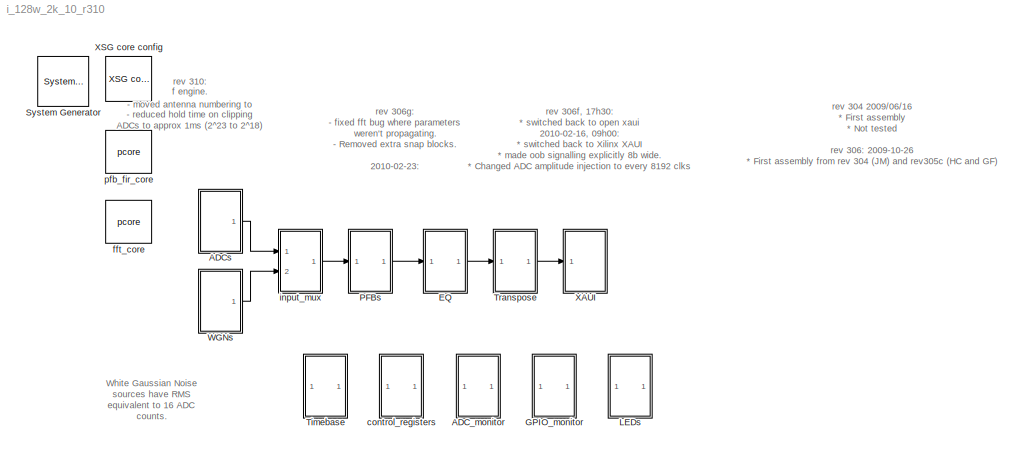
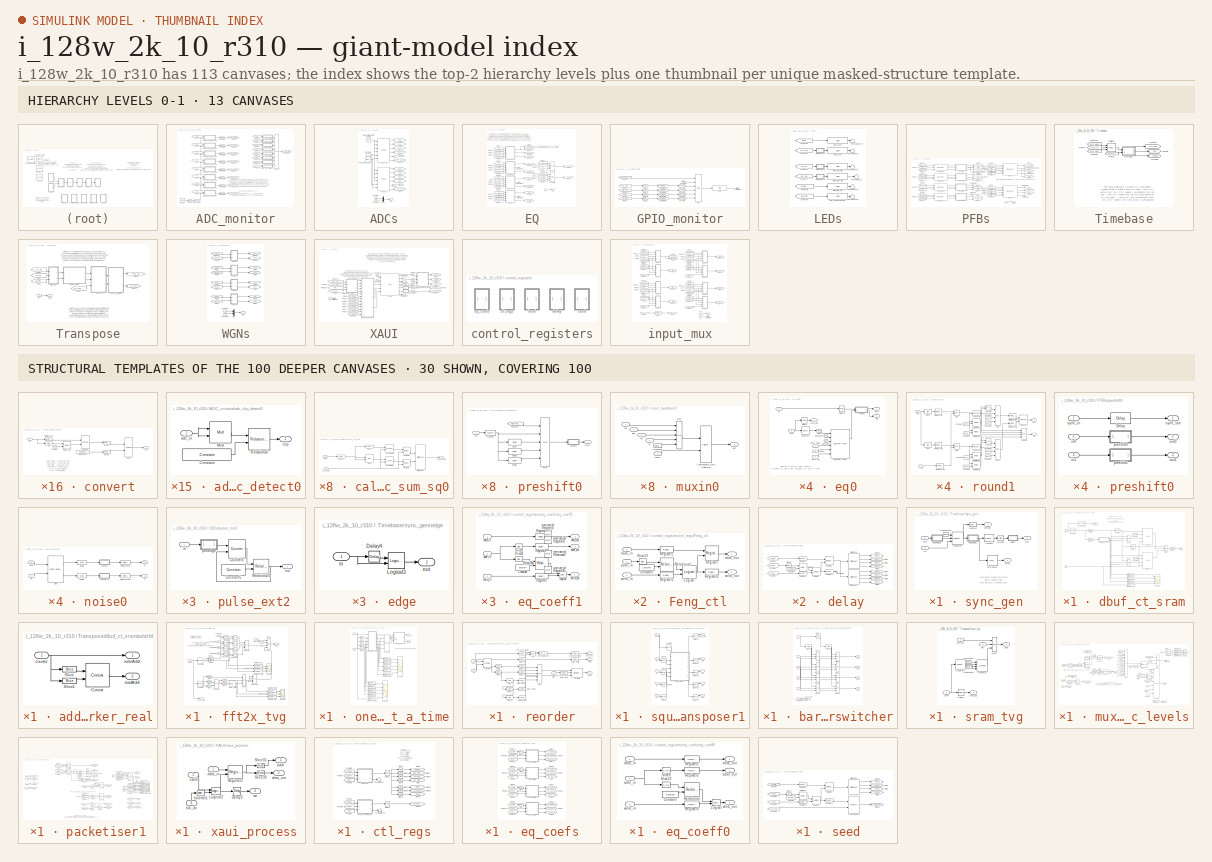
[diagram: thumbnail index - top-2 hierarchy levels (13 canvases) + 30 structural-template representatives of the remaining 100 canvases]
MODEL i_128w_2k_10_r310
KIND model
BLOCK [Reference]  System Generator  REF=xbsIndex_r4/ System Generator
  AttributesFormatString = System\\nGenerator
  FunctionWithSeparateData = off
  Ports = []
  RTWMemSecDataConstants = Inherit from model
  RTWMemSecDataInternal = Inherit from model
  RTWMemSecDataParameters = Inherit from model
  RTWMemSecFuncExecute = Inherit from model
  RTWMemSecFuncInitTerm = Inherit from model
  ShowPortLabels = FromPortIcon
  SourceBlock = xbsIndex_r4/ System Generator
  SourceType = Xilinx System Generator Block
  SystemSampleTime = -1
  Tag = genX
  UserData = DataTag0
  UserDataPersistent = on
  block_type = sysgen
  block_version = 10.1.3
  clock_wrapper = Clock Enables
  core_generation = According to Block Masks
  dbl_ovrd = According to Block Masks
  dcm_input_clock_period = 100
  deprecated_control = off
  directory = ./i_128w_2k_10_r310/sysgen
  eval_field = 0
  has_advanced_control = 0
  incr_netlist = off
  infoedit = System Generator
  package = ff1152
  part = xc2vp50
  run_coregen = off
  sg_icon_stat = 51,50,-1,-1,red,beige,0,07734,right
  sg_mask_display = fprintf('','COMMENT: begin icon graphics');\npatch([0 51 51 0 ],[0 0 50 50 ],[0.93 0.92 0.86]);\npatch([12 4 16 4 12 25 29 33 47 36 25 17 29 17 25 36 47 33 29 25 12 ],[5 13 25 37 45 45 41 45 45 34 45 37 25 13 5 16 5 5 9 5 5 ],[0.6 0.2 0.25]);\nplot([0 51 51 0 0 ],[0 0 50 50 0 ]);\nfprintf('','COMMENT: end icon graphics');\nfprintf('','COMMENT: begin icon text');\nfprintf('','COMMENT: end icon text...<+5ch>
  sggui_pos = -1,-1,-1,-1
  simulink_period = 1
  speed = -7
  synthesis_tool = XST
  sysclk_period = 5
  testbench = off
  trim_vbits = Everywhere in SubSystem
  xilinxfamily = virtex2p
BLOCK [SubSystem] ADC_monitor
  FunctionWithSeparateData = off
  MinAlgLoopOccurrences = off
  Ports = []
  RTWSystemCode = Auto
BLOCK [Reference] ADC_monitor/Counter  REF=xbsIndex_r4/Counter
  Ports = [0, 1]
  SourceBlock = xbsIndex_r4/Counter
  SourceType = Xilinx Counter Block
  arith_type = Unsigned
  bin_pt = 0
  block_type = counter
  block_version = 10.1.3
  cnt_by_val = 1
  cnt_to = Inf
  cnt_type = Free Running
  dbl_ovrd = off
  en = off
  explicit_period = off
  has_advanced_control = 0
  implementation = Fabric
  infoedit = Hardware notes: Free running counters are the least expensive in hardware.  A count limited counter is implemented by combining a counter with a comparator.
  load_pin = off
  n_bits = 16
  operation = Up
  period = 1
  rst = off
  sg_icon_stat = 40,30,1,1,white,blue,0,a170c862,right
  sg_mask_display = fprintf('','COMMENT: begin icon graphics');\npatch([0 60 60 0 ],[0 0 60 60 ],[0.77 0.82 0.91]);\npatch([14 4 18 4 14 30 34 38 55 42 29 20 35 20 29 42 55 38 34 30 14 ],[6 16 30 44 54 54 50 54 54 41 54 45 30 15 6 19 6 6 10 6 6 ],[0.98 0.96 0.92]);\nplot([0 60 60 0 0 ],[0 0 60 60 0 ]);\nfprintf('','COMMENT: end icon graphics');\nfprintf('','COMMENT: begin icon text');\ncolor('black');port_label('outp...<+54ch>
  sggui_pos = 20,20,348,619
  start_count = 0
  use_behavioral_HDL = off
  use_rpm = on
  xl_area = [0, 0, 0, 0, 0, 0, 0]
  xl_use_area = off
BLOCK [From] ADC_monitor/From100
  CloseFcn = tagdialog Close
  GotoTag = adc5
  TagVisibility = global
BLOCK [From] ADC_monitor/From101
  CloseFcn = tagdialog Close
  GotoTag = adc6
  TagVisibility = global
BLOCK [From] ADC_monitor/From102
  CloseFcn = tagdialog Close
  GotoTag = adc7
  TagVisibility = global
BLOCK [From] ADC_monitor/From12
  CloseFcn = tagdialog Close
  GotoTag = in3
  TagVisibility = global
BLOCK [From] ADC_monitor/From13
  CloseFcn = tagdialog Close
  GotoTag = in2
  TagVisibility = global
BLOCK [From] ADC_monitor/From14
  CloseFcn = tagdialog Close
  GotoTag = in6
  TagVisibility = global
BLOCK [From] ADC_monitor/From15
  CloseFcn = tagdialog Close
  GotoTag = in0
  TagVisibility = global
BLOCK [From] ADC_monitor/From17
  CloseFcn = tagdialog Close
  GotoTag = in4
  TagVisibility = global
BLOCK [From] ADC_monitor/From18
  CloseFcn = tagdialog Close
  GotoTag = in5
  TagVisibility = global
BLOCK [From] ADC_monitor/From23
  CloseFcn = tagdialog Close
  GotoTag = in1
  TagVisibility = global
BLOCK [From] ADC_monitor/From9
  CloseFcn = tagdialog Close
  GotoTag = in7
  TagVisibility = global
BLOCK [From] ADC_monitor/From95
  CloseFcn = tagdialog Close
  GotoTag = adc0
  TagVisibility = global
BLOCK [From] ADC_monitor/From96
  CloseFcn = tagdialog Close
  GotoTag = adc1
  TagVisibility = global
BLOCK [From] ADC_monitor/From97
  CloseFcn = tagdialog Close
  GotoTag = adc2
  TagVisibility = global
BLOCK [From] ADC_monitor/From98
  CloseFcn = tagdialog Close
  GotoTag = adc3
  TagVisibility = global
BLOCK [From] ADC_monitor/From99
  CloseFcn = tagdialog Close
  GotoTag = adc4
  TagVisibility = global
BLOCK [Goto] ADC_monitor/Goto13
  GotoTag = in2_levels
  TagVisibility = global
BLOCK [Goto] ADC_monitor/Goto14
  GotoTag = in3_levels
  TagVisibility = global
BLOCK [Goto] ADC_monitor/Goto15
  GotoTag = in5_levels
  TagVisibility = global
BLOCK [Goto] ADC_monitor/Goto16
  GotoTag = in6_levels
  TagVisibility = global
BLOCK [Goto] ADC_monitor/Goto25
  GotoTag = in7_levels
  TagVisibility = global
BLOCK [Goto] ADC_monitor/Goto43
  GotoTag = in4_levels
  TagVisibility = global
BLOCK [Goto] ADC_monitor/Goto66
  GotoTag = adc_clip
  TagVisibility = global
BLOCK [Goto] ADC_monitor/Goto8
  GotoTag = in0_levels
  TagVisibility = global
BLOCK [Goto] ADC_monitor/Goto9
  GotoTag = in1_levels
  TagVisibility = global
BLOCK [Reference] ADC_monitor/Logical1  REF=xbsIndex_r4/Logical
  Ports = [8, 1]
  SourceBlock = xbsIndex_r4/Logical
  SourceType = Xilinx Logical Block Block
  align_bp = on
  arith_type = Unsigned
  bin_pt = 2
  block_type = logical
  block_version = 10.1.3
  dbl_ovrd = off
  en = off
  has_advanced_control = 0
  inputs = 8
  latency = 1
  logical_function = OR
  n_bits = 8
  precision = Full
  sg_icon_stat = 35,281,1,1,white,blue,0,405040e3,right
  sg_mask_display = fprintf('','COMMENT: begin icon graphics');\npatch([0 35 35 0 ],[0 0 281 281 ],[0.77 0.82 0.91]);\npatch([8 2 10 2 8 17 20 23 33 25 18 13 21 13 18 25 33 23 20 17 8 ],[127 133 141 149 155 155 152 155 155 147 154 149 141 133 128 135 127 127 130 127 127 ],[0.98 0.96 0.92]);\nplot([0 35 35 0 0 ],[0 0 281 281 0 ]);\nfprintf('','COMMENT: end icon graphics');\nfprintf('','COMMENT: begin icon text');\ncol...<+103ch>
  sggui_pos = 20,20,348,261
  xl_area = [0, 0, 0, 0, 0, 0, 0]
  xl_use_area = off
BLOCK [Reference] ADC_monitor/Reinterpret  REF=xbsIndex_r4/Reinterpret
  Ports = [1, 1]
  SourceBlock = xbsIndex_r4/Reinterpret
  SourceType = Xilinx Type Reinterpreter Block
  arith_type = Unsigned
  bin_pt = 0
  block_type = reinterpret
  block_version = 10.1.3
  force_arith_type = on
  force_bin_pt = on
  has_advanced_control = 0
  infoedit = Changes signal type without altering the binary representation.   You can changed the signal between signed and unsigned, and relocate the binary point.<P><P>Hardware notes: In hardware this block costs nothing.<P><P>Example:  Suppose the input is 6 bits wide, signed, with 2 fractional bits, and the output is forced to unsigned with 0 fractional bits.  Then an input of -2.0 (1110.00 in binary 2's ...<+55ch>  <repeated x88 — deduplicated; at blocks: Reinterpret, Reinterpret1, Reinterpret2, Reinterpret3, Reinterpret4, Reinterpret5, Reinterpret6, Reinterpret7, force1, force2>
  sg_icon_stat = 35,14,1,1,white,blue,0,8982c1db,right
  sg_mask_display = fprintf('','COMMENT: begin icon graphics');\npatch([0 50 50 0 ],[0 0 32 32 ],[0.77 0.82 0.91]);\npatch([16 11 18 11 16 24 26 28 37 30 23 18 25 18 23 30 37 28 26 24 16 ],[3 8 15 22 27 27 25 27 27 20 27 22 15 8 3 10 3 3 5 3 3 ],[0.98 0.96 0.92]);\nplot([0 50 50 0 0 ],[0 0 32 32 0 ]);\nfprintf('','COMMENT: end icon graphics');\nfprintf('','COMMENT: begin icon text');\ncolor('black');disp('reinterpret...<+44ch>  <repeated x88 — deduplicated; at blocks: Reinterpret, Reinterpret1, Reinterpret2, Reinterpret3, Reinterpret4, Reinterpret5, Reinterpret6, Reinterpret7, force1, force2>
  sggui_pos = 20,20,336,312
BLOCK [Reference] ADC_monitor/Reinterpret1  REF=xbsIndex_r4/Reinterpret
  Ports = [1, 1]
  SourceBlock = xbsIndex_r4/Reinterpret
  SourceType = Xilinx Type Reinterpreter Block
  arith_type = Unsigned
  bin_pt = 0
  block_type = reinterpret
  block_version = 10.1.3
  force_arith_type = on
  force_bin_pt = on
  has_advanced_control = 0
  sg_icon_stat = 35,14,1,1,white,blue,0,8982c1db,right
  sggui_pos = 20,20,336,312
BLOCK [Reference] ADC_monitor/Reinterpret2  REF=xbsIndex_r4/Reinterpret
  Ports = [1, 1]
  SourceBlock = xbsIndex_r4/Reinterpret
  SourceType = Xilinx Type Reinterpreter Block
  arith_type = Unsigned
  bin_pt = 0
  block_type = reinterpret
  block_version = 10.1.3
  force_arith_type = on
  force_bin_pt = on
  has_advanced_control = 0
  sg_icon_stat = 35,14,1,1,white,blue,0,8982c1db,right
  sggui_pos = 20,20,336,312
BLOCK [Reference] ADC_monitor/Reinterpret3  REF=xbsIndex_r4/Reinterpret
  Ports = [1, 1]
  SourceBlock = xbsIndex_r4/Reinterpret
  SourceType = Xilinx Type Reinterpreter Block
  arith_type = Unsigned
  bin_pt = 0
  block_type = reinterpret
  block_version = 10.1.3
  force_arith_type = on
  force_bin_pt = on
  has_advanced_control = 0
  sg_icon_stat = 35,14,1,1,white,blue,0,8982c1db,right
  sggui_pos = 20,20,336,312
BLOCK [Reference] ADC_monitor/Reinterpret4  REF=xbsIndex_r4/Reinterpret
  Ports = [1, 1]
  SourceBlock = xbsIndex_r4/Reinterpret
  SourceType = Xilinx Type Reinterpreter Block
  arith_type = Unsigned
  bin_pt = 0
  block_type = reinterpret
  block_version = 10.1.3
  force_arith_type = on
  force_bin_pt = on
  has_advanced_control = 0
  sg_icon_stat = 35,14,1,1,white,blue,0,8982c1db,right
  sggui_pos = 20,20,336,312
BLOCK [Reference] ADC_monitor/Reinterpret5  REF=xbsIndex_r4/Reinterpret
  Ports = [1, 1]
  SourceBlock = xbsIndex_r4/Reinterpret
  SourceType = Xilinx Type Reinterpreter Block
  arith_type = Unsigned
  bin_pt = 0
  block_type = reinterpret
  block_version = 10.1.3
  force_arith_type = on
  force_bin_pt = on
  has_advanced_control = 0
  sg_icon_stat = 35,14,1,1,white,blue,0,8982c1db,right
  sggui_pos = 20,20,336,312
BLOCK [Reference] ADC_monitor/Reinterpret6  REF=xbsIndex_r4/Reinterpret
  Ports = [1, 1]
  SourceBlock = xbsIndex_r4/Reinterpret
  SourceType = Xilinx Type Reinterpreter Block
  arith_type = Unsigned
  bin_pt = 0
  block_type = reinterpret
  block_version = 10.1.3
  force_arith_type = on
  force_bin_pt = on
  has_advanced_control = 0
  sg_icon_stat = 35,14,1,1,white,blue,0,8982c1db,right
  sggui_pos = 20,20,336,312
BLOCK [Reference] ADC_monitor/Reinterpret7  REF=xbsIndex_r4/Reinterpret
  Ports = [1, 1]
  SourceBlock = xbsIndex_r4/Reinterpret
  SourceType = Xilinx Type Reinterpreter Block
  arith_type = Unsigned
  bin_pt = 0
  block_type = reinterpret
  block_version = 10.1.3
  force_arith_type = on
  force_bin_pt = on
  has_advanced_control = 0
  sg_icon_stat = 35,14,1,1,white,blue,0,8982c1db,right
  sggui_pos = 20,20,336,312
BLOCK [Reference] ADC_monitor/Slice16  REF=xbsIndex_r4/Slice
  Ports = [1, 1]
  SourceBlock = xbsIndex_r4/Slice
  SourceType = Xilinx Bit Slice Extractor Block
  base0 = LSB of Input
  base1 = MSB of Input
  bit0 = 19
  bit1 = 0
  block_type = slice
  block_version = 10.1.3
  boolean_output = on
  dbl_ovrd = off
  has_advanced_control = 0
  infoedit = Extracts a given range of bits from each input sample and presents it at the output.  The output type is ordinarily unsigned with binary point at zero, but can be Boolean when the slice is one bit wide.<P><P>Hardware notes: In hardware this block costs nothing.  <repeated x83 — deduplicated; at blocks: Slice16, Slice, Slice4, Slice5, bit, Slice8, Slice1, Slice2, Slice11, Slice3, Slice6, Slice7, Slice30, Slice31, Slice22, Slice21, +1 more>
  mode = Upper Bit Location + Width
  nbits = 1
  sg_icon_stat = 25,18,1,1,white,blue,0,b1026674,right
  sg_mask_display = fprintf('','COMMENT: begin icon graphics');\npatch([0 60 60 0 ],[0 0 30 30 ],[0.77 0.82 0.91]);\npatch([22 17 24 17 22 30 32 34 42 35 29 24 30 24 29 35 42 34 32 30 22 ],[3 8 15 22 27 27 25 27 27 20 26 21 15 9 4 10 3 3 5 3 3 ],[0.98 0.96 0.92]);\nplot([0 60 60 0 0 ],[0 0 30 30 0 ]);\nfprintf('','COMMENT: end icon graphics');\nfprintf('','COMMENT: begin icon text');\ncolor('black');port_label('outpu...<+55ch>  <repeated x83 — deduplicated; at blocks: Slice16, Slice, Slice4, Slice5, bit, Slice8, Slice1, Slice2, Slice11, Slice3, Slice6, Slice7, Slice30, Slice31, Slice22, Slice21, +1 more>
  sggui_pos = 20,20,449,376
BLOCK [SubSystem] ADC_monitor/adc_clip_detect0
  FunctionWithSeparateData = off
  MaskEnableString = on
  MaskIconFrame = on
  MaskIconOpaque = on
  MaskIconRotate = none
  MaskIconUnits = autoscale
  MaskPromptString = Number of ADC bits
  MaskStyleString = edit
  MaskToolTipString = on
  MaskTunableValueString = on
  MaskValueString = 8
  MaskVariables = n_bits=@1;
  MaskVisibilityString = on
  MinAlgLoopOccurrences = off
  Ports = [1, 1]
  RTWSystemCode = Auto
BLOCK [Reference] ADC_monitor/adc_clip_detect0/Constant  REF=xbsIndex_r4/Constant
  Ports = [0, 1]
  SourceBlock = xbsIndex_r4/Constant
  SourceType = Xilinx Constant Block Block
  arith_type = Unsigned
  bin_pt = n_bits*2
  block_type = constant
  block_version = 10.1.3
  carry = CIN
  const = ((2^(n_bits-1)-1)/(2^(n_bits-1)))^2
  dbl_ovrd = off
  dsp48_infoedit = The use of this block for DSP48 instructions is deprecated.  Please use the Opmode block.
  equ = P=C
  explicit_period = on
  has_advanced_control = 0
  inp1 = P
  inp2 = PCIN>>17
  n_bits = 2*n_bits +1
  opr = +
  opselect = C
  period = 1
  sg_icon_stat = 125,30,1,1,white,blue,0,25ad0514,right
  sg_mask_display = fprintf('','COMMENT: begin icon graphics');\npatch([0 55 55 0 ],[0 0 26 26 ],[0.77 0.82 0.91]);\npatch([20 16 22 16 20 27 29 31 38 32 26 22 28 22 26 32 38 31 29 27 20 ],[3 7 13 19 23 23 21 23 23 17 23 19 13 7 3 9 3 3 5 3 3 ],[0.98 0.96 0.92]);\nplot([0 55 55 0 0 ],[0 0 26 26 0 ]);\nfprintf('','COMMENT: end icon graphics');\nfprintf('','COMMENT: begin icon text');\ncolor('black');port_label('output...<+65ch>  <repeated x8 — deduplicated; at blocks: Constant>
  sggui_pos = 202,342,400,346
BLOCK [Reference] ADC_monitor/adc_clip_detect0/Mult  REF=xbsIndex_r4/Mult
  Ports = [2, 1]
  SourceBlock = xbsIndex_r4/Mult
  SourceType = Xilinx Multiplier Block
  arith_type = Signed  (2's comp)
  bin_pt = 14
  block_type = mult
  block_version = 10.1.3
  dbl_ovrd = off
  en = off
  has_advanced_control = 0
  infoedit = Hardware notes: To use the internal pipeline stage of the dedicated multiplier you must select 'Pipeline for maximum performance'.
  latency = 3
  n_bits = 16
  opt = Speed
  optimum_pipeline = on
  overflow = Wrap
  pipeline = on
  placement_style = Triangular
  precision = Full
  quantization = Truncate
  sg_icon_stat = 55,55,1,1,white,blue,0,9c0d74db,right
  sg_mask_display = fprintf('','COMMENT: begin icon graphics');\npatch([0 55 55 0 ],[0 0 55 55 ],[0.77 0.82 0.91]);\npatch([13 4 17 4 13 28 32 36 52 40 28 19 32 19 28 40 52 36 32 28 13 ],[6 15 28 41 50 50 46 50 50 38 50 41 28 15 6 18 6 6 10 6 6 ],[0.98 0.96 0.92]);\nplot([0 55 55 0 0 ],[0 0 55 55 0 ]);\nfprintf('','COMMENT: end icon graphics');\nfprintf('','COMMENT: begin icon text');\ncolor('black');port_label('inpu...<+212ch>  <repeated x24 — deduplicated; at blocks: Mult, Mult1>
  sggui_pos = 20,20,348,433
  use_behavioral_HDL = off
  use_embedded = on
  use_rpm = on
  xl_area = [0,0,0,0,0,0,0]
  xl_use_area = off
BLOCK [Reference] ADC_monitor/adc_clip_detect0/Relational  REF=xbsIndex_r4/Relational
  Ports = [2, 1]
  SourceBlock = xbsIndex_r4/Relational
  SourceType = Xilinx Arithmetic Relational Operator Block
  block_type = relational
  block_version = 10.1.3
  dbl_ovrd = off
  en = off
  has_advanced_control = 0
  latency = 1
  mode = a>=b
  sg_icon_stat = 55,56,1,1,white,blue,0,48ab8ed9,right
  sg_mask_display = fprintf('','COMMENT: begin icon graphics');\npatch([0 55 55 0 ],[0 0 56 56 ],[0.77 0.82 0.91]);\npatch([13 4 17 4 13 28 32 36 52 40 28 19 32 19 28 40 52 36 32 28 13 ],[6 15 28 41 50 50 46 50 50 38 50 41 28 15 6 18 6 6 10 6 6 ],[0.98 0.96 0.92]);\nplot([0 55 55 0 0 ],[0 0 56 56 0 ]);\nfprintf('','COMMENT: end icon graphics');\nfprintf('','COMMENT: begin icon text');\ncolor('black');port_label('inpu...<+169ch>  <repeated x13 — deduplicated; at blocks: Relational, Relational5>
  sggui_pos = 20,20,348,193
  xl_area = [0,0,0,0,0,0,0]
  xl_use_area = off
BLOCK [Inport] ADC_monitor/adc_clip_detect0/adc_in
  IconDisplay = Port number
BLOCK [Outport] ADC_monitor/adc_clip_detect0/clip
  IconDisplay = Port number
BLOCK [SubSystem] ADC_monitor/adc_clip_detect1
  FunctionWithSeparateData = off
  MaskEnableString = on
  MaskIconFrame = on
  MaskIconOpaque = on
  MaskIconRotate = none
  MaskIconUnits = autoscale
  MaskPromptString = Number of ADC bits
  MaskStyleString = edit
  MaskToolTipString = on
  MaskTunableValueString = on
  MaskValueString = 8
  MaskVariables = n_bits=@1;
  MaskVisibilityString = on
  MinAlgLoopOccurrences = off
  Ports = [1, 1]
  RTWSystemCode = Auto
BLOCK [Reference] ADC_monitor/adc_clip_detect1/Constant  REF=xbsIndex_r4/Constant
  Ports = [0, 1]
  SourceBlock = xbsIndex_r4/Constant
  SourceType = Xilinx Constant Block Block
  arith_type = Unsigned
  bin_pt = n_bits*2
  block_type = constant
  block_version = 10.1.3
  carry = CIN
  const = ((2^(n_bits-1)-1)/(2^(n_bits-1)))^2
  dbl_ovrd = off
  dsp48_infoedit = The use of this block for DSP48 instructions is deprecated.  Please use the Opmode block.
  equ = P=C
  explicit_period = on
  has_advanced_control = 0
  inp1 = P
  inp2 = PCIN>>17
  n_bits = 2*n_bits +1
  opr = +
  opselect = C
  period = 1
  sg_icon_stat = 125,30,1,1,white,blue,0,25ad0514,right
  sggui_pos = 20,20,400,346
BLOCK [Reference] ADC_monitor/adc_clip_detect1/Mult  REF=xbsIndex_r4/Mult
  Ports = [2, 1]
  SourceBlock = xbsIndex_r4/Mult
  SourceType = Xilinx Multiplier Block
  arith_type = Signed  (2's comp)
  bin_pt = 14
  block_type = mult
  block_version = 10.1.3
  dbl_ovrd = off
  en = off
  has_advanced_control = 0
  infoedit = Hardware notes: To use the internal pipeline stage of the dedicated multiplier you must select 'Pipeline for maximum performance'.
  latency = 3
  n_bits = 16
  opt = Speed
  optimum_pipeline = on
  overflow = Wrap
  pipeline = on
  placement_style = Triangular
  precision = Full
  quantization = Truncate
  sg_icon_stat = 55,55,1,1,white,blue,0,9c0d74db,right
  sggui_pos = 20,20,348,433
  use_behavioral_HDL = off
  use_embedded = on
  use_rpm = on
  xl_area = [0,0,0,0,0,0,0]
  xl_use_area = off
BLOCK [Reference] ADC_monitor/adc_clip_detect1/Relational  REF=xbsIndex_r4/Relational
  Ports = [2, 1]
  SourceBlock = xbsIndex_r4/Relational
  SourceType = Xilinx Arithmetic Relational Operator Block
  block_type = relational
  block_version = 10.1.3
  dbl_ovrd = off
  en = off
  has_advanced_control = 0
  latency = 1
  mode = a>=b
  sg_icon_stat = 55,56,1,1,white,blue,0,48ab8ed9,right
  sggui_pos = 20,20,348,193
  xl_area = [0,0,0,0,0,0,0]
  xl_use_area = off
BLOCK [Inport] ADC_monitor/adc_clip_detect1/adc_in
  IconDisplay = Port number
BLOCK [Outport] ADC_monitor/adc_clip_detect1/clip
  IconDisplay = Port number
BLOCK [SubSystem] ADC_monitor/adc_clip_detect2
  FunctionWithSeparateData = off
  MaskEnableString = on
  MaskIconFrame = on
  MaskIconOpaque = on
  MaskIconRotate = none
  MaskIconUnits = autoscale
  MaskPromptString = Number of ADC bits
  MaskStyleString = edit
  MaskToolTipString = on
  MaskTunableValueString = on
  MaskValueString = 8
  MaskVariables = n_bits=@1;
  MaskVisibilityString = on
  MinAlgLoopOccurrences = off
  Ports = [1, 1]
  RTWSystemCode = Auto
BLOCK [Reference] ADC_monitor/adc_clip_detect2/Constant  REF=xbsIndex_r4/Constant
  Ports = [0, 1]
  SourceBlock = xbsIndex_r4/Constant
  SourceType = Xilinx Constant Block Block
  arith_type = Unsigned
  bin_pt = n_bits*2
  block_type = constant
  block_version = 10.1.3
  carry = CIN
  const = ((2^(n_bits-1)-1)/(2^(n_bits-1)))^2
  dbl_ovrd = off
  dsp48_infoedit = The use of this block for DSP48 instructions is deprecated.  Please use the Opmode block.
  equ = P=C
  explicit_period = on
  has_advanced_control = 0
  inp1 = P
  inp2 = PCIN>>17
  n_bits = 2*n_bits +1
  opr = +
  opselect = C
  period = 1
  sg_icon_stat = 125,30,1,1,white,blue,0,25ad0514,right
  sggui_pos = 20,20,400,346
BLOCK [Reference] ADC_monitor/adc_clip_detect2/Mult  REF=xbsIndex_r4/Mult
  Ports = [2, 1]
  SourceBlock = xbsIndex_r4/Mult
  SourceType = Xilinx Multiplier Block
  arith_type = Signed  (2's comp)
  bin_pt = 14
  block_type = mult
  block_version = 10.1.3
  dbl_ovrd = off
  en = off
  has_advanced_control = 0
  infoedit = Hardware notes: To use the internal pipeline stage of the dedicated multiplier you must select 'Pipeline for maximum performance'.
  latency = 3
  n_bits = 16
  opt = Speed
  optimum_pipeline = on
  overflow = Wrap
  pipeline = on
  placement_style = Triangular
  precision = Full
  quantization = Truncate
  sg_icon_stat = 55,55,1,1,white,blue,0,9c0d74db,right
  sggui_pos = 20,20,348,433
  use_behavioral_HDL = off
  use_embedded = on
  use_rpm = on
  xl_area = [0,0,0,0,0,0,0]
  xl_use_area = off
BLOCK [Reference] ADC_monitor/adc_clip_detect2/Relational  REF=xbsIndex_r4/Relational
  Ports = [2, 1]
  SourceBlock = xbsIndex_r4/Relational
  SourceType = Xilinx Arithmetic Relational Operator Block
  block_type = relational
  block_version = 10.1.3
  dbl_ovrd = off
  en = off
  has_advanced_control = 0
  latency = 1
  mode = a>=b
  sg_icon_stat = 55,56,1,1,white,blue,0,48ab8ed9,right
  sggui_pos = 20,20,348,193
  xl_area = [0,0,0,0,0,0,0]
  xl_use_area = off
BLOCK [Inport] ADC_monitor/adc_clip_detect2/adc_in
  IconDisplay = Port number
BLOCK [Outport] ADC_monitor/adc_clip_detect2/clip
  IconDisplay = Port number
BLOCK [SubSystem] ADC_monitor/adc_clip_detect3
  FunctionWithSeparateData = off
  MaskEnableString = on
  MaskIconFrame = on
  MaskIconOpaque = on
  MaskIconRotate = none
  MaskIconUnits = autoscale
  MaskPromptString = Number of ADC bits
  MaskStyleString = edit
  MaskToolTipString = on
  MaskTunableValueString = on
  MaskValueString = 8
  MaskVariables = n_bits=@1;
  MaskVisibilityString = on
  MinAlgLoopOccurrences = off
  Ports = [1, 1]
  RTWSystemCode = Auto
BLOCK [Reference] ADC_monitor/adc_clip_detect3/Constant  REF=xbsIndex_r4/Constant
  Ports = [0, 1]
  SourceBlock = xbsIndex_r4/Constant
  SourceType = Xilinx Constant Block Block
  arith_type = Unsigned
  bin_pt = n_bits*2
  block_type = constant
  block_version = 10.1.3
  carry = CIN
  const = ((2^(n_bits-1)-1)/(2^(n_bits-1)))^2
  dbl_ovrd = off
  dsp48_infoedit = The use of this block for DSP48 instructions is deprecated.  Please use the Opmode block.
  equ = P=C
  explicit_period = on
  has_advanced_control = 0
  inp1 = P
  inp2 = PCIN>>17
  n_bits = 2*n_bits +1
  opr = +
  opselect = C
  period = 1
  sg_icon_stat = 125,30,1,1,white,blue,0,25ad0514,right
  sggui_pos = 20,20,400,346
BLOCK [Reference] ADC_monitor/adc_clip_detect3/Mult  REF=xbsIndex_r4/Mult
  Ports = [2, 1]
  SourceBlock = xbsIndex_r4/Mult
  SourceType = Xilinx Multiplier Block
  arith_type = Signed  (2's comp)
  bin_pt = 14
  block_type = mult
  block_version = 10.1.3
  dbl_ovrd = off
  en = off
  has_advanced_control = 0
  infoedit = Hardware notes: To use the internal pipeline stage of the dedicated multiplier you must select 'Pipeline for maximum performance'.
  latency = 3
  n_bits = 16
  opt = Speed
  optimum_pipeline = on
  overflow = Wrap
  pipeline = on
  placement_style = Triangular
  precision = Full
  quantization = Truncate
  sg_icon_stat = 55,55,1,1,white,blue,0,9c0d74db,right
  sggui_pos = 20,20,348,433
  use_behavioral_HDL = off
  use_embedded = on
  use_rpm = on
  xl_area = [0,0,0,0,0,0,0]
  xl_use_area = off
BLOCK [Reference] ADC_monitor/adc_clip_detect3/Relational  REF=xbsIndex_r4/Relational
  Ports = [2, 1]
  SourceBlock = xbsIndex_r4/Relational
  SourceType = Xilinx Arithmetic Relational Operator Block
  block_type = relational
  block_version = 10.1.3
  dbl_ovrd = off
  en = off
  has_advanced_control = 0
  latency = 1
  mode = a>=b
  sg_icon_stat = 55,56,1,1,white,blue,0,48ab8ed9,right
  sggui_pos = 20,20,348,193
  xl_area = [0,0,0,0,0,0,0]
  xl_use_area = off
BLOCK [Inport] ADC_monitor/adc_clip_detect3/adc_in
  IconDisplay = Port number
BLOCK [Outport] ADC_monitor/adc_clip_detect3/clip
  IconDisplay = Port number
BLOCK [SubSystem] ADC_monitor/adc_clip_detect4
  FunctionWithSeparateData = off
  MaskEnableString = on
  MaskIconFrame = on
  MaskIconOpaque = on
  MaskIconRotate = none
  MaskIconUnits = autoscale
  MaskPromptString = Number of ADC bits
  MaskStyleString = edit
  MaskToolTipString = on
  MaskTunableValueString = on
  MaskValueString = 8
  MaskVariables = n_bits=@1;
  MaskVisibilityString = on
  MinAlgLoopOccurrences = off
  Ports = [1, 1]
  RTWSystemCode = Auto
BLOCK [Reference] ADC_monitor/adc_clip_detect4/Constant  REF=xbsIndex_r4/Constant
  Ports = [0, 1]
  SourceBlock = xbsIndex_r4/Constant
  SourceType = Xilinx Constant Block Block
  arith_type = Unsigned
  bin_pt = n_bits*2
  block_type = constant
  block_version = 10.1.3
  carry = CIN
  const = ((2^(n_bits-1)-1)/(2^(n_bits-1)))^2
  dbl_ovrd = off
  dsp48_infoedit = The use of this block for DSP48 instructions is deprecated.  Please use the Opmode block.
  equ = P=C
  explicit_period = on
  has_advanced_control = 0
  inp1 = P
  inp2 = PCIN>>17
  n_bits = 2*n_bits +1
  opr = +
  opselect = C
  period = 1
  sg_icon_stat = 125,30,1,1,white,blue,0,25ad0514,right
  sggui_pos = 20,20,400,346
BLOCK [Reference] ADC_monitor/adc_clip_detect4/Mult  REF=xbsIndex_r4/Mult
  Ports = [2, 1]
  SourceBlock = xbsIndex_r4/Mult
  SourceType = Xilinx Multiplier Block
  arith_type = Signed  (2's comp)
  bin_pt = 14
  block_type = mult
  block_version = 10.1.3
  dbl_ovrd = off
  en = off
  has_advanced_control = 0
  infoedit = Hardware notes: To use the internal pipeline stage of the dedicated multiplier you must select 'Pipeline for maximum performance'.
  latency = 3
  n_bits = 16
  opt = Speed
  optimum_pipeline = on
  overflow = Wrap
  pipeline = on
  placement_style = Triangular
  precision = Full
  quantization = Truncate
  sg_icon_stat = 55,55,1,1,white,blue,0,9c0d74db,right
  sggui_pos = 20,20,348,433
  use_behavioral_HDL = off
  use_embedded = on
  use_rpm = on
  xl_area = [0,0,0,0,0,0,0]
  xl_use_area = off
BLOCK [Reference] ADC_monitor/adc_clip_detect4/Relational  REF=xbsIndex_r4/Relational
  Ports = [2, 1]
  SourceBlock = xbsIndex_r4/Relational
  SourceType = Xilinx Arithmetic Relational Operator Block
  block_type = relational
  block_version = 10.1.3
  dbl_ovrd = off
  en = off
  has_advanced_control = 0
  latency = 1
  mode = a>=b
  sg_icon_stat = 55,56,1,1,white,blue,0,48ab8ed9,right
  sggui_pos = 20,20,348,193
  xl_area = [0,0,0,0,0,0,0]
  xl_use_area = off
BLOCK [Inport] ADC_monitor/adc_clip_detect4/adc_in
  IconDisplay = Port number
BLOCK [Outport] ADC_monitor/adc_clip_detect4/clip
  IconDisplay = Port number
BLOCK [SubSystem] ADC_monitor/adc_clip_detect5
  FunctionWithSeparateData = off
  MaskEnableString = on
  MaskIconFrame = on
  MaskIconOpaque = on
  MaskIconRotate = none
  MaskIconUnits = autoscale
  MaskPromptString = Number of ADC bits
  MaskStyleString = edit
  MaskToolTipString = on
  MaskTunableValueString = on
  MaskValueString = 8
  MaskVariables = n_bits=@1;
  MaskVisibilityString = on
  MinAlgLoopOccurrences = off
  Ports = [1, 1]
  RTWSystemCode = Auto
BLOCK [Reference] ADC_monitor/adc_clip_detect5/Constant  REF=xbsIndex_r4/Constant
  Ports = [0, 1]
  SourceBlock = xbsIndex_r4/Constant
  SourceType = Xilinx Constant Block Block
  arith_type = Unsigned
  bin_pt = n_bits*2
  block_type = constant
  block_version = 10.1.3
  carry = CIN
  const = ((2^(n_bits-1)-1)/(2^(n_bits-1)))^2
  dbl_ovrd = off
  dsp48_infoedit = The use of this block for DSP48 instructions is deprecated.  Please use the Opmode block.
  equ = P=C
  explicit_period = on
  has_advanced_control = 0
  inp1 = P
  inp2 = PCIN>>17
  n_bits = 2*n_bits +1
  opr = +
  opselect = C
  period = 1
  sg_icon_stat = 125,30,1,1,white,blue,0,25ad0514,right
  sggui_pos = 20,20,400,346
BLOCK [Reference] ADC_monitor/adc_clip_detect5/Mult  REF=xbsIndex_r4/Mult
  Ports = [2, 1]
  SourceBlock = xbsIndex_r4/Mult
  SourceType = Xilinx Multiplier Block
  arith_type = Signed  (2's comp)
  bin_pt = 14
  block_type = mult
  block_version = 10.1.3
  dbl_ovrd = off
  en = off
  has_advanced_control = 0
  infoedit = Hardware notes: To use the internal pipeline stage of the dedicated multiplier you must select 'Pipeline for maximum performance'.
  latency = 3
  n_bits = 16
  opt = Speed
  optimum_pipeline = on
  overflow = Wrap
  pipeline = on
  placement_style = Triangular
  precision = Full
  quantization = Truncate
  sg_icon_stat = 55,55,1,1,white,blue,0,9c0d74db,right
  sggui_pos = 20,20,348,433
  use_behavioral_HDL = off
  use_embedded = on
  use_rpm = on
  xl_area = [0,0,0,0,0,0,0]
  xl_use_area = off
BLOCK [Reference] ADC_monitor/adc_clip_detect5/Relational  REF=xbsIndex_r4/Relational
  Ports = [2, 1]
  SourceBlock = xbsIndex_r4/Relational
  SourceType = Xilinx Arithmetic Relational Operator Block
  block_type = relational
  block_version = 10.1.3
  dbl_ovrd = off
  en = off
  has_advanced_control = 0
  latency = 1
  mode = a>=b
  sg_icon_stat = 55,56,1,1,white,blue,0,48ab8ed9,right
  sggui_pos = 20,20,348,193
  xl_area = [0,0,0,0,0,0,0]
  xl_use_area = off
BLOCK [Inport] ADC_monitor/adc_clip_detect5/adc_in
  IconDisplay = Port number
BLOCK [Outport] ADC_monitor/adc_clip_detect5/clip
  IconDisplay = Port number
BLOCK [SubSystem] ADC_monitor/adc_clip_detect6
  FunctionWithSeparateData = off
  MaskEnableString = on
  MaskIconFrame = on
  MaskIconOpaque = on
  MaskIconRotate = none
  MaskIconUnits = autoscale
  MaskPromptString = Number of ADC bits
  MaskStyleString = edit
  MaskToolTipString = on
  MaskTunableValueString = on
  MaskValueString = 8
  MaskVariables = n_bits=@1;
  MaskVisibilityString = on
  MinAlgLoopOccurrences = off
  Ports = [1, 1]
  RTWSystemCode = Auto
BLOCK [Reference] ADC_monitor/adc_clip_detect6/Constant  REF=xbsIndex_r4/Constant
  Ports = [0, 1]
  SourceBlock = xbsIndex_r4/Constant
  SourceType = Xilinx Constant Block Block
  arith_type = Unsigned
  bin_pt = n_bits*2
  block_type = constant
  block_version = 10.1.3
  carry = CIN
  const = ((2^(n_bits-1)-1)/(2^(n_bits-1)))^2
  dbl_ovrd = off
  dsp48_infoedit = The use of this block for DSP48 instructions is deprecated.  Please use the Opmode block.
  equ = P=C
  explicit_period = on
  has_advanced_control = 0
  inp1 = P
  inp2 = PCIN>>17
  n_bits = 2*n_bits +1
  opr = +
  opselect = C
  period = 1
  sg_icon_stat = 125,30,1,1,white,blue,0,25ad0514,right
  sggui_pos = 20,20,400,346
BLOCK [Reference] ADC_monitor/adc_clip_detect6/Mult  REF=xbsIndex_r4/Mult
  Ports = [2, 1]
  SourceBlock = xbsIndex_r4/Mult
  SourceType = Xilinx Multiplier Block
  arith_type = Signed  (2's comp)
  bin_pt = 14
  block_type = mult
  block_version = 10.1.3
  dbl_ovrd = off
  en = off
  has_advanced_control = 0
  infoedit = Hardware notes: To use the internal pipeline stage of the dedicated multiplier you must select 'Pipeline for maximum performance'.
  latency = 3
  n_bits = 16
  opt = Speed
  optimum_pipeline = on
  overflow = Wrap
  pipeline = on
  placement_style = Triangular
  precision = Full
  quantization = Truncate
  sg_icon_stat = 55,55,1,1,white,blue,0,9c0d74db,right
  sggui_pos = 20,20,348,433
  use_behavioral_HDL = off
  use_embedded = on
  use_rpm = on
  xl_area = [0,0,0,0,0,0,0]
  xl_use_area = off
BLOCK [Reference] ADC_monitor/adc_clip_detect6/Relational  REF=xbsIndex_r4/Relational
  Ports = [2, 1]
  SourceBlock = xbsIndex_r4/Relational
  SourceType = Xilinx Arithmetic Relational Operator Block
  block_type = relational
  block_version = 10.1.3
  dbl_ovrd = off
  en = off
  has_advanced_control = 0
  latency = 1
  mode = a>=b
  sg_icon_stat = 55,56,1,1,white,blue,0,48ab8ed9,right
  sggui_pos = 20,20,348,193
  xl_area = [0,0,0,0,0,0,0]
  xl_use_area = off
BLOCK [Inport] ADC_monitor/adc_clip_detect6/adc_in
  IconDisplay = Port number
BLOCK [Outport] ADC_monitor/adc_clip_detect6/clip
  IconDisplay = Port number
BLOCK [SubSystem] ADC_monitor/adc_clip_detect7
  FunctionWithSeparateData = off
  MaskEnableString = on
  MaskIconFrame = on
  MaskIconOpaque = on
  MaskIconRotate = none
  MaskIconUnits = autoscale
  MaskPromptString = Number of ADC bits
  MaskStyleString = edit
  MaskToolTipString = on
  MaskTunableValueString = on
  MaskValueString = 8
  MaskVariables = n_bits=@1;
  MaskVisibilityString = on
  MinAlgLoopOccurrences = off
  Ports = [1, 1]
  RTWSystemCode = Auto
BLOCK [Reference] ADC_monitor/adc_clip_detect7/Constant  REF=xbsIndex_r4/Constant
  Ports = [0, 1]
  SourceBlock = xbsIndex_r4/Constant
  SourceType = Xilinx Constant Block Block
  arith_type = Unsigned
  bin_pt = n_bits*2
  block_type = constant
  block_version = 10.1.3
  carry = CIN
  const = ((2^(n_bits-1)-1)/(2^(n_bits-1)))^2
  dbl_ovrd = off
  dsp48_infoedit = The use of this block for DSP48 instructions is deprecated.  Please use the Opmode block.
  equ = P=C
  explicit_period = on
  has_advanced_control = 0
  inp1 = P
  inp2 = PCIN>>17
  n_bits = 2*n_bits +1
  opr = +
  opselect = C
  period = 1
  sg_icon_stat = 125,30,1,1,white,blue,0,25ad0514,right
  sggui_pos = 20,20,400,346
BLOCK [Reference] ADC_monitor/adc_clip_detect7/Mult  REF=xbsIndex_r4/Mult
  Ports = [2, 1]
  SourceBlock = xbsIndex_r4/Mult
  SourceType = Xilinx Multiplier Block
  arith_type = Signed  (2's comp)
  bin_pt = 14
  block_type = mult
  block_version = 10.1.3
  dbl_ovrd = off
  en = off
  has_advanced_control = 0
  infoedit = Hardware notes: To use the internal pipeline stage of the dedicated multiplier you must select 'Pipeline for maximum performance'.
  latency = 3
  n_bits = 16
  opt = Speed
  optimum_pipeline = on
  overflow = Wrap
  pipeline = on
  placement_style = Triangular
  precision = Full
  quantization = Truncate
  sg_icon_stat = 55,55,1,1,white,blue,0,9c0d74db,right
  sggui_pos = 20,20,348,433
  use_behavioral_HDL = off
  use_embedded = on
  use_rpm = on
  xl_area = [0,0,0,0,0,0,0]
  xl_use_area = off
BLOCK [Reference] ADC_monitor/adc_clip_detect7/Relational  REF=xbsIndex_r4/Relational
  Ports = [2, 1]
  SourceBlock = xbsIndex_r4/Relational
  SourceType = Xilinx Arithmetic Relational Operator Block
  block_type = relational
  block_version = 10.1.3
  dbl_ovrd = off
  en = off
  has_advanced_control = 0
  latency = 1
  mode = a>=b
  sg_icon_stat = 55,56,1,1,white,blue,0,48ab8ed9,right
  sggui_pos = 20,20,348,193
  xl_area = [0,0,0,0,0,0,0]
  xl_use_area = off
BLOCK [Inport] ADC_monitor/adc_clip_detect7/adc_in
  IconDisplay = Port number
BLOCK [Outport] ADC_monitor/adc_clip_detect7/clip
  IconDisplay = Port number
BLOCK [SubSystem] ADC_monitor/calc_adc_sum_sq0
  FunctionWithSeparateData = off
  MaskIconFrame = on
  MaskIconOpaque = on
  MaskIconRotate = none
  MaskIconUnits = autoscale
  MaskValueString = 3|2
  MinAlgLoopOccurrences = off
  Ports = [2, 1]
  RTWSystemCode = Auto
BLOCK [Reference] ADC_monitor/calc_adc_sum_sq0/Accumulator  REF=xbsIndex_r4/Accumulator
  Ports = [2, 1]
  SourceBlock = xbsIndex_r4/Accumulator
  SourceType = Xilinx Accumulator Block
  block_type = accum
  block_version = 10.1.3
  dbl_ovrd = off
  en = off
  has_advanced_control = 0
  hasbypass = on
  implementation = Fabric
  infoedit = Adder or subtractor-based accumulator.   Output type and binary point position match the input.<P><P>Hardware notes: When \"Reinitialize with input 'b' on reset\" is selected, the accumulator is forced to run at the system rate even if the input 'b' is running at a slower rate.  <repeated x16 — deduplicated; at blocks: Accumulator, Accumulator1>
  n_bits = 32
  operation = Add
  overflow = Wrap
  rst = on
  scale = 1
  sg_icon_stat = 50,51,1,1,white,blue,0,1b1827f6,right
  sg_mask_display = fprintf('','COMMENT: begin icon graphics');\npatch([0 60 60 0 ],[0 0 58 58 ],[0.77 0.82 0.91]);\npatch([15 5 19 5 15 30 34 38 54 41 29 20 34 20 29 41 54 38 34 30 15 ],[6 16 30 44 54 54 50 54 54 41 53 44 30 16 7 19 6 6 10 6 6 ],[0.98 0.96 0.92]);\nplot([0 60 60 0 0 ],[0 0 58 58 0 ]);\nfprintf('','COMMENT: end icon graphics');\nfprintf('','COMMENT: begin icon text');\ncolor('black');port_label('inpu...<+140ch>  <repeated x16 — deduplicated; at blocks: Accumulator, Accumulator1>
  sggui_pos = 20,20,348,457
  use_behavioral_HDL = on
  xl_area = [0, 0, 0, 0, 0, 0, 0]
  xl_use_area = off
BLOCK [Reference] ADC_monitor/calc_adc_sum_sq0/Accumulator1  REF=xbsIndex_r4/Accumulator
  Ports = [2, 1]
  SourceBlock = xbsIndex_r4/Accumulator
  SourceType = Xilinx Accumulator Block
  block_type = accum
  block_version = 10.1.3
  dbl_ovrd = off
  en = off
  has_advanced_control = 0
  hasbypass = on
  implementation = Fabric
  n_bits = 24
  operation = Add
  overflow = Wrap
  rst = on
  scale = 1
  sg_icon_stat = 50,51,1,1,white,blue,0,1b1827f6,right
  sggui_pos = 20,20,348,457
  use_behavioral_HDL = on
  xl_area = [0, 0, 0, 0, 0, 0, 0]
  xl_use_area = off
BLOCK [Reference] ADC_monitor/calc_adc_sum_sq0/BitBasher  REF=xbsIndex_r4/BitBasher
  Ports = [2, 1]
  SourceBlock = xbsIndex_r4/BitBasher
  SourceType = Xilinx BitBasher Block
  arith_type1 = Unsigned
  arith_type2 = Unsigned
  arith_type3 = Unsigned
  arith_type4 = Unsigned
  bin_pt1 = 0
  bin_pt2 = 0
  bin_pt3 = 0
  bin_pt4 = 0
  bitexpr = <html><head><meta name=\"qrichtext\" content=\"1\" /><style type=\"text/css\">\np, li { white-space: pre-wrap; }\n</style></head><body style=\" font-family:'MS Shell Dlg 2'; font-size:8.25pt; font-weight:400; font-style:normal;\">\n<p style=\" margin-top:12px; margin-bottom:12px; margin-left:0px; margin-right:0px; -qt-block-indent:0; text-indent:0px; font-family:'MS Shell Dlg'; font-size:8pt;\">ss...<+26ch>  <repeated x8 — deduplicated; at blocks: BitBasher>
  block_type = bitbasher
  block_version = 10.1.3
  dbl_ovrd = off
  display_expr = off
  has_advanced_control = 0
  infoedit = Allows extraction, concatenation and augmentation of bits
  sg_icon_stat = 65,162,1,1,white,blue,0,a9c3d722,right
  sg_mask_display = fprintf('','COMMENT: begin icon graphics');\npatch([0 65 65 0 ],[0 0 60 60 ],[0.77 0.82 0.91]);\npatch([17 7 21 7 17 33 37 41 58 45 32 23 38 23 32 45 58 41 37 33 17 ],[6 16 30 44 54 54 50 54 54 41 54 45 30 15 6 19 6 6 10 6 6 ],[0.98 0.96 0.92]);\nplot([0 65 65 0 0 ],[0 0 60 60 0 ]);\nfprintf('','COMMENT: end icon graphics');\nfprintf('','COMMENT: begin icon text');\ncolor('black');port_label('inpu...<+141ch>  <repeated x8 — deduplicated; at blocks: BitBasher>
  sggui_pos = 20,20,336,351
  sr_1 = 1
  sr_2 = 2
  sr_3 = 3
  sr_4 = 4
BLOCK [Reference] ADC_monitor/calc_adc_sum_sq0/Delay  REF=xbsIndex_r4/Delay
  Ports = [1, 1]
  SourceBlock = xbsIndex_r4/Delay
  SourceType = Xilinx Delay Block
  block_type = delay
  block_version = 10.1.3
  dbl_ovrd = off
  en = off
  has_advanced_control = 0
  infoedit = Hardware notes: A delay line is a chain, each link of which is an SRL16 followed by a flip-flop.
  latency = 2
  reg_retiming = off
  sg_icon_stat = 50,20,1,1,white,blue,0,0a7a6cf1,right
  sg_mask_display = fprintf('','COMMENT: begin icon graphics');\npatch([0 60 60 0 ],[0 0 56 56 ],[0.77 0.82 0.91]);\npatch([15 6 19 6 15 30 34 38 54 41 29 20 32 20 29 41 54 38 34 30 15 ],[6 15 28 41 50 50 46 50 50 37 49 40 28 16 7 19 6 6 10 6 6 ],[0.98 0.96 0.92]);\nplot([0 60 60 0 0 ],[0 0 56 56 0 ]);\nfprintf('','COMMENT: end icon graphics');\nfprintf('','COMMENT: begin icon text');\ncolor('black');disp('z^{-2}','t...<+55ch>  <repeated x16 — deduplicated; at blocks: Delay, delay_map2, delay_valid, post_sync_delay, Delayb2, Delayf3, Delay_sync, Delay1>
  sggui_pos = 20,20,348,255
  xl_area = [0,0,0,0,0,0,0]
  xl_use_area = off
BLOCK [Reference] ADC_monitor/calc_adc_sum_sq0/Delay1  REF=xbsIndex_r4/Delay
  Ports = [1, 1]
  SourceBlock = xbsIndex_r4/Delay
  SourceType = Xilinx Delay Block
  block_type = delay
  block_version = 10.1.3
  dbl_ovrd = off
  en = off
  has_advanced_control = 0
  infoedit = Hardware notes: A delay line is a chain, each link of which is an SRL16 followed by a flip-flop.
  latency = 1
  reg_retiming = off
  sg_icon_stat = 50,20,1,1,white,blue,0,fc531c0e,right
  sg_mask_display = fprintf('','COMMENT: begin icon graphics');\npatch([0 60 60 0 ],[0 0 56 56 ],[0.77 0.82 0.91]);\npatch([15 6 19 6 15 30 34 38 54 41 29 20 32 20 29 41 54 38 34 30 15 ],[6 15 28 41 50 50 46 50 50 37 49 40 28 16 7 19 6 6 10 6 6 ],[0.98 0.96 0.92]);\nplot([0 60 60 0 0 ],[0 0 56 56 0 ]);\nfprintf('','COMMENT: end icon graphics');\nfprintf('','COMMENT: begin icon text');\ncolor('black');disp('z^{-1}','t...<+55ch>  <repeated x44 — deduplicated; at blocks: Delay1, Delay11, Delay, Delay2, Delay3, Delay4, Delayb3, Delayf2, Delay5, Delay6, Delay7>
  sggui_pos = 20,20,348,255
  xl_area = [0,0,0,0,0,0,0]
  xl_use_area = off
BLOCK [Reference] ADC_monitor/calc_adc_sum_sq0/Mult  REF=xbsIndex_r4/Mult
  Ports = [2, 1]
  SourceBlock = xbsIndex_r4/Mult
  SourceType = Xilinx Multiplier Block
  arith_type = Signed  (2's comp)
  bin_pt = 2
  block_type = mult
  block_version = 10.1.3
  dbl_ovrd = off
  en = off
  has_advanced_control = 0
  infoedit = Hardware notes: To use the internal pipeline stage of the dedicated multiplier you must select 'Pipeline for maximum performance'.
  latency = 2
  n_bits = 8
  opt = Speed
  optimum_pipeline = on
  overflow = Wrap
  pipeline = on
  placement_style = Rectangular shape
  precision = Full
  quantization = Truncate
  sg_icon_stat = 50,51,1,1,white,blue,0,d5e45138,right
  sggui_pos = 20,20,348,433
  use_behavioral_HDL = on
  use_embedded = on
  use_rpm = on
  xl_area = [0, 0, 0, 0, 0, 0, 0]
  xl_use_area = off
BLOCK [Reference] ADC_monitor/calc_adc_sum_sq0/Register  REF=xbsIndex_r4/Register
  Ports = [2, 1]
  SourceBlock = xbsIndex_r4/Register
  SourceType = Xilinx Register Block
  block_type = register
  block_version = 10.1.3
  dbl_ovrd = off
  en = on
  has_advanced_control = 0
  init = 0
  rst = off
  sg_icon_stat = 45,49,1,1,white,blue,0,cc3303a0,right
  sg_mask_display = fprintf('','COMMENT: begin icon graphics');\npatch([0 45 45 0 ],[0 0 49 49 ],[0.77 0.82 0.91]);\npatch([10 3 14 3 10 22 25 28 41 31 21 14 25 14 21 31 41 28 25 22 10 ],[7 14 25 36 43 43 40 43 43 33 43 36 25 14 7 17 7 7 10 7 7 ],[0.98 0.96 0.92]);\nplot([0 45 45 0 0 ],[0 0 49 49 0 ]);\nfprintf('','COMMENT: end icon graphics');\nfprintf('','COMMENT: begin icon text');\ncolor('black');port_label('inpu...<+192ch>  <repeated x21 — deduplicated; at blocks: Register, Register1>
  sggui_pos = -1,-1,-1,-1
  xl_area = [0, 0, 0, 0, 0, 0, 0]
  xl_use_area = off
BLOCK [Reference] ADC_monitor/calc_adc_sum_sq0/Register1  REF=xbsIndex_r4/Register
  Ports = [2, 1]
  SourceBlock = xbsIndex_r4/Register
  SourceType = Xilinx Register Block
  block_type = register
  block_version = 10.1.3
  dbl_ovrd = off
  en = on
  has_advanced_control = 0
  init = 0
  rst = off
  sg_icon_stat = 45,49,1,1,white,blue,0,cc3303a0,right
  sggui_pos = -1,-1,-1,-1
  xl_area = [0, 0, 0, 0, 0, 0, 0]
  xl_use_area = off
BLOCK [Inport] ADC_monitor/calc_adc_sum_sq0/accum_rst
  IconDisplay = Port number
  OutDataType = sfix(16)
  OutScaling = 2^0
  Port = 2
BLOCK [Inport] ADC_monitor/calc_adc_sum_sq0/pol_in
  IconDisplay = Port number
  OutDataType = sfix(16)
  OutScaling = 2^0
BLOCK [Outport] ADC_monitor/calc_adc_sum_sq0/sum_sumsq
  IconDisplay = Port number
  OutDataType = sfix(16)
  OutScaling = 2^0
BLOCK [SubSystem] ADC_monitor/calc_adc_sum_sq1
  FunctionWithSeparateData = off
  MaskIconFrame = on
  MaskIconOpaque = on
  MaskIconRotate = none
  MaskIconUnits = autoscale
  MaskValueString = 3|2
  MinAlgLoopOccurrences = off
  Ports = [2, 1]
  RTWSystemCode = Auto
BLOCK [Reference] ADC_monitor/calc_adc_sum_sq1/Accumulator  REF=xbsIndex_r4/Accumulator
  Ports = [2, 1]
  SourceBlock = xbsIndex_r4/Accumulator
  SourceType = Xilinx Accumulator Block
  block_type = accum
  block_version = 10.1.3
  dbl_ovrd = off
  en = off
  has_advanced_control = 0
  hasbypass = on
  implementation = Fabric
  n_bits = 32
  operation = Add
  overflow = Wrap
  rst = on
  scale = 1
  sg_icon_stat = 50,51,1,1,white,blue,0,1b1827f6,right
  sggui_pos = 20,20,348,457
  use_behavioral_HDL = on
  xl_area = [0, 0, 0, 0, 0, 0, 0]
  xl_use_area = off
BLOCK [Reference] ADC_monitor/calc_adc_sum_sq1/Accumulator1  REF=xbsIndex_r4/Accumulator
  Ports = [2, 1]
  SourceBlock = xbsIndex_r4/Accumulator
  SourceType = Xilinx Accumulator Block
  block_type = accum
  block_version = 10.1.3
  dbl_ovrd = off
  en = off
  has_advanced_control = 0
  hasbypass = on
  implementation = Fabric
  n_bits = 24
  operation = Add
  overflow = Wrap
  rst = on
  scale = 1
  sg_icon_stat = 50,51,1,1,white,blue,0,1b1827f6,right
  sggui_pos = 20,20,348,457
  use_behavioral_HDL = on
  xl_area = [0, 0, 0, 0, 0, 0, 0]
  xl_use_area = off
BLOCK [Reference] ADC_monitor/calc_adc_sum_sq1/BitBasher  REF=xbsIndex_r4/BitBasher
  Ports = [2, 1]
  SourceBlock = xbsIndex_r4/BitBasher
  SourceType = Xilinx BitBasher Block
  arith_type1 = Unsigned
  arith_type2 = Unsigned
  arith_type3 = Unsigned
  arith_type4 = Unsigned
  bin_pt1 = 0
  bin_pt2 = 0
  bin_pt3 = 0
  bin_pt4 = 0
  block_type = bitbasher
  block_version = 10.1.3
  dbl_ovrd = off
  display_expr = off
  has_advanced_control = 0
  infoedit = Allows extraction, concatenation and augmentation of bits
  sg_icon_stat = 65,162,1,1,white,blue,0,a9c3d722,right
  sggui_pos = 20,20,336,351
  sr_1 = 1
  sr_2 = 2
  sr_3 = 3
  sr_4 = 4
BLOCK [Reference] ADC_monitor/calc_adc_sum_sq1/Delay  REF=xbsIndex_r4/Delay
  Ports = [1, 1]
  SourceBlock = xbsIndex_r4/Delay
  SourceType = Xilinx Delay Block
  block_type = delay
  block_version = 10.1.3
  dbl_ovrd = off
  en = off
  has_advanced_control = 0
  infoedit = Hardware notes: A delay line is a chain, each link of which is an SRL16 followed by a flip-flop.
  latency = 2
  reg_retiming = off
  sg_icon_stat = 50,20,1,1,white,blue,0,0a7a6cf1,right
  sggui_pos = 20,20,348,255
  xl_area = [0,0,0,0,0,0,0]
  xl_use_area = off
BLOCK [Reference] ADC_monitor/calc_adc_sum_sq1/Delay1  REF=xbsIndex_r4/Delay
  Ports = [1, 1]
  SourceBlock = xbsIndex_r4/Delay
  SourceType = Xilinx Delay Block
  block_type = delay
  block_version = 10.1.3
  dbl_ovrd = off
  en = off
  has_advanced_control = 0
  infoedit = Hardware notes: A delay line is a chain, each link of which is an SRL16 followed by a flip-flop.
  latency = 1
  reg_retiming = off
  sg_icon_stat = 50,20,1,1,white,blue,0,fc531c0e,right
  sggui_pos = 20,20,348,255
  xl_area = [0,0,0,0,0,0,0]
  xl_use_area = off
BLOCK [Reference] ADC_monitor/calc_adc_sum_sq1/Mult  REF=xbsIndex_r4/Mult
  Ports = [2, 1]
  SourceBlock = xbsIndex_r4/Mult
  SourceType = Xilinx Multiplier Block
  arith_type = Signed  (2's comp)
  bin_pt = 2
  block_type = mult
  block_version = 10.1.3
  dbl_ovrd = off
  en = off
  has_advanced_control = 0
  infoedit = Hardware notes: To use the internal pipeline stage of the dedicated multiplier you must select 'Pipeline for maximum performance'.
  latency = 2
  n_bits = 8
  opt = Speed
  optimum_pipeline = on
  overflow = Wrap
  pipeline = on
  placement_style = Rectangular shape
  precision = Full
  quantization = Truncate
  sg_icon_stat = 50,51,1,1,white,blue,0,d5e45138,right
  sggui_pos = 20,20,348,433
  use_behavioral_HDL = on
  use_embedded = on
  use_rpm = on
  xl_area = [0, 0, 0, 0, 0, 0, 0]
  xl_use_area = off
BLOCK [Reference] ADC_monitor/calc_adc_sum_sq1/Register  REF=xbsIndex_r4/Register
  Ports = [2, 1]
  SourceBlock = xbsIndex_r4/Register
  SourceType = Xilinx Register Block
  block_type = register
  block_version = 10.1.3
  dbl_ovrd = off
  en = on
  has_advanced_control = 0
  init = 0
  rst = off
  sg_icon_stat = 45,49,1,1,white,blue,0,cc3303a0,right
  sggui_pos = -1,-1,-1,-1
  xl_area = [0, 0, 0, 0, 0, 0, 0]
  xl_use_area = off
BLOCK [Reference] ADC_monitor/calc_adc_sum_sq1/Register1  REF=xbsIndex_r4/Register
  Ports = [2, 1]
  SourceBlock = xbsIndex_r4/Register
  SourceType = Xilinx Register Block
  block_type = register
  block_version = 10.1.3
  dbl_ovrd = off
  en = on
  has_advanced_control = 0
  init = 0
  rst = off
  sg_icon_stat = 45,49,1,1,white,blue,0,cc3303a0,right
  sggui_pos = -1,-1,-1,-1
  xl_area = [0, 0, 0, 0, 0, 0, 0]
  xl_use_area = off
BLOCK [Inport] ADC_monitor/calc_adc_sum_sq1/accum_rst
  IconDisplay = Port number
  OutDataType = sfix(16)
  OutScaling = 2^0
  Port = 2
BLOCK [Inport] ADC_monitor/calc_adc_sum_sq1/pol_in
  IconDisplay = Port number
  OutDataType = sfix(16)
  OutScaling = 2^0
BLOCK [Outport] ADC_monitor/calc_adc_sum_sq1/sum_sumsq
  IconDisplay = Port number
  OutDataType = sfix(16)
  OutScaling = 2^0
BLOCK [SubSystem] ADC_monitor/calc_adc_sum_sq2
  FunctionWithSeparateData = off
  MaskIconFrame = on
  MaskIconOpaque = on
  MaskIconRotate = none
  MaskIconUnits = autoscale
  MaskValueString = 3|2
  MinAlgLoopOccurrences = off
  Ports = [2, 1]
  RTWSystemCode = Auto
BLOCK [Reference] ADC_monitor/calc_adc_sum_sq2/Accumulator  REF=xbsIndex_r4/Accumulator
  Ports = [2, 1]
  SourceBlock = xbsIndex_r4/Accumulator
  SourceType = Xilinx Accumulator Block
  block_type = accum
  block_version = 10.1.3
  dbl_ovrd = off
  en = off
  has_advanced_control = 0
  hasbypass = on
  implementation = Fabric
  n_bits = 32
  operation = Add
  overflow = Wrap
  rst = on
  scale = 1
  sg_icon_stat = 50,51,1,1,white,blue,0,1b1827f6,right
  sggui_pos = 20,20,348,457
  use_behavioral_HDL = on
  xl_area = [0, 0, 0, 0, 0, 0, 0]
  xl_use_area = off
BLOCK [Reference] ADC_monitor/calc_adc_sum_sq2/Accumulator1  REF=xbsIndex_r4/Accumulator
  Ports = [2, 1]
  SourceBlock = xbsIndex_r4/Accumulator
  SourceType = Xilinx Accumulator Block
  block_type = accum
  block_version = 10.1.3
  dbl_ovrd = off
  en = off
  has_advanced_control = 0
  hasbypass = on
  implementation = Fabric
  n_bits = 24
  operation = Add
  overflow = Wrap
  rst = on
  scale = 1
  sg_icon_stat = 50,51,1,1,white,blue,0,1b1827f6,right
  sggui_pos = 20,20,348,457
  use_behavioral_HDL = on
  xl_area = [0, 0, 0, 0, 0, 0, 0]
  xl_use_area = off
BLOCK [Reference] ADC_monitor/calc_adc_sum_sq2/BitBasher  REF=xbsIndex_r4/BitBasher
  Ports = [2, 1]
  SourceBlock = xbsIndex_r4/BitBasher
  SourceType = Xilinx BitBasher Block
  arith_type1 = Unsigned
  arith_type2 = Unsigned
  arith_type3 = Unsigned
  arith_type4 = Unsigned
  bin_pt1 = 0
  bin_pt2 = 0
  bin_pt3 = 0
  bin_pt4 = 0
  block_type = bitbasher
  block_version = 10.1.3
  dbl_ovrd = off
  display_expr = off
  has_advanced_control = 0
  infoedit = Allows extraction, concatenation and augmentation of bits
  sg_icon_stat = 65,162,1,1,white,blue,0,a9c3d722,right
  sggui_pos = 20,20,336,351
  sr_1 = 1
  sr_2 = 2
  sr_3 = 3
  sr_4 = 4
BLOCK [Reference] ADC_monitor/calc_adc_sum_sq2/Delay  REF=xbsIndex_r4/Delay
  Ports = [1, 1]
  SourceBlock = xbsIndex_r4/Delay
  SourceType = Xilinx Delay Block
  block_type = delay
  block_version = 10.1.3
  dbl_ovrd = off
  en = off
  has_advanced_control = 0
  infoedit = Hardware notes: A delay line is a chain, each link of which is an SRL16 followed by a flip-flop.
  latency = 2
  reg_retiming = off
  sg_icon_stat = 50,20,1,1,white,blue,0,0a7a6cf1,right
  sggui_pos = 20,20,348,255
  xl_area = [0,0,0,0,0,0,0]
  xl_use_area = off
BLOCK [Reference] ADC_monitor/calc_adc_sum_sq2/Delay1  REF=xbsIndex_r4/Delay
  Ports = [1, 1]
  SourceBlock = xbsIndex_r4/Delay
  SourceType = Xilinx Delay Block
  block_type = delay
  block_version = 10.1.3
  dbl_ovrd = off
  en = off
  has_advanced_control = 0
  infoedit = Hardware notes: A delay line is a chain, each link of which is an SRL16 followed by a flip-flop.
  latency = 1
  reg_retiming = off
  sg_icon_stat = 50,20,1,1,white,blue,0,fc531c0e,right
  sggui_pos = 20,20,348,255
  xl_area = [0,0,0,0,0,0,0]
  xl_use_area = off
BLOCK [Reference] ADC_monitor/calc_adc_sum_sq2/Mult  REF=xbsIndex_r4/Mult
  Ports = [2, 1]
  SourceBlock = xbsIndex_r4/Mult
  SourceType = Xilinx Multiplier Block
  arith_type = Signed  (2's comp)
  bin_pt = 2
  block_type = mult
  block_version = 10.1.3
  dbl_ovrd = off
  en = off
  has_advanced_control = 0
  infoedit = Hardware notes: To use the internal pipeline stage of the dedicated multiplier you must select 'Pipeline for maximum performance'.
  latency = 2
  n_bits = 8
  opt = Speed
  optimum_pipeline = on
  overflow = Wrap
  pipeline = on
  placement_style = Rectangular shape
  precision = Full
  quantization = Truncate
  sg_icon_stat = 50,51,1,1,white,blue,0,d5e45138,right
  sggui_pos = 20,20,348,433
  use_behavioral_HDL = on
  use_embedded = on
  use_rpm = on
  xl_area = [0, 0, 0, 0, 0, 0, 0]
  xl_use_area = off
BLOCK [Reference] ADC_monitor/calc_adc_sum_sq2/Register  REF=xbsIndex_r4/Register
  Ports = [2, 1]
  SourceBlock = xbsIndex_r4/Register
  SourceType = Xilinx Register Block
  block_type = register
  block_version = 10.1.3
  dbl_ovrd = off
  en = on
  has_advanced_control = 0
  init = 0
  rst = off
  sg_icon_stat = 45,49,1,1,white,blue,0,cc3303a0,right
  sggui_pos = -1,-1,-1,-1
  xl_area = [0, 0, 0, 0, 0, 0, 0]
  xl_use_area = off
BLOCK [Reference] ADC_monitor/calc_adc_sum_sq2/Register1  REF=xbsIndex_r4/Register
  Ports = [2, 1]
  SourceBlock = xbsIndex_r4/Register
  SourceType = Xilinx Register Block
  block_type = register
  block_version = 10.1.3
  dbl_ovrd = off
  en = on
  has_advanced_control = 0
  init = 0
  rst = off
  sg_icon_stat = 45,49,1,1,white,blue,0,cc3303a0,right
  sggui_pos = -1,-1,-1,-1
  xl_area = [0, 0, 0, 0, 0, 0, 0]
  xl_use_area = off
BLOCK [Inport] ADC_monitor/calc_adc_sum_sq2/accum_rst
  IconDisplay = Port number
  OutDataType = sfix(16)
  OutScaling = 2^0
  Port = 2
BLOCK [Inport] ADC_monitor/calc_adc_sum_sq2/pol_in
  IconDisplay = Port number
  OutDataType = sfix(16)
  OutScaling = 2^0
BLOCK [Outport] ADC_monitor/calc_adc_sum_sq2/sum_sumsq
  IconDisplay = Port number
  OutDataType = sfix(16)
  OutScaling = 2^0
BLOCK [SubSystem] ADC_monitor/calc_adc_sum_sq3
  FunctionWithSeparateData = off
  MaskIconFrame = on
  MaskIconOpaque = on
  MaskIconRotate = none
  MaskIconUnits = autoscale
  MaskValueString = 3|2
  MinAlgLoopOccurrences = off
  Ports = [2, 1]
  RTWSystemCode = Auto
BLOCK [Reference] ADC_monitor/calc_adc_sum_sq3/Accumulator  REF=xbsIndex_r4/Accumulator
  Ports = [2, 1]
  SourceBlock = xbsIndex_r4/Accumulator
  SourceType = Xilinx Accumulator Block
  block_type = accum
  block_version = 10.1.3
  dbl_ovrd = off
  en = off
  has_advanced_control = 0
  hasbypass = on
  implementation = Fabric
  n_bits = 32
  operation = Add
  overflow = Wrap
  rst = on
  scale = 1
  sg_icon_stat = 50,51,1,1,white,blue,0,1b1827f6,right
  sggui_pos = 20,20,348,457
  use_behavioral_HDL = on
  xl_area = [0, 0, 0, 0, 0, 0, 0]
  xl_use_area = off
BLOCK [Reference] ADC_monitor/calc_adc_sum_sq3/Accumulator1  REF=xbsIndex_r4/Accumulator
  Ports = [2, 1]
  SourceBlock = xbsIndex_r4/Accumulator
  SourceType = Xilinx Accumulator Block
  block_type = accum
  block_version = 10.1.3
  dbl_ovrd = off
  en = off
  has_advanced_control = 0
  hasbypass = on
  implementation = Fabric
  n_bits = 24
  operation = Add
  overflow = Wrap
  rst = on
  scale = 1
  sg_icon_stat = 50,51,1,1,white,blue,0,1b1827f6,right
  sggui_pos = 20,20,348,457
  use_behavioral_HDL = on
  xl_area = [0, 0, 0, 0, 0, 0, 0]
  xl_use_area = off
BLOCK [Reference] ADC_monitor/calc_adc_sum_sq3/BitBasher  REF=xbsIndex_r4/BitBasher
  Ports = [2, 1]
  SourceBlock = xbsIndex_r4/BitBasher
  SourceType = Xilinx BitBasher Block
  arith_type1 = Unsigned
  arith_type2 = Unsigned
  arith_type3 = Unsigned
  arith_type4 = Unsigned
  bin_pt1 = 0
  bin_pt2 = 0
  bin_pt3 = 0
  bin_pt4 = 0
  block_type = bitbasher
  block_version = 10.1.3
  dbl_ovrd = off
  display_expr = off
  has_advanced_control = 0
  infoedit = Allows extraction, concatenation and augmentation of bits
  sg_icon_stat = 65,162,1,1,white,blue,0,a9c3d722,right
  sggui_pos = 20,20,336,351
  sr_1 = 1
  sr_2 = 2
  sr_3 = 3
  sr_4 = 4
BLOCK [Reference] ADC_monitor/calc_adc_sum_sq3/Delay  REF=xbsIndex_r4/Delay
  Ports = [1, 1]
  SourceBlock = xbsIndex_r4/Delay
  SourceType = Xilinx Delay Block
  block_type = delay
  block_version = 10.1.3
  dbl_ovrd = off
  en = off
  has_advanced_control = 0
  infoedit = Hardware notes: A delay line is a chain, each link of which is an SRL16 followed by a flip-flop.
  latency = 2
  reg_retiming = off
  sg_icon_stat = 50,20,1,1,white,blue,0,0a7a6cf1,right
  sggui_pos = 20,20,348,255
  xl_area = [0,0,0,0,0,0,0]
  xl_use_area = off
BLOCK [Reference] ADC_monitor/calc_adc_sum_sq3/Delay1  REF=xbsIndex_r4/Delay
  Ports = [1, 1]
  SourceBlock = xbsIndex_r4/Delay
  SourceType = Xilinx Delay Block
  block_type = delay
  block_version = 10.1.3
  dbl_ovrd = off
  en = off
  has_advanced_control = 0
  infoedit = Hardware notes: A delay line is a chain, each link of which is an SRL16 followed by a flip-flop.
  latency = 1
  reg_retiming = off
  sg_icon_stat = 50,20,1,1,white,blue,0,fc531c0e,right
  sggui_pos = 20,20,348,255
  xl_area = [0,0,0,0,0,0,0]
  xl_use_area = off
BLOCK [Reference] ADC_monitor/calc_adc_sum_sq3/Mult  REF=xbsIndex_r4/Mult
  Ports = [2, 1]
  SourceBlock = xbsIndex_r4/Mult
  SourceType = Xilinx Multiplier Block
  arith_type = Signed  (2's comp)
  bin_pt = 2
  block_type = mult
  block_version = 10.1.3
  dbl_ovrd = off
  en = off
  has_advanced_control = 0
  infoedit = Hardware notes: To use the internal pipeline stage of the dedicated multiplier you must select 'Pipeline for maximum performance'.
  latency = 2
  n_bits = 8
  opt = Speed
  optimum_pipeline = on
  overflow = Wrap
  pipeline = on
  placement_style = Rectangular shape
  precision = Full
  quantization = Truncate
  sg_icon_stat = 50,51,1,1,white,blue,0,d5e45138,right
  sggui_pos = 20,20,348,433
  use_behavioral_HDL = on
  use_embedded = on
  use_rpm = on
  xl_area = [0, 0, 0, 0, 0, 0, 0]
  xl_use_area = off
BLOCK [Reference] ADC_monitor/calc_adc_sum_sq3/Register  REF=xbsIndex_r4/Register
  Ports = [2, 1]
  SourceBlock = xbsIndex_r4/Register
  SourceType = Xilinx Register Block
  block_type = register
  block_version = 10.1.3
  dbl_ovrd = off
  en = on
  has_advanced_control = 0
  init = 0
  rst = off
  sg_icon_stat = 45,49,1,1,white,blue,0,cc3303a0,right
  sggui_pos = -1,-1,-1,-1
  xl_area = [0, 0, 0, 0, 0, 0, 0]
  xl_use_area = off
BLOCK [Reference] ADC_monitor/calc_adc_sum_sq3/Register1  REF=xbsIndex_r4/Register
  Ports = [2, 1]
  SourceBlock = xbsIndex_r4/Register
  SourceType = Xilinx Register Block
  block_type = register
  block_version = 10.1.3
  dbl_ovrd = off
  en = on
  has_advanced_control = 0
  init = 0
  rst = off
  sg_icon_stat = 45,49,1,1,white,blue,0,cc3303a0,right
  sggui_pos = -1,-1,-1,-1
  xl_area = [0, 0, 0, 0, 0, 0, 0]
  xl_use_area = off
BLOCK [Inport] ADC_monitor/calc_adc_sum_sq3/accum_rst
  IconDisplay = Port number
  OutDataType = sfix(16)
  OutScaling = 2^0
  Port = 2
BLOCK [Inport] ADC_monitor/calc_adc_sum_sq3/pol_in
  IconDisplay = Port number
  OutDataType = sfix(16)
  OutScaling = 2^0
BLOCK [Outport] ADC_monitor/calc_adc_sum_sq3/sum_sumsq
  IconDisplay = Port number
  OutDataType = sfix(16)
  OutScaling = 2^0
BLOCK [SubSystem] ADC_monitor/calc_adc_sum_sq4
  FunctionWithSeparateData = off
  MaskIconFrame = on
  MaskIconOpaque = on
  MaskIconRotate = none
  MaskIconUnits = autoscale
  MaskValueString = 3|2
  MinAlgLoopOccurrences = off
  Ports = [2, 1]
  RTWSystemCode = Auto
BLOCK [Reference] ADC_monitor/calc_adc_sum_sq4/Accumulator  REF=xbsIndex_r4/Accumulator
  Ports = [2, 1]
  SourceBlock = xbsIndex_r4/Accumulator
  SourceType = Xilinx Accumulator Block
  block_type = accum
  block_version = 10.1.3
  dbl_ovrd = off
  en = off
  has_advanced_control = 0
  hasbypass = on
  implementation = Fabric
  n_bits = 32
  operation = Add
  overflow = Wrap
  rst = on
  scale = 1
  sg_icon_stat = 50,51,1,1,white,blue,0,1b1827f6,right
  sggui_pos = 20,20,348,457
  use_behavioral_HDL = on
  xl_area = [0, 0, 0, 0, 0, 0, 0]
  xl_use_area = off
BLOCK [Reference] ADC_monitor/calc_adc_sum_sq4/Accumulator1  REF=xbsIndex_r4/Accumulator
  Ports = [2, 1]
  SourceBlock = xbsIndex_r4/Accumulator
  SourceType = Xilinx Accumulator Block
  block_type = accum
  block_version = 10.1.3
  dbl_ovrd = off
  en = off
  has_advanced_control = 0
  hasbypass = on
  implementation = Fabric
  n_bits = 24
  operation = Add
  overflow = Wrap
  rst = on
  scale = 1
  sg_icon_stat = 50,51,1,1,white,blue,0,1b1827f6,right
  sggui_pos = 20,20,348,457
  use_behavioral_HDL = on
  xl_area = [0, 0, 0, 0, 0, 0, 0]
  xl_use_area = off
BLOCK [Reference] ADC_monitor/calc_adc_sum_sq4/BitBasher  REF=xbsIndex_r4/BitBasher
  Ports = [2, 1]
  SourceBlock = xbsIndex_r4/BitBasher
  SourceType = Xilinx BitBasher Block
  arith_type1 = Unsigned
  arith_type2 = Unsigned
  arith_type3 = Unsigned
  arith_type4 = Unsigned
  bin_pt1 = 0
  bin_pt2 = 0
  bin_pt3 = 0
  bin_pt4 = 0
  block_type = bitbasher
  block_version = 10.1.3
  dbl_ovrd = off
  display_expr = off
  has_advanced_control = 0
  infoedit = Allows extraction, concatenation and augmentation of bits
  sg_icon_stat = 65,162,1,1,white,blue,0,a9c3d722,right
  sggui_pos = 20,20,336,351
  sr_1 = 1
  sr_2 = 2
  sr_3 = 3
  sr_4 = 4
BLOCK [Reference] ADC_monitor/calc_adc_sum_sq4/Delay  REF=xbsIndex_r4/Delay
  Ports = [1, 1]
  SourceBlock = xbsIndex_r4/Delay
  SourceType = Xilinx Delay Block
  block_type = delay
  block_version = 10.1.3
  dbl_ovrd = off
  en = off
  has_advanced_control = 0
  infoedit = Hardware notes: A delay line is a chain, each link of which is an SRL16 followed by a flip-flop.
  latency = 2
  reg_retiming = off
  sg_icon_stat = 50,20,1,1,white,blue,0,0a7a6cf1,right
  sggui_pos = 20,20,348,255
  xl_area = [0,0,0,0,0,0,0]
  xl_use_area = off
BLOCK [Reference] ADC_monitor/calc_adc_sum_sq4/Delay1  REF=xbsIndex_r4/Delay
  Ports = [1, 1]
  SourceBlock = xbsIndex_r4/Delay
  SourceType = Xilinx Delay Block
  block_type = delay
  block_version = 10.1.3
  dbl_ovrd = off
  en = off
  has_advanced_control = 0
  infoedit = Hardware notes: A delay line is a chain, each link of which is an SRL16 followed by a flip-flop.
  latency = 1
  reg_retiming = off
  sg_icon_stat = 50,20,1,1,white,blue,0,fc531c0e,right
  sggui_pos = 20,20,348,255
  xl_area = [0,0,0,0,0,0,0]
  xl_use_area = off
BLOCK [Reference] ADC_monitor/calc_adc_sum_sq4/Mult  REF=xbsIndex_r4/Mult
  Ports = [2, 1]
  SourceBlock = xbsIndex_r4/Mult
  SourceType = Xilinx Multiplier Block
  arith_type = Signed  (2's comp)
  bin_pt = 2
  block_type = mult
  block_version = 10.1.3
  dbl_ovrd = off
  en = off
  has_advanced_control = 0
  infoedit = Hardware notes: To use the internal pipeline stage of the dedicated multiplier you must select 'Pipeline for maximum performance'.
  latency = 2
  n_bits = 8
  opt = Speed
  optimum_pipeline = on
  overflow = Wrap
  pipeline = on
  placement_style = Rectangular shape
  precision = Full
  quantization = Truncate
  sg_icon_stat = 50,51,1,1,white,blue,0,d5e45138,right
  sggui_pos = 20,20,348,433
  use_behavioral_HDL = on
  use_embedded = on
  use_rpm = on
  xl_area = [0, 0, 0, 0, 0, 0, 0]
  xl_use_area = off
BLOCK [Reference] ADC_monitor/calc_adc_sum_sq4/Register  REF=xbsIndex_r4/Register
  Ports = [2, 1]
  SourceBlock = xbsIndex_r4/Register
  SourceType = Xilinx Register Block
  block_type = register
  block_version = 10.1.3
  dbl_ovrd = off
  en = on
  has_advanced_control = 0
  init = 0
  rst = off
  sg_icon_stat = 45,49,1,1,white,blue,0,cc3303a0,right
  sggui_pos = -1,-1,-1,-1
  xl_area = [0, 0, 0, 0, 0, 0, 0]
  xl_use_area = off
BLOCK [Reference] ADC_monitor/calc_adc_sum_sq4/Register1  REF=xbsIndex_r4/Register
  Ports = [2, 1]
  SourceBlock = xbsIndex_r4/Register
  SourceType = Xilinx Register Block
  block_type = register
  block_version = 10.1.3
  dbl_ovrd = off
  en = on
  has_advanced_control = 0
  init = 0
  rst = off
  sg_icon_stat = 45,49,1,1,white,blue,0,cc3303a0,right
  sggui_pos = -1,-1,-1,-1
  xl_area = [0, 0, 0, 0, 0, 0, 0]
  xl_use_area = off
BLOCK [Inport] ADC_monitor/calc_adc_sum_sq4/accum_rst
  IconDisplay = Port number
  OutDataType = sfix(16)
  OutScaling = 2^0
  Port = 2
BLOCK [Inport] ADC_monitor/calc_adc_sum_sq4/pol_in
  IconDisplay = Port number
  OutDataType = sfix(16)
  OutScaling = 2^0
BLOCK [Outport] ADC_monitor/calc_adc_sum_sq4/sum_sumsq
  IconDisplay = Port number
  OutDataType = sfix(16)
  OutScaling = 2^0
BLOCK [SubSystem] ADC_monitor/calc_adc_sum_sq5
  FunctionWithSeparateData = off
  MaskIconFrame = on
  MaskIconOpaque = on
  MaskIconRotate = none
  MaskIconUnits = autoscale
  MaskValueString = 3|2
  MinAlgLoopOccurrences = off
  Ports = [2, 1]
  RTWSystemCode = Auto
BLOCK [Reference] ADC_monitor/calc_adc_sum_sq5/Accumulator  REF=xbsIndex_r4/Accumulator
  Ports = [2, 1]
  SourceBlock = xbsIndex_r4/Accumulator
  SourceType = Xilinx Accumulator Block
  block_type = accum
  block_version = 10.1.3
  dbl_ovrd = off
  en = off
  has_advanced_control = 0
  hasbypass = on
  implementation = Fabric
  n_bits = 32
  operation = Add
  overflow = Wrap
  rst = on
  scale = 1
  sg_icon_stat = 50,51,1,1,white,blue,0,1b1827f6,right
  sggui_pos = 20,20,348,457
  use_behavioral_HDL = on
  xl_area = [0, 0, 0, 0, 0, 0, 0]
  xl_use_area = off
BLOCK [Reference] ADC_monitor/calc_adc_sum_sq5/Accumulator1  REF=xbsIndex_r4/Accumulator
  Ports = [2, 1]
  SourceBlock = xbsIndex_r4/Accumulator
  SourceType = Xilinx Accumulator Block
  block_type = accum
  block_version = 10.1.3
  dbl_ovrd = off
  en = off
  has_advanced_control = 0
  hasbypass = on
  implementation = Fabric
  n_bits = 24
  operation = Add
  overflow = Wrap
  rst = on
  scale = 1
  sg_icon_stat = 50,51,1,1,white,blue,0,1b1827f6,right
  sggui_pos = 20,20,348,457
  use_behavioral_HDL = on
  xl_area = [0, 0, 0, 0, 0, 0, 0]
  xl_use_area = off
BLOCK [Reference] ADC_monitor/calc_adc_sum_sq5/BitBasher  REF=xbsIndex_r4/BitBasher
  Ports = [2, 1]
  SourceBlock = xbsIndex_r4/BitBasher
  SourceType = Xilinx BitBasher Block
  arith_type1 = Unsigned
  arith_type2 = Unsigned
  arith_type3 = Unsigned
  arith_type4 = Unsigned
  bin_pt1 = 0
  bin_pt2 = 0
  bin_pt3 = 0
  bin_pt4 = 0
  block_type = bitbasher
  block_version = 10.1.3
  dbl_ovrd = off
  display_expr = off
  has_advanced_control = 0
  infoedit = Allows extraction, concatenation and augmentation of bits
  sg_icon_stat = 65,162,1,1,white,blue,0,a9c3d722,right
  sggui_pos = 20,20,336,351
  sr_1 = 1
  sr_2 = 2
  sr_3 = 3
  sr_4 = 4
BLOCK [Reference] ADC_monitor/calc_adc_sum_sq5/Delay  REF=xbsIndex_r4/Delay
  Ports = [1, 1]
  SourceBlock = xbsIndex_r4/Delay
  SourceType = Xilinx Delay Block
  block_type = delay
  block_version = 10.1.3
  dbl_ovrd = off
  en = off
  has_advanced_control = 0
  infoedit = Hardware notes: A delay line is a chain, each link of which is an SRL16 followed by a flip-flop.
  latency = 2
  reg_retiming = off
  sg_icon_stat = 50,20,1,1,white,blue,0,0a7a6cf1,right
  sggui_pos = 20,20,348,255
  xl_area = [0,0,0,0,0,0,0]
  xl_use_area = off
BLOCK [Reference] ADC_monitor/calc_adc_sum_sq5/Delay1  REF=xbsIndex_r4/Delay
  Ports = [1, 1]
  SourceBlock = xbsIndex_r4/Delay
  SourceType = Xilinx Delay Block
  block_type = delay
  block_version = 10.1.3
  dbl_ovrd = off
  en = off
  has_advanced_control = 0
  infoedit = Hardware notes: A delay line is a chain, each link of which is an SRL16 followed by a flip-flop.
  latency = 1
  reg_retiming = off
  sg_icon_stat = 50,20,1,1,white,blue,0,fc531c0e,right
  sggui_pos = 20,20,348,255
  xl_area = [0,0,0,0,0,0,0]
  xl_use_area = off
BLOCK [Reference] ADC_monitor/calc_adc_sum_sq5/Mult  REF=xbsIndex_r4/Mult
  Ports = [2, 1]
  SourceBlock = xbsIndex_r4/Mult
  SourceType = Xilinx Multiplier Block
  arith_type = Signed  (2's comp)
  bin_pt = 2
  block_type = mult
  block_version = 10.1.3
  dbl_ovrd = off
  en = off
  has_advanced_control = 0
  infoedit = Hardware notes: To use the internal pipeline stage of the dedicated multiplier you must select 'Pipeline for maximum performance'.
  latency = 2
  n_bits = 8
  opt = Speed
  optimum_pipeline = on
  overflow = Wrap
  pipeline = on
  placement_style = Rectangular shape
  precision = Full
  quantization = Truncate
  sg_icon_stat = 50,51,1,1,white,blue,0,d5e45138,right
  sggui_pos = 20,20,348,433
  use_behavioral_HDL = on
  use_embedded = on
  use_rpm = on
  xl_area = [0, 0, 0, 0, 0, 0, 0]
  xl_use_area = off
BLOCK [Reference] ADC_monitor/calc_adc_sum_sq5/Register  REF=xbsIndex_r4/Register
  Ports = [2, 1]
  SourceBlock = xbsIndex_r4/Register
  SourceType = Xilinx Register Block
  block_type = register
  block_version = 10.1.3
  dbl_ovrd = off
  en = on
  has_advanced_control = 0
  init = 0
  rst = off
  sg_icon_stat = 45,49,1,1,white,blue,0,cc3303a0,right
  sggui_pos = -1,-1,-1,-1
  xl_area = [0, 0, 0, 0, 0, 0, 0]
  xl_use_area = off
BLOCK [Reference] ADC_monitor/calc_adc_sum_sq5/Register1  REF=xbsIndex_r4/Register
  Ports = [2, 1]
  SourceBlock = xbsIndex_r4/Register
  SourceType = Xilinx Register Block
  block_type = register
  block_version = 10.1.3
  dbl_ovrd = off
  en = on
  has_advanced_control = 0
  init = 0
  rst = off
  sg_icon_stat = 45,49,1,1,white,blue,0,cc3303a0,right
  sggui_pos = -1,-1,-1,-1
  xl_area = [0, 0, 0, 0, 0, 0, 0]
  xl_use_area = off
BLOCK [Inport] ADC_monitor/calc_adc_sum_sq5/accum_rst
  IconDisplay = Port number
  OutDataType = sfix(16)
  OutScaling = 2^0
  Port = 2
BLOCK [Inport] ADC_monitor/calc_adc_sum_sq5/pol_in
  IconDisplay = Port number
  OutDataType = sfix(16)
  OutScaling = 2^0
BLOCK [Outport] ADC_monitor/calc_adc_sum_sq5/sum_sumsq
  IconDisplay = Port number
  OutDataType = sfix(16)
  OutScaling = 2^0
BLOCK [SubSystem] ADC_monitor/calc_adc_sum_sq6
  FunctionWithSeparateData = off
  MaskIconFrame = on
  MaskIconOpaque = on
  MaskIconRotate = none
  MaskIconUnits = autoscale
  MaskValueString = 3|2
  MinAlgLoopOccurrences = off
  Ports = [2, 1]
  RTWSystemCode = Auto
BLOCK [Reference] ADC_monitor/calc_adc_sum_sq6/Accumulator  REF=xbsIndex_r4/Accumulator
  Ports = [2, 1]
  SourceBlock = xbsIndex_r4/Accumulator
  SourceType = Xilinx Accumulator Block
  block_type = accum
  block_version = 10.1.3
  dbl_ovrd = off
  en = off
  has_advanced_control = 0
  hasbypass = on
  implementation = Fabric
  n_bits = 32
  operation = Add
  overflow = Wrap
  rst = on
  scale = 1
  sg_icon_stat = 50,51,1,1,white,blue,0,1b1827f6,right
  sggui_pos = 20,20,348,457
  use_behavioral_HDL = on
  xl_area = [0, 0, 0, 0, 0, 0, 0]
  xl_use_area = off
BLOCK [Reference] ADC_monitor/calc_adc_sum_sq6/Accumulator1  REF=xbsIndex_r4/Accumulator
  Ports = [2, 1]
  SourceBlock = xbsIndex_r4/Accumulator
  SourceType = Xilinx Accumulator Block
  block_type = accum
  block_version = 10.1.3
  dbl_ovrd = off
  en = off
  has_advanced_control = 0
  hasbypass = on
  implementation = Fabric
  n_bits = 24
  operation = Add
  overflow = Wrap
  rst = on
  scale = 1
  sg_icon_stat = 50,51,1,1,white,blue,0,1b1827f6,right
  sggui_pos = 20,20,348,457
  use_behavioral_HDL = on
  xl_area = [0, 0, 0, 0, 0, 0, 0]
  xl_use_area = off
BLOCK [Reference] ADC_monitor/calc_adc_sum_sq6/BitBasher  REF=xbsIndex_r4/BitBasher
  Ports = [2, 1]
  SourceBlock = xbsIndex_r4/BitBasher
  SourceType = Xilinx BitBasher Block
  arith_type1 = Unsigned
  arith_type2 = Unsigned
  arith_type3 = Unsigned
  arith_type4 = Unsigned
  bin_pt1 = 0
  bin_pt2 = 0
  bin_pt3 = 0
  bin_pt4 = 0
  block_type = bitbasher
  block_version = 10.1.3
  dbl_ovrd = off
  display_expr = off
  has_advanced_control = 0
  infoedit = Allows extraction, concatenation and augmentation of bits
  sg_icon_stat = 65,162,1,1,white,blue,0,a9c3d722,right
  sggui_pos = 20,20,336,351
  sr_1 = 1
  sr_2 = 2
  sr_3 = 3
  sr_4 = 4
BLOCK [Reference] ADC_monitor/calc_adc_sum_sq6/Delay  REF=xbsIndex_r4/Delay
  Ports = [1, 1]
  SourceBlock = xbsIndex_r4/Delay
  SourceType = Xilinx Delay Block
  block_type = delay
  block_version = 10.1.3
  dbl_ovrd = off
  en = off
  has_advanced_control = 0
  infoedit = Hardware notes: A delay line is a chain, each link of which is an SRL16 followed by a flip-flop.
  latency = 2
  reg_retiming = off
  sg_icon_stat = 50,20,1,1,white,blue,0,0a7a6cf1,right
  sggui_pos = 20,20,348,255
  xl_area = [0,0,0,0,0,0,0]
  xl_use_area = off
BLOCK [Reference] ADC_monitor/calc_adc_sum_sq6/Delay1  REF=xbsIndex_r4/Delay
  Ports = [1, 1]
  SourceBlock = xbsIndex_r4/Delay
  SourceType = Xilinx Delay Block
  block_type = delay
  block_version = 10.1.3
  dbl_ovrd = off
  en = off
  has_advanced_control = 0
  infoedit = Hardware notes: A delay line is a chain, each link of which is an SRL16 followed by a flip-flop.
  latency = 1
  reg_retiming = off
  sg_icon_stat = 50,20,1,1,white,blue,0,fc531c0e,right
  sggui_pos = 20,20,348,255
  xl_area = [0,0,0,0,0,0,0]
  xl_use_area = off
BLOCK [Reference] ADC_monitor/calc_adc_sum_sq6/Mult  REF=xbsIndex_r4/Mult
  Ports = [2, 1]
  SourceBlock = xbsIndex_r4/Mult
  SourceType = Xilinx Multiplier Block
  arith_type = Signed  (2's comp)
  bin_pt = 2
  block_type = mult
  block_version = 10.1.3
  dbl_ovrd = off
  en = off
  has_advanced_control = 0
  infoedit = Hardware notes: To use the internal pipeline stage of the dedicated multiplier you must select 'Pipeline for maximum performance'.
  latency = 2
  n_bits = 8
  opt = Speed
  optimum_pipeline = on
  overflow = Wrap
  pipeline = on
  placement_style = Rectangular shape
  precision = Full
  quantization = Truncate
  sg_icon_stat = 50,51,1,1,white,blue,0,d5e45138,right
  sggui_pos = 20,20,348,433
  use_behavioral_HDL = on
  use_embedded = on
  use_rpm = on
  xl_area = [0, 0, 0, 0, 0, 0, 0]
  xl_use_area = off
BLOCK [Reference] ADC_monitor/calc_adc_sum_sq6/Register  REF=xbsIndex_r4/Register
  Ports = [2, 1]
  SourceBlock = xbsIndex_r4/Register
  SourceType = Xilinx Register Block
  block_type = register
  block_version = 10.1.3
  dbl_ovrd = off
  en = on
  has_advanced_control = 0
  init = 0
  rst = off
  sg_icon_stat = 45,49,1,1,white,blue,0,cc3303a0,right
  sggui_pos = -1,-1,-1,-1
  xl_area = [0, 0, 0, 0, 0, 0, 0]
  xl_use_area = off
BLOCK [Reference] ADC_monitor/calc_adc_sum_sq6/Register1  REF=xbsIndex_r4/Register
  Ports = [2, 1]
  SourceBlock = xbsIndex_r4/Register
  SourceType = Xilinx Register Block
  block_type = register
  block_version = 10.1.3
  dbl_ovrd = off
  en = on
  has_advanced_control = 0
  init = 0
  rst = off
  sg_icon_stat = 45,49,1,1,white,blue,0,cc3303a0,right
  sggui_pos = -1,-1,-1,-1
  xl_area = [0, 0, 0, 0, 0, 0, 0]
  xl_use_area = off
BLOCK [Inport] ADC_monitor/calc_adc_sum_sq6/accum_rst
  IconDisplay = Port number
  OutDataType = sfix(16)
  OutScaling = 2^0
  Port = 2
BLOCK [Inport] ADC_monitor/calc_adc_sum_sq6/pol_in
  IconDisplay = Port number
  OutDataType = sfix(16)
  OutScaling = 2^0
BLOCK [Outport] ADC_monitor/calc_adc_sum_sq6/sum_sumsq
  IconDisplay = Port number
  OutDataType = sfix(16)
  OutScaling = 2^0
BLOCK [SubSystem] ADC_monitor/calc_adc_sum_sq7
  FunctionWithSeparateData = off
  MaskIconFrame = on
  MaskIconOpaque = on
  MaskIconRotate = none
  MaskIconUnits = autoscale
  MaskValueString = 3|2
  MinAlgLoopOccurrences = off
  Ports = [2, 1]
  RTWSystemCode = Auto
BLOCK [Reference] ADC_monitor/calc_adc_sum_sq7/Accumulator  REF=xbsIndex_r4/Accumulator
  Ports = [2, 1]
  SourceBlock = xbsIndex_r4/Accumulator
  SourceType = Xilinx Accumulator Block
  block_type = accum
  block_version = 10.1.3
  dbl_ovrd = off
  en = off
  has_advanced_control = 0
  hasbypass = on
  implementation = Fabric
  n_bits = 32
  operation = Add
  overflow = Wrap
  rst = on
  scale = 1
  sg_icon_stat = 50,51,1,1,white,blue,0,1b1827f6,right
  sggui_pos = 20,20,348,457
  use_behavioral_HDL = on
  xl_area = [0, 0, 0, 0, 0, 0, 0]
  xl_use_area = off
BLOCK [Reference] ADC_monitor/calc_adc_sum_sq7/Accumulator1  REF=xbsIndex_r4/Accumulator
  Ports = [2, 1]
  SourceBlock = xbsIndex_r4/Accumulator
  SourceType = Xilinx Accumulator Block
  block_type = accum
  block_version = 10.1.3
  dbl_ovrd = off
  en = off
  has_advanced_control = 0
  hasbypass = on
  implementation = Fabric
  n_bits = 24
  operation = Add
  overflow = Wrap
  rst = on
  scale = 1
  sg_icon_stat = 50,51,1,1,white,blue,0,1b1827f6,right
  sggui_pos = 20,20,348,457
  use_behavioral_HDL = on
  xl_area = [0, 0, 0, 0, 0, 0, 0]
  xl_use_area = off
BLOCK [Reference] ADC_monitor/calc_adc_sum_sq7/BitBasher  REF=xbsIndex_r4/BitBasher
  Ports = [2, 1]
  SourceBlock = xbsIndex_r4/BitBasher
  SourceType = Xilinx BitBasher Block
  arith_type1 = Unsigned
  arith_type2 = Unsigned
  arith_type3 = Unsigned
  arith_type4 = Unsigned
  bin_pt1 = 0
  bin_pt2 = 0
  bin_pt3 = 0
  bin_pt4 = 0
  block_type = bitbasher
  block_version = 10.1.3
  dbl_ovrd = off
  display_expr = off
  has_advanced_control = 0
  infoedit = Allows extraction, concatenation and augmentation of bits
  sg_icon_stat = 65,162,1,1,white,blue,0,a9c3d722,right
  sggui_pos = 20,20,336,351
  sr_1 = 1
  sr_2 = 2
  sr_3 = 3
  sr_4 = 4
BLOCK [Reference] ADC_monitor/calc_adc_sum_sq7/Delay  REF=xbsIndex_r4/Delay
  Ports = [1, 1]
  SourceBlock = xbsIndex_r4/Delay
  SourceType = Xilinx Delay Block
  block_type = delay
  block_version = 10.1.3
  dbl_ovrd = off
  en = off
  has_advanced_control = 0
  infoedit = Hardware notes: A delay line is a chain, each link of which is an SRL16 followed by a flip-flop.
  latency = 2
  reg_retiming = off
  sg_icon_stat = 50,20,1,1,white,blue,0,0a7a6cf1,right
  sggui_pos = 20,20,348,255
  xl_area = [0,0,0,0,0,0,0]
  xl_use_area = off
BLOCK [Reference] ADC_monitor/calc_adc_sum_sq7/Delay1  REF=xbsIndex_r4/Delay
  Ports = [1, 1]
  SourceBlock = xbsIndex_r4/Delay
  SourceType = Xilinx Delay Block
  block_type = delay
  block_version = 10.1.3
  dbl_ovrd = off
  en = off
  has_advanced_control = 0
  infoedit = Hardware notes: A delay line is a chain, each link of which is an SRL16 followed by a flip-flop.
  latency = 1
  reg_retiming = off
  sg_icon_stat = 50,20,1,1,white,blue,0,fc531c0e,right
  sggui_pos = 20,20,348,255
  xl_area = [0,0,0,0,0,0,0]
  xl_use_area = off
BLOCK [Reference] ADC_monitor/calc_adc_sum_sq7/Mult  REF=xbsIndex_r4/Mult
  Ports = [2, 1]
  SourceBlock = xbsIndex_r4/Mult
  SourceType = Xilinx Multiplier Block
  arith_type = Signed  (2's comp)
  bin_pt = 2
  block_type = mult
  block_version = 10.1.3
  dbl_ovrd = off
  en = off
  has_advanced_control = 0
  infoedit = Hardware notes: To use the internal pipeline stage of the dedicated multiplier you must select 'Pipeline for maximum performance'.
  latency = 2
  n_bits = 8
  opt = Speed
  optimum_pipeline = on
  overflow = Wrap
  pipeline = on
  placement_style = Rectangular shape
  precision = Full
  quantization = Truncate
  sg_icon_stat = 50,51,1,1,white,blue,0,d5e45138,right
  sggui_pos = 20,20,348,433
  use_behavioral_HDL = on
  use_embedded = on
  use_rpm = on
  xl_area = [0, 0, 0, 0, 0, 0, 0]
  xl_use_area = off
BLOCK [Reference] ADC_monitor/calc_adc_sum_sq7/Register  REF=xbsIndex_r4/Register
  Ports = [2, 1]
  SourceBlock = xbsIndex_r4/Register
  SourceType = Xilinx Register Block
  block_type = register
  block_version = 10.1.3
  dbl_ovrd = off
  en = on
  has_advanced_control = 0
  init = 0
  rst = off
  sg_icon_stat = 45,49,1,1,white,blue,0,cc3303a0,right
  sggui_pos = -1,-1,-1,-1
  xl_area = [0, 0, 0, 0, 0, 0, 0]
  xl_use_area = off
BLOCK [Reference] ADC_monitor/calc_adc_sum_sq7/Register1  REF=xbsIndex_r4/Register
  Ports = [2, 1]
  SourceBlock = xbsIndex_r4/Register
  SourceType = Xilinx Register Block
  block_type = register
  block_version = 10.1.3
  dbl_ovrd = off
  en = on
  has_advanced_control = 0
  init = 0
  rst = off
  sg_icon_stat = 45,49,1,1,white,blue,0,cc3303a0,right
  sggui_pos = -1,-1,-1,-1
  xl_area = [0, 0, 0, 0, 0, 0, 0]
  xl_use_area = off
BLOCK [Inport] ADC_monitor/calc_adc_sum_sq7/accum_rst
  IconDisplay = Port number
  OutDataType = sfix(16)
  OutScaling = 2^0
  Port = 2
BLOCK [Inport] ADC_monitor/calc_adc_sum_sq7/pol_in
  IconDisplay = Port number
  OutDataType = sfix(16)
  OutScaling = 2^0
BLOCK [Outport] ADC_monitor/calc_adc_sum_sq7/sum_sumsq
  IconDisplay = Port number
  OutDataType = sfix(16)
  OutScaling = 2^0
BLOCK [Reference] ADC_monitor/edge_detect  REF=casper_library_misc/edge_detect  (lib defined in mdl_357510c33b49, mdl_57b5f564ae26, +4 more)
  AttributesFormatString = rising edges\nactive high
  FunctionWithSeparateData = off
  Ports = [1, 1]
  RTWMemSecDataConstants = Inherit from model
  RTWMemSecDataInternal = Inherit from model
  RTWMemSecDataParameters = Inherit from model
  RTWMemSecFuncExecute = Inherit from model
  RTWMemSecFuncInitTerm = Inherit from model
  ShowPortLabels = FromPortIcon
  SourceBlock = casper_library_misc/edge_detect
  SourceType = edge_detect
  SystemSampleTime = -1
  UserData = DataTag1
  UserDataPersistent = on
  edge = Rising
  polarity = Active High
  x_in = [0 0.08 0.08 0.16 0.16 0.24 0.24 0.32 0.32 0.4]
  x_out = [0.6 0.68 0.68 0.76 0.76 0.84 0.84 0.92 0.92 1]
  y_in = [-1 -1  1  1  1  1  1  1  1  1]
  y_out = [-1 -1  1  1 -1 -1 -1 -1 -1 -1]
BLOCK [SubSystem] ADCs
  FunctionWithSeparateData = off
  MinAlgLoopOccurrences = off
  Ports = [0, 1]
  RTWSystemCode = Auto
BLOCK [Reference] ADCs/Band-Limited\nWhite Noise  REF=simulink/Sources/Band-Limited\nWhite Noise
  Cov = [0.1]
  FunctionWithSeparateData = off
  Ports = [0, 1]
  RTWMemSecDataConstants = Inherit from model
  RTWMemSecDataInternal = Inherit from model
  RTWMemSecDataParameters = Inherit from model
  RTWMemSecFuncExecute = Inherit from model
  RTWMemSecFuncInitTerm = Inherit from model
  ShowPortLabels = FromPortIcon
  SourceBlock = simulink/Sources/Band-Limited\nWhite Noise
  SourceType = Band-Limited White Noise.
  SystemSampleTime = -1
  Ts = 0.1
  VectorParams1D = on
  seed = [23341]
BLOCK [Constant] ADCs/Constant
  Value = 0
BLOCK [Constant] ADCs/Constant1
  OutDataType = sfix(16)
  OutScaling = 2^0
BLOCK [Constant] ADCs/Constant2
  Value = 0
BLOCK [Goto] ADCs/Goto11
  GotoTag = adc2
  TagVisibility = global
BLOCK [Goto] ADCs/Goto12
  GotoTag = adc3
  TagVisibility = global
BLOCK [Goto] ADCs/Goto24
  GotoTag = adc6
  TagVisibility = global
BLOCK [Goto] ADCs/Goto33
  GotoTag = adc7
  TagVisibility = global
BLOCK [Goto] ADCs/Goto46
  GotoTag = sync_adc0
  TagVisibility = global
BLOCK [Goto] ADCs/Goto6
  GotoTag = adc0
  TagVisibility = global
BLOCK [Goto] ADCs/Goto63
  GotoTag = sync_adc1
  TagVisibility = global
BLOCK [Goto] ADCs/Goto64
  GotoTag = adc4
  TagVisibility = global
BLOCK [Goto] ADCs/Goto65
  GotoTag = adc5
  TagVisibility = global
BLOCK [Goto] ADCs/Goto7
  GotoTag = adc1
  TagVisibility = global
BLOCK [Mux] ADCs/Mux
  DisplayOption = bar
  Inputs = 2
  Ports = [2, 1]
BLOCK [Outport] ADCs/Out1
  IconDisplay = Port number
  OutDataType = sfix(16)
  OutScaling = 2^0
BLOCK [DiscretePulseGenerator] ADCs/Pulse\nGenerator
  Period = 2^27
  Ports = [0, 1]
BLOCK [Terminator] ADCs/Terminator11
BLOCK [Terminator] ADCs/Terminator12
BLOCK [Reference] ADCs/quadc0  REF=xps_library/quadc  (lib defined in mdl_00b5cec29cd0, mdl_02ab6ecaa3d1, +5 more)
  FunctionWithSeparateData = off
  Ports = [6, 6]
  RTWMemSecDataConstants = Inherit from model
  RTWMemSecDataInternal = Inherit from model
  RTWMemSecDataParameters = Inherit from model
  RTWMemSecFuncExecute = Inherit from model
  RTWMemSecFuncInitTerm = Inherit from model
  ShowPortLabels = FromPortIcon
  SourceBlock = xps_library/quadc
  SourceType = CASPER QuADC Interface Block
  SystemSampleTime = -1
  Tag = xps:quadc
  adc_brd = 0
  adc_clk_rate = 200
BLOCK [Reference] ADCs/quadc1  REF=xps_library/quadc  (lib defined in mdl_00b5cec29cd0, mdl_02ab6ecaa3d1, +5 more)
  FunctionWithSeparateData = off
  Ports = [6, 6]
  RTWMemSecDataConstants = Inherit from model
  RTWMemSecDataInternal = Inherit from model
  RTWMemSecDataParameters = Inherit from model
  RTWMemSecFuncExecute = Inherit from model
  RTWMemSecFuncInitTerm = Inherit from model
  ShowPortLabels = FromPortIcon
  SourceBlock = xps_library/quadc
  SourceType = CASPER QuADC Interface Block
  SystemSampleTime = -1
  Tag = xps:quadc
  adc_brd = 1
  adc_clk_rate = 200
BLOCK [SubSystem] EQ
  FunctionWithSeparateData = off
  MinAlgLoopOccurrences = off
  Ports = [1, 1]
  RTWSystemCode = Auto
BLOCK [Reference] EQ/Concat3  REF=xbsIndex_r4/Concat
  Ports = [4, 1]
  SourceBlock = xbsIndex_r4/Concat
  SourceType = Xilinx Bus Concatenator Block
  block_type = concat
  block_version = 10.1.3
  dbl_ovrd = off
  has_advanced_control = 0
  infoedit = Concatenates two or more inputs.  Output will be cast to an unsigned value with the binary point at zero.
  num_inputs = 4
  sg_icon_stat = 40,78,1,1,white,blue,0,ad63c393,right
  sg_mask_display = fprintf('','COMMENT: begin icon graphics');\npatch([0 60 60 0 ],[0 0 60 60 ],[0.77 0.82 0.91]);\npatch([14 4 18 4 14 30 34 38 55 42 29 20 35 20 29 42 55 38 34 30 14 ],[6 16 30 44 54 54 50 54 54 41 54 45 30 15 6 19 6 6 10 6 6 ],[0.98 0.96 0.92]);\nplot([0 60 60 0 0 ],[0 0 60 60 0 ]);\nfprintf('','COMMENT: end icon graphics');\nfprintf('','COMMENT: begin icon text');\ncolor('black');port_label('inpu...<+96ch>  <repeated x43 — deduplicated; at blocks: Concat3, Concat, Concat1, Concat2, Concat4, Concat5, Concat6, Concat7, Concat8, Concat9, Concat10>
  sggui_pos = 20,20,336,165
BLOCK [From] EQ/From1
  CloseFcn = tagdialog Close
  GotoTag = sync_fft0
  TagVisibility = global
BLOCK [From] EQ/From24
  CloseFcn = tagdialog Close
  GotoTag = sync_fft0
  TagVisibility = global
BLOCK [From] EQ/From32
  CloseFcn = tagdialog Close
  GotoTag = fft0
  TagVisibility = global
BLOCK [From] EQ/From33
  CloseFcn = tagdialog Close
  GotoTag = fft1
  TagVisibility = global
BLOCK [From] EQ/From34
  CloseFcn = tagdialog Close
  GotoTag = sync_fft0
  TagVisibility = global
BLOCK [From] EQ/From35
  CloseFcn = tagdialog Close
  GotoTag = eq_data_1
  TagVisibility = global
BLOCK [From] EQ/From36
  CloseFcn = tagdialog Close
  GotoTag = sync_fft0
  TagVisibility = global
BLOCK [From] EQ/From47
  CloseFcn = tagdialog Close
  GotoTag = eq_data_0
  TagVisibility = global
BLOCK [From] EQ/From48
  CloseFcn = tagdialog Close
  GotoTag = eq_en_0
  TagVisibility = global
BLOCK [From] EQ/From49
  CloseFcn = tagdialog Close
  GotoTag = eq_addr_0
  TagVisibility = global
BLOCK [From] EQ/From63
  CloseFcn = tagdialog Close
  GotoTag = eq_en_1
  TagVisibility = global
BLOCK [From] EQ/From64
  CloseFcn = tagdialog Close
  GotoTag = eq_addr_1
  TagVisibility = global
BLOCK [From] EQ/From65
  CloseFcn = tagdialog Close
  GotoTag = fft2
  TagVisibility = global
BLOCK [From] EQ/From67
  CloseFcn = tagdialog Close
  GotoTag = eq0
  TagVisibility = global
BLOCK [From] EQ/From68
  CloseFcn = tagdialog Close
  GotoTag = eq1
  TagVisibility = global
BLOCK [From] EQ/From69
  CloseFcn = tagdialog Close
  GotoTag = eq_clip0
  TagVisibility = global
BLOCK [From] EQ/From70
  CloseFcn = tagdialog Close
  GotoTag = eq_clip1
  TagVisibility = global
BLOCK [From] EQ/From71
  CloseFcn = tagdialog Close
  GotoTag = eq_clip2
  TagVisibility = global
BLOCK [From] EQ/From84
  CloseFcn = tagdialog Close
  GotoTag = eq_data_2
  TagVisibility = global
BLOCK [From] EQ/From85
  CloseFcn = tagdialog Close
  GotoTag = eq_en_2
  TagVisibility = global
BLOCK [From] EQ/From86
  CloseFcn = tagdialog Close
  GotoTag = eq_addr_2
  TagVisibility = global
BLOCK [From] EQ/From87
  CloseFcn = tagdialog Close
  GotoTag = fft3
  TagVisibility = global
BLOCK [From] EQ/From89
  CloseFcn = tagdialog Close
  GotoTag = eq_data_3
  TagVisibility = global
BLOCK [From] EQ/From90
  CloseFcn = tagdialog Close
  GotoTag = eq_en_3
  TagVisibility = global
BLOCK [From] EQ/From91
  CloseFcn = tagdialog Close
  GotoTag = eq_addr_3
  TagVisibility = global
BLOCK [From] EQ/From92
  CloseFcn = tagdialog Close
  GotoTag = eq_clip3
  TagVisibility = global
BLOCK [From] EQ/From93
  CloseFcn = tagdialog Close
  GotoTag = eq2
  TagVisibility = global
BLOCK [From] EQ/From94
  CloseFcn = tagdialog Close
  GotoTag = eq3
  TagVisibility = global
BLOCK [Goto] EQ/Goto1
  GotoTag = eq_mon
  TagVisibility = global
BLOCK [Goto] EQ/Goto21
  GotoTag = eq1
  TagVisibility = global
BLOCK [Goto] EQ/Goto23
  GotoTag = eq0
  TagVisibility = global
BLOCK [Goto] EQ/Goto26
  GotoTag = eq_out
  TagVisibility = global
BLOCK [Goto] EQ/Goto27
  GotoTag = eq_clip
  TagVisibility = global
BLOCK [Goto] EQ/Goto42
  GotoTag = eq_clip0
  TagVisibility = global
BLOCK [Goto] EQ/Goto53
  GotoTag = eq_clip1
  TagVisibility = global
BLOCK [Goto] EQ/Goto54
  GotoTag = eq2
  TagVisibility = global
BLOCK [Goto] EQ/Goto58
  GotoTag = sync_rnd
  TagVisibility = global
BLOCK [Goto] EQ/Goto59
  GotoTag = eq_clip2
  TagVisibility = global
BLOCK [Goto] EQ/Goto60
  GotoTag = eq3
  TagVisibility = global
BLOCK [Goto] EQ/Goto62
  GotoTag = eq_clip3
  TagVisibility = global
BLOCK [Inport] EQ/In1
  IconDisplay = Port number
  OutDataType = sfix(16)
  OutScaling = 2^0
BLOCK [Reference] EQ/Logical5  REF=xbsIndex_r4/Logical
  Ports = [4, 1]
  SourceBlock = xbsIndex_r4/Logical
  SourceType = Xilinx Logical Block Block
  align_bp = on
  arith_type = Unsigned
  bin_pt = 2
  block_type = logical
  block_version = 10.1.3
  dbl_ovrd = off
  en = off
  has_advanced_control = 0
  inputs = 4
  latency = 0
  logical_function = OR
  n_bits = 8
  precision = Full
  sg_icon_stat = 40,84,1,1,white,blue,0,ad4bab34,right
  sg_mask_display = fprintf('','COMMENT: begin icon graphics');\npatch([0 55 55 0 ],[0 0 60 60 ],[0.77 0.82 0.91]);\npatch([13 4 17 4 13 28 32 36 52 40 28 19 32 19 28 40 52 36 32 28 13 ],[8 17 30 43 52 52 48 52 52 40 52 43 30 17 8 20 8 8 12 8 8 ],[0.98 0.96 0.92]);\nplot([0 55 55 0 0 ],[0 0 60 60 0 ]);\nfprintf('','COMMENT: end icon graphics');\nfprintf('','COMMENT: begin icon text');\ncolor('black');disp('\\newlineo...<+75ch>  <repeated x6 — deduplicated; at blocks: Logical5, Logical7, or, Logical1, Logical2>
  sggui_pos = 20,20,348,261
  xl_area = [0, 0, 0, 0, 0, 0, 0]
  xl_use_area = off
BLOCK [Outport] EQ/Out1
  IconDisplay = Port number
  OutDataType = sfix(16)
  OutScaling = 2^0
BLOCK [Terminator] EQ/Terminator13
BLOCK [Terminator] EQ/Terminator14
BLOCK [Terminator] EQ/Terminator15
BLOCK [SubSystem] EQ/eq0
  FunctionWithSeparateData = off
  MinAlgLoopOccurrences = off
  Ports = [5, 3]
  RTWSystemCode = Auto
BLOCK [Reference] EQ/eq0/Constant4  REF=xbsIndex_r4/Constant
  Ports = [0, 1]
  SourceBlock = xbsIndex_r4/Constant
  SourceType = Xilinx Constant Block Block
  arith_type = Unsigned
  bin_pt = 0
  block_type = constant
  block_version = 10.1.3
  carry = CIN
  const = 0
  dbl_ovrd = off
  dsp48_infoedit = The use of this block for DSP48 instructions is deprecated.  Please use the Opmode block.
  equ = P=C
  explicit_period = on
  has_advanced_control = 0
  inp1 = P
  inp2 = PCIN>>17
  n_bits = 18
  opr = +
  opselect = C
  period = 1
  sg_icon_stat = 15,18,1,1,white,blue,0,72d575a1,right
  sg_mask_display = fprintf('','COMMENT: begin icon graphics');\npatch([0 55 55 0 ],[0 0 26 26 ],[0.77 0.82 0.91]);\npatch([20 16 22 16 20 27 29 31 38 32 26 22 28 22 26 32 38 31 29 27 20 ],[3 7 13 19 23 23 21 23 23 17 23 19 13 7 3 9 3 3 5 3 3 ],[0.98 0.96 0.92]);\nplot([0 55 55 0 0 ],[0 0 26 26 0 ]);\nfprintf('','COMMENT: end icon graphics');\nfprintf('','COMMENT: begin icon text');\ncolor('black');port_label('output...<+50ch>  <repeated x56 — deduplicated; at blocks: Constant4, Constant5, Constant, almost_half, Constant10, Constant1, Constant2, Constant3>
  sggui_pos = 20,20,400,346
BLOCK [Reference] EQ/eq0/Constant5  REF=xbsIndex_r4/Constant
  Ports = [0, 1]
  SourceBlock = xbsIndex_r4/Constant
  SourceType = Xilinx Constant Block Block
  arith_type = Boolean
  bin_pt = 0
  block_type = constant
  block_version = 10.1.3
  carry = CIN
  const = 0
  dbl_ovrd = off
  dsp48_infoedit = The use of this block for DSP48 instructions is deprecated.  Please use the Opmode block.
  equ = P=C
  explicit_period = on
  has_advanced_control = 0
  inp1 = P
  inp2 = PCIN>>17
  n_bits = 1
  opr = +
  opselect = C
  period = 1
  sg_icon_stat = 15,14,1,1,white,blue,0,72d575a1,right
  sggui_pos = -1,-1,-1,-1
BLOCK [Reference] EQ/eq0/Counter2  REF=xbsIndex_r4/Counter
  Ports = [1, 1]
  SourceBlock = xbsIndex_r4/Counter
  SourceType = Xilinx Counter Block
  arith_type = Unsigned
  bin_pt = 0
  block_type = counter
  block_version = 10.1.3
  cnt_by_val = 1
  cnt_to = Inf
  cnt_type = Free Running
  dbl_ovrd = off
  en = off
  explicit_period = off
  has_advanced_control = 0
  implementation = Fabric
  infoedit = Hardware notes: Free running counters are the least expensive in hardware.  A count limited counter is implemented by combining a counter with a comparator.
  load_pin = off
  n_bits = 12
  operation = Up
  period = 1
  rst = on
  sg_icon_stat = 35,38,1,1,white,blue,0,300e9576,right
  sg_mask_display = fprintf('','COMMENT: begin icon graphics');\npatch([0 60 60 0 ],[0 0 60 60 ],[0.77 0.82 0.91]);\npatch([14 4 18 4 14 30 34 38 55 42 29 20 35 20 29 42 55 38 34 30 14 ],[6 16 30 44 54 54 50 54 54 41 54 45 30 15 6 19 6 6 10 6 6 ],[0.98 0.96 0.92]);\nplot([0 60 60 0 0 ],[0 0 60 60 0 ]);\nfprintf('','COMMENT: end icon graphics');\nfprintf('','COMMENT: begin icon text');\ncolor('black');port_label('inpu...<+99ch>  <repeated x12 — deduplicated; at blocks: Counter2, Counter, Counter3, counter, Counter1, clk_cnt>
  sggui_pos = 20,20,348,619
  start_count = 0
  use_behavioral_HDL = off
  use_rpm = on
  xl_area = [0, 0, 0, 0, 0, 0, 0]
  xl_use_area = off
BLOCK [Reference] EQ/eq0/Delay11  REF=xbsIndex_r4/Delay
  Ports = [1, 1]
  SourceBlock = xbsIndex_r4/Delay
  SourceType = Xilinx Delay Block
  block_type = delay
  block_version = 10.1.3
  dbl_ovrd = off
  en = off
  has_advanced_control = 0
  infoedit = Hardware notes: A delay line is a chain, each link of which is an SRL16 followed by a flip-flop.
  latency = 1
  reg_retiming = off
  sg_icon_stat = 25,28,1,1,white,blue,0,fc531c0e,right
  sggui_pos = -1,-1,-1,-1
  xl_area = [0, 0, 0, 0, 0, 0, 0]
  xl_use_area = off
BLOCK [Reference] EQ/eq0/Delay4  REF=xbsIndex_r4/Delay
  Ports = [1, 1]
  SourceBlock = xbsIndex_r4/Delay
  SourceType = Xilinx Delay Block
  block_type = delay
  block_version = 10.1.3
  dbl_ovrd = off
  en = off
  has_advanced_control = 0
  infoedit = Hardware notes: A delay line is a chain, each link of which is an SRL16 followed by a flip-flop.
  latency = 5
  reg_retiming = off
  sg_icon_stat = 25,28,1,1,white,blue,0,4edfc01c,right
  sg_mask_display = fprintf('','COMMENT: begin icon graphics');\npatch([0 60 60 0 ],[0 0 56 56 ],[0.77 0.82 0.91]);\npatch([15 6 19 6 15 30 34 38 54 41 29 20 32 20 29 41 54 38 34 30 15 ],[6 15 28 41 50 50 46 50 50 37 49 40 28 16 7 19 6 6 10 6 6 ],[0.98 0.96 0.92]);\nplot([0 60 60 0 0 ],[0 0 56 56 0 ]);\nfprintf('','COMMENT: end icon graphics');\nfprintf('','COMMENT: begin icon text');\ncolor('black');disp('z^{-5}','t...<+55ch>  <repeated x4 — deduplicated; at blocks: Delay4>
  sggui_pos = 20,20,348,255
  xl_area = [0, 0, 0, 0, 0, 0, 0]
  xl_use_area = off
BLOCK [Reference] EQ/eq0/Dual Port RAM  REF=xbsIndex_r4/Dual Port RAM
  Ports = [6, 2]
  SourceBlock = xbsIndex_r4/Dual Port RAM
  SourceType = Xilinx Dual Port Random Access Memory Block
  block_type = dpram
  block_version = 10.1.3
  dbl_ovrd = off
  depth = 2^6
  distributed_mem = Block RAM
  en_a = off
  en_b = off
  has_advanced_control = 0
  initVector = 2^11
  init_a = 0
  init_b = 0
  latency = 1
  optimize = Area
  rst_a = off
  rst_b = off
  sg_icon_stat = 90,139,1,1,white,blue,0,f19ffcf5,right
  sg_mask_display = fprintf('','COMMENT: begin icon graphics');\npatch([0 75 75 0 ],[0 0 165 165 ],[0.77 0.82 0.91]);\npatch([17 5 23 5 17 37 42 47 68 51 35 23 40 23 35 51 68 47 42 37 17 ],[53 65 83 101 113 113 108 113 113 96 112 100 83 66 54 70 53 53 58 53 53 ],[0.98 0.96 0.92]);\nplot([0 75 75 0 0 ],[0 0 165 165 0 ]);\nfprintf('','COMMENT: end icon graphics');\nfprintf('','COMMENT: begin icon text');\ncolor('black'...<+390ch>  <repeated x4 — deduplicated; at blocks: Dual Port RAM>
  sggui_pos = 20,20,384,398
  use_rpm = off
  write_mode_A = Read After Write
  write_mode_B = Read After Write
  xl_area = [0, 0, 0, 0, 0, 0, 0]
  xl_use_area = off
BLOCK [Reference] EQ/eq0/Slice  REF=xbsIndex_r4/Slice
  Ports = [1, 1]
  SourceBlock = xbsIndex_r4/Slice
  SourceType = Xilinx Bit Slice Extractor Block
  base0 = LSB of Input
  base1 = MSB of Input
  bit0 = 0
  bit1 = 0
  block_type = slice
  block_version = 10.1.3
  boolean_output = off
  dbl_ovrd = off
  has_advanced_control = 0
  mode = Upper Bit Location + Width
  nbits = 6
  sg_icon_stat = 25,14,1,1,white,blue,0,b1026674,right
  sggui_pos = 20,20,449,376
BLOCK [Outport] EQ/eq0/clip
  IconDisplay = Port number
  OutDataType = sfix(16)
  OutScaling = 2^0
  Port = 3
BLOCK [Inport] EQ/eq0/coeff
  IconDisplay = Port number
  OutDataType = sfix(16)
  OutScaling = 2^0
  Port = 3
BLOCK [Inport] EQ/eq0/coeff_addr
  IconDisplay = Port number
  OutDataType = sfix(16)
  OutScaling = 2^0
  Port = 5
BLOCK [Inport] EQ/eq0/coeff_we
  IconDisplay = Port number
  OutDataType = sfix(16)
  OutScaling = 2^0
  Port = 4
BLOCK [Outport] EQ/eq0/dout
  IconDisplay = Port number
  OutDataType = sfix(16)
  OutScaling = 2^0
BLOCK [Inport] EQ/eq0/in
  IconDisplay = Port number
  OutDataType = sfix(16)
  OutScaling = 2^0
BLOCK [SubSystem] EQ/eq0/round1
  FunctionWithSeparateData = off
  MinAlgLoopOccurrences = off
  Ports = [2, 2]
  RTWSystemCode = Auto
BLOCK [Reference] EQ/eq0/round1/Concat  REF=xbsIndex_r4/Concat
  Ports = [2, 1]
  SourceBlock = xbsIndex_r4/Concat
  SourceType = Xilinx Bus Concatenator Block
  block_type = concat
  block_version = 10.1.3
  dbl_ovrd = off
  has_advanced_control = 0
  infoedit = Concatenates two or more inputs.  Output will be cast to an unsigned value with the binary point at zero.
  num_inputs = 2
  sg_icon_stat = 50,55,1,1,white,blue,0,df1e5aba,right
  sggui_pos = -1,-1,-1,-1
BLOCK [Reference] EQ/eq0/round1/Concat1  REF=xbsIndex_r4/Concat
  Ports = [2, 1]
  SourceBlock = xbsIndex_r4/Concat
  SourceType = Xilinx Bus Concatenator Block
  block_type = concat
  block_version = 10.1.3
  dbl_ovrd = off
  has_advanced_control = 0
  infoedit = Concatenates two or more inputs.  Output will be cast to an unsigned value with the binary point at zero.
  num_inputs = 2
  sg_icon_stat = 30,33,1,1,white,blue,0,df1e5aba,right
  sggui_pos = -1,-1,-1,-1
BLOCK [Reference] EQ/eq0/round1/Concat2  REF=xbsIndex_r4/Concat
  Ports = [2, 1]
  SourceBlock = xbsIndex_r4/Concat
  SourceType = Xilinx Bus Concatenator Block
  block_type = concat
  block_version = 10.1.3
  dbl_ovrd = off
  has_advanced_control = 0
  infoedit = Concatenates two or more inputs.  Output will be cast to an unsigned value with the binary point at zero.
  num_inputs = 2
  sg_icon_stat = 30,33,1,1,white,blue,0,df1e5aba,right
  sggui_pos = -1,-1,-1,-1
BLOCK [Reference] EQ/eq0/round1/Constant  REF=xbsIndex_r4/Constant
  Ports = [0, 1]
  SourceBlock = xbsIndex_r4/Constant
  SourceType = Xilinx Constant Block Block
  arith_type = Signed (2's comp)
  bin_pt = 18
  block_type = constant
  block_version = 10.1.3
  carry = CIN
  const = 7/8
  dbl_ovrd = off
  dsp48_infoedit = The use of this block for DSP48 instructions is deprecated.  Please use the Opmode block.
  equ = P=C
  explicit_period = on
  has_advanced_control = 0
  inp1 = P
  inp2 = PCIN>>17
  n_bits = 27
  opr = +
  opselect = C
  period = 1
  sg_icon_stat = 35,20,1,1,white,blue,0,29aafe14,right
  sg_mask_display = fprintf('','COMMENT: begin icon graphics');\npatch([0 55 55 0 ],[0 0 26 26 ],[0.77 0.82 0.91]);\npatch([20 16 22 16 20 27 29 31 38 32 26 22 28 22 26 32 38 31 29 27 20 ],[3 7 13 19 23 23 21 23 23 17 23 19 13 7 3 9 3 3 5 3 3 ],[0.98 0.96 0.92]);\nplot([0 55 55 0 0 ],[0 0 26 26 0 ]);\nfprintf('','COMMENT: end icon graphics');\nfprintf('','COMMENT: begin icon text');\ncolor('black');port_label('output...<+54ch>  <repeated x16 — deduplicated; at blocks: Constant, Constant2, Constant4, Constant6>
  sggui_pos = -1,-1,-1,-1
BLOCK [Reference] EQ/eq0/round1/Constant1  REF=xbsIndex_r4/Constant
  Ports = [0, 1]
  SourceBlock = xbsIndex_r4/Constant
  SourceType = Xilinx Constant Block Block
  arith_type = Signed (2's comp)
  bin_pt = 18
  block_type = constant
  block_version = 10.1.3
  carry = CIN
  const = -7/8
  dbl_ovrd = off
  dsp48_infoedit = The use of this block for DSP48 instructions is deprecated.  Please use the Opmode block.
  equ = P=C
  explicit_period = on
  has_advanced_control = 0
  inp1 = P
  inp2 = PCIN>>17
  n_bits = 27
  opr = +
  opselect = C
  period = 1
  sg_icon_stat = 35,20,1,1,white,blue,0,9634f57f,right
  sg_mask_display = fprintf('','COMMENT: begin icon graphics');\npatch([0 55 55 0 ],[0 0 26 26 ],[0.77 0.82 0.91]);\npatch([20 16 22 16 20 27 29 31 38 32 26 22 28 22 26 32 38 31 29 27 20 ],[3 7 13 19 23 23 21 23 23 17 23 19 13 7 3 9 3 3 5 3 3 ],[0.98 0.96 0.92]);\nplot([0 55 55 0 0 ],[0 0 26 26 0 ]);\nfprintf('','COMMENT: end icon graphics');\nfprintf('','COMMENT: begin icon text');\ncolor('black');port_label('output...<+55ch>  <repeated x18 — deduplicated; at blocks: Constant1, Constant3, Constant5, Constant7>
  sggui_pos = -1,-1,-1,-1
BLOCK [Reference] EQ/eq0/round1/Constant2  REF=xbsIndex_r4/Constant
  Ports = [0, 1]
  SourceBlock = xbsIndex_r4/Constant
  SourceType = Xilinx Constant Block Block
  arith_type = Signed (2's comp)
  bin_pt = 3
  block_type = constant
  block_version = 10.1.3
  carry = CIN
  const = 7/8
  dbl_ovrd = off
  dsp48_infoedit = The use of this block for DSP48 instructions is deprecated.  Please use the Opmode block.
  equ = P=C
  explicit_period = on
  has_advanced_control = 0
  inp1 = P
  inp2 = PCIN>>17
  n_bits = 4
  opr = +
  opselect = C
  period = 1
  sg_icon_stat = 35,20,1,1,white,blue,0,29aafe14,right
  sggui_pos = -1,-1,-1,-1
BLOCK [Reference] EQ/eq0/round1/Constant3  REF=xbsIndex_r4/Constant
  Ports = [0, 1]
  SourceBlock = xbsIndex_r4/Constant
  SourceType = Xilinx Constant Block Block
  arith_type = Signed (2's comp)
  bin_pt = 3
  block_type = constant
  block_version = 10.1.3
  carry = CIN
  const = -7/8
  dbl_ovrd = off
  dsp48_infoedit = The use of this block for DSP48 instructions is deprecated.  Please use the Opmode block.
  equ = P=C
  explicit_period = on
  has_advanced_control = 0
  inp1 = P
  inp2 = PCIN>>17
  n_bits = 4
  opr = +
  opselect = C
  period = 1
  sg_icon_stat = 35,20,1,1,white,blue,0,9634f57f,right
  sggui_pos = -1,-1,-1,-1
BLOCK [Reference] EQ/eq0/round1/Constant4  REF=xbsIndex_r4/Constant
  Ports = [0, 1]
  SourceBlock = xbsIndex_r4/Constant
  SourceType = Xilinx Constant Block Block
  arith_type = Signed (2's comp)
  bin_pt = 18
  block_type = constant
  block_version = 10.1.3
  carry = CIN
  const = 7/8
  dbl_ovrd = off
  dsp48_infoedit = The use of this block for DSP48 instructions is deprecated.  Please use the Opmode block.
  equ = P=C
  explicit_period = on
  has_advanced_control = 0
  inp1 = P
  inp2 = PCIN>>17
  n_bits = 27
  opr = +
  opselect = C
  period = 1
  sg_icon_stat = 35,20,1,1,white,blue,0,29aafe14,right
  sggui_pos = -1,-1,-1,-1
BLOCK [Reference] EQ/eq0/round1/Constant5  REF=xbsIndex_r4/Constant
  Ports = [0, 1]
  SourceBlock = xbsIndex_r4/Constant
  SourceType = Xilinx Constant Block Block
  arith_type = Signed (2's comp)
  bin_pt = 18
  block_type = constant
  block_version = 10.1.3
  carry = CIN
  const = -7/8
  dbl_ovrd = off
  dsp48_infoedit = The use of this block for DSP48 instructions is deprecated.  Please use the Opmode block.
  equ = P=C
  explicit_period = on
  has_advanced_control = 0
  inp1 = P
  inp2 = PCIN>>17
  n_bits = 27
  opr = +
  opselect = C
  period = 1
  sg_icon_stat = 35,20,1,1,white,blue,0,9634f57f,right
  sggui_pos = -1,-1,-1,-1
BLOCK [Reference] EQ/eq0/round1/Constant6  REF=xbsIndex_r4/Constant
  Ports = [0, 1]
  SourceBlock = xbsIndex_r4/Constant
  SourceType = Xilinx Constant Block Block
  arith_type = Signed (2's comp)
  bin_pt = 3
  block_type = constant
  block_version = 10.1.3
  carry = CIN
  const = 7/8
  dbl_ovrd = off
  dsp48_infoedit = The use of this block for DSP48 instructions is deprecated.  Please use the Opmode block.
  equ = P=C
  explicit_period = on
  has_advanced_control = 0
  inp1 = P
  inp2 = PCIN>>17
  n_bits = 4
  opr = +
  opselect = C
  period = 1
  sg_icon_stat = 35,20,1,1,white,blue,0,29aafe14,right
  sggui_pos = -1,-1,-1,-1
BLOCK [Reference] EQ/eq0/round1/Constant7  REF=xbsIndex_r4/Constant
  Ports = [0, 1]
  SourceBlock = xbsIndex_r4/Constant
  SourceType = Xilinx Constant Block Block
  arith_type = Signed (2's comp)
  bin_pt = 3
  block_type = constant
  block_version = 10.1.3
  carry = CIN
  const = -7/8
  dbl_ovrd = off
  dsp48_infoedit = The use of this block for DSP48 instructions is deprecated.  Please use the Opmode block.
  equ = P=C
  explicit_period = on
  has_advanced_control = 0
  inp1 = P
  inp2 = PCIN>>17
  n_bits = 4
  opr = +
  opselect = C
  period = 1
  sg_icon_stat = 35,20,1,1,white,blue,0,9634f57f,right
  sggui_pos = -1,-1,-1,-1
BLOCK [Reference] EQ/eq0/round1/Convert2  REF=xbsIndex_r4/Convert
  Ports = [1, 1]
  SourceBlock = xbsIndex_r4/Convert
  SourceType = Xilinx Type Converter Block
  arith_type = Signed  (2's comp)
  bin_pt = 3
  block_type = convert
  block_version = 10.1.3
  dbl_ovrd = off
  has_advanced_control = 0
  infoedit = Hardware notes: rounding and saturating require hardware resources; truncating and wrapping do not.
  latency = 2
  n_bits = 4
  overflow = Wrap
  pipeline = off
  quantization = Round  (unbiased: Even Values)
  sg_icon_stat = 45,30,1,1,white,blue,0,b1f514c1,right
  sg_mask_display = fprintf('','COMMENT: begin icon graphics');\npatch([0 45 45 0 ],[0 0 30 30 ],[0.77 0.82 0.91]);\npatch([15 10 17 10 15 23 25 27 35 28 22 17 23 17 22 28 35 27 25 23 15 ],[3 8 15 22 27 27 25 27 27 20 26 21 15 9 4 10 3 3 5 3 3 ],[0.98 0.96 0.92]);\nplot([0 45 45 0 0 ],[0 0 30 30 0 ]);\nfprintf('','COMMENT: end icon graphics');\nfprintf('','COMMENT: begin icon text');\ncolor('black');port_label('outpu...<+110ch>  <repeated x8 — deduplicated; at blocks: Convert2, Convert3>
  sggui_pos = 20,20,461,334
  xl_area = [0, 0, 0, 0, 0, 0, 0]
  xl_use_area = off
BLOCK [Reference] EQ/eq0/round1/Convert3  REF=xbsIndex_r4/Convert
  Ports = [1, 1]
  SourceBlock = xbsIndex_r4/Convert
  SourceType = Xilinx Type Converter Block
  arith_type = Signed  (2's comp)
  bin_pt = 3
  block_type = convert
  block_version = 10.1.3
  dbl_ovrd = off
  has_advanced_control = 0
  infoedit = Hardware notes: rounding and saturating require hardware resources; truncating and wrapping do not.
  latency = 2
  n_bits = 4
  overflow = Wrap
  pipeline = off
  quantization = Round  (unbiased: Even Values)
  sg_icon_stat = 45,30,1,1,white,blue,0,b1f514c1,right
  sggui_pos = -1,-1,-1,-1
  xl_area = [0, 0, 0, 0, 0, 0, 0]
  xl_use_area = off
BLOCK [Reference] EQ/eq0/round1/Logical1  REF=xbsIndex_r4/Logical
  Ports = [4, 1]
  SourceBlock = xbsIndex_r4/Logical
  SourceType = Xilinx Logical Block Block
  align_bp = on
  arith_type = Unsigned
  bin_pt = 2
  block_type = logical
  block_version = 10.1.3
  dbl_ovrd = off
  en = off
  has_advanced_control = 0
  inputs = 4
  latency = 2
  logical_function = OR
  n_bits = 8
  precision = Full
  sg_icon_stat = 30,65,1,1,white,blue,0,ef18b604,right
  sg_mask_display = fprintf('','COMMENT: begin icon graphics');\npatch([0 30 30 0 ],[0 0 65 65 ],[0.77 0.82 0.91]);\npatch([7 2 9 2 7 15 17 19 27 20 14 9 15 9 14 20 27 19 17 15 7 ],[21 26 33 40 45 45 43 45 45 38 44 39 33 27 22 28 21 21 23 21 21 ],[0.98 0.96 0.92]);\nplot([0 30 30 0 0 ],[0 0 65 65 0 ]);\nfprintf('','COMMENT: end icon graphics');\nfprintf('','COMMENT: begin icon text');\ncolor('black');disp('\\newlineo...<+75ch>  <repeated x4 — deduplicated; at blocks: Logical1>
  sggui_pos = -1,-1,-1,-1
  xl_area = [0, 0, 0, 0, 0, 0, 0]
  xl_use_area = off
BLOCK [Reference] EQ/eq0/round1/Mult  REF=xbsIndex_r4/Mult
  Ports = [2, 1]
  SourceBlock = xbsIndex_r4/Mult
  SourceType = Xilinx Multiplier Block
  arith_type = Signed  (2's comp)
  bin_pt = 2
  block_type = mult
  block_version = 10.1.3
  dbl_ovrd = off
  en = off
  has_advanced_control = 0
  infoedit = Hardware notes: To use the internal pipeline stage of the dedicated multiplier you must select 'Pipeline for maximum performance'.
  latency = 2
  n_bits = 8
  opt = Speed
  optimum_pipeline = off
  overflow = Wrap
  pipeline = on
  placement_style = Rectangular shape
  precision = Full
  quantization = Truncate
  sg_icon_stat = 30,35,1,1,white,blue,0,d5e45138,right
  sggui_pos = 20,20,348,433
  use_behavioral_HDL = on
  use_embedded = on
  use_rpm = on
  xl_area = [0, 0, 0, 0, 0, 0, 0]
  xl_use_area = off
BLOCK [Reference] EQ/eq0/round1/Mult1  REF=xbsIndex_r4/Mult
  Ports = [2, 1]
  SourceBlock = xbsIndex_r4/Mult
  SourceType = Xilinx Multiplier Block
  arith_type = Signed  (2's comp)
  bin_pt = 2
  block_type = mult
  block_version = 10.1.3
  dbl_ovrd = off
  en = off
  has_advanced_control = 0
  infoedit = Hardware notes: To use the internal pipeline stage of the dedicated multiplier you must select 'Pipeline for maximum performance'.
  latency = 2
  n_bits = 8
  opt = Speed
  optimum_pipeline = off
  overflow = Wrap
  pipeline = on
  placement_style = Rectangular shape
  precision = Full
  quantization = Truncate
  sg_icon_stat = 30,35,1,1,white,blue,0,d5e45138,right
  sggui_pos = 20,20,348,433
  use_behavioral_HDL = on
  use_embedded = on
  use_rpm = on
  xl_area = [0, 0, 0, 0, 0, 0, 0]
  xl_use_area = off
BLOCK [Reference] EQ/eq0/round1/Mux  REF=xbsIndex_r4/Mux
  Ports = [4, 1]
  SourceBlock = xbsIndex_r4/Mux
  SourceType = Xilinx Bus Multiplexer Block
  arith_type = Signed  (2's comp)
  bin_pt = 2
  block_type = mux
  block_version = 10.1.3
  dbl_ovrd = off
  en = off
  has_advanced_control = 0
  inputs = 3
  latency = 0
  n_bits = 8
  overflow = Wrap
  precision = Full
  quantization = Truncate
  sg_icon_stat = 30,120,1,1,white,blue,3,f9706ab4,right
  sg_mask_display = fprintf('','COMMENT: begin icon graphics');\npatch([0 45 45 0 ],[0 14.8571 89.1429 104 ],[0.77 0.82 0.91]);\npatch([10 3 14 3 10 22 25 28 41 31 21 14 25 14 21 31 41 28 25 22 10 ],[34 41 52 63 70 70 67 70 70 60 70 63 52 41 34 44 34 34 37 34 34 ],[0.98 0.96 0.92]);\nplot([0 45 45 0 0 ],[0 14.8571 89.1429 104 0 ]);\nfprintf('','COMMENT: end icon graphics');\nfprintf('','COMMENT: begin icon text');\nc...<+262ch>  <repeated x9 — deduplicated; at blocks: Mux, Mux1>
  sggui_pos = 20,20,348,303
  xl_area = [0, 0, 0, 0, 0, 0, 0]
  xl_use_area = off
BLOCK [Reference] EQ/eq0/round1/Mux1  REF=xbsIndex_r4/Mux
  Ports = [4, 1]
  SourceBlock = xbsIndex_r4/Mux
  SourceType = Xilinx Bus Multiplexer Block
  arith_type = Signed  (2's comp)
  bin_pt = 2
  block_type = mux
  block_version = 10.1.3
  dbl_ovrd = off
  en = off
  has_advanced_control = 0
  inputs = 3
  latency = 0
  n_bits = 8
  overflow = Wrap
  precision = Full
  quantization = Truncate
  sg_icon_stat = 30,120,1,1,white,blue,3,f9706ab4,right
  sggui_pos = -1,-1,-1,-1
  xl_area = [0, 0, 0, 0, 0, 0, 0]
  xl_use_area = off
BLOCK [Reference] EQ/eq0/round1/Reinterpret  REF=xbsIndex_r4/Reinterpret
  Ports = [1, 1]
  SourceBlock = xbsIndex_r4/Reinterpret
  SourceType = Xilinx Type Reinterpreter Block
  arith_type = Signed  (2's comp)
  bin_pt = 17
  block_type = reinterpret
  block_version = 10.1.3
  force_arith_type = on
  force_bin_pt = on
  has_advanced_control = 0
  sg_icon_stat = 40,32,1,1,white,blue,0,8982c1db,right
  sggui_pos = 20,20,336,312
BLOCK [Reference] EQ/eq0/round1/Reinterpret1  REF=xbsIndex_r4/Reinterpret
  Ports = [1, 1]
  SourceBlock = xbsIndex_r4/Reinterpret
  SourceType = Xilinx Type Reinterpreter Block
  arith_type = Signed  (2's comp)
  bin_pt = 17
  block_type = reinterpret
  block_version = 10.1.3
  force_arith_type = on
  force_bin_pt = on
  has_advanced_control = 0
  sg_icon_stat = 40,32,1,1,white,blue,0,8982c1db,right
  sggui_pos = -1,-1,-1,-1
BLOCK [Reference] EQ/eq0/round1/Reinterpret2  REF=xbsIndex_r4/Reinterpret
  Ports = [1, 1]
  SourceBlock = xbsIndex_r4/Reinterpret
  SourceType = Xilinx Type Reinterpreter Block
  arith_type = Unsigned
  bin_pt = 0
  block_type = reinterpret
  block_version = 10.1.3
  force_arith_type = on
  force_bin_pt = on
  has_advanced_control = 0
  sg_icon_stat = 40,32,1,1,white,blue,0,8982c1db,right
  sggui_pos = 20,20,336,312
BLOCK [Reference] EQ/eq0/round1/Reinterpret3  REF=xbsIndex_r4/Reinterpret
  Ports = [1, 1]
  SourceBlock = xbsIndex_r4/Reinterpret
  SourceType = Xilinx Type Reinterpreter Block
  arith_type = Unsigned
  bin_pt = 0
  block_type = reinterpret
  block_version = 10.1.3
  force_arith_type = on
  force_bin_pt = on
  has_advanced_control = 0
  sg_icon_stat = 40,32,1,1,white,blue,0,8982c1db,right
  sggui_pos = 20,20,336,312
BLOCK [Reference] EQ/eq0/round1/Reinterpret4  REF=xbsIndex_r4/Reinterpret
  Ports = [1, 1]
  SourceBlock = xbsIndex_r4/Reinterpret
  SourceType = Xilinx Type Reinterpreter Block
  arith_type = Signed  (2's comp)
  bin_pt = 5
  block_type = reinterpret
  block_version = 10.1.3
  force_arith_type = off
  force_bin_pt = on
  has_advanced_control = 0
  sg_icon_stat = 40,32,1,1,white,blue,0,8982c1db,right
  sggui_pos = 20,20,336,312
BLOCK [Reference] EQ/eq0/round1/Relational  REF=xbsIndex_r4/Relational
  Ports = [2, 1]
  SourceBlock = xbsIndex_r4/Relational
  SourceType = Xilinx Arithmetic Relational Operator Block
  block_type = relational
  block_version = 10.1.3
  dbl_ovrd = off
  en = off
  has_advanced_control = 0
  latency = 2
  mode = a>b
  sg_icon_stat = 45,44,1,1,white,blue,0,da92553c,right
  sg_mask_display = fprintf('','COMMENT: begin icon graphics');\npatch([0 55 55 0 ],[0 0 56 56 ],[0.77 0.82 0.91]);\npatch([13 4 17 4 13 28 32 36 52 40 28 19 32 19 28 40 52 36 32 28 13 ],[6 15 28 41 50 50 46 50 50 38 50 41 28 15 6 18 6 6 10 6 6 ],[0.98 0.96 0.92]);\nplot([0 55 55 0 0 ],[0 0 56 56 0 ]);\nfprintf('','COMMENT: end icon graphics');\nfprintf('','COMMENT: begin icon text');\ncolor('black');port_label('inpu...<+168ch>  <repeated x25 — deduplicated; at blocks: Relational, Relational1, Relational2, Relational3>
  sggui_pos = 20,20,348,193
  xl_area = [0, 0, 0, 0, 0, 0, 0]
  xl_use_area = off
BLOCK [Reference] EQ/eq0/round1/Relational1  REF=xbsIndex_r4/Relational
  Ports = [2, 1]
  SourceBlock = xbsIndex_r4/Relational
  SourceType = Xilinx Arithmetic Relational Operator Block
  block_type = relational
  block_version = 10.1.3
  dbl_ovrd = off
  en = off
  has_advanced_control = 0
  latency = 2
  mode = a<b
  sg_icon_stat = 45,44,1,1,white,blue,0,c034406c,right
  sggui_pos = -1,-1,-1,-1
  xl_area = [0, 0, 0, 0, 0, 0, 0]
  xl_use_area = off
BLOCK [Reference] EQ/eq0/round1/Relational2  REF=xbsIndex_r4/Relational
  Ports = [2, 1]
  SourceBlock = xbsIndex_r4/Relational
  SourceType = Xilinx Arithmetic Relational Operator Block
  block_type = relational
  block_version = 10.1.3
  dbl_ovrd = off
  en = off
  has_advanced_control = 0
  latency = 2
  mode = a>b
  sg_icon_stat = 45,44,1,1,white,blue,0,da92553c,right
  sggui_pos = -1,-1,-1,-1
  xl_area = [0, 0, 0, 0, 0, 0, 0]
  xl_use_area = off
BLOCK [Reference] EQ/eq0/round1/Relational3  REF=xbsIndex_r4/Relational
  Ports = [2, 1]
  SourceBlock = xbsIndex_r4/Relational
  SourceType = Xilinx Arithmetic Relational Operator Block
  block_type = relational
  block_version = 10.1.3
  dbl_ovrd = off
  en = off
  has_advanced_control = 0
  latency = 2
  mode = a<b
  sg_icon_stat = 45,44,1,1,white,blue,0,c034406c,right
  sggui_pos = -1,-1,-1,-1
  xl_area = [0, 0, 0, 0, 0, 0, 0]
  xl_use_area = off
BLOCK [Reference] EQ/eq0/round1/Slice4  REF=xbsIndex_r4/Slice
  Ports = [1, 1]
  SourceBlock = xbsIndex_r4/Slice
  SourceType = Xilinx Bit Slice Extractor Block
  base0 = LSB of Input
  base1 = MSB of Input
  bit0 = 0
  bit1 = 0
  block_type = slice
  block_version = 10.1.3
  boolean_output = off
  dbl_ovrd = off
  has_advanced_control = 0
  mode = Upper Bit Location + Width
  nbits = 18
  sg_icon_stat = 45,28,1,1,white,blue,0,b1026674,right
  sggui_pos = 20,20,449,376
BLOCK [Reference] EQ/eq0/round1/Slice5  REF=xbsIndex_r4/Slice
  Ports = [1, 1]
  SourceBlock = xbsIndex_r4/Slice
  SourceType = Xilinx Bit Slice Extractor Block
  base0 = LSB of Input
  base1 = MSB of Input
  bit0 = 0
  bit1 = 0
  block_type = slice
  block_version = 10.1.3
  boolean_output = off
  dbl_ovrd = off
  has_advanced_control = 0
  mode = Lower Bit Location + Width
  nbits = 18
  sg_icon_stat = 45,28,1,1,white,blue,0,b1026674,right
  sggui_pos = 20,20,449,376
BLOCK [Outport] EQ/eq0/round1/clip
  IconDisplay = Port number
  OutDataType = sfix(16)
  OutScaling = 2^0
  Port = 2
BLOCK [Inport] EQ/eq0/round1/din
  IconDisplay = Port number
  OutDataType = sfix(16)
  OutScaling = 2^0
BLOCK [Outport] EQ/eq0/round1/dout
  IconDisplay = Port number
  OutDataType = sfix(16)
  OutScaling = 2^0
BLOCK [Inport] EQ/eq0/round1/scale
  IconDisplay = Port number
  OutDataType = sfix(16)
  OutScaling = 2^0
  Port = 2
BLOCK [Inport] EQ/eq0/sync
  IconDisplay = Port number
  OutDataType = sfix(16)
  OutScaling = 2^0
  Port = 2
BLOCK [Outport] EQ/eq0/sync_out
  IconDisplay = Port number
  OutDataType = sfix(16)
  OutScaling = 2^0
  Port = 2
BLOCK [SubSystem] EQ/eq1
  FunctionWithSeparateData = off
  MinAlgLoopOccurrences = off
  Ports = [5, 3]
  RTWSystemCode = Auto
BLOCK [Reference] EQ/eq1/Constant4  REF=xbsIndex_r4/Constant
  Ports = [0, 1]
  SourceBlock = xbsIndex_r4/Constant
  SourceType = Xilinx Constant Block Block
  arith_type = Unsigned
  bin_pt = 0
  block_type = constant
  block_version = 10.1.3
  carry = CIN
  const = 0
  dbl_ovrd = off
  dsp48_infoedit = The use of this block for DSP48 instructions is deprecated.  Please use the Opmode block.
  equ = P=C
  explicit_period = on
  has_advanced_control = 0
  inp1 = P
  inp2 = PCIN>>17
  n_bits = 18
  opr = +
  opselect = C
  period = 1
  sg_icon_stat = 15,18,1,1,white,blue,0,72d575a1,right
  sggui_pos = 20,20,400,346
BLOCK [Reference] EQ/eq1/Constant5  REF=xbsIndex_r4/Constant
  Ports = [0, 1]
  SourceBlock = xbsIndex_r4/Constant
  SourceType = Xilinx Constant Block Block
  arith_type = Boolean
  bin_pt = 0
  block_type = constant
  block_version = 10.1.3
  carry = CIN
  const = 0
  dbl_ovrd = off
  dsp48_infoedit = The use of this block for DSP48 instructions is deprecated.  Please use the Opmode block.
  equ = P=C
  explicit_period = on
  has_advanced_control = 0
  inp1 = P
  inp2 = PCIN>>17
  n_bits = 1
  opr = +
  opselect = C
  period = 1
  sg_icon_stat = 15,14,1,1,white,blue,0,72d575a1,right
  sggui_pos = -1,-1,-1,-1
BLOCK [Reference] EQ/eq1/Counter2  REF=xbsIndex_r4/Counter
  Ports = [1, 1]
  SourceBlock = xbsIndex_r4/Counter
  SourceType = Xilinx Counter Block
  arith_type = Unsigned
  bin_pt = 0
  block_type = counter
  block_version = 10.1.3
  cnt_by_val = 1
  cnt_to = Inf
  cnt_type = Free Running
  dbl_ovrd = off
  en = off
  explicit_period = off
  has_advanced_control = 0
  implementation = Fabric
  infoedit = Hardware notes: Free running counters are the least expensive in hardware.  A count limited counter is implemented by combining a counter with a comparator.
  load_pin = off
  n_bits = 12
  operation = Up
  period = 1
  rst = on
  sg_icon_stat = 35,38,1,1,white,blue,0,300e9576,right
  sggui_pos = 20,20,348,619
  start_count = 0
  use_behavioral_HDL = off
  use_rpm = on
  xl_area = [0, 0, 0, 0, 0, 0, 0]
  xl_use_area = off
BLOCK [Reference] EQ/eq1/Delay11  REF=xbsIndex_r4/Delay
  Ports = [1, 1]
  SourceBlock = xbsIndex_r4/Delay
  SourceType = Xilinx Delay Block
  block_type = delay
  block_version = 10.1.3
  dbl_ovrd = off
  en = off
  has_advanced_control = 0
  infoedit = Hardware notes: A delay line is a chain, each link of which is an SRL16 followed by a flip-flop.
  latency = 1
  reg_retiming = off
  sg_icon_stat = 25,28,1,1,white,blue,0,fc531c0e,right
  sggui_pos = -1,-1,-1,-1
  xl_area = [0, 0, 0, 0, 0, 0, 0]
  xl_use_area = off
BLOCK [Reference] EQ/eq1/Delay4  REF=xbsIndex_r4/Delay
  Ports = [1, 1]
  SourceBlock = xbsIndex_r4/Delay
  SourceType = Xilinx Delay Block
  block_type = delay
  block_version = 10.1.3
  dbl_ovrd = off
  en = off
  has_advanced_control = 0
  infoedit = Hardware notes: A delay line is a chain, each link of which is an SRL16 followed by a flip-flop.
  latency = 5
  reg_retiming = off
  sg_icon_stat = 25,28,1,1,white,blue,0,4edfc01c,right
  sggui_pos = 20,20,348,255
  xl_area = [0, 0, 0, 0, 0, 0, 0]
  xl_use_area = off
BLOCK [Reference] EQ/eq1/Dual Port RAM  REF=xbsIndex_r4/Dual Port RAM
  Ports = [6, 2]
  SourceBlock = xbsIndex_r4/Dual Port RAM
  SourceType = Xilinx Dual Port Random Access Memory Block
  block_type = dpram
  block_version = 10.1.3
  dbl_ovrd = off
  depth = 2^6
  distributed_mem = Block RAM
  en_a = off
  en_b = off
  has_advanced_control = 0
  initVector = 2^11
  init_a = 0
  init_b = 0
  latency = 1
  optimize = Area
  rst_a = off
  rst_b = off
  sg_icon_stat = 90,139,1,1,white,blue,0,f19ffcf5,right
  sggui_pos = 20,20,384,398
  use_rpm = off
  write_mode_A = Read After Write
  write_mode_B = Read After Write
  xl_area = [0, 0, 0, 0, 0, 0, 0]
  xl_use_area = off
BLOCK [Reference] EQ/eq1/Slice  REF=xbsIndex_r4/Slice
  Ports = [1, 1]
  SourceBlock = xbsIndex_r4/Slice
  SourceType = Xilinx Bit Slice Extractor Block
  base0 = LSB of Input
  base1 = MSB of Input
  bit0 = 0
  bit1 = 0
  block_type = slice
  block_version = 10.1.3
  boolean_output = off
  dbl_ovrd = off
  has_advanced_control = 0
  mode = Upper Bit Location + Width
  nbits = 6
  sg_icon_stat = 25,14,1,1,white,blue,0,b1026674,right
  sggui_pos = 20,20,449,376
BLOCK [Outport] EQ/eq1/clip
  IconDisplay = Port number
  OutDataType = sfix(16)
  OutScaling = 2^0
  Port = 3
BLOCK [Inport] EQ/eq1/coeff
  IconDisplay = Port number
  OutDataType = sfix(16)
  OutScaling = 2^0
  Port = 3
BLOCK [Inport] EQ/eq1/coeff_addr
  IconDisplay = Port number
  OutDataType = sfix(16)
  OutScaling = 2^0
  Port = 5
BLOCK [Inport] EQ/eq1/coeff_we
  IconDisplay = Port number
  OutDataType = sfix(16)
  OutScaling = 2^0
  Port = 4
BLOCK [Outport] EQ/eq1/dout
  IconDisplay = Port number
  OutDataType = sfix(16)
  OutScaling = 2^0
BLOCK [Inport] EQ/eq1/in
  IconDisplay = Port number
  OutDataType = sfix(16)
  OutScaling = 2^0
BLOCK [SubSystem] EQ/eq1/round1
  FunctionWithSeparateData = off
  MinAlgLoopOccurrences = off
  Ports = [2, 2]
  RTWSystemCode = Auto
BLOCK [Reference] EQ/eq1/round1/Concat  REF=xbsIndex_r4/Concat
  Ports = [2, 1]
  SourceBlock = xbsIndex_r4/Concat
  SourceType = Xilinx Bus Concatenator Block
  block_type = concat
  block_version = 10.1.3
  dbl_ovrd = off
  has_advanced_control = 0
  infoedit = Concatenates two or more inputs.  Output will be cast to an unsigned value with the binary point at zero.
  num_inputs = 2
  sg_icon_stat = 50,55,1,1,white,blue,0,df1e5aba,right
  sggui_pos = -1,-1,-1,-1
BLOCK [Reference] EQ/eq1/round1/Concat1  REF=xbsIndex_r4/Concat
  Ports = [2, 1]
  SourceBlock = xbsIndex_r4/Concat
  SourceType = Xilinx Bus Concatenator Block
  block_type = concat
  block_version = 10.1.3
  dbl_ovrd = off
  has_advanced_control = 0
  infoedit = Concatenates two or more inputs.  Output will be cast to an unsigned value with the binary point at zero.
  num_inputs = 2
  sg_icon_stat = 30,33,1,1,white,blue,0,df1e5aba,right
  sggui_pos = -1,-1,-1,-1
BLOCK [Reference] EQ/eq1/round1/Concat2  REF=xbsIndex_r4/Concat
  Ports = [2, 1]
  SourceBlock = xbsIndex_r4/Concat
  SourceType = Xilinx Bus Concatenator Block
  block_type = concat
  block_version = 10.1.3
  dbl_ovrd = off
  has_advanced_control = 0
  infoedit = Concatenates two or more inputs.  Output will be cast to an unsigned value with the binary point at zero.
  num_inputs = 2
  sg_icon_stat = 30,33,1,1,white,blue,0,df1e5aba,right
  sggui_pos = -1,-1,-1,-1
BLOCK [Reference] EQ/eq1/round1/Constant  REF=xbsIndex_r4/Constant
  Ports = [0, 1]
  SourceBlock = xbsIndex_r4/Constant
  SourceType = Xilinx Constant Block Block
  arith_type = Signed (2's comp)
  bin_pt = 18
  block_type = constant
  block_version = 10.1.3
  carry = CIN
  const = 7/8
  dbl_ovrd = off
  dsp48_infoedit = The use of this block for DSP48 instructions is deprecated.  Please use the Opmode block.
  equ = P=C
  explicit_period = on
  has_advanced_control = 0
  inp1 = P
  inp2 = PCIN>>17
  n_bits = 27
  opr = +
  opselect = C
  period = 1
  sg_icon_stat = 35,20,1,1,white,blue,0,29aafe14,right
  sggui_pos = -1,-1,-1,-1
BLOCK [Reference] EQ/eq1/round1/Constant1  REF=xbsIndex_r4/Constant
  Ports = [0, 1]
  SourceBlock = xbsIndex_r4/Constant
  SourceType = Xilinx Constant Block Block
  arith_type = Signed (2's comp)
  bin_pt = 18
  block_type = constant
  block_version = 10.1.3
  carry = CIN
  const = -7/8
  dbl_ovrd = off
  dsp48_infoedit = The use of this block for DSP48 instructions is deprecated.  Please use the Opmode block.
  equ = P=C
  explicit_period = on
  has_advanced_control = 0
  inp1 = P
  inp2 = PCIN>>17
  n_bits = 27
  opr = +
  opselect = C
  period = 1
  sg_icon_stat = 35,20,1,1,white,blue,0,9634f57f,right
  sggui_pos = -1,-1,-1,-1
BLOCK [Reference] EQ/eq1/round1/Constant2  REF=xbsIndex_r4/Constant
  Ports = [0, 1]
  SourceBlock = xbsIndex_r4/Constant
  SourceType = Xilinx Constant Block Block
  arith_type = Signed (2's comp)
  bin_pt = 3
  block_type = constant
  block_version = 10.1.3
  carry = CIN
  const = 7/8
  dbl_ovrd = off
  dsp48_infoedit = The use of this block for DSP48 instructions is deprecated.  Please use the Opmode block.
  equ = P=C
  explicit_period = on
  has_advanced_control = 0
  inp1 = P
  inp2 = PCIN>>17
  n_bits = 4
  opr = +
  opselect = C
  period = 1
  sg_icon_stat = 35,20,1,1,white,blue,0,29aafe14,right
  sggui_pos = -1,-1,-1,-1
BLOCK [Reference] EQ/eq1/round1/Constant3  REF=xbsIndex_r4/Constant
  Ports = [0, 1]
  SourceBlock = xbsIndex_r4/Constant
  SourceType = Xilinx Constant Block Block
  arith_type = Signed (2's comp)
  bin_pt = 3
  block_type = constant
  block_version = 10.1.3
  carry = CIN
  const = -7/8
  dbl_ovrd = off
  dsp48_infoedit = The use of this block for DSP48 instructions is deprecated.  Please use the Opmode block.
  equ = P=C
  explicit_period = on
  has_advanced_control = 0
  inp1 = P
  inp2 = PCIN>>17
  n_bits = 4
  opr = +
  opselect = C
  period = 1
  sg_icon_stat = 35,20,1,1,white,blue,0,9634f57f,right
  sggui_pos = -1,-1,-1,-1
BLOCK [Reference] EQ/eq1/round1/Constant4  REF=xbsIndex_r4/Constant
  Ports = [0, 1]
  SourceBlock = xbsIndex_r4/Constant
  SourceType = Xilinx Constant Block Block
  arith_type = Signed (2's comp)
  bin_pt = 18
  block_type = constant
  block_version = 10.1.3
  carry = CIN
  const = 7/8
  dbl_ovrd = off
  dsp48_infoedit = The use of this block for DSP48 instructions is deprecated.  Please use the Opmode block.
  equ = P=C
  explicit_period = on
  has_advanced_control = 0
  inp1 = P
  inp2 = PCIN>>17
  n_bits = 27
  opr = +
  opselect = C
  period = 1
  sg_icon_stat = 35,20,1,1,white,blue,0,29aafe14,right
  sggui_pos = -1,-1,-1,-1
BLOCK [Reference] EQ/eq1/round1/Constant5  REF=xbsIndex_r4/Constant
  Ports = [0, 1]
  SourceBlock = xbsIndex_r4/Constant
  SourceType = Xilinx Constant Block Block
  arith_type = Signed (2's comp)
  bin_pt = 18
  block_type = constant
  block_version = 10.1.3
  carry = CIN
  const = -7/8
  dbl_ovrd = off
  dsp48_infoedit = The use of this block for DSP48 instructions is deprecated.  Please use the Opmode block.
  equ = P=C
  explicit_period = on
  has_advanced_control = 0
  inp1 = P
  inp2 = PCIN>>17
  n_bits = 27
  opr = +
  opselect = C
  period = 1
  sg_icon_stat = 35,20,1,1,white,blue,0,9634f57f,right
  sggui_pos = -1,-1,-1,-1
BLOCK [Reference] EQ/eq1/round1/Constant6  REF=xbsIndex_r4/Constant
  Ports = [0, 1]
  SourceBlock = xbsIndex_r4/Constant
  SourceType = Xilinx Constant Block Block
  arith_type = Signed (2's comp)
  bin_pt = 3
  block_type = constant
  block_version = 10.1.3
  carry = CIN
  const = 7/8
  dbl_ovrd = off
  dsp48_infoedit = The use of this block for DSP48 instructions is deprecated.  Please use the Opmode block.
  equ = P=C
  explicit_period = on
  has_advanced_control = 0
  inp1 = P
  inp2 = PCIN>>17
  n_bits = 4
  opr = +
  opselect = C
  period = 1
  sg_icon_stat = 35,20,1,1,white,blue,0,29aafe14,right
  sggui_pos = -1,-1,-1,-1
BLOCK [Reference] EQ/eq1/round1/Constant7  REF=xbsIndex_r4/Constant
  Ports = [0, 1]
  SourceBlock = xbsIndex_r4/Constant
  SourceType = Xilinx Constant Block Block
  arith_type = Signed (2's comp)
  bin_pt = 3
  block_type = constant
  block_version = 10.1.3
  carry = CIN
  const = -7/8
  dbl_ovrd = off
  dsp48_infoedit = The use of this block for DSP48 instructions is deprecated.  Please use the Opmode block.
  equ = P=C
  explicit_period = on
  has_advanced_control = 0
  inp1 = P
  inp2 = PCIN>>17
  n_bits = 4
  opr = +
  opselect = C
  period = 1
  sg_icon_stat = 35,20,1,1,white,blue,0,9634f57f,right
  sggui_pos = -1,-1,-1,-1
BLOCK [Reference] EQ/eq1/round1/Convert2  REF=xbsIndex_r4/Convert
  Ports = [1, 1]
  SourceBlock = xbsIndex_r4/Convert
  SourceType = Xilinx Type Converter Block
  arith_type = Signed  (2's comp)
  bin_pt = 3
  block_type = convert
  block_version = 10.1.3
  dbl_ovrd = off
  has_advanced_control = 0
  infoedit = Hardware notes: rounding and saturating require hardware resources; truncating and wrapping do not.
  latency = 2
  n_bits = 4
  overflow = Wrap
  pipeline = off
  quantization = Round  (unbiased: Even Values)
  sg_icon_stat = 45,30,1,1,white,blue,0,b1f514c1,right
  sggui_pos = 20,20,461,334
  xl_area = [0, 0, 0, 0, 0, 0, 0]
  xl_use_area = off
BLOCK [Reference] EQ/eq1/round1/Convert3  REF=xbsIndex_r4/Convert
  Ports = [1, 1]
  SourceBlock = xbsIndex_r4/Convert
  SourceType = Xilinx Type Converter Block
  arith_type = Signed  (2's comp)
  bin_pt = 3
  block_type = convert
  block_version = 10.1.3
  dbl_ovrd = off
  has_advanced_control = 0
  infoedit = Hardware notes: rounding and saturating require hardware resources; truncating and wrapping do not.
  latency = 2
  n_bits = 4
  overflow = Wrap
  pipeline = off
  quantization = Round  (unbiased: Even Values)
  sg_icon_stat = 45,30,1,1,white,blue,0,b1f514c1,right
  sggui_pos = -1,-1,-1,-1
  xl_area = [0, 0, 0, 0, 0, 0, 0]
  xl_use_area = off
BLOCK [Reference] EQ/eq1/round1/Logical1  REF=xbsIndex_r4/Logical
  Ports = [4, 1]
  SourceBlock = xbsIndex_r4/Logical
  SourceType = Xilinx Logical Block Block
  align_bp = on
  arith_type = Unsigned
  bin_pt = 2
  block_type = logical
  block_version = 10.1.3
  dbl_ovrd = off
  en = off
  has_advanced_control = 0
  inputs = 4
  latency = 2
  logical_function = OR
  n_bits = 8
  precision = Full
  sg_icon_stat = 30,65,1,1,white,blue,0,ef18b604,right
  sggui_pos = -1,-1,-1,-1
  xl_area = [0, 0, 0, 0, 0, 0, 0]
  xl_use_area = off
BLOCK [Reference] EQ/eq1/round1/Mult  REF=xbsIndex_r4/Mult
  Ports = [2, 1]
  SourceBlock = xbsIndex_r4/Mult
  SourceType = Xilinx Multiplier Block
  arith_type = Signed  (2's comp)
  bin_pt = 2
  block_type = mult
  block_version = 10.1.3
  dbl_ovrd = off
  en = off
  has_advanced_control = 0
  infoedit = Hardware notes: To use the internal pipeline stage of the dedicated multiplier you must select 'Pipeline for maximum performance'.
  latency = 2
  n_bits = 8
  opt = Speed
  optimum_pipeline = off
  overflow = Wrap
  pipeline = on
  placement_style = Rectangular shape
  precision = Full
  quantization = Truncate
  sg_icon_stat = 30,35,1,1,white,blue,0,d5e45138,right
  sggui_pos = 20,20,348,433
  use_behavioral_HDL = on
  use_embedded = on
  use_rpm = on
  xl_area = [0, 0, 0, 0, 0, 0, 0]
  xl_use_area = off
BLOCK [Reference] EQ/eq1/round1/Mult1  REF=xbsIndex_r4/Mult
  Ports = [2, 1]
  SourceBlock = xbsIndex_r4/Mult
  SourceType = Xilinx Multiplier Block
  arith_type = Signed  (2's comp)
  bin_pt = 2
  block_type = mult
  block_version = 10.1.3
  dbl_ovrd = off
  en = off
  has_advanced_control = 0
  infoedit = Hardware notes: To use the internal pipeline stage of the dedicated multiplier you must select 'Pipeline for maximum performance'.
  latency = 2
  n_bits = 8
  opt = Speed
  optimum_pipeline = off
  overflow = Wrap
  pipeline = on
  placement_style = Rectangular shape
  precision = Full
  quantization = Truncate
  sg_icon_stat = 30,35,1,1,white,blue,0,d5e45138,right
  sggui_pos = 20,20,348,433
  use_behavioral_HDL = on
  use_embedded = on
  use_rpm = on
  xl_area = [0, 0, 0, 0, 0, 0, 0]
  xl_use_area = off
BLOCK [Reference] EQ/eq1/round1/Mux  REF=xbsIndex_r4/Mux
  Ports = [4, 1]
  SourceBlock = xbsIndex_r4/Mux
  SourceType = Xilinx Bus Multiplexer Block
  arith_type = Signed  (2's comp)
  bin_pt = 2
  block_type = mux
  block_version = 10.1.3
  dbl_ovrd = off
  en = off
  has_advanced_control = 0
  inputs = 3
  latency = 0
  n_bits = 8
  overflow = Wrap
  precision = Full
  quantization = Truncate
  sg_icon_stat = 30,120,1,1,white,blue,3,f9706ab4,right
  sggui_pos = 20,20,348,303
  xl_area = [0, 0, 0, 0, 0, 0, 0]
  xl_use_area = off
BLOCK [Reference] EQ/eq1/round1/Mux1  REF=xbsIndex_r4/Mux
  Ports = [4, 1]
  SourceBlock = xbsIndex_r4/Mux
  SourceType = Xilinx Bus Multiplexer Block
  arith_type = Signed  (2's comp)
  bin_pt = 2
  block_type = mux
  block_version = 10.1.3
  dbl_ovrd = off
  en = off
  has_advanced_control = 0
  inputs = 3
  latency = 0
  n_bits = 8
  overflow = Wrap
  precision = Full
  quantization = Truncate
  sg_icon_stat = 30,120,1,1,white,blue,3,f9706ab4,right
  sggui_pos = -1,-1,-1,-1
  xl_area = [0, 0, 0, 0, 0, 0, 0]
  xl_use_area = off
BLOCK [Reference] EQ/eq1/round1/Reinterpret  REF=xbsIndex_r4/Reinterpret
  Ports = [1, 1]
  SourceBlock = xbsIndex_r4/Reinterpret
  SourceType = Xilinx Type Reinterpreter Block
  arith_type = Signed  (2's comp)
  bin_pt = 17
  block_type = reinterpret
  block_version = 10.1.3
  force_arith_type = on
  force_bin_pt = on
  has_advanced_control = 0
  sg_icon_stat = 40,32,1,1,white,blue,0,8982c1db,right
  sggui_pos = 20,20,336,312
BLOCK [Reference] EQ/eq1/round1/Reinterpret1  REF=xbsIndex_r4/Reinterpret
  Ports = [1, 1]
  SourceBlock = xbsIndex_r4/Reinterpret
  SourceType = Xilinx Type Reinterpreter Block
  arith_type = Signed  (2's comp)
  bin_pt = 17
  block_type = reinterpret
  block_version = 10.1.3
  force_arith_type = on
  force_bin_pt = on
  has_advanced_control = 0
  sg_icon_stat = 40,32,1,1,white,blue,0,8982c1db,right
  sggui_pos = -1,-1,-1,-1
BLOCK [Reference] EQ/eq1/round1/Reinterpret2  REF=xbsIndex_r4/Reinterpret
  Ports = [1, 1]
  SourceBlock = xbsIndex_r4/Reinterpret
  SourceType = Xilinx Type Reinterpreter Block
  arith_type = Unsigned
  bin_pt = 0
  block_type = reinterpret
  block_version = 10.1.3
  force_arith_type = on
  force_bin_pt = on
  has_advanced_control = 0
  sg_icon_stat = 40,32,1,1,white,blue,0,8982c1db,right
  sggui_pos = 20,20,336,312
BLOCK [Reference] EQ/eq1/round1/Reinterpret3  REF=xbsIndex_r4/Reinterpret
  Ports = [1, 1]
  SourceBlock = xbsIndex_r4/Reinterpret
  SourceType = Xilinx Type Reinterpreter Block
  arith_type = Unsigned
  bin_pt = 0
  block_type = reinterpret
  block_version = 10.1.3
  force_arith_type = on
  force_bin_pt = on
  has_advanced_control = 0
  sg_icon_stat = 40,32,1,1,white,blue,0,8982c1db,right
  sggui_pos = 20,20,336,312
BLOCK [Reference] EQ/eq1/round1/Reinterpret4  REF=xbsIndex_r4/Reinterpret
  Ports = [1, 1]
  SourceBlock = xbsIndex_r4/Reinterpret
  SourceType = Xilinx Type Reinterpreter Block
  arith_type = Signed  (2's comp)
  bin_pt = 5
  block_type = reinterpret
  block_version = 10.1.3
  force_arith_type = off
  force_bin_pt = on
  has_advanced_control = 0
  sg_icon_stat = 40,32,1,1,white,blue,0,8982c1db,right
  sggui_pos = 20,20,336,312
BLOCK [Reference] EQ/eq1/round1/Relational  REF=xbsIndex_r4/Relational
  Ports = [2, 1]
  SourceBlock = xbsIndex_r4/Relational
  SourceType = Xilinx Arithmetic Relational Operator Block
  block_type = relational
  block_version = 10.1.3
  dbl_ovrd = off
  en = off
  has_advanced_control = 0
  latency = 2
  mode = a>b
  sg_icon_stat = 45,44,1,1,white,blue,0,da92553c,right
  sggui_pos = 20,20,348,193
  xl_area = [0, 0, 0, 0, 0, 0, 0]
  xl_use_area = off
BLOCK [Reference] EQ/eq1/round1/Relational1  REF=xbsIndex_r4/Relational
  Ports = [2, 1]
  SourceBlock = xbsIndex_r4/Relational
  SourceType = Xilinx Arithmetic Relational Operator Block
  block_type = relational
  block_version = 10.1.3
  dbl_ovrd = off
  en = off
  has_advanced_control = 0
  latency = 2
  mode = a<b
  sg_icon_stat = 45,44,1,1,white,blue,0,c034406c,right
  sggui_pos = -1,-1,-1,-1
  xl_area = [0, 0, 0, 0, 0, 0, 0]
  xl_use_area = off
BLOCK [Reference] EQ/eq1/round1/Relational2  REF=xbsIndex_r4/Relational
  Ports = [2, 1]
  SourceBlock = xbsIndex_r4/Relational
  SourceType = Xilinx Arithmetic Relational Operator Block
  block_type = relational
  block_version = 10.1.3
  dbl_ovrd = off
  en = off
  has_advanced_control = 0
  latency = 2
  mode = a>b
  sg_icon_stat = 45,44,1,1,white,blue,0,da92553c,right
  sggui_pos = -1,-1,-1,-1
  xl_area = [0, 0, 0, 0, 0, 0, 0]
  xl_use_area = off
BLOCK [Reference] EQ/eq1/round1/Relational3  REF=xbsIndex_r4/Relational
  Ports = [2, 1]
  SourceBlock = xbsIndex_r4/Relational
  SourceType = Xilinx Arithmetic Relational Operator Block
  block_type = relational
  block_version = 10.1.3
  dbl_ovrd = off
  en = off
  has_advanced_control = 0
  latency = 2
  mode = a<b
  sg_icon_stat = 45,44,1,1,white,blue,0,c034406c,right
  sggui_pos = -1,-1,-1,-1
  xl_area = [0, 0, 0, 0, 0, 0, 0]
  xl_use_area = off
BLOCK [Reference] EQ/eq1/round1/Slice4  REF=xbsIndex_r4/Slice
  Ports = [1, 1]
  SourceBlock = xbsIndex_r4/Slice
  SourceType = Xilinx Bit Slice Extractor Block
  base0 = LSB of Input
  base1 = MSB of Input
  bit0 = 0
  bit1 = 0
  block_type = slice
  block_version = 10.1.3
  boolean_output = off
  dbl_ovrd = off
  has_advanced_control = 0
  mode = Upper Bit Location + Width
  nbits = 18
  sg_icon_stat = 45,28,1,1,white,blue,0,b1026674,right
  sggui_pos = 20,20,449,376
BLOCK [Reference] EQ/eq1/round1/Slice5  REF=xbsIndex_r4/Slice
  Ports = [1, 1]
  SourceBlock = xbsIndex_r4/Slice
  SourceType = Xilinx Bit Slice Extractor Block
  base0 = LSB of Input
  base1 = MSB of Input
  bit0 = 0
  bit1 = 0
  block_type = slice
  block_version = 10.1.3
  boolean_output = off
  dbl_ovrd = off
  has_advanced_control = 0
  mode = Lower Bit Location + Width
  nbits = 18
  sg_icon_stat = 45,28,1,1,white,blue,0,b1026674,right
  sggui_pos = 20,20,449,376
BLOCK [Outport] EQ/eq1/round1/clip
  IconDisplay = Port number
  OutDataType = sfix(16)
  OutScaling = 2^0
  Port = 2
BLOCK [Inport] EQ/eq1/round1/din
  IconDisplay = Port number
  OutDataType = sfix(16)
  OutScaling = 2^0
BLOCK [Outport] EQ/eq1/round1/dout
  IconDisplay = Port number
  OutDataType = sfix(16)
  OutScaling = 2^0
BLOCK [Inport] EQ/eq1/round1/scale
  IconDisplay = Port number
  OutDataType = sfix(16)
  OutScaling = 2^0
  Port = 2
BLOCK [Inport] EQ/eq1/sync
  IconDisplay = Port number
  OutDataType = sfix(16)
  OutScaling = 2^0
  Port = 2
BLOCK [Outport] EQ/eq1/sync_out
  IconDisplay = Port number
  OutDataType = sfix(16)
  OutScaling = 2^0
  Port = 2
BLOCK [SubSystem] EQ/eq2
  FunctionWithSeparateData = off
  MinAlgLoopOccurrences = off
  Ports = [5, 3]
  RTWSystemCode = Auto
BLOCK [Reference] EQ/eq2/Constant4  REF=xbsIndex_r4/Constant
  Ports = [0, 1]
  SourceBlock = xbsIndex_r4/Constant
  SourceType = Xilinx Constant Block Block
  arith_type = Unsigned
  bin_pt = 0
  block_type = constant
  block_version = 10.1.3
  carry = CIN
  const = 0
  dbl_ovrd = off
  dsp48_infoedit = The use of this block for DSP48 instructions is deprecated.  Please use the Opmode block.
  equ = P=C
  explicit_period = on
  has_advanced_control = 0
  inp1 = P
  inp2 = PCIN>>17
  n_bits = 18
  opr = +
  opselect = C
  period = 1
  sg_icon_stat = 15,18,1,1,white,blue,0,72d575a1,right
  sggui_pos = 20,20,400,346
BLOCK [Reference] EQ/eq2/Constant5  REF=xbsIndex_r4/Constant
  Ports = [0, 1]
  SourceBlock = xbsIndex_r4/Constant
  SourceType = Xilinx Constant Block Block
  arith_type = Boolean
  bin_pt = 0
  block_type = constant
  block_version = 10.1.3
  carry = CIN
  const = 0
  dbl_ovrd = off
  dsp48_infoedit = The use of this block for DSP48 instructions is deprecated.  Please use the Opmode block.
  equ = P=C
  explicit_period = on
  has_advanced_control = 0
  inp1 = P
  inp2 = PCIN>>17
  n_bits = 1
  opr = +
  opselect = C
  period = 1
  sg_icon_stat = 15,14,1,1,white,blue,0,72d575a1,right
  sggui_pos = -1,-1,-1,-1
BLOCK [Reference] EQ/eq2/Counter2  REF=xbsIndex_r4/Counter
  Ports = [1, 1]
  SourceBlock = xbsIndex_r4/Counter
  SourceType = Xilinx Counter Block
  arith_type = Unsigned
  bin_pt = 0
  block_type = counter
  block_version = 10.1.3
  cnt_by_val = 1
  cnt_to = Inf
  cnt_type = Free Running
  dbl_ovrd = off
  en = off
  explicit_period = off
  has_advanced_control = 0
  implementation = Fabric
  infoedit = Hardware notes: Free running counters are the least expensive in hardware.  A count limited counter is implemented by combining a counter with a comparator.
  load_pin = off
  n_bits = 12
  operation = Up
  period = 1
  rst = on
  sg_icon_stat = 35,38,1,1,white,blue,0,300e9576,right
  sggui_pos = 20,20,348,619
  start_count = 0
  use_behavioral_HDL = off
  use_rpm = on
  xl_area = [0, 0, 0, 0, 0, 0, 0]
  xl_use_area = off
BLOCK [Reference] EQ/eq2/Delay11  REF=xbsIndex_r4/Delay
  Ports = [1, 1]
  SourceBlock = xbsIndex_r4/Delay
  SourceType = Xilinx Delay Block
  block_type = delay
  block_version = 10.1.3
  dbl_ovrd = off
  en = off
  has_advanced_control = 0
  infoedit = Hardware notes: A delay line is a chain, each link of which is an SRL16 followed by a flip-flop.
  latency = 1
  reg_retiming = off
  sg_icon_stat = 25,28,1,1,white,blue,0,fc531c0e,right
  sggui_pos = -1,-1,-1,-1
  xl_area = [0, 0, 0, 0, 0, 0, 0]
  xl_use_area = off
BLOCK [Reference] EQ/eq2/Delay4  REF=xbsIndex_r4/Delay
  Ports = [1, 1]
  SourceBlock = xbsIndex_r4/Delay
  SourceType = Xilinx Delay Block
  block_type = delay
  block_version = 10.1.3
  dbl_ovrd = off
  en = off
  has_advanced_control = 0
  infoedit = Hardware notes: A delay line is a chain, each link of which is an SRL16 followed by a flip-flop.
  latency = 5
  reg_retiming = off
  sg_icon_stat = 25,28,1,1,white,blue,0,4edfc01c,right
  sggui_pos = 20,20,348,255
  xl_area = [0, 0, 0, 0, 0, 0, 0]
  xl_use_area = off
BLOCK [Reference] EQ/eq2/Dual Port RAM  REF=xbsIndex_r4/Dual Port RAM
  Ports = [6, 2]
  SourceBlock = xbsIndex_r4/Dual Port RAM
  SourceType = Xilinx Dual Port Random Access Memory Block
  block_type = dpram
  block_version = 10.1.3
  dbl_ovrd = off
  depth = 2^6
  distributed_mem = Block RAM
  en_a = off
  en_b = off
  has_advanced_control = 0
  initVector = 2^11
  init_a = 0
  init_b = 0
  latency = 1
  optimize = Area
  rst_a = off
  rst_b = off
  sg_icon_stat = 90,139,1,1,white,blue,0,f19ffcf5,right
  sggui_pos = 20,20,384,398
  use_rpm = off
  write_mode_A = Read After Write
  write_mode_B = Read After Write
  xl_area = [0, 0, 0, 0, 0, 0, 0]
  xl_use_area = off
BLOCK [Reference] EQ/eq2/Slice  REF=xbsIndex_r4/Slice
  Ports = [1, 1]
  SourceBlock = xbsIndex_r4/Slice
  SourceType = Xilinx Bit Slice Extractor Block
  base0 = LSB of Input
  base1 = MSB of Input
  bit0 = 0
  bit1 = 0
  block_type = slice
  block_version = 10.1.3
  boolean_output = off
  dbl_ovrd = off
  has_advanced_control = 0
  mode = Upper Bit Location + Width
  nbits = 6
  sg_icon_stat = 25,14,1,1,white,blue,0,b1026674,right
  sggui_pos = 20,20,449,376
BLOCK [Outport] EQ/eq2/clip
  IconDisplay = Port number
  OutDataType = sfix(16)
  OutScaling = 2^0
  Port = 3
BLOCK [Inport] EQ/eq2/coeff
  IconDisplay = Port number
  OutDataType = sfix(16)
  OutScaling = 2^0
  Port = 3
BLOCK [Inport] EQ/eq2/coeff_addr
  IconDisplay = Port number
  OutDataType = sfix(16)
  OutScaling = 2^0
  Port = 5
BLOCK [Inport] EQ/eq2/coeff_we
  IconDisplay = Port number
  OutDataType = sfix(16)
  OutScaling = 2^0
  Port = 4
BLOCK [Outport] EQ/eq2/dout
  IconDisplay = Port number
  OutDataType = sfix(16)
  OutScaling = 2^0
BLOCK [Inport] EQ/eq2/in
  IconDisplay = Port number
  OutDataType = sfix(16)
  OutScaling = 2^0
BLOCK [SubSystem] EQ/eq2/round1
  FunctionWithSeparateData = off
  MinAlgLoopOccurrences = off
  Ports = [2, 2]
  RTWSystemCode = Auto
BLOCK [Reference] EQ/eq2/round1/Concat  REF=xbsIndex_r4/Concat
  Ports = [2, 1]
  SourceBlock = xbsIndex_r4/Concat
  SourceType = Xilinx Bus Concatenator Block
  block_type = concat
  block_version = 10.1.3
  dbl_ovrd = off
  has_advanced_control = 0
  infoedit = Concatenates two or more inputs.  Output will be cast to an unsigned value with the binary point at zero.
  num_inputs = 2
  sg_icon_stat = 50,55,1,1,white,blue,0,df1e5aba,right
  sggui_pos = -1,-1,-1,-1
BLOCK [Reference] EQ/eq2/round1/Concat1  REF=xbsIndex_r4/Concat
  Ports = [2, 1]
  SourceBlock = xbsIndex_r4/Concat
  SourceType = Xilinx Bus Concatenator Block
  block_type = concat
  block_version = 10.1.3
  dbl_ovrd = off
  has_advanced_control = 0
  infoedit = Concatenates two or more inputs.  Output will be cast to an unsigned value with the binary point at zero.
  num_inputs = 2
  sg_icon_stat = 30,33,1,1,white,blue,0,df1e5aba,right
  sggui_pos = -1,-1,-1,-1
BLOCK [Reference] EQ/eq2/round1/Concat2  REF=xbsIndex_r4/Concat
  Ports = [2, 1]
  SourceBlock = xbsIndex_r4/Concat
  SourceType = Xilinx Bus Concatenator Block
  block_type = concat
  block_version = 10.1.3
  dbl_ovrd = off
  has_advanced_control = 0
  infoedit = Concatenates two or more inputs.  Output will be cast to an unsigned value with the binary point at zero.
  num_inputs = 2
  sg_icon_stat = 30,33,1,1,white,blue,0,df1e5aba,right
  sggui_pos = -1,-1,-1,-1
BLOCK [Reference] EQ/eq2/round1/Constant  REF=xbsIndex_r4/Constant
  Ports = [0, 1]
  SourceBlock = xbsIndex_r4/Constant
  SourceType = Xilinx Constant Block Block
  arith_type = Signed (2's comp)
  bin_pt = 18
  block_type = constant
  block_version = 10.1.3
  carry = CIN
  const = 7/8
  dbl_ovrd = off
  dsp48_infoedit = The use of this block for DSP48 instructions is deprecated.  Please use the Opmode block.
  equ = P=C
  explicit_period = on
  has_advanced_control = 0
  inp1 = P
  inp2 = PCIN>>17
  n_bits = 27
  opr = +
  opselect = C
  period = 1
  sg_icon_stat = 35,20,1,1,white,blue,0,29aafe14,right
  sggui_pos = -1,-1,-1,-1
BLOCK [Reference] EQ/eq2/round1/Constant1  REF=xbsIndex_r4/Constant
  Ports = [0, 1]
  SourceBlock = xbsIndex_r4/Constant
  SourceType = Xilinx Constant Block Block
  arith_type = Signed (2's comp)
  bin_pt = 18
  block_type = constant
  block_version = 10.1.3
  carry = CIN
  const = -7/8
  dbl_ovrd = off
  dsp48_infoedit = The use of this block for DSP48 instructions is deprecated.  Please use the Opmode block.
  equ = P=C
  explicit_period = on
  has_advanced_control = 0
  inp1 = P
  inp2 = PCIN>>17
  n_bits = 27
  opr = +
  opselect = C
  period = 1
  sg_icon_stat = 35,20,1,1,white,blue,0,9634f57f,right
  sggui_pos = -1,-1,-1,-1
BLOCK [Reference] EQ/eq2/round1/Constant2  REF=xbsIndex_r4/Constant
  Ports = [0, 1]
  SourceBlock = xbsIndex_r4/Constant
  SourceType = Xilinx Constant Block Block
  arith_type = Signed (2's comp)
  bin_pt = 3
  block_type = constant
  block_version = 10.1.3
  carry = CIN
  const = 7/8
  dbl_ovrd = off
  dsp48_infoedit = The use of this block for DSP48 instructions is deprecated.  Please use the Opmode block.
  equ = P=C
  explicit_period = on
  has_advanced_control = 0
  inp1 = P
  inp2 = PCIN>>17
  n_bits = 4
  opr = +
  opselect = C
  period = 1
  sg_icon_stat = 35,20,1,1,white,blue,0,29aafe14,right
  sggui_pos = -1,-1,-1,-1
BLOCK [Reference] EQ/eq2/round1/Constant3  REF=xbsIndex_r4/Constant
  Ports = [0, 1]
  SourceBlock = xbsIndex_r4/Constant
  SourceType = Xilinx Constant Block Block
  arith_type = Signed (2's comp)
  bin_pt = 3
  block_type = constant
  block_version = 10.1.3
  carry = CIN
  const = -7/8
  dbl_ovrd = off
  dsp48_infoedit = The use of this block for DSP48 instructions is deprecated.  Please use the Opmode block.
  equ = P=C
  explicit_period = on
  has_advanced_control = 0
  inp1 = P
  inp2 = PCIN>>17
  n_bits = 4
  opr = +
  opselect = C
  period = 1
  sg_icon_stat = 35,20,1,1,white,blue,0,9634f57f,right
  sggui_pos = -1,-1,-1,-1
BLOCK [Reference] EQ/eq2/round1/Constant4  REF=xbsIndex_r4/Constant
  Ports = [0, 1]
  SourceBlock = xbsIndex_r4/Constant
  SourceType = Xilinx Constant Block Block
  arith_type = Signed (2's comp)
  bin_pt = 18
  block_type = constant
  block_version = 10.1.3
  carry = CIN
  const = 7/8
  dbl_ovrd = off
  dsp48_infoedit = The use of this block for DSP48 instructions is deprecated.  Please use the Opmode block.
  equ = P=C
  explicit_period = on
  has_advanced_control = 0
  inp1 = P
  inp2 = PCIN>>17
  n_bits = 27
  opr = +
  opselect = C
  period = 1
  sg_icon_stat = 35,20,1,1,white,blue,0,29aafe14,right
  sggui_pos = -1,-1,-1,-1
BLOCK [Reference] EQ/eq2/round1/Constant5  REF=xbsIndex_r4/Constant
  Ports = [0, 1]
  SourceBlock = xbsIndex_r4/Constant
  SourceType = Xilinx Constant Block Block
  arith_type = Signed (2's comp)
  bin_pt = 18
  block_type = constant
  block_version = 10.1.3
  carry = CIN
  const = -7/8
  dbl_ovrd = off
  dsp48_infoedit = The use of this block for DSP48 instructions is deprecated.  Please use the Opmode block.
  equ = P=C
  explicit_period = on
  has_advanced_control = 0
  inp1 = P
  inp2 = PCIN>>17
  n_bits = 27
  opr = +
  opselect = C
  period = 1
  sg_icon_stat = 35,20,1,1,white,blue,0,9634f57f,right
  sggui_pos = -1,-1,-1,-1
BLOCK [Reference] EQ/eq2/round1/Constant6  REF=xbsIndex_r4/Constant
  Ports = [0, 1]
  SourceBlock = xbsIndex_r4/Constant
  SourceType = Xilinx Constant Block Block
  arith_type = Signed (2's comp)
  bin_pt = 3
  block_type = constant
  block_version = 10.1.3
  carry = CIN
  const = 7/8
  dbl_ovrd = off
  dsp48_infoedit = The use of this block for DSP48 instructions is deprecated.  Please use the Opmode block.
  equ = P=C
  explicit_period = on
  has_advanced_control = 0
  inp1 = P
  inp2 = PCIN>>17
  n_bits = 4
  opr = +
  opselect = C
  period = 1
  sg_icon_stat = 35,20,1,1,white,blue,0,29aafe14,right
  sggui_pos = -1,-1,-1,-1
BLOCK [Reference] EQ/eq2/round1/Constant7  REF=xbsIndex_r4/Constant
  Ports = [0, 1]
  SourceBlock = xbsIndex_r4/Constant
  SourceType = Xilinx Constant Block Block
  arith_type = Signed (2's comp)
  bin_pt = 3
  block_type = constant
  block_version = 10.1.3
  carry = CIN
  const = -7/8
  dbl_ovrd = off
  dsp48_infoedit = The use of this block for DSP48 instructions is deprecated.  Please use the Opmode block.
  equ = P=C
  explicit_period = on
  has_advanced_control = 0
  inp1 = P
  inp2 = PCIN>>17
  n_bits = 4
  opr = +
  opselect = C
  period = 1
  sg_icon_stat = 35,20,1,1,white,blue,0,9634f57f,right
  sggui_pos = -1,-1,-1,-1
BLOCK [Reference] EQ/eq2/round1/Convert2  REF=xbsIndex_r4/Convert
  Ports = [1, 1]
  SourceBlock = xbsIndex_r4/Convert
  SourceType = Xilinx Type Converter Block
  arith_type = Signed  (2's comp)
  bin_pt = 3
  block_type = convert
  block_version = 10.1.3
  dbl_ovrd = off
  has_advanced_control = 0
  infoedit = Hardware notes: rounding and saturating require hardware resources; truncating and wrapping do not.
  latency = 2
  n_bits = 4
  overflow = Wrap
  pipeline = off
  quantization = Round  (unbiased: Even Values)
  sg_icon_stat = 45,30,1,1,white,blue,0,b1f514c1,right
  sggui_pos = 20,20,461,334
  xl_area = [0, 0, 0, 0, 0, 0, 0]
  xl_use_area = off
BLOCK [Reference] EQ/eq2/round1/Convert3  REF=xbsIndex_r4/Convert
  Ports = [1, 1]
  SourceBlock = xbsIndex_r4/Convert
  SourceType = Xilinx Type Converter Block
  arith_type = Signed  (2's comp)
  bin_pt = 3
  block_type = convert
  block_version = 10.1.3
  dbl_ovrd = off
  has_advanced_control = 0
  infoedit = Hardware notes: rounding and saturating require hardware resources; truncating and wrapping do not.
  latency = 2
  n_bits = 4
  overflow = Wrap
  pipeline = off
  quantization = Round  (unbiased: Even Values)
  sg_icon_stat = 45,30,1,1,white,blue,0,b1f514c1,right
  sggui_pos = -1,-1,-1,-1
  xl_area = [0, 0, 0, 0, 0, 0, 0]
  xl_use_area = off
BLOCK [Reference] EQ/eq2/round1/Logical1  REF=xbsIndex_r4/Logical
  Ports = [4, 1]
  SourceBlock = xbsIndex_r4/Logical
  SourceType = Xilinx Logical Block Block
  align_bp = on
  arith_type = Unsigned
  bin_pt = 2
  block_type = logical
  block_version = 10.1.3
  dbl_ovrd = off
  en = off
  has_advanced_control = 0
  inputs = 4
  latency = 2
  logical_function = OR
  n_bits = 8
  precision = Full
  sg_icon_stat = 30,65,1,1,white,blue,0,ef18b604,right
  sggui_pos = -1,-1,-1,-1
  xl_area = [0, 0, 0, 0, 0, 0, 0]
  xl_use_area = off
BLOCK [Reference] EQ/eq2/round1/Mult  REF=xbsIndex_r4/Mult
  Ports = [2, 1]
  SourceBlock = xbsIndex_r4/Mult
  SourceType = Xilinx Multiplier Block
  arith_type = Signed  (2's comp)
  bin_pt = 2
  block_type = mult
  block_version = 10.1.3
  dbl_ovrd = off
  en = off
  has_advanced_control = 0
  infoedit = Hardware notes: To use the internal pipeline stage of the dedicated multiplier you must select 'Pipeline for maximum performance'.
  latency = 2
  n_bits = 8
  opt = Speed
  optimum_pipeline = off
  overflow = Wrap
  pipeline = on
  placement_style = Rectangular shape
  precision = Full
  quantization = Truncate
  sg_icon_stat = 30,35,1,1,white,blue,0,d5e45138,right
  sggui_pos = 20,20,348,433
  use_behavioral_HDL = on
  use_embedded = on
  use_rpm = on
  xl_area = [0, 0, 0, 0, 0, 0, 0]
  xl_use_area = off
BLOCK [Reference] EQ/eq2/round1/Mult1  REF=xbsIndex_r4/Mult
  Ports = [2, 1]
  SourceBlock = xbsIndex_r4/Mult
  SourceType = Xilinx Multiplier Block
  arith_type = Signed  (2's comp)
  bin_pt = 2
  block_type = mult
  block_version = 10.1.3
  dbl_ovrd = off
  en = off
  has_advanced_control = 0
  infoedit = Hardware notes: To use the internal pipeline stage of the dedicated multiplier you must select 'Pipeline for maximum performance'.
  latency = 2
  n_bits = 8
  opt = Speed
  optimum_pipeline = off
  overflow = Wrap
  pipeline = on
  placement_style = Rectangular shape
  precision = Full
  quantization = Truncate
  sg_icon_stat = 30,35,1,1,white,blue,0,d5e45138,right
  sggui_pos = 20,20,348,433
  use_behavioral_HDL = on
  use_embedded = on
  use_rpm = on
  xl_area = [0, 0, 0, 0, 0, 0, 0]
  xl_use_area = off
BLOCK [Reference] EQ/eq2/round1/Mux  REF=xbsIndex_r4/Mux
  Ports = [4, 1]
  SourceBlock = xbsIndex_r4/Mux
  SourceType = Xilinx Bus Multiplexer Block
  arith_type = Signed  (2's comp)
  bin_pt = 2
  block_type = mux
  block_version = 10.1.3
  dbl_ovrd = off
  en = off
  has_advanced_control = 0
  inputs = 3
  latency = 0
  n_bits = 8
  overflow = Wrap
  precision = Full
  quantization = Truncate
  sg_icon_stat = 30,120,1,1,white,blue,3,f9706ab4,right
  sggui_pos = 20,20,348,303
  xl_area = [0, 0, 0, 0, 0, 0, 0]
  xl_use_area = off
BLOCK [Reference] EQ/eq2/round1/Mux1  REF=xbsIndex_r4/Mux
  Ports = [4, 1]
  SourceBlock = xbsIndex_r4/Mux
  SourceType = Xilinx Bus Multiplexer Block
  arith_type = Signed  (2's comp)
  bin_pt = 2
  block_type = mux
  block_version = 10.1.3
  dbl_ovrd = off
  en = off
  has_advanced_control = 0
  inputs = 3
  latency = 0
  n_bits = 8
  overflow = Wrap
  precision = Full
  quantization = Truncate
  sg_icon_stat = 30,120,1,1,white,blue,3,f9706ab4,right
  sggui_pos = -1,-1,-1,-1
  xl_area = [0, 0, 0, 0, 0, 0, 0]
  xl_use_area = off
BLOCK [Reference] EQ/eq2/round1/Reinterpret  REF=xbsIndex_r4/Reinterpret
  Ports = [1, 1]
  SourceBlock = xbsIndex_r4/Reinterpret
  SourceType = Xilinx Type Reinterpreter Block
  arith_type = Signed  (2's comp)
  bin_pt = 17
  block_type = reinterpret
  block_version = 10.1.3
  force_arith_type = on
  force_bin_pt = on
  has_advanced_control = 0
  sg_icon_stat = 40,32,1,1,white,blue,0,8982c1db,right
  sggui_pos = 20,20,336,312
BLOCK [Reference] EQ/eq2/round1/Reinterpret1  REF=xbsIndex_r4/Reinterpret
  Ports = [1, 1]
  SourceBlock = xbsIndex_r4/Reinterpret
  SourceType = Xilinx Type Reinterpreter Block
  arith_type = Signed  (2's comp)
  bin_pt = 17
  block_type = reinterpret
  block_version = 10.1.3
  force_arith_type = on
  force_bin_pt = on
  has_advanced_control = 0
  sg_icon_stat = 40,32,1,1,white,blue,0,8982c1db,right
  sggui_pos = -1,-1,-1,-1
BLOCK [Reference] EQ/eq2/round1/Reinterpret2  REF=xbsIndex_r4/Reinterpret
  Ports = [1, 1]
  SourceBlock = xbsIndex_r4/Reinterpret
  SourceType = Xilinx Type Reinterpreter Block
  arith_type = Unsigned
  bin_pt = 0
  block_type = reinterpret
  block_version = 10.1.3
  force_arith_type = on
  force_bin_pt = on
  has_advanced_control = 0
  sg_icon_stat = 40,32,1,1,white,blue,0,8982c1db,right
  sggui_pos = 20,20,336,312
BLOCK [Reference] EQ/eq2/round1/Reinterpret3  REF=xbsIndex_r4/Reinterpret
  Ports = [1, 1]
  SourceBlock = xbsIndex_r4/Reinterpret
  SourceType = Xilinx Type Reinterpreter Block
  arith_type = Unsigned
  bin_pt = 0
  block_type = reinterpret
  block_version = 10.1.3
  force_arith_type = on
  force_bin_pt = on
  has_advanced_control = 0
  sg_icon_stat = 40,32,1,1,white,blue,0,8982c1db,right
  sggui_pos = 20,20,336,312
BLOCK [Reference] EQ/eq2/round1/Reinterpret4  REF=xbsIndex_r4/Reinterpret
  Ports = [1, 1]
  SourceBlock = xbsIndex_r4/Reinterpret
  SourceType = Xilinx Type Reinterpreter Block
  arith_type = Signed  (2's comp)
  bin_pt = 5
  block_type = reinterpret
  block_version = 10.1.3
  force_arith_type = off
  force_bin_pt = on
  has_advanced_control = 0
  sg_icon_stat = 40,32,1,1,white,blue,0,8982c1db,right
  sggui_pos = 20,20,336,312
BLOCK [Reference] EQ/eq2/round1/Relational  REF=xbsIndex_r4/Relational
  Ports = [2, 1]
  SourceBlock = xbsIndex_r4/Relational
  SourceType = Xilinx Arithmetic Relational Operator Block
  block_type = relational
  block_version = 10.1.3
  dbl_ovrd = off
  en = off
  has_advanced_control = 0
  latency = 2
  mode = a>b
  sg_icon_stat = 45,44,1,1,white,blue,0,da92553c,right
  sggui_pos = 20,20,348,193
  xl_area = [0, 0, 0, 0, 0, 0, 0]
  xl_use_area = off
BLOCK [Reference] EQ/eq2/round1/Relational1  REF=xbsIndex_r4/Relational
  Ports = [2, 1]
  SourceBlock = xbsIndex_r4/Relational
  SourceType = Xilinx Arithmetic Relational Operator Block
  block_type = relational
  block_version = 10.1.3
  dbl_ovrd = off
  en = off
  has_advanced_control = 0
  latency = 2
  mode = a<b
  sg_icon_stat = 45,44,1,1,white,blue,0,c034406c,right
  sggui_pos = -1,-1,-1,-1
  xl_area = [0, 0, 0, 0, 0, 0, 0]
  xl_use_area = off
BLOCK [Reference] EQ/eq2/round1/Relational2  REF=xbsIndex_r4/Relational
  Ports = [2, 1]
  SourceBlock = xbsIndex_r4/Relational
  SourceType = Xilinx Arithmetic Relational Operator Block
  block_type = relational
  block_version = 10.1.3
  dbl_ovrd = off
  en = off
  has_advanced_control = 0
  latency = 2
  mode = a>b
  sg_icon_stat = 45,44,1,1,white,blue,0,da92553c,right
  sggui_pos = -1,-1,-1,-1
  xl_area = [0, 0, 0, 0, 0, 0, 0]
  xl_use_area = off
BLOCK [Reference] EQ/eq2/round1/Relational3  REF=xbsIndex_r4/Relational
  Ports = [2, 1]
  SourceBlock = xbsIndex_r4/Relational
  SourceType = Xilinx Arithmetic Relational Operator Block
  block_type = relational
  block_version = 10.1.3
  dbl_ovrd = off
  en = off
  has_advanced_control = 0
  latency = 2
  mode = a<b
  sg_icon_stat = 45,44,1,1,white,blue,0,c034406c,right
  sggui_pos = -1,-1,-1,-1
  xl_area = [0, 0, 0, 0, 0, 0, 0]
  xl_use_area = off
BLOCK [Reference] EQ/eq2/round1/Slice4  REF=xbsIndex_r4/Slice
  Ports = [1, 1]
  SourceBlock = xbsIndex_r4/Slice
  SourceType = Xilinx Bit Slice Extractor Block
  base0 = LSB of Input
  base1 = MSB of Input
  bit0 = 0
  bit1 = 0
  block_type = slice
  block_version = 10.1.3
  boolean_output = off
  dbl_ovrd = off
  has_advanced_control = 0
  mode = Upper Bit Location + Width
  nbits = 18
  sg_icon_stat = 45,28,1,1,white,blue,0,b1026674,right
  sggui_pos = 20,20,449,376
BLOCK [Reference] EQ/eq2/round1/Slice5  REF=xbsIndex_r4/Slice
  Ports = [1, 1]
  SourceBlock = xbsIndex_r4/Slice
  SourceType = Xilinx Bit Slice Extractor Block
  base0 = LSB of Input
  base1 = MSB of Input
  bit0 = 0
  bit1 = 0
  block_type = slice
  block_version = 10.1.3
  boolean_output = off
  dbl_ovrd = off
  has_advanced_control = 0
  mode = Lower Bit Location + Width
  nbits = 18
  sg_icon_stat = 45,28,1,1,white,blue,0,b1026674,right
  sggui_pos = 20,20,449,376
BLOCK [Outport] EQ/eq2/round1/clip
  IconDisplay = Port number
  OutDataType = sfix(16)
  OutScaling = 2^0
  Port = 2
BLOCK [Inport] EQ/eq2/round1/din
  IconDisplay = Port number
  OutDataType = sfix(16)
  OutScaling = 2^0
BLOCK [Outport] EQ/eq2/round1/dout
  IconDisplay = Port number
  OutDataType = sfix(16)
  OutScaling = 2^0
BLOCK [Inport] EQ/eq2/round1/scale
  IconDisplay = Port number
  OutDataType = sfix(16)
  OutScaling = 2^0
  Port = 2
BLOCK [Inport] EQ/eq2/sync
  IconDisplay = Port number
  OutDataType = sfix(16)
  OutScaling = 2^0
  Port = 2
BLOCK [Outport] EQ/eq2/sync_out
  IconDisplay = Port number
  OutDataType = sfix(16)
  OutScaling = 2^0
  Port = 2
BLOCK [SubSystem] EQ/eq3
  FunctionWithSeparateData = off
  MinAlgLoopOccurrences = off
  Ports = [5, 3]
  RTWSystemCode = Auto
BLOCK [Reference] EQ/eq3/Constant4  REF=xbsIndex_r4/Constant
  Ports = [0, 1]
  SourceBlock = xbsIndex_r4/Constant
  SourceType = Xilinx Constant Block Block
  arith_type = Unsigned
  bin_pt = 0
  block_type = constant
  block_version = 10.1.3
  carry = CIN
  const = 0
  dbl_ovrd = off
  dsp48_infoedit = The use of this block for DSP48 instructions is deprecated.  Please use the Opmode block.
  equ = P=C
  explicit_period = on
  has_advanced_control = 0
  inp1 = P
  inp2 = PCIN>>17
  n_bits = 18
  opr = +
  opselect = C
  period = 1
  sg_icon_stat = 15,18,1,1,white,blue,0,72d575a1,right
  sggui_pos = 20,20,400,346
BLOCK [Reference] EQ/eq3/Constant5  REF=xbsIndex_r4/Constant
  Ports = [0, 1]
  SourceBlock = xbsIndex_r4/Constant
  SourceType = Xilinx Constant Block Block
  arith_type = Boolean
  bin_pt = 0
  block_type = constant
  block_version = 10.1.3
  carry = CIN
  const = 0
  dbl_ovrd = off
  dsp48_infoedit = The use of this block for DSP48 instructions is deprecated.  Please use the Opmode block.
  equ = P=C
  explicit_period = on
  has_advanced_control = 0
  inp1 = P
  inp2 = PCIN>>17
  n_bits = 1
  opr = +
  opselect = C
  period = 1
  sg_icon_stat = 15,14,1,1,white,blue,0,72d575a1,right
  sggui_pos = -1,-1,-1,-1
BLOCK [Reference] EQ/eq3/Counter2  REF=xbsIndex_r4/Counter
  Ports = [1, 1]
  SourceBlock = xbsIndex_r4/Counter
  SourceType = Xilinx Counter Block
  arith_type = Unsigned
  bin_pt = 0
  block_type = counter
  block_version = 10.1.3
  cnt_by_val = 1
  cnt_to = Inf
  cnt_type = Free Running
  dbl_ovrd = off
  en = off
  explicit_period = off
  has_advanced_control = 0
  implementation = Fabric
  infoedit = Hardware notes: Free running counters are the least expensive in hardware.  A count limited counter is implemented by combining a counter with a comparator.
  load_pin = off
  n_bits = 12
  operation = Up
  period = 1
  rst = on
  sg_icon_stat = 35,38,1,1,white,blue,0,300e9576,right
  sggui_pos = 20,20,348,619
  start_count = 0
  use_behavioral_HDL = off
  use_rpm = on
  xl_area = [0, 0, 0, 0, 0, 0, 0]
  xl_use_area = off
BLOCK [Reference] EQ/eq3/Delay11  REF=xbsIndex_r4/Delay
  Ports = [1, 1]
  SourceBlock = xbsIndex_r4/Delay
  SourceType = Xilinx Delay Block
  block_type = delay
  block_version = 10.1.3
  dbl_ovrd = off
  en = off
  has_advanced_control = 0
  infoedit = Hardware notes: A delay line is a chain, each link of which is an SRL16 followed by a flip-flop.
  latency = 1
  reg_retiming = off
  sg_icon_stat = 25,28,1,1,white,blue,0,fc531c0e,right
  sggui_pos = -1,-1,-1,-1
  xl_area = [0, 0, 0, 0, 0, 0, 0]
  xl_use_area = off
BLOCK [Reference] EQ/eq3/Delay4  REF=xbsIndex_r4/Delay
  Ports = [1, 1]
  SourceBlock = xbsIndex_r4/Delay
  SourceType = Xilinx Delay Block
  block_type = delay
  block_version = 10.1.3
  dbl_ovrd = off
  en = off
  has_advanced_control = 0
  infoedit = Hardware notes: A delay line is a chain, each link of which is an SRL16 followed by a flip-flop.
  latency = 5
  reg_retiming = off
  sg_icon_stat = 25,28,1,1,white,blue,0,4edfc01c,right
  sggui_pos = 20,20,348,255
  xl_area = [0, 0, 0, 0, 0, 0, 0]
  xl_use_area = off
BLOCK [Reference] EQ/eq3/Dual Port RAM  REF=xbsIndex_r4/Dual Port RAM
  Ports = [6, 2]
  SourceBlock = xbsIndex_r4/Dual Port RAM
  SourceType = Xilinx Dual Port Random Access Memory Block
  block_type = dpram
  block_version = 10.1.3
  dbl_ovrd = off
  depth = 2^6
  distributed_mem = Block RAM
  en_a = off
  en_b = off
  has_advanced_control = 0
  initVector = 2^11
  init_a = 0
  init_b = 0
  latency = 1
  optimize = Area
  rst_a = off
  rst_b = off
  sg_icon_stat = 90,139,1,1,white,blue,0,f19ffcf5,right
  sggui_pos = 20,20,384,398
  use_rpm = off
  write_mode_A = Read After Write
  write_mode_B = Read After Write
  xl_area = [0, 0, 0, 0, 0, 0, 0]
  xl_use_area = off
BLOCK [Reference] EQ/eq3/Slice  REF=xbsIndex_r4/Slice
  Ports = [1, 1]
  SourceBlock = xbsIndex_r4/Slice
  SourceType = Xilinx Bit Slice Extractor Block
  base0 = LSB of Input
  base1 = MSB of Input
  bit0 = 0
  bit1 = 0
  block_type = slice
  block_version = 10.1.3
  boolean_output = off
  dbl_ovrd = off
  has_advanced_control = 0
  mode = Upper Bit Location + Width
  nbits = 6
  sg_icon_stat = 25,14,1,1,white,blue,0,b1026674,right
  sggui_pos = 20,20,449,376
BLOCK [Outport] EQ/eq3/clip
  IconDisplay = Port number
  OutDataType = sfix(16)
  OutScaling = 2^0
  Port = 3
BLOCK [Inport] EQ/eq3/coeff
  IconDisplay = Port number
  OutDataType = sfix(16)
  OutScaling = 2^0
  Port = 3
BLOCK [Inport] EQ/eq3/coeff_addr
  IconDisplay = Port number
  OutDataType = sfix(16)
  OutScaling = 2^0
  Port = 5
BLOCK [Inport] EQ/eq3/coeff_we
  IconDisplay = Port number
  OutDataType = sfix(16)
  OutScaling = 2^0
  Port = 4
BLOCK [Outport] EQ/eq3/dout
  IconDisplay = Port number
  OutDataType = sfix(16)
  OutScaling = 2^0
BLOCK [Inport] EQ/eq3/in
  IconDisplay = Port number
  OutDataType = sfix(16)
  OutScaling = 2^0
BLOCK [SubSystem] EQ/eq3/round1
  FunctionWithSeparateData = off
  MinAlgLoopOccurrences = off
  Ports = [2, 2]
  RTWSystemCode = Auto
BLOCK [Reference] EQ/eq3/round1/Concat  REF=xbsIndex_r4/Concat
  Ports = [2, 1]
  SourceBlock = xbsIndex_r4/Concat
  SourceType = Xilinx Bus Concatenator Block
  block_type = concat
  block_version = 10.1.3
  dbl_ovrd = off
  has_advanced_control = 0
  infoedit = Concatenates two or more inputs.  Output will be cast to an unsigned value with the binary point at zero.
  num_inputs = 2
  sg_icon_stat = 50,55,1,1,white,blue,0,df1e5aba,right
  sggui_pos = -1,-1,-1,-1
BLOCK [Reference] EQ/eq3/round1/Concat1  REF=xbsIndex_r4/Concat
  Ports = [2, 1]
  SourceBlock = xbsIndex_r4/Concat
  SourceType = Xilinx Bus Concatenator Block
  block_type = concat
  block_version = 10.1.3
  dbl_ovrd = off
  has_advanced_control = 0
  infoedit = Concatenates two or more inputs.  Output will be cast to an unsigned value with the binary point at zero.
  num_inputs = 2
  sg_icon_stat = 30,33,1,1,white,blue,0,df1e5aba,right
  sggui_pos = -1,-1,-1,-1
BLOCK [Reference] EQ/eq3/round1/Concat2  REF=xbsIndex_r4/Concat
  Ports = [2, 1]
  SourceBlock = xbsIndex_r4/Concat
  SourceType = Xilinx Bus Concatenator Block
  block_type = concat
  block_version = 10.1.3
  dbl_ovrd = off
  has_advanced_control = 0
  infoedit = Concatenates two or more inputs.  Output will be cast to an unsigned value with the binary point at zero.
  num_inputs = 2
  sg_icon_stat = 30,33,1,1,white,blue,0,df1e5aba,right
  sggui_pos = -1,-1,-1,-1
BLOCK [Reference] EQ/eq3/round1/Constant  REF=xbsIndex_r4/Constant
  Ports = [0, 1]
  SourceBlock = xbsIndex_r4/Constant
  SourceType = Xilinx Constant Block Block
  arith_type = Signed (2's comp)
  bin_pt = 18
  block_type = constant
  block_version = 10.1.3
  carry = CIN
  const = 7/8
  dbl_ovrd = off
  dsp48_infoedit = The use of this block for DSP48 instructions is deprecated.  Please use the Opmode block.
  equ = P=C
  explicit_period = on
  has_advanced_control = 0
  inp1 = P
  inp2 = PCIN>>17
  n_bits = 27
  opr = +
  opselect = C
  period = 1
  sg_icon_stat = 35,20,1,1,white,blue,0,29aafe14,right
  sggui_pos = -1,-1,-1,-1
BLOCK [Reference] EQ/eq3/round1/Constant1  REF=xbsIndex_r4/Constant
  Ports = [0, 1]
  SourceBlock = xbsIndex_r4/Constant
  SourceType = Xilinx Constant Block Block
  arith_type = Signed (2's comp)
  bin_pt = 18
  block_type = constant
  block_version = 10.1.3
  carry = CIN
  const = -7/8
  dbl_ovrd = off
  dsp48_infoedit = The use of this block for DSP48 instructions is deprecated.  Please use the Opmode block.
  equ = P=C
  explicit_period = on
  has_advanced_control = 0
  inp1 = P
  inp2 = PCIN>>17
  n_bits = 27
  opr = +
  opselect = C
  period = 1
  sg_icon_stat = 35,20,1,1,white,blue,0,9634f57f,right
  sggui_pos = -1,-1,-1,-1
BLOCK [Reference] EQ/eq3/round1/Constant2  REF=xbsIndex_r4/Constant
  Ports = [0, 1]
  SourceBlock = xbsIndex_r4/Constant
  SourceType = Xilinx Constant Block Block
  arith_type = Signed (2's comp)
  bin_pt = 3
  block_type = constant
  block_version = 10.1.3
  carry = CIN
  const = 7/8
  dbl_ovrd = off
  dsp48_infoedit = The use of this block for DSP48 instructions is deprecated.  Please use the Opmode block.
  equ = P=C
  explicit_period = on
  has_advanced_control = 0
  inp1 = P
  inp2 = PCIN>>17
  n_bits = 4
  opr = +
  opselect = C
  period = 1
  sg_icon_stat = 35,20,1,1,white,blue,0,29aafe14,right
  sggui_pos = -1,-1,-1,-1
BLOCK [Reference] EQ/eq3/round1/Constant3  REF=xbsIndex_r4/Constant
  Ports = [0, 1]
  SourceBlock = xbsIndex_r4/Constant
  SourceType = Xilinx Constant Block Block
  arith_type = Signed (2's comp)
  bin_pt = 3
  block_type = constant
  block_version = 10.1.3
  carry = CIN
  const = -7/8
  dbl_ovrd = off
  dsp48_infoedit = The use of this block for DSP48 instructions is deprecated.  Please use the Opmode block.
  equ = P=C
  explicit_period = on
  has_advanced_control = 0
  inp1 = P
  inp2 = PCIN>>17
  n_bits = 4
  opr = +
  opselect = C
  period = 1
  sg_icon_stat = 35,20,1,1,white,blue,0,9634f57f,right
  sggui_pos = -1,-1,-1,-1
BLOCK [Reference] EQ/eq3/round1/Constant4  REF=xbsIndex_r4/Constant
  Ports = [0, 1]
  SourceBlock = xbsIndex_r4/Constant
  SourceType = Xilinx Constant Block Block
  arith_type = Signed (2's comp)
  bin_pt = 18
  block_type = constant
  block_version = 10.1.3
  carry = CIN
  const = 7/8
  dbl_ovrd = off
  dsp48_infoedit = The use of this block for DSP48 instructions is deprecated.  Please use the Opmode block.
  equ = P=C
  explicit_period = on
  has_advanced_control = 0
  inp1 = P
  inp2 = PCIN>>17
  n_bits = 27
  opr = +
  opselect = C
  period = 1
  sg_icon_stat = 35,20,1,1,white,blue,0,29aafe14,right
  sggui_pos = -1,-1,-1,-1
BLOCK [Reference] EQ/eq3/round1/Constant5  REF=xbsIndex_r4/Constant
  Ports = [0, 1]
  SourceBlock = xbsIndex_r4/Constant
  SourceType = Xilinx Constant Block Block
  arith_type = Signed (2's comp)
  bin_pt = 18
  block_type = constant
  block_version = 10.1.3
  carry = CIN
  const = -7/8
  dbl_ovrd = off
  dsp48_infoedit = The use of this block for DSP48 instructions is deprecated.  Please use the Opmode block.
  equ = P=C
  explicit_period = on
  has_advanced_control = 0
  inp1 = P
  inp2 = PCIN>>17
  n_bits = 27
  opr = +
  opselect = C
  period = 1
  sg_icon_stat = 35,20,1,1,white,blue,0,9634f57f,right
  sggui_pos = -1,-1,-1,-1
BLOCK [Reference] EQ/eq3/round1/Constant6  REF=xbsIndex_r4/Constant
  Ports = [0, 1]
  SourceBlock = xbsIndex_r4/Constant
  SourceType = Xilinx Constant Block Block
  arith_type = Signed (2's comp)
  bin_pt = 3
  block_type = constant
  block_version = 10.1.3
  carry = CIN
  const = 7/8
  dbl_ovrd = off
  dsp48_infoedit = The use of this block for DSP48 instructions is deprecated.  Please use the Opmode block.
  equ = P=C
  explicit_period = on
  has_advanced_control = 0
  inp1 = P
  inp2 = PCIN>>17
  n_bits = 4
  opr = +
  opselect = C
  period = 1
  sg_icon_stat = 35,20,1,1,white,blue,0,29aafe14,right
  sggui_pos = -1,-1,-1,-1
BLOCK [Reference] EQ/eq3/round1/Constant7  REF=xbsIndex_r4/Constant
  Ports = [0, 1]
  SourceBlock = xbsIndex_r4/Constant
  SourceType = Xilinx Constant Block Block
  arith_type = Signed (2's comp)
  bin_pt = 3
  block_type = constant
  block_version = 10.1.3
  carry = CIN
  const = -7/8
  dbl_ovrd = off
  dsp48_infoedit = The use of this block for DSP48 instructions is deprecated.  Please use the Opmode block.
  equ = P=C
  explicit_period = on
  has_advanced_control = 0
  inp1 = P
  inp2 = PCIN>>17
  n_bits = 4
  opr = +
  opselect = C
  period = 1
  sg_icon_stat = 35,20,1,1,white,blue,0,9634f57f,right
  sggui_pos = -1,-1,-1,-1
BLOCK [Reference] EQ/eq3/round1/Convert2  REF=xbsIndex_r4/Convert
  Ports = [1, 1]
  SourceBlock = xbsIndex_r4/Convert
  SourceType = Xilinx Type Converter Block
  arith_type = Signed  (2's comp)
  bin_pt = 3
  block_type = convert
  block_version = 10.1.3
  dbl_ovrd = off
  has_advanced_control = 0
  infoedit = Hardware notes: rounding and saturating require hardware resources; truncating and wrapping do not.
  latency = 2
  n_bits = 4
  overflow = Wrap
  pipeline = off
  quantization = Round  (unbiased: Even Values)
  sg_icon_stat = 45,30,1,1,white,blue,0,b1f514c1,right
  sggui_pos = 20,20,461,334
  xl_area = [0, 0, 0, 0, 0, 0, 0]
  xl_use_area = off
BLOCK [Reference] EQ/eq3/round1/Convert3  REF=xbsIndex_r4/Convert
  Ports = [1, 1]
  SourceBlock = xbsIndex_r4/Convert
  SourceType = Xilinx Type Converter Block
  arith_type = Signed  (2's comp)
  bin_pt = 3
  block_type = convert
  block_version = 10.1.3
  dbl_ovrd = off
  has_advanced_control = 0
  infoedit = Hardware notes: rounding and saturating require hardware resources; truncating and wrapping do not.
  latency = 2
  n_bits = 4
  overflow = Wrap
  pipeline = off
  quantization = Round  (unbiased: Even Values)
  sg_icon_stat = 45,30,1,1,white,blue,0,b1f514c1,right
  sggui_pos = -1,-1,-1,-1
  xl_area = [0, 0, 0, 0, 0, 0, 0]
  xl_use_area = off
BLOCK [Reference] EQ/eq3/round1/Logical1  REF=xbsIndex_r4/Logical
  Ports = [4, 1]
  SourceBlock = xbsIndex_r4/Logical
  SourceType = Xilinx Logical Block Block
  align_bp = on
  arith_type = Unsigned
  bin_pt = 2
  block_type = logical
  block_version = 10.1.3
  dbl_ovrd = off
  en = off
  has_advanced_control = 0
  inputs = 4
  latency = 2
  logical_function = OR
  n_bits = 8
  precision = Full
  sg_icon_stat = 30,65,1,1,white,blue,0,ef18b604,right
  sggui_pos = -1,-1,-1,-1
  xl_area = [0, 0, 0, 0, 0, 0, 0]
  xl_use_area = off
BLOCK [Reference] EQ/eq3/round1/Mult  REF=xbsIndex_r4/Mult
  Ports = [2, 1]
  SourceBlock = xbsIndex_r4/Mult
  SourceType = Xilinx Multiplier Block
  arith_type = Signed  (2's comp)
  bin_pt = 2
  block_type = mult
  block_version = 10.1.3
  dbl_ovrd = off
  en = off
  has_advanced_control = 0
  infoedit = Hardware notes: To use the internal pipeline stage of the dedicated multiplier you must select 'Pipeline for maximum performance'.
  latency = 2
  n_bits = 8
  opt = Speed
  optimum_pipeline = off
  overflow = Wrap
  pipeline = on
  placement_style = Rectangular shape
  precision = Full
  quantization = Truncate
  sg_icon_stat = 30,35,1,1,white,blue,0,d5e45138,right
  sggui_pos = 20,20,348,433
  use_behavioral_HDL = on
  use_embedded = on
  use_rpm = on
  xl_area = [0, 0, 0, 0, 0, 0, 0]
  xl_use_area = off
BLOCK [Reference] EQ/eq3/round1/Mult1  REF=xbsIndex_r4/Mult
  Ports = [2, 1]
  SourceBlock = xbsIndex_r4/Mult
  SourceType = Xilinx Multiplier Block
  arith_type = Signed  (2's comp)
  bin_pt = 2
  block_type = mult
  block_version = 10.1.3
  dbl_ovrd = off
  en = off
  has_advanced_control = 0
  infoedit = Hardware notes: To use the internal pipeline stage of the dedicated multiplier you must select 'Pipeline for maximum performance'.
  latency = 2
  n_bits = 8
  opt = Speed
  optimum_pipeline = off
  overflow = Wrap
  pipeline = on
  placement_style = Rectangular shape
  precision = Full
  quantization = Truncate
  sg_icon_stat = 30,35,1,1,white,blue,0,d5e45138,right
  sggui_pos = 20,20,348,433
  use_behavioral_HDL = on
  use_embedded = on
  use_rpm = on
  xl_area = [0, 0, 0, 0, 0, 0, 0]
  xl_use_area = off
BLOCK [Reference] EQ/eq3/round1/Mux  REF=xbsIndex_r4/Mux
  Ports = [4, 1]
  SourceBlock = xbsIndex_r4/Mux
  SourceType = Xilinx Bus Multiplexer Block
  arith_type = Signed  (2's comp)
  bin_pt = 2
  block_type = mux
  block_version = 10.1.3
  dbl_ovrd = off
  en = off
  has_advanced_control = 0
  inputs = 3
  latency = 0
  n_bits = 8
  overflow = Wrap
  precision = Full
  quantization = Truncate
  sg_icon_stat = 30,120,1,1,white,blue,3,f9706ab4,right
  sggui_pos = 20,20,348,303
  xl_area = [0, 0, 0, 0, 0, 0, 0]
  xl_use_area = off
BLOCK [Reference] EQ/eq3/round1/Mux1  REF=xbsIndex_r4/Mux
  Ports = [4, 1]
  SourceBlock = xbsIndex_r4/Mux
  SourceType = Xilinx Bus Multiplexer Block
  arith_type = Signed  (2's comp)
  bin_pt = 2
  block_type = mux
  block_version = 10.1.3
  dbl_ovrd = off
  en = off
  has_advanced_control = 0
  inputs = 3
  latency = 0
  n_bits = 8
  overflow = Wrap
  precision = Full
  quantization = Truncate
  sg_icon_stat = 30,120,1,1,white,blue,3,f9706ab4,right
  sggui_pos = -1,-1,-1,-1
  xl_area = [0, 0, 0, 0, 0, 0, 0]
  xl_use_area = off
BLOCK [Reference] EQ/eq3/round1/Reinterpret  REF=xbsIndex_r4/Reinterpret
  Ports = [1, 1]
  SourceBlock = xbsIndex_r4/Reinterpret
  SourceType = Xilinx Type Reinterpreter Block
  arith_type = Signed  (2's comp)
  bin_pt = 17
  block_type = reinterpret
  block_version = 10.1.3
  force_arith_type = on
  force_bin_pt = on
  has_advanced_control = 0
  sg_icon_stat = 40,32,1,1,white,blue,0,8982c1db,right
  sggui_pos = 20,20,336,312
BLOCK [Reference] EQ/eq3/round1/Reinterpret1  REF=xbsIndex_r4/Reinterpret
  Ports = [1, 1]
  SourceBlock = xbsIndex_r4/Reinterpret
  SourceType = Xilinx Type Reinterpreter Block
  arith_type = Signed  (2's comp)
  bin_pt = 17
  block_type = reinterpret
  block_version = 10.1.3
  force_arith_type = on
  force_bin_pt = on
  has_advanced_control = 0
  sg_icon_stat = 40,32,1,1,white,blue,0,8982c1db,right
  sggui_pos = -1,-1,-1,-1
BLOCK [Reference] EQ/eq3/round1/Reinterpret2  REF=xbsIndex_r4/Reinterpret
  Ports = [1, 1]
  SourceBlock = xbsIndex_r4/Reinterpret
  SourceType = Xilinx Type Reinterpreter Block
  arith_type = Unsigned
  bin_pt = 0
  block_type = reinterpret
  block_version = 10.1.3
  force_arith_type = on
  force_bin_pt = on
  has_advanced_control = 0
  sg_icon_stat = 40,32,1,1,white,blue,0,8982c1db,right
  sggui_pos = 20,20,336,312
BLOCK [Reference] EQ/eq3/round1/Reinterpret3  REF=xbsIndex_r4/Reinterpret
  Ports = [1, 1]
  SourceBlock = xbsIndex_r4/Reinterpret
  SourceType = Xilinx Type Reinterpreter Block
  arith_type = Unsigned
  bin_pt = 0
  block_type = reinterpret
  block_version = 10.1.3
  force_arith_type = on
  force_bin_pt = on
  has_advanced_control = 0
  sg_icon_stat = 40,32,1,1,white,blue,0,8982c1db,right
  sggui_pos = 20,20,336,312
BLOCK [Reference] EQ/eq3/round1/Reinterpret4  REF=xbsIndex_r4/Reinterpret
  Ports = [1, 1]
  SourceBlock = xbsIndex_r4/Reinterpret
  SourceType = Xilinx Type Reinterpreter Block
  arith_type = Signed  (2's comp)
  bin_pt = 5
  block_type = reinterpret
  block_version = 10.1.3
  force_arith_type = off
  force_bin_pt = on
  has_advanced_control = 0
  sg_icon_stat = 40,32,1,1,white,blue,0,8982c1db,right
  sggui_pos = 20,20,336,312
BLOCK [Reference] EQ/eq3/round1/Relational  REF=xbsIndex_r4/Relational
  Ports = [2, 1]
  SourceBlock = xbsIndex_r4/Relational
  SourceType = Xilinx Arithmetic Relational Operator Block
  block_type = relational
  block_version = 10.1.3
  dbl_ovrd = off
  en = off
  has_advanced_control = 0
  latency = 2
  mode = a>b
  sg_icon_stat = 45,44,1,1,white,blue,0,da92553c,right
  sggui_pos = 20,20,348,193
  xl_area = [0, 0, 0, 0, 0, 0, 0]
  xl_use_area = off
BLOCK [Reference] EQ/eq3/round1/Relational1  REF=xbsIndex_r4/Relational
  Ports = [2, 1]
  SourceBlock = xbsIndex_r4/Relational
  SourceType = Xilinx Arithmetic Relational Operator Block
  block_type = relational
  block_version = 10.1.3
  dbl_ovrd = off
  en = off
  has_advanced_control = 0
  latency = 2
  mode = a<b
  sg_icon_stat = 45,44,1,1,white,blue,0,c034406c,right
  sggui_pos = -1,-1,-1,-1
  xl_area = [0, 0, 0, 0, 0, 0, 0]
  xl_use_area = off
BLOCK [Reference] EQ/eq3/round1/Relational2  REF=xbsIndex_r4/Relational
  Ports = [2, 1]
  SourceBlock = xbsIndex_r4/Relational
  SourceType = Xilinx Arithmetic Relational Operator Block
  block_type = relational
  block_version = 10.1.3
  dbl_ovrd = off
  en = off
  has_advanced_control = 0
  latency = 2
  mode = a>b
  sg_icon_stat = 45,44,1,1,white,blue,0,da92553c,right
  sggui_pos = -1,-1,-1,-1
  xl_area = [0, 0, 0, 0, 0, 0, 0]
  xl_use_area = off
BLOCK [Reference] EQ/eq3/round1/Relational3  REF=xbsIndex_r4/Relational
  Ports = [2, 1]
  SourceBlock = xbsIndex_r4/Relational
  SourceType = Xilinx Arithmetic Relational Operator Block
  block_type = relational
  block_version = 10.1.3
  dbl_ovrd = off
  en = off
  has_advanced_control = 0
  latency = 2
  mode = a<b
  sg_icon_stat = 45,44,1,1,white,blue,0,c034406c,right
  sggui_pos = -1,-1,-1,-1
  xl_area = [0, 0, 0, 0, 0, 0, 0]
  xl_use_area = off
BLOCK [Reference] EQ/eq3/round1/Slice4  REF=xbsIndex_r4/Slice
  Ports = [1, 1]
  SourceBlock = xbsIndex_r4/Slice
  SourceType = Xilinx Bit Slice Extractor Block
  base0 = LSB of Input
  base1 = MSB of Input
  bit0 = 0
  bit1 = 0
  block_type = slice
  block_version = 10.1.3
  boolean_output = off
  dbl_ovrd = off
  has_advanced_control = 0
  mode = Upper Bit Location + Width
  nbits = 18
  sg_icon_stat = 45,28,1,1,white,blue,0,b1026674,right
  sggui_pos = 20,20,449,376
BLOCK [Reference] EQ/eq3/round1/Slice5  REF=xbsIndex_r4/Slice
  Ports = [1, 1]
  SourceBlock = xbsIndex_r4/Slice
  SourceType = Xilinx Bit Slice Extractor Block
  base0 = LSB of Input
  base1 = MSB of Input
  bit0 = 0
  bit1 = 0
  block_type = slice
  block_version = 10.1.3
  boolean_output = off
  dbl_ovrd = off
  has_advanced_control = 0
  mode = Lower Bit Location + Width
  nbits = 18
  sg_icon_stat = 45,28,1,1,white,blue,0,b1026674,right
  sggui_pos = 20,20,449,376
BLOCK [Outport] EQ/eq3/round1/clip
  IconDisplay = Port number
  OutDataType = sfix(16)
  OutScaling = 2^0
  Port = 2
BLOCK [Inport] EQ/eq3/round1/din
  IconDisplay = Port number
  OutDataType = sfix(16)
  OutScaling = 2^0
BLOCK [Outport] EQ/eq3/round1/dout
  IconDisplay = Port number
  OutDataType = sfix(16)
  OutScaling = 2^0
BLOCK [Inport] EQ/eq3/round1/scale
  IconDisplay = Port number
  OutDataType = sfix(16)
  OutScaling = 2^0
  Port = 2
BLOCK [Inport] EQ/eq3/sync
  IconDisplay = Port number
  OutDataType = sfix(16)
  OutScaling = 2^0
  Port = 2
BLOCK [Outport] EQ/eq3/sync_out
  IconDisplay = Port number
  OutDataType = sfix(16)
  OutScaling = 2^0
  Port = 2
BLOCK [SubSystem] GPIO_monitor
  FunctionWithSeparateData = off
  MinAlgLoopOccurrences = off
  Ports = []
  RTWSystemCode = Auto
BLOCK [Reference] GPIO_monitor/Constant  REF=xbsIndex_r4/Constant
  Ports = [0, 1]
  SourceBlock = xbsIndex_r4/Constant
  SourceType = Xilinx Constant Block Block
  arith_type = Unsigned
  bin_pt = 0
  block_type = constant
  block_version = 10.1.3
  carry = CIN
  const = 0
  dbl_ovrd = off
  dsp48_infoedit = The use of this block for DSP48 instructions is deprecated.  Please use the Opmode block.
  equ = P=C
  explicit_period = off
  has_advanced_control = 0
  inp1 = P
  inp2 = PCIN>>17
  n_bits = 18
  opr = +
  opselect = C
  period = 1
  sg_icon_stat = 15,14,1,1,white,blue,0,72d575a1,right
  sggui_pos = 20,20,400,346
BLOCK [Reference] GPIO_monitor/Convert1  REF=xbsIndex_r4/Convert
  Ports = [1, 1]
  SourceBlock = xbsIndex_r4/Convert
  SourceType = Xilinx Type Converter Block
  arith_type = Unsigned
  bin_pt = 0
  block_type = convert
  block_version = 10.1.3
  dbl_ovrd = off
  has_advanced_control = 0
  infoedit = Hardware notes: rounding and saturating require hardware resources; truncating and wrapping do not.
  latency = 0
  n_bits = 18
  overflow = Wrap
  pipeline = off
  quantization = Truncate
  sg_icon_stat = 45,16,1,1,white,blue,0,74901e60,right
  sg_mask_display = fprintf('','COMMENT: begin icon graphics');\npatch([0 45 45 0 ],[0 0 30 30 ],[0.77 0.82 0.91]);\npatch([15 10 17 10 15 23 25 27 35 28 22 17 23 17 22 28 35 27 25 23 15 ],[3 8 15 22 27 27 25 27 27 20 26 21 15 9 4 10 3 3 5 3 3 ],[0.98 0.96 0.92]);\nplot([0 45 45 0 0 ],[0 0 30 30 0 ]);\nfprintf('','COMMENT: end icon graphics');\nfprintf('','COMMENT: begin icon text');\ncolor('black');port_label('outpu...<+54ch>  <repeated x6 — deduplicated; at blocks: Convert1, Convert2, Convert3, Convert4, Convert>
  sggui_pos = 20,20,461,334
  xl_area = [0,0,0,0,0,0,0]
  xl_use_area = off
BLOCK [Reference] GPIO_monitor/Convert2  REF=xbsIndex_r4/Convert
  Ports = [1, 1]
  SourceBlock = xbsIndex_r4/Convert
  SourceType = Xilinx Type Converter Block
  arith_type = Unsigned
  bin_pt = 0
  block_type = convert
  block_version = 10.1.3
  dbl_ovrd = off
  has_advanced_control = 0
  infoedit = Hardware notes: rounding and saturating require hardware resources; truncating and wrapping do not.
  latency = 0
  n_bits = 18
  overflow = Wrap
  pipeline = off
  quantization = Truncate
  sg_icon_stat = 45,16,1,1,white,blue,0,74901e60,right
  sggui_pos = 20,20,461,334
  xl_area = [0,0,0,0,0,0,0]
  xl_use_area = off
BLOCK [Reference] GPIO_monitor/Convert3  REF=xbsIndex_r4/Convert
  Ports = [1, 1]
  SourceBlock = xbsIndex_r4/Convert
  SourceType = Xilinx Type Converter Block
  arith_type = Unsigned
  bin_pt = 0
  block_type = convert
  block_version = 10.1.3
  dbl_ovrd = off
  has_advanced_control = 0
  infoedit = Hardware notes: rounding and saturating require hardware resources; truncating and wrapping do not.
  latency = 0
  n_bits = 18
  overflow = Wrap
  pipeline = off
  quantization = Truncate
  sg_icon_stat = 45,16,1,1,white,blue,0,74901e60,right
  sggui_pos = 20,20,461,334
  xl_area = [0,0,0,0,0,0,0]
  xl_use_area = off
BLOCK [Reference] GPIO_monitor/Convert4  REF=xbsIndex_r4/Convert
  Ports = [1, 1]
  SourceBlock = xbsIndex_r4/Convert
  SourceType = Xilinx Type Converter Block
  arith_type = Unsigned
  bin_pt = 0
  block_type = convert
  block_version = 10.1.3
  dbl_ovrd = off
  has_advanced_control = 0
  infoedit = Hardware notes: rounding and saturating require hardware resources; truncating and wrapping do not.
  latency = 0
  n_bits = 18
  overflow = Wrap
  pipeline = off
  quantization = Truncate
  sg_icon_stat = 45,16,1,1,white,blue,0,74901e60,right
  sggui_pos = 20,20,461,334
  xl_area = [0,0,0,0,0,0,0]
  xl_use_area = off
BLOCK [Reference] GPIO_monitor/Delay  REF=xbsIndex_r4/Delay
  Ports = [1, 1]
  SourceBlock = xbsIndex_r4/Delay
  SourceType = Xilinx Delay Block
  block_type = delay
  block_version = 10.1.3
  dbl_ovrd = off
  en = off
  has_advanced_control = 0
  infoedit = Hardware notes: A delay line is a chain, each link of which is an SRL16 followed by a flip-flop.
  latency = 1
  reg_retiming = off
  sg_icon_stat = 35,16,1,1,white,blue,0,fc531c0e,right
  sggui_pos = -1,-1,-1,-1
  xl_area = [0,0,0,0,0,0,0]
  xl_use_area = off
BLOCK [Reference] GPIO_monitor/Delay1  REF=xbsIndex_r4/Delay
  Ports = [1, 1]
  SourceBlock = xbsIndex_r4/Delay
  SourceType = Xilinx Delay Block
  block_type = delay
  block_version = 10.1.3
  dbl_ovrd = off
  en = off
  has_advanced_control = 0
  infoedit = Hardware notes: A delay line is a chain, each link of which is an SRL16 followed by a flip-flop.
  latency = 1
  reg_retiming = off
  sg_icon_stat = 35,16,1,1,white,blue,0,fc531c0e,right
  sggui_pos = -1,-1,-1,-1
  xl_area = [0,0,0,0,0,0,0]
  xl_use_area = off
BLOCK [Reference] GPIO_monitor/Delay2  REF=xbsIndex_r4/Delay
  Ports = [1, 1]
  SourceBlock = xbsIndex_r4/Delay
  SourceType = Xilinx Delay Block
  block_type = delay
  block_version = 10.1.3
  dbl_ovrd = off
  en = off
  has_advanced_control = 0
  infoedit = Hardware notes: A delay line is a chain, each link of which is an SRL16 followed by a flip-flop.
  latency = 1
  reg_retiming = off
  sg_icon_stat = 35,16,1,1,white,blue,0,fc531c0e,right
  sggui_pos = -1,-1,-1,-1
  xl_area = [0,0,0,0,0,0,0]
  xl_use_area = off
BLOCK [Reference] GPIO_monitor/Delay3  REF=xbsIndex_r4/Delay
  Ports = [1, 1]
  SourceBlock = xbsIndex_r4/Delay
  SourceType = Xilinx Delay Block
  block_type = delay
  block_version = 10.1.3
  dbl_ovrd = off
  en = off
  has_advanced_control = 0
  infoedit = Hardware notes: A delay line is a chain, each link of which is an SRL16 followed by a flip-flop.
  latency = 1
  reg_retiming = off
  sg_icon_stat = 35,16,1,1,white,blue,0,fc531c0e,right
  sggui_pos = -1,-1,-1,-1
  xl_area = [0,0,0,0,0,0,0]
  xl_use_area = off
BLOCK [From] GPIO_monitor/From12
  CloseFcn = tagdialog Close
  GotoTag = fft_mon
  TagVisibility = global
BLOCK [From] GPIO_monitor/From13
  CloseFcn = tagdialog Close
  GotoTag = pfb_mon
  TagVisibility = global
BLOCK [From] GPIO_monitor/From15
  CloseFcn = tagdialog Close
  GotoTag = gpio_monsel
  TagVisibility = global
BLOCK [From] GPIO_monitor/From17
  CloseFcn = tagdialog Close
  GotoTag = eq_mon
  TagVisibility = global
BLOCK [From] GPIO_monitor/From23
  CloseFcn = tagdialog Close
  GotoTag = mux_mon
  TagVisibility = global
BLOCK [Reference] GPIO_monitor/Mux  REF=xbsIndex_r4/Mux
  Ports = [6, 1]
  SourceBlock = xbsIndex_r4/Mux
  SourceType = Xilinx Bus Multiplexer Block
  arith_type = Unsigned
  bin_pt = 14
  block_type = mux
  block_version = 10.1.3
  dbl_ovrd = off
  en = off
  has_advanced_control = 0
  inputs = 5
  latency = 1
  n_bits = 16
  overflow = Wrap
  precision = Full
  quantization = Truncate
  sg_icon_stat = 45,194,1,1,white,blue,3,ee5dd67c,right
  sg_mask_display = fprintf('','COMMENT: begin icon graphics');\npatch([0 45 45 0 ],[0 14.8571 89.1429 104 ],[0.77 0.82 0.91]);\npatch([10 3 14 3 10 22 25 28 41 31 21 14 25 14 21 31 41 28 25 22 10 ],[34 41 52 63 70 70 67 70 70 60 70 63 52 41 34 44 34 34 37 34 34 ],[0.98 0.96 0.92]);\nplot([0 45 45 0 0 ],[0 14.8571 89.1429 104 0 ]);\nfprintf('','COMMENT: end icon graphics');\nfprintf('','COMMENT: begin icon text');\nc...<+358ch>
  sggui_pos = 20,20,348,303
  xl_area = [0,0,0,0,0,0,0]
  xl_use_area = off
BLOCK [Reference] GPIO_monitor/Reinterpret  REF=xbsIndex_r4/Reinterpret
  Ports = [1, 1]
  SourceBlock = xbsIndex_r4/Reinterpret
  SourceType = Xilinx Type Reinterpreter Block
  arith_type = Unsigned
  bin_pt = 0
  block_type = reinterpret
  block_version = 10.1.3
  force_arith_type = on
  force_bin_pt = on
  has_advanced_control = 0
  sg_icon_stat = 70,16,1,1,white,blue,0,8982c1db,right
  sggui_pos = 20,20,336,312
BLOCK [Reference] GPIO_monitor/Reinterpret1  REF=xbsIndex_r4/Reinterpret
  Ports = [1, 1]
  SourceBlock = xbsIndex_r4/Reinterpret
  SourceType = Xilinx Type Reinterpreter Block
  arith_type = Unsigned
  bin_pt = 0
  block_type = reinterpret
  block_version = 10.1.3
  force_arith_type = on
  force_bin_pt = on
  has_advanced_control = 0
  sg_icon_stat = 70,16,1,1,white,blue,0,8982c1db,right
  sggui_pos = 20,20,336,312
BLOCK [Reference] GPIO_monitor/Reinterpret2  REF=xbsIndex_r4/Reinterpret
  Ports = [1, 1]
  SourceBlock = xbsIndex_r4/Reinterpret
  SourceType = Xilinx Type Reinterpreter Block
  arith_type = Unsigned
  bin_pt = 0
  block_type = reinterpret
  block_version = 10.1.3
  force_arith_type = on
  force_bin_pt = on
  has_advanced_control = 0
  sg_icon_stat = 70,16,1,1,white,blue,0,8982c1db,right
  sggui_pos = 20,20,336,312
BLOCK [Reference] GPIO_monitor/Reinterpret3  REF=xbsIndex_r4/Reinterpret
  Ports = [1, 1]
  SourceBlock = xbsIndex_r4/Reinterpret
  SourceType = Xilinx Type Reinterpreter Block
  arith_type = Unsigned
  bin_pt = 0
  block_type = reinterpret
  block_version = 10.1.3
  force_arith_type = on
  force_bin_pt = on
  has_advanced_control = 0
  sg_icon_stat = 70,16,1,1,white,blue,0,8982c1db,right
  sggui_pos = 20,20,336,312
BLOCK [Terminator] GPIO_monitor/Terminator
BLOCK [Reference] GPIO_monitor/gpio  REF=xps_library/gpio  (lib defined in mdl_00b5cec29cd0, mdl_02ab6ecaa3d1, +5 more)
  FunctionWithSeparateData = off
  Ports = [1, 1]
  RTWMemSecDataConstants = Inherit from model
  RTWMemSecDataInternal = Inherit from model
  RTWMemSecDataParameters = Inherit from model
  RTWMemSecFuncExecute = Inherit from model
  RTWMemSecFuncInitTerm = Inherit from model
  ShowPortLabels = FromPortIcon
  SourceBlock = xps_library/gpio
  SourceType = gpio
  SystemSampleTime = -1
  Tag = xps:gpio
  arith_type = Unsigned
  bin_pt = 0
  bit_index = [0:17]
  bitwidth = 18
  io_dir = out
  io_group = iBOB:gpio0
  reg_clk_phase = 0
  reg_iob = on
  sample_period = 1
  termination = None
  use_ddr = off
  use_single_ended = off
BLOCK [SubSystem] LEDs
  FunctionWithSeparateData = off
  MinAlgLoopOccurrences = off
  Ports = []
  RTWSystemCode = Auto
BLOCK [From] LEDs/From26
  CloseFcn = tagdialog Close
  GotoTag = sync_gen
  TagVisibility = global
BLOCK [From] LEDs/From27
  CloseFcn = tagdialog Close
  GotoTag = adc_clip
  TagVisibility = global
BLOCK [From] LEDs/From38
  CloseFcn = tagdialog Close
  GotoTag = armed
  TagVisibility = global
BLOCK [From] LEDs/From39
  CloseFcn = tagdialog Close
  GotoTag = xaui_link_down
  TagVisibility = global
BLOCK [From] LEDs/From40
  CloseFcn = tagdialog Close
  GotoTag = xaui_buffer_overflow
  TagVisibility = global
BLOCK [From] LEDs/From53
  CloseFcn = tagdialog Close
  GotoTag = eq_clip
  TagVisibility = global
BLOCK [Terminator] LEDs/Terminator1
BLOCK [Terminator] LEDs/Terminator2
BLOCK [Terminator] LEDs/Terminator27
BLOCK [Terminator] LEDs/Terminator3
BLOCK [Terminator] LEDs/Terminator4
BLOCK [Terminator] LEDs/Terminator5
BLOCK [Reference] LEDs/led1_arm  REF=xps_library/gpio  (lib defined in mdl_00b5cec29cd0, mdl_02ab6ecaa3d1, +5 more)
  FunctionWithSeparateData = off
  Ports = [1, 1]
  RTWMemSecDataConstants = Inherit from model
  RTWMemSecDataInternal = Inherit from model
  RTWMemSecDataParameters = Inherit from model
  RTWMemSecFuncExecute = Inherit from model
  RTWMemSecFuncInitTerm = Inherit from model
  ShowPortLabels = FromPortIcon
  SourceBlock = xps_library/gpio
  SourceType = gpio
  SystemSampleTime = -1
  Tag = xps:gpio
  arith_type = Boolean
  bin_pt = 0
  bit_index = 1
  bitwidth = 1
  io_dir = out
  io_group = iBOB:led
  reg_clk_phase = 0
  reg_iob = on
  sample_period = 1
  termination = None
  use_ddr = off
  use_single_ended = off
BLOCK [Reference] LEDs/led2_sync  REF=xps_library/gpio  (lib defined in mdl_00b5cec29cd0, mdl_02ab6ecaa3d1, +5 more)
  FunctionWithSeparateData = off
  Ports = [1, 1]
  RTWMemSecDataConstants = Inherit from model
  RTWMemSecDataInternal = Inherit from model
  RTWMemSecDataParameters = Inherit from model
  RTWMemSecFuncExecute = Inherit from model
  RTWMemSecFuncInitTerm = Inherit from model
  ShowPortLabels = FromPortIcon
  SourceBlock = xps_library/gpio
  SourceType = gpio
  SystemSampleTime = -1
  Tag = xps:gpio
  arith_type = Boolean
  bin_pt = 0
  bit_index = 2
  bitwidth = 1
  io_dir = out
  io_group = iBOB:led
  reg_clk_phase = 0
  reg_iob = on
  sample_period = 1
  termination = None
  use_ddr = off
  use_single_ended = off
BLOCK [Reference] LEDs/led4_eq_clip  REF=xps_library/gpio  (lib defined in mdl_00b5cec29cd0, mdl_02ab6ecaa3d1, +5 more)
  FunctionWithSeparateData = off
  Ports = [1, 1]
  RTWMemSecDataConstants = Inherit from model
  RTWMemSecDataInternal = Inherit from model
  RTWMemSecDataParameters = Inherit from model
  RTWMemSecFuncExecute = Inherit from model
  RTWMemSecFuncInitTerm = Inherit from model
  ShowPortLabels = FromPortIcon
  SourceBlock = xps_library/gpio
  SourceType = gpio
  SystemSampleTime = -1
  Tag = xps:gpio
  arith_type = Boolean
  bin_pt = 0
  bit_index = 4
  bitwidth = 1
  io_dir = out
  io_group = iBOB:led
  reg_clk_phase = 0
  reg_iob = on
  sample_period = 1
  termination = None
  use_ddr = off
  use_single_ended = off
BLOCK [Reference] LEDs/led5_adc_clip  REF=xps_library/gpio  (lib defined in mdl_00b5cec29cd0, mdl_02ab6ecaa3d1, +5 more)
  FunctionWithSeparateData = off
  Ports = [1, 1]
  RTWMemSecDataConstants = Inherit from model
  RTWMemSecDataInternal = Inherit from model
  RTWMemSecDataParameters = Inherit from model
  RTWMemSecFuncExecute = Inherit from model
  RTWMemSecFuncInitTerm = Inherit from model
  ShowPortLabels = FromPortIcon
  SourceBlock = xps_library/gpio
  SourceType = gpio
  SystemSampleTime = -1
  Tag = xps:gpio
  arith_type = Boolean
  bin_pt = 0
  bit_index = 5
  bitwidth = 1
  io_dir = out
  io_group = iBOB:led
  reg_clk_phase = 0
  reg_iob = on
  sample_period = 1
  termination = None
  use_ddr = off
  use_single_ended = off
BLOCK [Reference] LEDs/led6_link_dn  REF=xps_library/gpio  (lib defined in mdl_00b5cec29cd0, mdl_02ab6ecaa3d1, +5 more)
  FunctionWithSeparateData = off
  Ports = [1, 1]
  RTWMemSecDataConstants = Inherit from model
  RTWMemSecDataInternal = Inherit from model
  RTWMemSecDataParameters = Inherit from model
  RTWMemSecFuncExecute = Inherit from model
  RTWMemSecFuncInitTerm = Inherit from model
  ShowPortLabels = FromPortIcon
  SourceBlock = xps_library/gpio
  SourceType = gpio
  SystemSampleTime = -1
  Tag = xps:gpio
  arith_type = Unsigned
  bin_pt = 0
  bit_index = 6
  bitwidth = 1
  io_dir = out
  io_group = iBOB:led
  reg_clk_phase = 0
  reg_iob = on
  sample_period = 1
  termination = None
  use_ddr = off
  use_single_ended = off
BLOCK [Reference] LEDs/led7_xaui_overlfow  REF=xps_library/gpio  (lib defined in mdl_00b5cec29cd0, mdl_02ab6ecaa3d1, +5 more)
  FunctionWithSeparateData = off
  Ports = [1, 1]
  RTWMemSecDataConstants = Inherit from model
  RTWMemSecDataInternal = Inherit from model
  RTWMemSecDataParameters = Inherit from model
  RTWMemSecFuncExecute = Inherit from model
  RTWMemSecFuncInitTerm = Inherit from model
  ShowPortLabels = FromPortIcon
  SourceBlock = xps_library/gpio
  SourceType = gpio
  SystemSampleTime = -1
  Tag = xps:gpio
  arith_type = Unsigned
  bin_pt = 0
  bit_index = 7
  bitwidth = 1
  io_dir = out
  io_group = iBOB:led
  reg_clk_phase = 0
  reg_iob = on
  sample_period = 1
  termination = None
  use_ddr = off
  use_single_ended = off
BLOCK [SubSystem] LEDs/pulse_ext2
  FunctionWithSeparateData = off
  MaskEnableString = on
  MaskIconFrame = on
  MaskIconOpaque = on
  MaskIconRotate = none
  MaskIconUnits = autoscale
  MaskInitialization = bits = ceil(log2(pulse_len+1));
  MaskPromptString = Length of Pulse
  MaskStyleString = edit
  MaskToolTipString = on
  MaskTunableValueString = on
  MaskValueString = 2^23
  MaskVariables = pulse_len=@1;
  MaskVisibilityString = on
  MinAlgLoopOccurrences = off
  Ports = [1, 1]
  RTWSystemCode = Auto
BLOCK [Reference] LEDs/pulse_ext2/Constant5  REF=xbsIndex_r4/Constant
  Ports = [0, 1]
  SourceBlock = xbsIndex_r4/Constant
  SourceType = Xilinx Constant Block Block
  arith_type = Unsigned
  bin_pt = 0
  block_type = constant
  block_version = 10.1.3
  carry = CIN
  const = pulse_len
  dbl_ovrd = off
  dsp48_infoedit = The use of this block for DSP48 instructions is deprecated.  Please use the Opmode block.
  equ = P=C
  explicit_period = off
  has_advanced_control = 0
  inp1 = P
  inp2 = PCIN>>17
  n_bits = bits
  opr = +
  opselect = C
  period = 1
  sg_icon_stat = 70,32,1,1,white,blue,0,549006e6,right
  sg_mask_display = fprintf('','COMMENT: begin icon graphics');\npatch([0 55 55 0 ],[0 0 26 26 ],[0.77 0.82 0.91]);\npatch([20 16 22 16 20 27 29 31 38 32 26 22 28 22 26 32 38 31 29 27 20 ],[3 7 13 19 23 23 21 23 23 17 23 19 13 7 3 9 3 3 5 3 3 ],[0.98 0.96 0.92]);\nplot([0 55 55 0 0 ],[0 0 26 26 0 ]);\nfprintf('','COMMENT: end icon graphics');\nfprintf('','COMMENT: begin icon text');\ncolor('black');port_label('output...<+56ch>
  sggui_pos = -1,-1,-1,-1
BLOCK [Reference] LEDs/pulse_ext2/Counter3  REF=xbsIndex_r4/Counter
  Ports = [2, 1]
  SourceBlock = xbsIndex_r4/Counter
  SourceType = Xilinx Counter Block
  arith_type = Unsigned
  bin_pt = 0
  block_type = counter
  block_version = 10.1.3
  cnt_by_val = 1
  cnt_to = 1023
  cnt_type = Free Running
  dbl_ovrd = off
  en = on
  explicit_period = on
  has_advanced_control = 0
  implementation = Fabric
  infoedit = Hardware notes: Free running counters are the least expensive in hardware.  A count limited counter is implemented by combining a counter with a comparator.
  load_pin = off
  n_bits = bits
  operation = Up
  period = 1
  rst = on
  sg_icon_stat = 50,55,1,1,white,blue,0,46c73e85,right
  sg_mask_display = fprintf('','COMMENT: begin icon graphics');\npatch([0 50 50 0 ],[0 0 55 55 ],[0.77 0.82 0.91]);\npatch([11 3 15 3 11 24 28 32 46 35 24 16 28 16 24 35 46 32 28 24 11 ],[8 16 28 40 48 48 44 48 48 37 48 40 28 16 8 19 8 8 12 8 8 ],[0.98 0.96 0.92]);\nplot([0 50 50 0 0 ],[0 0 55 55 0 ]);\nfprintf('','COMMENT: end icon graphics');\nfprintf('','COMMENT: begin icon text');\ncolor('black');port_label('inpu...<+143ch>  <repeated x5 — deduplicated; at blocks: Counter3>
  sggui_pos = -1,-1,-1,-1
  start_count = 0
  use_behavioral_HDL = off
  use_rpm = on
  xl_area = [0, 0, 0, 0, 0, 0, 0]
  xl_use_area = off
BLOCK [Reference] LEDs/pulse_ext2/Relational5  REF=xbsIndex_r4/Relational
  Ports = [2, 1]
  SourceBlock = xbsIndex_r4/Relational
  SourceType = Xilinx Arithmetic Relational Operator Block
  block_type = relational
  block_version = 10.1.3
  dbl_ovrd = off
  en = off
  has_advanced_control = 0
  latency = 0
  mode = a!=b
  sg_icon_stat = 45,44,1,1,white,blue,0,1d65505e,right
  sggui_pos = -1,-1,-1,-1
  xl_area = [0, 0, 0, 0, 0, 0, 0]
  xl_use_area = off
BLOCK [Inport] LEDs/pulse_ext2/in
  IconDisplay = Port number
  OutDataType = sfix(16)
  OutScaling = 2^0
BLOCK [Outport] LEDs/pulse_ext2/out
  IconDisplay = Port number
  OutDataType = sfix(16)
  OutScaling = 2^0
BLOCK [SubSystem] LEDs/pulse_ext2/posedge
  FunctionWithSeparateData = off
  MinAlgLoopOccurrences = off
  Ports = [1, 1]
  RTWSystemCode = Auto
  Tag = Rising Edge Detector
BLOCK [Reference] LEDs/pulse_ext2/posedge/Delay  REF=xbsIndex_r4/Delay
  Ports = [1, 1]
  SourceBlock = xbsIndex_r4/Delay
  SourceType = Xilinx Delay Block
  block_type = delay
  block_version = 10.1.3
  dbl_ovrd = off
  en = off
  has_advanced_control = 0
  infoedit = Hardware notes: A delay line is a chain, each link of which is an SRL16 followed by a flip-flop.
  latency = 1
  reg_retiming = off
  sg_icon_stat = 45,46,1,1,white,blue,0,fc531c0e,right
  sggui_pos = -1,-1,-1,-1
  xl_area = [0, 0, 0, 0, 0, 0, 0]
  xl_use_area = off
BLOCK [Inport] LEDs/pulse_ext2/posedge/In
  IconDisplay = Port number
  OutDataType = sfix(16)
  OutScaling = 2^0
BLOCK [Reference] LEDs/pulse_ext2/posedge/Inverter  REF=xbsIndex_r4/Inverter
  Ports = [1, 1]
  SourceBlock = xbsIndex_r4/Inverter
  SourceType = Xilinx Inverter Block
  block_type = inv
  block_version = 10.1.3
  dbl_ovrd = off
  en = off
  has_advanced_control = 0
  infoedit = Bitwise logical negation (one's complement) operator.
  latency = 0
  sg_icon_stat = 50,34,1,1,white,blue,0,1ab4a85f,right
  sg_mask_display = fprintf('','COMMENT: begin icon graphics');\npatch([0 55 55 0 ],[0 0 58 58 ],[0.77 0.82 0.91]);\npatch([13 4 17 4 13 28 32 36 52 40 28 19 32 19 28 40 52 36 32 28 13 ],[7 16 29 42 51 51 47 51 51 39 51 42 29 16 7 19 7 7 11 7 7 ],[0.98 0.96 0.92]);\nplot([0 55 55 0 0 ],[0 0 58 58 0 ]);\nfprintf('','COMMENT: end icon graphics');\nfprintf('','COMMENT: begin icon text');\ncolor('black');disp('not');\nfp...<+37ch>  <repeated x8 — deduplicated; at blocks: Inverter, Inverter1>
  sggui_pos = -1,-1,-1,-1
  xl_area = [0, 0, 0, 0, 0, 0, 0]
  xl_use_area = off
BLOCK [Reference] LEDs/pulse_ext2/posedge/Logical  REF=xbsIndex_r4/Logical
  Ports = [2, 1]
  SourceBlock = xbsIndex_r4/Logical
  SourceType = Xilinx Logical Block Block
  align_bp = on
  arith_type = Unsigned
  bin_pt = 2
  block_type = logical
  block_version = 10.1.3
  dbl_ovrd = off
  en = off
  has_advanced_control = 0
  inputs = 2
  latency = 0
  logical_function = AND
  n_bits = 8
  precision = Full
  sg_icon_stat = 60,87,1,1,white,blue,0,087b5522,right
  sg_mask_display = fprintf('','COMMENT: begin icon graphics');\npatch([0 55 55 0 ],[0 0 60 60 ],[0.77 0.82 0.91]);\npatch([13 4 17 4 13 28 32 36 52 40 28 19 32 19 28 40 52 36 32 28 13 ],[8 17 30 43 52 52 48 52 52 40 52 43 30 17 8 20 8 8 12 8 8 ],[0.98 0.96 0.92]);\nplot([0 55 55 0 0 ],[0 0 60 60 0 ]);\nfprintf('','COMMENT: end icon graphics');\nfprintf('','COMMENT: begin icon text');\ncolor('black');disp('\\newlinea...<+76ch>  <repeated x25 — deduplicated; at blocks: Logical, tweak_op, Logical2>
  sggui_pos = -1,-1,-1,-1
  xl_area = [0, 0, 0, 0, 0, 0, 0]
  xl_use_area = off
BLOCK [Outport] LEDs/pulse_ext2/posedge/Out
  IconDisplay = Port number
  OutDataType = sfix(16)
  OutScaling = 2^0
BLOCK [SubSystem] LEDs/pulse_ext3
  FunctionWithSeparateData = off
  MaskEnableString = on
  MaskIconFrame = on
  MaskIconOpaque = on
  MaskIconRotate = none
  MaskIconUnits = autoscale
  MaskInitialization = bits = ceil(log2(pulse_len+1));
  MaskPromptString = Length of Pulse
  MaskStyleString = edit
  MaskToolTipString = on
  MaskTunableValueString = on
  MaskValueString = 2^18
  MaskVariables = pulse_len=@1;
  MaskVisibilityString = on
  MinAlgLoopOccurrences = off
  Ports = [1, 1]
  RTWSystemCode = Auto
BLOCK [Reference] LEDs/pulse_ext3/Constant5  REF=xbsIndex_r4/Constant
  Ports = [0, 1]
  SourceBlock = xbsIndex_r4/Constant
  SourceType = Xilinx Constant Block Block
  arith_type = Unsigned
  bin_pt = 0
  block_type = constant
  block_version = 10.1.3
  carry = CIN
  const = pulse_len
  dbl_ovrd = off
  dsp48_infoedit = The use of this block for DSP48 instructions is deprecated.  Please use the Opmode block.
  equ = P=C
  explicit_period = off
  has_advanced_control = 0
  inp1 = P
  inp2 = PCIN>>17
  n_bits = bits
  opr = +
  opselect = C
  period = 1
  sg_icon_stat = 70,32,1,1,white,blue,0,c9de3b40,right
  sggui_pos = -1,-1,-1,-1
BLOCK [Reference] LEDs/pulse_ext3/Counter3  REF=xbsIndex_r4/Counter
  Ports = [2, 1]
  SourceBlock = xbsIndex_r4/Counter
  SourceType = Xilinx Counter Block
  arith_type = Unsigned
  bin_pt = 0
  block_type = counter
  block_version = 10.1.3
  cnt_by_val = 1
  cnt_to = 1023
  cnt_type = Free Running
  dbl_ovrd = off
  en = on
  explicit_period = on
  has_advanced_control = 0
  implementation = Fabric
  infoedit = Hardware notes: Free running counters are the least expensive in hardware.  A count limited counter is implemented by combining a counter with a comparator.
  load_pin = off
  n_bits = bits
  operation = Up
  period = 1
  rst = on
  sg_icon_stat = 50,55,1,1,white,blue,0,46c73e85,right
  sggui_pos = -1,-1,-1,-1
  start_count = 0
  use_behavioral_HDL = off
  use_rpm = on
  xl_area = [0, 0, 0, 0, 0, 0, 0]
  xl_use_area = off
BLOCK [Reference] LEDs/pulse_ext3/Relational5  REF=xbsIndex_r4/Relational
  Ports = [2, 1]
  SourceBlock = xbsIndex_r4/Relational
  SourceType = Xilinx Arithmetic Relational Operator Block
  block_type = relational
  block_version = 10.1.3
  dbl_ovrd = off
  en = off
  has_advanced_control = 0
  latency = 0
  mode = a!=b
  sg_icon_stat = 45,44,1,1,white,blue,0,1d65505e,right
  sggui_pos = -1,-1,-1,-1
  xl_area = [0, 0, 0, 0, 0, 0, 0]
  xl_use_area = off
BLOCK [Inport] LEDs/pulse_ext3/in
  IconDisplay = Port number
  OutDataType = sfix(16)
  OutScaling = 2^0
BLOCK [Outport] LEDs/pulse_ext3/out
  IconDisplay = Port number
  OutDataType = sfix(16)
  OutScaling = 2^0
BLOCK [SubSystem] LEDs/pulse_ext3/posedge
  FunctionWithSeparateData = off
  MinAlgLoopOccurrences = off
  Ports = [1, 1]
  RTWSystemCode = Auto
  Tag = Rising Edge Detector
BLOCK [Reference] LEDs/pulse_ext3/posedge/Delay  REF=xbsIndex_r4/Delay
  Ports = [1, 1]
  SourceBlock = xbsIndex_r4/Delay
  SourceType = Xilinx Delay Block
  block_type = delay
  block_version = 10.1.3
  dbl_ovrd = off
  en = off
  has_advanced_control = 0
  infoedit = Hardware notes: A delay line is a chain, each link of which is an SRL16 followed by a flip-flop.
  latency = 1
  reg_retiming = off
  sg_icon_stat = 45,46,1,1,white,blue,0,fc531c0e,right
  sggui_pos = -1,-1,-1,-1
  xl_area = [0, 0, 0, 0, 0, 0, 0]
  xl_use_area = off
BLOCK [Inport] LEDs/pulse_ext3/posedge/In
  IconDisplay = Port number
  OutDataType = sfix(16)
  OutScaling = 2^0
BLOCK [Reference] LEDs/pulse_ext3/posedge/Inverter  REF=xbsIndex_r4/Inverter
  Ports = [1, 1]
  SourceBlock = xbsIndex_r4/Inverter
  SourceType = Xilinx Inverter Block
  block_type = inv
  block_version = 10.1.3
  dbl_ovrd = off
  en = off
  has_advanced_control = 0
  infoedit = Bitwise logical negation (one's complement) operator.
  latency = 0
  sg_icon_stat = 50,34,1,1,white,blue,0,1ab4a85f,right
  sggui_pos = -1,-1,-1,-1
  xl_area = [0, 0, 0, 0, 0, 0, 0]
  xl_use_area = off
BLOCK [Reference] LEDs/pulse_ext3/posedge/Logical  REF=xbsIndex_r4/Logical
  Ports = [2, 1]
  SourceBlock = xbsIndex_r4/Logical
  SourceType = Xilinx Logical Block Block
  align_bp = on
  arith_type = Unsigned
  bin_pt = 2
  block_type = logical
  block_version = 10.1.3
  dbl_ovrd = off
  en = off
  has_advanced_control = 0
  inputs = 2
  latency = 0
  logical_function = AND
  n_bits = 8
  precision = Full
  sg_icon_stat = 60,87,1,1,white,blue,0,087b5522,right
  sggui_pos = -1,-1,-1,-1
  xl_area = [0, 0, 0, 0, 0, 0, 0]
  xl_use_area = off
BLOCK [Outport] LEDs/pulse_ext3/posedge/Out
  IconDisplay = Port number
  OutDataType = sfix(16)
  OutScaling = 2^0
BLOCK [SubSystem] LEDs/pulse_ext4
  FunctionWithSeparateData = off
  MaskEnableString = on
  MaskIconFrame = on
  MaskIconOpaque = on
  MaskIconRotate = none
  MaskIconUnits = autoscale
  MaskInitialization = bits = ceil(log2(pulse_len+1));
  MaskPromptString = Length of Pulse
  MaskStyleString = edit
  MaskToolTipString = on
  MaskTunableValueString = on
  MaskValueString = 2^18
  MaskVariables = pulse_len=@1;
  MaskVisibilityString = on
  MinAlgLoopOccurrences = off
  Ports = [1, 1]
  RTWSystemCode = Auto
BLOCK [Reference] LEDs/pulse_ext4/Constant5  REF=xbsIndex_r4/Constant
  Ports = [0, 1]
  SourceBlock = xbsIndex_r4/Constant
  SourceType = Xilinx Constant Block Block
  arith_type = Unsigned
  bin_pt = 0
  block_type = constant
  block_version = 10.1.3
  carry = CIN
  const = pulse_len
  dbl_ovrd = off
  dsp48_infoedit = The use of this block for DSP48 instructions is deprecated.  Please use the Opmode block.
  equ = P=C
  explicit_period = off
  has_advanced_control = 0
  inp1 = P
  inp2 = PCIN>>17
  n_bits = bits
  opr = +
  opselect = C
  period = 1
  sg_icon_stat = 70,32,1,1,white,blue,0,c9de3b40,right
  sggui_pos = -1,-1,-1,-1
BLOCK [Reference] LEDs/pulse_ext4/Counter3  REF=xbsIndex_r4/Counter
  Ports = [2, 1]
  SourceBlock = xbsIndex_r4/Counter
  SourceType = Xilinx Counter Block
  arith_type = Unsigned
  bin_pt = 0
  block_type = counter
  block_version = 10.1.3
  cnt_by_val = 1
  cnt_to = 1023
  cnt_type = Free Running
  dbl_ovrd = off
  en = on
  explicit_period = on
  has_advanced_control = 0
  implementation = Fabric
  infoedit = Hardware notes: Free running counters are the least expensive in hardware.  A count limited counter is implemented by combining a counter with a comparator.
  load_pin = off
  n_bits = bits
  operation = Up
  period = 1
  rst = on
  sg_icon_stat = 50,55,1,1,white,blue,0,46c73e85,right
  sggui_pos = -1,-1,-1,-1
  start_count = 0
  use_behavioral_HDL = off
  use_rpm = on
  xl_area = [0, 0, 0, 0, 0, 0, 0]
  xl_use_area = off
BLOCK [Reference] LEDs/pulse_ext4/Relational5  REF=xbsIndex_r4/Relational
  Ports = [2, 1]
  SourceBlock = xbsIndex_r4/Relational
  SourceType = Xilinx Arithmetic Relational Operator Block
  block_type = relational
  block_version = 10.1.3
  dbl_ovrd = off
  en = off
  has_advanced_control = 0
  latency = 0
  mode = a!=b
  sg_icon_stat = 45,44,1,1,white,blue,0,1d65505e,right
  sggui_pos = -1,-1,-1,-1
  xl_area = [0, 0, 0, 0, 0, 0, 0]
  xl_use_area = off
BLOCK [Inport] LEDs/pulse_ext4/in
  IconDisplay = Port number
  OutDataType = sfix(16)
  OutScaling = 2^0
BLOCK [Outport] LEDs/pulse_ext4/out
  IconDisplay = Port number
  OutDataType = sfix(16)
  OutScaling = 2^0
BLOCK [SubSystem] LEDs/pulse_ext4/posedge
  FunctionWithSeparateData = off
  MinAlgLoopOccurrences = off
  Ports = [1, 1]
  RTWSystemCode = Auto
  Tag = Rising Edge Detector
BLOCK [Reference] LEDs/pulse_ext4/posedge/Delay  REF=xbsIndex_r4/Delay
  Ports = [1, 1]
  SourceBlock = xbsIndex_r4/Delay
  SourceType = Xilinx Delay Block
  block_type = delay
  block_version = 10.1.3
  dbl_ovrd = off
  en = off
  has_advanced_control = 0
  infoedit = Hardware notes: A delay line is a chain, each link of which is an SRL16 followed by a flip-flop.
  latency = 1
  reg_retiming = off
  sg_icon_stat = 45,46,1,1,white,blue,0,fc531c0e,right
  sggui_pos = -1,-1,-1,-1
  xl_area = [0, 0, 0, 0, 0, 0, 0]
  xl_use_area = off
BLOCK [Inport] LEDs/pulse_ext4/posedge/In
  IconDisplay = Port number
  OutDataType = sfix(16)
  OutScaling = 2^0
BLOCK [Reference] LEDs/pulse_ext4/posedge/Inverter  REF=xbsIndex_r4/Inverter
  Ports = [1, 1]
  SourceBlock = xbsIndex_r4/Inverter
  SourceType = Xilinx Inverter Block
  block_type = inv
  block_version = 10.1.3
  dbl_ovrd = off
  en = off
  has_advanced_control = 0
  infoedit = Bitwise logical negation (one's complement) operator.
  latency = 0
  sg_icon_stat = 50,34,1,1,white,blue,0,1ab4a85f,right
  sggui_pos = -1,-1,-1,-1
  xl_area = [0, 0, 0, 0, 0, 0, 0]
  xl_use_area = off
BLOCK [Reference] LEDs/pulse_ext4/posedge/Logical  REF=xbsIndex_r4/Logical
  Ports = [2, 1]
  SourceBlock = xbsIndex_r4/Logical
  SourceType = Xilinx Logical Block Block
  align_bp = on
  arith_type = Unsigned
  bin_pt = 2
  block_type = logical
  block_version = 10.1.3
  dbl_ovrd = off
  en = off
  has_advanced_control = 0
  inputs = 2
  latency = 0
  logical_function = AND
  n_bits = 8
  precision = Full
  sg_icon_stat = 60,87,1,1,white,blue,0,087b5522,right
  sggui_pos = -1,-1,-1,-1
  xl_area = [0, 0, 0, 0, 0, 0, 0]
  xl_use_area = off
BLOCK [Outport] LEDs/pulse_ext4/posedge/Out
  IconDisplay = Port number
  OutDataType = sfix(16)
  OutScaling = 2^0
BLOCK [SubSystem] PFBs
  FunctionWithSeparateData = off
  MinAlgLoopOccurrences = off
  Ports = [1, 1]
  RTWSystemCode = Auto
BLOCK [From] PFBs/From112
  CloseFcn = tagdialog Close
  GotoTag = in0
  TagVisibility = global
BLOCK [From] PFBs/From113
  CloseFcn = tagdialog Close
  GotoTag = in1
  TagVisibility = global
BLOCK [From] PFBs/From114
  CloseFcn = tagdialog Close
  GotoTag = in2
  TagVisibility = global
BLOCK [From] PFBs/From115
  CloseFcn = tagdialog Close
  GotoTag = in3
  TagVisibility = global
BLOCK [From] PFBs/From116
  CloseFcn = tagdialog Close
  GotoTag = in4
  TagVisibility = global
BLOCK [From] PFBs/From117
  CloseFcn = tagdialog Close
  GotoTag = in5
  TagVisibility = global
BLOCK [From] PFBs/From118
  CloseFcn = tagdialog Close
  GotoTag = in6
  TagVisibility = global
BLOCK [From] PFBs/From119
  CloseFcn = tagdialog Close
  GotoTag = in7
  TagVisibility = global
BLOCK [From] PFBs/From120
  CloseFcn = tagdialog Close
  GotoTag = pfb_sync
  TagVisibility = global
BLOCK [From] PFBs/From29
  CloseFcn = tagdialog Close
  GotoTag = fft_sync
  TagVisibility = global
BLOCK [From] PFBs/From31
  CloseFcn = tagdialog Close
  GotoTag = fft_sync
  TagVisibility = global
BLOCK [From] PFBs/From44
  CloseFcn = tagdialog Close
  GotoTag = pfb_sync
  TagVisibility = global
BLOCK [From] PFBs/From45
  CloseFcn = tagdialog Close
  GotoTag = pfb_sync
  TagVisibility = global
BLOCK [From] PFBs/From55
  CloseFcn = tagdialog Close
  GotoTag = pfb_sync
  TagVisibility = global
BLOCK [From] PFBs/From6
  CloseFcn = tagdialog Close
  GotoTag = fft_shift
  TagVisibility = global
BLOCK [From] PFBs/From76
  CloseFcn = tagdialog Close
  GotoTag = pfb0
  TagVisibility = global
BLOCK [From] PFBs/From77
  CloseFcn = tagdialog Close
  GotoTag = pfb1
  TagVisibility = global
BLOCK [From] PFBs/From78
  CloseFcn = tagdialog Close
  GotoTag = pfb2
  TagVisibility = global
BLOCK [From] PFBs/From79
  CloseFcn = tagdialog Close
  GotoTag = pfb3
  TagVisibility = global
BLOCK [From] PFBs/From8
  CloseFcn = tagdialog Close
  GotoTag = fft_shift
  TagVisibility = global
BLOCK [From] PFBs/From80
  CloseFcn = tagdialog Close
  GotoTag = pfb4
  TagVisibility = global
BLOCK [From] PFBs/From81
  CloseFcn = tagdialog Close
  GotoTag = pfb5
  TagVisibility = global
BLOCK [From] PFBs/From82
  CloseFcn = tagdialog Close
  GotoTag = pfb6
  TagVisibility = global
BLOCK [From] PFBs/From83
  CloseFcn = tagdialog Close
  GotoTag = pfb7
  TagVisibility = global
BLOCK [Goto] PFBs/Goto1
  GotoTag = pfb_mon
  TagVisibility = global
BLOCK [Goto] PFBs/Goto17
  GotoTag = sync_fft0
  TagVisibility = global
BLOCK [Goto] PFBs/Goto18
  GotoTag = fft0
  TagVisibility = global
BLOCK [Goto] PFBs/Goto19
  GotoTag = fft1
  TagVisibility = global
BLOCK [Goto] PFBs/Goto2
  GotoTag = fft_mon
  TagVisibility = global
BLOCK [Goto] PFBs/Goto30
  GotoTag = pfb1
  TagVisibility = global
BLOCK [Goto] PFBs/Goto31
  GotoTag = pfb2
  TagVisibility = global
BLOCK [Goto] PFBs/Goto32
  GotoTag = fft2
  TagVisibility = global
BLOCK [Goto] PFBs/Goto36
  GotoTag = pfb3
  TagVisibility = global
BLOCK [Goto] PFBs/Goto38
  GotoTag = fft3
  TagVisibility = global
BLOCK [Goto] PFBs/Goto73
  GotoTag = pfb4
  TagVisibility = global
BLOCK [Goto] PFBs/Goto74
  GotoTag = pfb5
  TagVisibility = global
BLOCK [Goto] PFBs/Goto75
  GotoTag = pfb6
  TagVisibility = global
BLOCK [Goto] PFBs/Goto76
  GotoTag = pfb7
  TagVisibility = global
BLOCK [Goto] PFBs/Goto77
  GotoTag = fft_sync
  TagVisibility = global
BLOCK [Goto] PFBs/Goto78
  GotoTag = pfb0
  TagVisibility = global
BLOCK [Inport] PFBs/In1
  IconDisplay = Port number
  OutDataType = sfix(16)
  OutScaling = 2^0
BLOCK [Outport] PFBs/Out1
  IconDisplay = Port number
  OutDataType = sfix(16)
  OutScaling = 2^0
BLOCK [Terminator] PFBs/Terminator10
BLOCK [Terminator] PFBs/Terminator16
BLOCK [Terminator] PFBs/Terminator6
BLOCK [Terminator] PFBs/Terminator7
BLOCK [Terminator] PFBs/Terminator8
BLOCK [Terminator] PFBs/Terminator9
BLOCK [Reference] PFBs/fft_bb0  REF=xbsIndex_r4/Black Box
  Ports = [6, 4]
  SourceBlock = xbsIndex_r4/Black Box
  SourceType = Xilinx Black Box Block
  block_type = blackbox2
  block_version = 10.1.3
  has_advanced_control = 0
  infoedit = Incorporates black box HDL and simulation model into a System Generator design.<P><P>You must supply a Black Box with certain information about the HDL component you would like to bring into System Generator. This information is provided through a Matlab function.<P><P>When \"Simulation mode\" is set to \"Inactive\", you will typically want to provide a separate simulation model by using a Simulat...<+129ch>  <repeated x6 — deduplicated; at blocks: fft_bb0, fft_bb1, pfb_fir_bb0, pfb_fir_bb1, pfb_fir_bb2, pfb_fir_bb3>
  init_code = fft_core_config
  sg_icon_stat = 125,103,1,1,white,blue,0,dd18e54c,right
  sg_mask_display = fprintf('','COMMENT: begin icon graphics');\npatch([0 55 55 0 ],[0 0 56 56 ],[0.77 0.82 0.91]);\npatch([13 4 17 4 13 28 32 36 52 40 28 19 32 19 28 40 52 36 32 28 13 ],[6 15 28 41 50 50 46 50 50 38 50 41 28 15 6 18 6 6 10 6 6 ],[0.98 0.96 0.92]);\nplot([0 55 55 0 0 ],[0 0 56 56 0 ]);\nfprintf('','COMMENT: end icon graphics');\nfprintf('','COMMENT: begin icon text');\ncolor('black');port_label('inpu...<+488ch>
  sggui_pos = 20,20,348,387
  sim_method = Inactive
  xl_area = [0,0,0,0,0,0,0]
  xl_use_area = off
BLOCK [Reference] PFBs/fft_bb1  REF=xbsIndex_r4/Black Box
  Ports = [6, 4]
  SourceBlock = xbsIndex_r4/Black Box
  SourceType = Xilinx Black Box Block
  block_type = blackbox2
  block_version = 10.1.3
  has_advanced_control = 0
  init_code = fft_core_config
  sg_icon_stat = 125,103,1,1,white,blue,0,dd18e54c,right
  sg_mask_display = fprintf('','COMMENT: begin icon graphics');\npatch([0 55 55 0 ],[0 0 56 56 ],[0.77 0.82 0.91]);\npatch([13 4 17 4 13 28 32 36 52 40 28 19 32 19 28 40 52 36 32 28 13 ],[6 15 28 41 50 50 46 50 50 38 50 41 28 15 6 18 6 6 10 6 6 ],[0.98 0.96 0.92]);\nplot([0 55 55 0 0 ],[0 0 56 56 0 ]);\nfprintf('','COMMENT: end icon graphics');\nfprintf('','COMMENT: begin icon text');\ncolor('black');port_label('inpu...<+488ch>
  sggui_pos = 20,20,348,387
  sim_method = Inactive
  xl_area = [0,0,0,0,0,0,0]
  xl_use_area = off
BLOCK [Reference] PFBs/pfb_fir_bb0  REF=xbsIndex_r4/Black Box
  Ports = [3, 3]
  SourceBlock = xbsIndex_r4/Black Box
  SourceType = Xilinx Black Box Block
  block_type = blackbox2
  block_version = 10.1.3
  has_advanced_control = 0
  init_code = pfb_fir_core_config
  sg_icon_stat = 115,60,1,1,white,blue,0,46e341cf,right
  sg_mask_display = fprintf('','COMMENT: begin icon graphics');\npatch([0 55 55 0 ],[0 0 56 56 ],[0.77 0.82 0.91]);\npatch([13 4 17 4 13 28 32 36 52 40 28 19 32 19 28 40 52 36 32 28 13 ],[6 15 28 41 50 50 46 50 50 38 50 41 28 15 6 18 6 6 10 6 6 ],[0.98 0.96 0.92]);\nplot([0 55 55 0 0 ],[0 0 56 56 0 ]);\nfprintf('','COMMENT: end icon graphics');\nfprintf('','COMMENT: begin icon text');\ncolor('black');port_label('inpu...<+289ch>  <repeated x4 — deduplicated; at blocks: pfb_fir_bb0, pfb_fir_bb1, pfb_fir_bb2, pfb_fir_bb3>
  sggui_pos = 20,20,348,387
  sim_method = Inactive
  xl_area = [0,0,0,0,0,0,0]
  xl_use_area = off
BLOCK [Reference] PFBs/pfb_fir_bb1  REF=xbsIndex_r4/Black Box
  Ports = [3, 3]
  SourceBlock = xbsIndex_r4/Black Box
  SourceType = Xilinx Black Box Block
  block_type = blackbox2
  block_version = 10.1.3
  has_advanced_control = 0
  init_code = pfb_fir_core_config
  sg_icon_stat = 115,60,1,1,white,blue,0,46e341cf,right
  sggui_pos = 20,20,348,387
  sim_method = Inactive
  xl_area = [0,0,0,0,0,0,0]
  xl_use_area = off
BLOCK [Reference] PFBs/pfb_fir_bb2  REF=xbsIndex_r4/Black Box
  Ports = [3, 3]
  SourceBlock = xbsIndex_r4/Black Box
  SourceType = Xilinx Black Box Block
  block_type = blackbox2
  block_version = 10.1.3
  has_advanced_control = 0
  init_code = pfb_fir_core_config
  sg_icon_stat = 115,60,1,1,white,blue,0,46e341cf,right
  sggui_pos = 20,20,348,387
  sim_method = Inactive
  xl_area = [0,0,0,0,0,0,0]
  xl_use_area = off
BLOCK [Reference] PFBs/pfb_fir_bb3  REF=xbsIndex_r4/Black Box
  Ports = [3, 3]
  SourceBlock = xbsIndex_r4/Black Box
  SourceType = Xilinx Black Box Block
  block_type = blackbox2
  block_version = 10.1.3
  has_advanced_control = 0
  init_code = pfb_fir_core_config
  sg_icon_stat = 115,60,1,1,white,blue,0,46e341cf,right
  sggui_pos = 20,20,348,387
  sim_method = Inactive
  xl_area = [0,0,0,0,0,0,0]
  xl_use_area = off
BLOCK [SubSystem] PFBs/preshift0
  FunctionWithSeparateData = off
  MinAlgLoopOccurrences = off
  Ports = [3, 3]
  RTWSystemCode = Auto
BLOCK [Reference] PFBs/preshift0/Delay  REF=xbsIndex_r4/Delay
  Ports = [1, 1]
  SourceBlock = xbsIndex_r4/Delay
  SourceType = Xilinx Delay Block
  block_type = delay
  block_version = 10.1.3
  dbl_ovrd = off
  en = off
  has_advanced_control = 0
  infoedit = Hardware notes: A delay line is a chain, each link of which is an SRL16 followed by a flip-flop.
  latency = 2
  reg_retiming = off
  sg_icon_stat = 55,30,1,1,white,blue,0,0a7a6cf1,right
  sg_mask_display = fprintf('','COMMENT: begin icon graphics');\npatch([0 55 55 0 ],[0 0 30 30 ],[0.77 0.82 0.91]);\npatch([20 15 22 15 20 28 30 32 40 33 27 22 28 22 27 33 40 32 30 28 20 ],[3 8 15 22 27 27 25 27 27 20 26 21 15 9 4 10 3 3 5 3 3 ],[0.98 0.96 0.92]);\nplot([0 55 55 0 0 ],[0 0 30 30 0 ]);\nfprintf('','COMMENT: end icon graphics');\nfprintf('','COMMENT: begin icon text');\ncolor('black');disp('z^{-2}','te...<+54ch>  <repeated x4 — deduplicated; at blocks: Delay>
  sggui_pos = 20,20,348,255
  xl_area = [0,0,0,0,0,0,0]
  xl_use_area = off
BLOCK [Inport] PFBs/preshift0/in0
  IconDisplay = Port number
  OutDataType = sfix(16)
  OutScaling = 2^0
  Port = 2
BLOCK [Inport] PFBs/preshift0/in1
  IconDisplay = Port number
  OutDataType = sfix(16)
  OutScaling = 2^0
  Port = 3
BLOCK [Outport] PFBs/preshift0/out0
  IconDisplay = Port number
  OutDataType = sfix(16)
  OutScaling = 2^0
  Port = 2
BLOCK [Outport] PFBs/preshift0/out1
  IconDisplay = Port number
  OutDataType = sfix(16)
  OutScaling = 2^0
  Port = 3
BLOCK [SubSystem] PFBs/preshift0/preshift0
  FunctionWithSeparateData = off
  MinAlgLoopOccurrences = off
  Ports = [1, 1]
  RTWSystemCode = Auto
BLOCK [Reference] PFBs/preshift0/preshift0/Convert  REF=xbsIndex_r4/Convert
  Ports = [1, 1]
  SourceBlock = xbsIndex_r4/Convert
  SourceType = Xilinx Type Converter Block
  arith_type = Signed  (2's comp)
  bin_pt = 17
  block_type = convert
  block_version = 10.1.3
  dbl_ovrd = off
  has_advanced_control = 0
  infoedit = Hardware notes: rounding and saturating require hardware resources; truncating and wrapping do not.
  latency = 0
  n_bits = 21
  overflow = Wrap
  pipeline = off
  quantization = Truncate
  sg_icon_stat = 45,22,1,1,white,blue,0,74901e60,right
  sg_mask_display = fprintf('','COMMENT: begin icon graphics');\npatch([0 45 45 0 ],[0 0 22 22 ],[0.77 0.82 0.91]);\npatch([17 13 18 13 17 23 25 27 33 28 23 20 26 20 23 28 33 27 25 23 17 ],[2 6 11 16 20 20 18 20 20 15 20 17 11 5 2 7 2 2 4 2 2 ],[0.98 0.96 0.92]);\nplot([0 45 45 0 0 ],[0 0 22 22 0 ]);\nfprintf('','COMMENT: end icon graphics');\nfprintf('','COMMENT: begin icon text');\ncolor('black');port_label('output...<+53ch>  <repeated x8 — deduplicated; at blocks: Convert>
  sggui_pos = 20,20,461,334
  xl_area = [0,0,0,0,0,0,0]
  xl_use_area = off
BLOCK [From] PFBs/preshift0/preshift0/From79
  CloseFcn = tagdialog Close
  GotoTag = fft_preshift
  TagVisibility = global
BLOCK [Inport] PFBs/preshift0/preshift0/In1
  IconDisplay = Port number
BLOCK [Reference] PFBs/preshift0/preshift0/Mux  REF=xbsIndex_r4/Mux
  Ports = [5, 1]
  SourceBlock = xbsIndex_r4/Mux
  SourceType = Xilinx Bus Multiplexer Block
  arith_type = Unsigned
  bin_pt = 14
  block_type = mux
  block_version = 10.1.3
  dbl_ovrd = off
  en = off
  has_advanced_control = 0
  inputs = 4
  latency = 1
  n_bits = 16
  overflow = Wrap
  precision = Full
  quantization = Truncate
  sg_icon_stat = 40,210,1,1,white,blue,3,4258e972,right
  sg_mask_display = fprintf('','COMMENT: begin icon graphics');\npatch([0 40 40 0 ],[0 30 180 210 ],[0.77 0.82 0.91]);\npatch([10 3 12 3 10 21 24 27 38 29 20 14 24 14 20 29 38 27 24 21 10 ],[89 96 105 114 121 121 118 121 121 112 121 115 105 95 89 98 89 89 92 89 89 ],[0.98 0.96 0.92]);\nplot([0 40 40 0 0 ],[0 30 180 210 0 ]);\nfprintf('','COMMENT: end icon graphics');\nfprintf('','COMMENT: begin icon text');\ncolor('b...<+307ch>  <repeated x8 — deduplicated; at blocks: Mux>
  sggui_pos = 20,20,348,303
  xl_area = [0,0,0,0,0,0,0]
  xl_use_area = off
BLOCK [Outport] PFBs/preshift0/preshift0/Out1
  IconDisplay = Port number
BLOCK [Reference] PFBs/preshift0/preshift0/Scale  REF=xbsIndex_r4/Scale
  Ports = [1, 1]
  SourceBlock = xbsIndex_r4/Scale
  SourceType = Xilinx Input Scaler Block
  block_type = scale
  block_version = 10.1.3
  dbl_ovrd = off
  has_advanced_control = 0
  infoedit = Scales input by a power of two by adjusting the binary point position.<P><P>Hardware notes: In hardware this block costs nothing.
  scale_factor = -1
  sg_icon_stat = 55,26,1,1,white,blue,0,4d520166,right
  sg_mask_display = fprintf('','COMMENT: begin icon graphics');\npatch([0 55 55 0 ],[0 0 26 26 ],[0.77 0.82 0.91]);\npatch([20 16 22 16 20 27 29 31 38 32 26 22 28 22 26 32 38 31 29 27 20 ],[3 7 13 19 23 23 21 23 23 17 23 19 13 7 3 9 3 3 5 3 3 ],[0.98 0.96 0.92]);\nplot([0 55 55 0 0 ],[0 0 26 26 0 ]);\nfprintf('','COMMENT: end icon graphics');\nfprintf('','COMMENT: begin icon text');\ncolor('black');disp('\\bf{2^{-1}}...<+59ch>  <repeated x8 — deduplicated; at blocks: Scale>
  sggui_pos = 20,20,336,191
BLOCK [Reference] PFBs/preshift0/preshift0/Scale1  REF=xbsIndex_r4/Scale
  Ports = [1, 1]
  SourceBlock = xbsIndex_r4/Scale
  SourceType = Xilinx Input Scaler Block
  block_type = scale
  block_version = 10.1.3
  dbl_ovrd = off
  has_advanced_control = 0
  infoedit = Scales input by a power of two by adjusting the binary point position.<P><P>Hardware notes: In hardware this block costs nothing.
  scale_factor = -2
  sg_icon_stat = 55,26,1,1,white,blue,0,4c4129cf,right
  sg_mask_display = fprintf('','COMMENT: begin icon graphics');\npatch([0 55 55 0 ],[0 0 26 26 ],[0.77 0.82 0.91]);\npatch([20 16 22 16 20 27 29 31 38 32 26 22 28 22 26 32 38 31 29 27 20 ],[3 7 13 19 23 23 21 23 23 17 23 19 13 7 3 9 3 3 5 3 3 ],[0.98 0.96 0.92]);\nplot([0 55 55 0 0 ],[0 0 26 26 0 ]);\nfprintf('','COMMENT: end icon graphics');\nfprintf('','COMMENT: begin icon text');\ncolor('black');disp('\\bf{2^{-2}}...<+59ch>  <repeated x8 — deduplicated; at blocks: Scale1>
  sggui_pos = 20,20,336,191
BLOCK [Reference] PFBs/preshift0/preshift0/Scale2  REF=xbsIndex_r4/Scale
  Ports = [1, 1]
  SourceBlock = xbsIndex_r4/Scale
  SourceType = Xilinx Input Scaler Block
  block_type = scale
  block_version = 10.1.3
  dbl_ovrd = off
  has_advanced_control = 0
  infoedit = Scales input by a power of two by adjusting the binary point position.<P><P>Hardware notes: In hardware this block costs nothing.
  scale_factor = -3
  sg_icon_stat = 55,26,1,1,white,blue,0,1c7dbea6,right
  sg_mask_display = fprintf('','COMMENT: begin icon graphics');\npatch([0 55 55 0 ],[0 0 26 26 ],[0.77 0.82 0.91]);\npatch([20 16 22 16 20 27 29 31 38 32 26 22 28 22 26 32 38 31 29 27 20 ],[3 7 13 19 23 23 21 23 23 17 23 19 13 7 3 9 3 3 5 3 3 ],[0.98 0.96 0.92]);\nplot([0 55 55 0 0 ],[0 0 26 26 0 ]);\nfprintf('','COMMENT: end icon graphics');\nfprintf('','COMMENT: begin icon text');\ncolor('black');disp('\\bf{2^{-3}}...<+59ch>  <repeated x8 — deduplicated; at blocks: Scale2>
  sggui_pos = 20,20,336,191
BLOCK [SubSystem] PFBs/preshift0/preshift0/convert
  AncestorBlock = casper_library_misc/convert
  AttributesFormatString = N_20 ==> 18_17\nround even, wrap\nlatency = 1
  FunctionWithSeparateData = off
  MaskCallbackString = |||||
  MaskDescription = Convert input value to the specified bit width and precision.\n\nDoes not support upscaling number of fractional bits (eg 8_5 to 8_4 is ok, but not 8_4 to 8_5).
  MaskEnableString = on,on,on,on,on,on
  MaskHelp = <pre>\nDescription::\n\nOutputs converted version of the input.\n\nMask Parameters::\n\nBinary Point In (bin_pt_in): Specifies the binary point location in the input.\n\nBit Width Out (n_bits_out): Specifies the width of the output.\n\nBinary Point Out (bin_pt_out): Specifies the binary point location in the output.\n\nQuantization (quantization): Specifies quantization handling.\n\nOverflow (over...<+171ch>  <repeated x16 — deduplicated; at blocks: convert, convert1>
  MaskIconFrame = on
  MaskIconOpaque = on
  MaskIconRotate = none
  MaskIconUnits = autoscale
  MaskInitialization = convert_init(gcb, ...\n    'bin_pt_in',bin_pt_in, ...\n    'n_bits_out',n_bits_out,...\n    'bin_pt_out',bin_pt_out, ...\n    'quantization',quantization,...\n    'overflow',overflow,...\n    'latency',latency);  <repeated x16 — deduplicated; at blocks: convert, convert1>
  MaskPromptString = Binary Point In|Bit Width Out|Binary Point Out|Quantization|Overflow|Latency
  MaskStyleString = edit,edit,edit,popup(Truncate|Round  (unbiased: +/- Inf)|Round  (unbiased: Even Values)|Round  (unbiased: Zero)|Round  (unbiased: Odd Values)|Round  (biased: Up)|Round  (biased: Down)),popup(Wrap|Saturate|Error),edit  <repeated x16 — deduplicated; at blocks: convert, convert1>
  MaskTabNameString = ,,,,,
  MaskToolTipString = on,on,on,on,on,on
  MaskTunableValueString = on,on,on,on,on,on
  MaskType = convert
  MaskValueString = 20|18|17|Round  (unbiased: Even Values)|Wrap|1
  MaskVarAliasString = ,,,,,
  MaskVariables = bin_pt_in=@1;n_bits_out=@2;bin_pt_out=@3;quantization=&4;overflow=&5;latency=@6;
  MaskVisibilityString = on,on,on,on,on,on
  MinAlgLoopOccurrences = off
  Ports = [1, 1]
  RTWSystemCode = Auto
  UserData = DataTag2
  UserDataPersistent = on
BLOCK [Reference] PFBs/preshift0/preshift0/convert/Concat  REF=xbsIndex_r4/Concat
  Ports = [2, 1]
  SourceBlock = xbsIndex_r4/Concat
  SourceType = Xilinx Bus Concatenator Block
  block_type = concat
  block_version = 10.1.3
  dbl_ovrd = off
  has_advanced_control = 0
  infoedit = Concatenates two or more inputs.  Output will be cast to an unsigned value with the binary point at zero.
  num_inputs = 2
  sg_icon_stat = 50,75,1,1,white,blue,0,df1e5aba,right
  sggui_pos = -1,-1,-1,-1
BLOCK [Reference] PFBs/preshift0/preshift0/convert/Constant  REF=xbsIndex_r4/Constant
  Ports = [0, 1]
  SourceBlock = xbsIndex_r4/Constant
  SourceType = Xilinx Constant Block Block
  arith_type = Unsigned
  bin_pt = 0
  block_type = constant
  block_version = 10.1.3
  carry = CIN
  const = 1
  dbl_ovrd = off
  dsp48_infoedit = The use of this block for DSP48 instructions is deprecated.  Please use the Opmode block.
  equ = P=C
  explicit_period = off
  has_advanced_control = 0
  inp1 = P
  inp2 = PCIN>>17
  n_bits = 1
  opr = +
  opselect = C
  period = 1
  sg_icon_stat = 15,14,1,1,white,blue,0,06094819,right
  sggui_pos = -1,-1,-1,-1
BLOCK [Reference] PFBs/preshift0/preshift0/convert/Reinterpret  REF=xbsIndex_r4/Reinterpret
  Ports = [1, 1]
  SourceBlock = xbsIndex_r4/Reinterpret
  SourceType = Xilinx Type Reinterpreter Block
  arith_type = Unsigned
  bin_pt = 0
  block_type = reinterpret
  block_version = 10.1.3
  force_arith_type = on
  force_bin_pt = on
  has_advanced_control = 0
  sg_icon_stat = 40,18,1,1,white,blue,0,8982c1db,right
  sggui_pos = -1,-1,-1,-1
BLOCK [Reference] PFBs/preshift0/preshift0/convert/adder  REF=xbsIndex_r4/AddSub
  Ports = [2, 1]
  SourceBlock = xbsIndex_r4/AddSub
  SourceType = Xilinx Adder/Subtractor Block
  arith_type = Signed  (2's comp)
  bin_pt = 17
  block_type = addsub
  block_version = 10.1.3
  dbl_ovrd = off
  en = off
  has_advanced_control = 0
  hw_selection = Fabric
  latency = 1
  mode = Addition
  n_bits = 18
  overflow = Wrap
  pipelined = on
  precision = User Defined
  quantization = Truncate
  sg_icon_stat = 45,113,1,1,white,blue,0,d7118884,right
  sg_mask_display = fprintf('','COMMENT: begin icon graphics');\npatch([0 60 60 0 ],[0 0 58 58 ],[0.77 0.82 0.91]);\npatch([15 5 19 5 15 30 34 38 54 41 29 20 34 20 29 41 54 38 34 30 15 ],[6 16 30 44 54 54 50 54 54 41 53 44 30 16 7 19 6 6 10 6 6 ],[0.98 0.96 0.92]);\nplot([0 60 60 0 0 ],[0 0 58 58 0 ]);\nfprintf('','COMMENT: end icon graphics');\nfprintf('','COMMENT: begin icon text');\ncolor('black');port_label('inpu...<+234ch>  <repeated x16 — deduplicated; at blocks: adder>
  sggui_pos = -1,-1,-1,-1
  use_behavioral_HDL = on
  use_carryin = off
  use_carryout = off
  use_rpm = on
  xl_area = [0, 0, 0, 0, 0, 0, 0]
  xl_use_area = off
BLOCK [Reference] PFBs/preshift0/preshift0/convert/almost_half  REF=xbsIndex_r4/Constant
  Ports = [0, 1]
  SourceBlock = xbsIndex_r4/Constant
  SourceType = Xilinx Constant Block Block
  arith_type = Unsigned
  bin_pt = 0
  block_type = constant
  block_version = 10.1.3
  carry = CIN
  const = 7
  dbl_ovrd = off
  dsp48_infoedit = The use of this block for DSP48 instructions is deprecated.  Please use the Opmode block.
  equ = P=C
  explicit_period = off
  has_advanced_control = 0
  inp1 = P
  inp2 = PCIN>>17
  n_bits = 21
  opr = +
  opselect = C
  period = 1
  sg_icon_stat = 80,14,1,1,white,blue,0,deaf0d43,right
  sggui_pos = 20,20,414,344
BLOCK [Reference] PFBs/preshift0/preshift0/convert/bit  REF=xbsIndex_r4/Slice
  Ports = [1, 1]
  SourceBlock = xbsIndex_r4/Slice
  SourceType = Xilinx Bit Slice Extractor Block
  base0 = LSB of Input
  base1 = MSB of Input
  bit0 = 3
  bit1 = 0
  block_type = slice
  block_version = 10.1.3
  boolean_output = off
  dbl_ovrd = off
  has_advanced_control = 0
  mode = Lower Bit Location + Width
  nbits = 1
  sg_icon_stat = 40,18,1,1,white,blue,0,b1026674,right
  sggui_pos = 20,20,460,380
BLOCK [Reference] PFBs/preshift0/preshift0/convert/force1  REF=xbsIndex_r4/Reinterpret
  Ports = [1, 1]
  SourceBlock = xbsIndex_r4/Reinterpret
  SourceType = Xilinx Type Reinterpreter Block
  arith_type = Signed  (2's comp)
  bin_pt = 21
  block_type = reinterpret
  block_version = 10.1.3
  force_arith_type = on
  force_bin_pt = on
  has_advanced_control = 0
  sg_icon_stat = 40,18,1,1,white,blue,0,8982c1db,right
  sggui_pos = 20,20,336,312
BLOCK [Reference] PFBs/preshift0/preshift0/convert/force2  REF=xbsIndex_r4/Reinterpret
  Ports = [1, 1]
  SourceBlock = xbsIndex_r4/Reinterpret
  SourceType = Xilinx Type Reinterpreter Block
  arith_type = Signed  (2's comp)
  bin_pt = 21
  block_type = reinterpret
  block_version = 10.1.3
  force_arith_type = off
  force_bin_pt = on
  has_advanced_control = 0
  sg_icon_stat = 40,18,1,1,white,blue,0,8982c1db,right
  sggui_pos = -1,-1,-1,-1
BLOCK [Inport] PFBs/preshift0/preshift0/convert/in
  IconDisplay = Port number
  OutDataType = sfix(16)
  OutScaling = 2^0
BLOCK [Outport] PFBs/preshift0/preshift0/convert/out
  IconDisplay = Port number
  OutDataType = sfix(16)
  OutScaling = 2^0
BLOCK [Reference] PFBs/preshift0/preshift0/convert/tweak_op  REF=xbsIndex_r4/Logical
  Ports = [2, 1]
  SourceBlock = xbsIndex_r4/Logical
  SourceType = Xilinx Logical Block Block
  align_bp = on
  arith_type = Unsigned
  bin_pt = 2
  block_type = logical
  block_version = 10.1.3
  dbl_ovrd = off
  en = off
  has_advanced_control = 0
  inputs = 2
  latency = 0
  logical_function = AND
  n_bits = 8
  precision = Full
  sg_icon_stat = 45,44,1,1,white,blue,0,087b5522,right
  sggui_pos = -1,-1,-1,-1
  xl_area = [0, 0, 0, 0, 0, 0, 0]
  xl_use_area = off
BLOCK [SubSystem] PFBs/preshift0/preshift1
  FunctionWithSeparateData = off
  MinAlgLoopOccurrences = off
  Ports = [1, 1]
  RTWSystemCode = Auto
BLOCK [Reference] PFBs/preshift0/preshift1/Convert  REF=xbsIndex_r4/Convert
  Ports = [1, 1]
  SourceBlock = xbsIndex_r4/Convert
  SourceType = Xilinx Type Converter Block
  arith_type = Signed  (2's comp)
  bin_pt = 17
  block_type = convert
  block_version = 10.1.3
  dbl_ovrd = off
  has_advanced_control = 0
  infoedit = Hardware notes: rounding and saturating require hardware resources; truncating and wrapping do not.
  latency = 0
  n_bits = 21
  overflow = Wrap
  pipeline = off
  quantization = Truncate
  sg_icon_stat = 45,22,1,1,white,blue,0,74901e60,right
  sggui_pos = 20,20,461,334
  xl_area = [0,0,0,0,0,0,0]
  xl_use_area = off
BLOCK [From] PFBs/preshift0/preshift1/From79
  CloseFcn = tagdialog Close
  GotoTag = fft_preshift
  TagVisibility = global
BLOCK [Inport] PFBs/preshift0/preshift1/In1
  IconDisplay = Port number
BLOCK [Reference] PFBs/preshift0/preshift1/Mux  REF=xbsIndex_r4/Mux
  Ports = [5, 1]
  SourceBlock = xbsIndex_r4/Mux
  SourceType = Xilinx Bus Multiplexer Block
  arith_type = Unsigned
  bin_pt = 14
  block_type = mux
  block_version = 10.1.3
  dbl_ovrd = off
  en = off
  has_advanced_control = 0
  inputs = 4
  latency = 1
  n_bits = 16
  overflow = Wrap
  precision = Full
  quantization = Truncate
  sg_icon_stat = 40,210,1,1,white,blue,3,4258e972,right
  sggui_pos = 20,20,348,303
  xl_area = [0,0,0,0,0,0,0]
  xl_use_area = off
BLOCK [Outport] PFBs/preshift0/preshift1/Out1
  IconDisplay = Port number
BLOCK [Reference] PFBs/preshift0/preshift1/Scale  REF=xbsIndex_r4/Scale
  Ports = [1, 1]
  SourceBlock = xbsIndex_r4/Scale
  SourceType = Xilinx Input Scaler Block
  block_type = scale
  block_version = 10.1.3
  dbl_ovrd = off
  has_advanced_control = 0
  infoedit = Scales input by a power of two by adjusting the binary point position.<P><P>Hardware notes: In hardware this block costs nothing.
  scale_factor = -1
  sg_icon_stat = 55,26,1,1,white,blue,0,4d520166,right
  sggui_pos = 20,20,336,191
BLOCK [Reference] PFBs/preshift0/preshift1/Scale1  REF=xbsIndex_r4/Scale
  Ports = [1, 1]
  SourceBlock = xbsIndex_r4/Scale
  SourceType = Xilinx Input Scaler Block
  block_type = scale
  block_version = 10.1.3
  dbl_ovrd = off
  has_advanced_control = 0
  infoedit = Scales input by a power of two by adjusting the binary point position.<P><P>Hardware notes: In hardware this block costs nothing.
  scale_factor = -2
  sg_icon_stat = 55,26,1,1,white,blue,0,4c4129cf,right
  sggui_pos = 20,20,336,191
BLOCK [Reference] PFBs/preshift0/preshift1/Scale2  REF=xbsIndex_r4/Scale
  Ports = [1, 1]
  SourceBlock = xbsIndex_r4/Scale
  SourceType = Xilinx Input Scaler Block
  block_type = scale
  block_version = 10.1.3
  dbl_ovrd = off
  has_advanced_control = 0
  infoedit = Scales input by a power of two by adjusting the binary point position.<P><P>Hardware notes: In hardware this block costs nothing.
  scale_factor = -3
  sg_icon_stat = 55,26,1,1,white,blue,0,1c7dbea6,right
  sggui_pos = 20,20,336,191
BLOCK [SubSystem] PFBs/preshift0/preshift1/convert
  AncestorBlock = casper_library_misc/convert
  AttributesFormatString = N_20 ==> 18_17\nround even, wrap\nlatency = 1
  FunctionWithSeparateData = off
  MaskCallbackString = |||||
  MaskDescription = Convert input value to the specified bit width and precision.\n\nDoes not support upscaling number of fractional bits (eg 8_5 to 8_4 is ok, but not 8_4 to 8_5).
  MaskEnableString = on,on,on,on,on,on
  MaskIconFrame = on
  MaskIconOpaque = on
  MaskIconRotate = none
  MaskIconUnits = autoscale
  MaskPromptString = Binary Point In|Bit Width Out|Binary Point Out|Quantization|Overflow|Latency
  MaskTabNameString = ,,,,,
  MaskToolTipString = on,on,on,on,on,on
  MaskTunableValueString = on,on,on,on,on,on
  MaskType = convert
  MaskValueString = 20|18|17|Round  (unbiased: Even Values)|Wrap|1
  MaskVarAliasString = ,,,,,
  MaskVariables = bin_pt_in=@1;n_bits_out=@2;bin_pt_out=@3;quantization=&4;overflow=&5;latency=@6;
  MaskVisibilityString = on,on,on,on,on,on
  MinAlgLoopOccurrences = off
  Ports = [1, 1]
  RTWSystemCode = Auto
  UserData = DataTag3
  UserDataPersistent = on
BLOCK [Reference] PFBs/preshift0/preshift1/convert/Concat  REF=xbsIndex_r4/Concat
  Ports = [2, 1]
  SourceBlock = xbsIndex_r4/Concat
  SourceType = Xilinx Bus Concatenator Block
  block_type = concat
  block_version = 10.1.3
  dbl_ovrd = off
  has_advanced_control = 0
  infoedit = Concatenates two or more inputs.  Output will be cast to an unsigned value with the binary point at zero.
  num_inputs = 2
  sg_icon_stat = 50,75,1,1,white,blue,0,df1e5aba,right
  sggui_pos = -1,-1,-1,-1
BLOCK [Reference] PFBs/preshift0/preshift1/convert/Constant  REF=xbsIndex_r4/Constant
  Ports = [0, 1]
  SourceBlock = xbsIndex_r4/Constant
  SourceType = Xilinx Constant Block Block
  arith_type = Unsigned
  bin_pt = 0
  block_type = constant
  block_version = 10.1.3
  carry = CIN
  const = 1
  dbl_ovrd = off
  dsp48_infoedit = The use of this block for DSP48 instructions is deprecated.  Please use the Opmode block.
  equ = P=C
  explicit_period = off
  has_advanced_control = 0
  inp1 = P
  inp2 = PCIN>>17
  n_bits = 1
  opr = +
  opselect = C
  period = 1
  sg_icon_stat = 15,14,1,1,white,blue,0,06094819,right
  sggui_pos = -1,-1,-1,-1
BLOCK [Reference] PFBs/preshift0/preshift1/convert/Reinterpret  REF=xbsIndex_r4/Reinterpret
  Ports = [1, 1]
  SourceBlock = xbsIndex_r4/Reinterpret
  SourceType = Xilinx Type Reinterpreter Block
  arith_type = Unsigned
  bin_pt = 0
  block_type = reinterpret
  block_version = 10.1.3
  force_arith_type = on
  force_bin_pt = on
  has_advanced_control = 0
  sg_icon_stat = 40,18,1,1,white,blue,0,8982c1db,right
  sggui_pos = -1,-1,-1,-1
BLOCK [Reference] PFBs/preshift0/preshift1/convert/adder  REF=xbsIndex_r4/AddSub
  Ports = [2, 1]
  SourceBlock = xbsIndex_r4/AddSub
  SourceType = Xilinx Adder/Subtractor Block
  arith_type = Signed  (2's comp)
  bin_pt = 17
  block_type = addsub
  block_version = 10.1.3
  dbl_ovrd = off
  en = off
  has_advanced_control = 0
  hw_selection = Fabric
  latency = 1
  mode = Addition
  n_bits = 18
  overflow = Wrap
  pipelined = on
  precision = User Defined
  quantization = Truncate
  sg_icon_stat = 45,113,1,1,white,blue,0,d7118884,right
  sggui_pos = -1,-1,-1,-1
  use_behavioral_HDL = on
  use_carryin = off
  use_carryout = off
  use_rpm = on
  xl_area = [0, 0, 0, 0, 0, 0, 0]
  xl_use_area = off
BLOCK [Reference] PFBs/preshift0/preshift1/convert/almost_half  REF=xbsIndex_r4/Constant
  Ports = [0, 1]
  SourceBlock = xbsIndex_r4/Constant
  SourceType = Xilinx Constant Block Block
  arith_type = Unsigned
  bin_pt = 0
  block_type = constant
  block_version = 10.1.3
  carry = CIN
  const = 7
  dbl_ovrd = off
  dsp48_infoedit = The use of this block for DSP48 instructions is deprecated.  Please use the Opmode block.
  equ = P=C
  explicit_period = off
  has_advanced_control = 0
  inp1 = P
  inp2 = PCIN>>17
  n_bits = 21
  opr = +
  opselect = C
  period = 1
  sg_icon_stat = 80,14,1,1,white,blue,0,deaf0d43,right
  sggui_pos = 20,20,414,344
BLOCK [Reference] PFBs/preshift0/preshift1/convert/bit  REF=xbsIndex_r4/Slice
  Ports = [1, 1]
  SourceBlock = xbsIndex_r4/Slice
  SourceType = Xilinx Bit Slice Extractor Block
  base0 = LSB of Input
  base1 = MSB of Input
  bit0 = 3
  bit1 = 0
  block_type = slice
  block_version = 10.1.3
  boolean_output = off
  dbl_ovrd = off
  has_advanced_control = 0
  mode = Lower Bit Location + Width
  nbits = 1
  sg_icon_stat = 40,18,1,1,white,blue,0,b1026674,right
  sggui_pos = 20,20,460,380
BLOCK [Reference] PFBs/preshift0/preshift1/convert/force1  REF=xbsIndex_r4/Reinterpret
  Ports = [1, 1]
  SourceBlock = xbsIndex_r4/Reinterpret
  SourceType = Xilinx Type Reinterpreter Block
  arith_type = Signed  (2's comp)
  bin_pt = 21
  block_type = reinterpret
  block_version = 10.1.3
  force_arith_type = on
  force_bin_pt = on
  has_advanced_control = 0
  sg_icon_stat = 40,18,1,1,white,blue,0,8982c1db,right
  sggui_pos = 20,20,336,312
BLOCK [Reference] PFBs/preshift0/preshift1/convert/force2  REF=xbsIndex_r4/Reinterpret
  Ports = [1, 1]
  SourceBlock = xbsIndex_r4/Reinterpret
  SourceType = Xilinx Type Reinterpreter Block
  arith_type = Signed  (2's comp)
  bin_pt = 21
  block_type = reinterpret
  block_version = 10.1.3
  force_arith_type = off
  force_bin_pt = on
  has_advanced_control = 0
  sg_icon_stat = 40,18,1,1,white,blue,0,8982c1db,right
  sggui_pos = -1,-1,-1,-1
BLOCK [Inport] PFBs/preshift0/preshift1/convert/in
  IconDisplay = Port number
  OutDataType = sfix(16)
  OutScaling = 2^0
BLOCK [Outport] PFBs/preshift0/preshift1/convert/out
  IconDisplay = Port number
  OutDataType = sfix(16)
  OutScaling = 2^0
BLOCK [Reference] PFBs/preshift0/preshift1/convert/tweak_op  REF=xbsIndex_r4/Logical
  Ports = [2, 1]
  SourceBlock = xbsIndex_r4/Logical
  SourceType = Xilinx Logical Block Block
  align_bp = on
  arith_type = Unsigned
  bin_pt = 2
  block_type = logical
  block_version = 10.1.3
  dbl_ovrd = off
  en = off
  has_advanced_control = 0
  inputs = 2
  latency = 0
  logical_function = AND
  n_bits = 8
  precision = Full
  sg_icon_stat = 45,44,1,1,white,blue,0,087b5522,right
  sggui_pos = -1,-1,-1,-1
  xl_area = [0, 0, 0, 0, 0, 0, 0]
  xl_use_area = off
BLOCK [Inport] PFBs/preshift0/sync_in
  IconDisplay = Port number
  OutDataType = sfix(16)
  OutScaling = 2^0
BLOCK [Outport] PFBs/preshift0/sync_out
  IconDisplay = Port number
  OutDataType = sfix(16)
  OutScaling = 2^0
BLOCK [SubSystem] PFBs/preshift1
  FunctionWithSeparateData = off
  MinAlgLoopOccurrences = off
  Ports = [3, 3]
  RTWSystemCode = Auto
BLOCK [Reference] PFBs/preshift1/Delay  REF=xbsIndex_r4/Delay
  Ports = [1, 1]
  SourceBlock = xbsIndex_r4/Delay
  SourceType = Xilinx Delay Block
  block_type = delay
  block_version = 10.1.3
  dbl_ovrd = off
  en = off
  has_advanced_control = 0
  infoedit = Hardware notes: A delay line is a chain, each link of which is an SRL16 followed by a flip-flop.
  latency = 2
  reg_retiming = off
  sg_icon_stat = 55,30,1,1,white,blue,0,0a7a6cf1,right
  sggui_pos = 20,20,348,255
  xl_area = [0,0,0,0,0,0,0]
  xl_use_area = off
BLOCK [Inport] PFBs/preshift1/in0
  IconDisplay = Port number
  OutDataType = sfix(16)
  OutScaling = 2^0
  Port = 2
BLOCK [Inport] PFBs/preshift1/in1
  IconDisplay = Port number
  OutDataType = sfix(16)
  OutScaling = 2^0
  Port = 3
BLOCK [Outport] PFBs/preshift1/out0
  IconDisplay = Port number
  OutDataType = sfix(16)
  OutScaling = 2^0
  Port = 2
BLOCK [Outport] PFBs/preshift1/out1
  IconDisplay = Port number
  OutDataType = sfix(16)
  OutScaling = 2^0
  Port = 3
BLOCK [SubSystem] PFBs/preshift1/preshift0
  FunctionWithSeparateData = off
  MinAlgLoopOccurrences = off
  Ports = [1, 1]
  RTWSystemCode = Auto
BLOCK [Reference] PFBs/preshift1/preshift0/Convert  REF=xbsIndex_r4/Convert
  Ports = [1, 1]
  SourceBlock = xbsIndex_r4/Convert
  SourceType = Xilinx Type Converter Block
  arith_type = Signed  (2's comp)
  bin_pt = 17
  block_type = convert
  block_version = 10.1.3
  dbl_ovrd = off
  has_advanced_control = 0
  infoedit = Hardware notes: rounding and saturating require hardware resources; truncating and wrapping do not.
  latency = 0
  n_bits = 21
  overflow = Wrap
  pipeline = off
  quantization = Truncate
  sg_icon_stat = 45,22,1,1,white,blue,0,74901e60,right
  sggui_pos = 20,20,461,334
  xl_area = [0,0,0,0,0,0,0]
  xl_use_area = off
BLOCK [From] PFBs/preshift1/preshift0/From79
  CloseFcn = tagdialog Close
  GotoTag = fft_preshift
  TagVisibility = global
BLOCK [Inport] PFBs/preshift1/preshift0/In1
  IconDisplay = Port number
BLOCK [Reference] PFBs/preshift1/preshift0/Mux  REF=xbsIndex_r4/Mux
  Ports = [5, 1]
  SourceBlock = xbsIndex_r4/Mux
  SourceType = Xilinx Bus Multiplexer Block
  arith_type = Unsigned
  bin_pt = 14
  block_type = mux
  block_version = 10.1.3
  dbl_ovrd = off
  en = off
  has_advanced_control = 0
  inputs = 4
  latency = 1
  n_bits = 16
  overflow = Wrap
  precision = Full
  quantization = Truncate
  sg_icon_stat = 40,210,1,1,white,blue,3,4258e972,right
  sggui_pos = 20,20,348,303
  xl_area = [0,0,0,0,0,0,0]
  xl_use_area = off
BLOCK [Outport] PFBs/preshift1/preshift0/Out1
  IconDisplay = Port number
BLOCK [Reference] PFBs/preshift1/preshift0/Scale  REF=xbsIndex_r4/Scale
  Ports = [1, 1]
  SourceBlock = xbsIndex_r4/Scale
  SourceType = Xilinx Input Scaler Block
  block_type = scale
  block_version = 10.1.3
  dbl_ovrd = off
  has_advanced_control = 0
  infoedit = Scales input by a power of two by adjusting the binary point position.<P><P>Hardware notes: In hardware this block costs nothing.
  scale_factor = -1
  sg_icon_stat = 55,26,1,1,white,blue,0,4d520166,right
  sggui_pos = 20,20,336,191
BLOCK [Reference] PFBs/preshift1/preshift0/Scale1  REF=xbsIndex_r4/Scale
  Ports = [1, 1]
  SourceBlock = xbsIndex_r4/Scale
  SourceType = Xilinx Input Scaler Block
  block_type = scale
  block_version = 10.1.3
  dbl_ovrd = off
  has_advanced_control = 0
  infoedit = Scales input by a power of two by adjusting the binary point position.<P><P>Hardware notes: In hardware this block costs nothing.
  scale_factor = -2
  sg_icon_stat = 55,26,1,1,white,blue,0,4c4129cf,right
  sggui_pos = 20,20,336,191
BLOCK [Reference] PFBs/preshift1/preshift0/Scale2  REF=xbsIndex_r4/Scale
  Ports = [1, 1]
  SourceBlock = xbsIndex_r4/Scale
  SourceType = Xilinx Input Scaler Block
  block_type = scale
  block_version = 10.1.3
  dbl_ovrd = off
  has_advanced_control = 0
  infoedit = Scales input by a power of two by adjusting the binary point position.<P><P>Hardware notes: In hardware this block costs nothing.
  scale_factor = -3
  sg_icon_stat = 55,26,1,1,white,blue,0,1c7dbea6,right
  sggui_pos = 20,20,336,191
BLOCK [SubSystem] PFBs/preshift1/preshift0/convert
  AncestorBlock = casper_library_misc/convert
  AttributesFormatString = N_20 ==> 18_17\nround even, wrap\nlatency = 1
  FunctionWithSeparateData = off
  MaskCallbackString = |||||
  MaskDescription = Convert input value to the specified bit width and precision.\n\nDoes not support upscaling number of fractional bits (eg 8_5 to 8_4 is ok, but not 8_4 to 8_5).
  MaskEnableString = on,on,on,on,on,on
  MaskIconFrame = on
  MaskIconOpaque = on
  MaskIconRotate = none
  MaskIconUnits = autoscale
  MaskPromptString = Binary Point In|Bit Width Out|Binary Point Out|Quantization|Overflow|Latency
  MaskTabNameString = ,,,,,
  MaskToolTipString = on,on,on,on,on,on
  MaskTunableValueString = on,on,on,on,on,on
  MaskType = convert
  MaskValueString = 20|18|17|Round  (unbiased: Even Values)|Wrap|1
  MaskVarAliasString = ,,,,,
  MaskVariables = bin_pt_in=@1;n_bits_out=@2;bin_pt_out=@3;quantization=&4;overflow=&5;latency=@6;
  MaskVisibilityString = on,on,on,on,on,on
  MinAlgLoopOccurrences = off
  Ports = [1, 1]
  RTWSystemCode = Auto
  UserData = DataTag4
  UserDataPersistent = on
BLOCK [Reference] PFBs/preshift1/preshift0/convert/Concat  REF=xbsIndex_r4/Concat
  Ports = [2, 1]
  SourceBlock = xbsIndex_r4/Concat
  SourceType = Xilinx Bus Concatenator Block
  block_type = concat
  block_version = 10.1.3
  dbl_ovrd = off
  has_advanced_control = 0
  infoedit = Concatenates two or more inputs.  Output will be cast to an unsigned value with the binary point at zero.
  num_inputs = 2
  sg_icon_stat = 50,75,1,1,white,blue,0,df1e5aba,right
  sggui_pos = -1,-1,-1,-1
BLOCK [Reference] PFBs/preshift1/preshift0/convert/Constant  REF=xbsIndex_r4/Constant
  Ports = [0, 1]
  SourceBlock = xbsIndex_r4/Constant
  SourceType = Xilinx Constant Block Block
  arith_type = Unsigned
  bin_pt = 0
  block_type = constant
  block_version = 10.1.3
  carry = CIN
  const = 1
  dbl_ovrd = off
  dsp48_infoedit = The use of this block for DSP48 instructions is deprecated.  Please use the Opmode block.
  equ = P=C
  explicit_period = off
  has_advanced_control = 0
  inp1 = P
  inp2 = PCIN>>17
  n_bits = 1
  opr = +
  opselect = C
  period = 1
  sg_icon_stat = 15,14,1,1,white,blue,0,06094819,right
  sggui_pos = -1,-1,-1,-1
BLOCK [Reference] PFBs/preshift1/preshift0/convert/Reinterpret  REF=xbsIndex_r4/Reinterpret
  Ports = [1, 1]
  SourceBlock = xbsIndex_r4/Reinterpret
  SourceType = Xilinx Type Reinterpreter Block
  arith_type = Unsigned
  bin_pt = 0
  block_type = reinterpret
  block_version = 10.1.3
  force_arith_type = on
  force_bin_pt = on
  has_advanced_control = 0
  sg_icon_stat = 40,18,1,1,white,blue,0,8982c1db,right
  sggui_pos = -1,-1,-1,-1
BLOCK [Reference] PFBs/preshift1/preshift0/convert/adder  REF=xbsIndex_r4/AddSub
  Ports = [2, 1]
  SourceBlock = xbsIndex_r4/AddSub
  SourceType = Xilinx Adder/Subtractor Block
  arith_type = Signed  (2's comp)
  bin_pt = 17
  block_type = addsub
  block_version = 10.1.3
  dbl_ovrd = off
  en = off
  has_advanced_control = 0
  hw_selection = Fabric
  latency = 1
  mode = Addition
  n_bits = 18
  overflow = Wrap
  pipelined = on
  precision = User Defined
  quantization = Truncate
  sg_icon_stat = 45,113,1,1,white,blue,0,d7118884,right
  sggui_pos = -1,-1,-1,-1
  use_behavioral_HDL = on
  use_carryin = off
  use_carryout = off
  use_rpm = on
  xl_area = [0, 0, 0, 0, 0, 0, 0]
  xl_use_area = off
BLOCK [Reference] PFBs/preshift1/preshift0/convert/almost_half  REF=xbsIndex_r4/Constant
  Ports = [0, 1]
  SourceBlock = xbsIndex_r4/Constant
  SourceType = Xilinx Constant Block Block
  arith_type = Unsigned
  bin_pt = 0
  block_type = constant
  block_version = 10.1.3
  carry = CIN
  const = 7
  dbl_ovrd = off
  dsp48_infoedit = The use of this block for DSP48 instructions is deprecated.  Please use the Opmode block.
  equ = P=C
  explicit_period = off
  has_advanced_control = 0
  inp1 = P
  inp2 = PCIN>>17
  n_bits = 21
  opr = +
  opselect = C
  period = 1
  sg_icon_stat = 80,14,1,1,white,blue,0,deaf0d43,right
  sggui_pos = 20,20,414,344
BLOCK [Reference] PFBs/preshift1/preshift0/convert/bit  REF=xbsIndex_r4/Slice
  Ports = [1, 1]
  SourceBlock = xbsIndex_r4/Slice
  SourceType = Xilinx Bit Slice Extractor Block
  base0 = LSB of Input
  base1 = MSB of Input
  bit0 = 3
  bit1 = 0
  block_type = slice
  block_version = 10.1.3
  boolean_output = off
  dbl_ovrd = off
  has_advanced_control = 0
  mode = Lower Bit Location + Width
  nbits = 1
  sg_icon_stat = 40,18,1,1,white,blue,0,b1026674,right
  sggui_pos = 20,20,460,380
BLOCK [Reference] PFBs/preshift1/preshift0/convert/force1  REF=xbsIndex_r4/Reinterpret
  Ports = [1, 1]
  SourceBlock = xbsIndex_r4/Reinterpret
  SourceType = Xilinx Type Reinterpreter Block
  arith_type = Signed  (2's comp)
  bin_pt = 21
  block_type = reinterpret
  block_version = 10.1.3
  force_arith_type = on
  force_bin_pt = on
  has_advanced_control = 0
  sg_icon_stat = 40,18,1,1,white,blue,0,8982c1db,right
  sggui_pos = 20,20,336,312
BLOCK [Reference] PFBs/preshift1/preshift0/convert/force2  REF=xbsIndex_r4/Reinterpret
  Ports = [1, 1]
  SourceBlock = xbsIndex_r4/Reinterpret
  SourceType = Xilinx Type Reinterpreter Block
  arith_type = Signed  (2's comp)
  bin_pt = 21
  block_type = reinterpret
  block_version = 10.1.3
  force_arith_type = off
  force_bin_pt = on
  has_advanced_control = 0
  sg_icon_stat = 40,18,1,1,white,blue,0,8982c1db,right
  sggui_pos = -1,-1,-1,-1
BLOCK [Inport] PFBs/preshift1/preshift0/convert/in
  IconDisplay = Port number
  OutDataType = sfix(16)
  OutScaling = 2^0
BLOCK [Outport] PFBs/preshift1/preshift0/convert/out
  IconDisplay = Port number
  OutDataType = sfix(16)
  OutScaling = 2^0
BLOCK [Reference] PFBs/preshift1/preshift0/convert/tweak_op  REF=xbsIndex_r4/Logical
  Ports = [2, 1]
  SourceBlock = xbsIndex_r4/Logical
  SourceType = Xilinx Logical Block Block
  align_bp = on
  arith_type = Unsigned
  bin_pt = 2
  block_type = logical
  block_version = 10.1.3
  dbl_ovrd = off
  en = off
  has_advanced_control = 0
  inputs = 2
  latency = 0
  logical_function = AND
  n_bits = 8
  precision = Full
  sg_icon_stat = 45,44,1,1,white,blue,0,087b5522,right
  sggui_pos = -1,-1,-1,-1
  xl_area = [0, 0, 0, 0, 0, 0, 0]
  xl_use_area = off
BLOCK [SubSystem] PFBs/preshift1/preshift1
  FunctionWithSeparateData = off
  MinAlgLoopOccurrences = off
  Ports = [1, 1]
  RTWSystemCode = Auto
BLOCK [Reference] PFBs/preshift1/preshift1/Convert  REF=xbsIndex_r4/Convert
  Ports = [1, 1]
  SourceBlock = xbsIndex_r4/Convert
  SourceType = Xilinx Type Converter Block
  arith_type = Signed  (2's comp)
  bin_pt = 17
  block_type = convert
  block_version = 10.1.3
  dbl_ovrd = off
  has_advanced_control = 0
  infoedit = Hardware notes: rounding and saturating require hardware resources; truncating and wrapping do not.
  latency = 0
  n_bits = 21
  overflow = Wrap
  pipeline = off
  quantization = Truncate
  sg_icon_stat = 45,22,1,1,white,blue,0,74901e60,right
  sggui_pos = 20,20,461,334
  xl_area = [0,0,0,0,0,0,0]
  xl_use_area = off
BLOCK [From] PFBs/preshift1/preshift1/From79
  CloseFcn = tagdialog Close
  GotoTag = fft_preshift
  TagVisibility = global
BLOCK [Inport] PFBs/preshift1/preshift1/In1
  IconDisplay = Port number
BLOCK [Reference] PFBs/preshift1/preshift1/Mux  REF=xbsIndex_r4/Mux
  Ports = [5, 1]
  SourceBlock = xbsIndex_r4/Mux
  SourceType = Xilinx Bus Multiplexer Block
  arith_type = Unsigned
  bin_pt = 14
  block_type = mux
  block_version = 10.1.3
  dbl_ovrd = off
  en = off
  has_advanced_control = 0
  inputs = 4
  latency = 1
  n_bits = 16
  overflow = Wrap
  precision = Full
  quantization = Truncate
  sg_icon_stat = 40,210,1,1,white,blue,3,4258e972,right
  sggui_pos = 20,20,348,303
  xl_area = [0,0,0,0,0,0,0]
  xl_use_area = off
BLOCK [Outport] PFBs/preshift1/preshift1/Out1
  IconDisplay = Port number
BLOCK [Reference] PFBs/preshift1/preshift1/Scale  REF=xbsIndex_r4/Scale
  Ports = [1, 1]
  SourceBlock = xbsIndex_r4/Scale
  SourceType = Xilinx Input Scaler Block
  block_type = scale
  block_version = 10.1.3
  dbl_ovrd = off
  has_advanced_control = 0
  infoedit = Scales input by a power of two by adjusting the binary point position.<P><P>Hardware notes: In hardware this block costs nothing.
  scale_factor = -1
  sg_icon_stat = 55,26,1,1,white,blue,0,4d520166,right
  sggui_pos = 20,20,336,191
BLOCK [Reference] PFBs/preshift1/preshift1/Scale1  REF=xbsIndex_r4/Scale
  Ports = [1, 1]
  SourceBlock = xbsIndex_r4/Scale
  SourceType = Xilinx Input Scaler Block
  block_type = scale
  block_version = 10.1.3
  dbl_ovrd = off
  has_advanced_control = 0
  infoedit = Scales input by a power of two by adjusting the binary point position.<P><P>Hardware notes: In hardware this block costs nothing.
  scale_factor = -2
  sg_icon_stat = 55,26,1,1,white,blue,0,4c4129cf,right
  sggui_pos = 20,20,336,191
BLOCK [Reference] PFBs/preshift1/preshift1/Scale2  REF=xbsIndex_r4/Scale
  Ports = [1, 1]
  SourceBlock = xbsIndex_r4/Scale
  SourceType = Xilinx Input Scaler Block
  block_type = scale
  block_version = 10.1.3
  dbl_ovrd = off
  has_advanced_control = 0
  infoedit = Scales input by a power of two by adjusting the binary point position.<P><P>Hardware notes: In hardware this block costs nothing.
  scale_factor = -3
  sg_icon_stat = 55,26,1,1,white,blue,0,1c7dbea6,right
  sggui_pos = 20,20,336,191
BLOCK [SubSystem] PFBs/preshift1/preshift1/convert
  AncestorBlock = casper_library_misc/convert
  AttributesFormatString = N_20 ==> 18_17\nround even, wrap\nlatency = 1
  FunctionWithSeparateData = off
  MaskCallbackString = |||||
  MaskDescription = Convert input value to the specified bit width and precision.\n\nDoes not support upscaling number of fractional bits (eg 8_5 to 8_4 is ok, but not 8_4 to 8_5).
  MaskEnableString = on,on,on,on,on,on
  MaskIconFrame = on
  MaskIconOpaque = on
  MaskIconRotate = none
  MaskIconUnits = autoscale
  MaskPromptString = Binary Point In|Bit Width Out|Binary Point Out|Quantization|Overflow|Latency
  MaskTabNameString = ,,,,,
  MaskToolTipString = on,on,on,on,on,on
  MaskTunableValueString = on,on,on,on,on,on
  MaskType = convert
  MaskValueString = 20|18|17|Round  (unbiased: Even Values)|Wrap|1
  MaskVarAliasString = ,,,,,
  MaskVariables = bin_pt_in=@1;n_bits_out=@2;bin_pt_out=@3;quantization=&4;overflow=&5;latency=@6;
  MaskVisibilityString = on,on,on,on,on,on
  MinAlgLoopOccurrences = off
  Ports = [1, 1]
  RTWSystemCode = Auto
  UserData = DataTag5
  UserDataPersistent = on
BLOCK [Reference] PFBs/preshift1/preshift1/convert/Concat  REF=xbsIndex_r4/Concat
  Ports = [2, 1]
  SourceBlock = xbsIndex_r4/Concat
  SourceType = Xilinx Bus Concatenator Block
  block_type = concat
  block_version = 10.1.3
  dbl_ovrd = off
  has_advanced_control = 0
  infoedit = Concatenates two or more inputs.  Output will be cast to an unsigned value with the binary point at zero.
  num_inputs = 2
  sg_icon_stat = 50,75,1,1,white,blue,0,df1e5aba,right
  sggui_pos = -1,-1,-1,-1
BLOCK [Reference] PFBs/preshift1/preshift1/convert/Constant  REF=xbsIndex_r4/Constant
  Ports = [0, 1]
  SourceBlock = xbsIndex_r4/Constant
  SourceType = Xilinx Constant Block Block
  arith_type = Unsigned
  bin_pt = 0
  block_type = constant
  block_version = 10.1.3
  carry = CIN
  const = 1
  dbl_ovrd = off
  dsp48_infoedit = The use of this block for DSP48 instructions is deprecated.  Please use the Opmode block.
  equ = P=C
  explicit_period = off
  has_advanced_control = 0
  inp1 = P
  inp2 = PCIN>>17
  n_bits = 1
  opr = +
  opselect = C
  period = 1
  sg_icon_stat = 15,14,1,1,white,blue,0,06094819,right
  sggui_pos = -1,-1,-1,-1
BLOCK [Reference] PFBs/preshift1/preshift1/convert/Reinterpret  REF=xbsIndex_r4/Reinterpret
  Ports = [1, 1]
  SourceBlock = xbsIndex_r4/Reinterpret
  SourceType = Xilinx Type Reinterpreter Block
  arith_type = Unsigned
  bin_pt = 0
  block_type = reinterpret
  block_version = 10.1.3
  force_arith_type = on
  force_bin_pt = on
  has_advanced_control = 0
  sg_icon_stat = 40,18,1,1,white,blue,0,8982c1db,right
  sggui_pos = -1,-1,-1,-1
BLOCK [Reference] PFBs/preshift1/preshift1/convert/adder  REF=xbsIndex_r4/AddSub
  Ports = [2, 1]
  SourceBlock = xbsIndex_r4/AddSub
  SourceType = Xilinx Adder/Subtractor Block
  arith_type = Signed  (2's comp)
  bin_pt = 17
  block_type = addsub
  block_version = 10.1.3
  dbl_ovrd = off
  en = off
  has_advanced_control = 0
  hw_selection = Fabric
  latency = 1
  mode = Addition
  n_bits = 18
  overflow = Wrap
  pipelined = on
  precision = User Defined
  quantization = Truncate
  sg_icon_stat = 45,113,1,1,white,blue,0,d7118884,right
  sggui_pos = -1,-1,-1,-1
  use_behavioral_HDL = on
  use_carryin = off
  use_carryout = off
  use_rpm = on
  xl_area = [0, 0, 0, 0, 0, 0, 0]
  xl_use_area = off
BLOCK [Reference] PFBs/preshift1/preshift1/convert/almost_half  REF=xbsIndex_r4/Constant
  Ports = [0, 1]
  SourceBlock = xbsIndex_r4/Constant
  SourceType = Xilinx Constant Block Block
  arith_type = Unsigned
  bin_pt = 0
  block_type = constant
  block_version = 10.1.3
  carry = CIN
  const = 7
  dbl_ovrd = off
  dsp48_infoedit = The use of this block for DSP48 instructions is deprecated.  Please use the Opmode block.
  equ = P=C
  explicit_period = off
  has_advanced_control = 0
  inp1 = P
  inp2 = PCIN>>17
  n_bits = 21
  opr = +
  opselect = C
  period = 1
  sg_icon_stat = 80,14,1,1,white,blue,0,deaf0d43,right
  sggui_pos = 20,20,414,344
BLOCK [Reference] PFBs/preshift1/preshift1/convert/bit  REF=xbsIndex_r4/Slice
  Ports = [1, 1]
  SourceBlock = xbsIndex_r4/Slice
  SourceType = Xilinx Bit Slice Extractor Block
  base0 = LSB of Input
  base1 = MSB of Input
  bit0 = 3
  bit1 = 0
  block_type = slice
  block_version = 10.1.3
  boolean_output = off
  dbl_ovrd = off
  has_advanced_control = 0
  mode = Lower Bit Location + Width
  nbits = 1
  sg_icon_stat = 40,18,1,1,white,blue,0,b1026674,right
  sggui_pos = 20,20,460,380
BLOCK [Reference] PFBs/preshift1/preshift1/convert/force1  REF=xbsIndex_r4/Reinterpret
  Ports = [1, 1]
  SourceBlock = xbsIndex_r4/Reinterpret
  SourceType = Xilinx Type Reinterpreter Block
  arith_type = Signed  (2's comp)
  bin_pt = 21
  block_type = reinterpret
  block_version = 10.1.3
  force_arith_type = on
  force_bin_pt = on
  has_advanced_control = 0
  sg_icon_stat = 40,18,1,1,white,blue,0,8982c1db,right
  sggui_pos = 20,20,336,312
BLOCK [Reference] PFBs/preshift1/preshift1/convert/force2  REF=xbsIndex_r4/Reinterpret
  Ports = [1, 1]
  SourceBlock = xbsIndex_r4/Reinterpret
  SourceType = Xilinx Type Reinterpreter Block
  arith_type = Signed  (2's comp)
  bin_pt = 21
  block_type = reinterpret
  block_version = 10.1.3
  force_arith_type = off
  force_bin_pt = on
  has_advanced_control = 0
  sg_icon_stat = 40,18,1,1,white,blue,0,8982c1db,right
  sggui_pos = -1,-1,-1,-1
BLOCK [Inport] PFBs/preshift1/preshift1/convert/in
  IconDisplay = Port number
  OutDataType = sfix(16)
  OutScaling = 2^0
BLOCK [Outport] PFBs/preshift1/preshift1/convert/out
  IconDisplay = Port number
  OutDataType = sfix(16)
  OutScaling = 2^0
BLOCK [Reference] PFBs/preshift1/preshift1/convert/tweak_op  REF=xbsIndex_r4/Logical
  Ports = [2, 1]
  SourceBlock = xbsIndex_r4/Logical
  SourceType = Xilinx Logical Block Block
  align_bp = on
  arith_type = Unsigned
  bin_pt = 2
  block_type = logical
  block_version = 10.1.3
  dbl_ovrd = off
  en = off
  has_advanced_control = 0
  inputs = 2
  latency = 0
  logical_function = AND
  n_bits = 8
  precision = Full
  sg_icon_stat = 45,44,1,1,white,blue,0,087b5522,right
  sggui_pos = -1,-1,-1,-1
  xl_area = [0, 0, 0, 0, 0, 0, 0]
  xl_use_area = off
BLOCK [Inport] PFBs/preshift1/sync_in
  IconDisplay = Port number
  OutDataType = sfix(16)
  OutScaling = 2^0
BLOCK [Outport] PFBs/preshift1/sync_out
  IconDisplay = Port number
  OutDataType = sfix(16)
  OutScaling = 2^0
BLOCK [SubSystem] PFBs/preshift2
  FunctionWithSeparateData = off
  MinAlgLoopOccurrences = off
  Ports = [3, 3]
  RTWSystemCode = Auto
BLOCK [Reference] PFBs/preshift2/Delay  REF=xbsIndex_r4/Delay
  Ports = [1, 1]
  SourceBlock = xbsIndex_r4/Delay
  SourceType = Xilinx Delay Block
  block_type = delay
  block_version = 10.1.3
  dbl_ovrd = off
  en = off
  has_advanced_control = 0
  infoedit = Hardware notes: A delay line is a chain, each link of which is an SRL16 followed by a flip-flop.
  latency = 2
  reg_retiming = off
  sg_icon_stat = 55,30,1,1,white,blue,0,0a7a6cf1,right
  sggui_pos = 20,20,348,255
  xl_area = [0,0,0,0,0,0,0]
  xl_use_area = off
BLOCK [Inport] PFBs/preshift2/in0
  IconDisplay = Port number
  OutDataType = sfix(16)
  OutScaling = 2^0
  Port = 2
BLOCK [Inport] PFBs/preshift2/in1
  IconDisplay = Port number
  OutDataType = sfix(16)
  OutScaling = 2^0
  Port = 3
BLOCK [Outport] PFBs/preshift2/out0
  IconDisplay = Port number
  OutDataType = sfix(16)
  OutScaling = 2^0
  Port = 2
BLOCK [Outport] PFBs/preshift2/out1
  IconDisplay = Port number
  OutDataType = sfix(16)
  OutScaling = 2^0
  Port = 3
BLOCK [SubSystem] PFBs/preshift2/preshift0
  FunctionWithSeparateData = off
  MinAlgLoopOccurrences = off
  Ports = [1, 1]
  RTWSystemCode = Auto
BLOCK [Reference] PFBs/preshift2/preshift0/Convert  REF=xbsIndex_r4/Convert
  Ports = [1, 1]
  SourceBlock = xbsIndex_r4/Convert
  SourceType = Xilinx Type Converter Block
  arith_type = Signed  (2's comp)
  bin_pt = 17
  block_type = convert
  block_version = 10.1.3
  dbl_ovrd = off
  has_advanced_control = 0
  infoedit = Hardware notes: rounding and saturating require hardware resources; truncating and wrapping do not.
  latency = 0
  n_bits = 21
  overflow = Wrap
  pipeline = off
  quantization = Truncate
  sg_icon_stat = 45,22,1,1,white,blue,0,74901e60,right
  sggui_pos = 20,20,461,334
  xl_area = [0,0,0,0,0,0,0]
  xl_use_area = off
BLOCK [From] PFBs/preshift2/preshift0/From79
  CloseFcn = tagdialog Close
  GotoTag = fft_preshift
  TagVisibility = global
BLOCK [Inport] PFBs/preshift2/preshift0/In1
  IconDisplay = Port number
BLOCK [Reference] PFBs/preshift2/preshift0/Mux  REF=xbsIndex_r4/Mux
  Ports = [5, 1]
  SourceBlock = xbsIndex_r4/Mux
  SourceType = Xilinx Bus Multiplexer Block
  arith_type = Unsigned
  bin_pt = 14
  block_type = mux
  block_version = 10.1.3
  dbl_ovrd = off
  en = off
  has_advanced_control = 0
  inputs = 4
  latency = 1
  n_bits = 16
  overflow = Wrap
  precision = Full
  quantization = Truncate
  sg_icon_stat = 40,210,1,1,white,blue,3,4258e972,right
  sggui_pos = 20,20,348,303
  xl_area = [0,0,0,0,0,0,0]
  xl_use_area = off
BLOCK [Outport] PFBs/preshift2/preshift0/Out1
  IconDisplay = Port number
BLOCK [Reference] PFBs/preshift2/preshift0/Scale  REF=xbsIndex_r4/Scale
  Ports = [1, 1]
  SourceBlock = xbsIndex_r4/Scale
  SourceType = Xilinx Input Scaler Block
  block_type = scale
  block_version = 10.1.3
  dbl_ovrd = off
  has_advanced_control = 0
  infoedit = Scales input by a power of two by adjusting the binary point position.<P><P>Hardware notes: In hardware this block costs nothing.
  scale_factor = -1
  sg_icon_stat = 55,26,1,1,white,blue,0,4d520166,right
  sggui_pos = 20,20,336,191
BLOCK [Reference] PFBs/preshift2/preshift0/Scale1  REF=xbsIndex_r4/Scale
  Ports = [1, 1]
  SourceBlock = xbsIndex_r4/Scale
  SourceType = Xilinx Input Scaler Block
  block_type = scale
  block_version = 10.1.3
  dbl_ovrd = off
  has_advanced_control = 0
  infoedit = Scales input by a power of two by adjusting the binary point position.<P><P>Hardware notes: In hardware this block costs nothing.
  scale_factor = -2
  sg_icon_stat = 55,26,1,1,white,blue,0,4c4129cf,right
  sggui_pos = 20,20,336,191
BLOCK [Reference] PFBs/preshift2/preshift0/Scale2  REF=xbsIndex_r4/Scale
  Ports = [1, 1]
  SourceBlock = xbsIndex_r4/Scale
  SourceType = Xilinx Input Scaler Block
  block_type = scale
  block_version = 10.1.3
  dbl_ovrd = off
  has_advanced_control = 0
  infoedit = Scales input by a power of two by adjusting the binary point position.<P><P>Hardware notes: In hardware this block costs nothing.
  scale_factor = -3
  sg_icon_stat = 55,26,1,1,white,blue,0,1c7dbea6,right
  sggui_pos = 20,20,336,191
BLOCK [SubSystem] PFBs/preshift2/preshift0/convert
  AncestorBlock = casper_library_misc/convert
  AttributesFormatString = N_20 ==> 18_17\nround even, wrap\nlatency = 1
  FunctionWithSeparateData = off
  MaskCallbackString = |||||
  MaskDescription = Convert input value to the specified bit width and precision.\n\nDoes not support upscaling number of fractional bits (eg 8_5 to 8_4 is ok, but not 8_4 to 8_5).
  MaskEnableString = on,on,on,on,on,on
  MaskIconFrame = on
  MaskIconOpaque = on
  MaskIconRotate = none
  MaskIconUnits = autoscale
  MaskPromptString = Binary Point In|Bit Width Out|Binary Point Out|Quantization|Overflow|Latency
  MaskTabNameString = ,,,,,
  MaskToolTipString = on,on,on,on,on,on
  MaskTunableValueString = on,on,on,on,on,on
  MaskType = convert
  MaskValueString = 20|18|17|Round  (unbiased: Even Values)|Wrap|1
  MaskVarAliasString = ,,,,,
  MaskVariables = bin_pt_in=@1;n_bits_out=@2;bin_pt_out=@3;quantization=&4;overflow=&5;latency=@6;
  MaskVisibilityString = on,on,on,on,on,on
  MinAlgLoopOccurrences = off
  Ports = [1, 1]
  RTWSystemCode = Auto
  UserData = DataTag6
  UserDataPersistent = on
BLOCK [Reference] PFBs/preshift2/preshift0/convert/Concat  REF=xbsIndex_r4/Concat
  Ports = [2, 1]
  SourceBlock = xbsIndex_r4/Concat
  SourceType = Xilinx Bus Concatenator Block
  block_type = concat
  block_version = 10.1.3
  dbl_ovrd = off
  has_advanced_control = 0
  infoedit = Concatenates two or more inputs.  Output will be cast to an unsigned value with the binary point at zero.
  num_inputs = 2
  sg_icon_stat = 50,75,1,1,white,blue,0,df1e5aba,right
  sggui_pos = -1,-1,-1,-1
BLOCK [Reference] PFBs/preshift2/preshift0/convert/Constant  REF=xbsIndex_r4/Constant
  Ports = [0, 1]
  SourceBlock = xbsIndex_r4/Constant
  SourceType = Xilinx Constant Block Block
  arith_type = Unsigned
  bin_pt = 0
  block_type = constant
  block_version = 10.1.3
  carry = CIN
  const = 1
  dbl_ovrd = off
  dsp48_infoedit = The use of this block for DSP48 instructions is deprecated.  Please use the Opmode block.
  equ = P=C
  explicit_period = off
  has_advanced_control = 0
  inp1 = P
  inp2 = PCIN>>17
  n_bits = 1
  opr = +
  opselect = C
  period = 1
  sg_icon_stat = 15,14,1,1,white,blue,0,06094819,right
  sggui_pos = -1,-1,-1,-1
BLOCK [Reference] PFBs/preshift2/preshift0/convert/Reinterpret  REF=xbsIndex_r4/Reinterpret
  Ports = [1, 1]
  SourceBlock = xbsIndex_r4/Reinterpret
  SourceType = Xilinx Type Reinterpreter Block
  arith_type = Unsigned
  bin_pt = 0
  block_type = reinterpret
  block_version = 10.1.3
  force_arith_type = on
  force_bin_pt = on
  has_advanced_control = 0
  sg_icon_stat = 40,18,1,1,white,blue,0,8982c1db,right
  sggui_pos = -1,-1,-1,-1
BLOCK [Reference] PFBs/preshift2/preshift0/convert/adder  REF=xbsIndex_r4/AddSub
  Ports = [2, 1]
  SourceBlock = xbsIndex_r4/AddSub
  SourceType = Xilinx Adder/Subtractor Block
  arith_type = Signed  (2's comp)
  bin_pt = 17
  block_type = addsub
  block_version = 10.1.3
  dbl_ovrd = off
  en = off
  has_advanced_control = 0
  hw_selection = Fabric
  latency = 1
  mode = Addition
  n_bits = 18
  overflow = Wrap
  pipelined = on
  precision = User Defined
  quantization = Truncate
  sg_icon_stat = 45,113,1,1,white,blue,0,d7118884,right
  sggui_pos = -1,-1,-1,-1
  use_behavioral_HDL = on
  use_carryin = off
  use_carryout = off
  use_rpm = on
  xl_area = [0, 0, 0, 0, 0, 0, 0]
  xl_use_area = off
BLOCK [Reference] PFBs/preshift2/preshift0/convert/almost_half  REF=xbsIndex_r4/Constant
  Ports = [0, 1]
  SourceBlock = xbsIndex_r4/Constant
  SourceType = Xilinx Constant Block Block
  arith_type = Unsigned
  bin_pt = 0
  block_type = constant
  block_version = 10.1.3
  carry = CIN
  const = 7
  dbl_ovrd = off
  dsp48_infoedit = The use of this block for DSP48 instructions is deprecated.  Please use the Opmode block.
  equ = P=C
  explicit_period = off
  has_advanced_control = 0
  inp1 = P
  inp2 = PCIN>>17
  n_bits = 21
  opr = +
  opselect = C
  period = 1
  sg_icon_stat = 80,14,1,1,white,blue,0,deaf0d43,right
  sggui_pos = 20,20,414,344
BLOCK [Reference] PFBs/preshift2/preshift0/convert/bit  REF=xbsIndex_r4/Slice
  Ports = [1, 1]
  SourceBlock = xbsIndex_r4/Slice
  SourceType = Xilinx Bit Slice Extractor Block
  base0 = LSB of Input
  base1 = MSB of Input
  bit0 = 3
  bit1 = 0
  block_type = slice
  block_version = 10.1.3
  boolean_output = off
  dbl_ovrd = off
  has_advanced_control = 0
  mode = Lower Bit Location + Width
  nbits = 1
  sg_icon_stat = 40,18,1,1,white,blue,0,b1026674,right
  sggui_pos = 20,20,460,380
BLOCK [Reference] PFBs/preshift2/preshift0/convert/force1  REF=xbsIndex_r4/Reinterpret
  Ports = [1, 1]
  SourceBlock = xbsIndex_r4/Reinterpret
  SourceType = Xilinx Type Reinterpreter Block
  arith_type = Signed  (2's comp)
  bin_pt = 21
  block_type = reinterpret
  block_version = 10.1.3
  force_arith_type = on
  force_bin_pt = on
  has_advanced_control = 0
  sg_icon_stat = 40,18,1,1,white,blue,0,8982c1db,right
  sggui_pos = 20,20,336,312
BLOCK [Reference] PFBs/preshift2/preshift0/convert/force2  REF=xbsIndex_r4/Reinterpret
  Ports = [1, 1]
  SourceBlock = xbsIndex_r4/Reinterpret
  SourceType = Xilinx Type Reinterpreter Block
  arith_type = Signed  (2's comp)
  bin_pt = 21
  block_type = reinterpret
  block_version = 10.1.3
  force_arith_type = off
  force_bin_pt = on
  has_advanced_control = 0
  sg_icon_stat = 40,18,1,1,white,blue,0,8982c1db,right
  sggui_pos = -1,-1,-1,-1
BLOCK [Inport] PFBs/preshift2/preshift0/convert/in
  IconDisplay = Port number
  OutDataType = sfix(16)
  OutScaling = 2^0
BLOCK [Outport] PFBs/preshift2/preshift0/convert/out
  IconDisplay = Port number
  OutDataType = sfix(16)
  OutScaling = 2^0
BLOCK [Reference] PFBs/preshift2/preshift0/convert/tweak_op  REF=xbsIndex_r4/Logical
  Ports = [2, 1]
  SourceBlock = xbsIndex_r4/Logical
  SourceType = Xilinx Logical Block Block
  align_bp = on
  arith_type = Unsigned
  bin_pt = 2
  block_type = logical
  block_version = 10.1.3
  dbl_ovrd = off
  en = off
  has_advanced_control = 0
  inputs = 2
  latency = 0
  logical_function = AND
  n_bits = 8
  precision = Full
  sg_icon_stat = 45,44,1,1,white,blue,0,087b5522,right
  sggui_pos = -1,-1,-1,-1
  xl_area = [0, 0, 0, 0, 0, 0, 0]
  xl_use_area = off
BLOCK [SubSystem] PFBs/preshift2/preshift1
  FunctionWithSeparateData = off
  MinAlgLoopOccurrences = off
  Ports = [1, 1]
  RTWSystemCode = Auto
BLOCK [Reference] PFBs/preshift2/preshift1/Convert  REF=xbsIndex_r4/Convert
  Ports = [1, 1]
  SourceBlock = xbsIndex_r4/Convert
  SourceType = Xilinx Type Converter Block
  arith_type = Signed  (2's comp)
  bin_pt = 17
  block_type = convert
  block_version = 10.1.3
  dbl_ovrd = off
  has_advanced_control = 0
  infoedit = Hardware notes: rounding and saturating require hardware resources; truncating and wrapping do not.
  latency = 0
  n_bits = 21
  overflow = Wrap
  pipeline = off
  quantization = Truncate
  sg_icon_stat = 45,22,1,1,white,blue,0,74901e60,right
  sggui_pos = 20,20,461,334
  xl_area = [0,0,0,0,0,0,0]
  xl_use_area = off
BLOCK [From] PFBs/preshift2/preshift1/From79
  CloseFcn = tagdialog Close
  GotoTag = fft_preshift
  TagVisibility = global
BLOCK [Inport] PFBs/preshift2/preshift1/In1
  IconDisplay = Port number
BLOCK [Reference] PFBs/preshift2/preshift1/Mux  REF=xbsIndex_r4/Mux
  Ports = [5, 1]
  SourceBlock = xbsIndex_r4/Mux
  SourceType = Xilinx Bus Multiplexer Block
  arith_type = Unsigned
  bin_pt = 14
  block_type = mux
  block_version = 10.1.3
  dbl_ovrd = off
  en = off
  has_advanced_control = 0
  inputs = 4
  latency = 1
  n_bits = 16
  overflow = Wrap
  precision = Full
  quantization = Truncate
  sg_icon_stat = 40,210,1,1,white,blue,3,4258e972,right
  sggui_pos = 20,20,348,303
  xl_area = [0,0,0,0,0,0,0]
  xl_use_area = off
BLOCK [Outport] PFBs/preshift2/preshift1/Out1
  IconDisplay = Port number
BLOCK [Reference] PFBs/preshift2/preshift1/Scale  REF=xbsIndex_r4/Scale
  Ports = [1, 1]
  SourceBlock = xbsIndex_r4/Scale
  SourceType = Xilinx Input Scaler Block
  block_type = scale
  block_version = 10.1.3
  dbl_ovrd = off
  has_advanced_control = 0
  infoedit = Scales input by a power of two by adjusting the binary point position.<P><P>Hardware notes: In hardware this block costs nothing.
  scale_factor = -1
  sg_icon_stat = 55,26,1,1,white,blue,0,4d520166,right
  sggui_pos = 20,20,336,191
BLOCK [Reference] PFBs/preshift2/preshift1/Scale1  REF=xbsIndex_r4/Scale
  Ports = [1, 1]
  SourceBlock = xbsIndex_r4/Scale
  SourceType = Xilinx Input Scaler Block
  block_type = scale
  block_version = 10.1.3
  dbl_ovrd = off
  has_advanced_control = 0
  infoedit = Scales input by a power of two by adjusting the binary point position.<P><P>Hardware notes: In hardware this block costs nothing.
  scale_factor = -2
  sg_icon_stat = 55,26,1,1,white,blue,0,4c4129cf,right
  sggui_pos = 20,20,336,191
BLOCK [Reference] PFBs/preshift2/preshift1/Scale2  REF=xbsIndex_r4/Scale
  Ports = [1, 1]
  SourceBlock = xbsIndex_r4/Scale
  SourceType = Xilinx Input Scaler Block
  block_type = scale
  block_version = 10.1.3
  dbl_ovrd = off
  has_advanced_control = 0
  infoedit = Scales input by a power of two by adjusting the binary point position.<P><P>Hardware notes: In hardware this block costs nothing.
  scale_factor = -3
  sg_icon_stat = 55,26,1,1,white,blue,0,1c7dbea6,right
  sggui_pos = 20,20,336,191
BLOCK [SubSystem] PFBs/preshift2/preshift1/convert
  AncestorBlock = casper_library_misc/convert
  AttributesFormatString = N_20 ==> 18_17\nround even, wrap\nlatency = 1
  FunctionWithSeparateData = off
  MaskCallbackString = |||||
  MaskDescription = Convert input value to the specified bit width and precision.\n\nDoes not support upscaling number of fractional bits (eg 8_5 to 8_4 is ok, but not 8_4 to 8_5).
  MaskEnableString = on,on,on,on,on,on
  MaskIconFrame = on
  MaskIconOpaque = on
  MaskIconRotate = none
  MaskIconUnits = autoscale
  MaskPromptString = Binary Point In|Bit Width Out|Binary Point Out|Quantization|Overflow|Latency
  MaskTabNameString = ,,,,,
  MaskToolTipString = on,on,on,on,on,on
  MaskTunableValueString = on,on,on,on,on,on
  MaskType = convert
  MaskValueString = 20|18|17|Round  (unbiased: Even Values)|Wrap|1
  MaskVarAliasString = ,,,,,
  MaskVariables = bin_pt_in=@1;n_bits_out=@2;bin_pt_out=@3;quantization=&4;overflow=&5;latency=@6;
  MaskVisibilityString = on,on,on,on,on,on
  MinAlgLoopOccurrences = off
  Ports = [1, 1]
  RTWSystemCode = Auto
  UserData = DataTag7
  UserDataPersistent = on
BLOCK [Reference] PFBs/preshift2/preshift1/convert/Concat  REF=xbsIndex_r4/Concat
  Ports = [2, 1]
  SourceBlock = xbsIndex_r4/Concat
  SourceType = Xilinx Bus Concatenator Block
  block_type = concat
  block_version = 10.1.3
  dbl_ovrd = off
  has_advanced_control = 0
  infoedit = Concatenates two or more inputs.  Output will be cast to an unsigned value with the binary point at zero.
  num_inputs = 2
  sg_icon_stat = 50,75,1,1,white,blue,0,df1e5aba,right
  sggui_pos = -1,-1,-1,-1
BLOCK [Reference] PFBs/preshift2/preshift1/convert/Constant  REF=xbsIndex_r4/Constant
  Ports = [0, 1]
  SourceBlock = xbsIndex_r4/Constant
  SourceType = Xilinx Constant Block Block
  arith_type = Unsigned
  bin_pt = 0
  block_type = constant
  block_version = 10.1.3
  carry = CIN
  const = 1
  dbl_ovrd = off
  dsp48_infoedit = The use of this block for DSP48 instructions is deprecated.  Please use the Opmode block.
  equ = P=C
  explicit_period = off
  has_advanced_control = 0
  inp1 = P
  inp2 = PCIN>>17
  n_bits = 1
  opr = +
  opselect = C
  period = 1
  sg_icon_stat = 15,14,1,1,white,blue,0,06094819,right
  sggui_pos = -1,-1,-1,-1
BLOCK [Reference] PFBs/preshift2/preshift1/convert/Reinterpret  REF=xbsIndex_r4/Reinterpret
  Ports = [1, 1]
  SourceBlock = xbsIndex_r4/Reinterpret
  SourceType = Xilinx Type Reinterpreter Block
  arith_type = Unsigned
  bin_pt = 0
  block_type = reinterpret
  block_version = 10.1.3
  force_arith_type = on
  force_bin_pt = on
  has_advanced_control = 0
  sg_icon_stat = 40,18,1,1,white,blue,0,8982c1db,right
  sggui_pos = -1,-1,-1,-1
BLOCK [Reference] PFBs/preshift2/preshift1/convert/adder  REF=xbsIndex_r4/AddSub
  Ports = [2, 1]
  SourceBlock = xbsIndex_r4/AddSub
  SourceType = Xilinx Adder/Subtractor Block
  arith_type = Signed  (2's comp)
  bin_pt = 17
  block_type = addsub
  block_version = 10.1.3
  dbl_ovrd = off
  en = off
  has_advanced_control = 0
  hw_selection = Fabric
  latency = 1
  mode = Addition
  n_bits = 18
  overflow = Wrap
  pipelined = on
  precision = User Defined
  quantization = Truncate
  sg_icon_stat = 45,113,1,1,white,blue,0,d7118884,right
  sggui_pos = -1,-1,-1,-1
  use_behavioral_HDL = on
  use_carryin = off
  use_carryout = off
  use_rpm = on
  xl_area = [0, 0, 0, 0, 0, 0, 0]
  xl_use_area = off
BLOCK [Reference] PFBs/preshift2/preshift1/convert/almost_half  REF=xbsIndex_r4/Constant
  Ports = [0, 1]
  SourceBlock = xbsIndex_r4/Constant
  SourceType = Xilinx Constant Block Block
  arith_type = Unsigned
  bin_pt = 0
  block_type = constant
  block_version = 10.1.3
  carry = CIN
  const = 7
  dbl_ovrd = off
  dsp48_infoedit = The use of this block for DSP48 instructions is deprecated.  Please use the Opmode block.
  equ = P=C
  explicit_period = off
  has_advanced_control = 0
  inp1 = P
  inp2 = PCIN>>17
  n_bits = 21
  opr = +
  opselect = C
  period = 1
  sg_icon_stat = 80,14,1,1,white,blue,0,deaf0d43,right
  sggui_pos = 20,20,414,344
BLOCK [Reference] PFBs/preshift2/preshift1/convert/bit  REF=xbsIndex_r4/Slice
  Ports = [1, 1]
  SourceBlock = xbsIndex_r4/Slice
  SourceType = Xilinx Bit Slice Extractor Block
  base0 = LSB of Input
  base1 = MSB of Input
  bit0 = 3
  bit1 = 0
  block_type = slice
  block_version = 10.1.3
  boolean_output = off
  dbl_ovrd = off
  has_advanced_control = 0
  mode = Lower Bit Location + Width
  nbits = 1
  sg_icon_stat = 40,18,1,1,white,blue,0,b1026674,right
  sggui_pos = 20,20,460,380
BLOCK [Reference] PFBs/preshift2/preshift1/convert/force1  REF=xbsIndex_r4/Reinterpret
  Ports = [1, 1]
  SourceBlock = xbsIndex_r4/Reinterpret
  SourceType = Xilinx Type Reinterpreter Block
  arith_type = Signed  (2's comp)
  bin_pt = 21
  block_type = reinterpret
  block_version = 10.1.3
  force_arith_type = on
  force_bin_pt = on
  has_advanced_control = 0
  sg_icon_stat = 40,18,1,1,white,blue,0,8982c1db,right
  sggui_pos = 20,20,336,312
BLOCK [Reference] PFBs/preshift2/preshift1/convert/force2  REF=xbsIndex_r4/Reinterpret
  Ports = [1, 1]
  SourceBlock = xbsIndex_r4/Reinterpret
  SourceType = Xilinx Type Reinterpreter Block
  arith_type = Signed  (2's comp)
  bin_pt = 21
  block_type = reinterpret
  block_version = 10.1.3
  force_arith_type = off
  force_bin_pt = on
  has_advanced_control = 0
  sg_icon_stat = 40,18,1,1,white,blue,0,8982c1db,right
  sggui_pos = -1,-1,-1,-1
BLOCK [Inport] PFBs/preshift2/preshift1/convert/in
  IconDisplay = Port number
  OutDataType = sfix(16)
  OutScaling = 2^0
BLOCK [Outport] PFBs/preshift2/preshift1/convert/out
  IconDisplay = Port number
  OutDataType = sfix(16)
  OutScaling = 2^0
BLOCK [Reference] PFBs/preshift2/preshift1/convert/tweak_op  REF=xbsIndex_r4/Logical
  Ports = [2, 1]
  SourceBlock = xbsIndex_r4/Logical
  SourceType = Xilinx Logical Block Block
  align_bp = on
  arith_type = Unsigned
  bin_pt = 2
  block_type = logical
  block_version = 10.1.3
  dbl_ovrd = off
  en = off
  has_advanced_control = 0
  inputs = 2
  latency = 0
  logical_function = AND
  n_bits = 8
  precision = Full
  sg_icon_stat = 45,44,1,1,white,blue,0,087b5522,right
  sggui_pos = -1,-1,-1,-1
  xl_area = [0, 0, 0, 0, 0, 0, 0]
  xl_use_area = off
BLOCK [Inport] PFBs/preshift2/sync_in
  IconDisplay = Port number
  OutDataType = sfix(16)
  OutScaling = 2^0
BLOCK [Outport] PFBs/preshift2/sync_out
  IconDisplay = Port number
  OutDataType = sfix(16)
  OutScaling = 2^0
BLOCK [SubSystem] PFBs/preshift3
  FunctionWithSeparateData = off
  MinAlgLoopOccurrences = off
  Ports = [3, 3]
  RTWSystemCode = Auto
BLOCK [Reference] PFBs/preshift3/Delay  REF=xbsIndex_r4/Delay
  Ports = [1, 1]
  SourceBlock = xbsIndex_r4/Delay
  SourceType = Xilinx Delay Block
  block_type = delay
  block_version = 10.1.3
  dbl_ovrd = off
  en = off
  has_advanced_control = 0
  infoedit = Hardware notes: A delay line is a chain, each link of which is an SRL16 followed by a flip-flop.
  latency = 2
  reg_retiming = off
  sg_icon_stat = 55,30,1,1,white,blue,0,0a7a6cf1,right
  sggui_pos = 20,20,348,255
  xl_area = [0,0,0,0,0,0,0]
  xl_use_area = off
BLOCK [Inport] PFBs/preshift3/in0
  IconDisplay = Port number
  OutDataType = sfix(16)
  OutScaling = 2^0
  Port = 2
BLOCK [Inport] PFBs/preshift3/in1
  IconDisplay = Port number
  OutDataType = sfix(16)
  OutScaling = 2^0
  Port = 3
BLOCK [Outport] PFBs/preshift3/out0
  IconDisplay = Port number
  OutDataType = sfix(16)
  OutScaling = 2^0
  Port = 2
BLOCK [Outport] PFBs/preshift3/out1
  IconDisplay = Port number
  OutDataType = sfix(16)
  OutScaling = 2^0
  Port = 3
BLOCK [SubSystem] PFBs/preshift3/preshift0
  FunctionWithSeparateData = off
  MinAlgLoopOccurrences = off
  Ports = [1, 1]
  RTWSystemCode = Auto
BLOCK [Reference] PFBs/preshift3/preshift0/Convert  REF=xbsIndex_r4/Convert
  Ports = [1, 1]
  SourceBlock = xbsIndex_r4/Convert
  SourceType = Xilinx Type Converter Block
  arith_type = Signed  (2's comp)
  bin_pt = 17
  block_type = convert
  block_version = 10.1.3
  dbl_ovrd = off
  has_advanced_control = 0
  infoedit = Hardware notes: rounding and saturating require hardware resources; truncating and wrapping do not.
  latency = 0
  n_bits = 21
  overflow = Wrap
  pipeline = off
  quantization = Truncate
  sg_icon_stat = 45,22,1,1,white,blue,0,74901e60,right
  sggui_pos = 20,20,461,334
  xl_area = [0,0,0,0,0,0,0]
  xl_use_area = off
BLOCK [From] PFBs/preshift3/preshift0/From79
  CloseFcn = tagdialog Close
  GotoTag = fft_preshift
  TagVisibility = global
BLOCK [Inport] PFBs/preshift3/preshift0/In1
  IconDisplay = Port number
BLOCK [Reference] PFBs/preshift3/preshift0/Mux  REF=xbsIndex_r4/Mux
  Ports = [5, 1]
  SourceBlock = xbsIndex_r4/Mux
  SourceType = Xilinx Bus Multiplexer Block
  arith_type = Unsigned
  bin_pt = 14
  block_type = mux
  block_version = 10.1.3
  dbl_ovrd = off
  en = off
  has_advanced_control = 0
  inputs = 4
  latency = 1
  n_bits = 16
  overflow = Wrap
  precision = Full
  quantization = Truncate
  sg_icon_stat = 40,210,1,1,white,blue,3,4258e972,right
  sggui_pos = 20,20,348,303
  xl_area = [0,0,0,0,0,0,0]
  xl_use_area = off
BLOCK [Outport] PFBs/preshift3/preshift0/Out1
  IconDisplay = Port number
BLOCK [Reference] PFBs/preshift3/preshift0/Scale  REF=xbsIndex_r4/Scale
  Ports = [1, 1]
  SourceBlock = xbsIndex_r4/Scale
  SourceType = Xilinx Input Scaler Block
  block_type = scale
  block_version = 10.1.3
  dbl_ovrd = off
  has_advanced_control = 0
  infoedit = Scales input by a power of two by adjusting the binary point position.<P><P>Hardware notes: In hardware this block costs nothing.
  scale_factor = -1
  sg_icon_stat = 55,26,1,1,white,blue,0,4d520166,right
  sggui_pos = 20,20,336,191
BLOCK [Reference] PFBs/preshift3/preshift0/Scale1  REF=xbsIndex_r4/Scale
  Ports = [1, 1]
  SourceBlock = xbsIndex_r4/Scale
  SourceType = Xilinx Input Scaler Block
  block_type = scale
  block_version = 10.1.3
  dbl_ovrd = off
  has_advanced_control = 0
  infoedit = Scales input by a power of two by adjusting the binary point position.<P><P>Hardware notes: In hardware this block costs nothing.
  scale_factor = -2
  sg_icon_stat = 55,26,1,1,white,blue,0,4c4129cf,right
  sggui_pos = 20,20,336,191
BLOCK [Reference] PFBs/preshift3/preshift0/Scale2  REF=xbsIndex_r4/Scale
  Ports = [1, 1]
  SourceBlock = xbsIndex_r4/Scale
  SourceType = Xilinx Input Scaler Block
  block_type = scale
  block_version = 10.1.3
  dbl_ovrd = off
  has_advanced_control = 0
  infoedit = Scales input by a power of two by adjusting the binary point position.<P><P>Hardware notes: In hardware this block costs nothing.
  scale_factor = -3
  sg_icon_stat = 55,26,1,1,white,blue,0,1c7dbea6,right
  sggui_pos = 20,20,336,191
BLOCK [SubSystem] PFBs/preshift3/preshift0/convert
  AncestorBlock = casper_library_misc/convert
  AttributesFormatString = N_20 ==> 18_17\nround even, wrap\nlatency = 1
  FunctionWithSeparateData = off
  MaskCallbackString = |||||
  MaskDescription = Convert input value to the specified bit width and precision.\n\nDoes not support upscaling number of fractional bits (eg 8_5 to 8_4 is ok, but not 8_4 to 8_5).
  MaskEnableString = on,on,on,on,on,on
  MaskIconFrame = on
  MaskIconOpaque = on
  MaskIconRotate = none
  MaskIconUnits = autoscale
  MaskPromptString = Binary Point In|Bit Width Out|Binary Point Out|Quantization|Overflow|Latency
  MaskTabNameString = ,,,,,
  MaskToolTipString = on,on,on,on,on,on
  MaskTunableValueString = on,on,on,on,on,on
  MaskType = convert
  MaskValueString = 20|18|17|Round  (unbiased: Even Values)|Wrap|1
  MaskVarAliasString = ,,,,,
  MaskVariables = bin_pt_in=@1;n_bits_out=@2;bin_pt_out=@3;quantization=&4;overflow=&5;latency=@6;
  MaskVisibilityString = on,on,on,on,on,on
  MinAlgLoopOccurrences = off
  Ports = [1, 1]
  RTWSystemCode = Auto
  UserData = DataTag8
  UserDataPersistent = on
BLOCK [Reference] PFBs/preshift3/preshift0/convert/Concat  REF=xbsIndex_r4/Concat
  Ports = [2, 1]
  SourceBlock = xbsIndex_r4/Concat
  SourceType = Xilinx Bus Concatenator Block
  block_type = concat
  block_version = 10.1.3
  dbl_ovrd = off
  has_advanced_control = 0
  infoedit = Concatenates two or more inputs.  Output will be cast to an unsigned value with the binary point at zero.
  num_inputs = 2
  sg_icon_stat = 50,75,1,1,white,blue,0,df1e5aba,right
  sggui_pos = -1,-1,-1,-1
BLOCK [Reference] PFBs/preshift3/preshift0/convert/Constant  REF=xbsIndex_r4/Constant
  Ports = [0, 1]
  SourceBlock = xbsIndex_r4/Constant
  SourceType = Xilinx Constant Block Block
  arith_type = Unsigned
  bin_pt = 0
  block_type = constant
  block_version = 10.1.3
  carry = CIN
  const = 1
  dbl_ovrd = off
  dsp48_infoedit = The use of this block for DSP48 instructions is deprecated.  Please use the Opmode block.
  equ = P=C
  explicit_period = off
  has_advanced_control = 0
  inp1 = P
  inp2 = PCIN>>17
  n_bits = 1
  opr = +
  opselect = C
  period = 1
  sg_icon_stat = 15,14,1,1,white,blue,0,06094819,right
  sggui_pos = -1,-1,-1,-1
BLOCK [Reference] PFBs/preshift3/preshift0/convert/Reinterpret  REF=xbsIndex_r4/Reinterpret
  Ports = [1, 1]
  SourceBlock = xbsIndex_r4/Reinterpret
  SourceType = Xilinx Type Reinterpreter Block
  arith_type = Unsigned
  bin_pt = 0
  block_type = reinterpret
  block_version = 10.1.3
  force_arith_type = on
  force_bin_pt = on
  has_advanced_control = 0
  sg_icon_stat = 40,18,1,1,white,blue,0,8982c1db,right
  sggui_pos = -1,-1,-1,-1
BLOCK [Reference] PFBs/preshift3/preshift0/convert/adder  REF=xbsIndex_r4/AddSub
  Ports = [2, 1]
  SourceBlock = xbsIndex_r4/AddSub
  SourceType = Xilinx Adder/Subtractor Block
  arith_type = Signed  (2's comp)
  bin_pt = 17
  block_type = addsub
  block_version = 10.1.3
  dbl_ovrd = off
  en = off
  has_advanced_control = 0
  hw_selection = Fabric
  latency = 1
  mode = Addition
  n_bits = 18
  overflow = Wrap
  pipelined = on
  precision = User Defined
  quantization = Truncate
  sg_icon_stat = 45,113,1,1,white,blue,0,d7118884,right
  sggui_pos = -1,-1,-1,-1
  use_behavioral_HDL = on
  use_carryin = off
  use_carryout = off
  use_rpm = on
  xl_area = [0, 0, 0, 0, 0, 0, 0]
  xl_use_area = off
BLOCK [Reference] PFBs/preshift3/preshift0/convert/almost_half  REF=xbsIndex_r4/Constant
  Ports = [0, 1]
  SourceBlock = xbsIndex_r4/Constant
  SourceType = Xilinx Constant Block Block
  arith_type = Unsigned
  bin_pt = 0
  block_type = constant
  block_version = 10.1.3
  carry = CIN
  const = 7
  dbl_ovrd = off
  dsp48_infoedit = The use of this block for DSP48 instructions is deprecated.  Please use the Opmode block.
  equ = P=C
  explicit_period = off
  has_advanced_control = 0
  inp1 = P
  inp2 = PCIN>>17
  n_bits = 21
  opr = +
  opselect = C
  period = 1
  sg_icon_stat = 80,14,1,1,white,blue,0,deaf0d43,right
  sggui_pos = 20,20,414,344
BLOCK [Reference] PFBs/preshift3/preshift0/convert/bit  REF=xbsIndex_r4/Slice
  Ports = [1, 1]
  SourceBlock = xbsIndex_r4/Slice
  SourceType = Xilinx Bit Slice Extractor Block
  base0 = LSB of Input
  base1 = MSB of Input
  bit0 = 3
  bit1 = 0
  block_type = slice
  block_version = 10.1.3
  boolean_output = off
  dbl_ovrd = off
  has_advanced_control = 0
  mode = Lower Bit Location + Width
  nbits = 1
  sg_icon_stat = 40,18,1,1,white,blue,0,b1026674,right
  sggui_pos = 20,20,460,380
BLOCK [Reference] PFBs/preshift3/preshift0/convert/force1  REF=xbsIndex_r4/Reinterpret
  Ports = [1, 1]
  SourceBlock = xbsIndex_r4/Reinterpret
  SourceType = Xilinx Type Reinterpreter Block
  arith_type = Signed  (2's comp)
  bin_pt = 21
  block_type = reinterpret
  block_version = 10.1.3
  force_arith_type = on
  force_bin_pt = on
  has_advanced_control = 0
  sg_icon_stat = 40,18,1,1,white,blue,0,8982c1db,right
  sggui_pos = 20,20,336,312
BLOCK [Reference] PFBs/preshift3/preshift0/convert/force2  REF=xbsIndex_r4/Reinterpret
  Ports = [1, 1]
  SourceBlock = xbsIndex_r4/Reinterpret
  SourceType = Xilinx Type Reinterpreter Block
  arith_type = Signed  (2's comp)
  bin_pt = 21
  block_type = reinterpret
  block_version = 10.1.3
  force_arith_type = off
  force_bin_pt = on
  has_advanced_control = 0
  sg_icon_stat = 40,18,1,1,white,blue,0,8982c1db,right
  sggui_pos = -1,-1,-1,-1
BLOCK [Inport] PFBs/preshift3/preshift0/convert/in
  IconDisplay = Port number
  OutDataType = sfix(16)
  OutScaling = 2^0
BLOCK [Outport] PFBs/preshift3/preshift0/convert/out
  IconDisplay = Port number
  OutDataType = sfix(16)
  OutScaling = 2^0
BLOCK [Reference] PFBs/preshift3/preshift0/convert/tweak_op  REF=xbsIndex_r4/Logical
  Ports = [2, 1]
  SourceBlock = xbsIndex_r4/Logical
  SourceType = Xilinx Logical Block Block
  align_bp = on
  arith_type = Unsigned
  bin_pt = 2
  block_type = logical
  block_version = 10.1.3
  dbl_ovrd = off
  en = off
  has_advanced_control = 0
  inputs = 2
  latency = 0
  logical_function = AND
  n_bits = 8
  precision = Full
  sg_icon_stat = 45,44,1,1,white,blue,0,087b5522,right
  sggui_pos = -1,-1,-1,-1
  xl_area = [0, 0, 0, 0, 0, 0, 0]
  xl_use_area = off
BLOCK [SubSystem] PFBs/preshift3/preshift1
  FunctionWithSeparateData = off
  MinAlgLoopOccurrences = off
  Ports = [1, 1]
  RTWSystemCode = Auto
BLOCK [Reference] PFBs/preshift3/preshift1/Convert  REF=xbsIndex_r4/Convert
  Ports = [1, 1]
  SourceBlock = xbsIndex_r4/Convert
  SourceType = Xilinx Type Converter Block
  arith_type = Signed  (2's comp)
  bin_pt = 17
  block_type = convert
  block_version = 10.1.3
  dbl_ovrd = off
  has_advanced_control = 0
  infoedit = Hardware notes: rounding and saturating require hardware resources; truncating and wrapping do not.
  latency = 0
  n_bits = 21
  overflow = Wrap
  pipeline = off
  quantization = Truncate
  sg_icon_stat = 45,22,1,1,white,blue,0,74901e60,right
  sggui_pos = 20,20,461,334
  xl_area = [0,0,0,0,0,0,0]
  xl_use_area = off
BLOCK [From] PFBs/preshift3/preshift1/From79
  CloseFcn = tagdialog Close
  GotoTag = fft_preshift
  TagVisibility = global
BLOCK [Inport] PFBs/preshift3/preshift1/In1
  IconDisplay = Port number
BLOCK [Reference] PFBs/preshift3/preshift1/Mux  REF=xbsIndex_r4/Mux
  Ports = [5, 1]
  SourceBlock = xbsIndex_r4/Mux
  SourceType = Xilinx Bus Multiplexer Block
  arith_type = Unsigned
  bin_pt = 14
  block_type = mux
  block_version = 10.1.3
  dbl_ovrd = off
  en = off
  has_advanced_control = 0
  inputs = 4
  latency = 1
  n_bits = 16
  overflow = Wrap
  precision = Full
  quantization = Truncate
  sg_icon_stat = 40,210,1,1,white,blue,3,4258e972,right
  sggui_pos = 20,20,348,303
  xl_area = [0,0,0,0,0,0,0]
  xl_use_area = off
BLOCK [Outport] PFBs/preshift3/preshift1/Out1
  IconDisplay = Port number
BLOCK [Reference] PFBs/preshift3/preshift1/Scale  REF=xbsIndex_r4/Scale
  Ports = [1, 1]
  SourceBlock = xbsIndex_r4/Scale
  SourceType = Xilinx Input Scaler Block
  block_type = scale
  block_version = 10.1.3
  dbl_ovrd = off
  has_advanced_control = 0
  infoedit = Scales input by a power of two by adjusting the binary point position.<P><P>Hardware notes: In hardware this block costs nothing.
  scale_factor = -1
  sg_icon_stat = 55,26,1,1,white,blue,0,4d520166,right
  sggui_pos = 20,20,336,191
BLOCK [Reference] PFBs/preshift3/preshift1/Scale1  REF=xbsIndex_r4/Scale
  Ports = [1, 1]
  SourceBlock = xbsIndex_r4/Scale
  SourceType = Xilinx Input Scaler Block
  block_type = scale
  block_version = 10.1.3
  dbl_ovrd = off
  has_advanced_control = 0
  infoedit = Scales input by a power of two by adjusting the binary point position.<P><P>Hardware notes: In hardware this block costs nothing.
  scale_factor = -2
  sg_icon_stat = 55,26,1,1,white,blue,0,4c4129cf,right
  sggui_pos = 20,20,336,191
BLOCK [Reference] PFBs/preshift3/preshift1/Scale2  REF=xbsIndex_r4/Scale
  Ports = [1, 1]
  SourceBlock = xbsIndex_r4/Scale
  SourceType = Xilinx Input Scaler Block
  block_type = scale
  block_version = 10.1.3
  dbl_ovrd = off
  has_advanced_control = 0
  infoedit = Scales input by a power of two by adjusting the binary point position.<P><P>Hardware notes: In hardware this block costs nothing.
  scale_factor = -3
  sg_icon_stat = 55,26,1,1,white,blue,0,1c7dbea6,right
  sggui_pos = 20,20,336,191
BLOCK [SubSystem] PFBs/preshift3/preshift1/convert
  AncestorBlock = casper_library_misc/convert
  AttributesFormatString = N_20 ==> 18_17\nround even, wrap\nlatency = 1
  FunctionWithSeparateData = off
  MaskCallbackString = |||||
  MaskDescription = Convert input value to the specified bit width and precision.\n\nDoes not support upscaling number of fractional bits (eg 8_5 to 8_4 is ok, but not 8_4 to 8_5).
  MaskEnableString = on,on,on,on,on,on
  MaskIconFrame = on
  MaskIconOpaque = on
  MaskIconRotate = none
  MaskIconUnits = autoscale
  MaskPromptString = Binary Point In|Bit Width Out|Binary Point Out|Quantization|Overflow|Latency
  MaskTabNameString = ,,,,,
  MaskToolTipString = on,on,on,on,on,on
  MaskTunableValueString = on,on,on,on,on,on
  MaskType = convert
  MaskValueString = 20|18|17|Round  (unbiased: Even Values)|Wrap|1
  MaskVarAliasString = ,,,,,
  MaskVariables = bin_pt_in=@1;n_bits_out=@2;bin_pt_out=@3;quantization=&4;overflow=&5;latency=@6;
  MaskVisibilityString = on,on,on,on,on,on
  MinAlgLoopOccurrences = off
  Ports = [1, 1]
  RTWSystemCode = Auto
  UserData = DataTag9
  UserDataPersistent = on
BLOCK [Reference] PFBs/preshift3/preshift1/convert/Concat  REF=xbsIndex_r4/Concat
  Ports = [2, 1]
  SourceBlock = xbsIndex_r4/Concat
  SourceType = Xilinx Bus Concatenator Block
  block_type = concat
  block_version = 10.1.3
  dbl_ovrd = off
  has_advanced_control = 0
  infoedit = Concatenates two or more inputs.  Output will be cast to an unsigned value with the binary point at zero.
  num_inputs = 2
  sg_icon_stat = 50,75,1,1,white,blue,0,df1e5aba,right
  sggui_pos = -1,-1,-1,-1
BLOCK [Reference] PFBs/preshift3/preshift1/convert/Constant  REF=xbsIndex_r4/Constant
  Ports = [0, 1]
  SourceBlock = xbsIndex_r4/Constant
  SourceType = Xilinx Constant Block Block
  arith_type = Unsigned
  bin_pt = 0
  block_type = constant
  block_version = 10.1.3
  carry = CIN
  const = 1
  dbl_ovrd = off
  dsp48_infoedit = The use of this block for DSP48 instructions is deprecated.  Please use the Opmode block.
  equ = P=C
  explicit_period = off
  has_advanced_control = 0
  inp1 = P
  inp2 = PCIN>>17
  n_bits = 1
  opr = +
  opselect = C
  period = 1
  sg_icon_stat = 15,14,1,1,white,blue,0,06094819,right
  sggui_pos = -1,-1,-1,-1
BLOCK [Reference] PFBs/preshift3/preshift1/convert/Reinterpret  REF=xbsIndex_r4/Reinterpret
  Ports = [1, 1]
  SourceBlock = xbsIndex_r4/Reinterpret
  SourceType = Xilinx Type Reinterpreter Block
  arith_type = Unsigned
  bin_pt = 0
  block_type = reinterpret
  block_version = 10.1.3
  force_arith_type = on
  force_bin_pt = on
  has_advanced_control = 0
  sg_icon_stat = 40,18,1,1,white,blue,0,8982c1db,right
  sggui_pos = -1,-1,-1,-1
BLOCK [Reference] PFBs/preshift3/preshift1/convert/adder  REF=xbsIndex_r4/AddSub
  Ports = [2, 1]
  SourceBlock = xbsIndex_r4/AddSub
  SourceType = Xilinx Adder/Subtractor Block
  arith_type = Signed  (2's comp)
  bin_pt = 17
  block_type = addsub
  block_version = 10.1.3
  dbl_ovrd = off
  en = off
  has_advanced_control = 0
  hw_selection = Fabric
  latency = 1
  mode = Addition
  n_bits = 18
  overflow = Wrap
  pipelined = on
  precision = User Defined
  quantization = Truncate
  sg_icon_stat = 45,113,1,1,white,blue,0,d7118884,right
  sggui_pos = -1,-1,-1,-1
  use_behavioral_HDL = on
  use_carryin = off
  use_carryout = off
  use_rpm = on
  xl_area = [0, 0, 0, 0, 0, 0, 0]
  xl_use_area = off
BLOCK [Reference] PFBs/preshift3/preshift1/convert/almost_half  REF=xbsIndex_r4/Constant
  Ports = [0, 1]
  SourceBlock = xbsIndex_r4/Constant
  SourceType = Xilinx Constant Block Block
  arith_type = Unsigned
  bin_pt = 0
  block_type = constant
  block_version = 10.1.3
  carry = CIN
  const = 7
  dbl_ovrd = off
  dsp48_infoedit = The use of this block for DSP48 instructions is deprecated.  Please use the Opmode block.
  equ = P=C
  explicit_period = off
  has_advanced_control = 0
  inp1 = P
  inp2 = PCIN>>17
  n_bits = 21
  opr = +
  opselect = C
  period = 1
  sg_icon_stat = 80,14,1,1,white,blue,0,deaf0d43,right
  sggui_pos = 20,20,414,344
BLOCK [Reference] PFBs/preshift3/preshift1/convert/bit  REF=xbsIndex_r4/Slice
  Ports = [1, 1]
  SourceBlock = xbsIndex_r4/Slice
  SourceType = Xilinx Bit Slice Extractor Block
  base0 = LSB of Input
  base1 = MSB of Input
  bit0 = 3
  bit1 = 0
  block_type = slice
  block_version = 10.1.3
  boolean_output = off
  dbl_ovrd = off
  has_advanced_control = 0
  mode = Lower Bit Location + Width
  nbits = 1
  sg_icon_stat = 40,18,1,1,white,blue,0,b1026674,right
  sggui_pos = 20,20,460,380
BLOCK [Reference] PFBs/preshift3/preshift1/convert/force1  REF=xbsIndex_r4/Reinterpret
  Ports = [1, 1]
  SourceBlock = xbsIndex_r4/Reinterpret
  SourceType = Xilinx Type Reinterpreter Block
  arith_type = Signed  (2's comp)
  bin_pt = 21
  block_type = reinterpret
  block_version = 10.1.3
  force_arith_type = on
  force_bin_pt = on
  has_advanced_control = 0
  sg_icon_stat = 40,18,1,1,white,blue,0,8982c1db,right
  sggui_pos = 20,20,336,312
BLOCK [Reference] PFBs/preshift3/preshift1/convert/force2  REF=xbsIndex_r4/Reinterpret
  Ports = [1, 1]
  SourceBlock = xbsIndex_r4/Reinterpret
  SourceType = Xilinx Type Reinterpreter Block
  arith_type = Signed  (2's comp)
  bin_pt = 21
  block_type = reinterpret
  block_version = 10.1.3
  force_arith_type = off
  force_bin_pt = on
  has_advanced_control = 0
  sg_icon_stat = 40,18,1,1,white,blue,0,8982c1db,right
  sggui_pos = -1,-1,-1,-1
BLOCK [Inport] PFBs/preshift3/preshift1/convert/in
  IconDisplay = Port number
  OutDataType = sfix(16)
  OutScaling = 2^0
BLOCK [Outport] PFBs/preshift3/preshift1/convert/out
  IconDisplay = Port number
  OutDataType = sfix(16)
  OutScaling = 2^0
BLOCK [Reference] PFBs/preshift3/preshift1/convert/tweak_op  REF=xbsIndex_r4/Logical
  Ports = [2, 1]
  SourceBlock = xbsIndex_r4/Logical
  SourceType = Xilinx Logical Block Block
  align_bp = on
  arith_type = Unsigned
  bin_pt = 2
  block_type = logical
  block_version = 10.1.3
  dbl_ovrd = off
  en = off
  has_advanced_control = 0
  inputs = 2
  latency = 0
  logical_function = AND
  n_bits = 8
  precision = Full
  sg_icon_stat = 45,44,1,1,white,blue,0,087b5522,right
  sggui_pos = -1,-1,-1,-1
  xl_area = [0, 0, 0, 0, 0, 0, 0]
  xl_use_area = off
BLOCK [Inport] PFBs/preshift3/sync_in
  IconDisplay = Port number
  OutDataType = sfix(16)
  OutScaling = 2^0
BLOCK [Outport] PFBs/preshift3/sync_out
  IconDisplay = Port number
  OutDataType = sfix(16)
  OutScaling = 2^0
BLOCK [SubSystem] Timebase
  FunctionWithSeparateData = off
  MinAlgLoopOccurrences = off
  Ports = []
  RTWSystemCode = Auto
BLOCK [From] Timebase/From3
  CloseFcn = tagdialog Close
  GotoTag = arm_rst
  TagVisibility = global
BLOCK [From] Timebase/From4
  CloseFcn = tagdialog Close
  GotoTag = sync_rst
  TagVisibility = global
BLOCK [From] Timebase/From43
  CloseFcn = tagdialog Close
  GotoTag = sync_adc0
  TagVisibility = global
BLOCK [From] Timebase/From50
  CloseFcn = tagdialog Close
  GotoTag = sync_adc1
  TagVisibility = global
BLOCK [Goto] Timebase/Goto10
  GotoTag = sync_gen
  TagVisibility = global
BLOCK [Goto] Timebase/Goto39
  GotoTag = armed
  TagVisibility = global
BLOCK [Goto] Timebase/Goto5
  GotoTag = mrst
  TagVisibility = global
BLOCK [Reference] Timebase/Logical7  REF=xbsIndex_r4/Logical
  Ports = [3, 1]
  SourceBlock = xbsIndex_r4/Logical
  SourceType = Xilinx Logical Block Block
  align_bp = on
  arith_type = Unsigned
  bin_pt = 2
  block_type = logical
  block_version = 10.1.3
  dbl_ovrd = off
  en = off
  has_advanced_control = 0
  inputs = 3
  latency = 1
  logical_function = OR
  n_bits = 8
  precision = Full
  sg_icon_stat = 35,36,1,1,white,blue,0,4bc4760d,right
  sggui_pos = -1,-1,-1,-1
  xl_area = [0, 0, 0, 0, 0, 0, 0]
  xl_use_area = off
BLOCK [SubSystem] Timebase/sync_gen
  FunctionWithSeparateData = off
  MinAlgLoopOccurrences = off
  Ports = [2, 3]
  RTWSystemCode = Auto
BLOCK [Reference] Timebase/sync_gen/Constant10  REF=xbsIndex_r4/Constant
  Ports = [0, 1]
  SourceBlock = xbsIndex_r4/Constant
  SourceType = Xilinx Constant Block Block
  arith_type = Boolean
  bin_pt = 0
  block_type = constant
  block_version = 10.1.3
  carry = CIN
  const = 1
  dbl_ovrd = off
  dsp48_infoedit = The use of this block for DSP48 instructions is deprecated.  Please use the Opmode block.
  equ = P=C
  explicit_period = on
  has_advanced_control = 0
  inp1 = P
  inp2 = PCIN>>17
  n_bits = 1
  opr = +
  opselect = C
  period = 1
  sg_icon_stat = 20,16,1,1,white,blue,0,06094819,right
  sggui_pos = -1,-1,-1,-1
BLOCK [Reference] Timebase/sync_gen/Counter  REF=xbsIndex_r4/Counter
  Ports = [1, 1]
  SourceBlock = xbsIndex_r4/Counter
  SourceType = Xilinx Counter Block
  arith_type = Unsigned
  bin_pt = 0
  block_type = counter
  block_version = 10.1.3
  cnt_by_val = 1
  cnt_to = Inf
  cnt_type = Free Running
  dbl_ovrd = off
  en = off
  explicit_period = off
  has_advanced_control = 0
  implementation = Fabric
  infoedit = Hardware notes: Free running counters are the least expensive in hardware.  A count limited counter is implemented by combining a counter with a comparator.
  load_pin = off
  n_bits = 28
  operation = Up
  period = 1
  rst = on
  sg_icon_stat = 40,30,1,1,white,blue,0,300e9576,right
  sggui_pos = 20,20,348,619
  start_count = 0
  use_behavioral_HDL = off
  use_rpm = on
  xl_area = [0, 0, 0, 0, 0, 0, 0]
  xl_use_area = off
BLOCK [Reference] Timebase/sync_gen/Inverter  REF=xbsIndex_r4/Inverter
  Ports = [1, 1]
  SourceBlock = xbsIndex_r4/Inverter
  SourceType = Xilinx Inverter Block
  block_type = inv
  block_version = 10.1.3
  dbl_ovrd = off
  en = off
  has_advanced_control = 0
  infoedit = Bitwise logical negation (one's complement) operator.
  latency = 2
  sg_icon_stat = 30,16,1,1,white,blue,0,e4d75003,right
  sg_mask_display = fprintf('','COMMENT: begin icon graphics');\npatch([0 55 55 0 ],[0 0 58 58 ],[0.77 0.82 0.91]);\npatch([13 4 17 4 13 28 32 36 52 40 28 19 32 19 28 40 52 36 32 28 13 ],[7 16 29 42 51 51 47 51 51 39 51 42 29 16 7 19 7 7 11 7 7 ],[0.98 0.96 0.92]);\nplot([0 55 55 0 0 ],[0 0 58 58 0 ]);\nfprintf('','COMMENT: end icon graphics');\nfprintf('','COMMENT: begin icon text');\ncolor('black');disp('\\newline\...<+82ch>
  sggui_pos = -1,-1,-1,-1
  xl_area = [0, 0, 0, 0, 0, 0, 0]
  xl_use_area = off
BLOCK [Reference] Timebase/sync_gen/Register  REF=xbsIndex_r4/Register
  Ports = [3, 1]
  SourceBlock = xbsIndex_r4/Register
  SourceType = Xilinx Register Block
  block_type = register
  block_version = 10.1.3
  dbl_ovrd = off
  en = on
  has_advanced_control = 0
  init = 0
  rst = on
  sg_icon_stat = 45,50,1,1,white,blue,0,923c1847,right
  sg_mask_display = fprintf('','COMMENT: begin icon graphics');\npatch([0 60 60 0 ],[0 0 56 56 ],[0.77 0.82 0.91]);\npatch([15 6 19 6 15 30 34 38 54 41 29 20 32 20 29 41 54 38 34 30 15 ],[6 15 28 41 50 50 46 50 50 37 49 40 28 16 7 19 6 6 10 6 6 ],[0.98 0.96 0.92]);\nplot([0 60 60 0 0 ],[0 0 56 56 0 ]);\nfprintf('','COMMENT: end icon graphics');\nfprintf('','COMMENT: begin icon text');\ncolor('black');port_label('inpu...<+237ch>  <repeated x5 — deduplicated; at blocks: Register, Register2, Register3, Register1>
  sggui_pos = -1,-1,-1,-1
  xl_area = [0, 0, 0, 0, 0, 0, 0]
  xl_use_area = off
BLOCK [Reference] Timebase/sync_gen/Slice8  REF=xbsIndex_r4/Slice
  Ports = [1, 1]
  SourceBlock = xbsIndex_r4/Slice
  SourceType = Xilinx Bit Slice Extractor Block
  base0 = LSB of Input
  base1 = MSB of Input
  bit0 = 19
  bit1 = 0
  block_type = slice
  block_version = 10.1.3
  boolean_output = on
  dbl_ovrd = off
  has_advanced_control = 0
  mode = Upper Bit Location + Width
  nbits = 1
  sg_icon_stat = 25,18,1,1,white,blue,0,b1026674,right
  sggui_pos = 20,20,449,376
BLOCK [Inport] Timebase/sync_gen/arm
  IconDisplay = Port number
  OutDataType = sfix(16)
  OutScaling = 2^0
  Port = 2
BLOCK [Outport] Timebase/sync_gen/armed
  IconDisplay = Port number
  OutDataType = sfix(16)
  OutScaling = 2^0
  Port = 3
BLOCK [SubSystem] Timebase/sync_gen/edge
  FunctionWithSeparateData = off
  MinAlgLoopOccurrences = off
  Ports = [1, 1]
  RTWSystemCode = Auto
BLOCK [Reference] Timebase/sync_gen/edge/Delay4  REF=xbsIndex_r4/Delay
  Ports = [1, 1]
  SourceBlock = xbsIndex_r4/Delay
  SourceType = Xilinx Delay Block
  block_type = delay
  block_version = 10.1.3
  dbl_ovrd = off
  en = off
  has_advanced_control = 0
  infoedit = Hardware notes: A delay line is a chain, each link of which is an SRL16 followed by a flip-flop.
  latency = 1
  reg_retiming = off
  sg_icon_stat = 20,20,1,1,white,blue,0,fc531c0e,right
  sggui_pos = -1,-1,-1,-1
  xl_area = [0, 0, 0, 0, 0, 0, 0]
  xl_use_area = off
BLOCK [Reference] Timebase/sync_gen/edge/Logical3  REF=xbsIndex_r4/Logical
  Ports = [2, 1]
  SourceBlock = xbsIndex_r4/Logical
  SourceType = Xilinx Logical Block Block
  align_bp = on
  arith_type = Unsigned
  bin_pt = 2
  block_type = logical
  block_version = 10.1.3
  dbl_ovrd = off
  en = off
  has_advanced_control = 0
  inputs = 2
  latency = 0
  logical_function = XOR
  n_bits = 8
  precision = Full
  sg_icon_stat = 30,29,1,1,white,blue,0,54bbd59c,right
  sg_mask_display = fprintf('','COMMENT: begin icon graphics');\npatch([0 55 55 0 ],[0 0 60 60 ],[0.77 0.82 0.91]);\npatch([13 4 17 4 13 28 32 36 52 40 28 19 32 19 28 40 52 36 32 28 13 ],[8 17 30 43 52 52 48 52 52 40 52 43 30 17 8 20 8 8 12 8 8 ],[0.98 0.96 0.92]);\nplot([0 55 55 0 0 ],[0 0 60 60 0 ]);\nfprintf('','COMMENT: end icon graphics');\nfprintf('','COMMENT: begin icon text');\ncolor('black');disp('\\newlinex...<+76ch>  <repeated x11 — deduplicated; at blocks: Logical3, tweak_op>
  sggui_pos = -1,-1,-1,-1
  xl_area = [0, 0, 0, 0, 0, 0, 0]
  xl_use_area = off
BLOCK [Inport] Timebase/sync_gen/edge/in
  IconDisplay = Port number
  OutDataType = sfix(16)
  OutScaling = 2^0
BLOCK [Outport] Timebase/sync_gen/edge/out
  IconDisplay = Port number
  OutDataType = sfix(16)
  OutScaling = 2^0
BLOCK [Outport] Timebase/sync_gen/mrst
  IconDisplay = Port number
  OutDataType = sfix(16)
  OutScaling = 2^0
  Port = 2
BLOCK [SubSystem] Timebase/sync_gen/posedge1
  FunctionWithSeparateData = off
  MinAlgLoopOccurrences = off
  Ports = [1, 1]
  RTWSystemCode = Auto
  Tag = Rising Edge Detector
BLOCK [Reference] Timebase/sync_gen/posedge1/Delay  REF=xbsIndex_r4/Delay
  Ports = [1, 1]
  SourceBlock = xbsIndex_r4/Delay
  SourceType = Xilinx Delay Block
  block_type = delay
  block_version = 10.1.3
  dbl_ovrd = off
  en = off
  has_advanced_control = 0
  infoedit = Hardware notes: A delay line is a chain, each link of which is an SRL16 followed by a flip-flop.
  latency = 1
  reg_retiming = off
  sg_icon_stat = 45,46,1,1,white,blue,0,fc531c0e,right
  sggui_pos = -1,-1,-1,-1
  xl_area = [0, 0, 0, 0, 0, 0, 0]
  xl_use_area = off
BLOCK [Inport] Timebase/sync_gen/posedge1/In
  IconDisplay = Port number
  OutDataType = sfix(16)
  OutScaling = 2^0
BLOCK [Reference] Timebase/sync_gen/posedge1/Inverter  REF=xbsIndex_r4/Inverter
  Ports = [1, 1]
  SourceBlock = xbsIndex_r4/Inverter
  SourceType = Xilinx Inverter Block
  block_type = inv
  block_version = 10.1.3
  dbl_ovrd = off
  en = off
  has_advanced_control = 0
  infoedit = Bitwise logical negation (one's complement) operator.
  latency = 0
  sg_icon_stat = 50,34,1,1,white,blue,0,1ab4a85f,right
  sggui_pos = -1,-1,-1,-1
  xl_area = [0, 0, 0, 0, 0, 0, 0]
  xl_use_area = off
BLOCK [Reference] Timebase/sync_gen/posedge1/Logical  REF=xbsIndex_r4/Logical
  Ports = [2, 1]
  SourceBlock = xbsIndex_r4/Logical
  SourceType = Xilinx Logical Block Block
  align_bp = on
  arith_type = Unsigned
  bin_pt = 2
  block_type = logical
  block_version = 10.1.3
  dbl_ovrd = off
  en = off
  has_advanced_control = 0
  inputs = 2
  latency = 0
  logical_function = AND
  n_bits = 8
  precision = Full
  sg_icon_stat = 60,87,1,1,white,blue,0,087b5522,right
  sggui_pos = -1,-1,-1,-1
  xl_area = [0, 0, 0, 0, 0, 0, 0]
  xl_use_area = off
BLOCK [Outport] Timebase/sync_gen/posedge1/Out
  IconDisplay = Port number
  OutDataType = sfix(16)
  OutScaling = 2^0
BLOCK [SubSystem] Timebase/sync_gen/posedge2
  FunctionWithSeparateData = off
  MinAlgLoopOccurrences = off
  Ports = [1, 1]
  RTWSystemCode = Auto
  Tag = Rising Edge Detector
BLOCK [Reference] Timebase/sync_gen/posedge2/Delay  REF=xbsIndex_r4/Delay
  Ports = [1, 1]
  SourceBlock = xbsIndex_r4/Delay
  SourceType = Xilinx Delay Block
  block_type = delay
  block_version = 10.1.3
  dbl_ovrd = off
  en = off
  has_advanced_control = 0
  infoedit = Hardware notes: A delay line is a chain, each link of which is an SRL16 followed by a flip-flop.
  latency = 1
  reg_retiming = off
  sg_icon_stat = 45,46,1,1,white,blue,0,fc531c0e,right
  sggui_pos = -1,-1,-1,-1
  xl_area = [0, 0, 0, 0, 0, 0, 0]
  xl_use_area = off
BLOCK [Inport] Timebase/sync_gen/posedge2/In
  IconDisplay = Port number
  OutDataType = sfix(16)
  OutScaling = 2^0
BLOCK [Reference] Timebase/sync_gen/posedge2/Inverter  REF=xbsIndex_r4/Inverter
  Ports = [1, 1]
  SourceBlock = xbsIndex_r4/Inverter
  SourceType = Xilinx Inverter Block
  block_type = inv
  block_version = 10.1.3
  dbl_ovrd = off
  en = off
  has_advanced_control = 0
  infoedit = Bitwise logical negation (one's complement) operator.
  latency = 0
  sg_icon_stat = 50,34,1,1,white,blue,0,1ab4a85f,right
  sggui_pos = -1,-1,-1,-1
  xl_area = [0, 0, 0, 0, 0, 0, 0]
  xl_use_area = off
BLOCK [Reference] Timebase/sync_gen/posedge2/Logical  REF=xbsIndex_r4/Logical
  Ports = [2, 1]
  SourceBlock = xbsIndex_r4/Logical
  SourceType = Xilinx Logical Block Block
  align_bp = on
  arith_type = Unsigned
  bin_pt = 2
  block_type = logical
  block_version = 10.1.3
  dbl_ovrd = off
  en = off
  has_advanced_control = 0
  inputs = 2
  latency = 0
  logical_function = AND
  n_bits = 8
  precision = Full
  sg_icon_stat = 60,87,1,1,white,blue,0,087b5522,right
  sggui_pos = -1,-1,-1,-1
  xl_area = [0, 0, 0, 0, 0, 0, 0]
  xl_use_area = off
BLOCK [Outport] Timebase/sync_gen/posedge2/Out
  IconDisplay = Port number
  OutDataType = sfix(16)
  OutScaling = 2^0
BLOCK [Inport] Timebase/sync_gen/rst
  IconDisplay = Port number
  OutDataType = sfix(16)
  OutScaling = 2^0
BLOCK [Outport] Timebase/sync_gen/sync
  IconDisplay = Port number
  OutDataType = sfix(16)
  OutScaling = 2^0
BLOCK [Reference] Timebase/sync_gen/sync_delay  REF=casper_library_delays/sync_delay  (lib defined in mdl_259a08a3fac5, mdl_65009615caaa, +5 more)
  DelayLen = 2^27
  FunctionWithSeparateData = off
  Ports = [1, 1]
  RTWMemSecDataConstants = Inherit from model
  RTWMemSecDataInternal = Inherit from model
  RTWMemSecDataParameters = Inherit from model
  RTWMemSecFuncExecute = Inherit from model
  RTWMemSecFuncInitTerm = Inherit from model
  ShowPortLabels = FromPortIcon
  SourceBlock = casper_library_delays/sync_delay
  SourceType = sync_delay
  SystemSampleTime = -1
BLOCK [SubSystem] Transpose
  FunctionWithSeparateData = off
  MinAlgLoopOccurrences = off
  Ports = [1, 1]
  RTWSystemCode = Auto
BLOCK [From] Transpose/From
  CloseFcn = tagdialog Close
  GotoTag = use_sram_tvg
  TagVisibility = global
BLOCK [From] Transpose/From2
  CloseFcn = tagdialog Close
  GotoTag = use_fft_tvg
  TagVisibility = global
BLOCK [From] Transpose/From52
  CloseFcn = tagdialog Close
  GotoTag = sync_rnd
  TagVisibility = global
BLOCK [From] Transpose/From7
  CloseFcn = tagdialog Close
  GotoTag = eq_out
  TagVisibility = global
BLOCK [Goto] Transpose/Goto28
  GotoTag = ant12_pol12_reorder
  TagVisibility = global
BLOCK [Goto] Transpose/Goto29
  GotoTag = sync_reorder
  TagVisibility = global
BLOCK [Inport] Transpose/In1
  IconDisplay = Port number
  OutDataType = sfix(16)
  OutScaling = 2^0
BLOCK [Outport] Transpose/Out1
  IconDisplay = Port number
  OutDataType = sfix(16)
  OutScaling = 2^0
BLOCK [SubSystem] Transpose/dbuf_ct_sram
  FunctionWithSeparateData = off
  MaskCallbackString = |
  MaskDescription = Sram transpose using double buffering method, maximum size is 256 spectrums by 2048 channels!!
  MaskEnableString = on,on
  MaskIconFrame = on
  MaskIconOpaque = on
  MaskIconRotate = none
  MaskIconUnits = autoscale
  MaskPromptString = Length of Spectrums (2^?) (FFT_real_2x vector length)|Number of Spectrums (2^?) (pkt size in 16bit complex dual-pol words)
  MaskStyleString = edit,edit
  MaskTabNameString = ,
  MaskToolTipString = on,on
  MaskTunableValueString = on,on
  MaskValueString = 12|7
  MaskVarAliasString = ,
  MaskVariables = length=@1;numSpecs=@2;
  MaskVisibilityString = on,on
  MinAlgLoopOccurrences = off
  Ports = [2, 2]
  RTWSystemCode = Auto
BLOCK [Reference] Transpose/dbuf_ct_sram/Constant  REF=xbsIndex_r4/Constant
  Ports = [0, 1]
  SourceBlock = xbsIndex_r4/Constant
  SourceType = Xilinx Constant Block Block
  arith_type = Unsigned
  bin_pt = 0
  block_type = constant
  block_version = 10.1.3
  carry = CIN
  const = 15
  dbl_ovrd = off
  dsp48_infoedit = The use of this block for DSP48 instructions is deprecated.  Please use the Opmode block.
  equ = P=C
  explicit_period = on
  has_advanced_control = 0
  inp1 = P
  inp2 = PCIN>>17
  n_bits = 4
  opr = +
  opselect = C
  period = 1
  sg_icon_stat = 45,30,1,1,white,blue,0,f7427cc9,right
  sg_mask_display = fprintf('','COMMENT: begin icon graphics');\npatch([0 55 55 0 ],[0 0 26 26 ],[0.77 0.82 0.91]);\npatch([20 16 22 16 20 27 29 31 38 32 26 22 28 22 26 32 38 31 29 27 20 ],[3 7 13 19 23 23 21 23 23 17 23 19 13 7 3 9 3 3 5 3 3 ],[0.98 0.96 0.92]);\nplot([0 55 55 0 0 ],[0 0 26 26 0 ]);\nfprintf('','COMMENT: end icon graphics');\nfprintf('','COMMENT: begin icon text');\ncolor('black');port_label('output...<+51ch>
  sggui_pos = -1,-1,-1,-1
BLOCK [Reference] Transpose/dbuf_ct_sram/Constant1  REF=xbsIndex_r4/Constant
  Ports = [0, 1]
  SourceBlock = xbsIndex_r4/Constant
  SourceType = Xilinx Constant Block Block
  arith_type = Unsigned
  bin_pt = 0
  block_type = constant
  block_version = 10.1.3
  carry = CIN
  const = 15
  dbl_ovrd = off
  dsp48_infoedit = The use of this block for DSP48 instructions is deprecated.  Please use the Opmode block.
  equ = P=C
  explicit_period = on
  has_advanced_control = 0
  inp1 = P
  inp2 = PCIN>>17
  n_bits = 4
  opr = +
  opselect = C
  period = 1
  sg_icon_stat = 45,30,1,1,white,blue,0,f7427cc9,right
  sg_mask_display = fprintf('','COMMENT: begin icon graphics');\npatch([0 55 55 0 ],[0 0 26 26 ],[0.77 0.82 0.91]);\npatch([20 16 22 16 20 27 29 31 38 32 26 22 28 22 26 32 38 31 29 27 20 ],[3 7 13 19 23 23 21 23 23 17 23 19 13 7 3 9 3 3 5 3 3 ],[0.98 0.96 0.92]);\nplot([0 55 55 0 0 ],[0 0 26 26 0 ]);\nfprintf('','COMMENT: end icon graphics');\nfprintf('','COMMENT: begin icon text');\ncolor('black');port_label('output...<+51ch>
  sggui_pos = -1,-1,-1,-1
BLOCK [Reference] Transpose/dbuf_ct_sram/Counter  REF=xbsIndex_r4/Counter
  Ports = [1, 1]
  SourceBlock = xbsIndex_r4/Counter
  SourceType = Xilinx Counter Block
  arith_type = Unsigned
  bin_pt = 0
  block_type = counter
  block_version = 10.1.3
  cnt_by_val = 1
  cnt_to = Inf
  cnt_type = Free Running
  dbl_ovrd = off
  en = off
  explicit_period = off
  has_advanced_control = 0
  implementation = Fabric
  infoedit = Hardware notes: Free running counters are the least expensive in hardware.  A count limited counter is implemented by combining a counter with a comparator.
  load_pin = off
  n_bits = length+numSpecs+1
  operation = Up
  period = 1
  rst = on
  sg_icon_stat = 50,50,1,1,white,blue,0,300e9576,right
  sggui_pos = 20,20,348,619
  start_count = 0
  use_behavioral_HDL = off
  use_rpm = on
  xl_area = [0, 0, 0, 0, 0, 0, 0]
  xl_use_area = off
BLOCK [Reference] Transpose/dbuf_ct_sram/Delay  REF=xbsIndex_r4/Delay
  Ports = [1, 1]
  SourceBlock = xbsIndex_r4/Delay
  SourceType = Xilinx Delay Block
  block_type = delay
  block_version = 10.1.3
  dbl_ovrd = off
  en = off
  has_advanced_control = 0
  infoedit = Hardware notes: A delay line is a chain, each link of which is an SRL16 followed by a flip-flop.
  latency = 4
  reg_retiming = off
  sg_icon_stat = 45,46,1,1,white,blue,0,c2217bc4,right
  sg_mask_display = fprintf('','COMMENT: begin icon graphics');\npatch([0 60 60 0 ],[0 0 56 56 ],[0.77 0.82 0.91]);\npatch([15 6 19 6 15 30 34 38 54 41 29 20 32 20 29 41 54 38 34 30 15 ],[6 15 28 41 50 50 46 50 50 37 49 40 28 16 7 19 6 6 10 6 6 ],[0.98 0.96 0.92]);\nplot([0 60 60 0 0 ],[0 0 56 56 0 ]);\nfprintf('','COMMENT: end icon graphics');\nfprintf('','COMMENT: begin icon text');\ncolor('black');disp('z^{-4}','t...<+55ch>
  sggui_pos = -1,-1,-1,-1
  xl_area = [0, 0, 0, 0, 0, 0, 0]
  xl_use_area = off
BLOCK [Reference] Transpose/dbuf_ct_sram/Gateway Out  REF=xbsIndex_r4/Gateway Out
  LOCs = {}
  Ports = [1, 1]
  SourceBlock = xbsIndex_r4/Gateway Out
  SourceType = Xilinx Gateway Out Block
  block_type = gatewayout
  block_version = 10.1.3
  has_advanced_control = 0
  hdl_port = off
  infoedit = Gateway out block.  Converts Xilinx fixed point inputs into ouputs of type Simulink integer, double, or fixed point.<P><P>Hardware notes:  In hardware these blocks become top level output ports or are discarded, depending on how they are configured.  <repeated x31 — deduplicated; at blocks: Gateway Out, Gateway Out1, Gateway Out2, Gateway Out3, Gateway Out4, Gateway Out5, Gateway Out10, Gateway Out6, Gateway Out7, Gateway Out8, Gateway Out9, Gateway Out18, Gateway Out19, Gateway Out20>
  locs_specified = off
  sg_icon_stat = 55,22,1,1,white,grey,0,b3a044a9,right
  sg_mask_display = fprintf('','COMMENT: begin icon graphics');\npatch([0 55 55 0 ],[0 0 22 22 ],[0.88 0.88 0.88]);\npatch([22 18 23 18 22 28 30 32 38 33 28 25 31 25 28 33 38 32 30 28 22 ],[2 6 11 16 20 20 18 20 20 15 20 17 11 5 2 7 2 2 4 2 2 ],[0.98 0.96 0.92]);\nplot([0 55 55 0 0 ],[0 0 22 22 0 ]);\nfprintf('','COMMENT: end icon graphics');\nfprintf('','COMMENT: begin icon text');\ncolor('black');port_label('input'...<+128ch>  <repeated x23 — deduplicated; at blocks: Gateway Out, Gateway Out1, Gateway Out2, Gateway Out3, Gateway Out4, Gateway Out5, Gateway Out10, Gateway Out6, Gateway Out7, Gateway Out8, Gateway Out9>
  sggui_pos = 20,20,336,386
  timing_constraint = None
  xl_area = [0, 0, 0, 0, 0, 0, 0]
  xl_use_area = off
BLOCK [Reference] Transpose/dbuf_ct_sram/Gateway Out1  REF=xbsIndex_r4/Gateway Out
  LOCs = {}
  Ports = [1, 1]
  SourceBlock = xbsIndex_r4/Gateway Out
  SourceType = Xilinx Gateway Out Block
  block_type = gatewayout
  block_version = 10.1.3
  has_advanced_control = 0
  hdl_port = off
  locs_specified = off
  sg_icon_stat = 55,22,1,1,white,grey,0,b3a044a9,right
  sggui_pos = -1,-1,-1,-1
  timing_constraint = None
  xl_area = [0, 0, 0, 0, 0, 0, 0]
  xl_use_area = off
BLOCK [Reference] Transpose/dbuf_ct_sram/Gateway Out2  REF=xbsIndex_r4/Gateway Out
  LOCs = {}
  Ports = [1, 1]
  SourceBlock = xbsIndex_r4/Gateway Out
  SourceType = Xilinx Gateway Out Block
  block_type = gatewayout
  block_version = 10.1.3
  has_advanced_control = 0
  hdl_port = off
  locs_specified = off
  sg_icon_stat = 55,22,1,1,white,grey,0,b3a044a9,right
  sggui_pos = -1,-1,-1,-1
  timing_constraint = None
  xl_area = [0, 0, 0, 0, 0, 0, 0]
  xl_use_area = off
BLOCK [Reference] Transpose/dbuf_ct_sram/Gateway Out3  REF=xbsIndex_r4/Gateway Out
  LOCs = {}
  Ports = [1, 1]
  SourceBlock = xbsIndex_r4/Gateway Out
  SourceType = Xilinx Gateway Out Block
  block_type = gatewayout
  block_version = 10.1.3
  has_advanced_control = 0
  hdl_port = off
  locs_specified = off
  sg_icon_stat = 55,22,1,1,white,grey,0,b3a044a9,right
  sggui_pos = -1,-1,-1,-1
  timing_constraint = None
  xl_area = [0, 0, 0, 0, 0, 0, 0]
  xl_use_area = off
BLOCK [Reference] Transpose/dbuf_ct_sram/Inverter  REF=xbsIndex_r4/Inverter
  Ports = [1, 1]
  SourceBlock = xbsIndex_r4/Inverter
  SourceType = Xilinx Inverter Block
  block_type = inv
  block_version = 10.1.3
  dbl_ovrd = off
  en = off
  has_advanced_control = 0
  infoedit = Bitwise logical negation (one's complement) operator.
  latency = 0
  sg_icon_stat = 50,34,1,1,white,blue,0,1ab4a85f,right
  sggui_pos = 20,20,348,251
  xl_area = [0, 0, 0, 0, 0, 0, 0]
  xl_use_area = off
BLOCK [Reference] Transpose/dbuf_ct_sram/Mux  REF=xbsIndex_r4/Mux
  Ports = [3, 1]
  SourceBlock = xbsIndex_r4/Mux
  SourceType = Xilinx Bus Multiplexer Block
  arith_type = Signed  (2's comp)
  bin_pt = 2
  block_type = mux
  block_version = 10.1.3
  dbl_ovrd = off
  en = off
  has_advanced_control = 0
  inputs = 2
  latency = 0
  n_bits = 8
  overflow = Wrap
  precision = Full
  quantization = Truncate
  sg_icon_stat = 25,66,1,1,white,blue,3,613f58e1,right
  sg_mask_display = fprintf('','COMMENT: begin icon graphics');\npatch([0 45 45 0 ],[0 14.8571 89.1429 104 ],[0.77 0.82 0.91]);\npatch([10 3 14 3 10 22 25 28 41 31 21 14 25 14 21 31 41 28 25 22 10 ],[34 41 52 63 70 70 67 70 70 60 70 63 52 41 34 44 34 34 37 34 34 ],[0.98 0.96 0.92]);\nplot([0 45 45 0 0 ],[0 14.8571 89.1429 104 0 ]);\nfprintf('','COMMENT: end icon graphics');\nfprintf('','COMMENT: begin icon text');\nc...<+218ch>  <repeated x6 — deduplicated; at blocks: Mux, Mux1, Mux2>
  sggui_pos = -1,-1,-1,-1
  xl_area = [0, 0, 0, 0, 0, 0, 0]
  xl_use_area = off
BLOCK [Reference] Transpose/dbuf_ct_sram/Mux1  REF=xbsIndex_r4/Mux
  Ports = [3, 1]
  SourceBlock = xbsIndex_r4/Mux
  SourceType = Xilinx Bus Multiplexer Block
  arith_type = Signed  (2's comp)
  bin_pt = 2
  block_type = mux
  block_version = 10.1.3
  dbl_ovrd = off
  en = off
  has_advanced_control = 0
  inputs = 2
  latency = 0
  n_bits = 8
  overflow = Wrap
  precision = Full
  quantization = Truncate
  sg_icon_stat = 25,66,1,1,white,blue,3,613f58e1,right
  sggui_pos = -1,-1,-1,-1
  xl_area = [0, 0, 0, 0, 0, 0, 0]
  xl_use_area = off
BLOCK [Reference] Transpose/dbuf_ct_sram/Mux2  REF=xbsIndex_r4/Mux
  Ports = [3, 1]
  SourceBlock = xbsIndex_r4/Mux
  SourceType = Xilinx Bus Multiplexer Block
  arith_type = Signed  (2's comp)
  bin_pt = 2
  block_type = mux
  block_version = 10.1.3
  dbl_ovrd = off
  en = off
  has_advanced_control = 0
  inputs = 2
  latency = 0
  n_bits = 8
  overflow = Wrap
  precision = Full
  quantization = Truncate
  sg_icon_stat = 25,66,1,1,white,blue,3,613f58e1,right
  sggui_pos = -1,-1,-1,-1
  xl_area = [0, 0, 0, 0, 0, 0, 0]
  xl_use_area = off
BLOCK [Scope] Transpose/dbuf_ct_sram/Scope
  DataFormat = StructureWithTime
  Floating = off
  LimitDataPoints = off
  NumInputPorts = 4
  Ports = [4]
  SampleTime = 0
  SaveName = ScopeData2
  YMax = 1~2250~35000~5.25e+008
  YMin = -1~0~0~0
  ZoomMode = xonly
BLOCK [Reference] Transpose/dbuf_ct_sram/Slice  REF=xbsIndex_r4/Slice
  Ports = [1, 1]
  SourceBlock = xbsIndex_r4/Slice
  SourceType = Xilinx Bit Slice Extractor Block
  base0 = LSB of Input
  base1 = MSB of Input
  bit0 = 0
  bit1 = 0
  block_type = slice
  block_version = 10.1.3
  boolean_output = on
  dbl_ovrd = off
  has_advanced_control = 0
  mode = Upper Bit Location + Width
  nbits = 1
  sg_icon_stat = 45,28,1,1,white,blue,0,b1026674,right
  sggui_pos = 20,20,449,376
BLOCK [Reference] Transpose/dbuf_ct_sram/Slice1  REF=xbsIndex_r4/Slice
  Ports = [1, 1]
  SourceBlock = xbsIndex_r4/Slice
  SourceType = Xilinx Bit Slice Extractor Block
  base0 = LSB of Input
  base1 = MSB of Input
  bit0 = 0
  bit1 = 0
  block_type = slice
  block_version = 10.1.3
  boolean_output = off
  dbl_ovrd = off
  has_advanced_control = 0
  mode = Lower Bit Location + Width
  nbits = length+numSpecs
  sg_icon_stat = 45,28,1,1,white,blue,0,b1026674,right
  sggui_pos = 20,20,449,376
BLOCK [Reference] Transpose/dbuf_ct_sram/Slice2  REF=xbsIndex_r4/Slice
  Ports = [1, 1]
  SourceBlock = xbsIndex_r4/Slice
  SourceType = Xilinx Bit Slice Extractor Block
  base0 = LSB of Input
  base1 = MSB of Input
  bit0 = 0
  bit1 = 0
  block_type = slice
  block_version = 10.1.3
  boolean_output = off
  dbl_ovrd = off
  has_advanced_control = 0
  mode = Lower Bit Location + Width
  nbits = 32
  sg_icon_stat = 45,28,1,1,white,blue,0,b1026674,right
  sggui_pos = 20,20,449,376
BLOCK [SubSystem] Transpose/dbuf_ct_sram/addrMaker_real
  FunctionWithSeparateData = off
  MaskCallbackString = |
  MaskEnableString = on,on
  MaskIconFrame = on
  MaskIconOpaque = on
  MaskIconRotate = none
  MaskIconUnits = autoscale
  MaskPromptString = Spectrum Length (2^?)|Number of Spectrums (2^?)
  MaskStyleString = edit,edit
  MaskTabNameString = ,
  MaskToolTipString = on,on
  MaskTunableValueString = on,on
  MaskValueString = length|numSpecs
  MaskVarAliasString = ,
  MaskVariables = length=@1;numSpecs=@2;
  MaskVisibilityString = on,on
  MinAlgLoopOccurrences = off
  Ports = [1, 2]
  RTWSystemCode = Auto
BLOCK [Reference] Transpose/dbuf_ct_sram/addrMaker_real/Concat  REF=xbsIndex_r4/Concat
  Ports = [2, 1]
  SourceBlock = xbsIndex_r4/Concat
  SourceType = Xilinx Bus Concatenator Block
  block_type = concat
  block_version = 10.1.3
  dbl_ovrd = off
  has_advanced_control = 0
  infoedit = Concatenates two or more inputs.  Output will be cast to an unsigned value with the binary point at zero.
  num_inputs = 2
  sg_icon_stat = 50,51,1,1,white,blue,0,df1e5aba,right
  sggui_pos = -1,-1,-1,-1
BLOCK [Reference] Transpose/dbuf_ct_sram/addrMaker_real/Slice  REF=xbsIndex_r4/Slice
  Ports = [1, 1]
  SourceBlock = xbsIndex_r4/Slice
  SourceType = Xilinx Bit Slice Extractor Block
  base0 = LSB of Input
  base1 = MSB of Input
  bit0 = 0
  bit1 = 0
  block_type = slice
  block_version = 10.1.3
  boolean_output = off
  dbl_ovrd = off
  has_advanced_control = 0
  mode = Lower Bit Location + Width
  nbits = numSpecs+1
  sg_icon_stat = 30,12,1,1,white,blue,0,b1026674,right
  sggui_pos = 20,20,449,376
BLOCK [Reference] Transpose/dbuf_ct_sram/addrMaker_real/Slice1  REF=xbsIndex_r4/Slice
  Ports = [1, 1]
  SourceBlock = xbsIndex_r4/Slice
  SourceType = Xilinx Bit Slice Extractor Block
  base0 = LSB of Input
  base1 = MSB of Input
  bit0 = 0
  bit1 = 0
  block_type = slice
  block_version = 10.1.3
  boolean_output = off
  dbl_ovrd = off
  has_advanced_control = 0
  mode = Upper Bit Location + Width
  nbits = length-1
  sg_icon_stat = 30,12,1,1,white,blue,0,b1026674,right
  sggui_pos = 20,20,449,376
BLOCK [Inport] Transpose/dbuf_ct_sram/addrMaker_real/counter
  IconDisplay = Port number
  OutDataType = sfix(16)
  OutScaling = 2^0
BLOCK [Outport] Transpose/dbuf_ct_sram/addrMaker_real/readAddr
  IconDisplay = Port number
  OutDataType = sfix(16)
  OutScaling = 2^0
  Port = 2
BLOCK [Outport] Transpose/dbuf_ct_sram/addrMaker_real/writeAddr
  IconDisplay = Port number
  OutDataType = sfix(16)
  OutScaling = 2^0
BLOCK [Inport] Transpose/dbuf_ct_sram/din
  IconDisplay = Port number
  OutDataType = sfix(16)
  OutScaling = 2^0
BLOCK [Outport] Transpose/dbuf_ct_sram/out
  IconDisplay = Port number
  OutDataType = sfix(16)
  OutScaling = 2^0
BLOCK [Reference] Transpose/dbuf_ct_sram/sram  REF=xps_library/sram  (lib defined in mdl_00b5cec29cd0, mdl_02ab6ecaa3d1, +5 more)
  FunctionWithSeparateData = off
  Ports = [4, 2]
  RTWMemSecDataConstants = Inherit from model
  RTWMemSecDataInternal = Inherit from model
  RTWMemSecDataParameters = Inherit from model
  RTWMemSecFuncExecute = Inherit from model
  RTWMemSecFuncInitTerm = Inherit from model
  ShowPortLabels = FromPortIcon
  SourceBlock = xps_library/sram
  SourceType = sram
  SystemSampleTime = -1
  Tag = xps:sram
  arith_type = Unsigned
  bin_pt = 0
  sample_period = 1
  sram = 0
  use_sim = off
BLOCK [Reference] Transpose/dbuf_ct_sram/sram1  REF=xps_library/sram  (lib defined in mdl_00b5cec29cd0, mdl_02ab6ecaa3d1, +5 more)
  FunctionWithSeparateData = off
  Ports = [4, 2]
  RTWMemSecDataConstants = Inherit from model
  RTWMemSecDataInternal = Inherit from model
  RTWMemSecDataParameters = Inherit from model
  RTWMemSecFuncExecute = Inherit from model
  RTWMemSecFuncInitTerm = Inherit from model
  ShowPortLabels = FromPortIcon
  SourceBlock = xps_library/sram
  SourceType = sram
  SystemSampleTime = -1
  Tag = xps:sram
  arith_type = Unsigned
  bin_pt = 0
  sample_period = 1
  sram = 1
  use_sim = off
BLOCK [Reference] Transpose/dbuf_ct_sram/sync_delay1  REF=casper_library_delays/sync_delay  (lib defined in mdl_259a08a3fac5, mdl_65009615caaa, +5 more)
  DelayLen = 2^(length+numSpecs)+4
  FunctionWithSeparateData = off
  Ports = [1, 1]
  RTWMemSecDataConstants = Inherit from model
  RTWMemSecDataInternal = Inherit from model
  RTWMemSecDataParameters = Inherit from model
  RTWMemSecFuncExecute = Inherit from model
  RTWMemSecFuncInitTerm = Inherit from model
  ShowPortLabels = FromPortIcon
  SourceBlock = casper_library_delays/sync_delay
  SourceType = sync_delay
  SystemSampleTime = -1
BLOCK [Inport] Transpose/dbuf_ct_sram/sync_in
  IconDisplay = Port number
  OutDataType = sfix(16)
  OutScaling = 2^0
  Port = 2
BLOCK [Outport] Transpose/dbuf_ct_sram/sync_out
  IconDisplay = Port number
  OutDataType = sfix(16)
  OutScaling = 2^0
  Port = 2
BLOCK [SubSystem] Transpose/fft2x_tvg
  FunctionWithSeparateData = off
  MaskEnableString = on
  MaskIconFrame = on
  MaskIconOpaque = on
  MaskIconRotate = none
  MaskIconUnits = autoscale
  MaskPromptString = FFT_real_2x vector length (2^?)
  MaskStyleString = edit
  MaskToolTipString = on
  MaskTunableValueString = on
  MaskValueString = 12
  MaskVariables = length=@1;
  MaskVisibilityString = on
  MinAlgLoopOccurrences = off
  Ports = [3, 2]
  RTWSystemCode = Auto
BLOCK [Reference] Transpose/fft2x_tvg/Concat  REF=xbsIndex_r4/Concat
  Ports = [2, 1]
  SourceBlock = xbsIndex_r4/Concat
  SourceType = Xilinx Bus Concatenator Block
  block_type = concat
  block_version = 10.1.3
  dbl_ovrd = off
  has_advanced_control = 0
  infoedit = Concatenates two or more inputs.  Output will be cast to an unsigned value with the binary point at zero.
  num_inputs = 2
  sg_icon_stat = 25,24,1,1,white,blue,0,df1e5aba,right
  sggui_pos = -1,-1,-1,-1
BLOCK [Reference] Transpose/fft2x_tvg/Concat1  REF=xbsIndex_r4/Concat
  Ports = [4, 1]
  SourceBlock = xbsIndex_r4/Concat
  SourceType = Xilinx Bus Concatenator Block
  block_type = concat
  block_version = 10.1.3
  dbl_ovrd = off
  has_advanced_control = 0
  infoedit = Concatenates two or more inputs.  Output will be cast to an unsigned value with the binary point at zero.
  num_inputs = 4
  sg_icon_stat = 25,63,1,1,white,blue,0,ad63c393,right
  sg_mask_display = fprintf('','COMMENT: begin icon graphics');\npatch([0 25 25 0 ],[0 0 63 63 ],[0.77 0.82 0.91]);\npatch([6 2 8 2 6 13 15 17 24 18 13 9 14 9 13 18 24 17 15 13 6 ],[22 26 32 38 42 42 40 42 42 36 41 37 32 27 23 28 22 22 24 22 22 ],[0.98 0.96 0.92]);\nplot([0 25 25 0 0 ],[0 0 63 63 0 ]);\nfprintf('','COMMENT: end icon graphics');\nfprintf('','COMMENT: begin icon text');\ncolor('black');port_label('inpu...<+96ch>
  sggui_pos = 20,20,336,165
BLOCK [Reference] Transpose/fft2x_tvg/Concat17  REF=xbsIndex_r4/Concat
  Ports = [4, 1]
  SourceBlock = xbsIndex_r4/Concat
  SourceType = Xilinx Bus Concatenator Block
  block_type = concat
  block_version = 10.1.3
  dbl_ovrd = off
  has_advanced_control = 0
  infoedit = Concatenates two or more inputs.  Output will be cast to an unsigned value with the binary point at zero.
  num_inputs = 4
  sg_icon_stat = 25,63,1,1,white,blue,0,ad63c393,right
  sg_mask_display = fprintf('','COMMENT: begin icon graphics');\npatch([0 25 25 0 ],[0 0 63 63 ],[0.77 0.82 0.91]);\npatch([6 2 8 2 6 13 15 17 24 18 13 9 14 9 13 18 24 17 15 13 6 ],[22 26 32 38 42 42 40 42 42 36 41 37 32 27 23 28 22 22 24 22 22 ],[0.98 0.96 0.92]);\nplot([0 25 25 0 0 ],[0 0 63 63 0 ]);\nfprintf('','COMMENT: end icon graphics');\nfprintf('','COMMENT: begin icon text');\ncolor('black');port_label('inpu...<+96ch>
  sggui_pos = 20,20,336,165
BLOCK [Reference] Transpose/fft2x_tvg/Concat2  REF=xbsIndex_r4/Concat
  Ports = [2, 1]
  SourceBlock = xbsIndex_r4/Concat
  SourceType = Xilinx Bus Concatenator Block
  block_type = concat
  block_version = 10.1.3
  dbl_ovrd = off
  has_advanced_control = 0
  infoedit = Concatenates two or more inputs.  Output will be cast to an unsigned value with the binary point at zero.
  num_inputs = 2
  sg_icon_stat = 25,24,1,1,white,blue,0,df1e5aba,right
  sggui_pos = -1,-1,-1,-1
BLOCK [Reference] Transpose/fft2x_tvg/Concat3  REF=xbsIndex_r4/Concat
  Ports = [2, 1]
  SourceBlock = xbsIndex_r4/Concat
  SourceType = Xilinx Bus Concatenator Block
  block_type = concat
  block_version = 10.1.3
  dbl_ovrd = off
  has_advanced_control = 0
  infoedit = Concatenates two or more inputs.  Output will be cast to an unsigned value with the binary point at zero.
  num_inputs = 2
  sg_icon_stat = 25,24,1,1,white,blue,0,df1e5aba,right
  sggui_pos = -1,-1,-1,-1
BLOCK [Reference] Transpose/fft2x_tvg/Concat4  REF=xbsIndex_r4/Concat
  Ports = [2, 1]
  SourceBlock = xbsIndex_r4/Concat
  SourceType = Xilinx Bus Concatenator Block
  block_type = concat
  block_version = 10.1.3
  dbl_ovrd = off
  has_advanced_control = 0
  infoedit = Concatenates two or more inputs.  Output will be cast to an unsigned value with the binary point at zero.
  num_inputs = 2
  sg_icon_stat = 25,24,1,1,white,blue,0,df1e5aba,right
  sggui_pos = -1,-1,-1,-1
BLOCK [Reference] Transpose/fft2x_tvg/Concat5  REF=xbsIndex_r4/Concat
  Ports = [2, 1]
  SourceBlock = xbsIndex_r4/Concat
  SourceType = Xilinx Bus Concatenator Block
  block_type = concat
  block_version = 10.1.3
  dbl_ovrd = off
  has_advanced_control = 0
  infoedit = Concatenates two or more inputs.  Output will be cast to an unsigned value with the binary point at zero.
  num_inputs = 2
  sg_icon_stat = 25,24,1,1,white,blue,0,df1e5aba,right
  sggui_pos = -1,-1,-1,-1
BLOCK [Reference] Transpose/fft2x_tvg/Concat6  REF=xbsIndex_r4/Concat
  Ports = [2, 1]
  SourceBlock = xbsIndex_r4/Concat
  SourceType = Xilinx Bus Concatenator Block
  block_type = concat
  block_version = 10.1.3
  dbl_ovrd = off
  has_advanced_control = 0
  infoedit = Concatenates two or more inputs.  Output will be cast to an unsigned value with the binary point at zero.
  num_inputs = 2
  sg_icon_stat = 25,24,1,1,white,blue,0,df1e5aba,right
  sggui_pos = -1,-1,-1,-1
BLOCK [Reference] Transpose/fft2x_tvg/Concat7  REF=xbsIndex_r4/Concat
  Ports = [2, 1]
  SourceBlock = xbsIndex_r4/Concat
  SourceType = Xilinx Bus Concatenator Block
  block_type = concat
  block_version = 10.1.3
  dbl_ovrd = off
  has_advanced_control = 0
  infoedit = Concatenates two or more inputs.  Output will be cast to an unsigned value with the binary point at zero.
  num_inputs = 2
  sg_icon_stat = 25,24,1,1,white,blue,0,df1e5aba,right
  sggui_pos = -1,-1,-1,-1
BLOCK [Reference] Transpose/fft2x_tvg/Concat8  REF=xbsIndex_r4/Concat
  Ports = [2, 1]
  SourceBlock = xbsIndex_r4/Concat
  SourceType = Xilinx Bus Concatenator Block
  block_type = concat
  block_version = 10.1.3
  dbl_ovrd = off
  has_advanced_control = 0
  infoedit = Concatenates two or more inputs.  Output will be cast to an unsigned value with the binary point at zero.
  num_inputs = 2
  sg_icon_stat = 25,24,1,1,white,blue,0,df1e5aba,right
  sggui_pos = -1,-1,-1,-1
BLOCK [Reference] Transpose/fft2x_tvg/Concat9  REF=xbsIndex_r4/Concat
  Ports = [2, 1]
  SourceBlock = xbsIndex_r4/Concat
  SourceType = Xilinx Bus Concatenator Block
  block_type = concat
  block_version = 10.1.3
  dbl_ovrd = off
  has_advanced_control = 0
  infoedit = Concatenates two or more inputs.  Output will be cast to an unsigned value with the binary point at zero.
  num_inputs = 2
  sg_icon_stat = 25,64,1,1,white,blue,0,df1e5aba,right
  sggui_pos = 20,20,336,165
BLOCK [Reference] Transpose/fft2x_tvg/Constant  REF=xbsIndex_r4/Constant
  Ports = [0, 1]
  SourceBlock = xbsIndex_r4/Constant
  SourceType = Xilinx Constant Block Block
  arith_type = Unsigned
  bin_pt = 0
  block_type = constant
  block_version = 10.1.3
  carry = CIN
  const = 0
  dbl_ovrd = off
  dsp48_infoedit = The use of this block for DSP48 instructions is deprecated.  Please use the Opmode block.
  equ = P=C
  explicit_period = off
  has_advanced_control = 0
  inp1 = P
  inp2 = PCIN>>17
  n_bits = 3
  opr = +
  opselect = C
  period = 1
  sg_icon_stat = 20,12,1,1,white,blue,0,72d575a1,right
  sggui_pos = 20,20,400,346
BLOCK [Reference] Transpose/fft2x_tvg/Constant1  REF=xbsIndex_r4/Constant
  Ports = [0, 1]
  SourceBlock = xbsIndex_r4/Constant
  SourceType = Xilinx Constant Block Block
  arith_type = Unsigned
  bin_pt = 0
  block_type = constant
  block_version = 10.1.3
  carry = CIN
  const = 1
  dbl_ovrd = off
  dsp48_infoedit = The use of this block for DSP48 instructions is deprecated.  Please use the Opmode block.
  equ = P=C
  explicit_period = off
  has_advanced_control = 0
  inp1 = P
  inp2 = PCIN>>17
  n_bits = 3
  opr = +
  opselect = C
  period = 1
  sg_icon_stat = 20,12,1,1,white,blue,0,06094819,right
  sggui_pos = 20,20,400,346
BLOCK [Reference] Transpose/fft2x_tvg/Constant2  REF=xbsIndex_r4/Constant
  Ports = [0, 1]
  SourceBlock = xbsIndex_r4/Constant
  SourceType = Xilinx Constant Block Block
  arith_type = Unsigned
  bin_pt = 0
  block_type = constant
  block_version = 10.1.3
  carry = CIN
  const = 2
  dbl_ovrd = off
  dsp48_infoedit = The use of this block for DSP48 instructions is deprecated.  Please use the Opmode block.
  equ = P=C
  explicit_period = off
  has_advanced_control = 0
  inp1 = P
  inp2 = PCIN>>17
  n_bits = 3
  opr = +
  opselect = C
  period = 1
  sg_icon_stat = 20,12,1,1,white,blue,0,702e86fb,right
  sggui_pos = 20,20,400,346
BLOCK [Reference] Transpose/fft2x_tvg/Constant3  REF=xbsIndex_r4/Constant
  Ports = [0, 1]
  SourceBlock = xbsIndex_r4/Constant
  SourceType = Xilinx Constant Block Block
  arith_type = Unsigned
  bin_pt = 0
  block_type = constant
  block_version = 10.1.3
  carry = CIN
  const = 3
  dbl_ovrd = off
  dsp48_infoedit = The use of this block for DSP48 instructions is deprecated.  Please use the Opmode block.
  equ = P=C
  explicit_period = off
  has_advanced_control = 0
  inp1 = P
  inp2 = PCIN>>17
  n_bits = 3
  opr = +
  opselect = C
  period = 1
  sg_icon_stat = 20,12,1,1,white,blue,0,bdb1da60,right
  sggui_pos = 20,20,400,346
BLOCK [Reference] Transpose/fft2x_tvg/Counter2  REF=xbsIndex_r4/Counter
  Ports = [1, 1]
  SourceBlock = xbsIndex_r4/Counter
  SourceType = Xilinx Counter Block
  arith_type = Unsigned
  bin_pt = 0
  block_type = counter
  block_version = 10.1.3
  cnt_by_val = 1
  cnt_to = 1
  cnt_type = Free Running
  dbl_ovrd = off
  en = off
  explicit_period = off
  has_advanced_control = 0
  implementation = Fabric
  infoedit = Hardware notes: Free running counters are the least expensive in hardware.  A count limited counter is implemented by combining a counter with a comparator.
  load_pin = off
  n_bits = 17
  operation = Up
  period = 1
  rst = on
  sg_icon_stat = 35,38,1,1,white,blue,0,300e9576,right
  sggui_pos = 20,20,348,619
  start_count = 0
  use_behavioral_HDL = off
  use_rpm = on
  xl_area = [0, 0, 0, 0, 0, 0, 0]
  xl_use_area = off
BLOCK [Reference] Transpose/fft2x_tvg/Counter3  REF=xbsIndex_r4/Counter
  Ports = [1, 1]
  SourceBlock = xbsIndex_r4/Counter
  SourceType = Xilinx Counter Block
  arith_type = Unsigned
  bin_pt = 0
  block_type = counter
  block_version = 10.1.3
  cnt_by_val = 1
  cnt_to = Inf
  cnt_type = Free Running
  dbl_ovrd = off
  en = off
  explicit_period = off
  has_advanced_control = 0
  implementation = Fabric
  infoedit = Hardware notes: Free running counters are the least expensive in hardware.  A count limited counter is implemented by combining a counter with a comparator.
  load_pin = off
  n_bits = length
  operation = Up
  period = 1
  rst = on
  sg_icon_stat = 35,38,1,1,white,blue,0,300e9576,right
  sggui_pos = 20,20,348,619
  start_count = 0
  use_behavioral_HDL = off
  use_rpm = on
  xl_area = [0, 0, 0, 0, 0, 0, 0]
  xl_use_area = off
BLOCK [Reference] Transpose/fft2x_tvg/Gateway Out  REF=xbsIndex_r4/Gateway Out
  LOCs = {}
  Ports = [1, 1]
  SourceBlock = xbsIndex_r4/Gateway Out
  SourceType = Xilinx Gateway Out Block
  block_type = gatewayout
  block_version = 10.1.3
  has_advanced_control = 0
  hdl_port = off
  locs_specified = off
  sg_icon_stat = 55,22,1,1,white,grey,0,b3a044a9,right
  sggui_pos = 20,20,336,386
  timing_constraint = None
  xl_area = [0, 0, 0, 0, 0, 0, 0]
  xl_use_area = off
BLOCK [Reference] Transpose/fft2x_tvg/Gateway Out1  REF=xbsIndex_r4/Gateway Out
  LOCs = {}
  Ports = [1, 1]
  SourceBlock = xbsIndex_r4/Gateway Out
  SourceType = Xilinx Gateway Out Block
  block_type = gatewayout
  block_version = 10.1.3
  has_advanced_control = 0
  hdl_port = off
  locs_specified = off
  sg_icon_stat = 55,22,1,1,white,grey,0,b3a044a9,right
  sggui_pos = 20,20,336,386
  timing_constraint = None
  xl_area = [0, 0, 0, 0, 0, 0, 0]
  xl_use_area = off
BLOCK [Reference] Transpose/fft2x_tvg/Gateway Out2  REF=xbsIndex_r4/Gateway Out
  LOCs = {}
  Ports = [1, 1]
  SourceBlock = xbsIndex_r4/Gateway Out
  SourceType = Xilinx Gateway Out Block
  block_type = gatewayout
  block_version = 10.1.3
  has_advanced_control = 0
  hdl_port = off
  locs_specified = off
  sg_icon_stat = 55,22,1,1,white,grey,0,b3a044a9,right
  sggui_pos = 20,20,336,386
  timing_constraint = None
  xl_area = [0, 0, 0, 0, 0, 0, 0]
  xl_use_area = off
BLOCK [Reference] Transpose/fft2x_tvg/Gateway Out3  REF=xbsIndex_r4/Gateway Out
  LOCs = {}
  Ports = [1, 1]
  SourceBlock = xbsIndex_r4/Gateway Out
  SourceType = Xilinx Gateway Out Block
  block_type = gatewayout
  block_version = 10.1.3
  has_advanced_control = 0
  hdl_port = off
  locs_specified = off
  sg_icon_stat = 55,22,1,1,white,grey,0,b3a044a9,right
  sggui_pos = 20,20,336,386
  timing_constraint = None
  xl_area = [0, 0, 0, 0, 0, 0, 0]
  xl_use_area = off
BLOCK [Reference] Transpose/fft2x_tvg/Gateway Out4  REF=xbsIndex_r4/Gateway Out
  LOCs = {}
  Ports = [1, 1]
  SourceBlock = xbsIndex_r4/Gateway Out
  SourceType = Xilinx Gateway Out Block
  block_type = gatewayout
  block_version = 10.1.3
  has_advanced_control = 0
  hdl_port = off
  locs_specified = off
  sg_icon_stat = 55,22,1,1,white,grey,0,b3a044a9,right
  sggui_pos = 20,20,336,386
  timing_constraint = None
  xl_area = [0, 0, 0, 0, 0, 0, 0]
  xl_use_area = off
BLOCK [Reference] Transpose/fft2x_tvg/Gateway Out5  REF=xbsIndex_r4/Gateway Out
  LOCs = {}
  Ports = [1, 1]
  SourceBlock = xbsIndex_r4/Gateway Out
  SourceType = Xilinx Gateway Out Block
  block_type = gatewayout
  block_version = 10.1.3
  has_advanced_control = 0
  hdl_port = off
  locs_specified = off
  sg_icon_stat = 55,22,1,1,white,grey,0,b3a044a9,right
  sggui_pos = 20,20,336,386
  timing_constraint = None
  xl_area = [0, 0, 0, 0, 0, 0, 0]
  xl_use_area = off
BLOCK [Reference] Transpose/fft2x_tvg/Mux1  REF=xbsIndex_r4/Mux
  Ports = [4, 1]
  SourceBlock = xbsIndex_r4/Mux
  SourceType = Xilinx Bus Multiplexer Block
  arith_type = Signed  (2's comp)
  bin_pt = 2
  block_type = mux
  block_version = 10.1.3
  dbl_ovrd = off
  en = off
  has_advanced_control = 0
  inputs = 3
  latency = 0
  n_bits = 8
  overflow = Wrap
  precision = Full
  quantization = Truncate
  sg_icon_stat = 20,78,1,1,white,blue,3,f9706ab4,right
  sggui_pos = 20,20,348,303
  xl_area = [0, 0, 0, 0, 0, 0, 0]
  xl_use_area = off
BLOCK [Reference] Transpose/fft2x_tvg/Mux2  REF=xbsIndex_r4/Mux
  Ports = [3, 1]
  SourceBlock = xbsIndex_r4/Mux
  SourceType = Xilinx Bus Multiplexer Block
  arith_type = Signed  (2's comp)
  bin_pt = 2
  block_type = mux
  block_version = 10.1.3
  dbl_ovrd = off
  en = off
  has_advanced_control = 0
  inputs = 2
  latency = 0
  n_bits = 8
  overflow = Wrap
  precision = Full
  quantization = Truncate
  sg_icon_stat = 20,78,1,1,white,blue,3,613f58e1,right
  sggui_pos = 20,20,348,303
  xl_area = [0, 0, 0, 0, 0, 0, 0]
  xl_use_area = off
BLOCK [Scope] Transpose/fft2x_tvg/Scope
  DataFormat = StructureWithTime
  Floating = off
  LimitDataPoints = off
  NumInputPorts = 3
  Ports = [3]
  SampleTime = 0
  YMax = 1~15~127.5
  YMin = 0~0~95
  ZoomMode = xonly
BLOCK [Scope] Transpose/fft2x_tvg/Scope1
  DataFormat = StructureWithTime
  Floating = off
  LimitDataPoints = off
  NumInputPorts = 3
  Ports = [3]
  SampleTime = 0
  SaveName = ScopeData1
  YMax = 1~15~275
  YMin = 0~3~0
  ZoomMode = xonly
BLOCK [Reference] Transpose/fft2x_tvg/Slice1  REF=xbsIndex_r4/Slice
  Ports = [1, 1]
  SourceBlock = xbsIndex_r4/Slice
  SourceType = Xilinx Bit Slice Extractor Block
  base0 = LSB of Input
  base1 = MSB of Input
  bit0 = 0
  bit1 = -1
  block_type = slice
  block_version = 10.1.3
  boolean_output = off
  dbl_ovrd = off
  has_advanced_control = 0
  mode = Lower Bit Location + Width
  nbits = 4
  sg_icon_stat = 30,14,1,1,white,blue,0,b1026674,right
  sggui_pos = 20,20,449,376
BLOCK [Reference] Transpose/fft2x_tvg/Slice11  REF=xbsIndex_r4/Slice
  Ports = [1, 1]
  SourceBlock = xbsIndex_r4/Slice
  SourceType = Xilinx Bit Slice Extractor Block
  base0 = LSB of Input
  base1 = MSB of Input
  bit0 = 0
  bit1 = 0
  block_type = slice
  block_version = 10.1.3
  boolean_output = off
  dbl_ovrd = off
  has_advanced_control = 0
  mode = Upper Bit Location + Width
  nbits = 1
  sg_icon_stat = 30,14,1,1,white,blue,0,b1026674,right
  sggui_pos = 20,20,449,376
BLOCK [Reference] Transpose/fft2x_tvg/Slice2  REF=xbsIndex_r4/Slice
  Ports = [1, 1]
  SourceBlock = xbsIndex_r4/Slice
  SourceType = Xilinx Bit Slice Extractor Block
  base0 = LSB of Input
  base1 = MSB of Input
  bit0 = 0
  bit1 = -1
  block_type = slice
  block_version = 10.1.3
  boolean_output = off
  dbl_ovrd = off
  has_advanced_control = 0
  mode = Lower Bit Location + Width
  nbits = length-1
  sg_icon_stat = 30,14,1,1,white,blue,0,b1026674,right
  sggui_pos = 20,20,449,376
BLOCK [Reference] Transpose/fft2x_tvg/Slice3  REF=xbsIndex_r4/Slice
  Ports = [1, 1]
  SourceBlock = xbsIndex_r4/Slice
  SourceType = Xilinx Bit Slice Extractor Block
  base0 = LSB of Input
  base1 = MSB of Input
  bit0 = length
  bit1 = 0
  block_type = slice
  block_version = 10.1.3
  boolean_output = off
  dbl_ovrd = off
  has_advanced_control = 0
  mode = Lower Bit Location + Width
  nbits = 17-length
  sg_icon_stat = 30,14,1,1,white,blue,0,b1026674,right
  sggui_pos = 20,20,449,376
BLOCK [Reference] Transpose/fft2x_tvg/Slice4  REF=xbsIndex_r4/Slice
  Ports = [1, 1]
  SourceBlock = xbsIndex_r4/Slice
  SourceType = Xilinx Bit Slice Extractor Block
  base0 = LSB of Input
  base1 = MSB of Input
  bit0 = 0
  bit1 = -1
  block_type = slice
  block_version = 10.1.3
  boolean_output = off
  dbl_ovrd = off
  has_advanced_control = 0
  mode = Lower Bit Location + Width
  nbits = 8
  sg_icon_stat = 30,14,1,1,white,blue,0,b1026674,right
  sggui_pos = 20,20,449,376
BLOCK [Reference] Transpose/fft2x_tvg/Slice5  REF=xbsIndex_r4/Slice
  Ports = [1, 1]
  SourceBlock = xbsIndex_r4/Slice
  SourceType = Xilinx Bit Slice Extractor Block
  base0 = LSB of Input
  base1 = MSB of Input
  bit0 = 0
  bit1 = 0
  block_type = slice
  block_version = 10.1.3
  boolean_output = off
  dbl_ovrd = off
  has_advanced_control = 0
  mode = Upper Bit Location + Width
  nbits = 8
  sg_icon_stat = 30,14,1,1,white,blue,0,b1026674,right
  sggui_pos = 20,20,449,376
BLOCK [Reference] Transpose/fft2x_tvg/Slice6  REF=xbsIndex_r4/Slice
  Ports = [1, 1]
  SourceBlock = xbsIndex_r4/Slice
  SourceType = Xilinx Bit Slice Extractor Block
  base0 = LSB of Input
  base1 = MSB of Input
  bit0 = length-1
  bit1 = -1
  block_type = slice
  block_version = 10.1.3
  boolean_output = off
  dbl_ovrd = off
  has_advanced_control = 0
  mode = Lower Bit Location + Width
  nbits = 1
  sg_icon_stat = 30,14,1,1,white,blue,0,b1026674,right
  sggui_pos = 20,20,449,376
BLOCK [Reference] Transpose/fft2x_tvg/delay_bram  REF=casper_library_delays/delay_bram  (lib defined in mdl_259a08a3fac5, mdl_65009615caaa, +5 more)
  DelayLen = 2^(length-1)
  FunctionWithSeparateData = off
  Ports = [1, 1]
  RTWMemSecDataConstants = Inherit from model
  RTWMemSecDataInternal = Inherit from model
  RTWMemSecDataParameters = Inherit from model
  RTWMemSecFuncExecute = Inherit from model
  RTWMemSecFuncInitTerm = Inherit from model
  ShowPortLabels = FromPortIcon
  SourceBlock = casper_library_delays/delay_bram
  SourceType = delay_bram
  SystemSampleTime = -1
  bram_latency = 3
  use_dsp48 = off
BLOCK [Inport] Transpose/fft2x_tvg/din
  IconDisplay = Port number
  OutDataType = sfix(16)
  OutScaling = 2^0
  Port = 2
BLOCK [Outport] Transpose/fft2x_tvg/dout
  IconDisplay = Port number
  OutDataType = sfix(16)
  OutScaling = 2^0
BLOCK [Inport] Transpose/fft2x_tvg/sync
  IconDisplay = Port number
  OutDataType = sfix(16)
  OutScaling = 2^0
BLOCK [Outport] Transpose/fft2x_tvg/sync_out
  IconDisplay = Port number
  OutDataType = sfix(16)
  OutScaling = 2^0
  Port = 2
BLOCK [Inport] Transpose/fft2x_tvg/use_tvg
  IconDisplay = Port number
  OutDataType = sfix(16)
  OutScaling = 2^0
  Port = 3
BLOCK [SubSystem] Transpose/one_ant_a_time
  FunctionWithSeparateData = off
  MinAlgLoopOccurrences = off
  Ports = [2, 2]
  RTWSystemCode = Auto
BLOCK [Reference] Transpose/one_ant_a_time/Concat2  REF=xbsIndex_r4/Concat
  Ports = [4, 1]
  SourceBlock = xbsIndex_r4/Concat
  SourceType = Xilinx Bus Concatenator Block
  block_type = concat
  block_version = 10.1.3
  dbl_ovrd = off
  has_advanced_control = 0
  infoedit = Concatenates two or more inputs.  Output will be cast to an unsigned value with the binary point at zero.
  num_inputs = 4
  sg_icon_stat = 45,149,1,1,white,blue,0,ad63c393,right
  sggui_pos = 20,20,336,165
BLOCK [Reference] Transpose/one_ant_a_time/Constant2  REF=xbsIndex_r4/Constant
  Ports = [0, 1]
  SourceBlock = xbsIndex_r4/Constant
  SourceType = Xilinx Constant Block Block
  arith_type = Boolean
  bin_pt = 0
  block_type = constant
  block_version = 10.1.3
  carry = CIN
  const = 1
  dbl_ovrd = off
  dsp48_infoedit = The use of this block for DSP48 instructions is deprecated.  Please use the Opmode block.
  equ = P=C
  explicit_period = on
  has_advanced_control = 0
  inp1 = P
  inp2 = PCIN>>17
  n_bits = 1
  opr = +
  opselect = C
  period = 1
  sg_icon_stat = 15,18,1,1,white,blue,0,06094819,right
  sggui_pos = -1,-1,-1,-1
BLOCK [Reference] Transpose/one_ant_a_time/Gateway Out1  REF=xbsIndex_r4/Gateway Out
  LOCs = {}
  Ports = [1, 1]
  SourceBlock = xbsIndex_r4/Gateway Out
  SourceType = Xilinx Gateway Out Block
  block_type = gatewayout
  block_version = 10.1.3
  has_advanced_control = 0
  hdl_port = off
  locs_specified = off
  sg_icon_stat = 55,22,1,1,white,grey,0,b3a044a9,right
  sggui_pos = -1,-1,-1,-1
  timing_constraint = None
  xl_area = [0, 0, 0, 0, 0, 0, 0]
  xl_use_area = off
BLOCK [Reference] Transpose/one_ant_a_time/Gateway Out10  REF=xbsIndex_r4/Gateway Out
  LOCs = {}
  Ports = [1, 1]
  SourceBlock = xbsIndex_r4/Gateway Out
  SourceType = Xilinx Gateway Out Block
  block_type = gatewayout
  block_version = 10.1.3
  has_advanced_control = 0
  hdl_port = off
  locs_specified = off
  sg_icon_stat = 55,22,1,1,white,grey,0,b3a044a9,right
  sggui_pos = -1,-1,-1,-1
  timing_constraint = None
  xl_area = [0, 0, 0, 0, 0, 0, 0]
  xl_use_area = off
BLOCK [Reference] Transpose/one_ant_a_time/Gateway Out2  REF=xbsIndex_r4/Gateway Out
  LOCs = {}
  Ports = [1, 1]
  SourceBlock = xbsIndex_r4/Gateway Out
  SourceType = Xilinx Gateway Out Block
  block_type = gatewayout
  block_version = 10.1.3
  has_advanced_control = 0
  hdl_port = off
  locs_specified = off
  sg_icon_stat = 55,22,1,1,white,grey,0,b3a044a9,right
  sggui_pos = -1,-1,-1,-1
  timing_constraint = None
  xl_area = [0, 0, 0, 0, 0, 0, 0]
  xl_use_area = off
BLOCK [Reference] Transpose/one_ant_a_time/Gateway Out3  REF=xbsIndex_r4/Gateway Out
  LOCs = {}
  Ports = [1, 1]
  SourceBlock = xbsIndex_r4/Gateway Out
  SourceType = Xilinx Gateway Out Block
  block_type = gatewayout
  block_version = 10.1.3
  has_advanced_control = 0
  hdl_port = off
  locs_specified = off
  sg_icon_stat = 55,22,1,1,white,grey,0,b3a044a9,right
  sggui_pos = -1,-1,-1,-1
  timing_constraint = None
  xl_area = [0, 0, 0, 0, 0, 0, 0]
  xl_use_area = off
BLOCK [Reference] Transpose/one_ant_a_time/Gateway Out4  REF=xbsIndex_r4/Gateway Out
  LOCs = {}
  Ports = [1, 1]
  SourceBlock = xbsIndex_r4/Gateway Out
  SourceType = Xilinx Gateway Out Block
  block_type = gatewayout
  block_version = 10.1.3
  has_advanced_control = 0
  hdl_port = off
  locs_specified = off
  sg_icon_stat = 55,22,1,1,white,grey,0,b3a044a9,right
  sggui_pos = -1,-1,-1,-1
  timing_constraint = None
  xl_area = [0, 0, 0, 0, 0, 0, 0]
  xl_use_area = off
BLOCK [Reference] Transpose/one_ant_a_time/Gateway Out5  REF=xbsIndex_r4/Gateway Out
  LOCs = {}
  Ports = [1, 1]
  SourceBlock = xbsIndex_r4/Gateway Out
  SourceType = Xilinx Gateway Out Block
  block_type = gatewayout
  block_version = 10.1.3
  has_advanced_control = 0
  hdl_port = off
  locs_specified = off
  sg_icon_stat = 55,22,1,1,white,grey,0,b3a044a9,right
  sggui_pos = -1,-1,-1,-1
  timing_constraint = None
  xl_area = [0, 0, 0, 0, 0, 0, 0]
  xl_use_area = off
BLOCK [Reference] Transpose/one_ant_a_time/Gateway Out6  REF=xbsIndex_r4/Gateway Out
  LOCs = {}
  Ports = [1, 1]
  SourceBlock = xbsIndex_r4/Gateway Out
  SourceType = Xilinx Gateway Out Block
  block_type = gatewayout
  block_version = 10.1.3
  has_advanced_control = 0
  hdl_port = off
  locs_specified = off
  sg_icon_stat = 55,22,1,1,white,grey,0,b3a044a9,right
  sggui_pos = -1,-1,-1,-1
  timing_constraint = None
  xl_area = [0, 0, 0, 0, 0, 0, 0]
  xl_use_area = off
BLOCK [Reference] Transpose/one_ant_a_time/Gateway Out7  REF=xbsIndex_r4/Gateway Out
  LOCs = {}
  Ports = [1, 1]
  SourceBlock = xbsIndex_r4/Gateway Out
  SourceType = Xilinx Gateway Out Block
  block_type = gatewayout
  block_version = 10.1.3
  has_advanced_control = 0
  hdl_port = off
  locs_specified = off
  sg_icon_stat = 55,22,1,1,white,grey,0,b3a044a9,right
  sggui_pos = -1,-1,-1,-1
  timing_constraint = None
  xl_area = [0, 0, 0, 0, 0, 0, 0]
  xl_use_area = off
BLOCK [Reference] Transpose/one_ant_a_time/Gateway Out8  REF=xbsIndex_r4/Gateway Out
  LOCs = {}
  Ports = [1, 1]
  SourceBlock = xbsIndex_r4/Gateway Out
  SourceType = Xilinx Gateway Out Block
  block_type = gatewayout
  block_version = 10.1.3
  has_advanced_control = 0
  hdl_port = off
  locs_specified = off
  sg_icon_stat = 55,22,1,1,white,grey,0,b3a044a9,right
  sggui_pos = -1,-1,-1,-1
  timing_constraint = None
  xl_area = [0, 0, 0, 0, 0, 0, 0]
  xl_use_area = off
BLOCK [Reference] Transpose/one_ant_a_time/Gateway Out9  REF=xbsIndex_r4/Gateway Out
  LOCs = {}
  Ports = [1, 1]
  SourceBlock = xbsIndex_r4/Gateway Out
  SourceType = Xilinx Gateway Out Block
  block_type = gatewayout
  block_version = 10.1.3
  has_advanced_control = 0
  hdl_port = off
  locs_specified = off
  sg_icon_stat = 55,22,1,1,white,grey,0,b3a044a9,right
  sggui_pos = -1,-1,-1,-1
  timing_constraint = None
  xl_area = [0, 0, 0, 0, 0, 0, 0]
  xl_use_area = off
BLOCK [Scope] Transpose/one_ant_a_time/Scope1
  DataFormat = StructureWithTime
  Floating = off
  LimitDataPoints = off
  NumInputPorts = 5
  Ports = [5]
  SampleTime = 0
  SaveName = ScopeData5
  YMax = 1~1~1~1~1
  YMin = -1~-1~-1~0~0
  ZoomMode = xonly
BLOCK [Scope] Transpose/one_ant_a_time/Scope2
  DataFormat = StructureWithTime
  Floating = off
  LimitDataPoints = off
  NumInputPorts = 5
  Ports = [5]
  SampleTime = 0
  SaveName = ScopeData6
  YMax = 1~1~1~1~1
  YMin = -1~-1~-1~0~0
  ZoomMode = xonly
BLOCK [Reference] Transpose/one_ant_a_time/Slice1  REF=xbsIndex_r4/Slice
  Ports = [1, 1]
  SourceBlock = xbsIndex_r4/Slice
  SourceType = Xilinx Bit Slice Extractor Block
  base0 = LSB of Input
  base1 = MSB of Input
  bit0 = 24
  bit1 = 0
  block_type = slice
  block_version = 10.1.3
  boolean_output = off
  dbl_ovrd = off
  has_advanced_control = 0
  mode = Lower Bit Location + Width
  nbits = 8
  sg_icon_stat = 25,18,1,1,white,blue,0,b1026674,right
  sggui_pos = 20,20,449,376
BLOCK [Reference] Transpose/one_ant_a_time/Slice11  REF=xbsIndex_r4/Slice
  Ports = [1, 1]
  SourceBlock = xbsIndex_r4/Slice
  SourceType = Xilinx Bit Slice Extractor Block
  base0 = LSB of Input
  base1 = MSB of Input
  bit0 = 8
  bit1 = 0
  block_type = slice
  block_version = 10.1.3
  boolean_output = off
  dbl_ovrd = off
  has_advanced_control = 0
  mode = Lower Bit Location + Width
  nbits = 8
  sg_icon_stat = 25,18,1,1,white,blue,0,b1026674,right
  sggui_pos = 20,20,449,376
BLOCK [Reference] Transpose/one_ant_a_time/Slice2  REF=xbsIndex_r4/Slice
  Ports = [1, 1]
  SourceBlock = xbsIndex_r4/Slice
  SourceType = Xilinx Bit Slice Extractor Block
  base0 = LSB of Input
  base1 = MSB of Input
  bit0 = 16
  bit1 = 0
  block_type = slice
  block_version = 10.1.3
  boolean_output = off
  dbl_ovrd = off
  has_advanced_control = 0
  mode = Lower Bit Location + Width
  nbits = 8
  sg_icon_stat = 25,18,1,1,white,blue,0,b1026674,right
  sggui_pos = 20,20,449,376
BLOCK [Reference] Transpose/one_ant_a_time/Slice7  REF=xbsIndex_r4/Slice
  Ports = [1, 1]
  SourceBlock = xbsIndex_r4/Slice
  SourceType = Xilinx Bit Slice Extractor Block
  base0 = LSB of Input
  base1 = MSB of Input
  bit0 = 0
  bit1 = 0
  block_type = slice
  block_version = 10.1.3
  boolean_output = off
  dbl_ovrd = off
  has_advanced_control = 0
  mode = Lower Bit Location + Width
  nbits = 8
  sg_icon_stat = 25,18,1,1,white,blue,0,b1026674,right
  sggui_pos = 20,20,449,376
BLOCK [Inport] Transpose/one_ant_a_time/din
  IconDisplay = Port number
  OutDataType = sfix(16)
  OutScaling = 2^0
BLOCK [Outport] Transpose/one_ant_a_time/dout
  IconDisplay = Port number
  OutDataType = sfix(16)
  OutScaling = 2^0
BLOCK [SubSystem] Transpose/one_ant_a_time/reorder
  AncestorBlock = casper_library/Reorder/reorder
  AttributesFormatString = order=4
  FunctionWithSeparateData = off
  MaskCallbackString = ||||
  MaskEnableString = on,on,on,on,on
  MaskHelp = eval('xlWeb([getenv(''MLIB_ROOT''), ''<path>''])')
  MaskIconFrame = on
  MaskIconOpaque = on
  MaskIconRotate = none
  MaskIconUnits = autoscale
  MaskInitialization = reorder_init(gcb, ...\n    'map', map, ...\n    'n_inputs', n_inputs, ...\n    'bram_latency', bram_latency, ...\n    'map_latency', map_latency, ...\n    'double_buffer', double_buffer);
  MaskPromptString = Output Order:|Number of inputs|BRAM Latency|Map Latency|Double Buffer
  MaskSelfModifiable = on
  MaskStyleString = edit,edit,edit,edit,edit
  MaskTabNameString = ,,,,
  MaskToolTipString = on,on,on,on,on
  MaskTunableValueString = on,on,on,on,on
  MaskType = reorder
  MaskValueString = getfield( getfield( get_param( gcb,'UserData' ), 'parameters'),'map')|1|2|2|0
  MaskVarAliasString = ,,,,
  MaskVariables = map=@1;n_inputs=@2;bram_latency=@3;map_latency=@4;double_buffer=@5;
  MaskVisibilityString = on,on,on,on,on
  MinAlgLoopOccurrences = off
  Ports = [3, 3]
  RTWSystemCode = Auto
  UserData = DataTag10
  UserDataPersistent = on
BLOCK [Reference] Transpose/one_ant_a_time/reorder/Counter  REF=xbsIndex_r4/Counter
  Ports = [2, 1]
  SourceBlock = xbsIndex_r4/Counter
  SourceType = Xilinx Counter Block
  arith_type = Unsigned
  bin_pt = 0
  block_type = counter
  block_version = 10.1.3
  cnt_by_val = 1
  cnt_to = 1023
  cnt_type = Count Limited
  dbl_ovrd = off
  en = on
  explicit_period = on
  has_advanced_control = 0
  implementation = Fabric
  infoedit = Hardware notes: Free running counters are the least expensive in hardware.  A count limited counter is implemented by combining a counter with a comparator.
  load_pin = off
  n_bits = 10
  operation = Up
  period = 1
  rst = on
  sg_icon_stat = 50,53,1,1,white,blue,0,46c73e85,right
  sg_mask_display = fprintf('','COMMENT: begin icon graphics');\npatch([0 50 50 0 ],[0 0 53 53 ],[0.77 0.82 0.91]);\npatch([11 3 15 3 11 24 28 32 46 35 24 16 28 16 24 35 46 32 28 24 11 ],[7 15 27 39 47 47 43 47 47 36 47 39 27 15 7 18 7 7 11 7 7 ],[0.98 0.96 0.92]);\nplot([0 50 50 0 0 ],[0 0 53 53 0 ]);\nfprintf('','COMMENT: end icon graphics');\nfprintf('','COMMENT: begin icon text');\ncolor('black');port_label('inpu...<+143ch>
  sggui_pos = 20,20,348,619
  start_count = 0
  use_behavioral_HDL = on
  use_rpm = off
  xl_area = [0,0,0,0,0,0,0]
  xl_use_area = off
BLOCK [Reference] Transpose/one_ant_a_time/reorder/Mux  REF=xbsIndex_r4/Mux
  Ports = [5, 1]
  SourceBlock = xbsIndex_r4/Mux
  SourceType = Xilinx Bus Multiplexer Block
  arith_type = Unsigned
  bin_pt = 14
  block_type = mux
  block_version = 10.1.3
  dbl_ovrd = off
  en = off
  has_advanced_control = 0
  inputs = 4
  latency = 1
  n_bits = 16
  overflow = Wrap
  precision = Full
  quantization = Truncate
  sg_icon_stat = 25,110,1,1,white,blue,3,4258e972,right
  sg_mask_display = fprintf('','COMMENT: begin icon graphics');\npatch([0 45 45 0 ],[0 14.8571 89.1429 104 ],[0.77 0.82 0.91]);\npatch([10 3 14 3 10 22 25 28 41 31 21 14 25 14 21 31 41 28 25 22 10 ],[34 41 52 63 70 70 67 70 70 60 70 63 52 41 34 44 34 34 37 34 34 ],[0.98 0.96 0.92]);\nplot([0 45 45 0 0 ],[0 14.8571 89.1429 104 0 ]);\nfprintf('','COMMENT: end icon graphics');\nfprintf('','COMMENT: begin icon text');\nc...<+314ch>  <repeated x9 — deduplicated; at blocks: Mux>
  sggui_pos = -1,-1,-1,-1
  xl_area = [0,0,0,0,0,0,0]
  xl_use_area = off
BLOCK [Reference] Transpose/one_ant_a_time/reorder/Slice1  REF=xbsIndex_r4/Slice
  Ports = [1, 1]
  SourceBlock = xbsIndex_r4/Slice
  SourceType = Xilinx Bit Slice Extractor Block
  base0 = LSB of Input
  base1 = MSB of Input
  bit0 = 0
  bit1 = 0
  block_type = slice
  block_version = 10.1.3
  boolean_output = off
  dbl_ovrd = off
  has_advanced_control = 0
  mode = Upper Bit Location + Width
  nbits = 2
  sg_icon_stat = 30,20,1,1,white,blue,0,b1026674,right
  sggui_pos = -1,-1,-1,-1
BLOCK [Reference] Transpose/one_ant_a_time/reorder/Slice2  REF=xbsIndex_r4/Slice
  Ports = [1, 1]
  SourceBlock = xbsIndex_r4/Slice
  SourceType = Xilinx Bit Slice Extractor Block
  base0 = LSB of Input
  base1 = MSB of Input
  bit0 = 0
  bit1 = 0
  block_type = slice
  block_version = 10.1.3
  boolean_output = off
  dbl_ovrd = off
  has_advanced_control = 0
  mode = Lower Bit Location + Width
  nbits = 8
  sg_icon_stat = 30,20,1,1,white,blue,0,b1026674,right
  sggui_pos = -1,-1,-1,-1
BLOCK [Reference] Transpose/one_ant_a_time/reorder/bram0  REF=xbsIndex_r4/Single Port RAM
  Ports = [3, 1]
  SourceBlock = xbsIndex_r4/Single Port RAM
  SourceType = Xilinx Single Port Random Access Memory Block
  block_type = spram
  block_version = 10.1.3
  dbl_ovrd = off
  depth = 256
  distributed_mem = Block RAM
  en = off
  has_advanced_control = 0
  initVector = sin(pi*(0:15)/16)
  init_reg = 0
  latency = 2
  optimize = Area
  rst = off
  sg_icon_stat = 65,54,1,1,white,blue,0,e5f9a5f3,right
  sg_mask_display = fprintf('','COMMENT: begin icon graphics');\npatch([0 60 60 0 ],[0 0 54 54 ],[0.77 0.82 0.91]);\npatch([16 7 20 7 16 30 34 38 53 41 29 21 35 21 29 41 53 38 34 30 16 ],[6 15 28 41 50 50 46 50 50 38 50 42 28 14 6 18 6 6 10 6 6 ],[0.98 0.96 0.92]);\nplot([0 60 60 0 0 ],[0 0 54 54 0 ]);\nfprintf('','COMMENT: end icon graphics');\nfprintf('','COMMENT: begin icon text');\ncolor('black');port_label('inpu...<+191ch>
  sggui_pos = 20,20,368,345
  use_rpm = on
  write_mode = Read Before Write
  xl_area = [0,0,0,0,0,0,0]
  xl_use_area = off
BLOCK [Reference] Transpose/one_ant_a_time/reorder/delay_d0  REF=xbsIndex_r4/Delay
  Ports = [1, 1]
  SourceBlock = xbsIndex_r4/Delay
  SourceType = Xilinx Delay Block
  block_type = delay
  block_version = 10.1.3
  dbl_ovrd = off
  en = off
  has_advanced_control = 0
  infoedit = Hardware notes: A delay line is a chain, each link of which is an SRL16 followed by a flip-flop.
  latency = 6
  reg_retiming = off
  sg_icon_stat = 40,20,1,1,white,blue,0,23386583,right
  sg_mask_display = fprintf('','COMMENT: begin icon graphics');\npatch([0 60 60 0 ],[0 0 56 56 ],[0.77 0.82 0.91]);\npatch([15 6 19 6 15 30 34 38 54 41 29 20 32 20 29 41 54 38 34 30 15 ],[6 15 28 41 50 50 46 50 50 37 49 40 28 16 7 19 6 6 10 6 6 ],[0.98 0.96 0.92]);\nplot([0 60 60 0 0 ],[0 0 56 56 0 ]);\nfprintf('','COMMENT: end icon graphics');\nfprintf('','COMMENT: begin icon text');\ncolor('black');disp('z^{-6}','t...<+55ch>
  sggui_pos = -1,-1,-1,-1
  xl_area = [0,0,0,0,0,0,0]
  xl_use_area = off
BLOCK [Reference] Transpose/one_ant_a_time/reorder/delay_din0  REF=xbsIndex_r4/Delay
  Ports = [1, 1]
  SourceBlock = xbsIndex_r4/Delay
  SourceType = Xilinx Delay Block
  block_type = delay
  block_version = 9.1.01
  dbl_ovrd = off
  en = off
  has_advanced_control = 0
  infoedit = Hardware notes: A delay line is a chain, each link of which is an SRL16 followed by a flip-flop.
  latency = 7
  reg_retiming = off
  sg_icon_stat = 40,20,1,1,white,blue,0,4c76d8d2,right
  sg_mask_display = fprintf('','COMMENT: begin icon graphics');\npatch([0 60 60 0 ],[0 0 56 56 ],[0.77 0.82 0.91]);\npatch([15 6 19 6 15 30 34 38 54 41 29 20 32 20 29 41 54 38 34 30 15 ],[6 15 28 41 50 50 46 50 50 37 49 40 28 16 7 19 6 6 10 6 6 ],[0.98 0.96 0.92]);\nplot([0 60 60 0 0 ],[0 0 56 56 0 ]);\nfprintf('','COMMENT: end icon graphics');\nfprintf('','COMMENT: begin icon text');\ncolor('black');disp('z^{-7}','t...<+55ch>  <repeated x3 — deduplicated; at blocks: delay_din0, delay_we, pre_sync_delay>
  sggui_pos = -1,-1,-1,-1
  xl_area = [0, 0, 0, 0, 0, 0, 0]
  xl_use_area = off
BLOCK [Reference] Transpose/one_ant_a_time/reorder/delay_map1  REF=xbsIndex_r4/Delay
  Ports = [1, 1]
  SourceBlock = xbsIndex_r4/Delay
  SourceType = Xilinx Delay Block
  block_type = delay
  block_version = 10.1.3
  dbl_ovrd = off
  en = off
  has_advanced_control = 0
  infoedit = Hardware notes: A delay line is a chain, each link of which is an SRL16 followed by a flip-flop.
  latency = 2*map_latency
  reg_retiming = off
  sg_icon_stat = 40,20,1,1,white,blue,0,c2217bc4,right
  sg_mask_display = fprintf('','COMMENT: begin icon graphics');\npatch([0 60 60 0 ],[0 0 56 56 ],[0.77 0.82 0.91]);\npatch([15 6 19 6 15 30 34 38 54 41 29 20 32 20 29 41 54 38 34 30 15 ],[6 15 28 41 50 50 46 50 50 37 49 40 28 16 7 19 6 6 10 6 6 ],[0.98 0.96 0.92]);\nplot([0 60 60 0 0 ],[0 0 56 56 0 ]);\nfprintf('','COMMENT: end icon graphics');\nfprintf('','COMMENT: begin icon text');\ncolor('black');disp('z^{-4}','t...<+55ch>
  sggui_pos = -1,-1,-1,-1
  xl_area = [0,0,0,0,0,0,0]
  xl_use_area = off
BLOCK [Reference] Transpose/one_ant_a_time/reorder/delay_map2  REF=xbsIndex_r4/Delay
  Ports = [1, 1]
  SourceBlock = xbsIndex_r4/Delay
  SourceType = Xilinx Delay Block
  block_type = delay
  block_version = 10.1.3
  dbl_ovrd = off
  en = off
  has_advanced_control = 0
  infoedit = Hardware notes: A delay line is a chain, each link of which is an SRL16 followed by a flip-flop.
  latency = 1*map_latency
  reg_retiming = off
  sg_icon_stat = 40,20,1,1,white,blue,0,0a7a6cf1,right
  sggui_pos = -1,-1,-1,-1
  xl_area = [0,0,0,0,0,0,0]
  xl_use_area = off
BLOCK [Reference] Transpose/one_ant_a_time/reorder/delay_map3  REF=xbsIndex_r4/Delay
  Ports = [1, 1]
  SourceBlock = xbsIndex_r4/Delay
  SourceType = Xilinx Delay Block
  block_type = delay
  block_version = 10.1.3
  dbl_ovrd = off
  en = off
  has_advanced_control = 0
  infoedit = Hardware notes: A delay line is a chain, each link of which is an SRL16 followed by a flip-flop.
  latency = 0*map_latency
  reg_retiming = off
  sg_icon_stat = 40,20,1,1,white,blue,0,d74ee26d,right
  sg_mask_display = fprintf('','COMMENT: begin icon graphics');\npatch([0 60 60 0 ],[0 0 56 56 ],[0.77 0.82 0.91]);\npatch([15 6 19 6 15 30 34 38 54 41 29 20 32 20 29 41 54 38 34 30 15 ],[6 15 28 41 50 50 46 50 50 37 49 40 28 16 7 19 6 6 10 6 6 ],[0.98 0.96 0.92]);\nplot([0 60 60 0 0 ],[0 0 56 56 0 ]);\nfprintf('','COMMENT: end icon graphics');\nfprintf('','COMMENT: begin icon text');\ncolor('black');disp('z^{-0}','t...<+55ch>  <repeated x3 — deduplicated; at blocks: delay_map3, Delayb4, Delayf1>
  sggui_pos = -1,-1,-1,-1
  xl_area = [0,0,0,0,0,0,0]
  xl_use_area = off
BLOCK [Reference] Transpose/one_ant_a_time/reorder/delay_sel  REF=xbsIndex_r4/Delay
  Ports = [1, 1]
  SourceBlock = xbsIndex_r4/Delay
  SourceType = Xilinx Delay Block
  block_type = delay
  block_version = 10.1.3
  dbl_ovrd = off
  en = off
  has_advanced_control = 0
  infoedit = Hardware notes: A delay line is a chain, each link of which is an SRL16 followed by a flip-flop.
  latency = 6
  reg_retiming = off
  sg_icon_stat = 40,20,1,1,white,blue,0,23386583,right
  sg_mask_display = fprintf('','COMMENT: begin icon graphics');\npatch([0 60 60 0 ],[0 0 56 56 ],[0.77 0.82 0.91]);\npatch([15 6 19 6 15 30 34 38 54 41 29 20 32 20 29 41 54 38 34 30 15 ],[6 15 28 41 50 50 46 50 50 37 49 40 28 16 7 19 6 6 10 6 6 ],[0.98 0.96 0.92]);\nplot([0 60 60 0 0 ],[0 0 56 56 0 ]);\nfprintf('','COMMENT: end icon graphics');\nfprintf('','COMMENT: begin icon text');\ncolor('black');disp('z^{-6}','t...<+55ch>
  sggui_pos = -1,-1,-1,-1
  xl_area = [0,0,0,0,0,0,0]
  xl_use_area = off
BLOCK [Reference] Transpose/one_ant_a_time/reorder/delay_valid  REF=xbsIndex_r4/Delay
  Ports = [1, 1]
  SourceBlock = xbsIndex_r4/Delay
  SourceType = Xilinx Delay Block
  block_type = delay
  block_version = 9.1.01
  dbl_ovrd = off
  en = off
  has_advanced_control = 0
  infoedit = Hardware notes: A delay line is a chain, each link of which is an SRL16 followed by a flip-flop.
  latency = 2
  reg_retiming = off
  sg_icon_stat = 40,20,1,1,white,blue,0,0a7a6cf1,right
  sggui_pos = -1,-1,-1,-1
  xl_area = [0, 0, 0, 0, 0, 0, 0]
  xl_use_area = off
BLOCK [Reference] Transpose/one_ant_a_time/reorder/delay_we  REF=xbsIndex_r4/Delay
  Ports = [1, 1]
  SourceBlock = xbsIndex_r4/Delay
  SourceType = Xilinx Delay Block
  block_type = delay
  block_version = 9.1.01
  dbl_ovrd = off
  en = off
  has_advanced_control = 0
  infoedit = Hardware notes: A delay line is a chain, each link of which is an SRL16 followed by a flip-flop.
  latency = 7
  reg_retiming = off
  sg_icon_stat = 40,20,1,1,white,blue,0,4c76d8d2,right
  sggui_pos = -1,-1,-1,-1
  xl_area = [0, 0, 0, 0, 0, 0, 0]
  xl_use_area = off
BLOCK [Inport] Transpose/one_ant_a_time/reorder/din0
  IconDisplay = Port number
  OutDataType = sfix(16)
  OutScaling = 2^0
  Port = 3
BLOCK [Outport] Transpose/one_ant_a_time/reorder/dout0
  IconDisplay = Port number
  OutDataType = sfix(16)
  OutScaling = 2^0
  Port = 3
BLOCK [Inport] Transpose/one_ant_a_time/reorder/en
  IconDisplay = Port number
  OutDataType = sfix(16)
  OutScaling = 2^0
  Port = 2
BLOCK [Reference] Transpose/one_ant_a_time/reorder/map1  REF=xbsIndex_r4/ROM
  Ports = [1, 1]
  SourceBlock = xbsIndex_r4/ROM
  SourceType = Xilinx Single Port Read-Only Memory Block
  arith_type = Unsigned
  bin_pt = 0
  block_type = sprom
  block_version = 10.1.3
  dbl_ovrd = off
  depth = 256
  distributed_mem = Distributed memory
  en = off
  has_advanced_control = 0
  initVector = map
  init_reg = 0
  latency = 2
  n_bits = 8
  optimize = Area
  rst = off
  sg_icon_stat = 40,20,1,1,white,blue,0,693875e4,right
  sg_mask_display = fprintf('','COMMENT: begin icon graphics');\npatch([0 60 60 0 ],[0 0 56 56 ],[0.77 0.82 0.91]);\npatch([15 6 19 6 15 30 34 38 54 41 29 20 32 20 29 41 54 38 34 30 15 ],[6 15 28 41 50 50 46 50 50 37 49 40 28 16 7 19 6 6 10 6 6 ],[0.98 0.96 0.92]);\nplot([0 60 60 0 0 ],[0 0 56 56 0 ]);\nfprintf('','COMMENT: end icon graphics');\nfprintf('','COMMENT: begin icon text');\ncolor('black');port_label('inpu...<+101ch>  <repeated x3 — deduplicated; at blocks: map1, map2, map3>
  sggui_pos = -1,-1,-1,-1
  use_rpm = on
  xl_area = [0,0,0,0,0,0,0]
  xl_use_area = off
BLOCK [Reference] Transpose/one_ant_a_time/reorder/map2  REF=xbsIndex_r4/ROM
  Ports = [1, 1]
  SourceBlock = xbsIndex_r4/ROM
  SourceType = Xilinx Single Port Read-Only Memory Block
  arith_type = Unsigned
  bin_pt = 0
  block_type = sprom
  block_version = 10.1.3
  dbl_ovrd = off
  depth = 256
  distributed_mem = Distributed memory
  en = off
  has_advanced_control = 0
  initVector = map
  init_reg = 0
  latency = 2
  n_bits = 8
  optimize = Area
  rst = off
  sg_icon_stat = 40,20,1,1,white,blue,0,693875e4,right
  sggui_pos = -1,-1,-1,-1
  use_rpm = on
  xl_area = [0,0,0,0,0,0,0]
  xl_use_area = off
BLOCK [Reference] Transpose/one_ant_a_time/reorder/map3  REF=xbsIndex_r4/ROM
  Ports = [1, 1]
  SourceBlock = xbsIndex_r4/ROM
  SourceType = Xilinx Single Port Read-Only Memory Block
  arith_type = Unsigned
  bin_pt = 0
  block_type = sprom
  block_version = 10.1.3
  dbl_ovrd = off
  depth = 256
  distributed_mem = Distributed memory
  en = off
  has_advanced_control = 0
  initVector = map
  init_reg = 0
  latency = 2
  n_bits = 8
  optimize = Area
  rst = off
  sg_icon_stat = 40,20,1,1,white,blue,0,693875e4,right
  sggui_pos = -1,-1,-1,-1
  use_rpm = on
  xl_area = [0,0,0,0,0,0,0]
  xl_use_area = off
BLOCK [Reference] Transpose/one_ant_a_time/reorder/or  REF=xbsIndex_r4/Logical
  Ports = [2, 1]
  SourceBlock = xbsIndex_r4/Logical
  SourceType = Xilinx Logical Block Block
  align_bp = on
  arith_type = Unsigned
  bin_pt = 0
  block_type = logical
  block_version = 10.1.3
  dbl_ovrd = off
  en = off
  has_advanced_control = 0
  inputs = 2
  latency = 0
  logical_function = OR
  n_bits = 16
  precision = Full
  sg_icon_stat = 25,27,1,1,white,blue,0,f4a65842,right
  sggui_pos = -1,-1,-1,-1
  xl_area = [0,0,0,0,0,0,0]
  xl_use_area = off
BLOCK [Reference] Transpose/one_ant_a_time/reorder/post_sync_delay  REF=xbsIndex_r4/Delay
  Ports = [1, 1]
  SourceBlock = xbsIndex_r4/Delay
  SourceType = Xilinx Delay Block
  block_type = delay
  block_version = 9.1.01
  dbl_ovrd = off
  en = off
  has_advanced_control = 0
  infoedit = Hardware notes: A delay line is a chain, each link of which is an SRL16 followed by a flip-flop.
  latency = 2
  reg_retiming = off
  sg_icon_stat = 40,20,1,1,white,blue,0,0a7a6cf1,right
  sggui_pos = -1,-1,-1,-1
  xl_area = [0, 0, 0, 0, 0, 0, 0]
  xl_use_area = off
BLOCK [Reference] Transpose/one_ant_a_time/reorder/pre_sync_delay  REF=xbsIndex_r4/Delay
  Ports = [1, 1]
  SourceBlock = xbsIndex_r4/Delay
  SourceType = Xilinx Delay Block
  block_type = delay
  block_version = 9.1.01
  dbl_ovrd = off
  en = off
  has_advanced_control = 0
  infoedit = Hardware notes: A delay line is a chain, each link of which is an SRL16 followed by a flip-flop.
  latency = 7
  reg_retiming = off
  sg_icon_stat = 40,20,1,1,white,blue,0,4c76d8d2,right
  sggui_pos = -1,-1,-1,-1
  xl_area = [0, 0, 0, 0, 0, 0, 0]
  xl_use_area = off
BLOCK [Inport] Transpose/one_ant_a_time/reorder/sync
  IconDisplay = Port number
  OutDataType = sfix(16)
  OutScaling = 2^0
BLOCK [Reference] Transpose/one_ant_a_time/reorder/sync_delay_en  REF=casper_library_delays/sync_delay_en  (lib defined in mdl_259a08a3fac5, mdl_65009615caaa, +5 more)
  DelayLen = 256
  FunctionWithSeparateData = off
  Ports = [2, 1]
  RTWMemSecDataConstants = Inherit from model
  RTWMemSecDataInternal = Inherit from model
  RTWMemSecDataParameters = Inherit from model
  RTWMemSecFuncExecute = Inherit from model
  RTWMemSecFuncInitTerm = Inherit from model
  ShowPortLabels = FromPortIcon
  SourceBlock = casper_library_delays/sync_delay_en
  SourceType = sync_delay_en
  SystemSampleTime = -1
BLOCK [Outport] Transpose/one_ant_a_time/reorder/sync_out
  IconDisplay = Port number
  OutDataType = sfix(16)
  OutScaling = 2^0
BLOCK [Outport] Transpose/one_ant_a_time/reorder/valid
  IconDisplay = Port number
  OutDataType = sfix(16)
  OutScaling = 2^0
  Port = 2
BLOCK [SubSystem] Transpose/one_ant_a_time/square_transposer1
  AncestorBlock = casper_library/Reorder/square_transposer
  AttributesFormatString = n_inputs=2
  FunctionWithSeparateData = off
  MaskEnableString = on
  MaskHelp = eval('xlWeb([getenv(''MLIB_ROOT''), ''<path>''])')
  MaskIconFrame = on
  MaskIconOpaque = on
  MaskIconRotate = none
  MaskIconUnits = autoscale
  MaskInitialization = square_transposer_init(gcb,...\n    'n_inputs', n_inputs);
  MaskPromptString = Number of inputs (2^?):
  MaskSelfModifiable = on
  MaskStyleString = edit
  MaskToolTipString = on
  MaskTunableValueString = on
  MaskType = square_transposer
  MaskValueString = 2
  MaskVariables = n_inputs=@1;
  MaskVisibilityString = on
  MinAlgLoopOccurrences = off
  Ports = [5, 5]
  RTWSystemCode = Auto
  UserData = DataTag11
  UserDataPersistent = on
BLOCK [Reference] Transpose/one_ant_a_time/square_transposer1/Delayb1  REF=xbsIndex_r4/Delay
  Ports = [1, 1]
  SourceBlock = xbsIndex_r4/Delay
  SourceType = Xilinx Delay Block
  block_type = delay
  block_version = 9.1.01
  dbl_ovrd = off
  en = off
  has_advanced_control = 0
  infoedit = Hardware notes: A delay line is a chain, each link of which is an SRL16 followed by a flip-flop.
  latency = 3
  reg_retiming = off
  sg_icon_stat = 30,30,1,1,white,blue,0,eabd56db,right
  sg_mask_display = fprintf('','COMMENT: begin icon graphics');\npatch([0 60 60 0 ],[0 0 56 56 ],[0.77 0.82 0.91]);\npatch([15 6 19 6 15 30 34 38 54 41 29 20 32 20 29 41 54 38 34 30 15 ],[6 15 28 41 50 50 46 50 50 37 49 40 28 16 7 19 6 6 10 6 6 ],[0.98 0.96 0.92]);\nplot([0 60 60 0 0 ],[0 0 56 56 0 ]);\nfprintf('','COMMENT: end icon graphics');\nfprintf('','COMMENT: begin icon text');\ncolor('black');disp('z^{-3}','t...<+55ch>  <repeated x3 — deduplicated; at blocks: Delayb1, Delayf4, delay0>
  sggui_pos = -1,-1,-1,-1
  xl_area = [0, 0, 0, 0, 0, 0, 0]
  xl_use_area = off
BLOCK [Reference] Transpose/one_ant_a_time/square_transposer1/Delayb2  REF=xbsIndex_r4/Delay
  Ports = [1, 1]
  SourceBlock = xbsIndex_r4/Delay
  SourceType = Xilinx Delay Block
  block_type = delay
  block_version = 9.1.01
  dbl_ovrd = off
  en = off
  has_advanced_control = 0
  infoedit = Hardware notes: A delay line is a chain, each link of which is an SRL16 followed by a flip-flop.
  latency = 2
  reg_retiming = off
  sg_icon_stat = 30,30,1,1,white,blue,0,0a7a6cf1,right
  sggui_pos = -1,-1,-1,-1
  xl_area = [0, 0, 0, 0, 0, 0, 0]
  xl_use_area = off
BLOCK [Reference] Transpose/one_ant_a_time/square_transposer1/Delayb3  REF=xbsIndex_r4/Delay
  Ports = [1, 1]
  SourceBlock = xbsIndex_r4/Delay
  SourceType = Xilinx Delay Block
  block_type = delay
  block_version = 10.1.3
  dbl_ovrd = off
  en = off
  has_advanced_control = 0
  infoedit = Hardware notes: A delay line is a chain, each link of which is an SRL16 followed by a flip-flop.
  latency = 1
  reg_retiming = off
  sg_icon_stat = 30,30,1,1,white,blue,0,fc531c0e,right
  sggui_pos = -1,-1,-1,-1
  xl_area = [0,0,0,0,0,0,0]
  xl_use_area = off
BLOCK [Reference] Transpose/one_ant_a_time/square_transposer1/Delayb4  REF=xbsIndex_r4/Delay
  Ports = [1, 1]
  SourceBlock = xbsIndex_r4/Delay
  SourceType = Xilinx Delay Block
  block_type = delay
  block_version = 10.1.3
  dbl_ovrd = off
  en = off
  has_advanced_control = 0
  infoedit = Hardware notes: A delay line is a chain, each link of which is an SRL16 followed by a flip-flop.
  latency = 0
  reg_retiming = off
  sg_icon_stat = 30,30,1,1,white,blue,0,d74ee26d,right
  sggui_pos = -1,-1,-1,-1
  xl_area = [0,0,0,0,0,0,0]
  xl_use_area = off
BLOCK [Reference] Transpose/one_ant_a_time/square_transposer1/Delayf1  REF=xbsIndex_r4/Delay
  Ports = [1, 1]
  SourceBlock = xbsIndex_r4/Delay
  SourceType = Xilinx Delay Block
  block_type = delay
  block_version = 9.1.01
  dbl_ovrd = off
  en = off
  has_advanced_control = 0
  infoedit = Hardware notes: A delay line is a chain, each link of which is an SRL16 followed by a flip-flop.
  latency = 0
  reg_retiming = off
  sg_icon_stat = 30,30,1,1,white,blue,0,d74ee26d,right
  sggui_pos = -1,-1,-1,-1
  xl_area = [0, 0, 0, 0, 0, 0, 0]
  xl_use_area = off
BLOCK [Reference] Transpose/one_ant_a_time/square_transposer1/Delayf2  REF=xbsIndex_r4/Delay
  Ports = [1, 1]
  SourceBlock = xbsIndex_r4/Delay
  SourceType = Xilinx Delay Block
  block_type = delay
  block_version = 9.1.01
  dbl_ovrd = off
  en = off
  has_advanced_control = 0
  infoedit = Hardware notes: A delay line is a chain, each link of which is an SRL16 followed by a flip-flop.
  latency = 1
  reg_retiming = off
  sg_icon_stat = 30,30,1,1,white,blue,0,fc531c0e,right
  sggui_pos = -1,-1,-1,-1
  xl_area = [0, 0, 0, 0, 0, 0, 0]
  xl_use_area = off
BLOCK [Reference] Transpose/one_ant_a_time/square_transposer1/Delayf3  REF=xbsIndex_r4/Delay
  Ports = [1, 1]
  SourceBlock = xbsIndex_r4/Delay
  SourceType = Xilinx Delay Block
  block_type = delay
  block_version = 10.1.3
  dbl_ovrd = off
  en = off
  has_advanced_control = 0
  infoedit = Hardware notes: A delay line is a chain, each link of which is an SRL16 followed by a flip-flop.
  latency = 2
  reg_retiming = off
  sg_icon_stat = 30,30,1,1,white,blue,0,0a7a6cf1,right
  sggui_pos = -1,-1,-1,-1
  xl_area = [0,0,0,0,0,0,0]
  xl_use_area = off
BLOCK [Reference] Transpose/one_ant_a_time/square_transposer1/Delayf4  REF=xbsIndex_r4/Delay
  Ports = [1, 1]
  SourceBlock = xbsIndex_r4/Delay
  SourceType = Xilinx Delay Block
  block_type = delay
  block_version = 10.1.3
  dbl_ovrd = off
  en = off
  has_advanced_control = 0
  infoedit = Hardware notes: A delay line is a chain, each link of which is an SRL16 followed by a flip-flop.
  latency = 3
  reg_retiming = off
  sg_icon_stat = 30,30,1,1,white,blue,0,eabd56db,right
  sggui_pos = -1,-1,-1,-1
  xl_area = [0,0,0,0,0,0,0]
  xl_use_area = off
BLOCK [Inport] Transpose/one_ant_a_time/square_transposer1/In1
  IconDisplay = Port number
  OutDataType = sfix(16)
  OutScaling = 2^0
  Port = 2
BLOCK [Inport] Transpose/one_ant_a_time/square_transposer1/In2
  IconDisplay = Port number
  OutDataType = sfix(16)
  OutScaling = 2^0
  Port = 3
BLOCK [Inport] Transpose/one_ant_a_time/square_transposer1/In3
  IconDisplay = Port number
  Port = 4
BLOCK [Inport] Transpose/one_ant_a_time/square_transposer1/In4
  IconDisplay = Port number
  Port = 5
BLOCK [Outport] Transpose/one_ant_a_time/square_transposer1/Out1
  IconDisplay = Port number
  OutDataType = sfix(16)
  OutScaling = 2^0
  Port = 2
BLOCK [Outport] Transpose/one_ant_a_time/square_transposer1/Out2
  IconDisplay = Port number
  OutDataType = sfix(16)
  OutScaling = 2^0
  Port = 3
BLOCK [Outport] Transpose/one_ant_a_time/square_transposer1/Out3
  IconDisplay = Port number
  Port = 4
BLOCK [Outport] Transpose/one_ant_a_time/square_transposer1/Out4
  IconDisplay = Port number
  Port = 5
BLOCK [SubSystem] Transpose/one_ant_a_time/square_transposer1/barrel_switcher
  AncestorBlock = casper_library/Reorder/barrel_switcher
  AttributesFormatString = n_inputs=2
  FunctionWithSeparateData = off
  MaskDescription = Shifts input to right by amount specified on sel,\nwrapping around into higher order bits.
  MaskEnableString = on
  MaskHelp = eval('xlWeb([getenv(''MLIB_ROOT''), ''<path>''])')
  MaskIconFrame = on
  MaskIconOpaque = on
  MaskIconRotate = none
  MaskIconUnits = autoscale
  MaskInitialization = barrel_switcher_init(gcb,...\n    'n_inputs', n_inputs);
  MaskPromptString = Number of Inputs: (2^?)
  MaskSelfModifiable = on
  MaskStyleString = edit
  MaskToolTipString = on
  MaskTunableValueString = on
  MaskType = barrel_switcher
  MaskValueString = 2
  MaskVariables = n_inputs=@1;
  MaskVisibilityString = on
  MinAlgLoopOccurrences = off
  Ports = [6, 5]
  RTWSystemCode = Auto
  UserData = DataTag12
  UserDataPersistent = on
BLOCK [Reference] Transpose/one_ant_a_time/square_transposer1/barrel_switcher/Delay1  REF=xbsIndex_r4/Delay
  Ports = [1, 1]
  SourceBlock = xbsIndex_r4/Delay
  SourceType = Xilinx Delay Block
  block_type = delay
  block_version = 10.1.3
  dbl_ovrd = off
  en = off
  has_advanced_control = 0
  infoedit = Hardware notes: A delay line is a chain, each link of which is an SRL16 followed by a flip-flop.
  latency = 1
  reg_retiming = off
  sg_icon_stat = 30,30,1,1,white,blue,0,fc531c0e,right
  sggui_pos = -1,-1,-1,-1
  xl_area = [0,0,0,0,0,0,0]
  xl_use_area = off
BLOCK [Reference] Transpose/one_ant_a_time/square_transposer1/barrel_switcher/Delay_sync  REF=xbsIndex_r4/Delay
  Ports = [1, 1]
  SourceBlock = xbsIndex_r4/Delay
  SourceType = Xilinx Delay Block
  block_type = delay
  block_version = 9.1.01
  dbl_ovrd = off
  en = off
  has_advanced_control = 0
  infoedit = Hardware notes: A delay line is a chain, each link of which is an SRL16 followed by a flip-flop.
  latency = 2
  reg_retiming = off
  sg_icon_stat = 30,14,1,1,white,blue,0,0a7a6cf1,right
  sggui_pos = -1,-1,-1,-1
  xl_area = [0, 0, 0, 0, 0, 0, 0]
  xl_use_area = off
BLOCK [Inport] Transpose/one_ant_a_time/square_transposer1/barrel_switcher/In1
  IconDisplay = Port number
  OutDataType = sfix(16)
  OutScaling = 2^0
  Port = 3
BLOCK [Inport] Transpose/one_ant_a_time/square_transposer1/barrel_switcher/In2
  IconDisplay = Port number
  OutDataType = sfix(16)
  OutScaling = 2^0
  Port = 4
BLOCK [Inport] Transpose/one_ant_a_time/square_transposer1/barrel_switcher/In3
  IconDisplay = Port number
  Port = 5
BLOCK [Inport] Transpose/one_ant_a_time/square_transposer1/barrel_switcher/In4
  IconDisplay = Port number
  Port = 6
BLOCK [Reference] Transpose/one_ant_a_time/square_transposer1/barrel_switcher/Mux11  REF=xbsIndex_r4/Mux
  Ports = [3, 1]
  SourceBlock = xbsIndex_r4/Mux
  SourceType = Xilinx Bus Multiplexer Block
  arith_type = Signed  (2's comp)
  bin_pt = 2
  block_type = mux
  block_version = 9.1.01
  dbl_ovrd = off
  en = off
  has_advanced_control = 0
  inputs = 2
  latency = 1
  n_bits = 8
  overflow = Wrap
  precision = Full
  quantization = Truncate
  sg_icon_stat = 25,66,1,1,white,blue,3,03f9c9b9,right
  sg_mask_display = fprintf('','COMMENT: begin icon graphics');\npatch([0 45 45 0 ],[0 14.8571 89.1429 104 ],[0.77 0.82 0.91]);\npatch([10 3 14 3 10 22 25 28 41 31 21 14 25 14 21 31 41 28 25 22 10 ],[34 41 52 63 70 70 67 70 70 60 70 63 52 41 34 44 34 34 37 34 34 ],[0.98 0.96 0.92]);\nplot([0 45 45 0 0 ],[0 14.8571 89.1429 104 0 ]);\nfprintf('','COMMENT: end icon graphics');\nfprintf('','COMMENT: begin icon text');\nc...<+226ch>  <repeated x9 — deduplicated; at blocks: Mux11, Mux12, Mux21, Mux22, Mux31, Mux32, Mux41, Mux42, Mux3>
  sggui_pos = -1,-1,-1,-1
  xl_area = [0, 0, 0, 0, 0, 0, 0]
  xl_use_area = off
BLOCK [Reference] Transpose/one_ant_a_time/square_transposer1/barrel_switcher/Mux12  REF=xbsIndex_r4/Mux
  Ports = [3, 1]
  SourceBlock = xbsIndex_r4/Mux
  SourceType = Xilinx Bus Multiplexer Block
  arith_type = Unsigned
  bin_pt = 14
  block_type = mux
  block_version = 10.1.3
  dbl_ovrd = off
  en = off
  has_advanced_control = 0
  inputs = 2
  latency = 1
  n_bits = 16
  overflow = Wrap
  precision = Full
  quantization = Truncate
  sg_icon_stat = 25,66,1,1,white,blue,3,03f9c9b9,right
  sggui_pos = -1,-1,-1,-1
  xl_area = [0,0,0,0,0,0,0]
  xl_use_area = off
BLOCK [Reference] Transpose/one_ant_a_time/square_transposer1/barrel_switcher/Mux21  REF=xbsIndex_r4/Mux
  Ports = [3, 1]
  SourceBlock = xbsIndex_r4/Mux
  SourceType = Xilinx Bus Multiplexer Block
  arith_type = Signed  (2's comp)
  bin_pt = 2
  block_type = mux
  block_version = 9.1.01
  dbl_ovrd = off
  en = off
  has_advanced_control = 0
  inputs = 2
  latency = 1
  n_bits = 8
  overflow = Wrap
  precision = Full
  quantization = Truncate
  sg_icon_stat = 25,66,1,1,white,blue,3,03f9c9b9,right
  sggui_pos = -1,-1,-1,-1
  xl_area = [0, 0, 0, 0, 0, 0, 0]
  xl_use_area = off
BLOCK [Reference] Transpose/one_ant_a_time/square_transposer1/barrel_switcher/Mux22  REF=xbsIndex_r4/Mux
  Ports = [3, 1]
  SourceBlock = xbsIndex_r4/Mux
  SourceType = Xilinx Bus Multiplexer Block
  arith_type = Unsigned
  bin_pt = 14
  block_type = mux
  block_version = 10.1.3
  dbl_ovrd = off
  en = off
  has_advanced_control = 0
  inputs = 2
  latency = 1
  n_bits = 16
  overflow = Wrap
  precision = Full
  quantization = Truncate
  sg_icon_stat = 25,66,1,1,white,blue,3,03f9c9b9,right
  sggui_pos = -1,-1,-1,-1
  xl_area = [0,0,0,0,0,0,0]
  xl_use_area = off
BLOCK [Reference] Transpose/one_ant_a_time/square_transposer1/barrel_switcher/Mux31  REF=xbsIndex_r4/Mux
  Ports = [3, 1]
  SourceBlock = xbsIndex_r4/Mux
  SourceType = Xilinx Bus Multiplexer Block
  arith_type = Unsigned
  bin_pt = 14
  block_type = mux
  block_version = 10.1.3
  dbl_ovrd = off
  en = off
  has_advanced_control = 0
  inputs = 2
  latency = 1
  n_bits = 16
  overflow = Wrap
  precision = Full
  quantization = Truncate
  sg_icon_stat = 25,66,1,1,white,blue,3,03f9c9b9,right
  sggui_pos = -1,-1,-1,-1
  xl_area = [0,0,0,0,0,0,0]
  xl_use_area = off
BLOCK [Reference] Transpose/one_ant_a_time/square_transposer1/barrel_switcher/Mux32  REF=xbsIndex_r4/Mux
  Ports = [3, 1]
  SourceBlock = xbsIndex_r4/Mux
  SourceType = Xilinx Bus Multiplexer Block
  arith_type = Unsigned
  bin_pt = 14
  block_type = mux
  block_version = 10.1.3
  dbl_ovrd = off
  en = off
  has_advanced_control = 0
  inputs = 2
  latency = 1
  n_bits = 16
  overflow = Wrap
  precision = Full
  quantization = Truncate
  sg_icon_stat = 25,66,1,1,white,blue,3,03f9c9b9,right
  sggui_pos = -1,-1,-1,-1
  xl_area = [0,0,0,0,0,0,0]
  xl_use_area = off
BLOCK [Reference] Transpose/one_ant_a_time/square_transposer1/barrel_switcher/Mux41  REF=xbsIndex_r4/Mux
  Ports = [3, 1]
  SourceBlock = xbsIndex_r4/Mux
  SourceType = Xilinx Bus Multiplexer Block
  arith_type = Unsigned
  bin_pt = 14
  block_type = mux
  block_version = 10.1.3
  dbl_ovrd = off
  en = off
  has_advanced_control = 0
  inputs = 2
  latency = 1
  n_bits = 16
  overflow = Wrap
  precision = Full
  quantization = Truncate
  sg_icon_stat = 25,66,1,1,white,blue,3,03f9c9b9,right
  sggui_pos = -1,-1,-1,-1
  xl_area = [0,0,0,0,0,0,0]
  xl_use_area = off
BLOCK [Reference] Transpose/one_ant_a_time/square_transposer1/barrel_switcher/Mux42  REF=xbsIndex_r4/Mux
  Ports = [3, 1]
  SourceBlock = xbsIndex_r4/Mux
  SourceType = Xilinx Bus Multiplexer Block
  arith_type = Unsigned
  bin_pt = 14
  block_type = mux
  block_version = 10.1.3
  dbl_ovrd = off
  en = off
  has_advanced_control = 0
  inputs = 2
  latency = 1
  n_bits = 16
  overflow = Wrap
  precision = Full
  quantization = Truncate
  sg_icon_stat = 25,66,1,1,white,blue,3,03f9c9b9,right
  sggui_pos = -1,-1,-1,-1
  xl_area = [0,0,0,0,0,0,0]
  xl_use_area = off
BLOCK [Outport] Transpose/one_ant_a_time/square_transposer1/barrel_switcher/Out1
  IconDisplay = Port number
  OutDataType = sfix(16)
  OutScaling = 2^0
  Port = 2
BLOCK [Outport] Transpose/one_ant_a_time/square_transposer1/barrel_switcher/Out2
  IconDisplay = Port number
  OutDataType = sfix(16)
  OutScaling = 2^0
  Port = 3
BLOCK [Outport] Transpose/one_ant_a_time/square_transposer1/barrel_switcher/Out3
  IconDisplay = Port number
  Port = 4
BLOCK [Outport] Transpose/one_ant_a_time/square_transposer1/barrel_switcher/Out4
  IconDisplay = Port number
  Port = 5
BLOCK [Reference] Transpose/one_ant_a_time/square_transposer1/barrel_switcher/Slice1  REF=xbsIndex_r4/Slice
  Ports = [1, 1]
  SourceBlock = xbsIndex_r4/Slice
  SourceType = Xilinx Bit Slice Extractor Block
  base0 = LSB of Input
  base1 = MSB of Input
  bit0 = 0
  bit1 = -0
  block_type = slice
  block_version = 9.1.01
  boolean_output = off
  dbl_ovrd = off
  has_advanced_control = 0
  mode = Upper Bit Location + Width
  nbits = 1
  sg_icon_stat = 45,28,1,1,white,blue,0,b1026674,right
  sggui_pos = 20,20,533,427
BLOCK [Reference] Transpose/one_ant_a_time/square_transposer1/barrel_switcher/Slice2  REF=xbsIndex_r4/Slice
  Ports = [1, 1]
  SourceBlock = xbsIndex_r4/Slice
  SourceType = Xilinx Bit Slice Extractor Block
  base0 = LSB of Input
  base1 = MSB of Input
  bit0 = 0
  bit1 = -1
  block_type = slice
  block_version = 10.1.3
  boolean_output = off
  dbl_ovrd = off
  has_advanced_control = 0
  mode = Upper Bit Location + Width
  nbits = 1
  sg_icon_stat = 45,28,1,1,white,blue,0,b1026674,right
  sggui_pos = -1,-1,-1,-1
BLOCK [Inport] Transpose/one_ant_a_time/square_transposer1/barrel_switcher/sel
  IconDisplay = Port number
  OutDataType = sfix(16)
  OutScaling = 2^0
BLOCK [Inport] Transpose/one_ant_a_time/square_transposer1/barrel_switcher/sync_in
  IconDisplay = Port number
  OutDataType = sfix(16)
  OutScaling = 2^0
  Port = 2
BLOCK [Outport] Transpose/one_ant_a_time/square_transposer1/barrel_switcher/sync_out
  IconDisplay = Port number
  OutDataType = sfix(16)
  OutScaling = 2^0
BLOCK [Reference] Transpose/one_ant_a_time/square_transposer1/counter  REF=xbsIndex_r4/Counter
  Ports = [1, 1]
  SourceBlock = xbsIndex_r4/Counter
  SourceType = Xilinx Counter Block
  arith_type = Unsigned
  bin_pt = 0
  block_type = counter
  block_version = 9.1.01
  cnt_by_val = 1
  cnt_to = Inf
  cnt_type = Free Running
  dbl_ovrd = off
  en = off
  explicit_period = off
  has_advanced_control = 0
  implementation = Fabric
  infoedit = Hardware notes: Free running counters are the least expensive in hardware.  A count limited counter is implemented by combining a counter with a comparator.
  load_pin = off
  n_bits = n_inputs
  operation = Down
  period = 1
  rst = on
  sg_icon_stat = 30,36,1,1,white,blue,0,300e9576,right
  sggui_pos = 20,20,407,692
  start_count = 0
  use_behavioral_HDL = off
  use_rpm = on
  xl_area = [0, 0, 0, 0, 0, 0, 0]
  xl_use_area = off
BLOCK [Reference] Transpose/one_ant_a_time/square_transposer1/delay0  REF=xbsIndex_r4/Delay
  Ports = [1, 1]
  SourceBlock = xbsIndex_r4/Delay
  SourceType = Xilinx Delay Block
  block_type = delay
  block_version = 9.1.01
  dbl_ovrd = off
  en = off
  has_advanced_control = 0
  infoedit = Hardware notes: A delay line is a chain, each link of which is an SRL16 followed by a flip-flop.
  latency = 3
  reg_retiming = off
  sg_icon_stat = 30,30,1,1,white,blue,0,eabd56db,right
  sggui_pos = -1,-1,-1,-1
  xl_area = [0, 0, 0, 0, 0, 0, 0]
  xl_use_area = off
BLOCK [Inport] Transpose/one_ant_a_time/square_transposer1/sync
  IconDisplay = Port number
  OutDataType = sfix(16)
  OutScaling = 2^0
BLOCK [Outport] Transpose/one_ant_a_time/square_transposer1/sync_out
  IconDisplay = Port number
  OutDataType = sfix(16)
  OutScaling = 2^0
BLOCK [Inport] Transpose/one_ant_a_time/sync
  IconDisplay = Port number
  OutDataType = sfix(16)
  OutScaling = 2^0
  Port = 2
BLOCK [Outport] Transpose/one_ant_a_time/sync_out
  IconDisplay = Port number
  OutDataType = sfix(16)
  OutScaling = 2^0
  Port = 2
BLOCK [SubSystem] Transpose/sram_tvg
  FunctionWithSeparateData = off
  MinAlgLoopOccurrences = off
  Ports = [3, 2]
  RTWSystemCode = Auto
BLOCK [Reference] Transpose/sram_tvg/Concat10  REF=xbsIndex_r4/Concat
  Ports = [4, 1]
  SourceBlock = xbsIndex_r4/Concat
  SourceType = Xilinx Bus Concatenator Block
  block_type = concat
  block_version = 10.1.3
  dbl_ovrd = off
  has_advanced_control = 0
  infoedit = Concatenates two or more inputs.  Output will be cast to an unsigned value with the binary point at zero.
  num_inputs = 4
  sg_icon_stat = 45,48,1,1,white,blue,0,ad63c393,right
  sg_mask_display = fprintf('','COMMENT: begin icon graphics');\npatch([0 45 45 0 ],[0 0 48 48 ],[0.77 0.82 0.91]);\npatch([10 3 14 3 10 22 25 28 41 31 21 14 25 14 21 31 41 28 25 22 10 ],[6 13 24 35 42 42 39 42 42 32 42 35 24 13 6 16 6 6 9 6 6 ],[0.98 0.96 0.92]);\nplot([0 45 45 0 0 ],[0 0 48 48 0 ]);\nfprintf('','COMMENT: end icon graphics');\nfprintf('','COMMENT: begin icon text');\ncolor('black');port_label('input...<+95ch>
  sggui_pos = -1,-1,-1,-1
BLOCK [Reference] Transpose/sram_tvg/Constant1  REF=xbsIndex_r4/Constant
  Ports = [0, 1]
  SourceBlock = xbsIndex_r4/Constant
  SourceType = Xilinx Constant Block Block
  arith_type = Unsigned
  bin_pt = 0
  block_type = constant
  block_version = 10.1.3
  carry = CIN
  const = 0
  dbl_ovrd = off
  dsp48_infoedit = The use of this block for DSP48 instructions is deprecated.  Please use the Opmode block.
  equ = P=C
  explicit_period = on
  has_advanced_control = 0
  inp1 = P
  inp2 = PCIN>>17
  n_bits = 8
  opr = +
  opselect = C
  period = 1
  sg_icon_stat = 20,14,1,1,white,blue,0,72d575a1,right
  sggui_pos = -1,-1,-1,-1
BLOCK [Reference] Transpose/sram_tvg/Constant2  REF=xbsIndex_r4/Constant
  Ports = [0, 1]
  SourceBlock = xbsIndex_r4/Constant
  SourceType = Xilinx Constant Block Block
  arith_type = Unsigned
  bin_pt = 0
  block_type = constant
  block_version = 10.1.3
  carry = CIN
  const = 1
  dbl_ovrd = off
  dsp48_infoedit = The use of this block for DSP48 instructions is deprecated.  Please use the Opmode block.
  equ = P=C
  explicit_period = on
  has_advanced_control = 0
  inp1 = P
  inp2 = PCIN>>17
  n_bits = 8
  opr = +
  opselect = C
  period = 1
  sg_icon_stat = 20,14,1,1,white,blue,0,06094819,right
  sggui_pos = -1,-1,-1,-1
BLOCK [Reference] Transpose/sram_tvg/Counter1  REF=xbsIndex_r4/Counter
  Ports = [1, 1]
  SourceBlock = xbsIndex_r4/Counter
  SourceType = Xilinx Counter Block
  arith_type = Unsigned
  bin_pt = 0
  block_type = counter
  block_version = 10.1.3
  cnt_by_val = 1
  cnt_to = Inf
  cnt_type = Free Running
  dbl_ovrd = off
  en = off
  explicit_period = off
  has_advanced_control = 0
  implementation = Fabric
  infoedit = Hardware notes: Free running counters are the least expensive in hardware.  A count limited counter is implemented by combining a counter with a comparator.
  load_pin = off
  n_bits = 8
  operation = Up
  period = 1
  rst = on
  sg_icon_stat = 40,40,1,1,white,blue,0,300e9576,right
  sggui_pos = 564,9,348,619
  start_count = 0
  use_behavioral_HDL = off
  use_rpm = on
  xl_area = [0, 0, 0, 0, 0, 0, 0]
  xl_use_area = off
BLOCK [Reference] Transpose/sram_tvg/Delay2  REF=xbsIndex_r4/Delay
  Ports = [1, 1]
  SourceBlock = xbsIndex_r4/Delay
  SourceType = Xilinx Delay Block
  block_type = delay
  block_version = 10.1.3
  dbl_ovrd = off
  en = off
  has_advanced_control = 0
  infoedit = Hardware notes: A delay line is a chain, each link of which is an SRL16 followed by a flip-flop.
  latency = 1
  reg_retiming = off
  sg_icon_stat = 25,28,1,1,white,blue,0,fc531c0e,right
  sggui_pos = -1,-1,-1,-1
  xl_area = [0, 0, 0, 0, 0, 0, 0]
  xl_use_area = off
BLOCK [Reference] Transpose/sram_tvg/Mux3  REF=xbsIndex_r4/Mux
  Ports = [3, 1]
  SourceBlock = xbsIndex_r4/Mux
  SourceType = Xilinx Bus Multiplexer Block
  arith_type = Signed  (2's comp)
  bin_pt = 2
  block_type = mux
  block_version = 10.1.3
  dbl_ovrd = off
  en = off
  has_advanced_control = 0
  inputs = 2
  latency = 1
  n_bits = 8
  overflow = Wrap
  precision = Full
  quantization = Truncate
  sg_icon_stat = 20,62,1,1,white,blue,3,03f9c9b9,right
  sggui_pos = -1,-1,-1,-1
  xl_area = [0, 0, 0, 0, 0, 0, 0]
  xl_use_area = off
BLOCK [Inport] Transpose/sram_tvg/din
  IconDisplay = Port number
  OutDataType = sfix(16)
  OutScaling = 2^0
BLOCK [Outport] Transpose/sram_tvg/dout
  IconDisplay = Port number
  OutDataType = sfix(16)
  OutScaling = 2^0
BLOCK [Inport] Transpose/sram_tvg/sync
  IconDisplay = Port number
  OutDataType = sfix(16)
  OutScaling = 2^0
  Port = 2
BLOCK [Outport] Transpose/sram_tvg/sync_out
  IconDisplay = Port number
  OutDataType = sfix(16)
  OutScaling = 2^0
  Port = 2
BLOCK [Inport] Transpose/sram_tvg/use_tvg
  IconDisplay = Port number
  OutDataType = sfix(16)
  OutScaling = 2^0
  Port = 3
BLOCK [SubSystem] WGNs
  FunctionWithSeparateData = off
  MinAlgLoopOccurrences = off
  Ports = [0, 1]
  RTWSystemCode = Auto
BLOCK [Constant] WGNs/Constant
  Value = 0
BLOCK [Constant] WGNs/Constant2
  Value = 0
BLOCK [From] WGNs/From1
  CloseFcn = tagdialog Close
  GotoTag = seed1
  TagVisibility = global
BLOCK [From] WGNs/From112
  CloseFcn = tagdialog Close
  GotoTag = seed0
  TagVisibility = global
BLOCK [From] WGNs/From2
  CloseFcn = tagdialog Close
  GotoTag = seed2
  TagVisibility = global
BLOCK [From] WGNs/From3
  CloseFcn = tagdialog Close
  GotoTag = seed3
  TagVisibility = global
BLOCK [From] WGNs/From4
  CloseFcn = tagdialog Close
  GotoTag = seed_ld
  TagVisibility = global
BLOCK [From] WGNs/From5
  CloseFcn = tagdialog Close
  GotoTag = seed_ld
  TagVisibility = global
BLOCK [From] WGNs/From6
  CloseFcn = tagdialog Close
  GotoTag = seed_ld
  TagVisibility = global
BLOCK [From] WGNs/From7
  CloseFcn = tagdialog Close
  GotoTag = seed_ld
  TagVisibility = global
BLOCK [Goto] WGNs/Goto1
  GotoTag = n10
  TagVisibility = global
BLOCK [Goto] WGNs/Goto2
  GotoTag = n11
  TagVisibility = global
BLOCK [Goto] WGNs/Goto3
  GotoTag = n30
  TagVisibility = global
BLOCK [Goto] WGNs/Goto31
  GotoTag = n00
  TagVisibility = global
BLOCK [Goto] WGNs/Goto36
  GotoTag = n01
  TagVisibility = global
BLOCK [Goto] WGNs/Goto4
  GotoTag = n31
  TagVisibility = global
BLOCK [Goto] WGNs/Goto5
  GotoTag = n20
  TagVisibility = global
BLOCK [Goto] WGNs/Goto6
  GotoTag = n21
  TagVisibility = global
BLOCK [Mux] WGNs/Mux
  DisplayOption = bar
  Inputs = 2
  Ports = [2, 1]
BLOCK [Outport] WGNs/Out1
  IconDisplay = Port number
  OutDataType = sfix(16)
  OutScaling = 2^0
BLOCK [SubSystem] WGNs/noise0
  FunctionWithSeparateData = off
  MinAlgLoopOccurrences = off
  Ports = [2, 2]
  RTWSystemCode = Auto
BLOCK [Reference] WGNs/noise0/Reinterpret  REF=xbsIndex_r4/Reinterpret
  Ports = [1, 1]
  SourceBlock = xbsIndex_r4/Reinterpret
  SourceType = Xilinx Type Reinterpreter Block
  arith_type = Unsigned
  bin_pt = 7
  block_type = reinterpret
  block_version = 10.1.3
  force_arith_type = off
  force_bin_pt = on
  has_advanced_control = 0
  sg_icon_stat = 45,20,1,1,white,blue,0,8982c1db,right
  sggui_pos = 50,50,336,312
BLOCK [Reference] WGNs/noise0/Reinterpret1  REF=xbsIndex_r4/Reinterpret
  Ports = [1, 1]
  SourceBlock = xbsIndex_r4/Reinterpret
  SourceType = Xilinx Type Reinterpreter Block
  arith_type = Unsigned
  bin_pt = 7
  block_type = reinterpret
  block_version = 10.1.3
  force_arith_type = off
  force_bin_pt = on
  has_advanced_control = 0
  sg_icon_stat = 45,20,1,1,white,blue,0,8982c1db,right
  sggui_pos = 50,50,336,312
BLOCK [Reference] WGNs/noise0/Scale  REF=xbsIndex_r4/Scale
  Ports = [1, 1]
  SourceBlock = xbsIndex_r4/Scale
  SourceType = Xilinx Input Scaler Block
  block_type = scale
  block_version = 10.1.3
  dbl_ovrd = off
  has_advanced_control = 0
  infoedit = Scales input by a power of two by adjusting the binary point position.<P><P>Hardware notes: In hardware this block costs nothing.
  scale_factor = 4
  sg_icon_stat = 45,20,1,1,white,blue,0,18eb2b73,right
  sg_mask_display = fprintf('','COMMENT: begin icon graphics');\npatch([0 55 55 0 ],[0 0 56 56 ],[0.77 0.82 0.91]);\npatch([13 4 17 4 13 28 32 36 52 40 28 19 32 19 28 40 52 36 32 28 13 ],[6 15 28 41 50 50 46 50 50 38 50 41 28 15 6 18 6 6 10 6 6 ],[0.98 0.96 0.92]);\nplot([0 55 55 0 0 ],[0 0 56 56 0 ]);\nfprintf('','COMMENT: end icon graphics');\nfprintf('','COMMENT: begin icon text');\ncolor('black');disp('\\bf{2^{4}...<+60ch>  <repeated x8 — deduplicated; at blocks: Scale, Scale1>
  sggui_pos = 20,20,336,191
BLOCK [Reference] WGNs/noise0/Scale1  REF=xbsIndex_r4/Scale
  Ports = [1, 1]
  SourceBlock = xbsIndex_r4/Scale
  SourceType = Xilinx Input Scaler Block
  block_type = scale
  block_version = 10.1.3
  dbl_ovrd = off
  has_advanced_control = 0
  infoedit = Scales input by a power of two by adjusting the binary point position.<P><P>Hardware notes: In hardware this block costs nothing.
  scale_factor = 4
  sg_icon_stat = 45,20,1,1,white,blue,0,18eb2b73,right
  sggui_pos = 20,20,336,191
BLOCK [SubSystem] WGNs/noise0/convert
  AncestorBlock = casper_library/Misc/convert
  AttributesFormatString = N_10 ==> 8_0\nround inf, wrap\nlatency = 1
  FunctionWithSeparateData = off
  MaskCallbackString = |||||
  MaskDescription = Convert input value to the specified bit width and precision.\n\nDoes not support upscaling number of fractional bits (eg 8_5 to 8_4 is ok, but not 8_4 to 8_5).
  MaskEnableString = on,on,on,on,on,on
  MaskIconFrame = on
  MaskIconOpaque = on
  MaskIconRotate = none
  MaskIconUnits = autoscale
  MaskPromptString = Binary Point In|Bit Width Out|Binary Point Out|Quantization|Overflow|Latency
  MaskTabNameString = ,,,,,
  MaskToolTipString = on,on,on,on,on,on
  MaskTunableValueString = on,on,on,on,on,on
  MaskType = convert
  MaskValueString = 10|8|0|Round  (unbiased: +/- Inf)|Wrap|1
  MaskVarAliasString = ,,,,,
  MaskVariables = bin_pt_in=@1;n_bits_out=@2;bin_pt_out=@3;quantization=&4;overflow=&5;latency=@6;
  MaskVisibilityString = on,on,on,on,on,on
  MinAlgLoopOccurrences = off
  Ports = [1, 1]
  RTWSystemCode = Auto
  UserData = DataTag13
  UserDataPersistent = on
BLOCK [Reference] WGNs/noise0/convert/Concat  REF=xbsIndex_r4/Concat
  Ports = [2, 1]
  SourceBlock = xbsIndex_r4/Concat
  SourceType = Xilinx Bus Concatenator Block
  block_type = concat
  block_version = 10.1.3
  dbl_ovrd = off
  has_advanced_control = 0
  infoedit = Concatenates two or more inputs.  Output will be cast to an unsigned value with the binary point at zero.
  num_inputs = 2
  sg_icon_stat = 50,75,1,1,white,blue,0,df1e5aba,right
  sggui_pos = -1,-1,-1,-1
BLOCK [Reference] WGNs/noise0/convert/Constant  REF=xbsIndex_r4/Constant
  Ports = [0, 1]
  SourceBlock = xbsIndex_r4/Constant
  SourceType = Xilinx Constant Block Block
  arith_type = Unsigned
  bin_pt = 0
  block_type = constant
  block_version = 10.1.3
  carry = CIN
  const = 1
  dbl_ovrd = off
  dsp48_infoedit = The use of this block for DSP48 instructions is deprecated.  Please use the Opmode block.
  equ = P=C
  explicit_period = off
  has_advanced_control = 0
  inp1 = P
  inp2 = PCIN>>17
  n_bits = 1
  opr = +
  opselect = C
  period = 1
  sg_icon_stat = 15,14,1,1,white,blue,0,06094819,right
  sggui_pos = -1,-1,-1,-1
BLOCK [Reference] WGNs/noise0/convert/Reinterpret  REF=xbsIndex_r4/Reinterpret
  Ports = [1, 1]
  SourceBlock = xbsIndex_r4/Reinterpret
  SourceType = Xilinx Type Reinterpreter Block
  arith_type = Unsigned
  bin_pt = 0
  block_type = reinterpret
  block_version = 10.1.3
  force_arith_type = on
  force_bin_pt = on
  has_advanced_control = 0
  sg_icon_stat = 40,18,1,1,white,blue,0,8982c1db,right
  sggui_pos = -1,-1,-1,-1
BLOCK [Reference] WGNs/noise0/convert/adder  REF=xbsIndex_r4/AddSub
  Ports = [2, 1]
  SourceBlock = xbsIndex_r4/AddSub
  SourceType = Xilinx Adder/Subtractor Block
  arith_type = Signed  (2's comp)
  bin_pt = 0
  block_type = addsub
  block_version = 10.1.3
  dbl_ovrd = off
  en = off
  has_advanced_control = 0
  hw_selection = Fabric
  latency = 1
  mode = Addition
  n_bits = 8
  overflow = Wrap
  pipelined = on
  precision = User Defined
  quantization = Truncate
  sg_icon_stat = 45,113,1,1,white,blue,0,d7118884,right
  sggui_pos = -1,-1,-1,-1
  use_behavioral_HDL = on
  use_carryin = off
  use_carryout = off
  use_rpm = on
  xl_area = [0, 0, 0, 0, 0, 0, 0]
  xl_use_area = off
BLOCK [Reference] WGNs/noise0/convert/almost_half  REF=xbsIndex_r4/Constant
  Ports = [0, 1]
  SourceBlock = xbsIndex_r4/Constant
  SourceType = Xilinx Constant Block Block
  arith_type = Unsigned
  bin_pt = 0
  block_type = constant
  block_version = 10.1.3
  carry = CIN
  const = 1023
  dbl_ovrd = off
  dsp48_infoedit = The use of this block for DSP48 instructions is deprecated.  Please use the Opmode block.
  equ = P=C
  explicit_period = off
  has_advanced_control = 0
  inp1 = P
  inp2 = PCIN>>17
  n_bits = 11
  opr = +
  opselect = C
  period = 1
  sg_icon_stat = 80,14,1,1,white,blue,0,510e6d52,right
  sg_mask_display = fprintf('','COMMENT: begin icon graphics');\npatch([0 55 55 0 ],[0 0 26 26 ],[0.77 0.82 0.91]);\npatch([20 16 22 16 20 27 29 31 38 32 26 22 28 22 26 32 38 31 29 27 20 ],[3 7 13 19 23 23 21 23 23 17 23 19 13 7 3 9 3 3 5 3 3 ],[0.98 0.96 0.92]);\nplot([0 55 55 0 0 ],[0 0 26 26 0 ]);\nfprintf('','COMMENT: end icon graphics');\nfprintf('','COMMENT: begin icon text');\ncolor('black');port_label('output...<+53ch>  <repeated x13 — deduplicated; at blocks: almost_half, Constant>
  sggui_pos = 20,20,414,344
BLOCK [Reference] WGNs/noise0/convert/bit  REF=xbsIndex_r4/Slice
  Ports = [1, 1]
  SourceBlock = xbsIndex_r4/Slice
  SourceType = Xilinx Bit Slice Extractor Block
  base0 = MSB of Input
  base1 = MSB of Input
  bit0 = 0
  bit1 = 0
  block_type = slice
  block_version = 10.1.3
  boolean_output = off
  dbl_ovrd = off
  has_advanced_control = 0
  mode = Lower Bit Location + Width
  nbits = 1
  sg_icon_stat = 40,18,1,1,white,blue,0,b1026674,right
  sggui_pos = 20,20,460,380
BLOCK [Reference] WGNs/noise0/convert/force1  REF=xbsIndex_r4/Reinterpret
  Ports = [1, 1]
  SourceBlock = xbsIndex_r4/Reinterpret
  SourceType = Xilinx Type Reinterpreter Block
  arith_type = Signed  (2's comp)
  bin_pt = 11
  block_type = reinterpret
  block_version = 10.1.3
  force_arith_type = on
  force_bin_pt = on
  has_advanced_control = 0
  sg_icon_stat = 40,18,1,1,white,blue,0,8982c1db,right
  sggui_pos = 20,20,336,312
BLOCK [Reference] WGNs/noise0/convert/force2  REF=xbsIndex_r4/Reinterpret
  Ports = [1, 1]
  SourceBlock = xbsIndex_r4/Reinterpret
  SourceType = Xilinx Type Reinterpreter Block
  arith_type = Signed  (2's comp)
  bin_pt = 11
  block_type = reinterpret
  block_version = 10.1.3
  force_arith_type = off
  force_bin_pt = on
  has_advanced_control = 0
  sg_icon_stat = 40,18,1,1,white,blue,0,8982c1db,right
  sggui_pos = -1,-1,-1,-1
BLOCK [Inport] WGNs/noise0/convert/in
  IconDisplay = Port number
  OutDataType = sfix(16)
  OutScaling = 2^0
BLOCK [Outport] WGNs/noise0/convert/out
  IconDisplay = Port number
  OutDataType = sfix(16)
  OutScaling = 2^0
BLOCK [Reference] WGNs/noise0/convert/tweak_op  REF=xbsIndex_r4/Logical
  Ports = [2, 1]
  SourceBlock = xbsIndex_r4/Logical
  SourceType = Xilinx Logical Block Block
  align_bp = on
  arith_type = Unsigned
  bin_pt = 2
  block_type = logical
  block_version = 10.1.3
  dbl_ovrd = off
  en = off
  has_advanced_control = 0
  inputs = 2
  latency = 0
  logical_function = XOR
  n_bits = 8
  precision = Full
  sg_icon_stat = 45,44,1,1,white,blue,0,54bbd59c,right
  sggui_pos = -1,-1,-1,-1
  xl_area = [0, 0, 0, 0, 0, 0, 0]
  xl_use_area = off
BLOCK [SubSystem] WGNs/noise0/convert1
  AncestorBlock = casper_library/Misc/convert
  AttributesFormatString = N_10 ==> 8_0\nround inf, wrap\nlatency = 1
  FunctionWithSeparateData = off
  MaskCallbackString = |||||
  MaskDescription = Convert input value to the specified bit width and precision.\n\nDoes not support upscaling number of fractional bits (eg 8_5 to 8_4 is ok, but not 8_4 to 8_5).
  MaskEnableString = on,on,on,on,on,on
  MaskIconFrame = on
  MaskIconOpaque = on
  MaskIconRotate = none
  MaskIconUnits = autoscale
  MaskPromptString = Binary Point In|Bit Width Out|Binary Point Out|Quantization|Overflow|Latency
  MaskTabNameString = ,,,,,
  MaskToolTipString = on,on,on,on,on,on
  MaskTunableValueString = on,on,on,on,on,on
  MaskType = convert
  MaskValueString = 10|8|0|Round  (unbiased: +/- Inf)|Wrap|1
  MaskVarAliasString = ,,,,,
  MaskVariables = bin_pt_in=@1;n_bits_out=@2;bin_pt_out=@3;quantization=&4;overflow=&5;latency=@6;
  MaskVisibilityString = on,on,on,on,on,on
  MinAlgLoopOccurrences = off
  Ports = [1, 1]
  RTWSystemCode = Auto
  UserData = DataTag14
  UserDataPersistent = on
BLOCK [Reference] WGNs/noise0/convert1/Concat  REF=xbsIndex_r4/Concat
  Ports = [2, 1]
  SourceBlock = xbsIndex_r4/Concat
  SourceType = Xilinx Bus Concatenator Block
  block_type = concat
  block_version = 10.1.3
  dbl_ovrd = off
  has_advanced_control = 0
  infoedit = Concatenates two or more inputs.  Output will be cast to an unsigned value with the binary point at zero.
  num_inputs = 2
  sg_icon_stat = 50,75,1,1,white,blue,0,df1e5aba,right
  sggui_pos = -1,-1,-1,-1
BLOCK [Reference] WGNs/noise0/convert1/Constant  REF=xbsIndex_r4/Constant
  Ports = [0, 1]
  SourceBlock = xbsIndex_r4/Constant
  SourceType = Xilinx Constant Block Block
  arith_type = Unsigned
  bin_pt = 0
  block_type = constant
  block_version = 10.1.3
  carry = CIN
  const = 1
  dbl_ovrd = off
  dsp48_infoedit = The use of this block for DSP48 instructions is deprecated.  Please use the Opmode block.
  equ = P=C
  explicit_period = off
  has_advanced_control = 0
  inp1 = P
  inp2 = PCIN>>17
  n_bits = 1
  opr = +
  opselect = C
  period = 1
  sg_icon_stat = 15,14,1,1,white,blue,0,06094819,right
  sggui_pos = -1,-1,-1,-1
BLOCK [Reference] WGNs/noise0/convert1/Reinterpret  REF=xbsIndex_r4/Reinterpret
  Ports = [1, 1]
  SourceBlock = xbsIndex_r4/Reinterpret
  SourceType = Xilinx Type Reinterpreter Block
  arith_type = Unsigned
  bin_pt = 0
  block_type = reinterpret
  block_version = 10.1.3
  force_arith_type = on
  force_bin_pt = on
  has_advanced_control = 0
  sg_icon_stat = 40,18,1,1,white,blue,0,8982c1db,right
  sggui_pos = -1,-1,-1,-1
BLOCK [Reference] WGNs/noise0/convert1/adder  REF=xbsIndex_r4/AddSub
  Ports = [2, 1]
  SourceBlock = xbsIndex_r4/AddSub
  SourceType = Xilinx Adder/Subtractor Block
  arith_type = Signed  (2's comp)
  bin_pt = 0
  block_type = addsub
  block_version = 10.1.3
  dbl_ovrd = off
  en = off
  has_advanced_control = 0
  hw_selection = Fabric
  latency = 1
  mode = Addition
  n_bits = 8
  overflow = Wrap
  pipelined = on
  precision = User Defined
  quantization = Truncate
  sg_icon_stat = 45,113,1,1,white,blue,0,d7118884,right
  sggui_pos = -1,-1,-1,-1
  use_behavioral_HDL = on
  use_carryin = off
  use_carryout = off
  use_rpm = on
  xl_area = [0, 0, 0, 0, 0, 0, 0]
  xl_use_area = off
BLOCK [Reference] WGNs/noise0/convert1/almost_half  REF=xbsIndex_r4/Constant
  Ports = [0, 1]
  SourceBlock = xbsIndex_r4/Constant
  SourceType = Xilinx Constant Block Block
  arith_type = Unsigned
  bin_pt = 0
  block_type = constant
  block_version = 10.1.3
  carry = CIN
  const = 1023
  dbl_ovrd = off
  dsp48_infoedit = The use of this block for DSP48 instructions is deprecated.  Please use the Opmode block.
  equ = P=C
  explicit_period = off
  has_advanced_control = 0
  inp1 = P
  inp2 = PCIN>>17
  n_bits = 11
  opr = +
  opselect = C
  period = 1
  sg_icon_stat = 80,14,1,1,white,blue,0,510e6d52,right
  sggui_pos = 20,20,414,344
BLOCK [Reference] WGNs/noise0/convert1/bit  REF=xbsIndex_r4/Slice
  Ports = [1, 1]
  SourceBlock = xbsIndex_r4/Slice
  SourceType = Xilinx Bit Slice Extractor Block
  base0 = MSB of Input
  base1 = MSB of Input
  bit0 = 0
  bit1 = 0
  block_type = slice
  block_version = 10.1.3
  boolean_output = off
  dbl_ovrd = off
  has_advanced_control = 0
  mode = Lower Bit Location + Width
  nbits = 1
  sg_icon_stat = 40,18,1,1,white,blue,0,b1026674,right
  sggui_pos = 20,20,460,380
BLOCK [Reference] WGNs/noise0/convert1/force1  REF=xbsIndex_r4/Reinterpret
  Ports = [1, 1]
  SourceBlock = xbsIndex_r4/Reinterpret
  SourceType = Xilinx Type Reinterpreter Block
  arith_type = Signed  (2's comp)
  bin_pt = 11
  block_type = reinterpret
  block_version = 10.1.3
  force_arith_type = on
  force_bin_pt = on
  has_advanced_control = 0
  sg_icon_stat = 40,18,1,1,white,blue,0,8982c1db,right
  sggui_pos = 20,20,336,312
BLOCK [Reference] WGNs/noise0/convert1/force2  REF=xbsIndex_r4/Reinterpret
  Ports = [1, 1]
  SourceBlock = xbsIndex_r4/Reinterpret
  SourceType = Xilinx Type Reinterpreter Block
  arith_type = Signed  (2's comp)
  bin_pt = 11
  block_type = reinterpret
  block_version = 10.1.3
  force_arith_type = off
  force_bin_pt = on
  has_advanced_control = 0
  sg_icon_stat = 40,18,1,1,white,blue,0,8982c1db,right
  sggui_pos = -1,-1,-1,-1
BLOCK [Inport] WGNs/noise0/convert1/in
  IconDisplay = Port number
  OutDataType = sfix(16)
  OutScaling = 2^0
BLOCK [Outport] WGNs/noise0/convert1/out
  IconDisplay = Port number
  OutDataType = sfix(16)
  OutScaling = 2^0
BLOCK [Reference] WGNs/noise0/convert1/tweak_op  REF=xbsIndex_r4/Logical
  Ports = [2, 1]
  SourceBlock = xbsIndex_r4/Logical
  SourceType = Xilinx Logical Block Block
  align_bp = on
  arith_type = Unsigned
  bin_pt = 2
  block_type = logical
  block_version = 10.1.3
  dbl_ovrd = off
  en = off
  has_advanced_control = 0
  inputs = 2
  latency = 0
  logical_function = XOR
  n_bits = 8
  precision = Full
  sg_icon_stat = 45,44,1,1,white,blue,0,54bbd59c,right
  sggui_pos = -1,-1,-1,-1
  xl_area = [0, 0, 0, 0, 0, 0, 0]
  xl_use_area = off
BLOCK [Inport] WGNs/noise0/ld
  IconDisplay = Port number
  OutDataType = sfix(16)
  OutScaling = 2^0
  Port = 2
BLOCK [Outport] WGNs/noise0/n1
  IconDisplay = Port number
  OutDataType = sfix(16)
  OutScaling = 2^0
BLOCK [Outport] WGNs/noise0/n2
  IconDisplay = Port number
  OutDataType = sfix(16)
  OutScaling = 2^0
  Port = 2
BLOCK [Inport] WGNs/noise0/seed
  IconDisplay = Port number
  OutDataType = sfix(16)
  OutScaling = 2^0
BLOCK [Reference] WGNs/noise0/wgn  REF=casper_library_sources/White Gaussian Noise  (lib defined in mdl_229433ca4273, mdl_8ee1b87a7aa4, +4 more)
  FunctionWithSeparateData = off
  Ports = [2, 2]
  RTWMemSecDataConstants = Inherit from model
  RTWMemSecDataInternal = Inherit from model
  RTWMemSecDataParameters = Inherit from model
  RTWMemSecFuncExecute = Inherit from model
  RTWMemSecFuncInitTerm = Inherit from model
  ShowPortLabels = FromPortIcon
  SourceBlock = casper_library_sources/White Gaussian Noise
  SourceType = White Gaussian Noise Generator
  SystemSampleTime = -1
  seed = hex2dec('12345678')
BLOCK [SubSystem] WGNs/noise1
  FunctionWithSeparateData = off
  MinAlgLoopOccurrences = off
  Ports = [2, 2]
  RTWSystemCode = Auto
BLOCK [Reference] WGNs/noise1/Reinterpret  REF=xbsIndex_r4/Reinterpret
  Ports = [1, 1]
  SourceBlock = xbsIndex_r4/Reinterpret
  SourceType = Xilinx Type Reinterpreter Block
  arith_type = Unsigned
  bin_pt = 7
  block_type = reinterpret
  block_version = 10.1.3
  force_arith_type = off
  force_bin_pt = on
  has_advanced_control = 0
  sg_icon_stat = 45,20,1,1,white,blue,0,8982c1db,right
  sggui_pos = 50,50,336,312
BLOCK [Reference] WGNs/noise1/Reinterpret1  REF=xbsIndex_r4/Reinterpret
  Ports = [1, 1]
  SourceBlock = xbsIndex_r4/Reinterpret
  SourceType = Xilinx Type Reinterpreter Block
  arith_type = Unsigned
  bin_pt = 7
  block_type = reinterpret
  block_version = 10.1.3
  force_arith_type = off
  force_bin_pt = on
  has_advanced_control = 0
  sg_icon_stat = 45,20,1,1,white,blue,0,8982c1db,right
  sggui_pos = 50,50,336,312
BLOCK [Reference] WGNs/noise1/Scale  REF=xbsIndex_r4/Scale
  Ports = [1, 1]
  SourceBlock = xbsIndex_r4/Scale
  SourceType = Xilinx Input Scaler Block
  block_type = scale
  block_version = 10.1.3
  dbl_ovrd = off
  has_advanced_control = 0
  infoedit = Scales input by a power of two by adjusting the binary point position.<P><P>Hardware notes: In hardware this block costs nothing.
  scale_factor = 4
  sg_icon_stat = 45,20,1,1,white,blue,0,18eb2b73,right
  sggui_pos = 20,20,336,191
BLOCK [Reference] WGNs/noise1/Scale1  REF=xbsIndex_r4/Scale
  Ports = [1, 1]
  SourceBlock = xbsIndex_r4/Scale
  SourceType = Xilinx Input Scaler Block
  block_type = scale
  block_version = 10.1.3
  dbl_ovrd = off
  has_advanced_control = 0
  infoedit = Scales input by a power of two by adjusting the binary point position.<P><P>Hardware notes: In hardware this block costs nothing.
  scale_factor = 4
  sg_icon_stat = 45,20,1,1,white,blue,0,18eb2b73,right
  sggui_pos = 20,20,336,191
BLOCK [SubSystem] WGNs/noise1/convert
  AncestorBlock = casper_library/Misc/convert
  AttributesFormatString = N_10 ==> 8_0\nround inf, wrap\nlatency = 1
  FunctionWithSeparateData = off
  MaskCallbackString = |||||
  MaskDescription = Convert input value to the specified bit width and precision.\n\nDoes not support upscaling number of fractional bits (eg 8_5 to 8_4 is ok, but not 8_4 to 8_5).
  MaskEnableString = on,on,on,on,on,on
  MaskIconFrame = on
  MaskIconOpaque = on
  MaskIconRotate = none
  MaskIconUnits = autoscale
  MaskPromptString = Binary Point In|Bit Width Out|Binary Point Out|Quantization|Overflow|Latency
  MaskTabNameString = ,,,,,
  MaskToolTipString = on,on,on,on,on,on
  MaskTunableValueString = on,on,on,on,on,on
  MaskType = convert
  MaskValueString = 10|8|0|Round  (unbiased: +/- Inf)|Wrap|1
  MaskVarAliasString = ,,,,,
  MaskVariables = bin_pt_in=@1;n_bits_out=@2;bin_pt_out=@3;quantization=&4;overflow=&5;latency=@6;
  MaskVisibilityString = on,on,on,on,on,on
  MinAlgLoopOccurrences = off
  Ports = [1, 1]
  RTWSystemCode = Auto
  UserData = DataTag15
  UserDataPersistent = on
BLOCK [Reference] WGNs/noise1/convert/Concat  REF=xbsIndex_r4/Concat
  Ports = [2, 1]
  SourceBlock = xbsIndex_r4/Concat
  SourceType = Xilinx Bus Concatenator Block
  block_type = concat
  block_version = 10.1.3
  dbl_ovrd = off
  has_advanced_control = 0
  infoedit = Concatenates two or more inputs.  Output will be cast to an unsigned value with the binary point at zero.
  num_inputs = 2
  sg_icon_stat = 50,75,1,1,white,blue,0,df1e5aba,right
  sggui_pos = -1,-1,-1,-1
BLOCK [Reference] WGNs/noise1/convert/Constant  REF=xbsIndex_r4/Constant
  Ports = [0, 1]
  SourceBlock = xbsIndex_r4/Constant
  SourceType = Xilinx Constant Block Block
  arith_type = Unsigned
  bin_pt = 0
  block_type = constant
  block_version = 10.1.3
  carry = CIN
  const = 1
  dbl_ovrd = off
  dsp48_infoedit = The use of this block for DSP48 instructions is deprecated.  Please use the Opmode block.
  equ = P=C
  explicit_period = off
  has_advanced_control = 0
  inp1 = P
  inp2 = PCIN>>17
  n_bits = 1
  opr = +
  opselect = C
  period = 1
  sg_icon_stat = 15,14,1,1,white,blue,0,06094819,right
  sggui_pos = -1,-1,-1,-1
BLOCK [Reference] WGNs/noise1/convert/Reinterpret  REF=xbsIndex_r4/Reinterpret
  Ports = [1, 1]
  SourceBlock = xbsIndex_r4/Reinterpret
  SourceType = Xilinx Type Reinterpreter Block
  arith_type = Unsigned
  bin_pt = 0
  block_type = reinterpret
  block_version = 10.1.3
  force_arith_type = on
  force_bin_pt = on
  has_advanced_control = 0
  sg_icon_stat = 40,18,1,1,white,blue,0,8982c1db,right
  sggui_pos = -1,-1,-1,-1
BLOCK [Reference] WGNs/noise1/convert/adder  REF=xbsIndex_r4/AddSub
  Ports = [2, 1]
  SourceBlock = xbsIndex_r4/AddSub
  SourceType = Xilinx Adder/Subtractor Block
  arith_type = Signed  (2's comp)
  bin_pt = 0
  block_type = addsub
  block_version = 10.1.3
  dbl_ovrd = off
  en = off
  has_advanced_control = 0
  hw_selection = Fabric
  latency = 1
  mode = Addition
  n_bits = 8
  overflow = Wrap
  pipelined = on
  precision = User Defined
  quantization = Truncate
  sg_icon_stat = 45,113,1,1,white,blue,0,d7118884,right
  sggui_pos = -1,-1,-1,-1
  use_behavioral_HDL = on
  use_carryin = off
  use_carryout = off
  use_rpm = on
  xl_area = [0, 0, 0, 0, 0, 0, 0]
  xl_use_area = off
BLOCK [Reference] WGNs/noise1/convert/almost_half  REF=xbsIndex_r4/Constant
  Ports = [0, 1]
  SourceBlock = xbsIndex_r4/Constant
  SourceType = Xilinx Constant Block Block
  arith_type = Unsigned
  bin_pt = 0
  block_type = constant
  block_version = 10.1.3
  carry = CIN
  const = 1023
  dbl_ovrd = off
  dsp48_infoedit = The use of this block for DSP48 instructions is deprecated.  Please use the Opmode block.
  equ = P=C
  explicit_period = off
  has_advanced_control = 0
  inp1 = P
  inp2 = PCIN>>17
  n_bits = 11
  opr = +
  opselect = C
  period = 1
  sg_icon_stat = 80,14,1,1,white,blue,0,510e6d52,right
  sggui_pos = 20,20,414,344
BLOCK [Reference] WGNs/noise1/convert/bit  REF=xbsIndex_r4/Slice
  Ports = [1, 1]
  SourceBlock = xbsIndex_r4/Slice
  SourceType = Xilinx Bit Slice Extractor Block
  base0 = MSB of Input
  base1 = MSB of Input
  bit0 = 0
  bit1 = 0
  block_type = slice
  block_version = 10.1.3
  boolean_output = off
  dbl_ovrd = off
  has_advanced_control = 0
  mode = Lower Bit Location + Width
  nbits = 1
  sg_icon_stat = 40,18,1,1,white,blue,0,b1026674,right
  sggui_pos = 20,20,460,380
BLOCK [Reference] WGNs/noise1/convert/force1  REF=xbsIndex_r4/Reinterpret
  Ports = [1, 1]
  SourceBlock = xbsIndex_r4/Reinterpret
  SourceType = Xilinx Type Reinterpreter Block
  arith_type = Signed  (2's comp)
  bin_pt = 11
  block_type = reinterpret
  block_version = 10.1.3
  force_arith_type = on
  force_bin_pt = on
  has_advanced_control = 0
  sg_icon_stat = 40,18,1,1,white,blue,0,8982c1db,right
  sggui_pos = 20,20,336,312
BLOCK [Reference] WGNs/noise1/convert/force2  REF=xbsIndex_r4/Reinterpret
  Ports = [1, 1]
  SourceBlock = xbsIndex_r4/Reinterpret
  SourceType = Xilinx Type Reinterpreter Block
  arith_type = Signed  (2's comp)
  bin_pt = 11
  block_type = reinterpret
  block_version = 10.1.3
  force_arith_type = off
  force_bin_pt = on
  has_advanced_control = 0
  sg_icon_stat = 40,18,1,1,white,blue,0,8982c1db,right
  sggui_pos = -1,-1,-1,-1
BLOCK [Inport] WGNs/noise1/convert/in
  IconDisplay = Port number
  OutDataType = sfix(16)
  OutScaling = 2^0
BLOCK [Outport] WGNs/noise1/convert/out
  IconDisplay = Port number
  OutDataType = sfix(16)
  OutScaling = 2^0
BLOCK [Reference] WGNs/noise1/convert/tweak_op  REF=xbsIndex_r4/Logical
  Ports = [2, 1]
  SourceBlock = xbsIndex_r4/Logical
  SourceType = Xilinx Logical Block Block
  align_bp = on
  arith_type = Unsigned
  bin_pt = 2
  block_type = logical
  block_version = 10.1.3
  dbl_ovrd = off
  en = off
  has_advanced_control = 0
  inputs = 2
  latency = 0
  logical_function = XOR
  n_bits = 8
  precision = Full
  sg_icon_stat = 45,44,1,1,white,blue,0,54bbd59c,right
  sggui_pos = -1,-1,-1,-1
  xl_area = [0, 0, 0, 0, 0, 0, 0]
  xl_use_area = off
BLOCK [SubSystem] WGNs/noise1/convert1
  AncestorBlock = casper_library/Misc/convert
  AttributesFormatString = N_10 ==> 8_0\nround inf, wrap\nlatency = 1
  FunctionWithSeparateData = off
  MaskCallbackString = |||||
  MaskDescription = Convert input value to the specified bit width and precision.\n\nDoes not support upscaling number of fractional bits (eg 8_5 to 8_4 is ok, but not 8_4 to 8_5).
  MaskEnableString = on,on,on,on,on,on
  MaskIconFrame = on
  MaskIconOpaque = on
  MaskIconRotate = none
  MaskIconUnits = autoscale
  MaskPromptString = Binary Point In|Bit Width Out|Binary Point Out|Quantization|Overflow|Latency
  MaskTabNameString = ,,,,,
  MaskToolTipString = on,on,on,on,on,on
  MaskTunableValueString = on,on,on,on,on,on
  MaskType = convert
  MaskValueString = 10|8|0|Round  (unbiased: +/- Inf)|Wrap|1
  MaskVarAliasString = ,,,,,
  MaskVariables = bin_pt_in=@1;n_bits_out=@2;bin_pt_out=@3;quantization=&4;overflow=&5;latency=@6;
  MaskVisibilityString = on,on,on,on,on,on
  MinAlgLoopOccurrences = off
  Ports = [1, 1]
  RTWSystemCode = Auto
  UserData = DataTag16
  UserDataPersistent = on
BLOCK [Reference] WGNs/noise1/convert1/Concat  REF=xbsIndex_r4/Concat
  Ports = [2, 1]
  SourceBlock = xbsIndex_r4/Concat
  SourceType = Xilinx Bus Concatenator Block
  block_type = concat
  block_version = 10.1.3
  dbl_ovrd = off
  has_advanced_control = 0
  infoedit = Concatenates two or more inputs.  Output will be cast to an unsigned value with the binary point at zero.
  num_inputs = 2
  sg_icon_stat = 50,75,1,1,white,blue,0,df1e5aba,right
  sggui_pos = -1,-1,-1,-1
BLOCK [Reference] WGNs/noise1/convert1/Constant  REF=xbsIndex_r4/Constant
  Ports = [0, 1]
  SourceBlock = xbsIndex_r4/Constant
  SourceType = Xilinx Constant Block Block
  arith_type = Unsigned
  bin_pt = 0
  block_type = constant
  block_version = 10.1.3
  carry = CIN
  const = 1
  dbl_ovrd = off
  dsp48_infoedit = The use of this block for DSP48 instructions is deprecated.  Please use the Opmode block.
  equ = P=C
  explicit_period = off
  has_advanced_control = 0
  inp1 = P
  inp2 = PCIN>>17
  n_bits = 1
  opr = +
  opselect = C
  period = 1
  sg_icon_stat = 15,14,1,1,white,blue,0,06094819,right
  sggui_pos = -1,-1,-1,-1
BLOCK [Reference] WGNs/noise1/convert1/Reinterpret  REF=xbsIndex_r4/Reinterpret
  Ports = [1, 1]
  SourceBlock = xbsIndex_r4/Reinterpret
  SourceType = Xilinx Type Reinterpreter Block
  arith_type = Unsigned
  bin_pt = 0
  block_type = reinterpret
  block_version = 10.1.3
  force_arith_type = on
  force_bin_pt = on
  has_advanced_control = 0
  sg_icon_stat = 40,18,1,1,white,blue,0,8982c1db,right
  sggui_pos = -1,-1,-1,-1
BLOCK [Reference] WGNs/noise1/convert1/adder  REF=xbsIndex_r4/AddSub
  Ports = [2, 1]
  SourceBlock = xbsIndex_r4/AddSub
  SourceType = Xilinx Adder/Subtractor Block
  arith_type = Signed  (2's comp)
  bin_pt = 0
  block_type = addsub
  block_version = 10.1.3
  dbl_ovrd = off
  en = off
  has_advanced_control = 0
  hw_selection = Fabric
  latency = 1
  mode = Addition
  n_bits = 8
  overflow = Wrap
  pipelined = on
  precision = User Defined
  quantization = Truncate
  sg_icon_stat = 45,113,1,1,white,blue,0,d7118884,right
  sggui_pos = -1,-1,-1,-1
  use_behavioral_HDL = on
  use_carryin = off
  use_carryout = off
  use_rpm = on
  xl_area = [0, 0, 0, 0, 0, 0, 0]
  xl_use_area = off
BLOCK [Reference] WGNs/noise1/convert1/almost_half  REF=xbsIndex_r4/Constant
  Ports = [0, 1]
  SourceBlock = xbsIndex_r4/Constant
  SourceType = Xilinx Constant Block Block
  arith_type = Unsigned
  bin_pt = 0
  block_type = constant
  block_version = 10.1.3
  carry = CIN
  const = 1023
  dbl_ovrd = off
  dsp48_infoedit = The use of this block for DSP48 instructions is deprecated.  Please use the Opmode block.
  equ = P=C
  explicit_period = off
  has_advanced_control = 0
  inp1 = P
  inp2 = PCIN>>17
  n_bits = 11
  opr = +
  opselect = C
  period = 1
  sg_icon_stat = 80,14,1,1,white,blue,0,510e6d52,right
  sggui_pos = 20,20,414,344
BLOCK [Reference] WGNs/noise1/convert1/bit  REF=xbsIndex_r4/Slice
  Ports = [1, 1]
  SourceBlock = xbsIndex_r4/Slice
  SourceType = Xilinx Bit Slice Extractor Block
  base0 = MSB of Input
  base1 = MSB of Input
  bit0 = 0
  bit1 = 0
  block_type = slice
  block_version = 10.1.3
  boolean_output = off
  dbl_ovrd = off
  has_advanced_control = 0
  mode = Lower Bit Location + Width
  nbits = 1
  sg_icon_stat = 40,18,1,1,white,blue,0,b1026674,right
  sggui_pos = 20,20,460,380
BLOCK [Reference] WGNs/noise1/convert1/force1  REF=xbsIndex_r4/Reinterpret
  Ports = [1, 1]
  SourceBlock = xbsIndex_r4/Reinterpret
  SourceType = Xilinx Type Reinterpreter Block
  arith_type = Signed  (2's comp)
  bin_pt = 11
  block_type = reinterpret
  block_version = 10.1.3
  force_arith_type = on
  force_bin_pt = on
  has_advanced_control = 0
  sg_icon_stat = 40,18,1,1,white,blue,0,8982c1db,right
  sggui_pos = 20,20,336,312
BLOCK [Reference] WGNs/noise1/convert1/force2  REF=xbsIndex_r4/Reinterpret
  Ports = [1, 1]
  SourceBlock = xbsIndex_r4/Reinterpret
  SourceType = Xilinx Type Reinterpreter Block
  arith_type = Signed  (2's comp)
  bin_pt = 11
  block_type = reinterpret
  block_version = 10.1.3
  force_arith_type = off
  force_bin_pt = on
  has_advanced_control = 0
  sg_icon_stat = 40,18,1,1,white,blue,0,8982c1db,right
  sggui_pos = -1,-1,-1,-1
BLOCK [Inport] WGNs/noise1/convert1/in
  IconDisplay = Port number
  OutDataType = sfix(16)
  OutScaling = 2^0
BLOCK [Outport] WGNs/noise1/convert1/out
  IconDisplay = Port number
  OutDataType = sfix(16)
  OutScaling = 2^0
BLOCK [Reference] WGNs/noise1/convert1/tweak_op  REF=xbsIndex_r4/Logical
  Ports = [2, 1]
  SourceBlock = xbsIndex_r4/Logical
  SourceType = Xilinx Logical Block Block
  align_bp = on
  arith_type = Unsigned
  bin_pt = 2
  block_type = logical
  block_version = 10.1.3
  dbl_ovrd = off
  en = off
  has_advanced_control = 0
  inputs = 2
  latency = 0
  logical_function = XOR
  n_bits = 8
  precision = Full
  sg_icon_stat = 45,44,1,1,white,blue,0,54bbd59c,right
  sggui_pos = -1,-1,-1,-1
  xl_area = [0, 0, 0, 0, 0, 0, 0]
  xl_use_area = off
BLOCK [Inport] WGNs/noise1/ld
  IconDisplay = Port number
  OutDataType = sfix(16)
  OutScaling = 2^0
  Port = 2
BLOCK [Outport] WGNs/noise1/n1
  IconDisplay = Port number
  OutDataType = sfix(16)
  OutScaling = 2^0
BLOCK [Outport] WGNs/noise1/n2
  IconDisplay = Port number
  OutDataType = sfix(16)
  OutScaling = 2^0
  Port = 2
BLOCK [Inport] WGNs/noise1/seed
  IconDisplay = Port number
  OutDataType = sfix(16)
  OutScaling = 2^0
BLOCK [Reference] WGNs/noise1/wgn  REF=casper_library_sources/White Gaussian Noise  (lib defined in mdl_229433ca4273, mdl_8ee1b87a7aa4, +4 more)
  FunctionWithSeparateData = off
  Ports = [2, 2]
  RTWMemSecDataConstants = Inherit from model
  RTWMemSecDataInternal = Inherit from model
  RTWMemSecDataParameters = Inherit from model
  RTWMemSecFuncExecute = Inherit from model
  RTWMemSecFuncInitTerm = Inherit from model
  ShowPortLabels = FromPortIcon
  SourceBlock = casper_library_sources/White Gaussian Noise
  SourceType = White Gaussian Noise Generator
  SystemSampleTime = -1
  seed = hex2dec('12345678')
BLOCK [SubSystem] WGNs/noise2
  FunctionWithSeparateData = off
  MinAlgLoopOccurrences = off
  Ports = [2, 2]
  RTWSystemCode = Auto
BLOCK [Reference] WGNs/noise2/Reinterpret  REF=xbsIndex_r4/Reinterpret
  Ports = [1, 1]
  SourceBlock = xbsIndex_r4/Reinterpret
  SourceType = Xilinx Type Reinterpreter Block
  arith_type = Unsigned
  bin_pt = 7
  block_type = reinterpret
  block_version = 10.1.3
  force_arith_type = off
  force_bin_pt = on
  has_advanced_control = 0
  sg_icon_stat = 45,20,1,1,white,blue,0,8982c1db,right
  sggui_pos = 50,50,336,312
BLOCK [Reference] WGNs/noise2/Reinterpret1  REF=xbsIndex_r4/Reinterpret
  Ports = [1, 1]
  SourceBlock = xbsIndex_r4/Reinterpret
  SourceType = Xilinx Type Reinterpreter Block
  arith_type = Unsigned
  bin_pt = 7
  block_type = reinterpret
  block_version = 10.1.3
  force_arith_type = off
  force_bin_pt = on
  has_advanced_control = 0
  sg_icon_stat = 45,20,1,1,white,blue,0,8982c1db,right
  sggui_pos = 50,50,336,312
BLOCK [Reference] WGNs/noise2/Scale  REF=xbsIndex_r4/Scale
  Ports = [1, 1]
  SourceBlock = xbsIndex_r4/Scale
  SourceType = Xilinx Input Scaler Block
  block_type = scale
  block_version = 10.1.3
  dbl_ovrd = off
  has_advanced_control = 0
  infoedit = Scales input by a power of two by adjusting the binary point position.<P><P>Hardware notes: In hardware this block costs nothing.
  scale_factor = 4
  sg_icon_stat = 45,20,1,1,white,blue,0,18eb2b73,right
  sggui_pos = 20,20,336,191
BLOCK [Reference] WGNs/noise2/Scale1  REF=xbsIndex_r4/Scale
  Ports = [1, 1]
  SourceBlock = xbsIndex_r4/Scale
  SourceType = Xilinx Input Scaler Block
  block_type = scale
  block_version = 10.1.3
  dbl_ovrd = off
  has_advanced_control = 0
  infoedit = Scales input by a power of two by adjusting the binary point position.<P><P>Hardware notes: In hardware this block costs nothing.
  scale_factor = 4
  sg_icon_stat = 45,20,1,1,white,blue,0,18eb2b73,right
  sggui_pos = 20,20,336,191
BLOCK [SubSystem] WGNs/noise2/convert
  AncestorBlock = casper_library/Misc/convert
  AttributesFormatString = N_10 ==> 8_0\nround inf, wrap\nlatency = 1
  FunctionWithSeparateData = off
  MaskCallbackString = |||||
  MaskDescription = Convert input value to the specified bit width and precision.\n\nDoes not support upscaling number of fractional bits (eg 8_5 to 8_4 is ok, but not 8_4 to 8_5).
  MaskEnableString = on,on,on,on,on,on
  MaskIconFrame = on
  MaskIconOpaque = on
  MaskIconRotate = none
  MaskIconUnits = autoscale
  MaskPromptString = Binary Point In|Bit Width Out|Binary Point Out|Quantization|Overflow|Latency
  MaskTabNameString = ,,,,,
  MaskToolTipString = on,on,on,on,on,on
  MaskTunableValueString = on,on,on,on,on,on
  MaskType = convert
  MaskValueString = 10|8|0|Round  (unbiased: +/- Inf)|Wrap|1
  MaskVarAliasString = ,,,,,
  MaskVariables = bin_pt_in=@1;n_bits_out=@2;bin_pt_out=@3;quantization=&4;overflow=&5;latency=@6;
  MaskVisibilityString = on,on,on,on,on,on
  MinAlgLoopOccurrences = off
  Ports = [1, 1]
  RTWSystemCode = Auto
  UserData = DataTag17
  UserDataPersistent = on
BLOCK [Reference] WGNs/noise2/convert/Concat  REF=xbsIndex_r4/Concat
  Ports = [2, 1]
  SourceBlock = xbsIndex_r4/Concat
  SourceType = Xilinx Bus Concatenator Block
  block_type = concat
  block_version = 10.1.3
  dbl_ovrd = off
  has_advanced_control = 0
  infoedit = Concatenates two or more inputs.  Output will be cast to an unsigned value with the binary point at zero.
  num_inputs = 2
  sg_icon_stat = 50,75,1,1,white,blue,0,df1e5aba,right
  sggui_pos = -1,-1,-1,-1
BLOCK [Reference] WGNs/noise2/convert/Constant  REF=xbsIndex_r4/Constant
  Ports = [0, 1]
  SourceBlock = xbsIndex_r4/Constant
  SourceType = Xilinx Constant Block Block
  arith_type = Unsigned
  bin_pt = 0
  block_type = constant
  block_version = 10.1.3
  carry = CIN
  const = 1
  dbl_ovrd = off
  dsp48_infoedit = The use of this block for DSP48 instructions is deprecated.  Please use the Opmode block.
  equ = P=C
  explicit_period = off
  has_advanced_control = 0
  inp1 = P
  inp2 = PCIN>>17
  n_bits = 1
  opr = +
  opselect = C
  period = 1
  sg_icon_stat = 15,14,1,1,white,blue,0,06094819,right
  sggui_pos = -1,-1,-1,-1
BLOCK [Reference] WGNs/noise2/convert/Reinterpret  REF=xbsIndex_r4/Reinterpret
  Ports = [1, 1]
  SourceBlock = xbsIndex_r4/Reinterpret
  SourceType = Xilinx Type Reinterpreter Block
  arith_type = Unsigned
  bin_pt = 0
  block_type = reinterpret
  block_version = 10.1.3
  force_arith_type = on
  force_bin_pt = on
  has_advanced_control = 0
  sg_icon_stat = 40,18,1,1,white,blue,0,8982c1db,right
  sggui_pos = -1,-1,-1,-1
BLOCK [Reference] WGNs/noise2/convert/adder  REF=xbsIndex_r4/AddSub
  Ports = [2, 1]
  SourceBlock = xbsIndex_r4/AddSub
  SourceType = Xilinx Adder/Subtractor Block
  arith_type = Signed  (2's comp)
  bin_pt = 0
  block_type = addsub
  block_version = 10.1.3
  dbl_ovrd = off
  en = off
  has_advanced_control = 0
  hw_selection = Fabric
  latency = 1
  mode = Addition
  n_bits = 8
  overflow = Wrap
  pipelined = on
  precision = User Defined
  quantization = Truncate
  sg_icon_stat = 45,113,1,1,white,blue,0,d7118884,right
  sggui_pos = -1,-1,-1,-1
  use_behavioral_HDL = on
  use_carryin = off
  use_carryout = off
  use_rpm = on
  xl_area = [0, 0, 0, 0, 0, 0, 0]
  xl_use_area = off
BLOCK [Reference] WGNs/noise2/convert/almost_half  REF=xbsIndex_r4/Constant
  Ports = [0, 1]
  SourceBlock = xbsIndex_r4/Constant
  SourceType = Xilinx Constant Block Block
  arith_type = Unsigned
  bin_pt = 0
  block_type = constant
  block_version = 10.1.3
  carry = CIN
  const = 1023
  dbl_ovrd = off
  dsp48_infoedit = The use of this block for DSP48 instructions is deprecated.  Please use the Opmode block.
  equ = P=C
  explicit_period = off
  has_advanced_control = 0
  inp1 = P
  inp2 = PCIN>>17
  n_bits = 11
  opr = +
  opselect = C
  period = 1
  sg_icon_stat = 80,14,1,1,white,blue,0,510e6d52,right
  sggui_pos = 20,20,414,344
BLOCK [Reference] WGNs/noise2/convert/bit  REF=xbsIndex_r4/Slice
  Ports = [1, 1]
  SourceBlock = xbsIndex_r4/Slice
  SourceType = Xilinx Bit Slice Extractor Block
  base0 = MSB of Input
  base1 = MSB of Input
  bit0 = 0
  bit1 = 0
  block_type = slice
  block_version = 10.1.3
  boolean_output = off
  dbl_ovrd = off
  has_advanced_control = 0
  mode = Lower Bit Location + Width
  nbits = 1
  sg_icon_stat = 40,18,1,1,white,blue,0,b1026674,right
  sggui_pos = 20,20,460,380
BLOCK [Reference] WGNs/noise2/convert/force1  REF=xbsIndex_r4/Reinterpret
  Ports = [1, 1]
  SourceBlock = xbsIndex_r4/Reinterpret
  SourceType = Xilinx Type Reinterpreter Block
  arith_type = Signed  (2's comp)
  bin_pt = 11
  block_type = reinterpret
  block_version = 10.1.3
  force_arith_type = on
  force_bin_pt = on
  has_advanced_control = 0
  sg_icon_stat = 40,18,1,1,white,blue,0,8982c1db,right
  sggui_pos = 20,20,336,312
BLOCK [Reference] WGNs/noise2/convert/force2  REF=xbsIndex_r4/Reinterpret
  Ports = [1, 1]
  SourceBlock = xbsIndex_r4/Reinterpret
  SourceType = Xilinx Type Reinterpreter Block
  arith_type = Signed  (2's comp)
  bin_pt = 11
  block_type = reinterpret
  block_version = 10.1.3
  force_arith_type = off
  force_bin_pt = on
  has_advanced_control = 0
  sg_icon_stat = 40,18,1,1,white,blue,0,8982c1db,right
  sggui_pos = -1,-1,-1,-1
BLOCK [Inport] WGNs/noise2/convert/in
  IconDisplay = Port number
  OutDataType = sfix(16)
  OutScaling = 2^0
BLOCK [Outport] WGNs/noise2/convert/out
  IconDisplay = Port number
  OutDataType = sfix(16)
  OutScaling = 2^0
BLOCK [Reference] WGNs/noise2/convert/tweak_op  REF=xbsIndex_r4/Logical
  Ports = [2, 1]
  SourceBlock = xbsIndex_r4/Logical
  SourceType = Xilinx Logical Block Block
  align_bp = on
  arith_type = Unsigned
  bin_pt = 2
  block_type = logical
  block_version = 10.1.3
  dbl_ovrd = off
  en = off
  has_advanced_control = 0
  inputs = 2
  latency = 0
  logical_function = XOR
  n_bits = 8
  precision = Full
  sg_icon_stat = 45,44,1,1,white,blue,0,54bbd59c,right
  sggui_pos = -1,-1,-1,-1
  xl_area = [0, 0, 0, 0, 0, 0, 0]
  xl_use_area = off
BLOCK [SubSystem] WGNs/noise2/convert1
  AncestorBlock = casper_library/Misc/convert
  AttributesFormatString = N_10 ==> 8_0\nround inf, wrap\nlatency = 1
  FunctionWithSeparateData = off
  MaskCallbackString = |||||
  MaskDescription = Convert input value to the specified bit width and precision.\n\nDoes not support upscaling number of fractional bits (eg 8_5 to 8_4 is ok, but not 8_4 to 8_5).
  MaskEnableString = on,on,on,on,on,on
  MaskIconFrame = on
  MaskIconOpaque = on
  MaskIconRotate = none
  MaskIconUnits = autoscale
  MaskPromptString = Binary Point In|Bit Width Out|Binary Point Out|Quantization|Overflow|Latency
  MaskTabNameString = ,,,,,
  MaskToolTipString = on,on,on,on,on,on
  MaskTunableValueString = on,on,on,on,on,on
  MaskType = convert
  MaskValueString = 10|8|0|Round  (unbiased: +/- Inf)|Wrap|1
  MaskVarAliasString = ,,,,,
  MaskVariables = bin_pt_in=@1;n_bits_out=@2;bin_pt_out=@3;quantization=&4;overflow=&5;latency=@6;
  MaskVisibilityString = on,on,on,on,on,on
  MinAlgLoopOccurrences = off
  Ports = [1, 1]
  RTWSystemCode = Auto
  UserData = DataTag18
  UserDataPersistent = on
BLOCK [Reference] WGNs/noise2/convert1/Concat  REF=xbsIndex_r4/Concat
  Ports = [2, 1]
  SourceBlock = xbsIndex_r4/Concat
  SourceType = Xilinx Bus Concatenator Block
  block_type = concat
  block_version = 10.1.3
  dbl_ovrd = off
  has_advanced_control = 0
  infoedit = Concatenates two or more inputs.  Output will be cast to an unsigned value with the binary point at zero.
  num_inputs = 2
  sg_icon_stat = 50,75,1,1,white,blue,0,df1e5aba,right
  sggui_pos = -1,-1,-1,-1
BLOCK [Reference] WGNs/noise2/convert1/Constant  REF=xbsIndex_r4/Constant
  Ports = [0, 1]
  SourceBlock = xbsIndex_r4/Constant
  SourceType = Xilinx Constant Block Block
  arith_type = Unsigned
  bin_pt = 0
  block_type = constant
  block_version = 10.1.3
  carry = CIN
  const = 1
  dbl_ovrd = off
  dsp48_infoedit = The use of this block for DSP48 instructions is deprecated.  Please use the Opmode block.
  equ = P=C
  explicit_period = off
  has_advanced_control = 0
  inp1 = P
  inp2 = PCIN>>17
  n_bits = 1
  opr = +
  opselect = C
  period = 1
  sg_icon_stat = 15,14,1,1,white,blue,0,06094819,right
  sggui_pos = -1,-1,-1,-1
BLOCK [Reference] WGNs/noise2/convert1/Reinterpret  REF=xbsIndex_r4/Reinterpret
  Ports = [1, 1]
  SourceBlock = xbsIndex_r4/Reinterpret
  SourceType = Xilinx Type Reinterpreter Block
  arith_type = Unsigned
  bin_pt = 0
  block_type = reinterpret
  block_version = 10.1.3
  force_arith_type = on
  force_bin_pt = on
  has_advanced_control = 0
  sg_icon_stat = 40,18,1,1,white,blue,0,8982c1db,right
  sggui_pos = -1,-1,-1,-1
BLOCK [Reference] WGNs/noise2/convert1/adder  REF=xbsIndex_r4/AddSub
  Ports = [2, 1]
  SourceBlock = xbsIndex_r4/AddSub
  SourceType = Xilinx Adder/Subtractor Block
  arith_type = Signed  (2's comp)
  bin_pt = 0
  block_type = addsub
  block_version = 10.1.3
  dbl_ovrd = off
  en = off
  has_advanced_control = 0
  hw_selection = Fabric
  latency = 1
  mode = Addition
  n_bits = 8
  overflow = Wrap
  pipelined = on
  precision = User Defined
  quantization = Truncate
  sg_icon_stat = 45,113,1,1,white,blue,0,d7118884,right
  sggui_pos = -1,-1,-1,-1
  use_behavioral_HDL = on
  use_carryin = off
  use_carryout = off
  use_rpm = on
  xl_area = [0, 0, 0, 0, 0, 0, 0]
  xl_use_area = off
BLOCK [Reference] WGNs/noise2/convert1/almost_half  REF=xbsIndex_r4/Constant
  Ports = [0, 1]
  SourceBlock = xbsIndex_r4/Constant
  SourceType = Xilinx Constant Block Block
  arith_type = Unsigned
  bin_pt = 0
  block_type = constant
  block_version = 10.1.3
  carry = CIN
  const = 1023
  dbl_ovrd = off
  dsp48_infoedit = The use of this block for DSP48 instructions is deprecated.  Please use the Opmode block.
  equ = P=C
  explicit_period = off
  has_advanced_control = 0
  inp1 = P
  inp2 = PCIN>>17
  n_bits = 11
  opr = +
  opselect = C
  period = 1
  sg_icon_stat = 80,14,1,1,white,blue,0,510e6d52,right
  sggui_pos = 20,20,414,344
BLOCK [Reference] WGNs/noise2/convert1/bit  REF=xbsIndex_r4/Slice
  Ports = [1, 1]
  SourceBlock = xbsIndex_r4/Slice
  SourceType = Xilinx Bit Slice Extractor Block
  base0 = MSB of Input
  base1 = MSB of Input
  bit0 = 0
  bit1 = 0
  block_type = slice
  block_version = 10.1.3
  boolean_output = off
  dbl_ovrd = off
  has_advanced_control = 0
  mode = Lower Bit Location + Width
  nbits = 1
  sg_icon_stat = 40,18,1,1,white,blue,0,b1026674,right
  sggui_pos = 20,20,460,380
BLOCK [Reference] WGNs/noise2/convert1/force1  REF=xbsIndex_r4/Reinterpret
  Ports = [1, 1]
  SourceBlock = xbsIndex_r4/Reinterpret
  SourceType = Xilinx Type Reinterpreter Block
  arith_type = Signed  (2's comp)
  bin_pt = 11
  block_type = reinterpret
  block_version = 10.1.3
  force_arith_type = on
  force_bin_pt = on
  has_advanced_control = 0
  sg_icon_stat = 40,18,1,1,white,blue,0,8982c1db,right
  sggui_pos = 20,20,336,312
BLOCK [Reference] WGNs/noise2/convert1/force2  REF=xbsIndex_r4/Reinterpret
  Ports = [1, 1]
  SourceBlock = xbsIndex_r4/Reinterpret
  SourceType = Xilinx Type Reinterpreter Block
  arith_type = Signed  (2's comp)
  bin_pt = 11
  block_type = reinterpret
  block_version = 10.1.3
  force_arith_type = off
  force_bin_pt = on
  has_advanced_control = 0
  sg_icon_stat = 40,18,1,1,white,blue,0,8982c1db,right
  sggui_pos = -1,-1,-1,-1
BLOCK [Inport] WGNs/noise2/convert1/in
  IconDisplay = Port number
  OutDataType = sfix(16)
  OutScaling = 2^0
BLOCK [Outport] WGNs/noise2/convert1/out
  IconDisplay = Port number
  OutDataType = sfix(16)
  OutScaling = 2^0
BLOCK [Reference] WGNs/noise2/convert1/tweak_op  REF=xbsIndex_r4/Logical
  Ports = [2, 1]
  SourceBlock = xbsIndex_r4/Logical
  SourceType = Xilinx Logical Block Block
  align_bp = on
  arith_type = Unsigned
  bin_pt = 2
  block_type = logical
  block_version = 10.1.3
  dbl_ovrd = off
  en = off
  has_advanced_control = 0
  inputs = 2
  latency = 0
  logical_function = XOR
  n_bits = 8
  precision = Full
  sg_icon_stat = 45,44,1,1,white,blue,0,54bbd59c,right
  sggui_pos = -1,-1,-1,-1
  xl_area = [0, 0, 0, 0, 0, 0, 0]
  xl_use_area = off
BLOCK [Inport] WGNs/noise2/ld
  IconDisplay = Port number
  OutDataType = sfix(16)
  OutScaling = 2^0
  Port = 2
BLOCK [Outport] WGNs/noise2/n1
  IconDisplay = Port number
  OutDataType = sfix(16)
  OutScaling = 2^0
BLOCK [Outport] WGNs/noise2/n2
  IconDisplay = Port number
  OutDataType = sfix(16)
  OutScaling = 2^0
  Port = 2
BLOCK [Inport] WGNs/noise2/seed
  IconDisplay = Port number
  OutDataType = sfix(16)
  OutScaling = 2^0
BLOCK [Reference] WGNs/noise2/wgn  REF=casper_library_sources/White Gaussian Noise  (lib defined in mdl_229433ca4273, mdl_8ee1b87a7aa4, +4 more)
  FunctionWithSeparateData = off
  Ports = [2, 2]
  RTWMemSecDataConstants = Inherit from model
  RTWMemSecDataInternal = Inherit from model
  RTWMemSecDataParameters = Inherit from model
  RTWMemSecFuncExecute = Inherit from model
  RTWMemSecFuncInitTerm = Inherit from model
  ShowPortLabels = FromPortIcon
  SourceBlock = casper_library_sources/White Gaussian Noise
  SourceType = White Gaussian Noise Generator
  SystemSampleTime = -1
  seed = hex2dec('12345678')
BLOCK [SubSystem] WGNs/noise3
  FunctionWithSeparateData = off
  MinAlgLoopOccurrences = off
  Ports = [2, 2]
  RTWSystemCode = Auto
BLOCK [Reference] WGNs/noise3/Reinterpret  REF=xbsIndex_r4/Reinterpret
  Ports = [1, 1]
  SourceBlock = xbsIndex_r4/Reinterpret
  SourceType = Xilinx Type Reinterpreter Block
  arith_type = Unsigned
  bin_pt = 7
  block_type = reinterpret
  block_version = 10.1.3
  force_arith_type = off
  force_bin_pt = on
  has_advanced_control = 0
  sg_icon_stat = 45,20,1,1,white,blue,0,8982c1db,right
  sggui_pos = 50,50,336,312
BLOCK [Reference] WGNs/noise3/Reinterpret1  REF=xbsIndex_r4/Reinterpret
  Ports = [1, 1]
  SourceBlock = xbsIndex_r4/Reinterpret
  SourceType = Xilinx Type Reinterpreter Block
  arith_type = Unsigned
  bin_pt = 7
  block_type = reinterpret
  block_version = 10.1.3
  force_arith_type = off
  force_bin_pt = on
  has_advanced_control = 0
  sg_icon_stat = 45,20,1,1,white,blue,0,8982c1db,right
  sggui_pos = 50,50,336,312
BLOCK [Reference] WGNs/noise3/Scale  REF=xbsIndex_r4/Scale
  Ports = [1, 1]
  SourceBlock = xbsIndex_r4/Scale
  SourceType = Xilinx Input Scaler Block
  block_type = scale
  block_version = 10.1.3
  dbl_ovrd = off
  has_advanced_control = 0
  infoedit = Scales input by a power of two by adjusting the binary point position.<P><P>Hardware notes: In hardware this block costs nothing.
  scale_factor = 4
  sg_icon_stat = 45,20,1,1,white,blue,0,18eb2b73,right
  sggui_pos = 20,20,336,191
BLOCK [Reference] WGNs/noise3/Scale1  REF=xbsIndex_r4/Scale
  Ports = [1, 1]
  SourceBlock = xbsIndex_r4/Scale
  SourceType = Xilinx Input Scaler Block
  block_type = scale
  block_version = 10.1.3
  dbl_ovrd = off
  has_advanced_control = 0
  infoedit = Scales input by a power of two by adjusting the binary point position.<P><P>Hardware notes: In hardware this block costs nothing.
  scale_factor = 4
  sg_icon_stat = 45,20,1,1,white,blue,0,18eb2b73,right
  sggui_pos = 20,20,336,191
BLOCK [SubSystem] WGNs/noise3/convert
  AncestorBlock = casper_library/Misc/convert
  AttributesFormatString = N_10 ==> 8_0\nround inf, wrap\nlatency = 1
  FunctionWithSeparateData = off
  MaskCallbackString = |||||
  MaskDescription = Convert input value to the specified bit width and precision.\n\nDoes not support upscaling number of fractional bits (eg 8_5 to 8_4 is ok, but not 8_4 to 8_5).
  MaskEnableString = on,on,on,on,on,on
  MaskIconFrame = on
  MaskIconOpaque = on
  MaskIconRotate = none
  MaskIconUnits = autoscale
  MaskPromptString = Binary Point In|Bit Width Out|Binary Point Out|Quantization|Overflow|Latency
  MaskTabNameString = ,,,,,
  MaskToolTipString = on,on,on,on,on,on
  MaskTunableValueString = on,on,on,on,on,on
  MaskType = convert
  MaskValueString = 10|8|0|Round  (unbiased: +/- Inf)|Wrap|1
  MaskVarAliasString = ,,,,,
  MaskVariables = bin_pt_in=@1;n_bits_out=@2;bin_pt_out=@3;quantization=&4;overflow=&5;latency=@6;
  MaskVisibilityString = on,on,on,on,on,on
  MinAlgLoopOccurrences = off
  Ports = [1, 1]
  RTWSystemCode = Auto
  UserData = DataTag19
  UserDataPersistent = on
BLOCK [Reference] WGNs/noise3/convert/Concat  REF=xbsIndex_r4/Concat
  Ports = [2, 1]
  SourceBlock = xbsIndex_r4/Concat
  SourceType = Xilinx Bus Concatenator Block
  block_type = concat
  block_version = 10.1.3
  dbl_ovrd = off
  has_advanced_control = 0
  infoedit = Concatenates two or more inputs.  Output will be cast to an unsigned value with the binary point at zero.
  num_inputs = 2
  sg_icon_stat = 50,75,1,1,white,blue,0,df1e5aba,right
  sggui_pos = -1,-1,-1,-1
BLOCK [Reference] WGNs/noise3/convert/Constant  REF=xbsIndex_r4/Constant
  Ports = [0, 1]
  SourceBlock = xbsIndex_r4/Constant
  SourceType = Xilinx Constant Block Block
  arith_type = Unsigned
  bin_pt = 0
  block_type = constant
  block_version = 10.1.3
  carry = CIN
  const = 1
  dbl_ovrd = off
  dsp48_infoedit = The use of this block for DSP48 instructions is deprecated.  Please use the Opmode block.
  equ = P=C
  explicit_period = off
  has_advanced_control = 0
  inp1 = P
  inp2 = PCIN>>17
  n_bits = 1
  opr = +
  opselect = C
  period = 1
  sg_icon_stat = 15,14,1,1,white,blue,0,06094819,right
  sggui_pos = -1,-1,-1,-1
BLOCK [Reference] WGNs/noise3/convert/Reinterpret  REF=xbsIndex_r4/Reinterpret
  Ports = [1, 1]
  SourceBlock = xbsIndex_r4/Reinterpret
  SourceType = Xilinx Type Reinterpreter Block
  arith_type = Unsigned
  bin_pt = 0
  block_type = reinterpret
  block_version = 10.1.3
  force_arith_type = on
  force_bin_pt = on
  has_advanced_control = 0
  sg_icon_stat = 40,18,1,1,white,blue,0,8982c1db,right
  sggui_pos = -1,-1,-1,-1
BLOCK [Reference] WGNs/noise3/convert/adder  REF=xbsIndex_r4/AddSub
  Ports = [2, 1]
  SourceBlock = xbsIndex_r4/AddSub
  SourceType = Xilinx Adder/Subtractor Block
  arith_type = Signed  (2's comp)
  bin_pt = 0
  block_type = addsub
  block_version = 10.1.3
  dbl_ovrd = off
  en = off
  has_advanced_control = 0
  hw_selection = Fabric
  latency = 1
  mode = Addition
  n_bits = 8
  overflow = Wrap
  pipelined = on
  precision = User Defined
  quantization = Truncate
  sg_icon_stat = 45,113,1,1,white,blue,0,d7118884,right
  sggui_pos = -1,-1,-1,-1
  use_behavioral_HDL = on
  use_carryin = off
  use_carryout = off
  use_rpm = on
  xl_area = [0, 0, 0, 0, 0, 0, 0]
  xl_use_area = off
BLOCK [Reference] WGNs/noise3/convert/almost_half  REF=xbsIndex_r4/Constant
  Ports = [0, 1]
  SourceBlock = xbsIndex_r4/Constant
  SourceType = Xilinx Constant Block Block
  arith_type = Unsigned
  bin_pt = 0
  block_type = constant
  block_version = 10.1.3
  carry = CIN
  const = 1023
  dbl_ovrd = off
  dsp48_infoedit = The use of this block for DSP48 instructions is deprecated.  Please use the Opmode block.
  equ = P=C
  explicit_period = off
  has_advanced_control = 0
  inp1 = P
  inp2 = PCIN>>17
  n_bits = 11
  opr = +
  opselect = C
  period = 1
  sg_icon_stat = 80,14,1,1,white,blue,0,510e6d52,right
  sggui_pos = 20,20,414,344
BLOCK [Reference] WGNs/noise3/convert/bit  REF=xbsIndex_r4/Slice
  Ports = [1, 1]
  SourceBlock = xbsIndex_r4/Slice
  SourceType = Xilinx Bit Slice Extractor Block
  base0 = MSB of Input
  base1 = MSB of Input
  bit0 = 0
  bit1 = 0
  block_type = slice
  block_version = 10.1.3
  boolean_output = off
  dbl_ovrd = off
  has_advanced_control = 0
  mode = Lower Bit Location + Width
  nbits = 1
  sg_icon_stat = 40,18,1,1,white,blue,0,b1026674,right
  sggui_pos = 20,20,460,380
BLOCK [Reference] WGNs/noise3/convert/force1  REF=xbsIndex_r4/Reinterpret
  Ports = [1, 1]
  SourceBlock = xbsIndex_r4/Reinterpret
  SourceType = Xilinx Type Reinterpreter Block
  arith_type = Signed  (2's comp)
  bin_pt = 11
  block_type = reinterpret
  block_version = 10.1.3
  force_arith_type = on
  force_bin_pt = on
  has_advanced_control = 0
  sg_icon_stat = 40,18,1,1,white,blue,0,8982c1db,right
  sggui_pos = 20,20,336,312
BLOCK [Reference] WGNs/noise3/convert/force2  REF=xbsIndex_r4/Reinterpret
  Ports = [1, 1]
  SourceBlock = xbsIndex_r4/Reinterpret
  SourceType = Xilinx Type Reinterpreter Block
  arith_type = Signed  (2's comp)
  bin_pt = 11
  block_type = reinterpret
  block_version = 10.1.3
  force_arith_type = off
  force_bin_pt = on
  has_advanced_control = 0
  sg_icon_stat = 40,18,1,1,white,blue,0,8982c1db,right
  sggui_pos = -1,-1,-1,-1
BLOCK [Inport] WGNs/noise3/convert/in
  IconDisplay = Port number
  OutDataType = sfix(16)
  OutScaling = 2^0
BLOCK [Outport] WGNs/noise3/convert/out
  IconDisplay = Port number
  OutDataType = sfix(16)
  OutScaling = 2^0
BLOCK [Reference] WGNs/noise3/convert/tweak_op  REF=xbsIndex_r4/Logical
  Ports = [2, 1]
  SourceBlock = xbsIndex_r4/Logical
  SourceType = Xilinx Logical Block Block
  align_bp = on
  arith_type = Unsigned
  bin_pt = 2
  block_type = logical
  block_version = 10.1.3
  dbl_ovrd = off
  en = off
  has_advanced_control = 0
  inputs = 2
  latency = 0
  logical_function = XOR
  n_bits = 8
  precision = Full
  sg_icon_stat = 45,44,1,1,white,blue,0,54bbd59c,right
  sggui_pos = -1,-1,-1,-1
  xl_area = [0, 0, 0, 0, 0, 0, 0]
  xl_use_area = off
BLOCK [SubSystem] WGNs/noise3/convert1
  AncestorBlock = casper_library/Misc/convert
  AttributesFormatString = N_10 ==> 8_0\nround inf, wrap\nlatency = 1
  FunctionWithSeparateData = off
  MaskCallbackString = |||||
  MaskDescription = Convert input value to the specified bit width and precision.\n\nDoes not support upscaling number of fractional bits (eg 8_5 to 8_4 is ok, but not 8_4 to 8_5).
  MaskEnableString = on,on,on,on,on,on
  MaskIconFrame = on
  MaskIconOpaque = on
  MaskIconRotate = none
  MaskIconUnits = autoscale
  MaskPromptString = Binary Point In|Bit Width Out|Binary Point Out|Quantization|Overflow|Latency
  MaskTabNameString = ,,,,,
  MaskToolTipString = on,on,on,on,on,on
  MaskTunableValueString = on,on,on,on,on,on
  MaskType = convert
  MaskValueString = 10|8|0|Round  (unbiased: +/- Inf)|Wrap|1
  MaskVarAliasString = ,,,,,
  MaskVariables = bin_pt_in=@1;n_bits_out=@2;bin_pt_out=@3;quantization=&4;overflow=&5;latency=@6;
  MaskVisibilityString = on,on,on,on,on,on
  MinAlgLoopOccurrences = off
  Ports = [1, 1]
  RTWSystemCode = Auto
  UserData = DataTag20
  UserDataPersistent = on
BLOCK [Reference] WGNs/noise3/convert1/Concat  REF=xbsIndex_r4/Concat
  Ports = [2, 1]
  SourceBlock = xbsIndex_r4/Concat
  SourceType = Xilinx Bus Concatenator Block
  block_type = concat
  block_version = 10.1.3
  dbl_ovrd = off
  has_advanced_control = 0
  infoedit = Concatenates two or more inputs.  Output will be cast to an unsigned value with the binary point at zero.
  num_inputs = 2
  sg_icon_stat = 50,75,1,1,white,blue,0,df1e5aba,right
  sggui_pos = -1,-1,-1,-1
BLOCK [Reference] WGNs/noise3/convert1/Constant  REF=xbsIndex_r4/Constant
  Ports = [0, 1]
  SourceBlock = xbsIndex_r4/Constant
  SourceType = Xilinx Constant Block Block
  arith_type = Unsigned
  bin_pt = 0
  block_type = constant
  block_version = 10.1.3
  carry = CIN
  const = 1
  dbl_ovrd = off
  dsp48_infoedit = The use of this block for DSP48 instructions is deprecated.  Please use the Opmode block.
  equ = P=C
  explicit_period = off
  has_advanced_control = 0
  inp1 = P
  inp2 = PCIN>>17
  n_bits = 1
  opr = +
  opselect = C
  period = 1
  sg_icon_stat = 15,14,1,1,white,blue,0,06094819,right
  sggui_pos = -1,-1,-1,-1
BLOCK [Reference] WGNs/noise3/convert1/Reinterpret  REF=xbsIndex_r4/Reinterpret
  Ports = [1, 1]
  SourceBlock = xbsIndex_r4/Reinterpret
  SourceType = Xilinx Type Reinterpreter Block
  arith_type = Unsigned
  bin_pt = 0
  block_type = reinterpret
  block_version = 10.1.3
  force_arith_type = on
  force_bin_pt = on
  has_advanced_control = 0
  sg_icon_stat = 40,18,1,1,white,blue,0,8982c1db,right
  sggui_pos = -1,-1,-1,-1
BLOCK [Reference] WGNs/noise3/convert1/adder  REF=xbsIndex_r4/AddSub
  Ports = [2, 1]
  SourceBlock = xbsIndex_r4/AddSub
  SourceType = Xilinx Adder/Subtractor Block
  arith_type = Signed  (2's comp)
  bin_pt = 0
  block_type = addsub
  block_version = 10.1.3
  dbl_ovrd = off
  en = off
  has_advanced_control = 0
  hw_selection = Fabric
  latency = 1
  mode = Addition
  n_bits = 8
  overflow = Wrap
  pipelined = on
  precision = User Defined
  quantization = Truncate
  sg_icon_stat = 45,113,1,1,white,blue,0,d7118884,right
  sggui_pos = -1,-1,-1,-1
  use_behavioral_HDL = on
  use_carryin = off
  use_carryout = off
  use_rpm = on
  xl_area = [0, 0, 0, 0, 0, 0, 0]
  xl_use_area = off
BLOCK [Reference] WGNs/noise3/convert1/almost_half  REF=xbsIndex_r4/Constant
  Ports = [0, 1]
  SourceBlock = xbsIndex_r4/Constant
  SourceType = Xilinx Constant Block Block
  arith_type = Unsigned
  bin_pt = 0
  block_type = constant
  block_version = 10.1.3
  carry = CIN
  const = 1023
  dbl_ovrd = off
  dsp48_infoedit = The use of this block for DSP48 instructions is deprecated.  Please use the Opmode block.
  equ = P=C
  explicit_period = off
  has_advanced_control = 0
  inp1 = P
  inp2 = PCIN>>17
  n_bits = 11
  opr = +
  opselect = C
  period = 1
  sg_icon_stat = 80,14,1,1,white,blue,0,510e6d52,right
  sggui_pos = 20,20,414,344
BLOCK [Reference] WGNs/noise3/convert1/bit  REF=xbsIndex_r4/Slice
  Ports = [1, 1]
  SourceBlock = xbsIndex_r4/Slice
  SourceType = Xilinx Bit Slice Extractor Block
  base0 = MSB of Input
  base1 = MSB of Input
  bit0 = 0
  bit1 = 0
  block_type = slice
  block_version = 10.1.3
  boolean_output = off
  dbl_ovrd = off
  has_advanced_control = 0
  mode = Lower Bit Location + Width
  nbits = 1
  sg_icon_stat = 40,18,1,1,white,blue,0,b1026674,right
  sggui_pos = 20,20,460,380
BLOCK [Reference] WGNs/noise3/convert1/force1  REF=xbsIndex_r4/Reinterpret
  Ports = [1, 1]
  SourceBlock = xbsIndex_r4/Reinterpret
  SourceType = Xilinx Type Reinterpreter Block
  arith_type = Signed  (2's comp)
  bin_pt = 11
  block_type = reinterpret
  block_version = 10.1.3
  force_arith_type = on
  force_bin_pt = on
  has_advanced_control = 0
  sg_icon_stat = 40,18,1,1,white,blue,0,8982c1db,right
  sggui_pos = 20,20,336,312
BLOCK [Reference] WGNs/noise3/convert1/force2  REF=xbsIndex_r4/Reinterpret
  Ports = [1, 1]
  SourceBlock = xbsIndex_r4/Reinterpret
  SourceType = Xilinx Type Reinterpreter Block
  arith_type = Signed  (2's comp)
  bin_pt = 11
  block_type = reinterpret
  block_version = 10.1.3
  force_arith_type = off
  force_bin_pt = on
  has_advanced_control = 0
  sg_icon_stat = 40,18,1,1,white,blue,0,8982c1db,right
  sggui_pos = -1,-1,-1,-1
BLOCK [Inport] WGNs/noise3/convert1/in
  IconDisplay = Port number
  OutDataType = sfix(16)
  OutScaling = 2^0
BLOCK [Outport] WGNs/noise3/convert1/out
  IconDisplay = Port number
  OutDataType = sfix(16)
  OutScaling = 2^0
BLOCK [Reference] WGNs/noise3/convert1/tweak_op  REF=xbsIndex_r4/Logical
  Ports = [2, 1]
  SourceBlock = xbsIndex_r4/Logical
  SourceType = Xilinx Logical Block Block
  align_bp = on
  arith_type = Unsigned
  bin_pt = 2
  block_type = logical
  block_version = 10.1.3
  dbl_ovrd = off
  en = off
  has_advanced_control = 0
  inputs = 2
  latency = 0
  logical_function = XOR
  n_bits = 8
  precision = Full
  sg_icon_stat = 45,44,1,1,white,blue,0,54bbd59c,right
  sggui_pos = -1,-1,-1,-1
  xl_area = [0, 0, 0, 0, 0, 0, 0]
  xl_use_area = off
BLOCK [Inport] WGNs/noise3/ld
  IconDisplay = Port number
  OutDataType = sfix(16)
  OutScaling = 2^0
  Port = 2
BLOCK [Outport] WGNs/noise3/n1
  IconDisplay = Port number
  OutDataType = sfix(16)
  OutScaling = 2^0
BLOCK [Outport] WGNs/noise3/n2
  IconDisplay = Port number
  OutDataType = sfix(16)
  OutScaling = 2^0
  Port = 2
BLOCK [Inport] WGNs/noise3/seed
  IconDisplay = Port number
  OutDataType = sfix(16)
  OutScaling = 2^0
BLOCK [Reference] WGNs/noise3/wgn  REF=casper_library_sources/White Gaussian Noise  (lib defined in mdl_229433ca4273, mdl_8ee1b87a7aa4, +4 more)
  FunctionWithSeparateData = off
  Ports = [2, 2]
  RTWMemSecDataConstants = Inherit from model
  RTWMemSecDataInternal = Inherit from model
  RTWMemSecDataParameters = Inherit from model
  RTWMemSecFuncExecute = Inherit from model
  RTWMemSecFuncInitTerm = Inherit from model
  ShowPortLabels = FromPortIcon
  SourceBlock = casper_library_sources/White Gaussian Noise
  SourceType = White Gaussian Noise Generator
  SystemSampleTime = -1
  seed = hex2dec('12345678')
BLOCK [SubSystem] XAUI
  FunctionWithSeparateData = off
  MinAlgLoopOccurrences = off
  Ports = [1]
  RTWSystemCode = Auto
BLOCK [Reference] XAUI/Constant4  REF=xbsIndex_r4/Constant
  Ports = [0, 1]
  SourceBlock = xbsIndex_r4/Constant
  SourceType = Xilinx Constant Block Block
  arith_type = Unsigned
  bin_pt = 0
  block_type = constant
  block_version = 10.1.3
  carry = CIN
  const = 1
  dbl_ovrd = off
  dsp48_infoedit = The use of this block for DSP48 instructions is deprecated.  Please use the Opmode block.
  equ = P=C
  explicit_period = on
  has_advanced_control = 0
  inp1 = P
  inp2 = PCIN>>17
  n_bits = 1
  opr = +
  opselect = C
  period = 1
  sg_icon_stat = 15,18,1,1,white,blue,0,06094819,right
  sggui_pos = -1,-1,-1,-1
BLOCK [Reference] XAUI/Constant5  REF=xbsIndex_r4/Constant
  Ports = [0, 1]
  SourceBlock = xbsIndex_r4/Constant
  SourceType = Xilinx Constant Block Block
  arith_type = Unsigned
  bin_pt = 0
  block_type = constant
  block_version = 10.1.3
  carry = CIN
  const = 0
  dbl_ovrd = off
  dsp48_infoedit = The use of this block for DSP48 instructions is deprecated.  Please use the Opmode block.
  equ = P=C
  explicit_period = on
  has_advanced_control = 0
  inp1 = P
  inp2 = PCIN>>17
  n_bits = 1
  opr = +
  opselect = C
  period = 1
  sg_icon_stat = 15,14,1,1,white,blue,0,72d575a1,right
  sggui_pos = -1,-1,-1,-1
BLOCK [Reference] XAUI/Delay3  REF=xbsIndex_r4/Delay
  Ports = [1, 1]
  SourceBlock = xbsIndex_r4/Delay
  SourceType = Xilinx Delay Block
  block_type = delay
  block_version = 10.1.3
  dbl_ovrd = off
  en = off
  has_advanced_control = 0
  infoedit = Hardware notes: A delay line is a chain, each link of which is an SRL16 followed by a flip-flop.
  latency = 1
  reg_retiming = on
  sg_icon_stat = 20,16,1,1,white,blue,0,fc531c0e,right
  sggui_pos = 20,20,348,255
  xl_area = [0, 0, 0, 0, 0, 0, 0]
  xl_use_area = off
BLOCK [Reference] XAUI/Delay4  REF=xbsIndex_r4/Delay
  Ports = [1, 1]
  SourceBlock = xbsIndex_r4/Delay
  SourceType = Xilinx Delay Block
  block_type = delay
  block_version = 10.1.3
  dbl_ovrd = off
  en = off
  has_advanced_control = 0
  infoedit = Hardware notes: A delay line is a chain, each link of which is an SRL16 followed by a flip-flop.
  latency = 1
  reg_retiming = on
  sg_icon_stat = 20,16,1,1,white,blue,0,fc531c0e,right
  sggui_pos = 20,20,348,255
  xl_area = [0, 0, 0, 0, 0, 0, 0]
  xl_use_area = off
BLOCK [Reference] XAUI/Delay5  REF=xbsIndex_r4/Delay
  Ports = [1, 1]
  SourceBlock = xbsIndex_r4/Delay
  SourceType = Xilinx Delay Block
  block_type = delay
  block_version = 10.1.3
  dbl_ovrd = off
  en = off
  has_advanced_control = 0
  infoedit = Hardware notes: A delay line is a chain, each link of which is an SRL16 followed by a flip-flop.
  latency = 1
  reg_retiming = on
  sg_icon_stat = 20,16,1,1,white,blue,0,fc531c0e,right
  sggui_pos = 20,20,348,255
  xl_area = [0, 0, 0, 0, 0, 0, 0]
  xl_use_area = off
BLOCK [Reference] XAUI/Delay6  REF=xbsIndex_r4/Delay
  Ports = [1, 1]
  SourceBlock = xbsIndex_r4/Delay
  SourceType = Xilinx Delay Block
  block_type = delay
  block_version = 10.1.3
  dbl_ovrd = off
  en = off
  has_advanced_control = 0
  infoedit = Hardware notes: A delay line is a chain, each link of which is an SRL16 followed by a flip-flop.
  latency = 1
  reg_retiming = on
  sg_icon_stat = 20,16,1,1,white,blue,0,fc531c0e,right
  sggui_pos = 20,20,348,255
  xl_area = [0, 0, 0, 0, 0, 0, 0]
  xl_use_area = off
BLOCK [Reference] XAUI/Delay7  REF=xbsIndex_r4/Delay
  Ports = [1, 1]
  SourceBlock = xbsIndex_r4/Delay
  SourceType = Xilinx Delay Block
  block_type = delay
  block_version = 10.1.3
  dbl_ovrd = off
  en = off
  has_advanced_control = 0
  infoedit = Hardware notes: A delay line is a chain, each link of which is an SRL16 followed by a flip-flop.
  latency = 1
  reg_retiming = on
  sg_icon_stat = 20,16,1,1,white,blue,0,fc531c0e,right
  sggui_pos = 20,20,348,255
  xl_area = [0, 0, 0, 0, 0, 0, 0]
  xl_use_area = off
BLOCK [From] XAUI/From108
  CloseFcn = tagdialog Close
  GotoTag = mrst
  TagVisibility = global
BLOCK [From] XAUI/From109
  CloseFcn = tagdialog Close
  GotoTag = ant12_pol12_reorder
  TagVisibility = global
BLOCK [From] XAUI/From16
  CloseFcn = tagdialog Close
  GotoTag = mrst
  TagVisibility = global
BLOCK [From] XAUI/From19
  CloseFcn = tagdialog Close
  GotoTag = sync_reorder
  TagVisibility = global
BLOCK [From] XAUI/From20
  CloseFcn = tagdialog Close
  GotoTag = in1_levels
  TagVisibility = global
BLOCK [From] XAUI/From21
  CloseFcn = tagdialog Close
  GotoTag = in5_levels
  TagVisibility = global
BLOCK [From] XAUI/From22
  CloseFcn = tagdialog Close
  GotoTag = in2_levels
  TagVisibility = global
BLOCK [From] XAUI/From25
  CloseFcn = tagdialog Close
  GotoTag = in6_levels
  TagVisibility = global
BLOCK [From] XAUI/From41
  CloseFcn = tagdialog Close
  GotoTag = in3_levels
  TagVisibility = global
BLOCK [From] XAUI/From42
  CloseFcn = tagdialog Close
  GotoTag = in4_levels
  TagVisibility = global
BLOCK [From] XAUI/From46
  CloseFcn = tagdialog Close
  GotoTag = in7_levels
  TagVisibility = global
BLOCK [From] XAUI/From5
  CloseFcn = tagdialog Close
  GotoTag = in0_levels
  TagVisibility = global
BLOCK [From] XAUI/From58
  CloseFcn = tagdialog Close
  GotoTag = ant_base_offset
  TagVisibility = global
BLOCK [Goto] XAUI/Goto1
  GotoTag = ctl_addr
  TagVisibility = global
BLOCK [Goto] XAUI/Goto2
  GotoTag = ctl_data
  TagVisibility = global
BLOCK [Goto] XAUI/Goto3
  GotoTag = ctl_en
  TagVisibility = global
BLOCK [Goto] XAUI/Goto40
  GotoTag = xaui_link_down
  TagVisibility = global
BLOCK [Goto] XAUI/Goto41
  GotoTag = xaui_buffer_overflow
  TagVisibility = global
BLOCK [Inport] XAUI/In1
  IconDisplay = Port number
  OutDataType = sfix(16)
  OutScaling = 2^0
BLOCK [Terminator] XAUI/Terminator
BLOCK [Terminator] XAUI/Terminator33
BLOCK [Terminator] XAUI/Terminator34
BLOCK [Terminator] XAUI/Terminator37
BLOCK [Reference] XAUI/XAUI0  REF=xps_library/XAUI  (lib defined in mdl_00b5cec29cd0, mdl_02ab6ecaa3d1, +5 more)
  FunctionWithSeparateData = off
  Ports = [5, 7]
  RTWMemSecDataConstants = Inherit from model
  RTWMemSecDataInternal = Inherit from model
  RTWMemSecDataParameters = Inherit from model
  RTWMemSecFuncExecute = Inherit from model
  RTWMemSecFuncInitTerm = Inherit from model
  ShowPortLabels = FromPortIcon
  SourceBlock = xps_library/XAUI
  SourceType = xaui
  SystemSampleTime = -1
  Tag = xps:xaui
  demux = 1
  open_phy = off
  port = iBOB:1
  pre_emph = 3
  show_param = off
  swing = 800
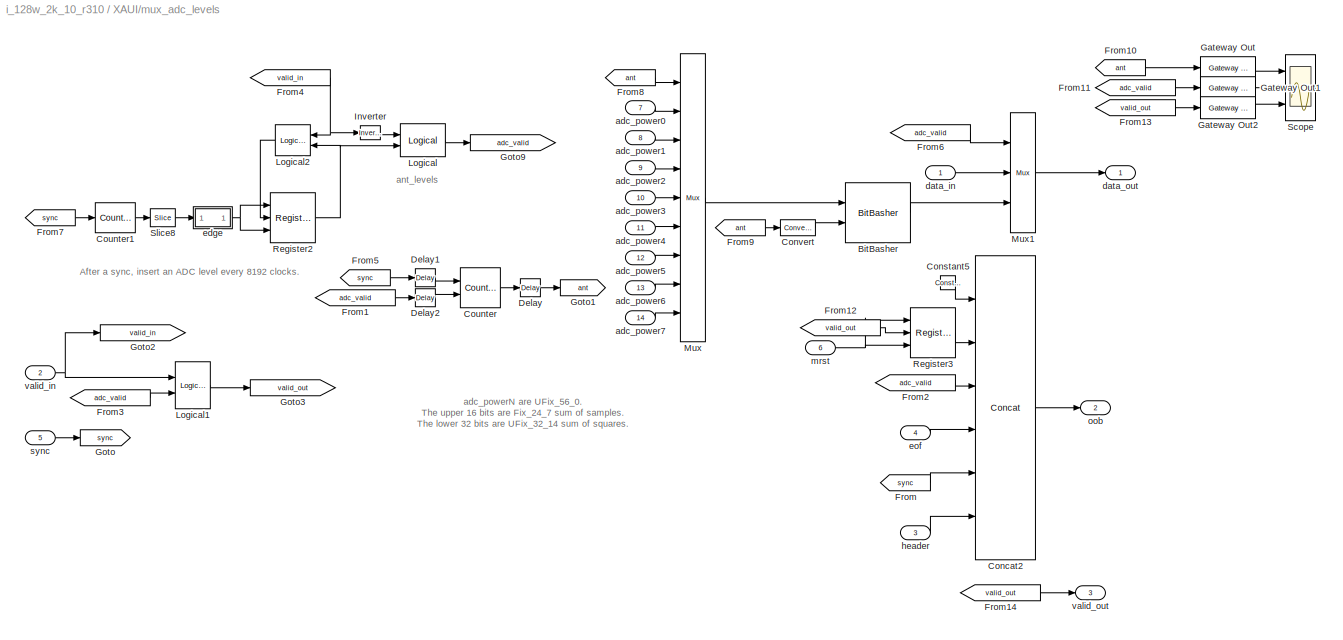
BLOCK [SubSystem] XAUI/mux_adc_levels
  FunctionWithSeparateData = off
  MinAlgLoopOccurrences = off
  Ports = [14, 3]
  RTWSystemCode = Auto
BLOCK [Reference] XAUI/mux_adc_levels/BitBasher  REF=xbsIndex_r4/BitBasher
  Ports = [2, 1]
  SourceBlock = xbsIndex_r4/BitBasher
  SourceType = Xilinx BitBasher Block
  arith_type1 = Unsigned
  arith_type2 = Unsigned
  arith_type3 = Unsigned
  arith_type4 = Unsigned
  bin_pt1 = 0
  bin_pt2 = 0
  bin_pt3 = 0
  bin_pt4 = 0
  bitexpr = <html><head><meta name=\"qrichtext\" content=\"1\" /><style type=\"text/css\">\np, li { white-space: pre-wrap; }\n</style></head><body style=\" font-family:'MS Shell Dlg 2'; font-size:8.25pt; font-weight:400; font-style:normal;\">\n<p style=\" margin-top:12px; margin-bottom:12px; margin-left:0px; margin-right:0px; -qt-block-indent:0; text-indent:0px; font-family:'MS Shell Dlg'; font-size:8pt;\">me...<+47ch>
  block_type = bitbasher
  block_version = 10.1.3
  dbl_ovrd = off
  display_expr = off
  has_advanced_control = 0
  infoedit = Allows extraction, concatenation and augmentation of bits
  sg_icon_stat = 65,60,1,1,white,blue,0,815b4654,right
  sg_mask_display = fprintf('','COMMENT: begin icon graphics');\npatch([0 65 65 0 ],[0 0 60 60 ],[0.77 0.82 0.91]);\npatch([17 7 21 7 17 33 37 41 58 45 32 23 38 23 32 45 58 41 37 33 17 ],[6 16 30 44 54 54 50 54 54 41 54 45 30 15 6 19 6 6 10 6 6 ],[0.98 0.96 0.92]);\nplot([0 65 65 0 0 ],[0 0 60 60 0 ]);\nfprintf('','COMMENT: end icon graphics');\nfprintf('','COMMENT: begin icon text');\ncolor('black');port_label('inpu...<+145ch>
  sggui_pos = 293,473,336,351
  sr_1 = 1
  sr_2 = 2
  sr_3 = 3
  sr_4 = 4
BLOCK [Reference] XAUI/mux_adc_levels/Concat2  REF=xbsIndex_r4/Concat
  Ports = [6, 1]
  SourceBlock = xbsIndex_r4/Concat
  SourceType = Xilinx Bus Concatenator Block
  block_type = concat
  block_version = 10.1.3
  dbl_ovrd = off
  has_advanced_control = 0
  infoedit = Concatenates two or more inputs.  Output will be cast to an unsigned value with the binary point at zero.
  num_inputs = 6
  sg_icon_stat = 60,304,1,1,white,blue,0,36109ac2,right
  sggui_pos = 20,20,336,165
BLOCK [Reference] XAUI/mux_adc_levels/Constant5  REF=xbsIndex_r4/Constant
  Ports = [0, 1]
  SourceBlock = xbsIndex_r4/Constant
  SourceType = Xilinx Constant Block Block
  arith_type = Unsigned
  bin_pt = 0
  block_type = constant
  block_version = 10.1.3
  carry = CIN
  const = 0
  dbl_ovrd = off
  dsp48_infoedit = The use of this block for DSP48 instructions is deprecated.  Please use the Opmode block.
  equ = P=C
  explicit_period = on
  has_advanced_control = 0
  inp1 = P
  inp2 = PCIN>>17
  n_bits = 3
  opr = +
  opselect = C
  period = 1
  sg_icon_stat = 15,14,1,1,white,blue,0,72d575a1,right
  sggui_pos = 20,20,400,346
BLOCK [Reference] XAUI/mux_adc_levels/Convert  REF=xbsIndex_r4/Convert
  Ports = [1, 1]
  SourceBlock = xbsIndex_r4/Convert
  SourceType = Xilinx Type Converter Block
  arith_type = Unsigned
  bin_pt = 0
  block_type = convert
  block_version = 10.1.3
  dbl_ovrd = off
  has_advanced_control = 0
  infoedit = Hardware notes: rounding and saturating require hardware resources; truncating and wrapping do not.
  latency = 0
  n_bits = 8
  overflow = Wrap
  pipeline = off
  quantization = Truncate
  sg_icon_stat = 35,16,1,1,white,blue,0,74901e60,right
  sggui_pos = 20,20,461,334
  xl_area = [0,0,0,0,0,0,0]
  xl_use_area = off
BLOCK [Reference] XAUI/mux_adc_levels/Counter  REF=xbsIndex_r4/Counter
  Ports = [2, 1]
  SourceBlock = xbsIndex_r4/Counter
  SourceType = Xilinx Counter Block
  arith_type = Unsigned
  bin_pt = 0
  block_type = counter
  block_version = 10.1.3
  cnt_by_val = 1
  cnt_to = 7
  cnt_type = Free Running
  dbl_ovrd = off
  en = on
  explicit_period = on
  has_advanced_control = 0
  implementation = Fabric
  infoedit = Hardware notes: Free running counters are the least expensive in hardware.  A count limited counter is implemented by combining a counter with a comparator.
  load_pin = off
  n_bits = 3
  operation = Up
  period = 1
  rst = on
  sg_icon_stat = 40,40,1,1,white,blue,0,46c73e85,right
  sg_mask_display = fprintf('','COMMENT: begin icon graphics');\npatch([0 60 60 0 ],[0 0 60 60 ],[0.77 0.82 0.91]);\npatch([14 4 18 4 14 30 34 38 55 42 29 20 35 20 29 42 55 38 34 30 14 ],[6 16 30 44 54 54 50 54 54 41 54 45 30 15 6 19 6 6 10 6 6 ],[0.98 0.96 0.92]);\nplot([0 60 60 0 0 ],[0 0 60 60 0 ]);\nfprintf('','COMMENT: end icon graphics');\nfprintf('','COMMENT: begin icon text');\ncolor('black');port_label('inpu...<+143ch>
  sggui_pos = 544,79,348,619
  start_count = 0
  use_behavioral_HDL = off
  use_rpm = off
  xl_area = [0,0,0,0,0,0,0]
  xl_use_area = off
BLOCK [Reference] XAUI/mux_adc_levels/Counter1  REF=xbsIndex_r4/Counter
  Ports = [1, 1]
  SourceBlock = xbsIndex_r4/Counter
  SourceType = Xilinx Counter Block
  arith_type = Unsigned
  bin_pt = 0
  block_type = counter
  block_version = 10.1.3
  cnt_by_val = 1
  cnt_to = Inf
  cnt_type = Free Running
  dbl_ovrd = off
  en = off
  explicit_period = off
  has_advanced_control = 0
  implementation = Fabric
  infoedit = Hardware notes: Free running counters are the least expensive in hardware.  A count limited counter is implemented by combining a counter with a comparator.
  load_pin = off
  n_bits = 14
  operation = Up
  period = 1
  rst = on
  sg_icon_stat = 40,30,1,1,white,blue,0,300e9576,right
  sggui_pos = 20,20,348,619
  start_count = 0
  use_behavioral_HDL = off
  use_rpm = on
  xl_area = [0, 0, 0, 0, 0, 0, 0]
  xl_use_area = off
BLOCK [Reference] XAUI/mux_adc_levels/Delay  REF=xbsIndex_r4/Delay
  Ports = [1, 1]
  SourceBlock = xbsIndex_r4/Delay
  SourceType = Xilinx Delay Block
  block_type = delay
  block_version = 10.1.3
  dbl_ovrd = off
  en = off
  has_advanced_control = 0
  infoedit = Hardware notes: A delay line is a chain, each link of which is an SRL16 followed by a flip-flop.
  latency = 1
  reg_retiming = on
  sg_icon_stat = 20,18,1,1,white,blue,0,fc531c0e,right
  sggui_pos = 20,20,348,255
  xl_area = [0,0,0,0,0,0,0]
  xl_use_area = off
BLOCK [Reference] XAUI/mux_adc_levels/Delay1  REF=xbsIndex_r4/Delay
  Ports = [1, 1]
  SourceBlock = xbsIndex_r4/Delay
  SourceType = Xilinx Delay Block
  block_type = delay
  block_version = 10.1.3
  dbl_ovrd = off
  en = off
  has_advanced_control = 0
  infoedit = Hardware notes: A delay line is a chain, each link of which is an SRL16 followed by a flip-flop.
  latency = 2
  reg_retiming = on
  sg_icon_stat = 20,18,1,1,white,blue,0,0a7a6cf1,right
  sggui_pos = 20,20,348,255
  xl_area = [0,0,0,0,0,0,0]
  xl_use_area = off
BLOCK [Reference] XAUI/mux_adc_levels/Delay2  REF=xbsIndex_r4/Delay
  Ports = [1, 1]
  SourceBlock = xbsIndex_r4/Delay
  SourceType = Xilinx Delay Block
  block_type = delay
  block_version = 10.1.3
  dbl_ovrd = off
  en = off
  has_advanced_control = 0
  infoedit = Hardware notes: A delay line is a chain, each link of which is an SRL16 followed by a flip-flop.
  latency = 1
  reg_retiming = on
  sg_icon_stat = 20,18,1,1,white,blue,0,fc531c0e,right
  sggui_pos = 20,20,348,255
  xl_area = [0,0,0,0,0,0,0]
  xl_use_area = off
BLOCK [From] XAUI/mux_adc_levels/From
  CloseFcn = tagdialog Close
  GotoTag = sync
  TagVisibility = global
BLOCK [From] XAUI/mux_adc_levels/From1
  CloseFcn = tagdialog Close
  GotoTag = adc_valid
  TagVisibility = global
BLOCK [From] XAUI/mux_adc_levels/From10
  CloseFcn = tagdialog Close
  GotoTag = ant
  TagVisibility = global
BLOCK [From] XAUI/mux_adc_levels/From11
  CloseFcn = tagdialog Close
  GotoTag = adc_valid
  TagVisibility = global
BLOCK [From] XAUI/mux_adc_levels/From12
  CloseFcn = tagdialog Close
  GotoTag = valid_out
  TagVisibility = global
BLOCK [From] XAUI/mux_adc_levels/From13
  CloseFcn = tagdialog Close
  GotoTag = valid_out
  TagVisibility = global
BLOCK [From] XAUI/mux_adc_levels/From14
  CloseFcn = tagdialog Close
  GotoTag = valid_out
  TagVisibility = global
BLOCK [From] XAUI/mux_adc_levels/From2
  CloseFcn = tagdialog Close
  GotoTag = adc_valid
  TagVisibility = global
BLOCK [From] XAUI/mux_adc_levels/From3
  CloseFcn = tagdialog Close
  GotoTag = adc_valid
  TagVisibility = global
BLOCK [From] XAUI/mux_adc_levels/From4
  CloseFcn = tagdialog Close
  GotoTag = valid_in
  TagVisibility = global
BLOCK [From] XAUI/mux_adc_levels/From5
  CloseFcn = tagdialog Close
  GotoTag = sync
  TagVisibility = global
BLOCK [From] XAUI/mux_adc_levels/From6
  CloseFcn = tagdialog Close
  GotoTag = adc_valid
  TagVisibility = global
BLOCK [From] XAUI/mux_adc_levels/From7
  CloseFcn = tagdialog Close
  GotoTag = sync
  TagVisibility = global
BLOCK [From] XAUI/mux_adc_levels/From8
  CloseFcn = tagdialog Close
  GotoTag = ant
  TagVisibility = global
BLOCK [From] XAUI/mux_adc_levels/From9
  CloseFcn = tagdialog Close
  GotoTag = ant
  TagVisibility = global
BLOCK [Reference] XAUI/mux_adc_levels/Gateway Out  REF=xbsIndex_r4/Gateway Out
  LOCs = {}
  Ports = [1, 1]
  SourceBlock = xbsIndex_r4/Gateway Out
  SourceType = Xilinx Gateway Out Block
  block_type = gatewayout
  block_version = 10.1.3
  has_advanced_control = 0
  hdl_port = off
  locs_specified = off
  sg_icon_stat = 55,22,1,1,white,grey,0,b3a044a9,right
  sggui_pos = 20,20,336,386
  timing_constraint = None
  xl_area = [0, 0, 0, 0, 0, 0, 0]
  xl_use_area = off
BLOCK [Reference] XAUI/mux_adc_levels/Gateway Out1  REF=xbsIndex_r4/Gateway Out
  LOCs = {}
  Ports = [1, 1]
  SourceBlock = xbsIndex_r4/Gateway Out
  SourceType = Xilinx Gateway Out Block
  block_type = gatewayout
  block_version = 10.1.3
  has_advanced_control = 0
  hdl_port = off
  locs_specified = off
  sg_icon_stat = 55,22,1,1,white,grey,0,b3a044a9,right
  sggui_pos = 20,20,336,386
  timing_constraint = None
  xl_area = [0, 0, 0, 0, 0, 0, 0]
  xl_use_area = off
BLOCK [Reference] XAUI/mux_adc_levels/Gateway Out2  REF=xbsIndex_r4/Gateway Out
  LOCs = {}
  Ports = [1, 1]
  SourceBlock = xbsIndex_r4/Gateway Out
  SourceType = Xilinx Gateway Out Block
  block_type = gatewayout
  block_version = 10.1.3
  has_advanced_control = 0
  hdl_port = off
  locs_specified = off
  sg_icon_stat = 55,22,1,1,white,grey,0,b3a044a9,right
  sggui_pos = 20,20,336,386
  timing_constraint = None
  xl_area = [0, 0, 0, 0, 0, 0, 0]
  xl_use_area = off
BLOCK [Goto] XAUI/mux_adc_levels/Goto
  GotoTag = sync
  TagVisibility = global
BLOCK [Goto] XAUI/mux_adc_levels/Goto1
  GotoTag = ant
  TagVisibility = global
BLOCK [Goto] XAUI/mux_adc_levels/Goto2
  GotoTag = valid_in
  TagVisibility = global
BLOCK [Goto] XAUI/mux_adc_levels/Goto3
  GotoTag = valid_out
  TagVisibility = global
BLOCK [Goto] XAUI/mux_adc_levels/Goto9
  GotoTag = adc_valid
  TagVisibility = global
BLOCK [Reference] XAUI/mux_adc_levels/Inverter  REF=xbsIndex_r4/Inverter
  Ports = [1, 1]
  SourceBlock = xbsIndex_r4/Inverter
  SourceType = Xilinx Inverter Block
  block_type = inv
  block_version = 10.1.3
  dbl_ovrd = off
  en = off
  has_advanced_control = 0
  infoedit = Bitwise logical negation (one's complement) operator.
  latency = 0
  sg_icon_stat = 20,14,1,1,white,blue,0,1ab4a85f,right
  sggui_pos = 20,20,348,251
  xl_area = [0, 0, 0, 0, 0, 0, 0]
  xl_use_area = off
BLOCK [Reference] XAUI/mux_adc_levels/Logical  REF=xbsIndex_r4/Logical
  Ports = [2, 1]
  SourceBlock = xbsIndex_r4/Logical
  SourceType = Xilinx Logical Block Block
  align_bp = off
  arith_type = Unsigned
  bin_pt = 2
  block_type = logical
  block_version = 10.1.3
  dbl_ovrd = off
  en = off
  has_advanced_control = 0
  inputs = 2
  latency = 2
  logical_function = AND
  n_bits = 8
  precision = Full
  sg_icon_stat = 45,33,1,1,white,blue,0,112db70d,right
  sggui_pos = 20,20,348,261
  xl_area = [0, 0, 0, 0, 0, 0, 0]
  xl_use_area = off
BLOCK [Reference] XAUI/mux_adc_levels/Logical1  REF=xbsIndex_r4/Logical
  Ports = [2, 1]
  SourceBlock = xbsIndex_r4/Logical
  SourceType = Xilinx Logical Block Block
  align_bp = on
  arith_type = Unsigned
  bin_pt = 2
  block_type = logical
  block_version = 10.1.3
  dbl_ovrd = off
  en = off
  has_advanced_control = 0
  inputs = 2
  latency = 0
  logical_function = OR
  n_bits = 8
  precision = Full
  sg_icon_stat = 35,47,1,1,white,blue,0,f4a65842,right
  sggui_pos = 20,20,348,261
  xl_area = [0, 0, 0, 0, 0, 0, 0]
  xl_use_area = off
BLOCK [Reference] XAUI/mux_adc_levels/Logical2  REF=xbsIndex_r4/Logical
  Ports = [2, 1]
  SourceBlock = xbsIndex_r4/Logical
  SourceType = Xilinx Logical Block Block
  align_bp = off
  arith_type = Unsigned
  bin_pt = 0
  block_type = logical
  block_version = 10.1.3
  dbl_ovrd = off
  en = off
  has_advanced_control = 0
  inputs = 2
  latency = 2
  logical_function = AND
  n_bits = 1
  precision = Full
  sg_icon_stat = 35,31,1,1,white,blue,0,112db70d,left
  sggui_pos = 20,20,348,261
  xl_area = [0, 0, 0, 0, 0, 0, 0]
  xl_use_area = off
BLOCK [Reference] XAUI/mux_adc_levels/Mux  REF=xbsIndex_r4/Mux
  Ports = [9, 1]
  SourceBlock = xbsIndex_r4/Mux
  SourceType = Xilinx Bus Multiplexer Block
  arith_type = Signed  (2's comp)
  bin_pt = 2
  block_type = mux
  block_version = 10.1.3
  dbl_ovrd = off
  en = off
  has_advanced_control = 0
  inputs = 8
  latency = 0
  n_bits = 8
  overflow = Wrap
  precision = Full
  quantization = Truncate
  sg_icon_stat = 25,288,1,1,white,blue,3,ee37f7b8,right
  sg_mask_display = fprintf('','COMMENT: begin icon graphics');\npatch([0 45 45 0 ],[0 14.8571 89.1429 104 ],[0.77 0.82 0.91]);\npatch([10 3 14 3 10 22 25 28 41 31 21 14 25 14 21 31 41 28 25 22 10 ],[34 41 52 63 70 70 67 70 70 60 70 63 52 41 34 44 34 34 37 34 34 ],[0.98 0.96 0.92]);\nplot([0 45 45 0 0 ],[0 14.8571 89.1429 104 0 ]);\nfprintf('','COMMENT: end icon graphics');\nfprintf('','COMMENT: begin icon text');\nc...<+482ch>
  sggui_pos = 20,20,348,303
  xl_area = [0, 0, 0, 0, 0, 0, 0]
  xl_use_area = off
BLOCK [Reference] XAUI/mux_adc_levels/Mux1  REF=xbsIndex_r4/Mux
  Ports = [3, 1]
  SourceBlock = xbsIndex_r4/Mux
  SourceType = Xilinx Bus Multiplexer Block
  arith_type = Signed  (2's comp)
  bin_pt = 2
  block_type = mux
  block_version = 10.1.3
  dbl_ovrd = off
  en = off
  has_advanced_control = 0
  inputs = 2
  latency = 0
  n_bits = 8
  overflow = Wrap
  precision = Full
  quantization = Truncate
  sg_icon_stat = 25,120,1,1,white,blue,3,613f58e1,right
  sggui_pos = -1,-1,-1,-1
  xl_area = [0, 0, 0, 0, 0, 0, 0]
  xl_use_area = off
BLOCK [Reference] XAUI/mux_adc_levels/Register2  REF=xbsIndex_r4/Register
  Ports = [3, 1]
  SourceBlock = xbsIndex_r4/Register
  SourceType = Xilinx Register Block
  block_type = register
  block_version = 10.1.3
  dbl_ovrd = off
  en = on
  has_advanced_control = 0
  init = 0
  rst = on
  sg_icon_stat = 45,50,1,1,white,blue,0,923c1847,right
  sggui_pos = 20,20,348,193
  xl_area = [0, 0, 0, 0, 0, 0, 0]
  xl_use_area = off
BLOCK [Reference] XAUI/mux_adc_levels/Register3  REF=xbsIndex_r4/Register
  Ports = [3, 1]
  SourceBlock = xbsIndex_r4/Register
  SourceType = Xilinx Register Block
  block_type = register
  block_version = 10.1.3
  dbl_ovrd = off
  en = on
  has_advanced_control = 0
  init = 0
  rst = on
  sg_icon_stat = 45,50,1,1,white,blue,0,923c1847,right
  sggui_pos = -1,-1,-1,-1
  xl_area = [0, 0, 0, 0, 0, 0, 0]
  xl_use_area = off
BLOCK [Scope] XAUI/mux_adc_levels/Scope
  DataFormat = StructureWithTime
  Floating = off
  LimitDataPoints = off
  NumInputPorts = 3
  Ports = [3]
  SampleTime = 0
  SaveName = ScopeData3
  YMax = 2~1.7e+023~5
  YMin = 0~-1e+022~-5
  ZoomMode = xonly
BLOCK [Reference] XAUI/mux_adc_levels/Slice8  REF=xbsIndex_r4/Slice
  Ports = [1, 1]
  SourceBlock = xbsIndex_r4/Slice
  SourceType = Xilinx Bit Slice Extractor Block
  base0 = LSB of Input
  base1 = MSB of Input
  bit0 = 19
  bit1 = 0
  block_type = slice
  block_version = 10.1.3
  boolean_output = on
  dbl_ovrd = off
  has_advanced_control = 0
  mode = Upper Bit Location + Width
  nbits = 1
  sg_icon_stat = 25,18,1,1,white,blue,0,b1026674,right
  sggui_pos = 20,20,449,376
BLOCK [Inport] XAUI/mux_adc_levels/adc_power0
  IconDisplay = Port number
  OutDataType = sfix(16)
  OutScaling = 2^0
  Port = 7
BLOCK [Inport] XAUI/mux_adc_levels/adc_power1
  IconDisplay = Port number
  OutDataType = sfix(16)
  OutScaling = 2^0
  Port = 8
BLOCK [Inport] XAUI/mux_adc_levels/adc_power2
  IconDisplay = Port number
  OutDataType = sfix(16)
  OutScaling = 2^0
  Port = 9
BLOCK [Inport] XAUI/mux_adc_levels/adc_power3
  IconDisplay = Port number
  OutDataType = sfix(16)
  OutScaling = 2^0
  Port = 10
BLOCK [Inport] XAUI/mux_adc_levels/adc_power4
  IconDisplay = Port number
  OutDataType = sfix(16)
  OutScaling = 2^0
  Port = 11
BLOCK [Inport] XAUI/mux_adc_levels/adc_power5
  IconDisplay = Port number
  OutDataType = sfix(16)
  OutScaling = 2^0
  Port = 12
BLOCK [Inport] XAUI/mux_adc_levels/adc_power6
  IconDisplay = Port number
  OutDataType = sfix(16)
  OutScaling = 2^0
  Port = 13
BLOCK [Inport] XAUI/mux_adc_levels/adc_power7
  IconDisplay = Port number
  OutDataType = sfix(16)
  OutScaling = 2^0
  Port = 14
BLOCK [Inport] XAUI/mux_adc_levels/data_in
  IconDisplay = Port number
  OutDataType = sfix(16)
  OutScaling = 2^0
BLOCK [Outport] XAUI/mux_adc_levels/data_out
  IconDisplay = Port number
  OutDataType = sfix(16)
  OutScaling = 2^0
BLOCK [SubSystem] XAUI/mux_adc_levels/edge
  FunctionWithSeparateData = off
  MinAlgLoopOccurrences = off
  Ports = [1, 1]
  RTWSystemCode = Auto
BLOCK [Reference] XAUI/mux_adc_levels/edge/Delay4  REF=xbsIndex_r4/Delay
  Ports = [1, 1]
  SourceBlock = xbsIndex_r4/Delay
  SourceType = Xilinx Delay Block
  block_type = delay
  block_version = 10.1.3
  dbl_ovrd = off
  en = off
  has_advanced_control = 0
  infoedit = Hardware notes: A delay line is a chain, each link of which is an SRL16 followed by a flip-flop.
  latency = 1
  reg_retiming = off
  sg_icon_stat = 20,20,1,1,white,blue,0,fc531c0e,right
  sggui_pos = -1,-1,-1,-1
  xl_area = [0, 0, 0, 0, 0, 0, 0]
  xl_use_area = off
BLOCK [Reference] XAUI/mux_adc_levels/edge/Logical3  REF=xbsIndex_r4/Logical
  Ports = [2, 1]
  SourceBlock = xbsIndex_r4/Logical
  SourceType = Xilinx Logical Block Block
  align_bp = on
  arith_type = Unsigned
  bin_pt = 2
  block_type = logical
  block_version = 10.1.3
  dbl_ovrd = off
  en = off
  has_advanced_control = 0
  inputs = 2
  latency = 0
  logical_function = XOR
  n_bits = 8
  precision = Full
  sg_icon_stat = 30,29,1,1,white,blue,0,54bbd59c,right
  sggui_pos = -1,-1,-1,-1
  xl_area = [0, 0, 0, 0, 0, 0, 0]
  xl_use_area = off
BLOCK [Inport] XAUI/mux_adc_levels/edge/in
  IconDisplay = Port number
  OutDataType = sfix(16)
  OutScaling = 2^0
BLOCK [Outport] XAUI/mux_adc_levels/edge/out
  IconDisplay = Port number
  OutDataType = sfix(16)
  OutScaling = 2^0
BLOCK [Inport] XAUI/mux_adc_levels/eof
  IconDisplay = Port number
  OutDataType = sfix(16)
  OutScaling = 2^0
  Port = 4
BLOCK [Inport] XAUI/mux_adc_levels/header
  IconDisplay = Port number
  OutDataType = sfix(16)
  OutScaling = 2^0
  Port = 3
BLOCK [Inport] XAUI/mux_adc_levels/mrst
  IconDisplay = Port number
  OutDataType = sfix(16)
  OutScaling = 2^0
  Port = 6
BLOCK [Outport] XAUI/mux_adc_levels/oob
  IconDisplay = Port number
  OutDataType = sfix(16)
  OutScaling = 2^0
  Port = 2
BLOCK [Inport] XAUI/mux_adc_levels/sync
  IconDisplay = Port number
  OutDataType = sfix(16)
  OutScaling = 2^0
  Port = 5
BLOCK [Inport] XAUI/mux_adc_levels/valid_in
  IconDisplay = Port number
  OutDataType = sfix(16)
  OutScaling = 2^0
  Port = 2
BLOCK [Outport] XAUI/mux_adc_levels/valid_out
  IconDisplay = Port number
  OutDataType = sfix(16)
  OutScaling = 2^0
  Port = 3
BLOCK [SubSystem] XAUI/neg_edge_ext0
  FunctionWithSeparateData = off
  MaskEnableString = on
  MaskIconFrame = on
  MaskIconOpaque = on
  MaskIconRotate = none
  MaskIconUnits = autoscale
  MaskInitialization = bits = ceil(log2(pulse_len+1));
  MaskPromptString = Length of Pulse
  MaskStyleString = edit
  MaskToolTipString = on
  MaskTunableValueString = on
  MaskValueString = 2^27
  MaskVariables = pulse_len=@1;
  MaskVisibilityString = on
  MinAlgLoopOccurrences = off
  Ports = [1, 1]
  RTWSystemCode = Auto
BLOCK [Reference] XAUI/neg_edge_ext0/Constant5  REF=xbsIndex_r4/Constant
  Ports = [0, 1]
  SourceBlock = xbsIndex_r4/Constant
  SourceType = Xilinx Constant Block Block
  arith_type = Unsigned
  bin_pt = 0
  block_type = constant
  block_version = 10.1.3
  carry = CIN
  const = pulse_len
  dbl_ovrd = off
  dsp48_infoedit = The use of this block for DSP48 instructions is deprecated.  Please use the Opmode block.
  equ = P=C
  explicit_period = off
  has_advanced_control = 0
  inp1 = P
  inp2 = PCIN>>17
  n_bits = bits
  opr = +
  opselect = C
  period = 1
  sg_icon_stat = 70,32,1,1,white,blue,0,e8c708f7,right
  sg_mask_display = fprintf('','COMMENT: begin icon graphics');\npatch([0 55 55 0 ],[0 0 26 26 ],[0.77 0.82 0.91]);\npatch([20 16 22 16 20 27 29 31 38 32 26 22 28 22 26 32 38 31 29 27 20 ],[3 7 13 19 23 23 21 23 23 17 23 19 13 7 3 9 3 3 5 3 3 ],[0.98 0.96 0.92]);\nplot([0 55 55 0 0 ],[0 0 26 26 0 ]);\nfprintf('','COMMENT: end icon graphics');\nfprintf('','COMMENT: begin icon text');\ncolor('black');port_label('output...<+58ch>
  sggui_pos = -1,-1,-1,-1
BLOCK [Reference] XAUI/neg_edge_ext0/Counter3  REF=xbsIndex_r4/Counter
  Ports = [2, 1]
  SourceBlock = xbsIndex_r4/Counter
  SourceType = Xilinx Counter Block
  arith_type = Unsigned
  bin_pt = 0
  block_type = counter
  block_version = 10.1.3
  cnt_by_val = 1
  cnt_to = 1023
  cnt_type = Free Running
  dbl_ovrd = off
  en = on
  explicit_period = on
  has_advanced_control = 0
  implementation = Fabric
  infoedit = Hardware notes: Free running counters are the least expensive in hardware.  A count limited counter is implemented by combining a counter with a comparator.
  load_pin = off
  n_bits = bits
  operation = Up
  period = 1
  rst = on
  sg_icon_stat = 50,55,1,1,white,blue,0,46c73e85,right
  sggui_pos = -1,-1,-1,-1
  start_count = 0
  use_behavioral_HDL = off
  use_rpm = on
  xl_area = [0, 0, 0, 0, 0, 0, 0]
  xl_use_area = off
BLOCK [Reference] XAUI/neg_edge_ext0/Relational5  REF=xbsIndex_r4/Relational
  Ports = [2, 1]
  SourceBlock = xbsIndex_r4/Relational
  SourceType = Xilinx Arithmetic Relational Operator Block
  block_type = relational
  block_version = 10.1.3
  dbl_ovrd = off
  en = off
  has_advanced_control = 0
  latency = 0
  mode = a!=b
  sg_icon_stat = 45,44,1,1,white,blue,0,1d65505e,right
  sggui_pos = -1,-1,-1,-1
  xl_area = [0, 0, 0, 0, 0, 0, 0]
  xl_use_area = off
BLOCK [Inport] XAUI/neg_edge_ext0/in
  IconDisplay = Port number
  OutDataType = sfix(16)
  OutScaling = 2^0
BLOCK [Outport] XAUI/neg_edge_ext0/out
  IconDisplay = Port number
  OutDataType = sfix(16)
  OutScaling = 2^0
BLOCK [SubSystem] XAUI/neg_edge_ext1
  FunctionWithSeparateData = off
  MaskEnableString = on
  MaskIconFrame = on
  MaskIconOpaque = on
  MaskIconRotate = none
  MaskIconUnits = autoscale
  MaskInitialization = bits = ceil(log2(pulse_len+1));
  MaskPromptString = Length of Pulse
  MaskStyleString = edit
  MaskToolTipString = on
  MaskTunableValueString = on
  MaskValueString = 2^23
  MaskVariables = pulse_len=@1;
  MaskVisibilityString = on
  MinAlgLoopOccurrences = off
  Ports = [1, 1]
  RTWSystemCode = Auto
BLOCK [Reference] XAUI/neg_edge_ext1/Constant5  REF=xbsIndex_r4/Constant
  Ports = [0, 1]
  SourceBlock = xbsIndex_r4/Constant
  SourceType = Xilinx Constant Block Block
  arith_type = Unsigned
  bin_pt = 0
  block_type = constant
  block_version = 10.1.3
  carry = CIN
  const = pulse_len
  dbl_ovrd = off
  dsp48_infoedit = The use of this block for DSP48 instructions is deprecated.  Please use the Opmode block.
  equ = P=C
  explicit_period = off
  has_advanced_control = 0
  inp1 = P
  inp2 = PCIN>>17
  n_bits = bits
  opr = +
  opselect = C
  period = 1
  sg_icon_stat = 70,32,1,1,white,blue,0,549006e6,right
  sg_mask_display = fprintf('','COMMENT: begin icon graphics');\npatch([0 55 55 0 ],[0 0 26 26 ],[0.77 0.82 0.91]);\npatch([20 16 22 16 20 27 29 31 38 32 26 22 28 22 26 32 38 31 29 27 20 ],[3 7 13 19 23 23 21 23 23 17 23 19 13 7 3 9 3 3 5 3 3 ],[0.98 0.96 0.92]);\nplot([0 55 55 0 0 ],[0 0 26 26 0 ]);\nfprintf('','COMMENT: end icon graphics');\nfprintf('','COMMENT: begin icon text');\ncolor('black');port_label('output...<+56ch>
  sggui_pos = -1,-1,-1,-1
BLOCK [Reference] XAUI/neg_edge_ext1/Counter3  REF=xbsIndex_r4/Counter
  Ports = [2, 1]
  SourceBlock = xbsIndex_r4/Counter
  SourceType = Xilinx Counter Block
  arith_type = Unsigned
  bin_pt = 0
  block_type = counter
  block_version = 10.1.3
  cnt_by_val = 1
  cnt_to = 1023
  cnt_type = Free Running
  dbl_ovrd = off
  en = on
  explicit_period = on
  has_advanced_control = 0
  implementation = Fabric
  infoedit = Hardware notes: Free running counters are the least expensive in hardware.  A count limited counter is implemented by combining a counter with a comparator.
  load_pin = off
  n_bits = bits
  operation = Up
  period = 1
  rst = on
  sg_icon_stat = 50,55,1,1,white,blue,0,46c73e85,right
  sggui_pos = -1,-1,-1,-1
  start_count = 0
  use_behavioral_HDL = off
  use_rpm = on
  xl_area = [0, 0, 0, 0, 0, 0, 0]
  xl_use_area = off
BLOCK [Reference] XAUI/neg_edge_ext1/Relational5  REF=xbsIndex_r4/Relational
  Ports = [2, 1]
  SourceBlock = xbsIndex_r4/Relational
  SourceType = Xilinx Arithmetic Relational Operator Block
  block_type = relational
  block_version = 10.1.3
  dbl_ovrd = off
  en = off
  has_advanced_control = 0
  latency = 0
  mode = a!=b
  sg_icon_stat = 45,44,1,1,white,blue,0,1d65505e,right
  sggui_pos = -1,-1,-1,-1
  xl_area = [0, 0, 0, 0, 0, 0, 0]
  xl_use_area = off
BLOCK [Inport] XAUI/neg_edge_ext1/in
  IconDisplay = Port number
  OutDataType = sfix(16)
  OutScaling = 2^0
BLOCK [Outport] XAUI/neg_edge_ext1/out
  IconDisplay = Port number
  OutDataType = sfix(16)
  OutScaling = 2^0
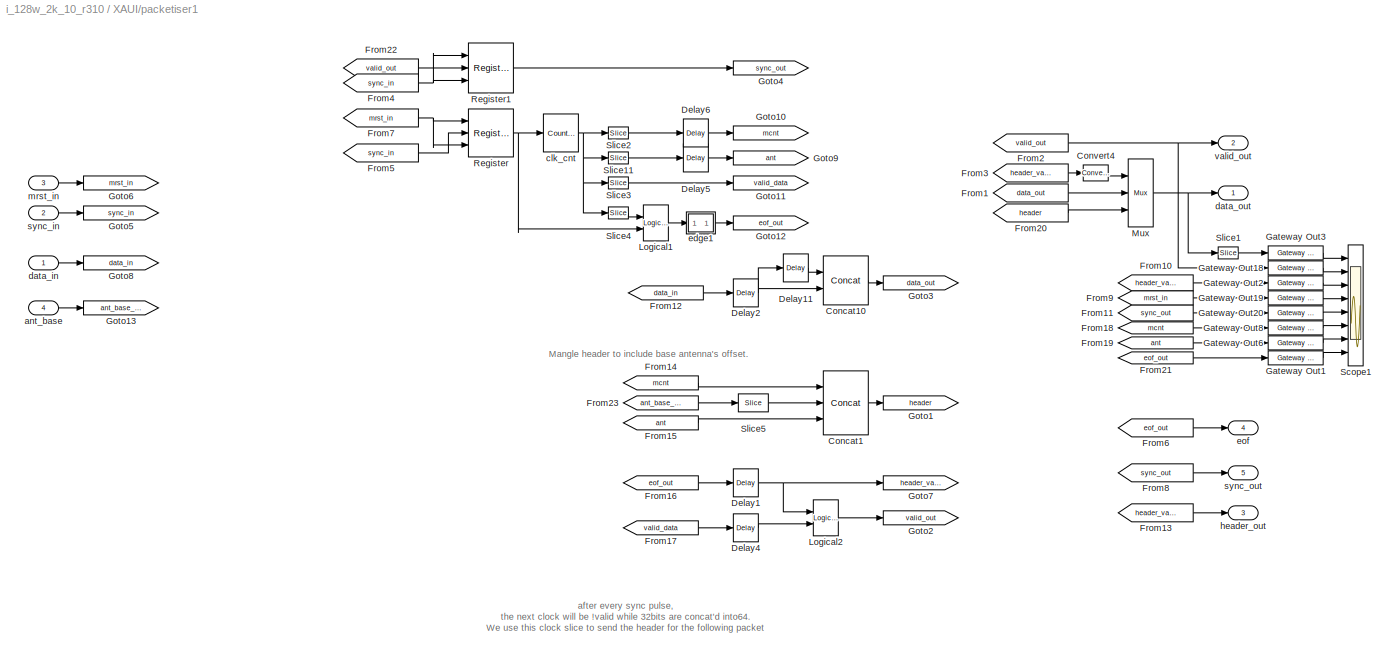
BLOCK [SubSystem] XAUI/packetiser1
  FunctionWithSeparateData = off
  MaskCallbackString = |
  MaskDescription = Package 32 bit data into 64 bits and identify data as coming from antenna 0 or 1
  MaskEnableString = on,on
  MaskIconFrame = on
  MaskIconOpaque = on
  MaskIconRotate = none
  MaskIconUnits = autoscale
  MaskPromptString = Payload length: (in 64bit words) (2^n)|Number of antennas on this link (2^n)
  MaskStyleString = edit,edit
  MaskTabNameString = ,
  MaskToolTipString = on,on
  MaskTunableValueString = on,on
  MaskValueString = 5|2
  MaskVarAliasString = ,
  MaskVariables = nwrd_bits=@1;ant_bits=@2;
  MaskVisibilityString = on,on
  MinAlgLoopOccurrences = off
  Ports = [4, 5]
  RTWSystemCode = Auto
BLOCK [Reference] XAUI/packetiser1/Concat1  REF=xbsIndex_r4/Concat
  Ports = [3, 1]
  SourceBlock = xbsIndex_r4/Concat
  SourceType = Xilinx Bus Concatenator Block
  block_type = concat
  block_version = 10.1.3
  dbl_ovrd = off
  has_advanced_control = 0
  infoedit = Concatenates two or more inputs.  Output will be cast to an unsigned value with the binary point at zero.
  num_inputs = 3
  sg_icon_stat = 45,64,1,1,white,blue,0,97cf21e1,right
  sggui_pos = -1,-1,-1,-1
BLOCK [Reference] XAUI/packetiser1/Concat10  REF=xbsIndex_r4/Concat
  Ports = [2, 1]
  SourceBlock = xbsIndex_r4/Concat
  SourceType = Xilinx Bus Concatenator Block
  block_type = concat
  block_version = 10.1.3
  dbl_ovrd = off
  has_advanced_control = 0
  infoedit = Concatenates two or more inputs.  Output will be cast to an unsigned value with the binary point at zero.
  num_inputs = 2
  sg_icon_stat = 45,49,1,1,white,blue,0,df1e5aba,right
  sggui_pos = -1,-1,-1,-1
BLOCK [Reference] XAUI/packetiser1/Convert4  REF=xbsIndex_r4/Convert
  Ports = [1, 1]
  SourceBlock = xbsIndex_r4/Convert
  SourceType = Xilinx Type Converter Block
  arith_type = Unsigned
  bin_pt = 0
  block_type = convert
  block_version = 10.1.3
  dbl_ovrd = off
  has_advanced_control = 0
  infoedit = Hardware notes: rounding and saturating require hardware resources; truncating and wrapping do not.
  latency = 0
  n_bits = 1
  overflow = Wrap
  pipeline = off
  quantization = Truncate
  sg_icon_stat = 25,16,1,1,white,blue,0,74901e60,right
  sggui_pos = -1,-1,-1,-1
  xl_area = [0, 0, 0, 0, 0, 0, 0]
  xl_use_area = off
BLOCK [Reference] XAUI/packetiser1/Delay1  REF=xbsIndex_r4/Delay
  Ports = [1, 1]
  SourceBlock = xbsIndex_r4/Delay
  SourceType = Xilinx Delay Block
  block_type = delay
  block_version = 10.1.3
  dbl_ovrd = off
  en = off
  has_advanced_control = 0
  infoedit = Hardware notes: A delay line is a chain, each link of which is an SRL16 followed by a flip-flop.
  latency = 1
  reg_retiming = on
  sg_icon_stat = 25,28,1,1,white,blue,0,fc531c0e,right
  sggui_pos = -1,-1,-1,-1
  xl_area = [0, 0, 0, 0, 0, 0, 0]
  xl_use_area = off
BLOCK [Reference] XAUI/packetiser1/Delay11  REF=xbsIndex_r4/Delay
  Ports = [1, 1]
  SourceBlock = xbsIndex_r4/Delay
  SourceType = Xilinx Delay Block
  block_type = delay
  block_version = 10.1.3
  dbl_ovrd = off
  en = off
  has_advanced_control = 0
  infoedit = Hardware notes: A delay line is a chain, each link of which is an SRL16 followed by a flip-flop.
  latency = 1
  reg_retiming = on
  sg_icon_stat = 25,28,1,1,white,blue,0,fc531c0e,right
  sggui_pos = -1,-1,-1,-1
  xl_area = [0, 0, 0, 0, 0, 0, 0]
  xl_use_area = off
BLOCK [Reference] XAUI/packetiser1/Delay2  REF=xbsIndex_r4/Delay
  Ports = [1, 1]
  SourceBlock = xbsIndex_r4/Delay
  SourceType = Xilinx Delay Block
  block_type = delay
  block_version = 10.1.3
  dbl_ovrd = off
  en = off
  has_advanced_control = 0
  infoedit = Hardware notes: A delay line is a chain, each link of which is an SRL16 followed by a flip-flop.
  latency = 1
  reg_retiming = on
  sg_icon_stat = 25,28,1,1,white,blue,0,fc531c0e,right
  sggui_pos = -1,-1,-1,-1
  xl_area = [0, 0, 0, 0, 0, 0, 0]
  xl_use_area = off
BLOCK [Reference] XAUI/packetiser1/Delay4  REF=xbsIndex_r4/Delay
  Ports = [1, 1]
  SourceBlock = xbsIndex_r4/Delay
  SourceType = Xilinx Delay Block
  block_type = delay
  block_version = 10.1.3
  dbl_ovrd = off
  en = off
  has_advanced_control = 0
  infoedit = Hardware notes: A delay line is a chain, each link of which is an SRL16 followed by a flip-flop.
  latency = 1
  reg_retiming = on
  sg_icon_stat = 25,28,1,1,white,blue,0,fc531c0e,right
  sggui_pos = -1,-1,-1,-1
  xl_area = [0, 0, 0, 0, 0, 0, 0]
  xl_use_area = off
BLOCK [Reference] XAUI/packetiser1/Delay5  REF=xbsIndex_r4/Delay
  Ports = [1, 1]
  SourceBlock = xbsIndex_r4/Delay
  SourceType = Xilinx Delay Block
  block_type = delay
  block_version = 10.1.3
  dbl_ovrd = off
  en = off
  has_advanced_control = 0
  infoedit = Hardware notes: A delay line is a chain, each link of which is an SRL16 followed by a flip-flop.
  latency = 1
  reg_retiming = on
  sg_icon_stat = 25,28,1,1,white,blue,0,fc531c0e,right
  sggui_pos = -1,-1,-1,-1
  xl_area = [0, 0, 0, 0, 0, 0, 0]
  xl_use_area = off
BLOCK [Reference] XAUI/packetiser1/Delay6  REF=xbsIndex_r4/Delay
  Ports = [1, 1]
  SourceBlock = xbsIndex_r4/Delay
  SourceType = Xilinx Delay Block
  block_type = delay
  block_version = 10.1.3
  dbl_ovrd = off
  en = off
  has_advanced_control = 0
  infoedit = Hardware notes: A delay line is a chain, each link of which is an SRL16 followed by a flip-flop.
  latency = 1
  reg_retiming = on
  sg_icon_stat = 25,28,1,1,white,blue,0,fc531c0e,right
  sggui_pos = -1,-1,-1,-1
  xl_area = [0, 0, 0, 0, 0, 0, 0]
  xl_use_area = off
BLOCK [From] XAUI/packetiser1/From1
  CloseFcn = tagdialog Close
  GotoTag = data_out
BLOCK [From] XAUI/packetiser1/From10
  CloseFcn = tagdialog Close
  GotoTag = header_valid
BLOCK [From] XAUI/packetiser1/From11
  CloseFcn = tagdialog Close
  GotoTag = sync_out
BLOCK [From] XAUI/packetiser1/From12
  CloseFcn = tagdialog Close
  GotoTag = data_in
BLOCK [From] XAUI/packetiser1/From13
  CloseFcn = tagdialog Close
  GotoTag = header_valid
BLOCK [From] XAUI/packetiser1/From14
  CloseFcn = tagdialog Close
  GotoTag = mcnt
BLOCK [From] XAUI/packetiser1/From15
  CloseFcn = tagdialog Close
  GotoTag = ant
BLOCK [From] XAUI/packetiser1/From16
  CloseFcn = tagdialog Close
  GotoTag = eof_out
BLOCK [From] XAUI/packetiser1/From17
  CloseFcn = tagdialog Close
  GotoTag = valid_data
BLOCK [From] XAUI/packetiser1/From18
  CloseFcn = tagdialog Close
  GotoTag = mcnt
BLOCK [From] XAUI/packetiser1/From19
  CloseFcn = tagdialog Close
  GotoTag = ant
BLOCK [From] XAUI/packetiser1/From2
  CloseFcn = tagdialog Close
  GotoTag = valid_out
BLOCK [From] XAUI/packetiser1/From20
  CloseFcn = tagdialog Close
  GotoTag = header
BLOCK [From] XAUI/packetiser1/From21
  CloseFcn = tagdialog Close
  GotoTag = eof_out
BLOCK [From] XAUI/packetiser1/From22
  CloseFcn = tagdialog Close
  GotoTag = valid_out
BLOCK [From] XAUI/packetiser1/From23
  CloseFcn = tagdialog Close
  GotoTag = ant_base_offset
BLOCK [From] XAUI/packetiser1/From3
  CloseFcn = tagdialog Close
  GotoTag = header_valid
BLOCK [From] XAUI/packetiser1/From4
  CloseFcn = tagdialog Close
  GotoTag = sync_in
BLOCK [From] XAUI/packetiser1/From5
  CloseFcn = tagdialog Close
  GotoTag = sync_in
BLOCK [From] XAUI/packetiser1/From6
  CloseFcn = tagdialog Close
  GotoTag = eof_out
BLOCK [From] XAUI/packetiser1/From7
  CloseFcn = tagdialog Close
  GotoTag = mrst_in
BLOCK [From] XAUI/packetiser1/From8
  CloseFcn = tagdialog Close
  GotoTag = sync_out
BLOCK [From] XAUI/packetiser1/From9
  CloseFcn = tagdialog Close
  GotoTag = mrst_in
BLOCK [Reference] XAUI/packetiser1/Gateway Out1  REF=xbsIndex_r4/Gateway Out
  LOCs = {}
  Ports = [1, 1]
  SourceBlock = xbsIndex_r4/Gateway Out
  SourceType = Xilinx Gateway Out Block
  block_type = gatewayout
  block_version = 10.1.3
  has_advanced_control = 0
  hdl_port = on
  locs_specified = off
  sg_icon_stat = 55,14,1,1,white,yellow,0,38220381,right
  sg_mask_display = fprintf('','COMMENT: begin icon graphics');\npatch([0 55 55 0 ],[0 0 14 14 ],[0.95 0.93 0.65]);\npatch([23 21 24 21 23 27 28 29 33 30 27 25 28 25 27 30 33 29 28 27 23 ],[2 4 7 10 12 12 11 12 12 9 12 10 7 4 2 5 2 2 3 2 2 ],[0.98 0.96 0.92]);\nplot([0 55 55 0 0 ],[0 0 14 14 0 ]);\nfprintf('','COMMENT: end icon graphics');\nfprintf('','COMMENT: begin icon text');\ncolor('black');port_label('input',1,...<+129ch>  <repeated x8 — deduplicated; at blocks: Gateway Out1, Gateway Out18, Gateway Out19, Gateway Out2, Gateway Out20, Gateway Out3, Gateway Out6, Gateway Out8>
  sggui_pos = -1,-1,-1,-1
  timing_constraint = None
  xl_area = [0, 0, 0, 0, 0, 0, 0]
  xl_use_area = off
BLOCK [Reference] XAUI/packetiser1/Gateway Out18  REF=xbsIndex_r4/Gateway Out
  LOCs = {}
  Ports = [1, 1]
  SourceBlock = xbsIndex_r4/Gateway Out
  SourceType = Xilinx Gateway Out Block
  block_type = gatewayout
  block_version = 10.1.3
  has_advanced_control = 0
  hdl_port = on
  locs_specified = off
  sg_icon_stat = 55,14,1,1,white,yellow,0,38220381,right
  sggui_pos = -1,-1,-1,-1
  timing_constraint = None
  xl_area = [0, 0, 0, 0, 0, 0, 0]
  xl_use_area = off
BLOCK [Reference] XAUI/packetiser1/Gateway Out19  REF=xbsIndex_r4/Gateway Out
  LOCs = {}
  Ports = [1, 1]
  SourceBlock = xbsIndex_r4/Gateway Out
  SourceType = Xilinx Gateway Out Block
  block_type = gatewayout
  block_version = 10.1.3
  has_advanced_control = 0
  hdl_port = on
  locs_specified = off
  sg_icon_stat = 55,14,1,1,white,yellow,0,38220381,right
  sggui_pos = -1,-1,-1,-1
  timing_constraint = None
  xl_area = [0, 0, 0, 0, 0, 0, 0]
  xl_use_area = off
BLOCK [Reference] XAUI/packetiser1/Gateway Out2  REF=xbsIndex_r4/Gateway Out
  LOCs = {}
  Ports = [1, 1]
  SourceBlock = xbsIndex_r4/Gateway Out
  SourceType = Xilinx Gateway Out Block
  block_type = gatewayout
  block_version = 10.1.3
  has_advanced_control = 0
  hdl_port = on
  locs_specified = off
  sg_icon_stat = 55,14,1,1,white,yellow,0,38220381,right
  sggui_pos = -1,-1,-1,-1
  timing_constraint = None
  xl_area = [0, 0, 0, 0, 0, 0, 0]
  xl_use_area = off
BLOCK [Reference] XAUI/packetiser1/Gateway Out20  REF=xbsIndex_r4/Gateway Out
  LOCs = {}
  Ports = [1, 1]
  SourceBlock = xbsIndex_r4/Gateway Out
  SourceType = Xilinx Gateway Out Block
  block_type = gatewayout
  block_version = 10.1.3
  has_advanced_control = 0
  hdl_port = on
  locs_specified = off
  sg_icon_stat = 55,14,1,1,white,yellow,0,38220381,right
  sggui_pos = -1,-1,-1,-1
  timing_constraint = None
  xl_area = [0, 0, 0, 0, 0, 0, 0]
  xl_use_area = off
BLOCK [Reference] XAUI/packetiser1/Gateway Out3  REF=xbsIndex_r4/Gateway Out
  LOCs = {}
  Ports = [1, 1]
  SourceBlock = xbsIndex_r4/Gateway Out
  SourceType = Xilinx Gateway Out Block
  block_type = gatewayout
  block_version = 10.1.3
  has_advanced_control = 0
  hdl_port = on
  locs_specified = off
  sg_icon_stat = 55,14,1,1,white,yellow,0,38220381,right
  sggui_pos = -1,-1,-1,-1
  timing_constraint = None
  xl_area = [0, 0, 0, 0, 0, 0, 0]
  xl_use_area = off
BLOCK [Reference] XAUI/packetiser1/Gateway Out6  REF=xbsIndex_r4/Gateway Out
  LOCs = {}
  Ports = [1, 1]
  SourceBlock = xbsIndex_r4/Gateway Out
  SourceType = Xilinx Gateway Out Block
  block_type = gatewayout
  block_version = 10.1.3
  has_advanced_control = 0
  hdl_port = on
  locs_specified = off
  sg_icon_stat = 55,14,1,1,white,yellow,0,38220381,right
  sggui_pos = -1,-1,-1,-1
  timing_constraint = None
  xl_area = [0, 0, 0, 0, 0, 0, 0]
  xl_use_area = off
BLOCK [Reference] XAUI/packetiser1/Gateway Out8  REF=xbsIndex_r4/Gateway Out
  LOCs = {}
  Ports = [1, 1]
  SourceBlock = xbsIndex_r4/Gateway Out
  SourceType = Xilinx Gateway Out Block
  block_type = gatewayout
  block_version = 10.1.3
  has_advanced_control = 0
  hdl_port = on
  locs_specified = off
  sg_icon_stat = 55,14,1,1,white,yellow,0,38220381,right
  sggui_pos = -1,-1,-1,-1
  timing_constraint = None
  xl_area = [0, 0, 0, 0, 0, 0, 0]
  xl_use_area = off
BLOCK [Goto] XAUI/packetiser1/Goto1
  GotoTag = header
  TagVisibility = local
BLOCK [Goto] XAUI/packetiser1/Goto10
  GotoTag = mcnt
  TagVisibility = local
BLOCK [Goto] XAUI/packetiser1/Goto11
  GotoTag = valid_data
  TagVisibility = local
BLOCK [Goto] XAUI/packetiser1/Goto12
  GotoTag = eof_out
  TagVisibility = local
BLOCK [Goto] XAUI/packetiser1/Goto13
  GotoTag = ant_base_offset
  TagVisibility = local
BLOCK [Goto] XAUI/packetiser1/Goto2
  GotoTag = valid_out
  TagVisibility = local
BLOCK [Goto] XAUI/packetiser1/Goto3
  GotoTag = data_out
  TagVisibility = local
BLOCK [Goto] XAUI/packetiser1/Goto4
  GotoTag = sync_out
  TagVisibility = local
BLOCK [Goto] XAUI/packetiser1/Goto5
  GotoTag = sync_in
  TagVisibility = local
BLOCK [Goto] XAUI/packetiser1/Goto6
  GotoTag = mrst_in
  TagVisibility = local
BLOCK [Goto] XAUI/packetiser1/Goto7
  GotoTag = header_valid
  TagVisibility = local
BLOCK [Goto] XAUI/packetiser1/Goto8
  GotoTag = data_in
  TagVisibility = local
BLOCK [Goto] XAUI/packetiser1/Goto9
  GotoTag = ant
  TagVisibility = local
BLOCK [Reference] XAUI/packetiser1/Logical1  REF=xbsIndex_r4/Logical
  Ports = [2, 1]
  SourceBlock = xbsIndex_r4/Logical
  SourceType = Xilinx Logical Block Block
  align_bp = on
  arith_type = Unsigned
  bin_pt = 0
  block_type = logical
  block_version = 10.1.3
  dbl_ovrd = off
  en = off
  has_advanced_control = 0
  inputs = 2
  latency = 0
  logical_function = OR
  n_bits = 1
  precision = Full
  sg_icon_stat = 25,36,1,1,white,blue,0,f4a65842,right
  sggui_pos = -1,-1,-1,-1
  xl_area = [0, 0, 0, 0, 0, 0, 0]
  xl_use_area = off
BLOCK [Reference] XAUI/packetiser1/Logical2  REF=xbsIndex_r4/Logical
  Ports = [2, 1]
  SourceBlock = xbsIndex_r4/Logical
  SourceType = Xilinx Logical Block Block
  align_bp = on
  arith_type = Unsigned
  bin_pt = 0
  block_type = logical
  block_version = 10.1.3
  dbl_ovrd = off
  en = off
  has_advanced_control = 0
  inputs = 2
  latency = 0
  logical_function = OR
  n_bits = 1
  precision = Full
  sg_icon_stat = 25,36,1,1,white,blue,0,f4a65842,right
  sggui_pos = -1,-1,-1,-1
  xl_area = [0, 0, 0, 0, 0, 0, 0]
  xl_use_area = off
BLOCK [Reference] XAUI/packetiser1/Mux  REF=xbsIndex_r4/Mux
  Ports = [3, 1]
  SourceBlock = xbsIndex_r4/Mux
  SourceType = Xilinx Bus Multiplexer Block
  arith_type = Signed  (2's comp)
  bin_pt = 2
  block_type = mux
  block_version = 10.1.3
  dbl_ovrd = off
  en = off
  has_advanced_control = 0
  inputs = 2
  latency = 0
  n_bits = 8
  overflow = Wrap
  precision = Full
  quantization = Truncate
  sg_icon_stat = 25,68,1,1,white,blue,3,613f58e1,right
  sggui_pos = -1,-1,-1,-1
  xl_area = [0, 0, 0, 0, 0, 0, 0]
  xl_use_area = off
BLOCK [Reference] XAUI/packetiser1/Register  REF=xbsIndex_r4/Register
  Ports = [3, 1]
  SourceBlock = xbsIndex_r4/Register
  SourceType = Xilinx Register Block
  block_type = register
  block_version = 10.1.3
  dbl_ovrd = off
  en = on
  has_advanced_control = 0
  init = 0
  rst = on
  sg_icon_stat = 45,48,1,1,white,blue,0,923c1847,right
  sggui_pos = -1,-1,-1,-1
  xl_area = [0, 0, 0, 0, 0, 0, 0]
  xl_use_area = off
BLOCK [Reference] XAUI/packetiser1/Register1  REF=xbsIndex_r4/Register
  Ports = [3, 1]
  SourceBlock = xbsIndex_r4/Register
  SourceType = Xilinx Register Block
  block_type = register
  block_version = 10.1.3
  dbl_ovrd = off
  en = on
  has_advanced_control = 0
  init = 0
  rst = on
  sg_icon_stat = 45,50,1,1,white,blue,0,923c1847,right
  sggui_pos = -1,-1,-1,-1
  xl_area = [0, 0, 0, 0, 0, 0, 0]
  xl_use_area = off
BLOCK [Scope] XAUI/packetiser1/Scope1
  DataFormat = StructureWithTime
  Floating = off
  LimitDataPoints = off
  NumInputPorts = 8
  Ports = [8]
  SampleTime = 0
  SaveName = ScopeData6
  YMax = 1.5e+007~1~1~1~1~205~2~1
  YMin = 0~0~0~-1~-1~205~0~0
  ZoomMode = xonly
BLOCK [Reference] XAUI/packetiser1/Slice1  REF=xbsIndex_r4/Slice
  Ports = [1, 1]
  SourceBlock = xbsIndex_r4/Slice
  SourceType = Xilinx Bit Slice Extractor Block
  base0 = LSB of Input
  base1 = MSB of Input
  bit0 = 0
  bit1 = 0
  block_type = slice
  block_version = 10.1.3
  boolean_output = off
  dbl_ovrd = off
  has_advanced_control = 0
  mode = Lower Bit Location + Width
  nbits = 32
  sg_icon_stat = 20,12,1,1,white,blue,0,b1026674,right
  sggui_pos = 20,20,449,376
BLOCK [Reference] XAUI/packetiser1/Slice11  REF=xbsIndex_r4/Slice
  Ports = [1, 1]
  SourceBlock = xbsIndex_r4/Slice
  SourceType = Xilinx Bit Slice Extractor Block
  base0 = LSB of Input
  base1 = MSB of Input
  bit0 = nwrd_bits+1
  bit1 = 0
  block_type = slice
  block_version = 10.1.3
  boolean_output = off
  dbl_ovrd = off
  has_advanced_control = 0
  mode = Lower Bit Location + Width
  nbits = ant_bits
  sg_icon_stat = 20,12,1,1,white,blue,0,b1026674,right
  sggui_pos = 20,20,449,376
BLOCK [Reference] XAUI/packetiser1/Slice2  REF=xbsIndex_r4/Slice
  Ports = [1, 1]
  SourceBlock = xbsIndex_r4/Slice
  SourceType = Xilinx Bit Slice Extractor Block
  base0 = LSB of Input
  base1 = MSB of Input
  bit0 = 0
  bit1 = 0
  block_type = slice
  block_version = 10.1.3
  boolean_output = off
  dbl_ovrd = off
  has_advanced_control = 0
  mode = Upper Bit Location + Width
  nbits = 48
  sg_icon_stat = 20,12,1,1,white,blue,0,b1026674,right
  sggui_pos = 20,20,449,376
BLOCK [Reference] XAUI/packetiser1/Slice3  REF=xbsIndex_r4/Slice
  Ports = [1, 1]
  SourceBlock = xbsIndex_r4/Slice
  SourceType = Xilinx Bit Slice Extractor Block
  base0 = LSB of Input
  base1 = MSB of Input
  bit0 = 0
  bit1 = 0
  block_type = slice
  block_version = 10.1.3
  boolean_output = on
  dbl_ovrd = off
  has_advanced_control = 0
  mode = Lower Bit Location + Width
  nbits = 1
  sg_icon_stat = 20,12,1,1,white,blue,0,b1026674,right
  sggui_pos = 20,20,449,376
BLOCK [Reference] XAUI/packetiser1/Slice4  REF=xbsIndex_r4/Slice
  Ports = [1, 1]
  SourceBlock = xbsIndex_r4/Slice
  SourceType = Xilinx Bit Slice Extractor Block
  base0 = LSB of Input
  base1 = MSB of Input
  bit0 = nwrd_bits+1
  bit1 = 0
  block_type = slice
  block_version = 10.1.3
  boolean_output = on
  dbl_ovrd = off
  has_advanced_control = 0
  mode = Lower Bit Location + Width
  nbits = 1
  sg_icon_stat = 20,12,1,1,white,blue,0,b1026674,right
  sggui_pos = 20,20,449,376
BLOCK [Reference] XAUI/packetiser1/Slice5  REF=xbsIndex_r4/Slice
  Ports = [1, 1]
  SourceBlock = xbsIndex_r4/Slice
  SourceType = Xilinx Bit Slice Extractor Block
  base0 = LSB of Input
  base1 = LSB of Input
  bit0 = ant_bits
  bit1 = 0
  block_type = slice
  block_version = 10.1.3
  boolean_output = off
  dbl_ovrd = off
  has_advanced_control = 0
  mode = Lower Bit Location + Width
  nbits = 16-ant_bits
  sg_icon_stat = 30,18,1,1,white,blue,0,b1026674,right
  sggui_pos = 20,20,449,376
BLOCK [Inport] XAUI/packetiser1/ant_base
  IconDisplay = Port number
  OutDataType = sfix(16)
  OutScaling = 2^0
  Port = 4
BLOCK [Reference] XAUI/packetiser1/clk_cnt  REF=xbsIndex_r4/Counter
  Ports = [1, 1]
  SourceBlock = xbsIndex_r4/Counter
  SourceType = Xilinx Counter Block
  arith_type = Unsigned
  bin_pt = 0
  block_type = counter
  block_version = 10.1.3
  cnt_by_val = 1
  cnt_to = Inf
  cnt_type = Free Running
  dbl_ovrd = off
  en = off
  explicit_period = off
  has_advanced_control = 0
  implementation = Fabric
  infoedit = Hardware notes: Free running counters are the least expensive in hardware.  A count limited counter is implemented by combining a counter with a comparator.
  load_pin = off
  n_bits = 48+nwrd_bits+ant_bits+1
  operation = Up
  period = 1
  rst = on
  sg_icon_stat = 35,38,1,1,white,blue,0,300e9576,right
  sggui_pos = 20,20,348,619
  start_count = 0
  use_behavioral_HDL = off
  use_rpm = on
  xl_area = [0, 0, 0, 0, 0, 0, 0]
  xl_use_area = off
BLOCK [Inport] XAUI/packetiser1/data_in
  IconDisplay = Port number
  OutDataType = sfix(16)
  OutScaling = 2^0
BLOCK [Outport] XAUI/packetiser1/data_out
  IconDisplay = Port number
  OutDataType = sfix(16)
  OutScaling = 2^0
BLOCK [SubSystem] XAUI/packetiser1/edge1
  FunctionWithSeparateData = off
  MaskDescription = Outputs true if a boolean input signal is not equal to its value last clock.
  MaskHelp = eval('xlWeb([getenv(''MLIB_ROOT''), ''<path>''])')
  MaskIconFrame = on
  MaskIconOpaque = on
  MaskIconRotate = none
  MaskIconUnits = autoscale
  MaskType = edge
  MinAlgLoopOccurrences = off
  Ports = [1, 1]
  RTWSystemCode = Auto
BLOCK [Reference] XAUI/packetiser1/edge1/Delay4  REF=xbsIndex_r4/Delay
  Ports = [1, 1]
  SourceBlock = xbsIndex_r4/Delay
  SourceType = Xilinx Delay Block
  block_type = delay
  block_version = 10.1.3
  dbl_ovrd = off
  en = off
  has_advanced_control = 0
  infoedit = Hardware notes: A delay line is a chain, each link of which is an SRL16 followed by a flip-flop.
  latency = 1
  reg_retiming = off
  sg_icon_stat = 20,20,1,1,white,blue,0,fc531c0e,right
  sggui_pos = -1,-1,-1,-1
  xl_area = [0, 0, 0, 0, 0, 0, 0]
  xl_use_area = off
BLOCK [Reference] XAUI/packetiser1/edge1/Logical3  REF=xbsIndex_r4/Logical
  Ports = [2, 1]
  SourceBlock = xbsIndex_r4/Logical
  SourceType = Xilinx Logical Block Block
  align_bp = on
  arith_type = Unsigned
  bin_pt = 2
  block_type = logical
  block_version = 10.1.3
  dbl_ovrd = off
  en = off
  has_advanced_control = 0
  inputs = 2
  latency = 0
  logical_function = XOR
  n_bits = 8
  precision = Full
  sg_icon_stat = 30,29,1,1,white,blue,0,54bbd59c,right
  sggui_pos = -1,-1,-1,-1
  xl_area = [0, 0, 0, 0, 0, 0, 0]
  xl_use_area = off
BLOCK [Inport] XAUI/packetiser1/edge1/in
  IconDisplay = Port number
  OutDataType = sfix(16)
  OutScaling = 2^0
BLOCK [Outport] XAUI/packetiser1/edge1/out
  IconDisplay = Port number
  OutDataType = sfix(16)
  OutScaling = 2^0
BLOCK [Outport] XAUI/packetiser1/eof
  IconDisplay = Port number
  OutDataType = sfix(16)
  OutScaling = 2^0
  Port = 4
BLOCK [Outport] XAUI/packetiser1/header_out
  IconDisplay = Port number
  OutDataType = sfix(16)
  OutScaling = 2^0
  Port = 3
BLOCK [Inport] XAUI/packetiser1/mrst_in
  IconDisplay = Port number
  OutDataType = sfix(16)
  OutScaling = 2^0
  Port = 3
BLOCK [Inport] XAUI/packetiser1/sync_in
  IconDisplay = Port number
  OutDataType = sfix(16)
  OutScaling = 2^0
  Port = 2
BLOCK [Outport] XAUI/packetiser1/sync_out
  IconDisplay = Port number
  OutDataType = sfix(16)
  OutScaling = 2^0
  Port = 5
BLOCK [Outport] XAUI/packetiser1/valid_out
  IconDisplay = Port number
  OutDataType = sfix(16)
  OutScaling = 2^0
  Port = 2
BLOCK [SubSystem] XAUI/xaui_process
  FunctionWithSeparateData = off
  MinAlgLoopOccurrences = off
  Ports = [3, 3]
  RTWSystemCode = Auto
BLOCK [Reference] XAUI/xaui_process/Delay2  REF=xbsIndex_r4/Delay
  Ports = [1, 1]
  SourceBlock = xbsIndex_r4/Delay
  SourceType = Xilinx Delay Block
  block_type = delay
  block_version = 10.1.3
  dbl_ovrd = off
  en = off
  has_advanced_control = 0
  infoedit = Hardware notes: A delay line is a chain, each link of which is an SRL16 followed by a flip-flop.
  latency = 1
  reg_retiming = off
  sg_icon_stat = 20,22,1,1,white,blue,0,fc531c0e,right
  sggui_pos = -1,-1,-1,-1
  xl_area = [0, 0, 0, 0, 0, 0, 0]
  xl_use_area = off
BLOCK [Reference] XAUI/xaui_process/Inverter1  REF=xbsIndex_r4/Inverter
  Ports = [1, 1]
  SourceBlock = xbsIndex_r4/Inverter
  SourceType = Xilinx Inverter Block
  block_type = inv
  block_version = 10.1.3
  dbl_ovrd = off
  en = off
  has_advanced_control = 0
  infoedit = Bitwise logical negation (one's complement) operator.
  latency = 0
  sg_icon_stat = 20,16,1,1,white,blue,0,1ab4a85f,right
  sggui_pos = -1,-1,-1,-1
  xl_area = [0, 0, 0, 0, 0, 0, 0]
  xl_use_area = off
BLOCK [Reference] XAUI/xaui_process/Logical2  REF=xbsIndex_r4/Logical
  Ports = [2, 1]
  SourceBlock = xbsIndex_r4/Logical
  SourceType = Xilinx Logical Block Block
  align_bp = on
  arith_type = Unsigned
  bin_pt = 2
  block_type = logical
  block_version = 10.1.3
  dbl_ovrd = off
  en = off
  has_advanced_control = 0
  inputs = 2
  latency = 0
  logical_function = AND
  n_bits = 8
  precision = Full
  sg_icon_stat = 25,20,1,1,white,blue,0,087b5522,right
  sggui_pos = -1,-1,-1,-1
  xl_area = [0, 0, 0, 0, 0, 0, 0]
  xl_use_area = off
BLOCK [Reference] XAUI/xaui_process/Register3  REF=xbsIndex_r4/Register
  Ports = [2, 1]
  SourceBlock = xbsIndex_r4/Register
  SourceType = Xilinx Register Block
  block_type = register
  block_version = 10.1.3
  dbl_ovrd = off
  en = on
  has_advanced_control = 0
  init = 0
  rst = off
  sg_icon_stat = 40,35,1,1,white,blue,0,cc3303a0,right
  sg_mask_display = fprintf('','COMMENT: begin icon graphics');\npatch([0 40 40 0 ],[0 0 35 35 ],[0.77 0.82 0.91]);\npatch([11 5 13 5 11 20 23 26 36 28 21 16 24 16 21 28 36 26 23 20 11 ],[4 10 18 26 32 32 29 32 32 24 31 26 18 10 5 12 4 4 7 4 4 ],[0.98 0.96 0.92]);\nplot([0 40 40 0 0 ],[0 0 35 35 0 ]);\nfprintf('','COMMENT: end icon graphics');\nfprintf('','COMMENT: begin icon text');\ncolor('black');port_label('input...<+191ch>
  sggui_pos = -1,-1,-1,-1
  xl_area = [0, 0, 0, 0, 0, 0, 0]
  xl_use_area = off
BLOCK [Reference] XAUI/xaui_process/Slice30  REF=xbsIndex_r4/Slice
  Ports = [1, 1]
  SourceBlock = xbsIndex_r4/Slice
  SourceType = Xilinx Bit Slice Extractor Block
  base0 = LSB of Input
  base1 = MSB of Input
  bit0 = 0
  bit1 = 0
  block_type = slice
  block_version = 10.1.3
  boolean_output = off
  dbl_ovrd = off
  has_advanced_control = 0
  mode = Lower Bit Location + Width
  nbits = 32
  sg_icon_stat = 20,12,1,1,white,blue,0,b1026674,right
  sggui_pos = 20,20,449,376
BLOCK [Reference] XAUI/xaui_process/Slice31  REF=xbsIndex_r4/Slice
  Ports = [1, 1]
  SourceBlock = xbsIndex_r4/Slice
  SourceType = Xilinx Bit Slice Extractor Block
  base0 = LSB of Input
  base1 = MSB of Input
  bit0 = 32
  bit1 = 0
  block_type = slice
  block_version = 10.1.3
  boolean_output = off
  dbl_ovrd = off
  has_advanced_control = 0
  mode = Lower Bit Location + Width
  nbits = 32
  sg_icon_stat = 20,12,1,1,white,blue,0,b1026674,right
  sggui_pos = 20,20,449,376
BLOCK [Outport] XAUI/xaui_process/addr
  IconDisplay = Port number
BLOCK [Inport] XAUI/xaui_process/data_in
  IconDisplay = Port number
BLOCK [Outport] XAUI/xaui_process/data_out
  IconDisplay = Port number
  Port = 2
BLOCK [Inport] XAUI/xaui_process/lnk_dn
  IconDisplay = Port number
  Port = 3
BLOCK [Inport] XAUI/xaui_process/valid
  IconDisplay = Port number
  Port = 2
BLOCK [Outport] XAUI/xaui_process/we
  IconDisplay = Port number
  Port = 3
BLOCK [Reference] XSG core config  REF=xps_library/XSG core config  (lib defined in mdl_00b5cec29cd0, mdl_02ab6ecaa3d1, +5 more)
  BEE2_ctrl_clk_src = sys_clk
  BEE2_usr_clk_src = sys_clk
  CORR_clk_src = sys_clk
  FunctionWithSeparateData = off
  Ports = []
  ROACH_clk_src = arb_clk
  RTWMemSecDataConstants = Inherit from model
  RTWMemSecDataInternal = Inherit from model
  RTWMemSecDataParameters = Inherit from model
  RTWMemSecFuncExecute = Inherit from model
  RTWMemSecFuncInitTerm = Inherit from model
  ShowPortLabels = FromPortIcon
  SourceBlock = xps_library/XSG core config
  SourceType = xsg core config
  SystemSampleTime = -1
  Tag = xps:xsg
  clk_rate = 200
  clk_src = adc0_clk
  gpio_clk_bit_index = 0
  gpio_clk_io_group = iBOB:sma
  hw_sys = iBOB
  iBOB_clk_src = adc0_clk
  ibob_linux = off
  mpc_type = powerpc405
  sample_period = 1
  synthesis_tool = XST
BLOCK [SubSystem] control_registers
  FunctionWithSeparateData = off
  MinAlgLoopOccurrences = off
  Ports = []
  RTWSystemCode = Auto
BLOCK [SubSystem] control_registers/ctl_regs
  FunctionWithSeparateData = off
  MinAlgLoopOccurrences = off
  Ports = []
  RTWSystemCode = Auto
BLOCK [Reference] control_registers/ctl_regs/Delay1  REF=xbsIndex_r4/Delay
  Ports = [1, 1]
  SourceBlock = xbsIndex_r4/Delay
  SourceType = Xilinx Delay Block
  block_type = delay
  block_version = 10.1.3
  dbl_ovrd = off
  en = off
  has_advanced_control = 0
  infoedit = Hardware notes: A delay line is a chain, each link of which is an SRL16 followed by a flip-flop.
  latency = 1
  reg_retiming = on
  sg_icon_stat = 25,28,1,1,white,blue,0,fc531c0e,right
  sggui_pos = 20,20,348,255
  xl_area = [0, 0, 0, 0, 0, 0, 0]
  xl_use_area = off
BLOCK [Reference] control_registers/ctl_regs/Delay2  REF=xbsIndex_r4/Delay
  Ports = [1, 1]
  SourceBlock = xbsIndex_r4/Delay
  SourceType = Xilinx Delay Block
  block_type = delay
  block_version = 10.1.3
  dbl_ovrd = off
  en = off
  has_advanced_control = 0
  infoedit = Hardware notes: A delay line is a chain, each link of which is an SRL16 followed by a flip-flop.
  latency = 1
  reg_retiming = on
  sg_icon_stat = 25,28,1,1,white,blue,0,fc531c0e,right
  sggui_pos = 20,20,348,255
  xl_area = [0, 0, 0, 0, 0, 0, 0]
  xl_use_area = off
BLOCK [SubSystem] control_registers/ctl_regs/Feng_ctl
  AttributesFormatString = Mapped address: 8192
  FunctionWithSeparateData = off
  MaskEnableString = on
  MaskIconFrame = on
  MaskIconOpaque = on
  MaskIconRotate = none
  MaskIconUnits = autoscale
  MaskInitialization = start_addr = (addr_offset);\nfmtstr = sprintf('Mapped address: %d', start_addr);\nset_param(gcb, 'AttributesFormatString', fmtstr);\n
  MaskPromptString = Address
  MaskStyleString = edit
  MaskToolTipString = on
  MaskTunableValueString = on
  MaskValueString = 8192
  MaskVariables = addr_offset=@1;
  MaskVisibilityString = on
  MinAlgLoopOccurrences = off
  Ports = [3, 2]
  RTWSystemCode = Auto
BLOCK [Reference] control_registers/ctl_regs/Feng_ctl/Constant  REF=xbsIndex_r4/Constant
  Ports = [0, 1]
  SourceBlock = xbsIndex_r4/Constant
  SourceType = Xilinx Constant Block Block
  arith_type = Unsigned
  bin_pt = 0
  block_type = constant
  block_version = 10.1.3
  carry = CIN
  const = addr_offset
  dbl_ovrd = off
  dsp48_infoedit = The use of this block for DSP48 instructions is deprecated.  Please use the Opmode block.
  equ = P=C
  explicit_period = on
  has_advanced_control = 0
  inp1 = P
  inp2 = PCIN>>17
  n_bits = 32
  opr = +
  opselect = C
  period = 1
  sg_icon_stat = 50,20,1,1,white,blue,0,baa69e10,right
  sggui_pos = -1,-1,-1,-1
BLOCK [Reference] control_registers/ctl_regs/Feng_ctl/Logical  REF=xbsIndex_r4/Logical
  Ports = [2, 1]
  SourceBlock = xbsIndex_r4/Logical
  SourceType = Xilinx Logical Block Block
  align_bp = on
  arith_type = Unsigned
  bin_pt = 2
  block_type = logical
  block_version = 10.1.3
  dbl_ovrd = off
  en = off
  has_advanced_control = 0
  inputs = 2
  latency = 0
  logical_function = AND
  n_bits = 8
  precision = Full
  sg_icon_stat = 45,44,1,1,white,blue,0,087b5522,right
  sggui_pos = -1,-1,-1,-1
  xl_area = [0, 0, 0, 0, 0, 0, 0]
  xl_use_area = off
BLOCK [Reference] control_registers/ctl_regs/Feng_ctl/Register  REF=xbsIndex_r4/Register
  Ports = [2, 1]
  SourceBlock = xbsIndex_r4/Register
  SourceType = Xilinx Register Block
  block_type = register
  block_version = 10.1.3
  dbl_ovrd = off
  en = on
  has_advanced_control = 0
  init = 0
  rst = off
  sg_icon_stat = 45,49,1,1,white,blue,0,cc3303a0,right
  sggui_pos = -1,-1,-1,-1
  xl_area = [0, 0, 0, 0, 0, 0, 0]
  xl_use_area = off
BLOCK [Reference] control_registers/ctl_regs/Feng_ctl/Register1  REF=xbsIndex_r4/Register
  Ports = [1, 1]
  SourceBlock = xbsIndex_r4/Register
  SourceType = Xilinx Register Block
  block_type = register
  block_version = 10.1.3
  dbl_ovrd = off
  en = off
  has_advanced_control = 0
  init = 0
  rst = off
  sg_icon_stat = 45,20,1,1,white,blue,0,ac6b57db,right
  sg_mask_display = fprintf('','COMMENT: begin icon graphics');\npatch([0 60 60 0 ],[0 0 56 56 ],[0.77 0.82 0.91]);\npatch([15 6 19 6 15 30 34 38 54 41 29 20 32 20 29 41 54 38 34 30 15 ],[6 15 28 41 50 50 46 50 50 37 49 40 28 16 7 19 6 6 10 6 6 ],[0.98 0.96 0.92]);\nplot([0 60 60 0 0 ],[0 0 56 56 0 ]);\nfprintf('','COMMENT: end icon graphics');\nfprintf('','COMMENT: begin icon text');\ncolor('black');port_label('inpu...<+148ch>  <repeated x27 — deduplicated; at blocks: Register1, Register2, Register3>
  sggui_pos = -1,-1,-1,-1
  xl_area = [0, 0, 0, 0, 0, 0, 0]
  xl_use_area = off
BLOCK [Reference] control_registers/ctl_regs/Feng_ctl/Register2  REF=xbsIndex_r4/Register
  Ports = [1, 1]
  SourceBlock = xbsIndex_r4/Register
  SourceType = Xilinx Register Block
  block_type = register
  block_version = 10.1.3
  dbl_ovrd = off
  en = off
  has_advanced_control = 0
  init = 0
  rst = off
  sg_icon_stat = 45,20,1,1,white,blue,0,ac6b57db,right
  sggui_pos = -1,-1,-1,-1
  xl_area = [0, 0, 0, 0, 0, 0, 0]
  xl_use_area = off
BLOCK [Reference] control_registers/ctl_regs/Feng_ctl/Register3  REF=xbsIndex_r4/Register
  Ports = [1, 1]
  SourceBlock = xbsIndex_r4/Register
  SourceType = Xilinx Register Block
  block_type = register
  block_version = 10.1.3
  dbl_ovrd = off
  en = off
  has_advanced_control = 0
  init = 0
  rst = off
  sg_icon_stat = 45,20,1,1,white,blue,0,ac6b57db,right
  sggui_pos = -1,-1,-1,-1
  xl_area = [0, 0, 0, 0, 0, 0, 0]
  xl_use_area = off
BLOCK [Reference] control_registers/ctl_regs/Feng_ctl/Relational  REF=xbsIndex_r4/Relational
  Ports = [2, 1]
  SourceBlock = xbsIndex_r4/Relational
  SourceType = Xilinx Arithmetic Relational Operator Block
  block_type = relational
  block_version = 10.1.3
  dbl_ovrd = off
  en = off
  has_advanced_control = 0
  latency = 1
  mode = a=b
  sg_icon_stat = 45,44,1,1,white,blue,0,1cf02e61,right
  sggui_pos = -1,-1,-1,-1
  xl_area = [0, 0, 0, 0, 0, 0, 0]
  xl_use_area = off
BLOCK [Reference] control_registers/ctl_regs/Feng_ctl/Slice22  REF=xbsIndex_r4/Slice
  Ports = [1, 1]
  SourceBlock = xbsIndex_r4/Slice
  SourceType = Xilinx Bit Slice Extractor Block
  base0 = LSB of Input
  base1 = MSB of Input
  bit0 = 0
  bit1 = 0
  block_type = slice
  block_version = 10.1.3
  boolean_output = off
  dbl_ovrd = off
  has_advanced_control = 0
  mode = Lower Bit Location + Width
  nbits = 32
  sg_icon_stat = 25,18,1,1,white,blue,0,b1026674,right
  sggui_pos = -1,-1,-1,-1
BLOCK [Inport] control_registers/ctl_regs/Feng_ctl/addr_in
  IconDisplay = Port number
  OutDataType = sfix(16)
  OutScaling = 2^0
  Port = 2
BLOCK [Inport] control_registers/ctl_regs/Feng_ctl/data_in
  IconDisplay = Port number
  OutDataType = sfix(16)
  OutScaling = 2^0
BLOCK [Outport] control_registers/ctl_regs/Feng_ctl/data_out
  IconDisplay = Port number
  OutDataType = sfix(16)
  OutScaling = 2^0
BLOCK [Inport] control_registers/ctl_regs/Feng_ctl/valid_in
  IconDisplay = Port number
  OutDataType = sfix(16)
  OutScaling = 2^0
  Port = 3
BLOCK [Outport] control_registers/ctl_regs/Feng_ctl/valid_out
  IconDisplay = Port number
  OutDataType = sfix(16)
  OutScaling = 2^0
  Port = 2
BLOCK [From] control_registers/ctl_regs/From37
  CloseFcn = tagdialog Close
  GotoTag = ctl_data
  TagVisibility = global
BLOCK [From] control_registers/ctl_regs/From54
  CloseFcn = tagdialog Close
  GotoTag = ctl_addr
  TagVisibility = global
BLOCK [From] control_registers/ctl_regs/From57
  CloseFcn = tagdialog Close
  GotoTag = ctl_en
  TagVisibility = global
BLOCK [From] control_registers/ctl_regs/From60
  CloseFcn = tagdialog Close
  GotoTag = ctl_data
  TagVisibility = global
BLOCK [From] control_registers/ctl_regs/From61
  CloseFcn = tagdialog Close
  GotoTag = ctl_addr
  TagVisibility = global
BLOCK [From] control_registers/ctl_regs/From62
  CloseFcn = tagdialog Close
  GotoTag = ctl_en
  TagVisibility = global
BLOCK [Goto] control_registers/ctl_regs/Goto
  GotoTag = use_sram_tvg
  TagVisibility = global
BLOCK [Goto] control_registers/ctl_regs/Goto1
  GotoTag = gpio_monsel
  TagVisibility = global
BLOCK [Goto] control_registers/ctl_regs/Goto2
  GotoTag = fft_preshift
  TagVisibility = global
BLOCK [Goto] control_registers/ctl_regs/Goto47
  GotoTag = use_fft_tvg
  TagVisibility = global
BLOCK [Goto] control_registers/ctl_regs/Goto48
  GotoTag = arm_rst
  TagVisibility = global
BLOCK [Goto] control_registers/ctl_regs/Goto49
  GotoTag = ant_base_offset
  TagVisibility = global
BLOCK [Goto] control_registers/ctl_regs/Goto50
  GotoTag = sync_rst
  TagVisibility = global
BLOCK [Goto] control_registers/ctl_regs/Goto51
  GotoTag = fft_shift
  TagVisibility = global
BLOCK [Reference] control_registers/ctl_regs/Slice1  REF=xbsIndex_r4/Slice
  Ports = [1, 1]
  SourceBlock = xbsIndex_r4/Slice
  SourceType = Xilinx Bit Slice Extractor Block
  base0 = LSB of Input
  base1 = MSB of Input
  bit0 = 23
  bit1 = 0
  block_type = slice
  block_version = 10.1.3
  boolean_output = off
  dbl_ovrd = off
  has_advanced_control = 0
  mode = Lower Bit Location + Width
  nbits = 3
  sg_icon_stat = 25,18,1,1,white,blue,0,b1026674,right
  sggui_pos = 20,20,449,376
BLOCK [Reference] control_registers/ctl_regs/Slice2  REF=xbsIndex_r4/Slice
  Ports = [1, 1]
  SourceBlock = xbsIndex_r4/Slice
  SourceType = Xilinx Bit Slice Extractor Block
  base0 = LSB of Input
  base1 = MSB of Input
  bit0 = 26
  bit1 = 0
  block_type = slice
  block_version = 10.1.3
  boolean_output = off
  dbl_ovrd = off
  has_advanced_control = 0
  mode = Lower Bit Location + Width
  nbits = 2
  sg_icon_stat = 25,18,1,1,white,blue,0,b1026674,right
  sggui_pos = 20,20,449,376
BLOCK [Reference] control_registers/ctl_regs/Slice21  REF=xbsIndex_r4/Slice
  Ports = [1, 1]
  SourceBlock = xbsIndex_r4/Slice
  SourceType = Xilinx Bit Slice Extractor Block
  base0 = LSB of Input
  base1 = MSB of Input
  bit0 = 0
  bit1 = 0
  block_type = slice
  block_version = 10.1.3
  boolean_output = off
  dbl_ovrd = off
  has_advanced_control = 0
  mode = Lower Bit Location + Width
  nbits = 16
  sg_icon_stat = 25,18,1,1,white,blue,0,b1026674,right
  sggui_pos = 20,20,449,376
BLOCK [Reference] control_registers/ctl_regs/Slice6  REF=xbsIndex_r4/Slice
  Ports = [1, 1]
  SourceBlock = xbsIndex_r4/Slice
  SourceType = Xilinx Bit Slice Extractor Block
  base0 = LSB of Input
  base1 = MSB of Input
  bit0 = 16
  bit1 = 0
  block_type = slice
  block_version = 10.1.3
  boolean_output = on
  dbl_ovrd = off
  has_advanced_control = 0
  mode = Lower Bit Location + Width
  nbits = 1
  sg_icon_stat = 25,18,1,1,white,blue,0,b1026674,right
  sggui_pos = 20,20,449,376
BLOCK [Reference] control_registers/ctl_regs/Slice7  REF=xbsIndex_r4/Slice
  Ports = [1, 1]
  SourceBlock = xbsIndex_r4/Slice
  SourceType = Xilinx Bit Slice Extractor Block
  base0 = LSB of Input
  base1 = MSB of Input
  bit0 = 17
  bit1 = 0
  block_type = slice
  block_version = 10.1.3
  boolean_output = on
  dbl_ovrd = off
  has_advanced_control = 0
  mode = Lower Bit Location + Width
  nbits = 1
  sg_icon_stat = 25,18,1,1,white,blue,0,b1026674,right
  sggui_pos = 20,20,449,376
BLOCK [Reference] control_registers/ctl_regs/Slice8  REF=xbsIndex_r4/Slice
  Ports = [1, 1]
  SourceBlock = xbsIndex_r4/Slice
  SourceType = Xilinx Bit Slice Extractor Block
  base0 = LSB of Input
  base1 = MSB of Input
  bit0 = 21
  bit1 = 0
  block_type = slice
  block_version = 10.1.3
  boolean_output = off
  dbl_ovrd = off
  has_advanced_control = 0
  mode = Lower Bit Location + Width
  nbits = 2
  sg_icon_stat = 25,18,1,1,white,blue,0,b1026674,right
  sggui_pos = 20,20,449,376
BLOCK [Reference] control_registers/ctl_regs/Slice9  REF=xbsIndex_r4/Slice
  Ports = [1, 1]
  SourceBlock = xbsIndex_r4/Slice
  SourceType = Xilinx Bit Slice Extractor Block
  base0 = LSB of Input
  base1 = MSB of Input
  bit0 = 19
  bit1 = 0
  block_type = slice
  block_version = 10.1.3
  boolean_output = off
  dbl_ovrd = off
  has_advanced_control = 0
  mode = Lower Bit Location + Width
  nbits = 1
  sg_icon_stat = 25,18,1,1,white,blue,0,b1026674,right
  sggui_pos = 20,20,449,376
BLOCK [Terminator] control_registers/ctl_regs/Terminator13
BLOCK [Terminator] control_registers/ctl_regs/Terminator6
BLOCK [SubSystem] control_registers/ctl_regs/ant_base_offset_ctl
  AttributesFormatString = Mapped address: 8193
  FunctionWithSeparateData = off
  MaskEnableString = on
  MaskIconFrame = on
  MaskIconOpaque = on
  MaskIconRotate = none
  MaskIconUnits = autoscale
  MaskInitialization = start_addr = (addr_offset);\nfmtstr = sprintf('Mapped address: %d', start_addr);\nset_param(gcb, 'AttributesFormatString', fmtstr);\n
  MaskPromptString = Address
  MaskStyleString = edit
  MaskToolTipString = on
  MaskTunableValueString = on
  MaskValueString = 8193
  MaskVariables = addr_offset=@1;
  MaskVisibilityString = on
  MinAlgLoopOccurrences = off
  Ports = [3, 2]
  RTWSystemCode = Auto
BLOCK [Reference] control_registers/ctl_regs/ant_base_offset_ctl/Constant  REF=xbsIndex_r4/Constant
  Ports = [0, 1]
  SourceBlock = xbsIndex_r4/Constant
  SourceType = Xilinx Constant Block Block
  arith_type = Unsigned
  bin_pt = 0
  block_type = constant
  block_version = 10.1.3
  carry = CIN
  const = addr_offset
  dbl_ovrd = off
  dsp48_infoedit = The use of this block for DSP48 instructions is deprecated.  Please use the Opmode block.
  equ = P=C
  explicit_period = on
  has_advanced_control = 0
  inp1 = P
  inp2 = PCIN>>17
  n_bits = 32
  opr = +
  opselect = C
  period = 1
  sg_icon_stat = 50,20,1,1,white,blue,0,d09d91dd,right
  sggui_pos = 20,20,400,346
BLOCK [Reference] control_registers/ctl_regs/ant_base_offset_ctl/Logical  REF=xbsIndex_r4/Logical
  Ports = [2, 1]
  SourceBlock = xbsIndex_r4/Logical
  SourceType = Xilinx Logical Block Block
  align_bp = on
  arith_type = Unsigned
  bin_pt = 2
  block_type = logical
  block_version = 10.1.3
  dbl_ovrd = off
  en = off
  has_advanced_control = 0
  inputs = 2
  latency = 0
  logical_function = AND
  n_bits = 8
  precision = Full
  sg_icon_stat = 45,44,1,1,white,blue,0,087b5522,right
  sggui_pos = -1,-1,-1,-1
  xl_area = [0, 0, 0, 0, 0, 0, 0]
  xl_use_area = off
BLOCK [Reference] control_registers/ctl_regs/ant_base_offset_ctl/Register  REF=xbsIndex_r4/Register
  Ports = [2, 1]
  SourceBlock = xbsIndex_r4/Register
  SourceType = Xilinx Register Block
  block_type = register
  block_version = 10.1.3
  dbl_ovrd = off
  en = on
  has_advanced_control = 0
  init = 0
  rst = off
  sg_icon_stat = 45,49,1,1,white,blue,0,cc3303a0,right
  sggui_pos = -1,-1,-1,-1
  xl_area = [0, 0, 0, 0, 0, 0, 0]
  xl_use_area = off
BLOCK [Reference] control_registers/ctl_regs/ant_base_offset_ctl/Register1  REF=xbsIndex_r4/Register
  Ports = [1, 1]
  SourceBlock = xbsIndex_r4/Register
  SourceType = Xilinx Register Block
  block_type = register
  block_version = 10.1.3
  dbl_ovrd = off
  en = off
  has_advanced_control = 0
  init = 0
  rst = off
  sg_icon_stat = 45,20,1,1,white,blue,0,ac6b57db,right
  sggui_pos = -1,-1,-1,-1
  xl_area = [0, 0, 0, 0, 0, 0, 0]
  xl_use_area = off
BLOCK [Reference] control_registers/ctl_regs/ant_base_offset_ctl/Register2  REF=xbsIndex_r4/Register
  Ports = [1, 1]
  SourceBlock = xbsIndex_r4/Register
  SourceType = Xilinx Register Block
  block_type = register
  block_version = 10.1.3
  dbl_ovrd = off
  en = off
  has_advanced_control = 0
  init = 0
  rst = off
  sg_icon_stat = 45,20,1,1,white,blue,0,ac6b57db,right
  sggui_pos = -1,-1,-1,-1
  xl_area = [0, 0, 0, 0, 0, 0, 0]
  xl_use_area = off
BLOCK [Reference] control_registers/ctl_regs/ant_base_offset_ctl/Register3  REF=xbsIndex_r4/Register
  Ports = [1, 1]
  SourceBlock = xbsIndex_r4/Register
  SourceType = Xilinx Register Block
  block_type = register
  block_version = 10.1.3
  dbl_ovrd = off
  en = off
  has_advanced_control = 0
  init = 0
  rst = off
  sg_icon_stat = 45,20,1,1,white,blue,0,ac6b57db,right
  sggui_pos = -1,-1,-1,-1
  xl_area = [0, 0, 0, 0, 0, 0, 0]
  xl_use_area = off
BLOCK [Reference] control_registers/ctl_regs/ant_base_offset_ctl/Relational  REF=xbsIndex_r4/Relational
  Ports = [2, 1]
  SourceBlock = xbsIndex_r4/Relational
  SourceType = Xilinx Arithmetic Relational Operator Block
  block_type = relational
  block_version = 10.1.3
  dbl_ovrd = off
  en = off
  has_advanced_control = 0
  latency = 1
  mode = a=b
  sg_icon_stat = 45,44,1,1,white,blue,0,1cf02e61,right
  sggui_pos = -1,-1,-1,-1
  xl_area = [0, 0, 0, 0, 0, 0, 0]
  xl_use_area = off
BLOCK [Reference] control_registers/ctl_regs/ant_base_offset_ctl/Slice22  REF=xbsIndex_r4/Slice
  Ports = [1, 1]
  SourceBlock = xbsIndex_r4/Slice
  SourceType = Xilinx Bit Slice Extractor Block
  base0 = LSB of Input
  base1 = MSB of Input
  bit0 = 0
  bit1 = 0
  block_type = slice
  block_version = 10.1.3
  boolean_output = off
  dbl_ovrd = off
  has_advanced_control = 0
  mode = Lower Bit Location + Width
  nbits = 32
  sg_icon_stat = 25,18,1,1,white,blue,0,b1026674,right
  sggui_pos = 20,20,449,376
BLOCK [Inport] control_registers/ctl_regs/ant_base_offset_ctl/addr_in
  IconDisplay = Port number
  OutDataType = sfix(16)
  OutScaling = 2^0
  Port = 2
BLOCK [Inport] control_registers/ctl_regs/ant_base_offset_ctl/data_in
  IconDisplay = Port number
  OutDataType = sfix(16)
  OutScaling = 2^0
BLOCK [Outport] control_registers/ctl_regs/ant_base_offset_ctl/data_out
  IconDisplay = Port number
  OutDataType = sfix(16)
  OutScaling = 2^0
BLOCK [Inport] control_registers/ctl_regs/ant_base_offset_ctl/valid_in
  IconDisplay = Port number
  OutDataType = sfix(16)
  OutScaling = 2^0
  Port = 3
BLOCK [Outport] control_registers/ctl_regs/ant_base_offset_ctl/valid_out
  IconDisplay = Port number
  OutDataType = sfix(16)
  OutScaling = 2^0
  Port = 2
BLOCK [SubSystem] control_registers/delay
  AttributesFormatString = Addr 8195\n0x2003
  FunctionWithSeparateData = off
  MaskEnableString = on
  MaskIconFrame = on
  MaskIconOpaque = on
  MaskIconRotate = none
  MaskIconUnits = autoscale
  MaskInitialization = start_addr = (addr_offset);\nfmtstr = sprintf('Addr %d\\n0x%04X', start_addr, start_addr);\nset_param(gcb, 'AttributesFormatString', fmtstr);\n
  MaskPromptString = Address
  MaskStyleString = edit
  MaskToolTipString = on
  MaskTunableValueString = on
  MaskValueString = 8195
  MaskVariables = addr_offset=@1;
  MaskVisibilityString = on
  MinAlgLoopOccurrences = off
  Ports = []
  RTWSystemCode = Auto
BLOCK [Reference] control_registers/delay/BitBasher  REF=xbsIndex_r4/BitBasher
  Ports = [1, 4]
  SourceBlock = xbsIndex_r4/BitBasher
  SourceType = Xilinx BitBasher Block
  arith_type1 = Unsigned
  arith_type2 = Unsigned
  arith_type3 = Unsigned
  arith_type4 = Unsigned
  bin_pt1 = 0
  bin_pt2 = 0
  bin_pt3 = 0
  bin_pt4 = 0
  bitexpr = <html><head><meta name=\"qrichtext\" content=\"1\" /><style type=\"text/css\">\np, li { white-space: pre-wrap; }\n</style></head><body style=\" font-family:'MS Shell Dlg 2'; font-size:8.25pt; font-weight:400; font-style:normal;\">\n<p style=\" margin-top:12px; margin-bottom:12px; margin-left:0px; margin-right:0px; -qt-block-indent:0; text-indent:0px; font-family:'MS Shell Dlg'; font-size:8pt;\">de...<+113ch>
  block_type = bitbasher
  block_version = 10.1.3
  dbl_ovrd = off
  display_expr = off
  has_advanced_control = 0
  infoedit = Allows extraction, concatenation and augmentation of bits
  sg_icon_stat = 65,82,1,1,white,blue,0,50c6fb75,right
  sg_mask_display = fprintf('','COMMENT: begin icon graphics');\npatch([0 65 65 0 ],[0 0 60 60 ],[0.77 0.82 0.91]);\npatch([17 7 21 7 17 33 37 41 58 45 32 23 38 23 32 45 58 41 37 33 17 ],[6 16 30 44 54 54 50 54 54 41 54 45 30 15 6 19 6 6 10 6 6 ],[0.98 0.96 0.92]);\nplot([0 65 65 0 0 ],[0 0 60 60 0 ]);\nfprintf('','COMMENT: end icon graphics');\nfprintf('','COMMENT: begin icon text');\ncolor('black');port_label('inpu...<+251ch>  <repeated x4 — deduplicated; at blocks: BitBasher, BitBasher1>
  sggui_pos = 20,20,336,351
  sr_1 = 1
  sr_2 = 2
  sr_3 = 3
  sr_4 = 4
BLOCK [Reference] control_registers/delay/BitBasher1  REF=xbsIndex_r4/BitBasher
  Ports = [1, 4]
  SourceBlock = xbsIndex_r4/BitBasher
  SourceType = Xilinx BitBasher Block
  arith_type1 = Unsigned
  arith_type2 = Unsigned
  arith_type3 = Unsigned
  arith_type4 = Unsigned
  bin_pt1 = 0
  bin_pt2 = 0
  bin_pt3 = 0
  bin_pt4 = 0
  bitexpr = <html><head><meta name=\"qrichtext\" content=\"1\" /><style type=\"text/css\">\np, li { white-space: pre-wrap; }\n</style></head><body style=\" font-family:'MS Shell Dlg 2'; font-size:8.25pt; font-weight:400; font-style:normal;\">\n<p style=\" margin-top:12px; margin-bottom:12px; margin-left:0px; margin-right:0px; -qt-block-indent:0; text-indent:0px; font-family:'MS Shell Dlg'; font-size:8pt;\">de...<+118ch>
  block_type = bitbasher
  block_version = 10.1.3
  dbl_ovrd = off
  display_expr = off
  has_advanced_control = 0
  infoedit = Allows extraction, concatenation and augmentation of bits
  sg_icon_stat = 65,82,1,1,white,blue,0,082ffedd,right
  sggui_pos = 20,20,336,351
  sr_1 = 1
  sr_2 = 2
  sr_3 = 3
  sr_4 = 4
BLOCK [Reference] control_registers/delay/Constant  REF=xbsIndex_r4/Constant
  Ports = [0, 1]
  SourceBlock = xbsIndex_r4/Constant
  SourceType = Xilinx Constant Block Block
  arith_type = Unsigned
  bin_pt = 0
  block_type = constant
  block_version = 10.1.3
  carry = CIN
  const = addr_offset
  dbl_ovrd = off
  dsp48_infoedit = The use of this block for DSP48 instructions is deprecated.  Please use the Opmode block.
  equ = P=C
  explicit_period = on
  has_advanced_control = 0
  inp1 = P
  inp2 = PCIN>>17
  n_bits = 32
  opr = +
  opselect = C
  period = 1
  sg_icon_stat = 50,20,1,1,white,blue,0,90f4eb0d,right
  sggui_pos = 20,20,400,346
BLOCK [From] control_registers/delay/From37
  CloseFcn = tagdialog Close
  GotoTag = ctl_data
  TagVisibility = global
BLOCK [From] control_registers/delay/From54
  CloseFcn = tagdialog Close
  GotoTag = ctl_addr
  TagVisibility = global
BLOCK [From] control_registers/delay/From57
  CloseFcn = tagdialog Close
  GotoTag = ctl_en
  TagVisibility = global
BLOCK [Goto] control_registers/delay/Goto1
  GotoTag = delay1
  TagVisibility = global
BLOCK [Goto] control_registers/delay/Goto2
  GotoTag = delay2
  TagVisibility = global
BLOCK [Goto] control_registers/delay/Goto3
  GotoTag = delay3
  TagVisibility = global
BLOCK [Goto] control_registers/delay/Goto4
  GotoTag = delay5
  TagVisibility = global
BLOCK [Goto] control_registers/delay/Goto5
  GotoTag = delay6
  TagVisibility = global
BLOCK [Goto] control_registers/delay/Goto6
  GotoTag = delay7
  TagVisibility = global
BLOCK [Goto] control_registers/delay/Goto7
  GotoTag = delay4
  TagVisibility = global
BLOCK [Goto] control_registers/delay/Goto78
  GotoTag = delay0
  TagVisibility = global
BLOCK [Reference] control_registers/delay/Logical  REF=xbsIndex_r4/Logical
  Ports = [2, 1]
  SourceBlock = xbsIndex_r4/Logical
  SourceType = Xilinx Logical Block Block
  align_bp = on
  arith_type = Unsigned
  bin_pt = 2
  block_type = logical
  block_version = 10.1.3
  dbl_ovrd = off
  en = off
  has_advanced_control = 0
  inputs = 2
  latency = 0
  logical_function = AND
  n_bits = 8
  precision = Full
  sg_icon_stat = 45,44,1,1,white,blue,0,087b5522,right
  sggui_pos = -1,-1,-1,-1
  xl_area = [0, 0, 0, 0, 0, 0, 0]
  xl_use_area = off
BLOCK [Reference] control_registers/delay/Register  REF=xbsIndex_r4/Register
  Ports = [2, 1]
  SourceBlock = xbsIndex_r4/Register
  SourceType = Xilinx Register Block
  block_type = register
  block_version = 10.1.3
  dbl_ovrd = off
  en = on
  has_advanced_control = 0
  init = 0
  rst = off
  sg_icon_stat = 45,49,1,1,white,blue,0,cc3303a0,right
  sggui_pos = -1,-1,-1,-1
  xl_area = [0, 0, 0, 0, 0, 0, 0]
  xl_use_area = off
BLOCK [Reference] control_registers/delay/Register1  REF=xbsIndex_r4/Register
  Ports = [1, 1]
  SourceBlock = xbsIndex_r4/Register
  SourceType = Xilinx Register Block
  block_type = register
  block_version = 10.1.3
  dbl_ovrd = off
  en = off
  has_advanced_control = 0
  init = 0
  rst = off
  sg_icon_stat = 45,20,1,1,white,blue,0,ac6b57db,right
  sggui_pos = 20,20,348,193
  xl_area = [0, 0, 0, 0, 0, 0, 0]
  xl_use_area = off
BLOCK [Reference] control_registers/delay/Register2  REF=xbsIndex_r4/Register
  Ports = [1, 1]
  SourceBlock = xbsIndex_r4/Register
  SourceType = Xilinx Register Block
  block_type = register
  block_version = 10.1.3
  dbl_ovrd = off
  en = off
  has_advanced_control = 0
  init = 0
  rst = off
  sg_icon_stat = 45,20,1,1,white,blue,0,ac6b57db,right
  sggui_pos = -1,-1,-1,-1
  xl_area = [0, 0, 0, 0, 0, 0, 0]
  xl_use_area = off
BLOCK [Reference] control_registers/delay/Register3  REF=xbsIndex_r4/Register
  Ports = [1, 1]
  SourceBlock = xbsIndex_r4/Register
  SourceType = Xilinx Register Block
  block_type = register
  block_version = 10.1.3
  dbl_ovrd = off
  en = off
  has_advanced_control = 0
  init = 0
  rst = off
  sg_icon_stat = 45,20,1,1,white,blue,0,ac6b57db,right
  sggui_pos = -1,-1,-1,-1
  xl_area = [0, 0, 0, 0, 0, 0, 0]
  xl_use_area = off
BLOCK [Reference] control_registers/delay/Relational  REF=xbsIndex_r4/Relational
  Ports = [2, 1]
  SourceBlock = xbsIndex_r4/Relational
  SourceType = Xilinx Arithmetic Relational Operator Block
  block_type = relational
  block_version = 10.1.3
  dbl_ovrd = off
  en = off
  has_advanced_control = 0
  latency = 1
  mode = a=b
  sg_icon_stat = 45,44,1,1,white,blue,0,1cf02e61,right
  sggui_pos = -1,-1,-1,-1
  xl_area = [0, 0, 0, 0, 0, 0, 0]
  xl_use_area = off
BLOCK [Reference] control_registers/delay/Slice22  REF=xbsIndex_r4/Slice
  Ports = [1, 1]
  SourceBlock = xbsIndex_r4/Slice
  SourceType = Xilinx Bit Slice Extractor Block
  base0 = LSB of Input
  base1 = MSB of Input
  bit0 = 0
  bit1 = 0
  block_type = slice
  block_version = 10.1.3
  boolean_output = off
  dbl_ovrd = off
  has_advanced_control = 0
  mode = Lower Bit Location + Width
  nbits = 32
  sg_icon_stat = 25,18,1,1,white,blue,0,b1026674,right
  sggui_pos = 20,20,449,376
BLOCK [Terminator] control_registers/delay/Terminator
BLOCK [SubSystem] control_registers/eq_coefs
  FunctionWithSeparateData = off
  MinAlgLoopOccurrences = off
  Ports = []
  RTWSystemCode = Auto
BLOCK [From] control_registers/eq_coefs/From10
  CloseFcn = tagdialog Close
  GotoTag = ctl_data
  TagVisibility = global
BLOCK [From] control_registers/eq_coefs/From103
  CloseFcn = tagdialog Close
  GotoTag = ctl_addr
  TagVisibility = global
BLOCK [From] control_registers/eq_coefs/From104
  CloseFcn = tagdialog Close
  GotoTag = ctl_en
  TagVisibility = global
BLOCK [From] control_registers/eq_coefs/From105
  CloseFcn = tagdialog Close
  GotoTag = ctl_addr
  TagVisibility = global
BLOCK [From] control_registers/eq_coefs/From106
  CloseFcn = tagdialog Close
  GotoTag = ctl_en
  TagVisibility = global
BLOCK [From] control_registers/eq_coefs/From107
  CloseFcn = tagdialog Close
  GotoTag = ctl_data
  TagVisibility = global
BLOCK [From] control_registers/eq_coefs/From11
  CloseFcn = tagdialog Close
  GotoTag = ctl_addr
  TagVisibility = global
BLOCK [From] control_registers/eq_coefs/From28
  CloseFcn = tagdialog Close
  GotoTag = ctl_en
  TagVisibility = global
BLOCK [From] control_registers/eq_coefs/From30
  CloseFcn = tagdialog Close
  GotoTag = ctl_data
  TagVisibility = global
BLOCK [From] control_registers/eq_coefs/From51
  CloseFcn = tagdialog Close
  GotoTag = ctl_data
  TagVisibility = global
BLOCK [From] control_registers/eq_coefs/From56
  CloseFcn = tagdialog Close
  GotoTag = ctl_addr
  TagVisibility = global
BLOCK [From] control_registers/eq_coefs/From59
  CloseFcn = tagdialog Close
  GotoTag = ctl_en
  TagVisibility = global
BLOCK [Goto] control_registers/eq_coefs/Goto22
  GotoTag = eq_addr_2
  TagVisibility = global
BLOCK [Goto] control_registers/eq_coefs/Goto34
  GotoTag = eq_data_1
  TagVisibility = global
BLOCK [Goto] control_registers/eq_coefs/Goto35
  GotoTag = eq_en_2
  TagVisibility = global
BLOCK [Goto] control_registers/eq_coefs/Goto37
  GotoTag = eq_addr_1
  TagVisibility = global
BLOCK [Goto] control_registers/eq_coefs/Goto4
  GotoTag = eq_en_1
  TagVisibility = global
BLOCK [Goto] control_registers/eq_coefs/Goto44
  GotoTag = eq_data_2
  TagVisibility = global
BLOCK [Goto] control_registers/eq_coefs/Goto67
  GotoTag = eq_addr_3
  TagVisibility = global
BLOCK [Goto] control_registers/eq_coefs/Goto68
  GotoTag = eq_en_3
  TagVisibility = global
BLOCK [Goto] control_registers/eq_coefs/Goto69
  GotoTag = eq_data_3
  TagVisibility = global
BLOCK [Goto] control_registers/eq_coefs/Goto70
  GotoTag = eq_addr_0
  TagVisibility = global
BLOCK [Goto] control_registers/eq_coefs/Goto71
  GotoTag = eq_en_0
  TagVisibility = global
BLOCK [Goto] control_registers/eq_coefs/Goto72
  GotoTag = eq_data_0
  TagVisibility = global
BLOCK [Reference] control_registers/eq_coefs/Slice1  REF=xbsIndex_r4/Slice
  Ports = [1, 1]
  SourceBlock = xbsIndex_r4/Slice
  SourceType = Xilinx Bit Slice Extractor Block
  base0 = LSB of Input
  base1 = MSB of Input
  bit0 = 0
  bit1 = 0
  block_type = slice
  block_version = 10.1.3
  boolean_output = off
  dbl_ovrd = off
  has_advanced_control = 0
  mode = Lower Bit Location + Width
  nbits = 18
  sg_icon_stat = 25,18,1,1,white,blue,0,b1026674,right
  sggui_pos = 20,20,449,376
BLOCK [Reference] control_registers/eq_coefs/Slice2  REF=xbsIndex_r4/Slice
  Ports = [1, 1]
  SourceBlock = xbsIndex_r4/Slice
  SourceType = Xilinx Bit Slice Extractor Block
  base0 = LSB of Input
  base1 = MSB of Input
  bit0 = 0
  bit1 = 0
  block_type = slice
  block_version = 10.1.3
  boolean_output = off
  dbl_ovrd = off
  has_advanced_control = 0
  mode = Lower Bit Location + Width
  nbits = 18
  sg_icon_stat = 25,18,1,1,white,blue,0,b1026674,right
  sggui_pos = 20,20,449,376
BLOCK [Reference] control_registers/eq_coefs/Slice22  REF=xbsIndex_r4/Slice
  Ports = [1, 1]
  SourceBlock = xbsIndex_r4/Slice
  SourceType = Xilinx Bit Slice Extractor Block
  base0 = LSB of Input
  base1 = MSB of Input
  bit0 = 0
  bit1 = 0
  block_type = slice
  block_version = 10.1.3
  boolean_output = off
  dbl_ovrd = off
  has_advanced_control = 0
  mode = Lower Bit Location + Width
  nbits = 18
  sg_icon_stat = 25,18,1,1,white,blue,0,b1026674,right
  sggui_pos = 20,20,449,376
BLOCK [Reference] control_registers/eq_coefs/Slice3  REF=xbsIndex_r4/Slice
  Ports = [1, 1]
  SourceBlock = xbsIndex_r4/Slice
  SourceType = Xilinx Bit Slice Extractor Block
  base0 = LSB of Input
  base1 = MSB of Input
  bit0 = 0
  bit1 = 0
  block_type = slice
  block_version = 10.1.3
  boolean_output = off
  dbl_ovrd = off
  has_advanced_control = 0
  mode = Lower Bit Location + Width
  nbits = 18
  sg_icon_stat = 25,18,1,1,white,blue,0,b1026674,right
  sggui_pos = 20,20,449,376
BLOCK [SubSystem] control_registers/eq_coefs/eq_coeff0
  AttributesFormatString = Mapped address range: 0-63
  FunctionWithSeparateData = off
  MaskCallbackString = |
  MaskEnableString = on,on
  MaskIconFrame = on
  MaskIconOpaque = on
  MaskIconRotate = none
  MaskIconUnits = autoscale
  MaskInitialization = start_addr = 2^addr_width*(addr_offset);\nend_addr = start_addr + 2^addr_width - 1;\nfmtstr = sprintf('Mapped address range: %d-%d', start_addr,end_addr);\nset_param(gcb, 'AttributesFormatString', fmtstr);\n  <repeated x4 — deduplicated; at blocks: eq_coeff0, eq_coeff1, eq_coeff2, eq_coeff3>
  MaskPromptString = Number of addresses (2^?)|Address block offset (multiple of above)
  MaskStyleString = edit,edit
  MaskTabNameString = ,
  MaskToolTipString = on,on
  MaskTunableValueString = on,on
  MaskValueString = 6|0
  MaskVarAliasString = ,
  MaskVariables = addr_width=@1;addr_offset=@2;
  MaskVisibilityString = on,on
  MinAlgLoopOccurrences = off
  Ports = [3, 3]
  RTWSystemCode = Auto
BLOCK [Reference] control_registers/eq_coefs/eq_coeff0/Constant  REF=xbsIndex_r4/Constant
  Ports = [0, 1]
  SourceBlock = xbsIndex_r4/Constant
  SourceType = Xilinx Constant Block Block
  arith_type = Unsigned
  bin_pt = 0
  block_type = constant
  block_version = 10.1.3
  carry = CIN
  const = addr_offset
  dbl_ovrd = off
  dsp48_infoedit = The use of this block for DSP48 instructions is deprecated.  Please use the Opmode block.
  equ = P=C
  explicit_period = on
  has_advanced_control = 0
  inp1 = P
  inp2 = PCIN>>17
  n_bits = 32-addr_width
  opr = +
  opselect = C
  period = 1
  sg_icon_stat = 50,20,1,1,white,blue,0,72d575a1,right
  sggui_pos = -1,-1,-1,-1
BLOCK [Reference] control_registers/eq_coefs/eq_coeff0/Logical  REF=xbsIndex_r4/Logical
  Ports = [2, 1]
  SourceBlock = xbsIndex_r4/Logical
  SourceType = Xilinx Logical Block Block
  align_bp = on
  arith_type = Unsigned
  bin_pt = 2
  block_type = logical
  block_version = 10.1.3
  dbl_ovrd = off
  en = off
  has_advanced_control = 0
  inputs = 2
  latency = 0
  logical_function = AND
  n_bits = 8
  precision = Full
  sg_icon_stat = 25,20,1,1,white,blue,0,087b5522,right
  sggui_pos = -1,-1,-1,-1
  xl_area = [0, 0, 0, 0, 0, 0, 0]
  xl_use_area = off
BLOCK [Reference] control_registers/eq_coefs/eq_coeff0/Register1  REF=xbsIndex_r4/Register
  Ports = [1, 1]
  SourceBlock = xbsIndex_r4/Register
  SourceType = Xilinx Register Block
  block_type = register
  block_version = 10.1.3
  dbl_ovrd = off
  en = off
  has_advanced_control = 0
  init = 0
  rst = off
  sg_icon_stat = 45,20,1,1,white,blue,0,ac6b57db,right
  sggui_pos = -1,-1,-1,-1
  xl_area = [0, 0, 0, 0, 0, 0, 0]
  xl_use_area = off
BLOCK [Reference] control_registers/eq_coefs/eq_coeff0/Register2  REF=xbsIndex_r4/Register
  Ports = [1, 1]
  SourceBlock = xbsIndex_r4/Register
  SourceType = Xilinx Register Block
  block_type = register
  block_version = 10.1.3
  dbl_ovrd = off
  en = off
  has_advanced_control = 0
  init = 0
  rst = off
  sg_icon_stat = 45,20,1,1,white,blue,0,ac6b57db,right
  sggui_pos = -1,-1,-1,-1
  xl_area = [0, 0, 0, 0, 0, 0, 0]
  xl_use_area = off
BLOCK [Reference] control_registers/eq_coefs/eq_coeff0/Register3  REF=xbsIndex_r4/Register
  Ports = [1, 1]
  SourceBlock = xbsIndex_r4/Register
  SourceType = Xilinx Register Block
  block_type = register
  block_version = 10.1.3
  dbl_ovrd = off
  en = off
  has_advanced_control = 0
  init = 0
  rst = off
  sg_icon_stat = 45,20,1,1,white,blue,0,ac6b57db,right
  sggui_pos = -1,-1,-1,-1
  xl_area = [0, 0, 0, 0, 0, 0, 0]
  xl_use_area = off
BLOCK [Reference] control_registers/eq_coefs/eq_coeff0/Relational  REF=xbsIndex_r4/Relational
  Ports = [2, 1]
  SourceBlock = xbsIndex_r4/Relational
  SourceType = Xilinx Arithmetic Relational Operator Block
  block_type = relational
  block_version = 10.1.3
  dbl_ovrd = off
  en = off
  has_advanced_control = 0
  latency = 1
  mode = a=b
  sg_icon_stat = 45,44,1,1,white,blue,0,1cf02e61,right
  sggui_pos = -1,-1,-1,-1
  xl_area = [0, 0, 0, 0, 0, 0, 0]
  xl_use_area = off
BLOCK [Reference] control_registers/eq_coefs/eq_coeff0/Slice22  REF=xbsIndex_r4/Slice
  Ports = [1, 1]
  SourceBlock = xbsIndex_r4/Slice
  SourceType = Xilinx Bit Slice Extractor Block
  base0 = LSB of Input
  base1 = MSB of Input
  bit0 = addr_width
  bit1 = 0
  block_type = slice
  block_version = 10.1.3
  boolean_output = off
  dbl_ovrd = off
  has_advanced_control = 0
  mode = Lower Bit Location + Width
  nbits = 32-addr_width
  sg_icon_stat = 25,18,1,1,white,blue,0,b1026674,right
  sggui_pos = -1,-1,-1,-1
BLOCK [Reference] control_registers/eq_coefs/eq_coeff0/Slice9  REF=xbsIndex_r4/Slice
  Ports = [1, 1]
  SourceBlock = xbsIndex_r4/Slice
  SourceType = Xilinx Bit Slice Extractor Block
  base0 = LSB of Input
  base1 = MSB of Input
  bit0 = 0
  bit1 = 0
  block_type = slice
  block_version = 10.1.3
  boolean_output = off
  dbl_ovrd = off
  has_advanced_control = 0
  mode = Lower Bit Location + Width
  nbits = addr_width
  sg_icon_stat = 25,18,1,1,white,blue,0,b1026674,right
  sggui_pos = -1,-1,-1,-1
BLOCK [Inport] control_registers/eq_coefs/eq_coeff0/addr_in
  IconDisplay = Port number
  OutDataType = sfix(16)
  OutScaling = 2^0
  Port = 2
BLOCK [Outport] control_registers/eq_coefs/eq_coeff0/addr_out
  IconDisplay = Port number
  OutDataType = sfix(16)
  OutScaling = 2^0
  Port = 2
BLOCK [Inport] control_registers/eq_coefs/eq_coeff0/data_in
  IconDisplay = Port number
  OutDataType = sfix(16)
  OutScaling = 2^0
BLOCK [Outport] control_registers/eq_coefs/eq_coeff0/data_out
  IconDisplay = Port number
  OutDataType = sfix(16)
  OutScaling = 2^0
BLOCK [Inport] control_registers/eq_coefs/eq_coeff0/valid_in
  IconDisplay = Port number
  OutDataType = sfix(16)
  OutScaling = 2^0
  Port = 3
BLOCK [Outport] control_registers/eq_coefs/eq_coeff0/valid_out
  IconDisplay = Port number
  OutDataType = sfix(16)
  OutScaling = 2^0
  Port = 3
BLOCK [SubSystem] control_registers/eq_coefs/eq_coeff1
  AttributesFormatString = Mapped address range: 64-127
  FunctionWithSeparateData = off
  MaskCallbackString = |
  MaskEnableString = on,on
  MaskIconFrame = on
  MaskIconOpaque = on
  MaskIconRotate = none
  MaskIconUnits = autoscale
  MaskPromptString = Number of addresses (2^?)|Address block offset (multiple of above)
  MaskStyleString = edit,edit
  MaskTabNameString = ,
  MaskToolTipString = on,on
  MaskTunableValueString = on,on
  MaskValueString = 6|1
  MaskVarAliasString = ,
  MaskVariables = addr_width=@1;addr_offset=@2;
  MaskVisibilityString = on,on
  MinAlgLoopOccurrences = off
  Ports = [3, 3]
  RTWSystemCode = Auto
BLOCK [Reference] control_registers/eq_coefs/eq_coeff1/Constant  REF=xbsIndex_r4/Constant
  Ports = [0, 1]
  SourceBlock = xbsIndex_r4/Constant
  SourceType = Xilinx Constant Block Block
  arith_type = Unsigned
  bin_pt = 0
  block_type = constant
  block_version = 10.1.3
  carry = CIN
  const = addr_offset
  dbl_ovrd = off
  dsp48_infoedit = The use of this block for DSP48 instructions is deprecated.  Please use the Opmode block.
  equ = P=C
  explicit_period = on
  has_advanced_control = 0
  inp1 = P
  inp2 = PCIN>>17
  n_bits = 32-addr_width
  opr = +
  opselect = C
  period = 1
  sg_icon_stat = 50,20,1,1,white,blue,0,06094819,right
  sggui_pos = -1,-1,-1,-1
BLOCK [Reference] control_registers/eq_coefs/eq_coeff1/Logical  REF=xbsIndex_r4/Logical
  Ports = [2, 1]
  SourceBlock = xbsIndex_r4/Logical
  SourceType = Xilinx Logical Block Block
  align_bp = on
  arith_type = Unsigned
  bin_pt = 2
  block_type = logical
  block_version = 10.1.3
  dbl_ovrd = off
  en = off
  has_advanced_control = 0
  inputs = 2
  latency = 0
  logical_function = AND
  n_bits = 8
  precision = Full
  sg_icon_stat = 25,20,1,1,white,blue,0,087b5522,right
  sggui_pos = -1,-1,-1,-1
  xl_area = [0, 0, 0, 0, 0, 0, 0]
  xl_use_area = off
BLOCK [Reference] control_registers/eq_coefs/eq_coeff1/Register1  REF=xbsIndex_r4/Register
  Ports = [1, 1]
  SourceBlock = xbsIndex_r4/Register
  SourceType = Xilinx Register Block
  block_type = register
  block_version = 10.1.3
  dbl_ovrd = off
  en = off
  has_advanced_control = 0
  init = 0
  rst = off
  sg_icon_stat = 45,20,1,1,white,blue,0,ac6b57db,right
  sggui_pos = -1,-1,-1,-1
  xl_area = [0, 0, 0, 0, 0, 0, 0]
  xl_use_area = off
BLOCK [Reference] control_registers/eq_coefs/eq_coeff1/Register2  REF=xbsIndex_r4/Register
  Ports = [1, 1]
  SourceBlock = xbsIndex_r4/Register
  SourceType = Xilinx Register Block
  block_type = register
  block_version = 10.1.3
  dbl_ovrd = off
  en = off
  has_advanced_control = 0
  init = 0
  rst = off
  sg_icon_stat = 45,20,1,1,white,blue,0,ac6b57db,right
  sggui_pos = -1,-1,-1,-1
  xl_area = [0, 0, 0, 0, 0, 0, 0]
  xl_use_area = off
BLOCK [Reference] control_registers/eq_coefs/eq_coeff1/Register3  REF=xbsIndex_r4/Register
  Ports = [1, 1]
  SourceBlock = xbsIndex_r4/Register
  SourceType = Xilinx Register Block
  block_type = register
  block_version = 10.1.3
  dbl_ovrd = off
  en = off
  has_advanced_control = 0
  init = 0
  rst = off
  sg_icon_stat = 45,20,1,1,white,blue,0,ac6b57db,right
  sggui_pos = -1,-1,-1,-1
  xl_area = [0, 0, 0, 0, 0, 0, 0]
  xl_use_area = off
BLOCK [Reference] control_registers/eq_coefs/eq_coeff1/Relational  REF=xbsIndex_r4/Relational
  Ports = [2, 1]
  SourceBlock = xbsIndex_r4/Relational
  SourceType = Xilinx Arithmetic Relational Operator Block
  block_type = relational
  block_version = 10.1.3
  dbl_ovrd = off
  en = off
  has_advanced_control = 0
  latency = 1
  mode = a=b
  sg_icon_stat = 45,44,1,1,white,blue,0,1cf02e61,right
  sggui_pos = -1,-1,-1,-1
  xl_area = [0, 0, 0, 0, 0, 0, 0]
  xl_use_area = off
BLOCK [Reference] control_registers/eq_coefs/eq_coeff1/Slice22  REF=xbsIndex_r4/Slice
  Ports = [1, 1]
  SourceBlock = xbsIndex_r4/Slice
  SourceType = Xilinx Bit Slice Extractor Block
  base0 = LSB of Input
  base1 = MSB of Input
  bit0 = addr_width
  bit1 = 0
  block_type = slice
  block_version = 10.1.3
  boolean_output = off
  dbl_ovrd = off
  has_advanced_control = 0
  mode = Lower Bit Location + Width
  nbits = 32-addr_width
  sg_icon_stat = 25,18,1,1,white,blue,0,b1026674,right
  sggui_pos = -1,-1,-1,-1
BLOCK [Reference] control_registers/eq_coefs/eq_coeff1/Slice9  REF=xbsIndex_r4/Slice
  Ports = [1, 1]
  SourceBlock = xbsIndex_r4/Slice
  SourceType = Xilinx Bit Slice Extractor Block
  base0 = LSB of Input
  base1 = MSB of Input
  bit0 = 0
  bit1 = 0
  block_type = slice
  block_version = 10.1.3
  boolean_output = off
  dbl_ovrd = off
  has_advanced_control = 0
  mode = Lower Bit Location + Width
  nbits = addr_width
  sg_icon_stat = 25,18,1,1,white,blue,0,b1026674,right
  sggui_pos = -1,-1,-1,-1
BLOCK [Inport] control_registers/eq_coefs/eq_coeff1/addr_in
  IconDisplay = Port number
  OutDataType = sfix(16)
  OutScaling = 2^0
  Port = 2
BLOCK [Outport] control_registers/eq_coefs/eq_coeff1/addr_out
  IconDisplay = Port number
  OutDataType = sfix(16)
  OutScaling = 2^0
  Port = 2
BLOCK [Inport] control_registers/eq_coefs/eq_coeff1/data_in
  IconDisplay = Port number
  OutDataType = sfix(16)
  OutScaling = 2^0
BLOCK [Outport] control_registers/eq_coefs/eq_coeff1/data_out
  IconDisplay = Port number
  OutDataType = sfix(16)
  OutScaling = 2^0
BLOCK [Inport] control_registers/eq_coefs/eq_coeff1/valid_in
  IconDisplay = Port number
  OutDataType = sfix(16)
  OutScaling = 2^0
  Port = 3
BLOCK [Outport] control_registers/eq_coefs/eq_coeff1/valid_out
  IconDisplay = Port number
  OutDataType = sfix(16)
  OutScaling = 2^0
  Port = 3
BLOCK [Reference] control_registers/eq_coefs/eq_coeff1/warn period Register10  REF=xbsReplacements_r4/Warning
  FunctionWithSeparateData = off
  Ports = []
  RTWMemSecDataConstants = Inherit from model
  RTWMemSecDataInternal = Inherit from model
  RTWMemSecDataParameters = Inherit from model
  RTWMemSecFuncExecute = Inherit from model
  RTWMemSecFuncInitTerm = Inherit from model
  ShowPortLabels = FromPortIcon
  SourceBlock = xbsReplacements_r4/Warning
  SystemSampleTime = -1
  period = 1
BLOCK [Reference] control_registers/eq_coefs/eq_coeff1/warn period Register20  REF=xbsReplacements_r4/Warning
  FunctionWithSeparateData = off
  Ports = []
  RTWMemSecDataConstants = Inherit from model
  RTWMemSecDataInternal = Inherit from model
  RTWMemSecDataParameters = Inherit from model
  RTWMemSecFuncExecute = Inherit from model
  RTWMemSecFuncInitTerm = Inherit from model
  ShowPortLabels = FromPortIcon
  SourceBlock = xbsReplacements_r4/Warning
  SystemSampleTime = -1
  period = 1
BLOCK [Reference] control_registers/eq_coefs/eq_coeff1/warn period Register30  REF=xbsReplacements_r4/Warning
  FunctionWithSeparateData = off
  Ports = []
  RTWMemSecDataConstants = Inherit from model
  RTWMemSecDataInternal = Inherit from model
  RTWMemSecDataParameters = Inherit from model
  RTWMemSecFuncExecute = Inherit from model
  RTWMemSecFuncInitTerm = Inherit from model
  ShowPortLabels = FromPortIcon
  SourceBlock = xbsReplacements_r4/Warning
  SystemSampleTime = -1
  period = 1
BLOCK [Reference] control_registers/eq_coefs/eq_coeff1/warn period Relational0  REF=xbsReplacements_r4/Warning
  FunctionWithSeparateData = off
  Ports = []
  RTWMemSecDataConstants = Inherit from model
  RTWMemSecDataInternal = Inherit from model
  RTWMemSecDataParameters = Inherit from model
  RTWMemSecFuncExecute = Inherit from model
  RTWMemSecFuncInitTerm = Inherit from model
  ShowPortLabels = FromPortIcon
  SourceBlock = xbsReplacements_r4/Warning
  SystemSampleTime = -1
  period = 1
BLOCK [SubSystem] control_registers/eq_coefs/eq_coeff2
  AttributesFormatString = Mapped address range: 128-191
  FunctionWithSeparateData = off
  MaskCallbackString = |
  MaskEnableString = on,on
  MaskIconFrame = on
  MaskIconOpaque = on
  MaskIconRotate = none
  MaskIconUnits = autoscale
  MaskPromptString = Number of addresses (2^?)|Address block offset (multiple of above)
  MaskStyleString = edit,edit
  MaskTabNameString = ,
  MaskToolTipString = on,on
  MaskTunableValueString = on,on
  MaskValueString = 6|2
  MaskVarAliasString = ,
  MaskVariables = addr_width=@1;addr_offset=@2;
  MaskVisibilityString = on,on
  MinAlgLoopOccurrences = off
  Ports = [3, 3]
  RTWSystemCode = Auto
BLOCK [Reference] control_registers/eq_coefs/eq_coeff2/Constant  REF=xbsIndex_r4/Constant
  Ports = [0, 1]
  SourceBlock = xbsIndex_r4/Constant
  SourceType = Xilinx Constant Block Block
  arith_type = Unsigned
  bin_pt = 0
  block_type = constant
  block_version = 10.1.3
  carry = CIN
  const = addr_offset
  dbl_ovrd = off
  dsp48_infoedit = The use of this block for DSP48 instructions is deprecated.  Please use the Opmode block.
  equ = P=C
  explicit_period = on
  has_advanced_control = 0
  inp1 = P
  inp2 = PCIN>>17
  n_bits = 32-addr_width
  opr = +
  opselect = C
  period = 1
  sg_icon_stat = 50,20,1,1,white,blue,0,702e86fb,right
  sggui_pos = -1,-1,-1,-1
BLOCK [Reference] control_registers/eq_coefs/eq_coeff2/Logical  REF=xbsIndex_r4/Logical
  Ports = [2, 1]
  SourceBlock = xbsIndex_r4/Logical
  SourceType = Xilinx Logical Block Block
  align_bp = on
  arith_type = Unsigned
  bin_pt = 2
  block_type = logical
  block_version = 10.1.3
  dbl_ovrd = off
  en = off
  has_advanced_control = 0
  inputs = 2
  latency = 0
  logical_function = AND
  n_bits = 8
  precision = Full
  sg_icon_stat = 25,20,1,1,white,blue,0,087b5522,right
  sggui_pos = -1,-1,-1,-1
  xl_area = [0, 0, 0, 0, 0, 0, 0]
  xl_use_area = off
BLOCK [Reference] control_registers/eq_coefs/eq_coeff2/Register1  REF=xbsIndex_r4/Register
  Ports = [1, 1]
  SourceBlock = xbsIndex_r4/Register
  SourceType = Xilinx Register Block
  block_type = register
  block_version = 10.1.3
  dbl_ovrd = off
  en = off
  has_advanced_control = 0
  init = 0
  rst = off
  sg_icon_stat = 45,20,1,1,white,blue,0,ac6b57db,right
  sggui_pos = -1,-1,-1,-1
  xl_area = [0, 0, 0, 0, 0, 0, 0]
  xl_use_area = off
BLOCK [Reference] control_registers/eq_coefs/eq_coeff2/Register2  REF=xbsIndex_r4/Register
  Ports = [1, 1]
  SourceBlock = xbsIndex_r4/Register
  SourceType = Xilinx Register Block
  block_type = register
  block_version = 10.1.3
  dbl_ovrd = off
  en = off
  has_advanced_control = 0
  init = 0
  rst = off
  sg_icon_stat = 45,20,1,1,white,blue,0,ac6b57db,right
  sggui_pos = -1,-1,-1,-1
  xl_area = [0, 0, 0, 0, 0, 0, 0]
  xl_use_area = off
BLOCK [Reference] control_registers/eq_coefs/eq_coeff2/Register3  REF=xbsIndex_r4/Register
  Ports = [1, 1]
  SourceBlock = xbsIndex_r4/Register
  SourceType = Xilinx Register Block
  block_type = register
  block_version = 10.1.3
  dbl_ovrd = off
  en = off
  has_advanced_control = 0
  init = 0
  rst = off
  sg_icon_stat = 45,20,1,1,white,blue,0,ac6b57db,right
  sggui_pos = -1,-1,-1,-1
  xl_area = [0, 0, 0, 0, 0, 0, 0]
  xl_use_area = off
BLOCK [Reference] control_registers/eq_coefs/eq_coeff2/Relational  REF=xbsIndex_r4/Relational
  Ports = [2, 1]
  SourceBlock = xbsIndex_r4/Relational
  SourceType = Xilinx Arithmetic Relational Operator Block
  block_type = relational
  block_version = 10.1.3
  dbl_ovrd = off
  en = off
  has_advanced_control = 0
  latency = 1
  mode = a=b
  sg_icon_stat = 45,44,1,1,white,blue,0,1cf02e61,right
  sggui_pos = -1,-1,-1,-1
  xl_area = [0, 0, 0, 0, 0, 0, 0]
  xl_use_area = off
BLOCK [Reference] control_registers/eq_coefs/eq_coeff2/Slice22  REF=xbsIndex_r4/Slice
  Ports = [1, 1]
  SourceBlock = xbsIndex_r4/Slice
  SourceType = Xilinx Bit Slice Extractor Block
  base0 = LSB of Input
  base1 = MSB of Input
  bit0 = addr_width
  bit1 = 0
  block_type = slice
  block_version = 10.1.3
  boolean_output = off
  dbl_ovrd = off
  has_advanced_control = 0
  mode = Lower Bit Location + Width
  nbits = 32-addr_width
  sg_icon_stat = 25,18,1,1,white,blue,0,b1026674,right
  sggui_pos = -1,-1,-1,-1
BLOCK [Reference] control_registers/eq_coefs/eq_coeff2/Slice9  REF=xbsIndex_r4/Slice
  Ports = [1, 1]
  SourceBlock = xbsIndex_r4/Slice
  SourceType = Xilinx Bit Slice Extractor Block
  base0 = LSB of Input
  base1 = MSB of Input
  bit0 = 0
  bit1 = 0
  block_type = slice
  block_version = 10.1.3
  boolean_output = off
  dbl_ovrd = off
  has_advanced_control = 0
  mode = Lower Bit Location + Width
  nbits = addr_width
  sg_icon_stat = 25,18,1,1,white,blue,0,b1026674,right
  sggui_pos = -1,-1,-1,-1
BLOCK [Inport] control_registers/eq_coefs/eq_coeff2/addr_in
  IconDisplay = Port number
  OutDataType = sfix(16)
  OutScaling = 2^0
  Port = 2
BLOCK [Outport] control_registers/eq_coefs/eq_coeff2/addr_out
  IconDisplay = Port number
  OutDataType = sfix(16)
  OutScaling = 2^0
  Port = 2
BLOCK [Inport] control_registers/eq_coefs/eq_coeff2/data_in
  IconDisplay = Port number
  OutDataType = sfix(16)
  OutScaling = 2^0
BLOCK [Outport] control_registers/eq_coefs/eq_coeff2/data_out
  IconDisplay = Port number
  OutDataType = sfix(16)
  OutScaling = 2^0
BLOCK [Inport] control_registers/eq_coefs/eq_coeff2/valid_in
  IconDisplay = Port number
  OutDataType = sfix(16)
  OutScaling = 2^0
  Port = 3
BLOCK [Outport] control_registers/eq_coefs/eq_coeff2/valid_out
  IconDisplay = Port number
  OutDataType = sfix(16)
  OutScaling = 2^0
  Port = 3
BLOCK [Reference] control_registers/eq_coefs/eq_coeff2/warn period Register10  REF=xbsReplacements_r4/Warning
  FunctionWithSeparateData = off
  Ports = []
  RTWMemSecDataConstants = Inherit from model
  RTWMemSecDataInternal = Inherit from model
  RTWMemSecDataParameters = Inherit from model
  RTWMemSecFuncExecute = Inherit from model
  RTWMemSecFuncInitTerm = Inherit from model
  ShowPortLabels = FromPortIcon
  SourceBlock = xbsReplacements_r4/Warning
  SystemSampleTime = -1
  period = 1
BLOCK [Reference] control_registers/eq_coefs/eq_coeff2/warn period Register20  REF=xbsReplacements_r4/Warning
  FunctionWithSeparateData = off
  Ports = []
  RTWMemSecDataConstants = Inherit from model
  RTWMemSecDataInternal = Inherit from model
  RTWMemSecDataParameters = Inherit from model
  RTWMemSecFuncExecute = Inherit from model
  RTWMemSecFuncInitTerm = Inherit from model
  ShowPortLabels = FromPortIcon
  SourceBlock = xbsReplacements_r4/Warning
  SystemSampleTime = -1
  period = 1
BLOCK [Reference] control_registers/eq_coefs/eq_coeff2/warn period Register30  REF=xbsReplacements_r4/Warning
  FunctionWithSeparateData = off
  Ports = []
  RTWMemSecDataConstants = Inherit from model
  RTWMemSecDataInternal = Inherit from model
  RTWMemSecDataParameters = Inherit from model
  RTWMemSecFuncExecute = Inherit from model
  RTWMemSecFuncInitTerm = Inherit from model
  ShowPortLabels = FromPortIcon
  SourceBlock = xbsReplacements_r4/Warning
  SystemSampleTime = -1
  period = 1
BLOCK [Reference] control_registers/eq_coefs/eq_coeff2/warn period Relational0  REF=xbsReplacements_r4/Warning
  FunctionWithSeparateData = off
  Ports = []
  RTWMemSecDataConstants = Inherit from model
  RTWMemSecDataInternal = Inherit from model
  RTWMemSecDataParameters = Inherit from model
  RTWMemSecFuncExecute = Inherit from model
  RTWMemSecFuncInitTerm = Inherit from model
  ShowPortLabels = FromPortIcon
  SourceBlock = xbsReplacements_r4/Warning
  SystemSampleTime = -1
  period = 1
BLOCK [SubSystem] control_registers/eq_coefs/eq_coeff3
  AttributesFormatString = Mapped address range: 192-255
  FunctionWithSeparateData = off
  MaskCallbackString = |
  MaskEnableString = on,on
  MaskIconFrame = on
  MaskIconOpaque = on
  MaskIconRotate = none
  MaskIconUnits = autoscale
  MaskPromptString = Number of addresses (2^?)|Address block offset (multiple of above)
  MaskStyleString = edit,edit
  MaskTabNameString = ,
  MaskToolTipString = on,on
  MaskTunableValueString = on,on
  MaskValueString = 6|3
  MaskVarAliasString = ,
  MaskVariables = addr_width=@1;addr_offset=@2;
  MaskVisibilityString = on,on
  MinAlgLoopOccurrences = off
  Ports = [3, 3]
  RTWSystemCode = Auto
BLOCK [Reference] control_registers/eq_coefs/eq_coeff3/Constant  REF=xbsIndex_r4/Constant
  Ports = [0, 1]
  SourceBlock = xbsIndex_r4/Constant
  SourceType = Xilinx Constant Block Block
  arith_type = Unsigned
  bin_pt = 0
  block_type = constant
  block_version = 10.1.3
  carry = CIN
  const = addr_offset
  dbl_ovrd = off
  dsp48_infoedit = The use of this block for DSP48 instructions is deprecated.  Please use the Opmode block.
  equ = P=C
  explicit_period = on
  has_advanced_control = 0
  inp1 = P
  inp2 = PCIN>>17
  n_bits = 32-addr_width
  opr = +
  opselect = C
  period = 1
  sg_icon_stat = 50,20,1,1,white,blue,0,bdb1da60,right
  sggui_pos = -1,-1,-1,-1
BLOCK [Reference] control_registers/eq_coefs/eq_coeff3/Logical  REF=xbsIndex_r4/Logical
  Ports = [2, 1]
  SourceBlock = xbsIndex_r4/Logical
  SourceType = Xilinx Logical Block Block
  align_bp = on
  arith_type = Unsigned
  bin_pt = 2
  block_type = logical
  block_version = 10.1.3
  dbl_ovrd = off
  en = off
  has_advanced_control = 0
  inputs = 2
  latency = 0
  logical_function = AND
  n_bits = 8
  precision = Full
  sg_icon_stat = 25,20,1,1,white,blue,0,087b5522,right
  sggui_pos = -1,-1,-1,-1
  xl_area = [0, 0, 0, 0, 0, 0, 0]
  xl_use_area = off
BLOCK [Reference] control_registers/eq_coefs/eq_coeff3/Register1  REF=xbsIndex_r4/Register
  Ports = [1, 1]
  SourceBlock = xbsIndex_r4/Register
  SourceType = Xilinx Register Block
  block_type = register
  block_version = 10.1.3
  dbl_ovrd = off
  en = off
  has_advanced_control = 0
  init = 0
  rst = off
  sg_icon_stat = 45,20,1,1,white,blue,0,ac6b57db,right
  sggui_pos = -1,-1,-1,-1
  xl_area = [0, 0, 0, 0, 0, 0, 0]
  xl_use_area = off
BLOCK [Reference] control_registers/eq_coefs/eq_coeff3/Register2  REF=xbsIndex_r4/Register
  Ports = [1, 1]
  SourceBlock = xbsIndex_r4/Register
  SourceType = Xilinx Register Block
  block_type = register
  block_version = 10.1.3
  dbl_ovrd = off
  en = off
  has_advanced_control = 0
  init = 0
  rst = off
  sg_icon_stat = 45,20,1,1,white,blue,0,ac6b57db,right
  sggui_pos = -1,-1,-1,-1
  xl_area = [0, 0, 0, 0, 0, 0, 0]
  xl_use_area = off
BLOCK [Reference] control_registers/eq_coefs/eq_coeff3/Register3  REF=xbsIndex_r4/Register
  Ports = [1, 1]
  SourceBlock = xbsIndex_r4/Register
  SourceType = Xilinx Register Block
  block_type = register
  block_version = 10.1.3
  dbl_ovrd = off
  en = off
  has_advanced_control = 0
  init = 0
  rst = off
  sg_icon_stat = 45,20,1,1,white,blue,0,ac6b57db,right
  sggui_pos = -1,-1,-1,-1
  xl_area = [0, 0, 0, 0, 0, 0, 0]
  xl_use_area = off
BLOCK [Reference] control_registers/eq_coefs/eq_coeff3/Relational  REF=xbsIndex_r4/Relational
  Ports = [2, 1]
  SourceBlock = xbsIndex_r4/Relational
  SourceType = Xilinx Arithmetic Relational Operator Block
  block_type = relational
  block_version = 10.1.3
  dbl_ovrd = off
  en = off
  has_advanced_control = 0
  latency = 1
  mode = a=b
  sg_icon_stat = 45,44,1,1,white,blue,0,1cf02e61,right
  sggui_pos = -1,-1,-1,-1
  xl_area = [0, 0, 0, 0, 0, 0, 0]
  xl_use_area = off
BLOCK [Reference] control_registers/eq_coefs/eq_coeff3/Slice22  REF=xbsIndex_r4/Slice
  Ports = [1, 1]
  SourceBlock = xbsIndex_r4/Slice
  SourceType = Xilinx Bit Slice Extractor Block
  base0 = LSB of Input
  base1 = MSB of Input
  bit0 = addr_width
  bit1 = 0
  block_type = slice
  block_version = 10.1.3
  boolean_output = off
  dbl_ovrd = off
  has_advanced_control = 0
  mode = Lower Bit Location + Width
  nbits = 32-addr_width
  sg_icon_stat = 25,18,1,1,white,blue,0,b1026674,right
  sggui_pos = -1,-1,-1,-1
BLOCK [Reference] control_registers/eq_coefs/eq_coeff3/Slice9  REF=xbsIndex_r4/Slice
  Ports = [1, 1]
  SourceBlock = xbsIndex_r4/Slice
  SourceType = Xilinx Bit Slice Extractor Block
  base0 = LSB of Input
  base1 = MSB of Input
  bit0 = 0
  bit1 = 0
  block_type = slice
  block_version = 10.1.3
  boolean_output = off
  dbl_ovrd = off
  has_advanced_control = 0
  mode = Lower Bit Location + Width
  nbits = addr_width
  sg_icon_stat = 25,18,1,1,white,blue,0,b1026674,right
  sggui_pos = -1,-1,-1,-1
BLOCK [Inport] control_registers/eq_coefs/eq_coeff3/addr_in
  IconDisplay = Port number
  OutDataType = sfix(16)
  OutScaling = 2^0
  Port = 2
BLOCK [Outport] control_registers/eq_coefs/eq_coeff3/addr_out
  IconDisplay = Port number
  OutDataType = sfix(16)
  OutScaling = 2^0
  Port = 2
BLOCK [Inport] control_registers/eq_coefs/eq_coeff3/data_in
  IconDisplay = Port number
  OutDataType = sfix(16)
  OutScaling = 2^0
BLOCK [Outport] control_registers/eq_coefs/eq_coeff3/data_out
  IconDisplay = Port number
  OutDataType = sfix(16)
  OutScaling = 2^0
BLOCK [Inport] control_registers/eq_coefs/eq_coeff3/valid_in
  IconDisplay = Port number
  OutDataType = sfix(16)
  OutScaling = 2^0
  Port = 3
BLOCK [Outport] control_registers/eq_coefs/eq_coeff3/valid_out
  IconDisplay = Port number
  OutDataType = sfix(16)
  OutScaling = 2^0
  Port = 3
BLOCK [Reference] control_registers/eq_coefs/eq_coeff3/warn period Register10  REF=xbsReplacements_r4/Warning
  FunctionWithSeparateData = off
  Ports = []
  RTWMemSecDataConstants = Inherit from model
  RTWMemSecDataInternal = Inherit from model
  RTWMemSecDataParameters = Inherit from model
  RTWMemSecFuncExecute = Inherit from model
  RTWMemSecFuncInitTerm = Inherit from model
  ShowPortLabels = FromPortIcon
  SourceBlock = xbsReplacements_r4/Warning
  SystemSampleTime = -1
  period = 1
BLOCK [Reference] control_registers/eq_coefs/eq_coeff3/warn period Register20  REF=xbsReplacements_r4/Warning
  FunctionWithSeparateData = off
  Ports = []
  RTWMemSecDataConstants = Inherit from model
  RTWMemSecDataInternal = Inherit from model
  RTWMemSecDataParameters = Inherit from model
  RTWMemSecFuncExecute = Inherit from model
  RTWMemSecFuncInitTerm = Inherit from model
  ShowPortLabels = FromPortIcon
  SourceBlock = xbsReplacements_r4/Warning
  SystemSampleTime = -1
  period = 1
BLOCK [Reference] control_registers/eq_coefs/eq_coeff3/warn period Register30  REF=xbsReplacements_r4/Warning
  FunctionWithSeparateData = off
  Ports = []
  RTWMemSecDataConstants = Inherit from model
  RTWMemSecDataInternal = Inherit from model
  RTWMemSecDataParameters = Inherit from model
  RTWMemSecFuncExecute = Inherit from model
  RTWMemSecFuncInitTerm = Inherit from model
  ShowPortLabels = FromPortIcon
  SourceBlock = xbsReplacements_r4/Warning
  SystemSampleTime = -1
  period = 1
BLOCK [Reference] control_registers/eq_coefs/eq_coeff3/warn period Relational0  REF=xbsReplacements_r4/Warning
  FunctionWithSeparateData = off
  Ports = []
  RTWMemSecDataConstants = Inherit from model
  RTWMemSecDataInternal = Inherit from model
  RTWMemSecDataParameters = Inherit from model
  RTWMemSecFuncExecute = Inherit from model
  RTWMemSecFuncInitTerm = Inherit from model
  ShowPortLabels = FromPortIcon
  SourceBlock = xbsReplacements_r4/Warning
  SystemSampleTime = -1
  period = 1
BLOCK [SubSystem] control_registers/insel
  AttributesFormatString = Addr 8194\n0x2002
  FunctionWithSeparateData = off
  MaskEnableString = on
  MaskIconFrame = on
  MaskIconOpaque = on
  MaskIconRotate = none
  MaskIconUnits = autoscale
  MaskInitialization = start_addr = (addr_offset);\nfmtstr = sprintf('Addr %d\\n0x%04X', start_addr, start_addr);\nset_param(gcb, 'AttributesFormatString', fmtstr);\n
  MaskPromptString = Address
  MaskStyleString = edit
  MaskToolTipString = on
  MaskTunableValueString = on
  MaskValueString = 8194
  MaskVariables = addr_offset=@1;
  MaskVisibilityString = on
  MinAlgLoopOccurrences = off
  Ports = []
  RTWSystemCode = Auto
BLOCK [Reference] control_registers/insel/BitBasher  REF=xbsIndex_r4/BitBasher
  Ports = [1, 4]
  SourceBlock = xbsIndex_r4/BitBasher
  SourceType = Xilinx BitBasher Block
  arith_type1 = Unsigned
  arith_type2 = Unsigned
  arith_type3 = Unsigned
  arith_type4 = Unsigned
  bin_pt1 = 0
  bin_pt2 = 0
  bin_pt3 = 0
  bin_pt4 = 0
  bitexpr = <html><head><meta name=\"qrichtext\" content=\"1\" /><style type=\"text/css\">\np, li { white-space: pre-wrap; }\n</style></head><body style=\" font-family:'MS Shell Dlg 2'; font-size:8.25pt; font-weight:400; font-style:normal;\">\n<p style=\" margin-top:12px; margin-bottom:12px; margin-left:0px; margin-right:0px; -qt-block-indent:0; text-indent:0px; font-family:'MS Shell Dlg'; font-size:8pt;\">in...<+112ch>
  block_type = bitbasher
  block_version = 10.1.3
  dbl_ovrd = off
  display_expr = off
  has_advanced_control = 0
  infoedit = Allows extraction, concatenation and augmentation of bits
  sg_icon_stat = 65,82,1,1,white,blue,0,4e089ac6,right
  sggui_pos = 20,20,336,351
  sr_1 = 1
  sr_2 = 2
  sr_3 = 3
  sr_4 = 4
BLOCK [Reference] control_registers/insel/BitBasher1  REF=xbsIndex_r4/BitBasher
  Ports = [1, 4]
  SourceBlock = xbsIndex_r4/BitBasher
  SourceType = Xilinx BitBasher Block
  arith_type1 = Unsigned
  arith_type2 = Unsigned
  arith_type3 = Unsigned
  arith_type4 = Unsigned
  bin_pt1 = 0
  bin_pt2 = 0
  bin_pt3 = 0
  bin_pt4 = 0
  bitexpr = <html><head><meta name=\"qrichtext\" content=\"1\" /><style type=\"text/css\">\np, li { white-space: pre-wrap; }\n</style></head><body style=\" font-family:'MS Shell Dlg 2'; font-size:8.25pt; font-weight:400; font-style:normal;\">\n<p style=\" margin-top:12px; margin-bottom:12px; margin-left:0px; margin-right:0px; -qt-block-indent:0; text-indent:0px; font-family:'MS Shell Dlg'; font-size:8pt;\">in...<+118ch>
  block_type = bitbasher
  block_version = 10.1.3
  dbl_ovrd = off
  display_expr = off
  has_advanced_control = 0
  infoedit = Allows extraction, concatenation and augmentation of bits
  sg_icon_stat = 65,82,1,1,white,blue,0,1bcc5745,right
  sggui_pos = 20,20,336,351
  sr_1 = 1
  sr_2 = 2
  sr_3 = 3
  sr_4 = 4
BLOCK [Reference] control_registers/insel/Constant  REF=xbsIndex_r4/Constant
  Ports = [0, 1]
  SourceBlock = xbsIndex_r4/Constant
  SourceType = Xilinx Constant Block Block
  arith_type = Unsigned
  bin_pt = 0
  block_type = constant
  block_version = 10.1.3
  carry = CIN
  const = addr_offset
  dbl_ovrd = off
  dsp48_infoedit = The use of this block for DSP48 instructions is deprecated.  Please use the Opmode block.
  equ = P=C
  explicit_period = on
  has_advanced_control = 0
  inp1 = P
  inp2 = PCIN>>17
  n_bits = 32
  opr = +
  opselect = C
  period = 1
  sg_icon_stat = 50,20,1,1,white,blue,0,48840f19,right
  sggui_pos = 20,20,400,346
BLOCK [From] control_registers/insel/From37
  CloseFcn = tagdialog Close
  GotoTag = ctl_data
  TagVisibility = global
BLOCK [From] control_registers/insel/From54
  CloseFcn = tagdialog Close
  GotoTag = ctl_addr
  TagVisibility = global
BLOCK [From] control_registers/insel/From57
  CloseFcn = tagdialog Close
  GotoTag = ctl_en
  TagVisibility = global
BLOCK [Goto] control_registers/insel/Goto1
  GotoTag = insel1
  TagVisibility = global
BLOCK [Goto] control_registers/insel/Goto2
  GotoTag = insel2
  TagVisibility = global
BLOCK [Goto] control_registers/insel/Goto3
  GotoTag = insel3
  TagVisibility = global
BLOCK [Goto] control_registers/insel/Goto4
  GotoTag = insel5
  TagVisibility = global
BLOCK [Goto] control_registers/insel/Goto5
  GotoTag = insel6
  TagVisibility = global
BLOCK [Goto] control_registers/insel/Goto6
  GotoTag = insel7
  TagVisibility = global
BLOCK [Goto] control_registers/insel/Goto7
  GotoTag = insel4
  TagVisibility = global
BLOCK [Goto] control_registers/insel/Goto78
  GotoTag = insel0
  TagVisibility = global
BLOCK [Reference] control_registers/insel/Logical  REF=xbsIndex_r4/Logical
  Ports = [2, 1]
  SourceBlock = xbsIndex_r4/Logical
  SourceType = Xilinx Logical Block Block
  align_bp = on
  arith_type = Unsigned
  bin_pt = 2
  block_type = logical
  block_version = 10.1.3
  dbl_ovrd = off
  en = off
  has_advanced_control = 0
  inputs = 2
  latency = 0
  logical_function = AND
  n_bits = 8
  precision = Full
  sg_icon_stat = 45,44,1,1,white,blue,0,087b5522,right
  sggui_pos = -1,-1,-1,-1
  xl_area = [0, 0, 0, 0, 0, 0, 0]
  xl_use_area = off
BLOCK [Reference] control_registers/insel/Register  REF=xbsIndex_r4/Register
  Ports = [2, 1]
  SourceBlock = xbsIndex_r4/Register
  SourceType = Xilinx Register Block
  block_type = register
  block_version = 10.1.3
  dbl_ovrd = off
  en = on
  has_advanced_control = 0
  init = 0
  rst = off
  sg_icon_stat = 45,49,1,1,white,blue,0,cc3303a0,right
  sggui_pos = -1,-1,-1,-1
  xl_area = [0, 0, 0, 0, 0, 0, 0]
  xl_use_area = off
BLOCK [Reference] control_registers/insel/Register1  REF=xbsIndex_r4/Register
  Ports = [1, 1]
  SourceBlock = xbsIndex_r4/Register
  SourceType = Xilinx Register Block
  block_type = register
  block_version = 10.1.3
  dbl_ovrd = off
  en = off
  has_advanced_control = 0
  init = 0
  rst = off
  sg_icon_stat = 45,20,1,1,white,blue,0,ac6b57db,right
  sggui_pos = 20,20,348,193
  xl_area = [0, 0, 0, 0, 0, 0, 0]
  xl_use_area = off
BLOCK [Reference] control_registers/insel/Register2  REF=xbsIndex_r4/Register
  Ports = [1, 1]
  SourceBlock = xbsIndex_r4/Register
  SourceType = Xilinx Register Block
  block_type = register
  block_version = 10.1.3
  dbl_ovrd = off
  en = off
  has_advanced_control = 0
  init = 0
  rst = off
  sg_icon_stat = 45,20,1,1,white,blue,0,ac6b57db,right
  sggui_pos = -1,-1,-1,-1
  xl_area = [0, 0, 0, 0, 0, 0, 0]
  xl_use_area = off
BLOCK [Reference] control_registers/insel/Register3  REF=xbsIndex_r4/Register
  Ports = [1, 1]
  SourceBlock = xbsIndex_r4/Register
  SourceType = Xilinx Register Block
  block_type = register
  block_version = 10.1.3
  dbl_ovrd = off
  en = off
  has_advanced_control = 0
  init = 0
  rst = off
  sg_icon_stat = 45,20,1,1,white,blue,0,ac6b57db,right
  sggui_pos = -1,-1,-1,-1
  xl_area = [0, 0, 0, 0, 0, 0, 0]
  xl_use_area = off
BLOCK [Reference] control_registers/insel/Relational  REF=xbsIndex_r4/Relational
  Ports = [2, 1]
  SourceBlock = xbsIndex_r4/Relational
  SourceType = Xilinx Arithmetic Relational Operator Block
  block_type = relational
  block_version = 10.1.3
  dbl_ovrd = off
  en = off
  has_advanced_control = 0
  latency = 1
  mode = a=b
  sg_icon_stat = 45,44,1,1,white,blue,0,1cf02e61,right
  sggui_pos = -1,-1,-1,-1
  xl_area = [0, 0, 0, 0, 0, 0, 0]
  xl_use_area = off
BLOCK [Reference] control_registers/insel/Slice22  REF=xbsIndex_r4/Slice
  Ports = [1, 1]
  SourceBlock = xbsIndex_r4/Slice
  SourceType = Xilinx Bit Slice Extractor Block
  base0 = LSB of Input
  base1 = MSB of Input
  bit0 = 0
  bit1 = 0
  block_type = slice
  block_version = 10.1.3
  boolean_output = off
  dbl_ovrd = off
  has_advanced_control = 0
  mode = Lower Bit Location + Width
  nbits = 32
  sg_icon_stat = 25,18,1,1,white,blue,0,b1026674,right
  sggui_pos = 20,20,449,376
BLOCK [Terminator] control_registers/insel/Terminator
BLOCK [SubSystem] control_registers/seed
  AttributesFormatString = Addr 8196\n0x2004
  FunctionWithSeparateData = off
  MaskEnableString = on
  MaskIconFrame = on
  MaskIconOpaque = on
  MaskIconRotate = none
  MaskIconUnits = autoscale
  MaskInitialization = start_addr = (addr_offset);\nfmtstr = sprintf('Addr %d\\n0x%04X', start_addr, start_addr);\nset_param(gcb, 'AttributesFormatString', fmtstr);\n
  MaskPromptString = Address
  MaskStyleString = edit
  MaskToolTipString = on
  MaskTunableValueString = on
  MaskValueString = 8196
  MaskVariables = addr_offset=@1;
  MaskVisibilityString = on
  MinAlgLoopOccurrences = off
  Ports = []
  RTWSystemCode = Auto
BLOCK [Reference] control_registers/seed/BitBasher  REF=xbsIndex_r4/BitBasher
  Ports = [1, 4]
  SourceBlock = xbsIndex_r4/BitBasher
  SourceType = Xilinx BitBasher Block
  arith_type1 = Unsigned
  arith_type2 = Unsigned
  arith_type3 = Unsigned
  arith_type4 = Unsigned
  bin_pt1 = 0
  bin_pt2 = 0
  bin_pt3 = 0
  bin_pt4 = 0
  bitexpr = <html><head><meta name=\"qrichtext\" content=\"1\" /><style type=\"text/css\">\np, li { white-space: pre-wrap; }\n</style></head><body style=\" font-family:'MS Shell Dlg 2'; font-size:8.25pt; font-weight:400; font-style:normal;\">\n<p style=\" margin-top:12px; margin-bottom:12px; margin-left:0px; margin-right:0px; -qt-block-indent:0; text-indent:0px; font-family:'MS Shell Dlg'; font-size:8pt;\">se...<+212ch>
  block_type = bitbasher
  block_version = 10.1.3
  dbl_ovrd = off
  display_expr = off
  has_advanced_control = 0
  infoedit = Allows extraction, concatenation and augmentation of bits
  sg_icon_stat = 65,82,1,1,white,blue,0,5d6cca63,right
  sg_mask_display = fprintf('','COMMENT: begin icon graphics');\npatch([0 65 65 0 ],[0 0 60 60 ],[0.77 0.82 0.91]);\npatch([17 7 21 7 17 33 37 41 58 45 32 23 38 23 32 45 58 41 37 33 17 ],[6 16 30 44 54 54 50 54 54 41 54 45 30 15 6 19 6 6 10 6 6 ],[0.98 0.96 0.92]);\nplot([0 65 65 0 0 ],[0 0 60 60 0 ]);\nfprintf('','COMMENT: end icon graphics');\nfprintf('','COMMENT: begin icon text');\ncolor('black');port_label('inpu...<+246ch>
  sggui_pos = 20,20,336,351
  sr_1 = 1
  sr_2 = 2
  sr_3 = 3
  sr_4 = 4
BLOCK [Reference] control_registers/seed/Constant  REF=xbsIndex_r4/Constant
  Ports = [0, 1]
  SourceBlock = xbsIndex_r4/Constant
  SourceType = Xilinx Constant Block Block
  arith_type = Unsigned
  bin_pt = 0
  block_type = constant
  block_version = 10.1.3
  carry = CIN
  const = addr_offset
  dbl_ovrd = off
  dsp48_infoedit = The use of this block for DSP48 instructions is deprecated.  Please use the Opmode block.
  equ = P=C
  explicit_period = on
  has_advanced_control = 0
  inp1 = P
  inp2 = PCIN>>17
  n_bits = 32
  opr = +
  opselect = C
  period = 1
  sg_icon_stat = 50,20,1,1,white,blue,0,4ed98f09,right
  sggui_pos = 20,20,400,346
BLOCK [From] control_registers/seed/From37
  CloseFcn = tagdialog Close
  GotoTag = ctl_data
  TagVisibility = global
BLOCK [From] control_registers/seed/From45
  CloseFcn = tagdialog Close
  GotoTag = sync_gen
  TagVisibility = global
BLOCK [From] control_registers/seed/From54
  CloseFcn = tagdialog Close
  GotoTag = ctl_addr
  TagVisibility = global
BLOCK [From] control_registers/seed/From57
  CloseFcn = tagdialog Close
  GotoTag = ctl_en
  TagVisibility = global
BLOCK [Goto] control_registers/seed/Goto1
  GotoTag = seed1
  TagVisibility = global
BLOCK [Goto] control_registers/seed/Goto2
  GotoTag = seed3
  TagVisibility = global
BLOCK [Goto] control_registers/seed/Goto3
  GotoTag = seed2
  TagVisibility = global
BLOCK [Goto] control_registers/seed/Goto48
  GotoTag = seed0
  TagVisibility = global
BLOCK [Goto] control_registers/seed/Goto50
  GotoTag = seed_ld
  TagVisibility = global
BLOCK [Reference] control_registers/seed/Logical  REF=xbsIndex_r4/Logical
  Ports = [2, 1]
  SourceBlock = xbsIndex_r4/Logical
  SourceType = Xilinx Logical Block Block
  align_bp = on
  arith_type = Unsigned
  bin_pt = 2
  block_type = logical
  block_version = 10.1.3
  dbl_ovrd = off
  en = off
  has_advanced_control = 0
  inputs = 2
  latency = 0
  logical_function = AND
  n_bits = 8
  precision = Full
  sg_icon_stat = 45,44,1,1,white,blue,0,087b5522,right
  sggui_pos = -1,-1,-1,-1
  xl_area = [0, 0, 0, 0, 0, 0, 0]
  xl_use_area = off
BLOCK [Reference] control_registers/seed/Register  REF=xbsIndex_r4/Register
  Ports = [2, 1]
  SourceBlock = xbsIndex_r4/Register
  SourceType = Xilinx Register Block
  block_type = register
  block_version = 10.1.3
  dbl_ovrd = off
  en = on
  has_advanced_control = 0
  init = 0
  rst = off
  sg_icon_stat = 45,49,1,1,white,blue,0,cc3303a0,right
  sggui_pos = -1,-1,-1,-1
  xl_area = [0, 0, 0, 0, 0, 0, 0]
  xl_use_area = off
BLOCK [Reference] control_registers/seed/Register1  REF=xbsIndex_r4/Register
  Ports = [1, 1]
  SourceBlock = xbsIndex_r4/Register
  SourceType = Xilinx Register Block
  block_type = register
  block_version = 10.1.3
  dbl_ovrd = off
  en = off
  has_advanced_control = 0
  init = 0
  rst = off
  sg_icon_stat = 45,20,1,1,white,blue,0,ac6b57db,right
  sggui_pos = 20,20,348,193
  xl_area = [0, 0, 0, 0, 0, 0, 0]
  xl_use_area = off
BLOCK [Reference] control_registers/seed/Register2  REF=xbsIndex_r4/Register
  Ports = [1, 1]
  SourceBlock = xbsIndex_r4/Register
  SourceType = Xilinx Register Block
  block_type = register
  block_version = 10.1.3
  dbl_ovrd = off
  en = off
  has_advanced_control = 0
  init = 0
  rst = off
  sg_icon_stat = 45,20,1,1,white,blue,0,ac6b57db,right
  sggui_pos = -1,-1,-1,-1
  xl_area = [0, 0, 0, 0, 0, 0, 0]
  xl_use_area = off
BLOCK [Reference] control_registers/seed/Register3  REF=xbsIndex_r4/Register
  Ports = [1, 1]
  SourceBlock = xbsIndex_r4/Register
  SourceType = Xilinx Register Block
  block_type = register
  block_version = 10.1.3
  dbl_ovrd = off
  en = off
  has_advanced_control = 0
  init = 0
  rst = off
  sg_icon_stat = 45,20,1,1,white,blue,0,ac6b57db,right
  sggui_pos = -1,-1,-1,-1
  xl_area = [0, 0, 0, 0, 0, 0, 0]
  xl_use_area = off
BLOCK [Reference] control_registers/seed/Relational  REF=xbsIndex_r4/Relational
  Ports = [2, 1]
  SourceBlock = xbsIndex_r4/Relational
  SourceType = Xilinx Arithmetic Relational Operator Block
  block_type = relational
  block_version = 10.1.3
  dbl_ovrd = off
  en = off
  has_advanced_control = 0
  latency = 1
  mode = a=b
  sg_icon_stat = 45,44,1,1,white,blue,0,1cf02e61,right
  sggui_pos = -1,-1,-1,-1
  xl_area = [0, 0, 0, 0, 0, 0, 0]
  xl_use_area = off
BLOCK [Reference] control_registers/seed/Slice22  REF=xbsIndex_r4/Slice
  Ports = [1, 1]
  SourceBlock = xbsIndex_r4/Slice
  SourceType = Xilinx Bit Slice Extractor Block
  base0 = LSB of Input
  base1 = MSB of Input
  bit0 = 0
  bit1 = 0
  block_type = slice
  block_version = 10.1.3
  boolean_output = off
  dbl_ovrd = off
  has_advanced_control = 0
  mode = Lower Bit Location + Width
  nbits = 32
  sg_icon_stat = 25,18,1,1,white,blue,0,b1026674,right
  sggui_pos = 20,20,449,376
BLOCK [Reference] control_registers/seed/armed_trigger  REF=casper_library_misc/armed_trigger  (lib defined in mdl_357510c33b49, mdl_57b5f564ae26, +4 more)
  FunctionWithSeparateData = off
  Ports = [2, 1]
  RTWMemSecDataConstants = Inherit from model
  RTWMemSecDataInternal = Inherit from model
  RTWMemSecDataParameters = Inherit from model
  RTWMemSecFuncExecute = Inherit from model
  RTWMemSecFuncInitTerm = Inherit from model
  ShowPortLabels = FromPortIcon
  SourceBlock = casper_library_misc/armed_trigger
  SourceType = Armed Trigger
  SystemSampleTime = -1
  hidden = 0
BLOCK [Reference] fft_core  REF=xps_library/pcore  (lib defined in mdl_00b5cec29cd0, mdl_02ab6ecaa3d1, +5 more)
  FunctionWithSeparateData = off
  Ports = []
  RTWMemSecDataConstants = Inherit from model
  RTWMemSecDataInternal = Inherit from model
  RTWMemSecDataParameters = Inherit from model
  RTWMemSecFuncExecute = Inherit from model
  RTWMemSecFuncInitTerm = Inherit from model
  ShowPortLabels = FromPortIcon
  SourceBlock = xps_library/pcore
  SourceType = pcore
  SystemSampleTime = -1
  Tag = xps:pcore
  pcore_path = fft_core/fft_core.ngc
BLOCK [SubSystem] input_mux
  FunctionWithSeparateData = off
  MinAlgLoopOccurrences = off
  Ports = [2, 1]
  RTWSystemCode = Auto
BLOCK [Reference] input_mux/Delay  REF=xbsIndex_r4/Delay
  Ports = [1, 1]
  SourceBlock = xbsIndex_r4/Delay
  SourceType = Xilinx Delay Block
  block_type = delay
  block_version = 10.1.3
  dbl_ovrd = off
  en = off
  has_advanced_control = 0
  infoedit = Hardware notes: A delay line is a chain, each link of which is an SRL16 followed by a flip-flop.
  latency = 2
  reg_retiming = off
  sg_icon_stat = 50,28,1,1,white,blue,0,0a7a6cf1,right
  sggui_pos = 20,20,348,255
  xl_area = [0,0,0,0,0,0,0]
  xl_use_area = off
BLOCK [From] input_mux/From1
  CloseFcn = tagdialog Close
  GotoTag = n00
  TagVisibility = global
BLOCK [From] input_mux/From11
  CloseFcn = tagdialog Close
  GotoTag = n10
  TagVisibility = global
BLOCK [From] input_mux/From112
  CloseFcn = tagdialog Close
  GotoTag = adc0
  TagVisibility = global
BLOCK [From] input_mux/From113
  CloseFcn = tagdialog Close
  GotoTag = adc1
  TagVisibility = global
BLOCK [From] input_mux/From114
  CloseFcn = tagdialog Close
  GotoTag = adc2
  TagVisibility = global
BLOCK [From] input_mux/From115
  CloseFcn = tagdialog Close
  GotoTag = adc3
  TagVisibility = global
BLOCK [From] input_mux/From116
  CloseFcn = tagdialog Close
  GotoTag = adc4
  TagVisibility = global
BLOCK [From] input_mux/From117
  CloseFcn = tagdialog Close
  GotoTag = adc5
  TagVisibility = global
BLOCK [From] input_mux/From118
  CloseFcn = tagdialog Close
  GotoTag = adc6
  TagVisibility = global
BLOCK [From] input_mux/From119
  CloseFcn = tagdialog Close
  GotoTag = adc7
  TagVisibility = global
BLOCK [From] input_mux/From12
  CloseFcn = tagdialog Close
  GotoTag = n11
  TagVisibility = global
BLOCK [From] input_mux/From17
  CloseFcn = tagdialog Close
  GotoTag = insel1
  TagVisibility = global
BLOCK [From] input_mux/From18
  CloseFcn = tagdialog Close
  GotoTag = insel2
  TagVisibility = global
BLOCK [From] input_mux/From19
  CloseFcn = tagdialog Close
  GotoTag = insel3
  TagVisibility = global
BLOCK [From] input_mux/From2
  CloseFcn = tagdialog Close
  GotoTag = n01
  TagVisibility = global
BLOCK [From] input_mux/From20
  CloseFcn = tagdialog Close
  GotoTag = insel4
  TagVisibility = global
BLOCK [From] input_mux/From21
  CloseFcn = tagdialog Close
  GotoTag = insel5
  TagVisibility = global
BLOCK [From] input_mux/From22
  CloseFcn = tagdialog Close
  GotoTag = insel6
  TagVisibility = global
BLOCK [From] input_mux/From23
  CloseFcn = tagdialog Close
  GotoTag = insel7
  TagVisibility = global
BLOCK [From] input_mux/From24
  CloseFcn = tagdialog Close
  GotoTag = delay0
  TagVisibility = global
BLOCK [From] input_mux/From25
  CloseFcn = tagdialog Close
  GotoTag = delay1
  TagVisibility = global
BLOCK [From] input_mux/From26
  CloseFcn = tagdialog Close
  GotoTag = delay2
  TagVisibility = global
BLOCK [From] input_mux/From27
  CloseFcn = tagdialog Close
  GotoTag = delay3
  TagVisibility = global
BLOCK [From] input_mux/From28
  CloseFcn = tagdialog Close
  GotoTag = delay4
  TagVisibility = global
BLOCK [From] input_mux/From29
  CloseFcn = tagdialog Close
  GotoTag = delay5
  TagVisibility = global
BLOCK [From] input_mux/From30
  CloseFcn = tagdialog Close
  GotoTag = delay6
  TagVisibility = global
BLOCK [From] input_mux/From31
  CloseFcn = tagdialog Close
  GotoTag = delay7
  TagVisibility = global
BLOCK [From] input_mux/From44
  CloseFcn = tagdialog Close
  GotoTag = insel0
  TagVisibility = global
BLOCK [From] input_mux/From45
  CloseFcn = tagdialog Close
  GotoTag = sync_gen
  TagVisibility = global
BLOCK [From] input_mux/From5
  CloseFcn = tagdialog Close
  GotoTag = n20
  TagVisibility = global
BLOCK [From] input_mux/From6
  CloseFcn = tagdialog Close
  GotoTag = n21
  TagVisibility = global
BLOCK [From] input_mux/From7
  CloseFcn = tagdialog Close
  GotoTag = n30
  TagVisibility = global
BLOCK [From] input_mux/From8
  CloseFcn = tagdialog Close
  GotoTag = n31
  TagVisibility = global
BLOCK [Goto] input_mux/Goto1
  GotoTag = mux_mon
  TagVisibility = global
BLOCK [Goto] input_mux/Goto30
  GotoTag = in1
  TagVisibility = global
BLOCK [Goto] input_mux/Goto31
  GotoTag = in2
  TagVisibility = global
BLOCK [Goto] input_mux/Goto36
  GotoTag = in3
  TagVisibility = global
BLOCK [Goto] input_mux/Goto73
  GotoTag = in4
  TagVisibility = global
BLOCK [Goto] input_mux/Goto74
  GotoTag = in5
  TagVisibility = global
BLOCK [Goto] input_mux/Goto75
  GotoTag = in6
  TagVisibility = global
BLOCK [Goto] input_mux/Goto76
  GotoTag = in7
  TagVisibility = global
BLOCK [Goto] input_mux/Goto77
  GotoTag = pfb_sync
  TagVisibility = global
BLOCK [Goto] input_mux/Goto78
  GotoTag = in0
  TagVisibility = global
BLOCK [Inport] input_mux/In1
  IconDisplay = Port number
  OutDataType = sfix(16)
  OutScaling = 2^0
BLOCK [Inport] input_mux/In2
  IconDisplay = Port number
  OutDataType = sfix(16)
  OutScaling = 2^0
  Port = 2
BLOCK [Outport] input_mux/Out1
  IconDisplay = Port number
  OutDataType = sfix(16)
  OutScaling = 2^0
BLOCK [Terminator] input_mux/Terminator
BLOCK [SubSystem] input_mux/muxin0
  FunctionWithSeparateData = off
  MinAlgLoopOccurrences = off
  Ports = [5, 1]
  RTWSystemCode = Auto
BLOCK [Reference] input_mux/muxin0/Addressable Shift Register  REF=xbsIndex_r4/Addressable Shift Register
  Ports = [2, 1]
  SourceBlock = xbsIndex_r4/Addressable Shift Register
  SourceType = Xilinx Addressable Shift Register Block
  block_type = addrsr
  block_version = 10.1.3
  dbl_ovrd = off
  depth = 2
  en = off
  has_advanced_control = 0
  infer_latency = on
  infoedit = Delay of configurable length.  Any element in the delay line can be addressed and driven onto the output port.<br><br>Hardware notes: Implemented using SRL16s.  If Virtex-4, Virtex-II or Spartan-3 devices are used, multiple SRLC16s are cascaded together.  <repeated x8 — deduplicated; at blocks: Addressable Shift Register>
  initVector = [0]
  sg_icon_stat = 40,138,1,1,white,blue,0,c4974527,right
  sg_mask_display = fprintf('','COMMENT: begin icon graphics');\npatch([0 60 60 0 ],[0 0 58 58 ],[0.77 0.82 0.91]);\npatch([15 5 19 5 15 30 34 38 54 41 29 20 34 20 29 41 54 38 34 30 15 ],[6 16 30 44 54 54 50 54 54 41 53 44 30 16 7 19 6 6 10 6 6 ],[0.98 0.96 0.92]);\nplot([0 60 60 0 0 ],[0 0 58 58 0 ]);\nfprintf('','COMMENT: end icon graphics');\nfprintf('','COMMENT: begin icon text');\ncolor('black');port_label('inpu...<+141ch>  <repeated x8 — deduplicated; at blocks: Addressable Shift Register>
  sggui_pos = 20,20,348,403
  use_behavioral_HDL = off
  use_rpm = off
  xl_area = [0,0,0,0,0,0,0]
  xl_use_area = off
BLOCK [Reference] input_mux/muxin0/Constant  REF=xbsIndex_r4/Constant
  Ports = [0, 1]
  SourceBlock = xbsIndex_r4/Constant
  SourceType = Xilinx Constant Block Block
  arith_type = Signed (2's comp)
  bin_pt = 7
  block_type = constant
  block_version = 10.1.3
  carry = CIN
  const = 0
  dbl_ovrd = off
  dsp48_infoedit = The use of this block for DSP48 instructions is deprecated.  Please use the Opmode block.
  equ = P=C
  explicit_period = on
  has_advanced_control = 0
  inp1 = P
  inp2 = PCIN>>17
  n_bits = 8
  opr = +
  opselect = C
  period = 1
  sg_icon_stat = 30,14,1,1,white,blue,0,72d575a1,right
  sggui_pos = 20,20,400,346
BLOCK [Reference] input_mux/muxin0/Mux  REF=xbsIndex_r4/Mux
  Ports = [5, 1]
  SourceBlock = xbsIndex_r4/Mux
  SourceType = Xilinx Bus Multiplexer Block
  arith_type = Unsigned
  bin_pt = 14
  block_type = mux
  block_version = 10.1.3
  dbl_ovrd = off
  en = off
  has_advanced_control = 0
  inputs = 4
  latency = 1
  n_bits = 16
  overflow = Wrap
  precision = Full
  quantization = Truncate
  sg_icon_stat = 20,104,1,1,white,blue,3,4258e972,right
  sggui_pos = 20,20,348,303
  xl_area = [0,0,0,0,0,0,0]
  xl_use_area = off
BLOCK [Inport] input_mux/muxin0/adc
  IconDisplay = Port number
  Port = 2
BLOCK [Inport] input_mux/muxin0/delay
  IconDisplay = Port number
  Port = 5
BLOCK [Inport] input_mux/muxin0/n0
  IconDisplay = Port number
  Port = 3
BLOCK [Inport] input_mux/muxin0/n1
  IconDisplay = Port number
  Port = 4
BLOCK [Outport] input_mux/muxin0/out
  IconDisplay = Port number
BLOCK [Inport] input_mux/muxin0/sel
  IconDisplay = Port number
BLOCK [SubSystem] input_mux/muxin1
  FunctionWithSeparateData = off
  MinAlgLoopOccurrences = off
  Ports = [5, 1]
  RTWSystemCode = Auto
BLOCK [Reference] input_mux/muxin1/Addressable Shift Register  REF=xbsIndex_r4/Addressable Shift Register
  Ports = [2, 1]
  SourceBlock = xbsIndex_r4/Addressable Shift Register
  SourceType = Xilinx Addressable Shift Register Block
  block_type = addrsr
  block_version = 10.1.3
  dbl_ovrd = off
  depth = 2
  en = off
  has_advanced_control = 0
  infer_latency = on
  initVector = [0]
  sg_icon_stat = 40,138,1,1,white,blue,0,c4974527,right
  sggui_pos = 20,20,348,403
  use_behavioral_HDL = off
  use_rpm = off
  xl_area = [0,0,0,0,0,0,0]
  xl_use_area = off
BLOCK [Reference] input_mux/muxin1/Constant  REF=xbsIndex_r4/Constant
  Ports = [0, 1]
  SourceBlock = xbsIndex_r4/Constant
  SourceType = Xilinx Constant Block Block
  arith_type = Signed (2's comp)
  bin_pt = 7
  block_type = constant
  block_version = 10.1.3
  carry = CIN
  const = 0
  dbl_ovrd = off
  dsp48_infoedit = The use of this block for DSP48 instructions is deprecated.  Please use the Opmode block.
  equ = P=C
  explicit_period = on
  has_advanced_control = 0
  inp1 = P
  inp2 = PCIN>>17
  n_bits = 8
  opr = +
  opselect = C
  period = 1
  sg_icon_stat = 30,14,1,1,white,blue,0,72d575a1,right
  sggui_pos = 20,20,400,346
BLOCK [Reference] input_mux/muxin1/Mux  REF=xbsIndex_r4/Mux
  Ports = [5, 1]
  SourceBlock = xbsIndex_r4/Mux
  SourceType = Xilinx Bus Multiplexer Block
  arith_type = Unsigned
  bin_pt = 14
  block_type = mux
  block_version = 10.1.3
  dbl_ovrd = off
  en = off
  has_advanced_control = 0
  inputs = 4
  latency = 1
  n_bits = 16
  overflow = Wrap
  precision = Full
  quantization = Truncate
  sg_icon_stat = 20,104,1,1,white,blue,3,4258e972,right
  sggui_pos = 20,20,348,303
  xl_area = [0,0,0,0,0,0,0]
  xl_use_area = off
BLOCK [Inport] input_mux/muxin1/adc
  IconDisplay = Port number
  Port = 2
BLOCK [Inport] input_mux/muxin1/delay
  IconDisplay = Port number
  Port = 5
BLOCK [Inport] input_mux/muxin1/n0
  IconDisplay = Port number
  Port = 3
BLOCK [Inport] input_mux/muxin1/n1
  IconDisplay = Port number
  Port = 4
BLOCK [Outport] input_mux/muxin1/out
  IconDisplay = Port number
BLOCK [Inport] input_mux/muxin1/sel
  IconDisplay = Port number
BLOCK [SubSystem] input_mux/muxin2
  FunctionWithSeparateData = off
  MinAlgLoopOccurrences = off
  Ports = [5, 1]
  RTWSystemCode = Auto
BLOCK [Reference] input_mux/muxin2/Addressable Shift Register  REF=xbsIndex_r4/Addressable Shift Register
  Ports = [2, 1]
  SourceBlock = xbsIndex_r4/Addressable Shift Register
  SourceType = Xilinx Addressable Shift Register Block
  block_type = addrsr
  block_version = 10.1.3
  dbl_ovrd = off
  depth = 2
  en = off
  has_advanced_control = 0
  infer_latency = on
  initVector = [0]
  sg_icon_stat = 40,138,1,1,white,blue,0,c4974527,right
  sggui_pos = 20,20,348,403
  use_behavioral_HDL = off
  use_rpm = off
  xl_area = [0,0,0,0,0,0,0]
  xl_use_area = off
BLOCK [Reference] input_mux/muxin2/Constant  REF=xbsIndex_r4/Constant
  Ports = [0, 1]
  SourceBlock = xbsIndex_r4/Constant
  SourceType = Xilinx Constant Block Block
  arith_type = Signed (2's comp)
  bin_pt = 7
  block_type = constant
  block_version = 10.1.3
  carry = CIN
  const = 0
  dbl_ovrd = off
  dsp48_infoedit = The use of this block for DSP48 instructions is deprecated.  Please use the Opmode block.
  equ = P=C
  explicit_period = on
  has_advanced_control = 0
  inp1 = P
  inp2 = PCIN>>17
  n_bits = 8
  opr = +
  opselect = C
  period = 1
  sg_icon_stat = 30,14,1,1,white,blue,0,72d575a1,right
  sggui_pos = 20,20,400,346
BLOCK [Reference] input_mux/muxin2/Mux  REF=xbsIndex_r4/Mux
  Ports = [5, 1]
  SourceBlock = xbsIndex_r4/Mux
  SourceType = Xilinx Bus Multiplexer Block
  arith_type = Unsigned
  bin_pt = 14
  block_type = mux
  block_version = 10.1.3
  dbl_ovrd = off
  en = off
  has_advanced_control = 0
  inputs = 4
  latency = 1
  n_bits = 16
  overflow = Wrap
  precision = Full
  quantization = Truncate
  sg_icon_stat = 20,104,1,1,white,blue,3,4258e972,right
  sggui_pos = 20,20,348,303
  xl_area = [0,0,0,0,0,0,0]
  xl_use_area = off
BLOCK [Inport] input_mux/muxin2/adc
  IconDisplay = Port number
  Port = 2
BLOCK [Inport] input_mux/muxin2/delay
  IconDisplay = Port number
  Port = 5
BLOCK [Inport] input_mux/muxin2/n0
  IconDisplay = Port number
  Port = 3
BLOCK [Inport] input_mux/muxin2/n1
  IconDisplay = Port number
  Port = 4
BLOCK [Outport] input_mux/muxin2/out
  IconDisplay = Port number
BLOCK [Inport] input_mux/muxin2/sel
  IconDisplay = Port number
BLOCK [SubSystem] input_mux/muxin3
  FunctionWithSeparateData = off
  MinAlgLoopOccurrences = off
  Ports = [5, 1]
  RTWSystemCode = Auto
BLOCK [Reference] input_mux/muxin3/Addressable Shift Register  REF=xbsIndex_r4/Addressable Shift Register
  Ports = [2, 1]
  SourceBlock = xbsIndex_r4/Addressable Shift Register
  SourceType = Xilinx Addressable Shift Register Block
  block_type = addrsr
  block_version = 10.1.3
  dbl_ovrd = off
  depth = 2
  en = off
  has_advanced_control = 0
  infer_latency = on
  initVector = [0]
  sg_icon_stat = 40,138,1,1,white,blue,0,c4974527,right
  sggui_pos = 20,20,348,403
  use_behavioral_HDL = off
  use_rpm = off
  xl_area = [0,0,0,0,0,0,0]
  xl_use_area = off
BLOCK [Reference] input_mux/muxin3/Constant  REF=xbsIndex_r4/Constant
  Ports = [0, 1]
  SourceBlock = xbsIndex_r4/Constant
  SourceType = Xilinx Constant Block Block
  arith_type = Signed (2's comp)
  bin_pt = 7
  block_type = constant
  block_version = 10.1.3
  carry = CIN
  const = 0
  dbl_ovrd = off
  dsp48_infoedit = The use of this block for DSP48 instructions is deprecated.  Please use the Opmode block.
  equ = P=C
  explicit_period = on
  has_advanced_control = 0
  inp1 = P
  inp2 = PCIN>>17
  n_bits = 8
  opr = +
  opselect = C
  period = 1
  sg_icon_stat = 30,14,1,1,white,blue,0,72d575a1,right
  sggui_pos = 20,20,400,346
BLOCK [Reference] input_mux/muxin3/Mux  REF=xbsIndex_r4/Mux
  Ports = [5, 1]
  SourceBlock = xbsIndex_r4/Mux
  SourceType = Xilinx Bus Multiplexer Block
  arith_type = Unsigned
  bin_pt = 14
  block_type = mux
  block_version = 10.1.3
  dbl_ovrd = off
  en = off
  has_advanced_control = 0
  inputs = 4
  latency = 1
  n_bits = 16
  overflow = Wrap
  precision = Full
  quantization = Truncate
  sg_icon_stat = 20,104,1,1,white,blue,3,4258e972,right
  sggui_pos = 20,20,348,303
  xl_area = [0,0,0,0,0,0,0]
  xl_use_area = off
BLOCK [Inport] input_mux/muxin3/adc
  IconDisplay = Port number
  Port = 2
BLOCK [Inport] input_mux/muxin3/delay
  IconDisplay = Port number
  Port = 5
BLOCK [Inport] input_mux/muxin3/n0
  IconDisplay = Port number
  Port = 3
BLOCK [Inport] input_mux/muxin3/n1
  IconDisplay = Port number
  Port = 4
BLOCK [Outport] input_mux/muxin3/out
  IconDisplay = Port number
BLOCK [Inport] input_mux/muxin3/sel
  IconDisplay = Port number
BLOCK [SubSystem] input_mux/muxin4
  FunctionWithSeparateData = off
  MinAlgLoopOccurrences = off
  Ports = [5, 1]
  RTWSystemCode = Auto
BLOCK [Reference] input_mux/muxin4/Addressable Shift Register  REF=xbsIndex_r4/Addressable Shift Register
  Ports = [2, 1]
  SourceBlock = xbsIndex_r4/Addressable Shift Register
  SourceType = Xilinx Addressable Shift Register Block
  block_type = addrsr
  block_version = 10.1.3
  dbl_ovrd = off
  depth = 2
  en = off
  has_advanced_control = 0
  infer_latency = on
  initVector = [0]
  sg_icon_stat = 40,138,1,1,white,blue,0,c4974527,right
  sggui_pos = 20,20,348,403
  use_behavioral_HDL = off
  use_rpm = off
  xl_area = [0,0,0,0,0,0,0]
  xl_use_area = off
BLOCK [Reference] input_mux/muxin4/Constant  REF=xbsIndex_r4/Constant
  Ports = [0, 1]
  SourceBlock = xbsIndex_r4/Constant
  SourceType = Xilinx Constant Block Block
  arith_type = Signed (2's comp)
  bin_pt = 7
  block_type = constant
  block_version = 10.1.3
  carry = CIN
  const = 0
  dbl_ovrd = off
  dsp48_infoedit = The use of this block for DSP48 instructions is deprecated.  Please use the Opmode block.
  equ = P=C
  explicit_period = on
  has_advanced_control = 0
  inp1 = P
  inp2 = PCIN>>17
  n_bits = 8
  opr = +
  opselect = C
  period = 1
  sg_icon_stat = 30,14,1,1,white,blue,0,72d575a1,right
  sggui_pos = 20,20,400,346
BLOCK [Reference] input_mux/muxin4/Mux  REF=xbsIndex_r4/Mux
  Ports = [5, 1]
  SourceBlock = xbsIndex_r4/Mux
  SourceType = Xilinx Bus Multiplexer Block
  arith_type = Unsigned
  bin_pt = 14
  block_type = mux
  block_version = 10.1.3
  dbl_ovrd = off
  en = off
  has_advanced_control = 0
  inputs = 4
  latency = 1
  n_bits = 16
  overflow = Wrap
  precision = Full
  quantization = Truncate
  sg_icon_stat = 20,104,1,1,white,blue,3,4258e972,right
  sggui_pos = 20,20,348,303
  xl_area = [0,0,0,0,0,0,0]
  xl_use_area = off
BLOCK [Inport] input_mux/muxin4/adc
  IconDisplay = Port number
  Port = 2
BLOCK [Inport] input_mux/muxin4/delay
  IconDisplay = Port number
  Port = 5
BLOCK [Inport] input_mux/muxin4/n0
  IconDisplay = Port number
  Port = 3
BLOCK [Inport] input_mux/muxin4/n1
  IconDisplay = Port number
  Port = 4
BLOCK [Outport] input_mux/muxin4/out
  IconDisplay = Port number
BLOCK [Inport] input_mux/muxin4/sel
  IconDisplay = Port number
BLOCK [SubSystem] input_mux/muxin5
  FunctionWithSeparateData = off
  MinAlgLoopOccurrences = off
  Ports = [5, 1]
  RTWSystemCode = Auto
BLOCK [Reference] input_mux/muxin5/Addressable Shift Register  REF=xbsIndex_r4/Addressable Shift Register
  Ports = [2, 1]
  SourceBlock = xbsIndex_r4/Addressable Shift Register
  SourceType = Xilinx Addressable Shift Register Block
  block_type = addrsr
  block_version = 10.1.3
  dbl_ovrd = off
  depth = 2
  en = off
  has_advanced_control = 0
  infer_latency = on
  initVector = [0]
  sg_icon_stat = 40,138,1,1,white,blue,0,c4974527,right
  sggui_pos = 20,20,348,403
  use_behavioral_HDL = off
  use_rpm = off
  xl_area = [0,0,0,0,0,0,0]
  xl_use_area = off
BLOCK [Reference] input_mux/muxin5/Constant  REF=xbsIndex_r4/Constant
  Ports = [0, 1]
  SourceBlock = xbsIndex_r4/Constant
  SourceType = Xilinx Constant Block Block
  arith_type = Signed (2's comp)
  bin_pt = 7
  block_type = constant
  block_version = 10.1.3
  carry = CIN
  const = 0
  dbl_ovrd = off
  dsp48_infoedit = The use of this block for DSP48 instructions is deprecated.  Please use the Opmode block.
  equ = P=C
  explicit_period = on
  has_advanced_control = 0
  inp1 = P
  inp2 = PCIN>>17
  n_bits = 8
  opr = +
  opselect = C
  period = 1
  sg_icon_stat = 30,14,1,1,white,blue,0,72d575a1,right
  sggui_pos = 20,20,400,346
BLOCK [Reference] input_mux/muxin5/Mux  REF=xbsIndex_r4/Mux
  Ports = [5, 1]
  SourceBlock = xbsIndex_r4/Mux
  SourceType = Xilinx Bus Multiplexer Block
  arith_type = Unsigned
  bin_pt = 14
  block_type = mux
  block_version = 10.1.3
  dbl_ovrd = off
  en = off
  has_advanced_control = 0
  inputs = 4
  latency = 1
  n_bits = 16
  overflow = Wrap
  precision = Full
  quantization = Truncate
  sg_icon_stat = 20,104,1,1,white,blue,3,4258e972,right
  sggui_pos = 20,20,348,303
  xl_area = [0,0,0,0,0,0,0]
  xl_use_area = off
BLOCK [Inport] input_mux/muxin5/adc
  IconDisplay = Port number
  Port = 2
BLOCK [Inport] input_mux/muxin5/delay
  IconDisplay = Port number
  Port = 5
BLOCK [Inport] input_mux/muxin5/n0
  IconDisplay = Port number
  Port = 3
BLOCK [Inport] input_mux/muxin5/n1
  IconDisplay = Port number
  Port = 4
BLOCK [Outport] input_mux/muxin5/out
  IconDisplay = Port number
BLOCK [Inport] input_mux/muxin5/sel
  IconDisplay = Port number
BLOCK [SubSystem] input_mux/muxin6
  FunctionWithSeparateData = off
  MinAlgLoopOccurrences = off
  Ports = [5, 1]
  RTWSystemCode = Auto
BLOCK [Reference] input_mux/muxin6/Addressable Shift Register  REF=xbsIndex_r4/Addressable Shift Register
  Ports = [2, 1]
  SourceBlock = xbsIndex_r4/Addressable Shift Register
  SourceType = Xilinx Addressable Shift Register Block
  block_type = addrsr
  block_version = 10.1.3
  dbl_ovrd = off
  depth = 2
  en = off
  has_advanced_control = 0
  infer_latency = on
  initVector = [0]
  sg_icon_stat = 40,138,1,1,white,blue,0,c4974527,right
  sggui_pos = 20,20,348,403
  use_behavioral_HDL = off
  use_rpm = off
  xl_area = [0,0,0,0,0,0,0]
  xl_use_area = off
BLOCK [Reference] input_mux/muxin6/Constant  REF=xbsIndex_r4/Constant
  Ports = [0, 1]
  SourceBlock = xbsIndex_r4/Constant
  SourceType = Xilinx Constant Block Block
  arith_type = Signed (2's comp)
  bin_pt = 7
  block_type = constant
  block_version = 10.1.3
  carry = CIN
  const = 0
  dbl_ovrd = off
  dsp48_infoedit = The use of this block for DSP48 instructions is deprecated.  Please use the Opmode block.
  equ = P=C
  explicit_period = on
  has_advanced_control = 0
  inp1 = P
  inp2 = PCIN>>17
  n_bits = 8
  opr = +
  opselect = C
  period = 1
  sg_icon_stat = 30,14,1,1,white,blue,0,72d575a1,right
  sggui_pos = 20,20,400,346
BLOCK [Reference] input_mux/muxin6/Mux  REF=xbsIndex_r4/Mux
  Ports = [5, 1]
  SourceBlock = xbsIndex_r4/Mux
  SourceType = Xilinx Bus Multiplexer Block
  arith_type = Unsigned
  bin_pt = 14
  block_type = mux
  block_version = 10.1.3
  dbl_ovrd = off
  en = off
  has_advanced_control = 0
  inputs = 4
  latency = 1
  n_bits = 16
  overflow = Wrap
  precision = Full
  quantization = Truncate
  sg_icon_stat = 20,104,1,1,white,blue,3,4258e972,right
  sggui_pos = 20,20,348,303
  xl_area = [0,0,0,0,0,0,0]
  xl_use_area = off
BLOCK [Inport] input_mux/muxin6/adc
  IconDisplay = Port number
  Port = 2
BLOCK [Inport] input_mux/muxin6/delay
  IconDisplay = Port number
  Port = 5
BLOCK [Inport] input_mux/muxin6/n0
  IconDisplay = Port number
  Port = 3
BLOCK [Inport] input_mux/muxin6/n1
  IconDisplay = Port number
  Port = 4
BLOCK [Outport] input_mux/muxin6/out
  IconDisplay = Port number
BLOCK [Inport] input_mux/muxin6/sel
  IconDisplay = Port number
BLOCK [SubSystem] input_mux/muxin7
  FunctionWithSeparateData = off
  MinAlgLoopOccurrences = off
  Ports = [5, 1]
  RTWSystemCode = Auto
BLOCK [Reference] input_mux/muxin7/Addressable Shift Register  REF=xbsIndex_r4/Addressable Shift Register
  Ports = [2, 1]
  SourceBlock = xbsIndex_r4/Addressable Shift Register
  SourceType = Xilinx Addressable Shift Register Block
  block_type = addrsr
  block_version = 10.1.3
  dbl_ovrd = off
  depth = 2
  en = off
  has_advanced_control = 0
  infer_latency = on
  initVector = [0]
  sg_icon_stat = 40,138,1,1,white,blue,0,c4974527,right
  sggui_pos = 20,20,348,403
  use_behavioral_HDL = off
  use_rpm = off
  xl_area = [0,0,0,0,0,0,0]
  xl_use_area = off
BLOCK [Reference] input_mux/muxin7/Constant  REF=xbsIndex_r4/Constant
  Ports = [0, 1]
  SourceBlock = xbsIndex_r4/Constant
  SourceType = Xilinx Constant Block Block
  arith_type = Signed (2's comp)
  bin_pt = 7
  block_type = constant
  block_version = 10.1.3
  carry = CIN
  const = 0
  dbl_ovrd = off
  dsp48_infoedit = The use of this block for DSP48 instructions is deprecated.  Please use the Opmode block.
  equ = P=C
  explicit_period = on
  has_advanced_control = 0
  inp1 = P
  inp2 = PCIN>>17
  n_bits = 8
  opr = +
  opselect = C
  period = 1
  sg_icon_stat = 30,14,1,1,white,blue,0,72d575a1,right
  sggui_pos = 20,20,400,346
BLOCK [Reference] input_mux/muxin7/Mux  REF=xbsIndex_r4/Mux
  Ports = [5, 1]
  SourceBlock = xbsIndex_r4/Mux
  SourceType = Xilinx Bus Multiplexer Block
  arith_type = Unsigned
  bin_pt = 14
  block_type = mux
  block_version = 10.1.3
  dbl_ovrd = off
  en = off
  has_advanced_control = 0
  inputs = 4
  latency = 1
  n_bits = 16
  overflow = Wrap
  precision = Full
  quantization = Truncate
  sg_icon_stat = 20,104,1,1,white,blue,3,4258e972,right
  sggui_pos = 20,20,348,303
  xl_area = [0,0,0,0,0,0,0]
  xl_use_area = off
BLOCK [Inport] input_mux/muxin7/adc
  IconDisplay = Port number
  Port = 2
BLOCK [Inport] input_mux/muxin7/delay
  IconDisplay = Port number
  Port = 5
BLOCK [Inport] input_mux/muxin7/n0
  IconDisplay = Port number
  Port = 3
BLOCK [Inport] input_mux/muxin7/n1
  IconDisplay = Port number
  Port = 4
BLOCK [Outport] input_mux/muxin7/out
  IconDisplay = Port number
BLOCK [Inport] input_mux/muxin7/sel
  IconDisplay = Port number
BLOCK [Reference] pfb_fir_core  REF=xps_library/pcore  (lib defined in mdl_00b5cec29cd0, mdl_02ab6ecaa3d1, +5 more)
  FunctionWithSeparateData = off
  Ports = []
  RTWMemSecDataConstants = Inherit from model
  RTWMemSecDataInternal = Inherit from model
  RTWMemSecDataParameters = Inherit from model
  RTWMemSecFuncExecute = Inherit from model
  RTWMemSecFuncInitTerm = Inherit from model
  ShowPortLabels = FromPortIcon
  SourceBlock = xps_library/pcore
  SourceType = pcore
  SystemSampleTime = -1
  Tag = xps:pcore
  pcore_path = pfb_fir_core/pfb_fir_core.ngc
ANNOTATION (root): White Gaussian Noise\nsources have RMS\nequivalent to 16 ADC\ncounts.
ANNOTATION (root): rev 304 2009/06/16\n* First assembly\n* Not tested\n\nrev 306: 2009-10-26\n* First assembly from rev 304 (JM) and rev305c (HC and GF)\n\n2009-10-28: overmapped, removed ADC amplitude sw regs.\n10h55 still overmapped, removed xaui snap
ANNOTATION (root): rev 306f, 17h30:\n * switched back to open xaui\n2010-02-16, 09h00:\n * switched back to Xilinx XAUI\n * made oob signalling explicitly 8b wide.\n * Changed ADC amplitude injection to every 8192 clks\n * Added pulse ext on XAUI buffer overflow\n * Added snap_xaui0\n2010-02-16, 12h16\n * Added misc debuggin' snap blocks
ANNOTATION (root): rev 306g:\n - fixed fft bug where parameters\n weren't propagating.\n - Removed extra snap blocks.\n\n2010-02-23:\n - Changed to XAUI1\n\n2010-03-02: r306h\n - Boost to EQ range.
ANNOTATION (root): rev 310:\n - moved antenna numbering to\n f engine.\n - reduced hold time on clipping\n ADCs to approx 1ms (2^23 to 2^18)
ANNOTATION ADC_monitor: To provide a means for measuring the magnitude of the signals\ncoming in to each ADC channel, we have a \"calc_adc_sum_sq\"\nblock which uses a single multiplier, two accumulators, and two\nregsiters to calculate the sum of 64K ADC samples and the sum\nof squares of 64K ADC samples. These can be used to calculate\nthe mean (aka DC offset) and standard deviation (aka RMS) of\nthe ADC inputs.
ANNOTATION ADC_monitor: adcN_levels are UFix_56_0.\nThe upper 16 bits are Fix_24_7 sum of samples.\nThe lower 32 bits are UFix_32_14 sum of squares.
ANNOTATION EQ: Next, we reduce the bitwidth out of the FFT to 4 bits to save resources.\nThis must be done very carefully to avoid losing too much information.\nFirstly, this conversion is done using \"Round to Even\" and saturation\nlogic to avoid introducing DC offsets, wrapping, and other ugly quantizaton\neffects. Secondly, the \"equalizer\" allows each frequency channel of the\nFFT to be scaled by a differe...<+435ch>
ANNOTATION EQ: eq_mon will monitor eq0, which consists of\nin0 spectrum followed by in1 spectrum
ANNOTATION EQ/eq0: Slice out 6 MSb of addr counter\nto select 32 coeffs per antenna's (2) 1024 fft bins
ANNOTATION EQ/eq1: Slice out 6 MSb of addr counter\nto select 32 coeffs per antenna's (2) 1024 fft bins
ANNOTATION EQ/eq2: Slice out 6 MSb of addr counter\nto select 32 coeffs per antenna's (2) 1024 fft bins
ANNOTATION EQ/eq3: Slice out 6 MSb of addr counter\nto select 32 coeffs per antenna's (2) 1024 fft bins
ANNOTATION PFBs: fft_mon will monitor 18 bit imaginary component of in0 and in1 spectra
ANNOTATION PFBs/preshift0/preshift0/convert: (ones_bit & 1) -> round-to-even\n(ones_bit ^ 1) -> round-to-odd\n(sign_bit & 1)-> round-to-zero\n(sign_bit ^ 1) -> round-to-inf\n(X ~| 1) -> round half down\n(X | 1) -> round half up
ANNOTATION PFBs/preshift0/preshift1/convert: (ones_bit & 1) -> round-to-even\n(ones_bit ^ 1) -> round-to-odd\n(sign_bit & 1)-> round-to-zero\n(sign_bit ^ 1) -> round-to-inf\n(X ~| 1) -> round half down\n(X | 1) -> round half up
ANNOTATION PFBs/preshift1/preshift0/convert: (ones_bit & 1) -> round-to-even\n(ones_bit ^ 1) -> round-to-odd\n(sign_bit & 1)-> round-to-zero\n(sign_bit ^ 1) -> round-to-inf\n(X ~| 1) -> round half down\n(X | 1) -> round half up
ANNOTATION PFBs/preshift1/preshift1/convert: (ones_bit & 1) -> round-to-even\n(ones_bit ^ 1) -> round-to-odd\n(sign_bit & 1)-> round-to-zero\n(sign_bit ^ 1) -> round-to-inf\n(X ~| 1) -> round half down\n(X | 1) -> round half up
ANNOTATION PFBs/preshift2/preshift0/convert: (ones_bit & 1) -> round-to-even\n(ones_bit ^ 1) -> round-to-odd\n(sign_bit & 1)-> round-to-zero\n(sign_bit ^ 1) -> round-to-inf\n(X ~| 1) -> round half down\n(X | 1) -> round half up
ANNOTATION PFBs/preshift2/preshift1/convert: (ones_bit & 1) -> round-to-even\n(ones_bit ^ 1) -> round-to-odd\n(sign_bit & 1)-> round-to-zero\n(sign_bit ^ 1) -> round-to-inf\n(X ~| 1) -> round half down\n(X | 1) -> round half up
ANNOTATION PFBs/preshift3/preshift0/convert: (ones_bit & 1) -> round-to-even\n(ones_bit ^ 1) -> round-to-odd\n(sign_bit & 1)-> round-to-zero\n(sign_bit ^ 1) -> round-to-inf\n(X ~| 1) -> round half down\n(X | 1) -> round half up
ANNOTATION PFBs/preshift3/preshift1/convert: (ones_bit & 1) -> round-to-even\n(ones_bit ^ 1) -> round-to-odd\n(sign_bit & 1)-> round-to-zero\n(sign_bit ^ 1) -> round-to-inf\n(X ~| 1) -> round half down\n(X | 1) -> round half up
ANNOTATION Timebase: This circuit implements a scheme for synchronizing\nmultiple IBOBs to within a 200 MHz clock. \"arm_rst\"\ncomes from the \"ctrl\" register, and indicates that the\nnext \"sync_rst\" should reset the sync pulse generated\nin \"sync_gen\". \"sync_rst\" may be generated from\nthe \"ctrl\" register, but more often, a 1PPS signal is\nsupplied to the \"sync\" input of an ADC for this\npurpose. Once a r...<+280ch>
ANNOTATION Timebase/sync_gen: sync_delay makes sure mrst \ngets transmitted\non a correctly aligned sync
ANNOTATION Transpose: A matrix transpose is performed in SRAM so that 128 samples of frequency\nchannel 0 are output, followed by 128 samples of channel 1, and so forth.\nThese blocks of samples for a single channel are turned into 10 GbE packets\non the X engine, and are then routed through a swittch. \"one_ant_a_time\"\noutputs 128 samples for channel 0 (both polarizations) of one antenna,\nand then 128 samples for c...<+231ch>
ANNOTATION Transpose: Currently \"dbuf_ct_sram\" double-buffers data (meaning it writes data\ninto one buffer, while reading data out in the desired order from another\nbuffer. The number of channels in this design (2048) is limited by the\nmemory available in SRAM. If this block were modified to be a\nsingle-buffer design (see documentation for the \"reorder\" block for\nideas on how this might be done), the number of...<+36ch>
ANNOTATION Transpose/dbuf_ct_sram: FOR FFT_REAL_2x:\n\nInput is 0:(vector_length * pkt_size).\n\nOutput is:\n 0+(F/2)N for N in range(0:2*pkt_len)\n 1+(F/2)N for N in range(0:2*pkt_len)\n 2+(F/2)N for N in range(0:2*pkt_len)\n 3+(F/2)N for N in range(0:2*pkt_len)\n...\n F/2+(F/2)N for N in range(0:2*pkt_len)\nwhere F is vector_length\n\nThis gives all antennas, freq0 then all antennas freq1 etc.
ANNOTATION Transpose/fft2x_tvg: 4bits: input number\n4bits: freq. counter
ANNOTATION Transpose/fft2x_tvg: expect packets containing \n8 bits representing \ninput number (msb 4b): freq channel (lsb 4b).
ANNOTATION Transpose/one_ant_a_time: [[0:4:255] [1:4:256] [2:4:256] [3:4:256]]
ANNOTATION WGNs/noise0/convert: (ones_bit & 1) -> round-to-even\n(ones_bit ^ 1) -> round-to-odd\n(sign_bit & 1)-> round-to-zero\n(sign_bit ^ 1) -> round-to-inf\n(X ~| 1) -> round half down\n(X | 1) -> round half up
ANNOTATION WGNs/noise0/convert1: (ones_bit & 1) -> round-to-even\n(ones_bit ^ 1) -> round-to-odd\n(sign_bit & 1)-> round-to-zero\n(sign_bit ^ 1) -> round-to-inf\n(X ~| 1) -> round half down\n(X | 1) -> round half up
ANNOTATION WGNs/noise1/convert: (ones_bit & 1) -> round-to-even\n(ones_bit ^ 1) -> round-to-odd\n(sign_bit & 1)-> round-to-zero\n(sign_bit ^ 1) -> round-to-inf\n(X ~| 1) -> round half down\n(X | 1) -> round half up
ANNOTATION WGNs/noise1/convert1: (ones_bit & 1) -> round-to-even\n(ones_bit ^ 1) -> round-to-odd\n(sign_bit & 1)-> round-to-zero\n(sign_bit ^ 1) -> round-to-inf\n(X ~| 1) -> round half down\n(X | 1) -> round half up
ANNOTATION WGNs/noise2/convert: (ones_bit & 1) -> round-to-even\n(ones_bit ^ 1) -> round-to-odd\n(sign_bit & 1)-> round-to-zero\n(sign_bit ^ 1) -> round-to-inf\n(X ~| 1) -> round half down\n(X | 1) -> round half up
ANNOTATION WGNs/noise2/convert1: (ones_bit & 1) -> round-to-even\n(ones_bit ^ 1) -> round-to-odd\n(sign_bit & 1)-> round-to-zero\n(sign_bit ^ 1) -> round-to-inf\n(X ~| 1) -> round half down\n(X | 1) -> round half up
ANNOTATION WGNs/noise3/convert: (ones_bit & 1) -> round-to-even\n(ones_bit ^ 1) -> round-to-odd\n(sign_bit & 1)-> round-to-zero\n(sign_bit ^ 1) -> round-to-inf\n(X ~| 1) -> round half down\n(X | 1) -> round half up
ANNOTATION WGNs/noise3/convert1: (ones_bit & 1) -> round-to-even\n(ones_bit ^ 1) -> round-to-odd\n(sign_bit & 1)-> round-to-zero\n(sign_bit ^ 1) -> round-to-inf\n(X ~| 1) -> round half down\n(X | 1) -> round half up
ANNOTATION XAUI: Finally, for the packetized correlator F Engine, data is sent over\nXAUI to the BEE2/ROACH. We choose to transmit 64 bits every other clock\nso that the bandwidth of the link is never saturated, regardless of whether\nthe IBOB is clocked above or below the 156.25 MHz XAUI clock.\nOut-of-band signals (which are guaranteed to arrive aligned with\ntx_data) carry signalling data.
ANNOTATION XAUI: In addition to the actual antenna data,\nwe also want to send the packet header\nand information about the ADC input levels for equalising.\nThis is inserted into the datastream during an idle clock.\nWATCH FOR BUFFER OVERFLOWS.
ANNOTATION XAUI: concat to 64 bits!
ANNOTATION XAUI/mux_adc_levels: After a sync, insert an ADC level every 8192 clocks.
ANNOTATION XAUI/mux_adc_levels: adc_powerN are UFix_56_0.\nThe upper 16 bits are Fix_24_7 sum of samples.\nThe lower 32 bits are UFix_32_14 sum of squares.
ANNOTATION XAUI/mux_adc_levels: ant_levels
ANNOTATION XAUI/packetiser1: Mangle header to include base antenna's offset.
ANNOTATION XAUI/packetiser1: after every sync pulse,\nthe next clock will be !valid while 32bits are concat'd into64.\nWe use this clock slice to send the header for the following packet
ANNOTATION control_registers/ctl_regs: fft_shift: bits 0-15\nsync_rst: bit 16\narm_rst: bit 17\nunused: bit 18\nuse_sram_tvg: bit 19\nunused: bit20\nfft_tvg1: bit 21\nfft_tvg2: bit 22\ngpio_monsel: birs25:23\nfft_preshift: bits27:26
LINE ADC_monitor/Counter:1 -> ADC_monitor/Slice16:1
LINE ADC_monitor/From100:1 -> ADC_monitor/adc_clip_detect5:1
LINE ADC_monitor/From101:1 -> ADC_monitor/adc_clip_detect6:1
LINE ADC_monitor/From102:1 -> ADC_monitor/adc_clip_detect7:1
LINE ADC_monitor/From12:1 -> ADC_monitor/calc_adc_sum_sq3:1
LINE ADC_monitor/From13:1 -> ADC_monitor/calc_adc_sum_sq2:1
LINE ADC_monitor/From14:1 -> ADC_monitor/calc_adc_sum_sq6:1
LINE ADC_monitor/From15:1 -> ADC_monitor/calc_adc_sum_sq0:1
LINE ADC_monitor/From17:1 -> ADC_monitor/calc_adc_sum_sq4:1
LINE ADC_monitor/From18:1 -> ADC_monitor/calc_adc_sum_sq5:1
LINE ADC_monitor/From23:1 -> ADC_monitor/calc_adc_sum_sq1:1
LINE ADC_monitor/From95:1 -> ADC_monitor/adc_clip_detect0:1
LINE ADC_monitor/From96:1 -> ADC_monitor/adc_clip_detect1:1
LINE ADC_monitor/From97:1 -> ADC_monitor/adc_clip_detect2:1
LINE ADC_monitor/From98:1 -> ADC_monitor/adc_clip_detect3:1
LINE ADC_monitor/From99:1 -> ADC_monitor/adc_clip_detect4:1
LINE ADC_monitor/From9:1 -> ADC_monitor/calc_adc_sum_sq7:1
LINE ADC_monitor/Logical1:1 -> ADC_monitor/Goto66:1
LINE ADC_monitor/Reinterpret1:1 -> ADC_monitor/Goto9:1
LINE ADC_monitor/Reinterpret2:1 -> ADC_monitor/Goto13:1
LINE ADC_monitor/Reinterpret3:1 -> ADC_monitor/Goto14:1
LINE ADC_monitor/Reinterpret4:1 -> ADC_monitor/Goto43:1
LINE ADC_monitor/Reinterpret5:1 -> ADC_monitor/Goto15:1
LINE ADC_monitor/Reinterpret6:1 -> ADC_monitor/Goto16:1
LINE ADC_monitor/Reinterpret7:1 -> ADC_monitor/Goto25:1
LINE ADC_monitor/Reinterpret:1 -> ADC_monitor/Goto8:1
LINE ADC_monitor/Slice16:1 -> ADC_monitor/edge_detect:1
LINE ADC_monitor/adc_clip_detect0/Constant:1 -> ADC_monitor/adc_clip_detect0/Relational:2
LINE ADC_monitor/adc_clip_detect0/Mult:1 -> ADC_monitor/adc_clip_detect0/Relational:1
LINE ADC_monitor/adc_clip_detect0/Relational:1 -> ADC_monitor/adc_clip_detect0/clip:1
NET ADC_monitor/adc_clip_detect0/adc_in:1 -> ADC_monitor/adc_clip_detect0/Mult:1, ADC_monitor/adc_clip_detect0/Mult:2
LINE ADC_monitor/adc_clip_detect0:1 -> ADC_monitor/Logical1:1
LINE ADC_monitor/adc_clip_detect1/Constant:1 -> ADC_monitor/adc_clip_detect1/Relational:2
LINE ADC_monitor/adc_clip_detect1/Mult:1 -> ADC_monitor/adc_clip_detect1/Relational:1
LINE ADC_monitor/adc_clip_detect1/Relational:1 -> ADC_monitor/adc_clip_detect1/clip:1
NET ADC_monitor/adc_clip_detect1/adc_in:1 -> ADC_monitor/adc_clip_detect1/Mult:1, ADC_monitor/adc_clip_detect1/Mult:2
LINE ADC_monitor/adc_clip_detect1:1 -> ADC_monitor/Logical1:2
LINE ADC_monitor/adc_clip_detect2/Constant:1 -> ADC_monitor/adc_clip_detect2/Relational:2
LINE ADC_monitor/adc_clip_detect2/Mult:1 -> ADC_monitor/adc_clip_detect2/Relational:1
LINE ADC_monitor/adc_clip_detect2/Relational:1 -> ADC_monitor/adc_clip_detect2/clip:1
NET ADC_monitor/adc_clip_detect2/adc_in:1 -> ADC_monitor/adc_clip_detect2/Mult:1, ADC_monitor/adc_clip_detect2/Mult:2
LINE ADC_monitor/adc_clip_detect2:1 -> ADC_monitor/Logical1:3
LINE ADC_monitor/adc_clip_detect3/Constant:1 -> ADC_monitor/adc_clip_detect3/Relational:2
LINE ADC_monitor/adc_clip_detect3/Mult:1 -> ADC_monitor/adc_clip_detect3/Relational:1
LINE ADC_monitor/adc_clip_detect3/Relational:1 -> ADC_monitor/adc_clip_detect3/clip:1
NET ADC_monitor/adc_clip_detect3/adc_in:1 -> ADC_monitor/adc_clip_detect3/Mult:1, ADC_monitor/adc_clip_detect3/Mult:2
LINE ADC_monitor/adc_clip_detect3:1 -> ADC_monitor/Logical1:4
LINE ADC_monitor/adc_clip_detect4/Constant:1 -> ADC_monitor/adc_clip_detect4/Relational:2
LINE ADC_monitor/adc_clip_detect4/Mult:1 -> ADC_monitor/adc_clip_detect4/Relational:1
LINE ADC_monitor/adc_clip_detect4/Relational:1 -> ADC_monitor/adc_clip_detect4/clip:1
NET ADC_monitor/adc_clip_detect4/adc_in:1 -> ADC_monitor/adc_clip_detect4/Mult:1, ADC_monitor/adc_clip_detect4/Mult:2
LINE ADC_monitor/adc_clip_detect4:1 -> ADC_monitor/Logical1:5
LINE ADC_monitor/adc_clip_detect5/Constant:1 -> ADC_monitor/adc_clip_detect5/Relational:2
LINE ADC_monitor/adc_clip_detect5/Mult:1 -> ADC_monitor/adc_clip_detect5/Relational:1
LINE ADC_monitor/adc_clip_detect5/Relational:1 -> ADC_monitor/adc_clip_detect5/clip:1
NET ADC_monitor/adc_clip_detect5/adc_in:1 -> ADC_monitor/adc_clip_detect5/Mult:1, ADC_monitor/adc_clip_detect5/Mult:2
LINE ADC_monitor/adc_clip_detect5:1 -> ADC_monitor/Logical1:6
LINE ADC_monitor/adc_clip_detect6/Constant:1 -> ADC_monitor/adc_clip_detect6/Relational:2
LINE ADC_monitor/adc_clip_detect6/Mult:1 -> ADC_monitor/adc_clip_detect6/Relational:1
LINE ADC_monitor/adc_clip_detect6/Relational:1 -> ADC_monitor/adc_clip_detect6/clip:1
NET ADC_monitor/adc_clip_detect6/adc_in:1 -> ADC_monitor/adc_clip_detect6/Mult:1, ADC_monitor/adc_clip_detect6/Mult:2
LINE ADC_monitor/adc_clip_detect6:1 -> ADC_monitor/Logical1:7
LINE ADC_monitor/adc_clip_detect7/Constant:1 -> ADC_monitor/adc_clip_detect7/Relational:2
LINE ADC_monitor/adc_clip_detect7/Mult:1 -> ADC_monitor/adc_clip_detect7/Relational:1
LINE ADC_monitor/adc_clip_detect7/Relational:1 -> ADC_monitor/adc_clip_detect7/clip:1
NET ADC_monitor/adc_clip_detect7/adc_in:1 -> ADC_monitor/adc_clip_detect7/Mult:1, ADC_monitor/adc_clip_detect7/Mult:2
LINE ADC_monitor/adc_clip_detect7:1 -> ADC_monitor/Logical1:8
LINE ADC_monitor/calc_adc_sum_sq0/Accumulator1:1 -> ADC_monitor/calc_adc_sum_sq0/Register1:1
LINE ADC_monitor/calc_adc_sum_sq0/Accumulator:1 -> ADC_monitor/calc_adc_sum_sq0/Register:1
LINE ADC_monitor/calc_adc_sum_sq0/BitBasher:1 -> ADC_monitor/calc_adc_sum_sq0/sum_sumsq:1
NET ADC_monitor/calc_adc_sum_sq0/Delay1:1 -> ADC_monitor/calc_adc_sum_sq0/Delay:1, ADC_monitor/calc_adc_sum_sq0/Mult:1, ADC_monitor/calc_adc_sum_sq0/Mult:2
LINE ADC_monitor/calc_adc_sum_sq0/Delay:1 -> ADC_monitor/calc_adc_sum_sq0/Accumulator1:1
LINE ADC_monitor/calc_adc_sum_sq0/Mult:1 -> ADC_monitor/calc_adc_sum_sq0/Accumulator:1
LINE ADC_monitor/calc_adc_sum_sq0/Register1:1 -> ADC_monitor/calc_adc_sum_sq0/BitBasher:1
LINE ADC_monitor/calc_adc_sum_sq0/Register:1 -> ADC_monitor/calc_adc_sum_sq0/BitBasher:2
NET ADC_monitor/calc_adc_sum_sq0/accum_rst:1 -> ADC_monitor/calc_adc_sum_sq0/Accumulator1:2, ADC_monitor/calc_adc_sum_sq0/Accumulator:2, ADC_monitor/calc_adc_sum_sq0/Register1:2, ADC_monitor/calc_adc_sum_sq0/Register:2
LINE ADC_monitor/calc_adc_sum_sq0/pol_in:1 -> ADC_monitor/calc_adc_sum_sq0/Delay1:1
LINE ADC_monitor/calc_adc_sum_sq0:1 -> ADC_monitor/Reinterpret:1
LINE ADC_monitor/calc_adc_sum_sq1/Accumulator1:1 -> ADC_monitor/calc_adc_sum_sq1/Register1:1
LINE ADC_monitor/calc_adc_sum_sq1/Accumulator:1 -> ADC_monitor/calc_adc_sum_sq1/Register:1
LINE ADC_monitor/calc_adc_sum_sq1/BitBasher:1 -> ADC_monitor/calc_adc_sum_sq1/sum_sumsq:1
NET ADC_monitor/calc_adc_sum_sq1/Delay1:1 -> ADC_monitor/calc_adc_sum_sq1/Delay:1, ADC_monitor/calc_adc_sum_sq1/Mult:1, ADC_monitor/calc_adc_sum_sq1/Mult:2
LINE ADC_monitor/calc_adc_sum_sq1/Delay:1 -> ADC_monitor/calc_adc_sum_sq1/Accumulator1:1
LINE ADC_monitor/calc_adc_sum_sq1/Mult:1 -> ADC_monitor/calc_adc_sum_sq1/Accumulator:1
LINE ADC_monitor/calc_adc_sum_sq1/Register1:1 -> ADC_monitor/calc_adc_sum_sq1/BitBasher:1
LINE ADC_monitor/calc_adc_sum_sq1/Register:1 -> ADC_monitor/calc_adc_sum_sq1/BitBasher:2
NET ADC_monitor/calc_adc_sum_sq1/accum_rst:1 -> ADC_monitor/calc_adc_sum_sq1/Accumulator1:2, ADC_monitor/calc_adc_sum_sq1/Accumulator:2, ADC_monitor/calc_adc_sum_sq1/Register1:2, ADC_monitor/calc_adc_sum_sq1/Register:2
LINE ADC_monitor/calc_adc_sum_sq1/pol_in:1 -> ADC_monitor/calc_adc_sum_sq1/Delay1:1
LINE ADC_monitor/calc_adc_sum_sq1:1 -> ADC_monitor/Reinterpret1:1
LINE ADC_monitor/calc_adc_sum_sq2/Accumulator1:1 -> ADC_monitor/calc_adc_sum_sq2/Register1:1
LINE ADC_monitor/calc_adc_sum_sq2/Accumulator:1 -> ADC_monitor/calc_adc_sum_sq2/Register:1
LINE ADC_monitor/calc_adc_sum_sq2/BitBasher:1 -> ADC_monitor/calc_adc_sum_sq2/sum_sumsq:1
NET ADC_monitor/calc_adc_sum_sq2/Delay1:1 -> ADC_monitor/calc_adc_sum_sq2/Delay:1, ADC_monitor/calc_adc_sum_sq2/Mult:1, ADC_monitor/calc_adc_sum_sq2/Mult:2
LINE ADC_monitor/calc_adc_sum_sq2/Delay:1 -> ADC_monitor/calc_adc_sum_sq2/Accumulator1:1
LINE ADC_monitor/calc_adc_sum_sq2/Mult:1 -> ADC_monitor/calc_adc_sum_sq2/Accumulator:1
LINE ADC_monitor/calc_adc_sum_sq2/Register1:1 -> ADC_monitor/calc_adc_sum_sq2/BitBasher:1
LINE ADC_monitor/calc_adc_sum_sq2/Register:1 -> ADC_monitor/calc_adc_sum_sq2/BitBasher:2
NET ADC_monitor/calc_adc_sum_sq2/accum_rst:1 -> ADC_monitor/calc_adc_sum_sq2/Accumulator1:2, ADC_monitor/calc_adc_sum_sq2/Accumulator:2, ADC_monitor/calc_adc_sum_sq2/Register1:2, ADC_monitor/calc_adc_sum_sq2/Register:2
LINE ADC_monitor/calc_adc_sum_sq2/pol_in:1 -> ADC_monitor/calc_adc_sum_sq2/Delay1:1
LINE ADC_monitor/calc_adc_sum_sq2:1 -> ADC_monitor/Reinterpret2:1
LINE ADC_monitor/calc_adc_sum_sq3/Accumulator1:1 -> ADC_monitor/calc_adc_sum_sq3/Register1:1
LINE ADC_monitor/calc_adc_sum_sq3/Accumulator:1 -> ADC_monitor/calc_adc_sum_sq3/Register:1
LINE ADC_monitor/calc_adc_sum_sq3/BitBasher:1 -> ADC_monitor/calc_adc_sum_sq3/sum_sumsq:1
NET ADC_monitor/calc_adc_sum_sq3/Delay1:1 -> ADC_monitor/calc_adc_sum_sq3/Delay:1, ADC_monitor/calc_adc_sum_sq3/Mult:1, ADC_monitor/calc_adc_sum_sq3/Mult:2
LINE ADC_monitor/calc_adc_sum_sq3/Delay:1 -> ADC_monitor/calc_adc_sum_sq3/Accumulator1:1
LINE ADC_monitor/calc_adc_sum_sq3/Mult:1 -> ADC_monitor/calc_adc_sum_sq3/Accumulator:1
LINE ADC_monitor/calc_adc_sum_sq3/Register1:1 -> ADC_monitor/calc_adc_sum_sq3/BitBasher:1
LINE ADC_monitor/calc_adc_sum_sq3/Register:1 -> ADC_monitor/calc_adc_sum_sq3/BitBasher:2
NET ADC_monitor/calc_adc_sum_sq3/accum_rst:1 -> ADC_monitor/calc_adc_sum_sq3/Accumulator1:2, ADC_monitor/calc_adc_sum_sq3/Accumulator:2, ADC_monitor/calc_adc_sum_sq3/Register1:2, ADC_monitor/calc_adc_sum_sq3/Register:2
LINE ADC_monitor/calc_adc_sum_sq3/pol_in:1 -> ADC_monitor/calc_adc_sum_sq3/Delay1:1
LINE ADC_monitor/calc_adc_sum_sq3:1 -> ADC_monitor/Reinterpret3:1
LINE ADC_monitor/calc_adc_sum_sq4/Accumulator1:1 -> ADC_monitor/calc_adc_sum_sq4/Register1:1
LINE ADC_monitor/calc_adc_sum_sq4/Accumulator:1 -> ADC_monitor/calc_adc_sum_sq4/Register:1
LINE ADC_monitor/calc_adc_sum_sq4/BitBasher:1 -> ADC_monitor/calc_adc_sum_sq4/sum_sumsq:1
NET ADC_monitor/calc_adc_sum_sq4/Delay1:1 -> ADC_monitor/calc_adc_sum_sq4/Delay:1, ADC_monitor/calc_adc_sum_sq4/Mult:1, ADC_monitor/calc_adc_sum_sq4/Mult:2
LINE ADC_monitor/calc_adc_sum_sq4/Delay:1 -> ADC_monitor/calc_adc_sum_sq4/Accumulator1:1
LINE ADC_monitor/calc_adc_sum_sq4/Mult:1 -> ADC_monitor/calc_adc_sum_sq4/Accumulator:1
LINE ADC_monitor/calc_adc_sum_sq4/Register1:1 -> ADC_monitor/calc_adc_sum_sq4/BitBasher:1
LINE ADC_monitor/calc_adc_sum_sq4/Register:1 -> ADC_monitor/calc_adc_sum_sq4/BitBasher:2
NET ADC_monitor/calc_adc_sum_sq4/accum_rst:1 -> ADC_monitor/calc_adc_sum_sq4/Accumulator1:2, ADC_monitor/calc_adc_sum_sq4/Accumulator:2, ADC_monitor/calc_adc_sum_sq4/Register1:2, ADC_monitor/calc_adc_sum_sq4/Register:2
LINE ADC_monitor/calc_adc_sum_sq4/pol_in:1 -> ADC_monitor/calc_adc_sum_sq4/Delay1:1
LINE ADC_monitor/calc_adc_sum_sq4:1 -> ADC_monitor/Reinterpret4:1
LINE ADC_monitor/calc_adc_sum_sq5/Accumulator1:1 -> ADC_monitor/calc_adc_sum_sq5/Register1:1
LINE ADC_monitor/calc_adc_sum_sq5/Accumulator:1 -> ADC_monitor/calc_adc_sum_sq5/Register:1
LINE ADC_monitor/calc_adc_sum_sq5/BitBasher:1 -> ADC_monitor/calc_adc_sum_sq5/sum_sumsq:1
NET ADC_monitor/calc_adc_sum_sq5/Delay1:1 -> ADC_monitor/calc_adc_sum_sq5/Delay:1, ADC_monitor/calc_adc_sum_sq5/Mult:1, ADC_monitor/calc_adc_sum_sq5/Mult:2
LINE ADC_monitor/calc_adc_sum_sq5/Delay:1 -> ADC_monitor/calc_adc_sum_sq5/Accumulator1:1
LINE ADC_monitor/calc_adc_sum_sq5/Mult:1 -> ADC_monitor/calc_adc_sum_sq5/Accumulator:1
LINE ADC_monitor/calc_adc_sum_sq5/Register1:1 -> ADC_monitor/calc_adc_sum_sq5/BitBasher:1
LINE ADC_monitor/calc_adc_sum_sq5/Register:1 -> ADC_monitor/calc_adc_sum_sq5/BitBasher:2
NET ADC_monitor/calc_adc_sum_sq5/accum_rst:1 -> ADC_monitor/calc_adc_sum_sq5/Accumulator1:2, ADC_monitor/calc_adc_sum_sq5/Accumulator:2, ADC_monitor/calc_adc_sum_sq5/Register1:2, ADC_monitor/calc_adc_sum_sq5/Register:2
LINE ADC_monitor/calc_adc_sum_sq5/pol_in:1 -> ADC_monitor/calc_adc_sum_sq5/Delay1:1
LINE ADC_monitor/calc_adc_sum_sq5:1 -> ADC_monitor/Reinterpret5:1
LINE ADC_monitor/calc_adc_sum_sq6/Accumulator1:1 -> ADC_monitor/calc_adc_sum_sq6/Register1:1
LINE ADC_monitor/calc_adc_sum_sq6/Accumulator:1 -> ADC_monitor/calc_adc_sum_sq6/Register:1
LINE ADC_monitor/calc_adc_sum_sq6/BitBasher:1 -> ADC_monitor/calc_adc_sum_sq6/sum_sumsq:1
NET ADC_monitor/calc_adc_sum_sq6/Delay1:1 -> ADC_monitor/calc_adc_sum_sq6/Delay:1, ADC_monitor/calc_adc_sum_sq6/Mult:1, ADC_monitor/calc_adc_sum_sq6/Mult:2
LINE ADC_monitor/calc_adc_sum_sq6/Delay:1 -> ADC_monitor/calc_adc_sum_sq6/Accumulator1:1
LINE ADC_monitor/calc_adc_sum_sq6/Mult:1 -> ADC_monitor/calc_adc_sum_sq6/Accumulator:1
LINE ADC_monitor/calc_adc_sum_sq6/Register1:1 -> ADC_monitor/calc_adc_sum_sq6/BitBasher:1
LINE ADC_monitor/calc_adc_sum_sq6/Register:1 -> ADC_monitor/calc_adc_sum_sq6/BitBasher:2
NET ADC_monitor/calc_adc_sum_sq6/accum_rst:1 -> ADC_monitor/calc_adc_sum_sq6/Accumulator1:2, ADC_monitor/calc_adc_sum_sq6/Accumulator:2, ADC_monitor/calc_adc_sum_sq6/Register1:2, ADC_monitor/calc_adc_sum_sq6/Register:2
LINE ADC_monitor/calc_adc_sum_sq6/pol_in:1 -> ADC_monitor/calc_adc_sum_sq6/Delay1:1
LINE ADC_monitor/calc_adc_sum_sq6:1 -> ADC_monitor/Reinterpret6:1
LINE ADC_monitor/calc_adc_sum_sq7/Accumulator1:1 -> ADC_monitor/calc_adc_sum_sq7/Register1:1
LINE ADC_monitor/calc_adc_sum_sq7/Accumulator:1 -> ADC_monitor/calc_adc_sum_sq7/Register:1
LINE ADC_monitor/calc_adc_sum_sq7/BitBasher:1 -> ADC_monitor/calc_adc_sum_sq7/sum_sumsq:1
NET ADC_monitor/calc_adc_sum_sq7/Delay1:1 -> ADC_monitor/calc_adc_sum_sq7/Delay:1, ADC_monitor/calc_adc_sum_sq7/Mult:1, ADC_monitor/calc_adc_sum_sq7/Mult:2
LINE ADC_monitor/calc_adc_sum_sq7/Delay:1 -> ADC_monitor/calc_adc_sum_sq7/Accumulator1:1
LINE ADC_monitor/calc_adc_sum_sq7/Mult:1 -> ADC_monitor/calc_adc_sum_sq7/Accumulator:1
LINE ADC_monitor/calc_adc_sum_sq7/Register1:1 -> ADC_monitor/calc_adc_sum_sq7/BitBasher:1
LINE ADC_monitor/calc_adc_sum_sq7/Register:1 -> ADC_monitor/calc_adc_sum_sq7/BitBasher:2
NET ADC_monitor/calc_adc_sum_sq7/accum_rst:1 -> ADC_monitor/calc_adc_sum_sq7/Accumulator1:2, ADC_monitor/calc_adc_sum_sq7/Accumulator:2, ADC_monitor/calc_adc_sum_sq7/Register1:2, ADC_monitor/calc_adc_sum_sq7/Register:2
LINE ADC_monitor/calc_adc_sum_sq7/pol_in:1 -> ADC_monitor/calc_adc_sum_sq7/Delay1:1
LINE ADC_monitor/calc_adc_sum_sq7:1 -> ADC_monitor/Reinterpret7:1
NET ADC_monitor/edge_detect:1 -> ADC_monitor/calc_adc_sum_sq0:2, ADC_monitor/calc_adc_sum_sq1:2, ADC_monitor/calc_adc_sum_sq2:2, ADC_monitor/calc_adc_sum_sq3:2, ADC_monitor/calc_adc_sum_sq4:2, ADC_monitor/calc_adc_sum_sq5:2, ADC_monitor/calc_adc_sum_sq6:2, ADC_monitor/calc_adc_sum_sq7:2
NET ADCs/Band-Limited\nWhite Noise:1 -> ADCs/quadc0:1, ADCs/quadc0:2, ADCs/quadc0:3, ADCs/quadc0:4, ADCs/quadc1:1, ADCs/quadc1:2, ADCs/quadc1:3, ADCs/quadc1:4
NET ADCs/Constant1:1 -> ADCs/quadc0:5, ADCs/quadc1:5
LINE ADCs/Constant2:1 -> ADCs/Mux:2
LINE ADCs/Constant:1 -> ADCs/Mux:1
LINE ADCs/Mux:1 -> ADCs/Out1:1
NET ADCs/Pulse\nGenerator:1 -> ADCs/quadc0:6, ADCs/quadc1:6
LINE ADCs/quadc0:1 -> ADCs/Goto6:1
LINE ADCs/quadc0:2 -> ADCs/Goto7:1
LINE ADCs/quadc0:3 -> ADCs/Goto11:1
LINE ADCs/quadc0:4 -> ADCs/Goto12:1
LINE ADCs/quadc0:5 -> ADCs/Terminator11:1
LINE ADCs/quadc0:6 -> ADCs/Goto46:1
LINE ADCs/quadc1:1 -> ADCs/Goto64:1
LINE ADCs/quadc1:2 -> ADCs/Goto65:1
LINE ADCs/quadc1:3 -> ADCs/Goto24:1
LINE ADCs/quadc1:4 -> ADCs/Goto33:1
LINE ADCs/quadc1:5 -> ADCs/Terminator12:1
LINE ADCs/quadc1:6 -> ADCs/Goto63:1
LINE ADCs:1 -> input_mux:1
LINE EQ/Concat3:1 -> EQ/Goto26:1
LINE EQ/From1:1 -> EQ/eq2:2
LINE EQ/From24:1 -> EQ/eq3:2
LINE EQ/From32:1 -> EQ/eq0:1
LINE EQ/From33:1 -> EQ/eq1:1
LINE EQ/From34:1 -> EQ/eq1:2
LINE EQ/From35:1 -> EQ/eq1:3
LINE EQ/From36:1 -> EQ/eq0:2
LINE EQ/From47:1 -> EQ/eq0:3
LINE EQ/From48:1 -> EQ/eq0:4
LINE EQ/From49:1 -> EQ/eq0:5
LINE EQ/From63:1 -> EQ/eq1:4
LINE EQ/From64:1 -> EQ/eq1:5
LINE EQ/From65:1 -> EQ/eq2:1
LINE EQ/From67:1 -> EQ/Concat3:1
LINE EQ/From68:1 -> EQ/Concat3:2
LINE EQ/From69:1 -> EQ/Logical5:1
LINE EQ/From70:1 -> EQ/Logical5:2
LINE EQ/From71:1 -> EQ/Logical5:3
LINE EQ/From84:1 -> EQ/eq2:3
LINE EQ/From85:1 -> EQ/eq2:4
LINE EQ/From86:1 -> EQ/eq2:5
LINE EQ/From87:1 -> EQ/eq3:1
LINE EQ/From89:1 -> EQ/eq3:3
LINE EQ/From90:1 -> EQ/eq3:4
LINE EQ/From91:1 -> EQ/eq3:5
LINE EQ/From92:1 -> EQ/Logical5:4
LINE EQ/From93:1 -> EQ/Concat3:3
LINE EQ/From94:1 -> EQ/Concat3:4
LINE EQ/In1:1 -> EQ/Out1:1
LINE EQ/Logical5:1 -> EQ/Goto27:1
LINE EQ/eq0/Constant4:1 -> EQ/eq0/Dual Port RAM:2
LINE EQ/eq0/Constant5:1 -> EQ/eq0/Dual Port RAM:3
LINE EQ/eq0/Counter2:1 -> EQ/eq0/Slice:1
LINE EQ/eq0/Delay11:1 -> EQ/eq0/round1:1
LINE EQ/eq0/Delay4:1 -> EQ/eq0/sync_out:1
LINE EQ/eq0/Dual Port RAM:1 -> EQ/eq0/round1:2
LINE EQ/eq0/Slice:1 -> EQ/eq0/Dual Port RAM:1
LINE EQ/eq0/coeff:1 -> EQ/eq0/Dual Port RAM:5
LINE EQ/eq0/coeff_addr:1 -> EQ/eq0/Dual Port RAM:4
LINE EQ/eq0/coeff_we:1 -> EQ/eq0/Dual Port RAM:6
LINE EQ/eq0/in:1 -> EQ/eq0/Delay11:1
LINE EQ/eq0/round1/Concat1:1 -> EQ/eq0/round1/Mux:1
LINE EQ/eq0/round1/Concat2:1 -> EQ/eq0/round1/Mux1:1
LINE EQ/eq0/round1/Concat:1 -> EQ/eq0/round1/dout:1
LINE EQ/eq0/round1/Constant1:1 -> EQ/eq0/round1/Relational1:2
LINE EQ/eq0/round1/Constant2:1 -> EQ/eq0/round1/Mux:3
LINE EQ/eq0/round1/Constant3:1 -> EQ/eq0/round1/Mux:4
LINE EQ/eq0/round1/Constant4:1 -> EQ/eq0/round1/Relational2:2
LINE EQ/eq0/round1/Constant5:1 -> EQ/eq0/round1/Relational3:2
LINE EQ/eq0/round1/Constant6:1 -> EQ/eq0/round1/Mux1:3
LINE EQ/eq0/round1/Constant7:1 -> EQ/eq0/round1/Mux1:4
LINE EQ/eq0/round1/Constant:1 -> EQ/eq0/round1/Relational:2
LINE EQ/eq0/round1/Convert2:1 -> EQ/eq0/round1/Mux:2
LINE EQ/eq0/round1/Convert3:1 -> EQ/eq0/round1/Mux1:2
LINE EQ/eq0/round1/Logical1:1 -> EQ/eq0/round1/clip:1
NET EQ/eq0/round1/Mult1:1 -> EQ/eq0/round1/Convert3:1, EQ/eq0/round1/Relational2:1, EQ/eq0/round1/Relational3:1
NET EQ/eq0/round1/Mult:1 -> EQ/eq0/round1/Convert2:1, EQ/eq0/round1/Relational1:1, EQ/eq0/round1/Relational:1
LINE EQ/eq0/round1/Mux1:1 -> EQ/eq0/round1/Reinterpret3:1
LINE EQ/eq0/round1/Mux:1 -> EQ/eq0/round1/Reinterpret2:1
LINE EQ/eq0/round1/Reinterpret1:1 -> EQ/eq0/round1/Mult1:1
LINE EQ/eq0/round1/Reinterpret2:1 -> EQ/eq0/round1/Concat:1
LINE EQ/eq0/round1/Reinterpret3:1 -> EQ/eq0/round1/Concat:2
NET EQ/eq0/round1/Reinterpret4:1 -> EQ/eq0/round1/Mult1:2, EQ/eq0/round1/Mult:2
LINE EQ/eq0/round1/Reinterpret:1 -> EQ/eq0/round1/Mult:1
NET EQ/eq0/round1/Relational1:1 -> EQ/eq0/round1/Concat1:1, EQ/eq0/round1/Logical1:2
NET EQ/eq0/round1/Relational2:1 -> EQ/eq0/round1/Concat2:2, EQ/eq0/round1/Logical1:4
NET EQ/eq0/round1/Relational3:1 -> EQ/eq0/round1/Concat2:1, EQ/eq0/round1/Logical1:3
NET EQ/eq0/round1/Relational:1 -> EQ/eq0/round1/Concat1:2, EQ/eq0/round1/Logical1:1
LINE EQ/eq0/round1/Slice4:1 -> EQ/eq0/round1/Reinterpret:1
LINE EQ/eq0/round1/Slice5:1 -> EQ/eq0/round1/Reinterpret1:1
NET EQ/eq0/round1/din:1 -> EQ/eq0/round1/Slice4:1, EQ/eq0/round1/Slice5:1
LINE EQ/eq0/round1/scale:1 -> EQ/eq0/round1/Reinterpret4:1
LINE EQ/eq0/round1:1 -> EQ/eq0/dout:1
LINE EQ/eq0/round1:2 -> EQ/eq0/clip:1
NET EQ/eq0/sync:1 -> EQ/eq0/Counter2:1, EQ/eq0/Delay4:1
NET EQ/eq0:1 -> EQ/Goto1:1, EQ/Goto23:1
LINE EQ/eq0:2 -> EQ/Goto58:1
LINE EQ/eq0:3 -> EQ/Goto42:1
LINE EQ/eq1/Constant4:1 -> EQ/eq1/Dual Port RAM:2
LINE EQ/eq1/Constant5:1 -> EQ/eq1/Dual Port RAM:3
LINE EQ/eq1/Counter2:1 -> EQ/eq1/Slice:1
LINE EQ/eq1/Delay11:1 -> EQ/eq1/round1:1
LINE EQ/eq1/Delay4:1 -> EQ/eq1/sync_out:1
LINE EQ/eq1/Dual Port RAM:1 -> EQ/eq1/round1:2
LINE EQ/eq1/Slice:1 -> EQ/eq1/Dual Port RAM:1
LINE EQ/eq1/coeff:1 -> EQ/eq1/Dual Port RAM:5
LINE EQ/eq1/coeff_addr:1 -> EQ/eq1/Dual Port RAM:4
LINE EQ/eq1/coeff_we:1 -> EQ/eq1/Dual Port RAM:6
LINE EQ/eq1/in:1 -> EQ/eq1/Delay11:1
LINE EQ/eq1/round1/Concat1:1 -> EQ/eq1/round1/Mux:1
LINE EQ/eq1/round1/Concat2:1 -> EQ/eq1/round1/Mux1:1
LINE EQ/eq1/round1/Concat:1 -> EQ/eq1/round1/dout:1
LINE EQ/eq1/round1/Constant1:1 -> EQ/eq1/round1/Relational1:2
LINE EQ/eq1/round1/Constant2:1 -> EQ/eq1/round1/Mux:3
LINE EQ/eq1/round1/Constant3:1 -> EQ/eq1/round1/Mux:4
LINE EQ/eq1/round1/Constant4:1 -> EQ/eq1/round1/Relational2:2
LINE EQ/eq1/round1/Constant5:1 -> EQ/eq1/round1/Relational3:2
LINE EQ/eq1/round1/Constant6:1 -> EQ/eq1/round1/Mux1:3
LINE EQ/eq1/round1/Constant7:1 -> EQ/eq1/round1/Mux1:4
LINE EQ/eq1/round1/Constant:1 -> EQ/eq1/round1/Relational:2
LINE EQ/eq1/round1/Convert2:1 -> EQ/eq1/round1/Mux:2
LINE EQ/eq1/round1/Convert3:1 -> EQ/eq1/round1/Mux1:2
LINE EQ/eq1/round1/Logical1:1 -> EQ/eq1/round1/clip:1
NET EQ/eq1/round1/Mult1:1 -> EQ/eq1/round1/Convert3:1, EQ/eq1/round1/Relational2:1, EQ/eq1/round1/Relational3:1
NET EQ/eq1/round1/Mult:1 -> EQ/eq1/round1/Convert2:1, EQ/eq1/round1/Relational1:1, EQ/eq1/round1/Relational:1
LINE EQ/eq1/round1/Mux1:1 -> EQ/eq1/round1/Reinterpret3:1
LINE EQ/eq1/round1/Mux:1 -> EQ/eq1/round1/Reinterpret2:1
LINE EQ/eq1/round1/Reinterpret1:1 -> EQ/eq1/round1/Mult1:1
LINE EQ/eq1/round1/Reinterpret2:1 -> EQ/eq1/round1/Concat:1
LINE EQ/eq1/round1/Reinterpret3:1 -> EQ/eq1/round1/Concat:2
NET EQ/eq1/round1/Reinterpret4:1 -> EQ/eq1/round1/Mult1:2, EQ/eq1/round1/Mult:2
LINE EQ/eq1/round1/Reinterpret:1 -> EQ/eq1/round1/Mult:1
NET EQ/eq1/round1/Relational1:1 -> EQ/eq1/round1/Concat1:1, EQ/eq1/round1/Logical1:2
NET EQ/eq1/round1/Relational2:1 -> EQ/eq1/round1/Concat2:2, EQ/eq1/round1/Logical1:4
NET EQ/eq1/round1/Relational3:1 -> EQ/eq1/round1/Concat2:1, EQ/eq1/round1/Logical1:3
NET EQ/eq1/round1/Relational:1 -> EQ/eq1/round1/Concat1:2, EQ/eq1/round1/Logical1:1
LINE EQ/eq1/round1/Slice4:1 -> EQ/eq1/round1/Reinterpret:1
LINE EQ/eq1/round1/Slice5:1 -> EQ/eq1/round1/Reinterpret1:1
NET EQ/eq1/round1/din:1 -> EQ/eq1/round1/Slice4:1, EQ/eq1/round1/Slice5:1
LINE EQ/eq1/round1/scale:1 -> EQ/eq1/round1/Reinterpret4:1
LINE EQ/eq1/round1:1 -> EQ/eq1/dout:1
LINE EQ/eq1/round1:2 -> EQ/eq1/clip:1
NET EQ/eq1/sync:1 -> EQ/eq1/Counter2:1, EQ/eq1/Delay4:1
LINE EQ/eq1:1 -> EQ/Goto21:1
LINE EQ/eq1:2 -> EQ/Terminator13:1
LINE EQ/eq1:3 -> EQ/Goto53:1
LINE EQ/eq2/Constant4:1 -> EQ/eq2/Dual Port RAM:2
LINE EQ/eq2/Constant5:1 -> EQ/eq2/Dual Port RAM:3
LINE EQ/eq2/Counter2:1 -> EQ/eq2/Slice:1
LINE EQ/eq2/Delay11:1 -> EQ/eq2/round1:1
LINE EQ/eq2/Delay4:1 -> EQ/eq2/sync_out:1
LINE EQ/eq2/Dual Port RAM:1 -> EQ/eq2/round1:2
LINE EQ/eq2/Slice:1 -> EQ/eq2/Dual Port RAM:1
LINE EQ/eq2/coeff:1 -> EQ/eq2/Dual Port RAM:5
LINE EQ/eq2/coeff_addr:1 -> EQ/eq2/Dual Port RAM:4
LINE EQ/eq2/coeff_we:1 -> EQ/eq2/Dual Port RAM:6
LINE EQ/eq2/in:1 -> EQ/eq2/Delay11:1
LINE EQ/eq2/round1/Concat1:1 -> EQ/eq2/round1/Mux:1
LINE EQ/eq2/round1/Concat2:1 -> EQ/eq2/round1/Mux1:1
LINE EQ/eq2/round1/Concat:1 -> EQ/eq2/round1/dout:1
LINE EQ/eq2/round1/Constant1:1 -> EQ/eq2/round1/Relational1:2
LINE EQ/eq2/round1/Constant2:1 -> EQ/eq2/round1/Mux:3
LINE EQ/eq2/round1/Constant3:1 -> EQ/eq2/round1/Mux:4
LINE EQ/eq2/round1/Constant4:1 -> EQ/eq2/round1/Relational2:2
LINE EQ/eq2/round1/Constant5:1 -> EQ/eq2/round1/Relational3:2
LINE EQ/eq2/round1/Constant6:1 -> EQ/eq2/round1/Mux1:3
LINE EQ/eq2/round1/Constant7:1 -> EQ/eq2/round1/Mux1:4
LINE EQ/eq2/round1/Constant:1 -> EQ/eq2/round1/Relational:2
LINE EQ/eq2/round1/Convert2:1 -> EQ/eq2/round1/Mux:2
LINE EQ/eq2/round1/Convert3:1 -> EQ/eq2/round1/Mux1:2
LINE EQ/eq2/round1/Logical1:1 -> EQ/eq2/round1/clip:1
NET EQ/eq2/round1/Mult1:1 -> EQ/eq2/round1/Convert3:1, EQ/eq2/round1/Relational2:1, EQ/eq2/round1/Relational3:1
NET EQ/eq2/round1/Mult:1 -> EQ/eq2/round1/Convert2:1, EQ/eq2/round1/Relational1:1, EQ/eq2/round1/Relational:1
LINE EQ/eq2/round1/Mux1:1 -> EQ/eq2/round1/Reinterpret3:1
LINE EQ/eq2/round1/Mux:1 -> EQ/eq2/round1/Reinterpret2:1
LINE EQ/eq2/round1/Reinterpret1:1 -> EQ/eq2/round1/Mult1:1
LINE EQ/eq2/round1/Reinterpret2:1 -> EQ/eq2/round1/Concat:1
LINE EQ/eq2/round1/Reinterpret3:1 -> EQ/eq2/round1/Concat:2
NET EQ/eq2/round1/Reinterpret4:1 -> EQ/eq2/round1/Mult1:2, EQ/eq2/round1/Mult:2
LINE EQ/eq2/round1/Reinterpret:1 -> EQ/eq2/round1/Mult:1
NET EQ/eq2/round1/Relational1:1 -> EQ/eq2/round1/Concat1:1, EQ/eq2/round1/Logical1:2
NET EQ/eq2/round1/Relational2:1 -> EQ/eq2/round1/Concat2:2, EQ/eq2/round1/Logical1:4
NET EQ/eq2/round1/Relational3:1 -> EQ/eq2/round1/Concat2:1, EQ/eq2/round1/Logical1:3
NET EQ/eq2/round1/Relational:1 -> EQ/eq2/round1/Concat1:2, EQ/eq2/round1/Logical1:1
LINE EQ/eq2/round1/Slice4:1 -> EQ/eq2/round1/Reinterpret:1
LINE EQ/eq2/round1/Slice5:1 -> EQ/eq2/round1/Reinterpret1:1
NET EQ/eq2/round1/din:1 -> EQ/eq2/round1/Slice4:1, EQ/eq2/round1/Slice5:1
LINE EQ/eq2/round1/scale:1 -> EQ/eq2/round1/Reinterpret4:1
LINE EQ/eq2/round1:1 -> EQ/eq2/dout:1
LINE EQ/eq2/round1:2 -> EQ/eq2/clip:1
NET EQ/eq2/sync:1 -> EQ/eq2/Counter2:1, EQ/eq2/Delay4:1
LINE EQ/eq2:1 -> EQ/Goto54:1
LINE EQ/eq2:2 -> EQ/Terminator14:1
LINE EQ/eq2:3 -> EQ/Goto59:1
LINE EQ/eq3/Constant4:1 -> EQ/eq3/Dual Port RAM:2
LINE EQ/eq3/Constant5:1 -> EQ/eq3/Dual Port RAM:3
LINE EQ/eq3/Counter2:1 -> EQ/eq3/Slice:1
LINE EQ/eq3/Delay11:1 -> EQ/eq3/round1:1
LINE EQ/eq3/Delay4:1 -> EQ/eq3/sync_out:1
LINE EQ/eq3/Dual Port RAM:1 -> EQ/eq3/round1:2
LINE EQ/eq3/Slice:1 -> EQ/eq3/Dual Port RAM:1
LINE EQ/eq3/coeff:1 -> EQ/eq3/Dual Port RAM:5
LINE EQ/eq3/coeff_addr:1 -> EQ/eq3/Dual Port RAM:4
LINE EQ/eq3/coeff_we:1 -> EQ/eq3/Dual Port RAM:6
LINE EQ/eq3/in:1 -> EQ/eq3/Delay11:1
LINE EQ/eq3/round1/Concat1:1 -> EQ/eq3/round1/Mux:1
LINE EQ/eq3/round1/Concat2:1 -> EQ/eq3/round1/Mux1:1
LINE EQ/eq3/round1/Concat:1 -> EQ/eq3/round1/dout:1
LINE EQ/eq3/round1/Constant1:1 -> EQ/eq3/round1/Relational1:2
LINE EQ/eq3/round1/Constant2:1 -> EQ/eq3/round1/Mux:3
LINE EQ/eq3/round1/Constant3:1 -> EQ/eq3/round1/Mux:4
LINE EQ/eq3/round1/Constant4:1 -> EQ/eq3/round1/Relational2:2
LINE EQ/eq3/round1/Constant5:1 -> EQ/eq3/round1/Relational3:2
LINE EQ/eq3/round1/Constant6:1 -> EQ/eq3/round1/Mux1:3
LINE EQ/eq3/round1/Constant7:1 -> EQ/eq3/round1/Mux1:4
LINE EQ/eq3/round1/Constant:1 -> EQ/eq3/round1/Relational:2
LINE EQ/eq3/round1/Convert2:1 -> EQ/eq3/round1/Mux:2
LINE EQ/eq3/round1/Convert3:1 -> EQ/eq3/round1/Mux1:2
LINE EQ/eq3/round1/Logical1:1 -> EQ/eq3/round1/clip:1
NET EQ/eq3/round1/Mult1:1 -> EQ/eq3/round1/Convert3:1, EQ/eq3/round1/Relational2:1, EQ/eq3/round1/Relational3:1
NET EQ/eq3/round1/Mult:1 -> EQ/eq3/round1/Convert2:1, EQ/eq3/round1/Relational1:1, EQ/eq3/round1/Relational:1
LINE EQ/eq3/round1/Mux1:1 -> EQ/eq3/round1/Reinterpret3:1
LINE EQ/eq3/round1/Mux:1 -> EQ/eq3/round1/Reinterpret2:1
LINE EQ/eq3/round1/Reinterpret1:1 -> EQ/eq3/round1/Mult1:1
LINE EQ/eq3/round1/Reinterpret2:1 -> EQ/eq3/round1/Concat:1
LINE EQ/eq3/round1/Reinterpret3:1 -> EQ/eq3/round1/Concat:2
NET EQ/eq3/round1/Reinterpret4:1 -> EQ/eq3/round1/Mult1:2, EQ/eq3/round1/Mult:2
LINE EQ/eq3/round1/Reinterpret:1 -> EQ/eq3/round1/Mult:1
NET EQ/eq3/round1/Relational1:1 -> EQ/eq3/round1/Concat1:1, EQ/eq3/round1/Logical1:2
NET EQ/eq3/round1/Relational2:1 -> EQ/eq3/round1/Concat2:2, EQ/eq3/round1/Logical1:4
NET EQ/eq3/round1/Relational3:1 -> EQ/eq3/round1/Concat2:1, EQ/eq3/round1/Logical1:3
NET EQ/eq3/round1/Relational:1 -> EQ/eq3/round1/Concat1:2, EQ/eq3/round1/Logical1:1
LINE EQ/eq3/round1/Slice4:1 -> EQ/eq3/round1/Reinterpret:1
LINE EQ/eq3/round1/Slice5:1 -> EQ/eq3/round1/Reinterpret1:1
NET EQ/eq3/round1/din:1 -> EQ/eq3/round1/Slice4:1, EQ/eq3/round1/Slice5:1
LINE EQ/eq3/round1/scale:1 -> EQ/eq3/round1/Reinterpret4:1
LINE EQ/eq3/round1:1 -> EQ/eq3/dout:1
LINE EQ/eq3/round1:2 -> EQ/eq3/clip:1
NET EQ/eq3/sync:1 -> EQ/eq3/Counter2:1, EQ/eq3/Delay4:1
LINE EQ/eq3:1 -> EQ/Goto60:1
LINE EQ/eq3:2 -> EQ/Terminator15:1
LINE EQ/eq3:3 -> EQ/Goto62:1
LINE EQ:1 -> Transpose:1
LINE GPIO_monitor/Constant:1 -> GPIO_monitor/Mux:2
LINE GPIO_monitor/Convert1:1 -> GPIO_monitor/Mux:3
LINE GPIO_monitor/Convert2:1 -> GPIO_monitor/Mux:4
LINE GPIO_monitor/Convert3:1 -> GPIO_monitor/Mux:5
LINE GPIO_monitor/Convert4:1 -> GPIO_monitor/Mux:6
LINE GPIO_monitor/Delay1:1 -> GPIO_monitor/Reinterpret1:1
LINE GPIO_monitor/Delay2:1 -> GPIO_monitor/Reinterpret2:1
LINE GPIO_monitor/Delay3:1 -> GPIO_monitor/Reinterpret3:1
LINE GPIO_monitor/Delay:1 -> GPIO_monitor/Reinterpret:1
LINE GPIO_monitor/From12:1 -> GPIO_monitor/Delay2:1
LINE GPIO_monitor/From13:1 -> GPIO_monitor/Delay1:1
LINE GPIO_monitor/From15:1 -> GPIO_monitor/Mux:1
LINE GPIO_monitor/From17:1 -> GPIO_monitor/Delay3:1
LINE GPIO_monitor/From23:1 -> GPIO_monitor/Delay:1
LINE GPIO_monitor/Mux:1 -> GPIO_monitor/gpio:1
LINE GPIO_monitor/Reinterpret1:1 -> GPIO_monitor/Convert2:1
LINE GPIO_monitor/Reinterpret2:1 -> GPIO_monitor/Convert3:1
LINE GPIO_monitor/Reinterpret3:1 -> GPIO_monitor/Convert4:1
LINE GPIO_monitor/Reinterpret:1 -> GPIO_monitor/Convert1:1
LINE GPIO_monitor/gpio:1 -> GPIO_monitor/Terminator:1
LINE LEDs/From26:1 -> LEDs/pulse_ext2:1
LINE LEDs/From27:1 -> LEDs/pulse_ext3:1
LINE LEDs/From38:1 -> LEDs/led1_arm:1
LINE LEDs/From39:1 -> LEDs/led6_link_dn:1
LINE LEDs/From40:1 -> LEDs/led7_xaui_overlfow:1
LINE LEDs/From53:1 -> LEDs/pulse_ext4:1
LINE LEDs/led1_arm:1 -> LEDs/Terminator27:1
LINE LEDs/led2_sync:1 -> LEDs/Terminator3:1
LINE LEDs/led4_eq_clip:1 -> LEDs/Terminator2:1
LINE LEDs/led5_adc_clip:1 -> LEDs/Terminator1:1
LINE LEDs/led6_link_dn:1 -> LEDs/Terminator4:1
LINE LEDs/led7_xaui_overlfow:1 -> LEDs/Terminator5:1
LINE LEDs/pulse_ext2/Constant5:1 -> LEDs/pulse_ext2/Relational5:2
LINE LEDs/pulse_ext2/Counter3:1 -> LEDs/pulse_ext2/Relational5:1
NET LEDs/pulse_ext2/Relational5:1 -> LEDs/pulse_ext2/Counter3:2, LEDs/pulse_ext2/out:1
LINE LEDs/pulse_ext2/in:1 -> LEDs/pulse_ext2/posedge:1
LINE LEDs/pulse_ext2/posedge/Delay:1 -> LEDs/pulse_ext2/posedge/Inverter:1
NET LEDs/pulse_ext2/posedge/In:1 -> LEDs/pulse_ext2/posedge/Delay:1, LEDs/pulse_ext2/posedge/Logical:2
LINE LEDs/pulse_ext2/posedge/Inverter:1 -> LEDs/pulse_ext2/posedge/Logical:1
LINE LEDs/pulse_ext2/posedge/Logical:1 -> LEDs/pulse_ext2/posedge/Out:1
LINE LEDs/pulse_ext2/posedge:1 -> LEDs/pulse_ext2/Counter3:1
LINE LEDs/pulse_ext2:1 -> LEDs/led2_sync:1
LINE LEDs/pulse_ext3/Constant5:1 -> LEDs/pulse_ext3/Relational5:2
LINE LEDs/pulse_ext3/Counter3:1 -> LEDs/pulse_ext3/Relational5:1
NET LEDs/pulse_ext3/Relational5:1 -> LEDs/pulse_ext3/Counter3:2, LEDs/pulse_ext3/out:1
LINE LEDs/pulse_ext3/in:1 -> LEDs/pulse_ext3/posedge:1
LINE LEDs/pulse_ext3/posedge/Delay:1 -> LEDs/pulse_ext3/posedge/Inverter:1
NET LEDs/pulse_ext3/posedge/In:1 -> LEDs/pulse_ext3/posedge/Delay:1, LEDs/pulse_ext3/posedge/Logical:2
LINE LEDs/pulse_ext3/posedge/Inverter:1 -> LEDs/pulse_ext3/posedge/Logical:1
LINE LEDs/pulse_ext3/posedge/Logical:1 -> LEDs/pulse_ext3/posedge/Out:1
LINE LEDs/pulse_ext3/posedge:1 -> LEDs/pulse_ext3/Counter3:1
LINE LEDs/pulse_ext3:1 -> LEDs/led5_adc_clip:1
LINE LEDs/pulse_ext4/Constant5:1 -> LEDs/pulse_ext4/Relational5:2
LINE LEDs/pulse_ext4/Counter3:1 -> LEDs/pulse_ext4/Relational5:1
NET LEDs/pulse_ext4/Relational5:1 -> LEDs/pulse_ext4/Counter3:2, LEDs/pulse_ext4/out:1
LINE LEDs/pulse_ext4/in:1 -> LEDs/pulse_ext4/posedge:1
LINE LEDs/pulse_ext4/posedge/Delay:1 -> LEDs/pulse_ext4/posedge/Inverter:1
NET LEDs/pulse_ext4/posedge/In:1 -> LEDs/pulse_ext4/posedge/Delay:1, LEDs/pulse_ext4/posedge/Logical:2
LINE LEDs/pulse_ext4/posedge/Inverter:1 -> LEDs/pulse_ext4/posedge/Logical:1
LINE LEDs/pulse_ext4/posedge/Logical:1 -> LEDs/pulse_ext4/posedge/Out:1
LINE LEDs/pulse_ext4/posedge:1 -> LEDs/pulse_ext4/Counter3:1
LINE LEDs/pulse_ext4:1 -> LEDs/led4_eq_clip:1
LINE PFBs/From112:1 -> PFBs/pfb_fir_bb0:2
LINE PFBs/From113:1 -> PFBs/pfb_fir_bb0:3
LINE PFBs/From114:1 -> PFBs/pfb_fir_bb1:2
LINE PFBs/From115:1 -> PFBs/pfb_fir_bb1:3
LINE PFBs/From116:1 -> PFBs/pfb_fir_bb2:2
LINE PFBs/From117:1 -> PFBs/pfb_fir_bb2:3
LINE PFBs/From118:1 -> PFBs/pfb_fir_bb3:2
LINE PFBs/From119:1 -> PFBs/pfb_fir_bb3:3
LINE PFBs/From120:1 -> PFBs/pfb_fir_bb0:1
LINE PFBs/From29:1 -> PFBs/fft_bb0:1
LINE PFBs/From31:1 -> PFBs/fft_bb1:1
LINE PFBs/From44:1 -> PFBs/pfb_fir_bb1:1
LINE PFBs/From45:1 -> PFBs/pfb_fir_bb2:1
LINE PFBs/From55:1 -> PFBs/pfb_fir_bb3:1
LINE PFBs/From6:1 -> PFBs/fft_bb1:2
LINE PFBs/From76:1 -> PFBs/fft_bb0:3
LINE PFBs/From77:1 -> PFBs/fft_bb0:5
LINE PFBs/From78:1 -> PFBs/fft_bb0:4
LINE PFBs/From79:1 -> PFBs/fft_bb0:6
LINE PFBs/From80:1 -> PFBs/fft_bb1:3
LINE PFBs/From81:1 -> PFBs/fft_bb1:5
LINE PFBs/From82:1 -> PFBs/fft_bb1:4
LINE PFBs/From83:1 -> PFBs/fft_bb1:6
LINE PFBs/From8:1 -> PFBs/fft_bb0:2
LINE PFBs/In1:1 -> PFBs/Out1:1
LINE PFBs/fft_bb0:1 -> PFBs/Goto17:1
NET PFBs/fft_bb0:2 -> PFBs/Goto18:1, PFBs/Goto2:1
LINE PFBs/fft_bb0:3 -> PFBs/Goto19:1
LINE PFBs/fft_bb0:4 -> PFBs/Terminator16:1
LINE PFBs/fft_bb1:1 -> PFBs/Terminator10:1
LINE PFBs/fft_bb1:2 -> PFBs/Goto32:1
LINE PFBs/fft_bb1:3 -> PFBs/Goto38:1
LINE PFBs/fft_bb1:4 -> PFBs/Terminator6:1
LINE PFBs/pfb_fir_bb0:1 -> PFBs/preshift0:1
LINE PFBs/pfb_fir_bb0:2 -> PFBs/preshift0:2
LINE PFBs/pfb_fir_bb0:3 -> PFBs/preshift0:3
LINE PFBs/pfb_fir_bb1:1 -> PFBs/preshift1:1
LINE PFBs/pfb_fir_bb1:2 -> PFBs/preshift1:2
LINE PFBs/pfb_fir_bb1:3 -> PFBs/preshift1:3
LINE PFBs/pfb_fir_bb2:1 -> PFBs/preshift2:1
LINE PFBs/pfb_fir_bb2:2 -> PFBs/preshift2:2
LINE PFBs/pfb_fir_bb2:3 -> PFBs/preshift2:3
LINE PFBs/pfb_fir_bb3:1 -> PFBs/preshift3:1
LINE PFBs/pfb_fir_bb3:2 -> PFBs/preshift3:2
LINE PFBs/pfb_fir_bb3:3 -> PFBs/preshift3:3
LINE PFBs/preshift0/Delay:1 -> PFBs/preshift0/sync_out:1
LINE PFBs/preshift0/in0:1 -> PFBs/preshift0/preshift0:1
LINE PFBs/preshift0/in1:1 -> PFBs/preshift0/preshift1:1
NET PFBs/preshift0/preshift0/Convert:1 -> PFBs/preshift0/preshift0/Mux:2, PFBs/preshift0/preshift0/Scale1:1, PFBs/preshift0/preshift0/Scale2:1, PFBs/preshift0/preshift0/Scale:1
LINE PFBs/preshift0/preshift0/From79:1 -> PFBs/preshift0/preshift0/Mux:1
LINE PFBs/preshift0/preshift0/In1:1 -> PFBs/preshift0/preshift0/Convert:1
LINE PFBs/preshift0/preshift0/Mux:1 -> PFBs/preshift0/preshift0/convert:1
LINE PFBs/preshift0/preshift0/Scale1:1 -> PFBs/preshift0/preshift0/Mux:4
LINE PFBs/preshift0/preshift0/Scale2:1 -> PFBs/preshift0/preshift0/Mux:5
LINE PFBs/preshift0/preshift0/Scale:1 -> PFBs/preshift0/preshift0/Mux:3
LINE PFBs/preshift0/preshift0/convert/Concat:1 -> PFBs/preshift0/preshift0/convert/force1:1
LINE PFBs/preshift0/preshift0/convert/Constant:1 -> PFBs/preshift0/preshift0/convert/tweak_op:2
LINE PFBs/preshift0/preshift0/convert/Reinterpret:1 -> PFBs/preshift0/preshift0/convert/Concat:1
LINE PFBs/preshift0/preshift0/convert/adder:1 -> PFBs/preshift0/preshift0/convert/out:1
LINE PFBs/preshift0/preshift0/convert/almost_half:1 -> PFBs/preshift0/preshift0/convert/force2:1
LINE PFBs/preshift0/preshift0/convert/bit:1 -> PFBs/preshift0/preshift0/convert/tweak_op:1
LINE PFBs/preshift0/preshift0/convert/force1:1 -> PFBs/preshift0/preshift0/convert/adder:1
LINE PFBs/preshift0/preshift0/convert/force2:1 -> PFBs/preshift0/preshift0/convert/adder:2
NET PFBs/preshift0/preshift0/convert/in:1 -> PFBs/preshift0/preshift0/convert/Reinterpret:1, PFBs/preshift0/preshift0/convert/bit:1
LINE PFBs/preshift0/preshift0/convert/tweak_op:1 -> PFBs/preshift0/preshift0/convert/Concat:2
LINE PFBs/preshift0/preshift0/convert:1 -> PFBs/preshift0/preshift0/Out1:1
LINE PFBs/preshift0/preshift0:1 -> PFBs/preshift0/out0:1
NET PFBs/preshift0/preshift1/Convert:1 -> PFBs/preshift0/preshift1/Mux:2, PFBs/preshift0/preshift1/Scale1:1, PFBs/preshift0/preshift1/Scale2:1, PFBs/preshift0/preshift1/Scale:1
LINE PFBs/preshift0/preshift1/From79:1 -> PFBs/preshift0/preshift1/Mux:1
LINE PFBs/preshift0/preshift1/In1:1 -> PFBs/preshift0/preshift1/Convert:1
LINE PFBs/preshift0/preshift1/Mux:1 -> PFBs/preshift0/preshift1/convert:1
LINE PFBs/preshift0/preshift1/Scale1:1 -> PFBs/preshift0/preshift1/Mux:4
LINE PFBs/preshift0/preshift1/Scale2:1 -> PFBs/preshift0/preshift1/Mux:5
LINE PFBs/preshift0/preshift1/Scale:1 -> PFBs/preshift0/preshift1/Mux:3
LINE PFBs/preshift0/preshift1/convert/Concat:1 -> PFBs/preshift0/preshift1/convert/force1:1
LINE PFBs/preshift0/preshift1/convert/Constant:1 -> PFBs/preshift0/preshift1/convert/tweak_op:2
LINE PFBs/preshift0/preshift1/convert/Reinterpret:1 -> PFBs/preshift0/preshift1/convert/Concat:1
LINE PFBs/preshift0/preshift1/convert/adder:1 -> PFBs/preshift0/preshift1/convert/out:1
LINE PFBs/preshift0/preshift1/convert/almost_half:1 -> PFBs/preshift0/preshift1/convert/force2:1
LINE PFBs/preshift0/preshift1/convert/bit:1 -> PFBs/preshift0/preshift1/convert/tweak_op:1
LINE PFBs/preshift0/preshift1/convert/force1:1 -> PFBs/preshift0/preshift1/convert/adder:1
LINE PFBs/preshift0/preshift1/convert/force2:1 -> PFBs/preshift0/preshift1/convert/adder:2
NET PFBs/preshift0/preshift1/convert/in:1 -> PFBs/preshift0/preshift1/convert/Reinterpret:1, PFBs/preshift0/preshift1/convert/bit:1
LINE PFBs/preshift0/preshift1/convert/tweak_op:1 -> PFBs/preshift0/preshift1/convert/Concat:2
LINE PFBs/preshift0/preshift1/convert:1 -> PFBs/preshift0/preshift1/Out1:1
LINE PFBs/preshift0/preshift1:1 -> PFBs/preshift0/out1:1
LINE PFBs/preshift0/sync_in:1 -> PFBs/preshift0/Delay:1
LINE PFBs/preshift0:1 -> PFBs/Goto77:1
NET PFBs/preshift0:2 -> PFBs/Goto1:1, PFBs/Goto78:1
LINE PFBs/preshift0:3 -> PFBs/Goto30:1
LINE PFBs/preshift1/Delay:1 -> PFBs/preshift1/sync_out:1
LINE PFBs/preshift1/in0:1 -> PFBs/preshift1/preshift0:1
LINE PFBs/preshift1/in1:1 -> PFBs/preshift1/preshift1:1
NET PFBs/preshift1/preshift0/Convert:1 -> PFBs/preshift1/preshift0/Mux:2, PFBs/preshift1/preshift0/Scale1:1, PFBs/preshift1/preshift0/Scale2:1, PFBs/preshift1/preshift0/Scale:1
LINE PFBs/preshift1/preshift0/From79:1 -> PFBs/preshift1/preshift0/Mux:1
LINE PFBs/preshift1/preshift0/In1:1 -> PFBs/preshift1/preshift0/Convert:1
LINE PFBs/preshift1/preshift0/Mux:1 -> PFBs/preshift1/preshift0/convert:1
LINE PFBs/preshift1/preshift0/Scale1:1 -> PFBs/preshift1/preshift0/Mux:4
LINE PFBs/preshift1/preshift0/Scale2:1 -> PFBs/preshift1/preshift0/Mux:5
LINE PFBs/preshift1/preshift0/Scale:1 -> PFBs/preshift1/preshift0/Mux:3
LINE PFBs/preshift1/preshift0/convert/Concat:1 -> PFBs/preshift1/preshift0/convert/force1:1
LINE PFBs/preshift1/preshift0/convert/Constant:1 -> PFBs/preshift1/preshift0/convert/tweak_op:2
LINE PFBs/preshift1/preshift0/convert/Reinterpret:1 -> PFBs/preshift1/preshift0/convert/Concat:1
LINE PFBs/preshift1/preshift0/convert/adder:1 -> PFBs/preshift1/preshift0/convert/out:1
LINE PFBs/preshift1/preshift0/convert/almost_half:1 -> PFBs/preshift1/preshift0/convert/force2:1
LINE PFBs/preshift1/preshift0/convert/bit:1 -> PFBs/preshift1/preshift0/convert/tweak_op:1
LINE PFBs/preshift1/preshift0/convert/force1:1 -> PFBs/preshift1/preshift0/convert/adder:1
LINE PFBs/preshift1/preshift0/convert/force2:1 -> PFBs/preshift1/preshift0/convert/adder:2
NET PFBs/preshift1/preshift0/convert/in:1 -> PFBs/preshift1/preshift0/convert/Reinterpret:1, PFBs/preshift1/preshift0/convert/bit:1
LINE PFBs/preshift1/preshift0/convert/tweak_op:1 -> PFBs/preshift1/preshift0/convert/Concat:2
LINE PFBs/preshift1/preshift0/convert:1 -> PFBs/preshift1/preshift0/Out1:1
LINE PFBs/preshift1/preshift0:1 -> PFBs/preshift1/out0:1
NET PFBs/preshift1/preshift1/Convert:1 -> PFBs/preshift1/preshift1/Mux:2, PFBs/preshift1/preshift1/Scale1:1, PFBs/preshift1/preshift1/Scale2:1, PFBs/preshift1/preshift1/Scale:1
LINE PFBs/preshift1/preshift1/From79:1 -> PFBs/preshift1/preshift1/Mux:1
LINE PFBs/preshift1/preshift1/In1:1 -> PFBs/preshift1/preshift1/Convert:1
LINE PFBs/preshift1/preshift1/Mux:1 -> PFBs/preshift1/preshift1/convert:1
LINE PFBs/preshift1/preshift1/Scale1:1 -> PFBs/preshift1/preshift1/Mux:4
LINE PFBs/preshift1/preshift1/Scale2:1 -> PFBs/preshift1/preshift1/Mux:5
LINE PFBs/preshift1/preshift1/Scale:1 -> PFBs/preshift1/preshift1/Mux:3
LINE PFBs/preshift1/preshift1/convert/Concat:1 -> PFBs/preshift1/preshift1/convert/force1:1
LINE PFBs/preshift1/preshift1/convert/Constant:1 -> PFBs/preshift1/preshift1/convert/tweak_op:2
LINE PFBs/preshift1/preshift1/convert/Reinterpret:1 -> PFBs/preshift1/preshift1/convert/Concat:1
LINE PFBs/preshift1/preshift1/convert/adder:1 -> PFBs/preshift1/preshift1/convert/out:1
LINE PFBs/preshift1/preshift1/convert/almost_half:1 -> PFBs/preshift1/preshift1/convert/force2:1
LINE PFBs/preshift1/preshift1/convert/bit:1 -> PFBs/preshift1/preshift1/convert/tweak_op:1
LINE PFBs/preshift1/preshift1/convert/force1:1 -> PFBs/preshift1/preshift1/convert/adder:1
LINE PFBs/preshift1/preshift1/convert/force2:1 -> PFBs/preshift1/preshift1/convert/adder:2
NET PFBs/preshift1/preshift1/convert/in:1 -> PFBs/preshift1/preshift1/convert/Reinterpret:1, PFBs/preshift1/preshift1/convert/bit:1
LINE PFBs/preshift1/preshift1/convert/tweak_op:1 -> PFBs/preshift1/preshift1/convert/Concat:2
LINE PFBs/preshift1/preshift1/convert:1 -> PFBs/preshift1/preshift1/Out1:1
LINE PFBs/preshift1/preshift1:1 -> PFBs/preshift1/out1:1
LINE PFBs/preshift1/sync_in:1 -> PFBs/preshift1/Delay:1
LINE PFBs/preshift1:1 -> PFBs/Terminator7:1
LINE PFBs/preshift1:2 -> PFBs/Goto31:1
LINE PFBs/preshift1:3 -> PFBs/Goto36:1
LINE PFBs/preshift2/Delay:1 -> PFBs/preshift2/sync_out:1
LINE PFBs/preshift2/in0:1 -> PFBs/preshift2/preshift0:1
LINE PFBs/preshift2/in1:1 -> PFBs/preshift2/preshift1:1
NET PFBs/preshift2/preshift0/Convert:1 -> PFBs/preshift2/preshift0/Mux:2, PFBs/preshift2/preshift0/Scale1:1, PFBs/preshift2/preshift0/Scale2:1, PFBs/preshift2/preshift0/Scale:1
LINE PFBs/preshift2/preshift0/From79:1 -> PFBs/preshift2/preshift0/Mux:1
LINE PFBs/preshift2/preshift0/In1:1 -> PFBs/preshift2/preshift0/Convert:1
LINE PFBs/preshift2/preshift0/Mux:1 -> PFBs/preshift2/preshift0/convert:1
LINE PFBs/preshift2/preshift0/Scale1:1 -> PFBs/preshift2/preshift0/Mux:4
LINE PFBs/preshift2/preshift0/Scale2:1 -> PFBs/preshift2/preshift0/Mux:5
LINE PFBs/preshift2/preshift0/Scale:1 -> PFBs/preshift2/preshift0/Mux:3
LINE PFBs/preshift2/preshift0/convert/Concat:1 -> PFBs/preshift2/preshift0/convert/force1:1
LINE PFBs/preshift2/preshift0/convert/Constant:1 -> PFBs/preshift2/preshift0/convert/tweak_op:2
LINE PFBs/preshift2/preshift0/convert/Reinterpret:1 -> PFBs/preshift2/preshift0/convert/Concat:1
LINE PFBs/preshift2/preshift0/convert/adder:1 -> PFBs/preshift2/preshift0/convert/out:1
LINE PFBs/preshift2/preshift0/convert/almost_half:1 -> PFBs/preshift2/preshift0/convert/force2:1
LINE PFBs/preshift2/preshift0/convert/bit:1 -> PFBs/preshift2/preshift0/convert/tweak_op:1
LINE PFBs/preshift2/preshift0/convert/force1:1 -> PFBs/preshift2/preshift0/convert/adder:1
LINE PFBs/preshift2/preshift0/convert/force2:1 -> PFBs/preshift2/preshift0/convert/adder:2
NET PFBs/preshift2/preshift0/convert/in:1 -> PFBs/preshift2/preshift0/convert/Reinterpret:1, PFBs/preshift2/preshift0/convert/bit:1
LINE PFBs/preshift2/preshift0/convert/tweak_op:1 -> PFBs/preshift2/preshift0/convert/Concat:2
LINE PFBs/preshift2/preshift0/convert:1 -> PFBs/preshift2/preshift0/Out1:1
LINE PFBs/preshift2/preshift0:1 -> PFBs/preshift2/out0:1
NET PFBs/preshift2/preshift1/Convert:1 -> PFBs/preshift2/preshift1/Mux:2, PFBs/preshift2/preshift1/Scale1:1, PFBs/preshift2/preshift1/Scale2:1, PFBs/preshift2/preshift1/Scale:1
LINE PFBs/preshift2/preshift1/From79:1 -> PFBs/preshift2/preshift1/Mux:1
LINE PFBs/preshift2/preshift1/In1:1 -> PFBs/preshift2/preshift1/Convert:1
LINE PFBs/preshift2/preshift1/Mux:1 -> PFBs/preshift2/preshift1/convert:1
LINE PFBs/preshift2/preshift1/Scale1:1 -> PFBs/preshift2/preshift1/Mux:4
LINE PFBs/preshift2/preshift1/Scale2:1 -> PFBs/preshift2/preshift1/Mux:5
LINE PFBs/preshift2/preshift1/Scale:1 -> PFBs/preshift2/preshift1/Mux:3
LINE PFBs/preshift2/preshift1/convert/Concat:1 -> PFBs/preshift2/preshift1/convert/force1:1
LINE PFBs/preshift2/preshift1/convert/Constant:1 -> PFBs/preshift2/preshift1/convert/tweak_op:2
LINE PFBs/preshift2/preshift1/convert/Reinterpret:1 -> PFBs/preshift2/preshift1/convert/Concat:1
LINE PFBs/preshift2/preshift1/convert/adder:1 -> PFBs/preshift2/preshift1/convert/out:1
LINE PFBs/preshift2/preshift1/convert/almost_half:1 -> PFBs/preshift2/preshift1/convert/force2:1
LINE PFBs/preshift2/preshift1/convert/bit:1 -> PFBs/preshift2/preshift1/convert/tweak_op:1
LINE PFBs/preshift2/preshift1/convert/force1:1 -> PFBs/preshift2/preshift1/convert/adder:1
LINE PFBs/preshift2/preshift1/convert/force2:1 -> PFBs/preshift2/preshift1/convert/adder:2
NET PFBs/preshift2/preshift1/convert/in:1 -> PFBs/preshift2/preshift1/convert/Reinterpret:1, PFBs/preshift2/preshift1/convert/bit:1
LINE PFBs/preshift2/preshift1/convert/tweak_op:1 -> PFBs/preshift2/preshift1/convert/Concat:2
LINE PFBs/preshift2/preshift1/convert:1 -> PFBs/preshift2/preshift1/Out1:1
LINE PFBs/preshift2/preshift1:1 -> PFBs/preshift2/out1:1
LINE PFBs/preshift2/sync_in:1 -> PFBs/preshift2/Delay:1
LINE PFBs/preshift2:1 -> PFBs/Terminator8:1
LINE PFBs/preshift2:2 -> PFBs/Goto73:1
LINE PFBs/preshift2:3 -> PFBs/Goto74:1
LINE PFBs/preshift3/Delay:1 -> PFBs/preshift3/sync_out:1
LINE PFBs/preshift3/in0:1 -> PFBs/preshift3/preshift0:1
LINE PFBs/preshift3/in1:1 -> PFBs/preshift3/preshift1:1
NET PFBs/preshift3/preshift0/Convert:1 -> PFBs/preshift3/preshift0/Mux:2, PFBs/preshift3/preshift0/Scale1:1, PFBs/preshift3/preshift0/Scale2:1, PFBs/preshift3/preshift0/Scale:1
LINE PFBs/preshift3/preshift0/From79:1 -> PFBs/preshift3/preshift0/Mux:1
LINE PFBs/preshift3/preshift0/In1:1 -> PFBs/preshift3/preshift0/Convert:1
LINE PFBs/preshift3/preshift0/Mux:1 -> PFBs/preshift3/preshift0/convert:1
LINE PFBs/preshift3/preshift0/Scale1:1 -> PFBs/preshift3/preshift0/Mux:4
LINE PFBs/preshift3/preshift0/Scale2:1 -> PFBs/preshift3/preshift0/Mux:5
LINE PFBs/preshift3/preshift0/Scale:1 -> PFBs/preshift3/preshift0/Mux:3
LINE PFBs/preshift3/preshift0/convert/Concat:1 -> PFBs/preshift3/preshift0/convert/force1:1
LINE PFBs/preshift3/preshift0/convert/Constant:1 -> PFBs/preshift3/preshift0/convert/tweak_op:2
LINE PFBs/preshift3/preshift0/convert/Reinterpret:1 -> PFBs/preshift3/preshift0/convert/Concat:1
LINE PFBs/preshift3/preshift0/convert/adder:1 -> PFBs/preshift3/preshift0/convert/out:1
LINE PFBs/preshift3/preshift0/convert/almost_half:1 -> PFBs/preshift3/preshift0/convert/force2:1
LINE PFBs/preshift3/preshift0/convert/bit:1 -> PFBs/preshift3/preshift0/convert/tweak_op:1
LINE PFBs/preshift3/preshift0/convert/force1:1 -> PFBs/preshift3/preshift0/convert/adder:1
LINE PFBs/preshift3/preshift0/convert/force2:1 -> PFBs/preshift3/preshift0/convert/adder:2
NET PFBs/preshift3/preshift0/convert/in:1 -> PFBs/preshift3/preshift0/convert/Reinterpret:1, PFBs/preshift3/preshift0/convert/bit:1
LINE PFBs/preshift3/preshift0/convert/tweak_op:1 -> PFBs/preshift3/preshift0/convert/Concat:2
LINE PFBs/preshift3/preshift0/convert:1 -> PFBs/preshift3/preshift0/Out1:1
LINE PFBs/preshift3/preshift0:1 -> PFBs/preshift3/out0:1
NET PFBs/preshift3/preshift1/Convert:1 -> PFBs/preshift3/preshift1/Mux:2, PFBs/preshift3/preshift1/Scale1:1, PFBs/preshift3/preshift1/Scale2:1, PFBs/preshift3/preshift1/Scale:1
LINE PFBs/preshift3/preshift1/From79:1 -> PFBs/preshift3/preshift1/Mux:1
LINE PFBs/preshift3/preshift1/In1:1 -> PFBs/preshift3/preshift1/Convert:1
LINE PFBs/preshift3/preshift1/Mux:1 -> PFBs/preshift3/preshift1/convert:1
LINE PFBs/preshift3/preshift1/Scale1:1 -> PFBs/preshift3/preshift1/Mux:4
LINE PFBs/preshift3/preshift1/Scale2:1 -> PFBs/preshift3/preshift1/Mux:5
LINE PFBs/preshift3/preshift1/Scale:1 -> PFBs/preshift3/preshift1/Mux:3
LINE PFBs/preshift3/preshift1/convert/Concat:1 -> PFBs/preshift3/preshift1/convert/force1:1
LINE PFBs/preshift3/preshift1/convert/Constant:1 -> PFBs/preshift3/preshift1/convert/tweak_op:2
LINE PFBs/preshift3/preshift1/convert/Reinterpret:1 -> PFBs/preshift3/preshift1/convert/Concat:1
LINE PFBs/preshift3/preshift1/convert/adder:1 -> PFBs/preshift3/preshift1/convert/out:1
LINE PFBs/preshift3/preshift1/convert/almost_half:1 -> PFBs/preshift3/preshift1/convert/force2:1
LINE PFBs/preshift3/preshift1/convert/bit:1 -> PFBs/preshift3/preshift1/convert/tweak_op:1
LINE PFBs/preshift3/preshift1/convert/force1:1 -> PFBs/preshift3/preshift1/convert/adder:1
LINE PFBs/preshift3/preshift1/convert/force2:1 -> PFBs/preshift3/preshift1/convert/adder:2
NET PFBs/preshift3/preshift1/convert/in:1 -> PFBs/preshift3/preshift1/convert/Reinterpret:1, PFBs/preshift3/preshift1/convert/bit:1
LINE PFBs/preshift3/preshift1/convert/tweak_op:1 -> PFBs/preshift3/preshift1/convert/Concat:2
LINE PFBs/preshift3/preshift1/convert:1 -> PFBs/preshift3/preshift1/Out1:1
LINE PFBs/preshift3/preshift1:1 -> PFBs/preshift3/out1:1
LINE PFBs/preshift3/sync_in:1 -> PFBs/preshift3/Delay:1
LINE PFBs/preshift3:1 -> PFBs/Terminator9:1
LINE PFBs/preshift3:2 -> PFBs/Goto75:1
LINE PFBs/preshift3:3 -> PFBs/Goto76:1
LINE PFBs:1 -> EQ:1
LINE Timebase/From3:1 -> Timebase/sync_gen:2
LINE Timebase/From43:1 -> Timebase/Logical7:1
LINE Timebase/From4:1 -> Timebase/Logical7:2
LINE Timebase/From50:1 -> Timebase/Logical7:3
LINE Timebase/Logical7:1 -> Timebase/sync_gen:1
LINE Timebase/sync_gen/Constant10:1 -> Timebase/sync_gen/Register:1
LINE Timebase/sync_gen/Counter:1 -> Timebase/sync_gen/Slice8:1
LINE Timebase/sync_gen/Inverter:1 -> Timebase/sync_gen/armed:1
NET Timebase/sync_gen/Register:1 -> Timebase/sync_gen/Inverter:1, Timebase/sync_gen/posedge1:1
LINE Timebase/sync_gen/Slice8:1 -> Timebase/sync_gen/edge:1
LINE Timebase/sync_gen/arm:1 -> Timebase/sync_gen/posedge2:1
LINE Timebase/sync_gen/edge/Delay4:1 -> Timebase/sync_gen/edge/Logical3:1
LINE Timebase/sync_gen/edge/Logical3:1 -> Timebase/sync_gen/edge/out:1
NET Timebase/sync_gen/edge/in:1 -> Timebase/sync_gen/edge/Delay4:1, Timebase/sync_gen/edge/Logical3:2
LINE Timebase/sync_gen/edge:1 -> Timebase/sync_gen/sync:1
LINE Timebase/sync_gen/posedge1/Delay:1 -> Timebase/sync_gen/posedge1/Inverter:1
NET Timebase/sync_gen/posedge1/In:1 -> Timebase/sync_gen/posedge1/Delay:1, Timebase/sync_gen/posedge1/Logical:2
LINE Timebase/sync_gen/posedge1/Inverter:1 -> Timebase/sync_gen/posedge1/Logical:1
LINE Timebase/sync_gen/posedge1/Logical:1 -> Timebase/sync_gen/posedge1/Out:1
NET Timebase/sync_gen/posedge1:1 -> Timebase/sync_gen/Counter:1, Timebase/sync_gen/sync_delay:1
LINE Timebase/sync_gen/posedge2/Delay:1 -> Timebase/sync_gen/posedge2/Inverter:1
NET Timebase/sync_gen/posedge2/In:1 -> Timebase/sync_gen/posedge2/Delay:1, Timebase/sync_gen/posedge2/Logical:2
LINE Timebase/sync_gen/posedge2/Inverter:1 -> Timebase/sync_gen/posedge2/Logical:1
LINE Timebase/sync_gen/posedge2/Logical:1 -> Timebase/sync_gen/posedge2/Out:1
LINE Timebase/sync_gen/posedge2:1 -> Timebase/sync_gen/Register:2
LINE Timebase/sync_gen/rst:1 -> Timebase/sync_gen/Register:3
LINE Timebase/sync_gen/sync_delay:1 -> Timebase/sync_gen/mrst:1
LINE Timebase/sync_gen:1 -> Timebase/Goto10:1
LINE Timebase/sync_gen:2 -> Timebase/Goto5:1
LINE Timebase/sync_gen:3 -> Timebase/Goto39:1
LINE Transpose/From2:1 -> Transpose/fft2x_tvg:3
LINE Transpose/From52:1 -> Transpose/fft2x_tvg:1
LINE Transpose/From7:1 -> Transpose/fft2x_tvg:2
LINE Transpose/From:1 -> Transpose/sram_tvg:3
LINE Transpose/In1:1 -> Transpose/Out1:1
LINE Transpose/dbuf_ct_sram/Constant1:1 -> Transpose/dbuf_ct_sram/sram1:2
LINE Transpose/dbuf_ct_sram/Constant:1 -> Transpose/dbuf_ct_sram/sram:2
NET Transpose/dbuf_ct_sram/Counter:1 -> Transpose/dbuf_ct_sram/Slice1:1, Transpose/dbuf_ct_sram/Slice:1
LINE Transpose/dbuf_ct_sram/Delay:1 -> Transpose/dbuf_ct_sram/Mux:1
LINE Transpose/dbuf_ct_sram/Gateway Out1:1 -> Transpose/dbuf_ct_sram/Scope:2
LINE Transpose/dbuf_ct_sram/Gateway Out2:1 -> Transpose/dbuf_ct_sram/Scope:3
LINE Transpose/dbuf_ct_sram/Gateway Out3:1 -> Transpose/dbuf_ct_sram/Scope:4
LINE Transpose/dbuf_ct_sram/Gateway Out:1 -> Transpose/dbuf_ct_sram/Scope:1
NET Transpose/dbuf_ct_sram/Inverter:1 -> Transpose/dbuf_ct_sram/Delay:1, Transpose/dbuf_ct_sram/Mux2:1, Transpose/dbuf_ct_sram/sram:1
LINE Transpose/dbuf_ct_sram/Mux1:1 -> Transpose/dbuf_ct_sram/sram:3
LINE Transpose/dbuf_ct_sram/Mux2:1 -> Transpose/dbuf_ct_sram/sram1:3
LINE Transpose/dbuf_ct_sram/Mux:1 -> Transpose/dbuf_ct_sram/Slice2:1
LINE Transpose/dbuf_ct_sram/Slice1:1 -> Transpose/dbuf_ct_sram/addrMaker_real:1
LINE Transpose/dbuf_ct_sram/Slice2:1 -> Transpose/dbuf_ct_sram/out:1
NET Transpose/dbuf_ct_sram/Slice:1 -> Transpose/dbuf_ct_sram/Gateway Out:1, Transpose/dbuf_ct_sram/Inverter:1, Transpose/dbuf_ct_sram/Mux1:1, Transpose/dbuf_ct_sram/sram1:1
LINE Transpose/dbuf_ct_sram/addrMaker_real/Concat:1 -> Transpose/dbuf_ct_sram/addrMaker_real/readAddr:1
LINE Transpose/dbuf_ct_sram/addrMaker_real/Slice1:1 -> Transpose/dbuf_ct_sram/addrMaker_real/Concat:2
LINE Transpose/dbuf_ct_sram/addrMaker_real/Slice:1 -> Transpose/dbuf_ct_sram/addrMaker_real/Concat:1
NET Transpose/dbuf_ct_sram/addrMaker_real/counter:1 -> Transpose/dbuf_ct_sram/addrMaker_real/Slice1:1, Transpose/dbuf_ct_sram/addrMaker_real/Slice:1, Transpose/dbuf_ct_sram/addrMaker_real/writeAddr:1
NET Transpose/dbuf_ct_sram/addrMaker_real:1 -> Transpose/dbuf_ct_sram/Gateway Out1:1, Transpose/dbuf_ct_sram/Mux1:2, Transpose/dbuf_ct_sram/Mux2:2
NET Transpose/dbuf_ct_sram/addrMaker_real:2 -> Transpose/dbuf_ct_sram/Gateway Out2:1, Transpose/dbuf_ct_sram/Mux1:3, Transpose/dbuf_ct_sram/Mux2:3
NET Transpose/dbuf_ct_sram/din:1 -> Transpose/dbuf_ct_sram/Gateway Out3:1, Transpose/dbuf_ct_sram/sram1:4, Transpose/dbuf_ct_sram/sram:4
LINE Transpose/dbuf_ct_sram/sram1:1 -> Transpose/dbuf_ct_sram/Mux:3
LINE Transpose/dbuf_ct_sram/sram:1 -> Transpose/dbuf_ct_sram/Mux:2
LINE Transpose/dbuf_ct_sram/sync_delay1:1 -> Transpose/dbuf_ct_sram/sync_out:1
NET Transpose/dbuf_ct_sram/sync_in:1 -> Transpose/dbuf_ct_sram/Counter:1, Transpose/dbuf_ct_sram/sync_delay1:1
LINE Transpose/dbuf_ct_sram:1 -> Transpose/sram_tvg:1
LINE Transpose/dbuf_ct_sram:2 -> Transpose/sram_tvg:2
LINE Transpose/fft2x_tvg/Concat17:1 -> Transpose/fft2x_tvg/Mux1:4
LINE Transpose/fft2x_tvg/Concat1:1 -> Transpose/fft2x_tvg/Mux1:3
LINE Transpose/fft2x_tvg/Concat2:1 -> Transpose/fft2x_tvg/Concat6:1
LINE Transpose/fft2x_tvg/Concat3:1 -> Transpose/fft2x_tvg/Concat7:1
LINE Transpose/fft2x_tvg/Concat4:1 -> Transpose/fft2x_tvg/Concat8:1
LINE Transpose/fft2x_tvg/Concat5:1 -> Transpose/fft2x_tvg/Concat1:1
LINE Transpose/fft2x_tvg/Concat6:1 -> Transpose/fft2x_tvg/Concat1:2
LINE Transpose/fft2x_tvg/Concat7:1 -> Transpose/fft2x_tvg/Concat1:3
NET Transpose/fft2x_tvg/Concat8:1 -> Transpose/fft2x_tvg/Concat1:4, Transpose/fft2x_tvg/Gateway Out2:1
NET Transpose/fft2x_tvg/Concat9:1 -> Transpose/fft2x_tvg/Slice4:1, Transpose/fft2x_tvg/Slice5:1
NET Transpose/fft2x_tvg/Concat:1 -> Transpose/fft2x_tvg/Concat5:1, Transpose/fft2x_tvg/Gateway Out:1
LINE Transpose/fft2x_tvg/Constant1:1 -> Transpose/fft2x_tvg/Concat2:1
LINE Transpose/fft2x_tvg/Constant2:1 -> Transpose/fft2x_tvg/Concat3:1
LINE Transpose/fft2x_tvg/Constant3:1 -> Transpose/fft2x_tvg/Concat4:1
LINE Transpose/fft2x_tvg/Constant:1 -> Transpose/fft2x_tvg/Concat:1
NET Transpose/fft2x_tvg/Counter2:1 -> Transpose/fft2x_tvg/Slice2:1, Transpose/fft2x_tvg/Slice3:1, Transpose/fft2x_tvg/Slice6:1
NET Transpose/fft2x_tvg/Counter3:1 -> Transpose/fft2x_tvg/Slice11:1, Transpose/fft2x_tvg/Slice1:1
LINE Transpose/fft2x_tvg/Gateway Out1:1 -> Transpose/fft2x_tvg/Scope:2
LINE Transpose/fft2x_tvg/Gateway Out2:1 -> Transpose/fft2x_tvg/Scope:3
LINE Transpose/fft2x_tvg/Gateway Out3:1 -> Transpose/fft2x_tvg/Scope1:1
LINE Transpose/fft2x_tvg/Gateway Out4:1 -> Transpose/fft2x_tvg/Scope1:2
LINE Transpose/fft2x_tvg/Gateway Out5:1 -> Transpose/fft2x_tvg/Scope1:3
LINE Transpose/fft2x_tvg/Gateway Out:1 -> Transpose/fft2x_tvg/Scope:1
LINE Transpose/fft2x_tvg/Mux1:1 -> Transpose/fft2x_tvg/dout:1
NET Transpose/fft2x_tvg/Mux2:1 -> Transpose/fft2x_tvg/Concat17:1, Transpose/fft2x_tvg/Concat17:2, Transpose/fft2x_tvg/Concat17:3, Transpose/fft2x_tvg/Concat17:4, Transpose/fft2x_tvg/Gateway Out3:1
NET Transpose/fft2x_tvg/Slice11:1 -> Transpose/fft2x_tvg/Concat2:2, Transpose/fft2x_tvg/Concat3:2, Transpose/fft2x_tvg/Concat4:2, Transpose/fft2x_tvg/Concat:2
NET Transpose/fft2x_tvg/Slice1:1 -> Transpose/fft2x_tvg/Concat5:2, Transpose/fft2x_tvg/Concat6:2, Transpose/fft2x_tvg/Concat7:2, Transpose/fft2x_tvg/Concat8:2, Transpose/fft2x_tvg/Gateway Out1:1
LINE Transpose/fft2x_tvg/Slice2:1 -> Transpose/fft2x_tvg/Concat9:2
LINE Transpose/fft2x_tvg/Slice3:1 -> Transpose/fft2x_tvg/Concat9:1
LINE Transpose/fft2x_tvg/Slice4:1 -> Transpose/fft2x_tvg/delay_bram:1
NET Transpose/fft2x_tvg/Slice5:1 -> Transpose/fft2x_tvg/Gateway Out4:1, Transpose/fft2x_tvg/Mux2:2
LINE Transpose/fft2x_tvg/Slice6:1 -> Transpose/fft2x_tvg/Mux2:1
NET Transpose/fft2x_tvg/delay_bram:1 -> Transpose/fft2x_tvg/Gateway Out5:1, Transpose/fft2x_tvg/Mux2:3
LINE Transpose/fft2x_tvg/din:1 -> Transpose/fft2x_tvg/Mux1:2
NET Transpose/fft2x_tvg/sync:1 -> Transpose/fft2x_tvg/Counter2:1, Transpose/fft2x_tvg/Counter3:1, Transpose/fft2x_tvg/sync_out:1
LINE Transpose/fft2x_tvg/use_tvg:1 -> Transpose/fft2x_tvg/Mux1:1
LINE Transpose/fft2x_tvg:1 -> Transpose/dbuf_ct_sram:1
LINE Transpose/fft2x_tvg:2 -> Transpose/dbuf_ct_sram:2
LINE Transpose/one_ant_a_time/Concat2:1 -> Transpose/one_ant_a_time/reorder:3
LINE Transpose/one_ant_a_time/Constant2:1 -> Transpose/one_ant_a_time/reorder:2
LINE Transpose/one_ant_a_time/Gateway Out10:1 -> Transpose/one_ant_a_time/Scope2:5
LINE Transpose/one_ant_a_time/Gateway Out1:1 -> Transpose/one_ant_a_time/Scope2:1
LINE Transpose/one_ant_a_time/Gateway Out2:1 -> Transpose/one_ant_a_time/Scope2:2
LINE Transpose/one_ant_a_time/Gateway Out3:1 -> Transpose/one_ant_a_time/Scope2:3
LINE Transpose/one_ant_a_time/Gateway Out4:1 -> Transpose/one_ant_a_time/Scope2:4
LINE Transpose/one_ant_a_time/Gateway Out5:1 -> Transpose/one_ant_a_time/Scope1:1
LINE Transpose/one_ant_a_time/Gateway Out6:1 -> Transpose/one_ant_a_time/Scope1:2
LINE Transpose/one_ant_a_time/Gateway Out7:1 -> Transpose/one_ant_a_time/Scope1:3
LINE Transpose/one_ant_a_time/Gateway Out8:1 -> Transpose/one_ant_a_time/Scope1:4
LINE Transpose/one_ant_a_time/Gateway Out9:1 -> Transpose/one_ant_a_time/Scope1:5
NET Transpose/one_ant_a_time/Slice11:1 -> Transpose/one_ant_a_time/Gateway Out3:1, Transpose/one_ant_a_time/square_transposer1:4
NET Transpose/one_ant_a_time/Slice1:1 -> Transpose/one_ant_a_time/Gateway Out1:1, Transpose/one_ant_a_time/square_transposer1:2
NET Transpose/one_ant_a_time/Slice2:1 -> Transpose/one_ant_a_time/Gateway Out2:1, Transpose/one_ant_a_time/square_transposer1:3
NET Transpose/one_ant_a_time/Slice7:1 -> Transpose/one_ant_a_time/Gateway Out4:1, Transpose/one_ant_a_time/square_transposer1:5
NET Transpose/one_ant_a_time/din:1 -> Transpose/one_ant_a_time/Slice11:1, Transpose/one_ant_a_time/Slice1:1, Transpose/one_ant_a_time/Slice2:1, Transpose/one_ant_a_time/Slice7:1
NET Transpose/one_ant_a_time/reorder/Counter:1 -> Transpose/one_ant_a_time/reorder/Slice1:1, Transpose/one_ant_a_time/reorder/Slice2:1
LINE Transpose/one_ant_a_time/reorder/Mux:1 -> Transpose/one_ant_a_time/reorder/bram0:1
LINE Transpose/one_ant_a_time/reorder/Slice1:1 -> Transpose/one_ant_a_time/reorder/delay_sel:1
NET Transpose/one_ant_a_time/reorder/Slice2:1 -> Transpose/one_ant_a_time/reorder/delay_d0:1, Transpose/one_ant_a_time/reorder/map1:1
LINE Transpose/one_ant_a_time/reorder/bram0:1 -> Transpose/one_ant_a_time/reorder/dout0:1
LINE Transpose/one_ant_a_time/reorder/delay_d0:1 -> Transpose/one_ant_a_time/reorder/Mux:2
LINE Transpose/one_ant_a_time/reorder/delay_din0:1 -> Transpose/one_ant_a_time/reorder/bram0:2
LINE Transpose/one_ant_a_time/reorder/delay_map1:1 -> Transpose/one_ant_a_time/reorder/Mux:3
LINE Transpose/one_ant_a_time/reorder/delay_map2:1 -> Transpose/one_ant_a_time/reorder/Mux:4
LINE Transpose/one_ant_a_time/reorder/delay_map3:1 -> Transpose/one_ant_a_time/reorder/Mux:5
LINE Transpose/one_ant_a_time/reorder/delay_sel:1 -> Transpose/one_ant_a_time/reorder/Mux:1
LINE Transpose/one_ant_a_time/reorder/delay_valid:1 -> Transpose/one_ant_a_time/reorder/valid:1
NET Transpose/one_ant_a_time/reorder/delay_we:1 -> Transpose/one_ant_a_time/reorder/bram0:3, Transpose/one_ant_a_time/reorder/delay_valid:1, Transpose/one_ant_a_time/reorder/or:2
LINE Transpose/one_ant_a_time/reorder/din0:1 -> Transpose/one_ant_a_time/reorder/delay_din0:1
NET Transpose/one_ant_a_time/reorder/en:1 -> Transpose/one_ant_a_time/reorder/Counter:2, Transpose/one_ant_a_time/reorder/delay_we:1
NET Transpose/one_ant_a_time/reorder/map1:1 -> Transpose/one_ant_a_time/reorder/delay_map1:1, Transpose/one_ant_a_time/reorder/map2:1
NET Transpose/one_ant_a_time/reorder/map2:1 -> Transpose/one_ant_a_time/reorder/delay_map2:1, Transpose/one_ant_a_time/reorder/map3:1
LINE Transpose/one_ant_a_time/reorder/map3:1 -> Transpose/one_ant_a_time/reorder/delay_map3:1
LINE Transpose/one_ant_a_time/reorder/or:1 -> Transpose/one_ant_a_time/reorder/sync_delay_en:2
LINE Transpose/one_ant_a_time/reorder/post_sync_delay:1 -> Transpose/one_ant_a_time/reorder/sync_out:1
NET Transpose/one_ant_a_time/reorder/pre_sync_delay:1 -> Transpose/one_ant_a_time/reorder/or:1, Transpose/one_ant_a_time/reorder/sync_delay_en:1
NET Transpose/one_ant_a_time/reorder/sync:1 -> Transpose/one_ant_a_time/reorder/Counter:1, Transpose/one_ant_a_time/reorder/pre_sync_delay:1
LINE Transpose/one_ant_a_time/reorder/sync_delay_en:1 -> Transpose/one_ant_a_time/reorder/post_sync_delay:1
LINE Transpose/one_ant_a_time/reorder:1 -> Transpose/one_ant_a_time/sync_out:1
LINE Transpose/one_ant_a_time/reorder:3 -> Transpose/one_ant_a_time/dout:1
LINE Transpose/one_ant_a_time/square_transposer1/Delayb1:1 -> Transpose/one_ant_a_time/square_transposer1/Out1:1
LINE Transpose/one_ant_a_time/square_transposer1/Delayb2:1 -> Transpose/one_ant_a_time/square_transposer1/Out2:1
LINE Transpose/one_ant_a_time/square_transposer1/Delayb3:1 -> Transpose/one_ant_a_time/square_transposer1/Out3:1
LINE Transpose/one_ant_a_time/square_transposer1/Delayb4:1 -> Transpose/one_ant_a_time/square_transposer1/Out4:1
LINE Transpose/one_ant_a_time/square_transposer1/Delayf1:1 -> Transpose/one_ant_a_time/square_transposer1/barrel_switcher:3
LINE Transpose/one_ant_a_time/square_transposer1/Delayf2:1 -> Transpose/one_ant_a_time/square_transposer1/barrel_switcher:6
LINE Transpose/one_ant_a_time/square_transposer1/Delayf3:1 -> Transpose/one_ant_a_time/square_transposer1/barrel_switcher:5
LINE Transpose/one_ant_a_time/square_transposer1/Delayf4:1 -> Transpose/one_ant_a_time/square_transposer1/barrel_switcher:4
LINE Transpose/one_ant_a_time/square_transposer1/In1:1 -> Transpose/one_ant_a_time/square_transposer1/Delayf1:1
LINE Transpose/one_ant_a_time/square_transposer1/In2:1 -> Transpose/one_ant_a_time/square_transposer1/Delayf2:1
LINE Transpose/one_ant_a_time/square_transposer1/In3:1 -> Transpose/one_ant_a_time/square_transposer1/Delayf3:1
LINE Transpose/one_ant_a_time/square_transposer1/In4:1 -> Transpose/one_ant_a_time/square_transposer1/Delayf4:1
LINE Transpose/one_ant_a_time/square_transposer1/barrel_switcher/Delay1:1 -> Transpose/one_ant_a_time/square_transposer1/barrel_switcher/Slice2:1
LINE Transpose/one_ant_a_time/square_transposer1/barrel_switcher/Delay_sync:1 -> Transpose/one_ant_a_time/square_transposer1/barrel_switcher/sync_out:1
NET Transpose/one_ant_a_time/square_transposer1/barrel_switcher/In1:1 -> Transpose/one_ant_a_time/square_transposer1/barrel_switcher/Mux11:2, Transpose/one_ant_a_time/square_transposer1/barrel_switcher/Mux31:3
NET Transpose/one_ant_a_time/square_transposer1/barrel_switcher/In2:1 -> Transpose/one_ant_a_time/square_transposer1/barrel_switcher/Mux21:2, Transpose/one_ant_a_time/square_transposer1/barrel_switcher/Mux41:3
NET Transpose/one_ant_a_time/square_transposer1/barrel_switcher/In3:1 -> Transpose/one_ant_a_time/square_transposer1/barrel_switcher/Mux11:3, Transpose/one_ant_a_time/square_transposer1/barrel_switcher/Mux31:2
NET Transpose/one_ant_a_time/square_transposer1/barrel_switcher/In4:1 -> Transpose/one_ant_a_time/square_transposer1/barrel_switcher/Mux21:3, Transpose/one_ant_a_time/square_transposer1/barrel_switcher/Mux41:2
NET Transpose/one_ant_a_time/square_transposer1/barrel_switcher/Mux11:1 -> Transpose/one_ant_a_time/square_transposer1/barrel_switcher/Mux12:2, Transpose/one_ant_a_time/square_transposer1/barrel_switcher/Mux42:3
LINE Transpose/one_ant_a_time/square_transposer1/barrel_switcher/Mux12:1 -> Transpose/one_ant_a_time/square_transposer1/barrel_switcher/Out1:1
NET Transpose/one_ant_a_time/square_transposer1/barrel_switcher/Mux21:1 -> Transpose/one_ant_a_time/square_transposer1/barrel_switcher/Mux12:3, Transpose/one_ant_a_time/square_transposer1/barrel_switcher/Mux22:2
LINE Transpose/one_ant_a_time/square_transposer1/barrel_switcher/Mux22:1 -> Transpose/one_ant_a_time/square_transposer1/barrel_switcher/Out2:1
NET Transpose/one_ant_a_time/square_transposer1/barrel_switcher/Mux31:1 -> Transpose/one_ant_a_time/square_transposer1/barrel_switcher/Mux22:3, Transpose/one_ant_a_time/square_transposer1/barrel_switcher/Mux32:2
LINE Transpose/one_ant_a_time/square_transposer1/barrel_switcher/Mux32:1 -> Transpose/one_ant_a_time/square_transposer1/barrel_switcher/Out3:1
NET Transpose/one_ant_a_time/square_transposer1/barrel_switcher/Mux41:1 -> Transpose/one_ant_a_time/square_transposer1/barrel_switcher/Mux32:3, Transpose/one_ant_a_time/square_transposer1/barrel_switcher/Mux42:2
LINE Transpose/one_ant_a_time/square_transposer1/barrel_switcher/Mux42:1 -> Transpose/one_ant_a_time/square_transposer1/barrel_switcher/Out4:1
NET Transpose/one_ant_a_time/square_transposer1/barrel_switcher/Slice1:1 -> Transpose/one_ant_a_time/square_transposer1/barrel_switcher/Mux11:1, Transpose/one_ant_a_time/square_transposer1/barrel_switcher/Mux21:1, Transpose/one_ant_a_time/square_transposer1/barrel_switcher/Mux31:1, Transpose/one_ant_a_time/square_transposer1/barrel_switcher/Mux41:1
NET Transpose/one_ant_a_time/square_transposer1/barrel_switcher/Slice2:1 -> Transpose/one_ant_a_time/square_transposer1/barrel_switcher/Mux12:1, Transpose/one_ant_a_time/square_transposer1/barrel_switcher/Mux22:1, Transpose/one_ant_a_time/square_transposer1/barrel_switcher/Mux32:1, Transpose/one_ant_a_time/square_transposer1/barrel_switcher/Mux42:1
NET Transpose/one_ant_a_time/square_transposer1/barrel_switcher/sel:1 -> Transpose/one_ant_a_time/square_transposer1/barrel_switcher/Delay1:1, Transpose/one_ant_a_time/square_transposer1/barrel_switcher/Slice1:1
LINE Transpose/one_ant_a_time/square_transposer1/barrel_switcher/sync_in:1 -> Transpose/one_ant_a_time/square_transposer1/barrel_switcher/Delay_sync:1
LINE Transpose/one_ant_a_time/square_transposer1/barrel_switcher:1 -> Transpose/one_ant_a_time/square_transposer1/delay0:1
LINE Transpose/one_ant_a_time/square_transposer1/barrel_switcher:2 -> Transpose/one_ant_a_time/square_transposer1/Delayb1:1
LINE Transpose/one_ant_a_time/square_transposer1/barrel_switcher:3 -> Transpose/one_ant_a_time/square_transposer1/Delayb2:1
LINE Transpose/one_ant_a_time/square_transposer1/barrel_switcher:4 -> Transpose/one_ant_a_time/square_transposer1/Delayb3:1
LINE Transpose/one_ant_a_time/square_transposer1/barrel_switcher:5 -> Transpose/one_ant_a_time/square_transposer1/Delayb4:1
LINE Transpose/one_ant_a_time/square_transposer1/counter:1 -> Transpose/one_ant_a_time/square_transposer1/barrel_switcher:1
LINE Transpose/one_ant_a_time/square_transposer1/delay0:1 -> Transpose/one_ant_a_time/square_transposer1/sync_out:1
NET Transpose/one_ant_a_time/square_transposer1/sync:1 -> Transpose/one_ant_a_time/square_transposer1/barrel_switcher:2, Transpose/one_ant_a_time/square_transposer1/counter:1
NET Transpose/one_ant_a_time/square_transposer1:1 -> Transpose/one_ant_a_time/Gateway Out9:1, Transpose/one_ant_a_time/reorder:1
NET Transpose/one_ant_a_time/square_transposer1:2 -> Transpose/one_ant_a_time/Concat2:1, Transpose/one_ant_a_time/Gateway Out5:1
NET Transpose/one_ant_a_time/square_transposer1:3 -> Transpose/one_ant_a_time/Concat2:2, Transpose/one_ant_a_time/Gateway Out6:1
NET Transpose/one_ant_a_time/square_transposer1:4 -> Transpose/one_ant_a_time/Concat2:3, Transpose/one_ant_a_time/Gateway Out7:1
NET Transpose/one_ant_a_time/square_transposer1:5 -> Transpose/one_ant_a_time/Concat2:4, Transpose/one_ant_a_time/Gateway Out8:1
NET Transpose/one_ant_a_time/sync:1 -> Transpose/one_ant_a_time/Gateway Out10:1, Transpose/one_ant_a_time/square_transposer1:1
LINE Transpose/one_ant_a_time:1 -> Transpose/Goto28:1
LINE Transpose/one_ant_a_time:2 -> Transpose/Goto29:1
LINE Transpose/sram_tvg/Concat10:1 -> Transpose/sram_tvg/Mux3:3
LINE Transpose/sram_tvg/Constant1:1 -> Transpose/sram_tvg/Concat10:1
LINE Transpose/sram_tvg/Constant2:1 -> Transpose/sram_tvg/Concat10:3
NET Transpose/sram_tvg/Counter1:1 -> Transpose/sram_tvg/Concat10:2, Transpose/sram_tvg/Concat10:4
LINE Transpose/sram_tvg/Delay2:1 -> Transpose/sram_tvg/sync_out:1
LINE Transpose/sram_tvg/Mux3:1 -> Transpose/sram_tvg/dout:1
LINE Transpose/sram_tvg/din:1 -> Transpose/sram_tvg/Mux3:2
NET Transpose/sram_tvg/sync:1 -> Transpose/sram_tvg/Counter1:1, Transpose/sram_tvg/Delay2:1
LINE Transpose/sram_tvg/use_tvg:1 -> Transpose/sram_tvg/Mux3:1
LINE Transpose/sram_tvg:1 -> Transpose/one_ant_a_time:1
LINE Transpose/sram_tvg:2 -> Transpose/one_ant_a_time:2
LINE Transpose:1 -> XAUI:1
LINE WGNs/Constant2:1 -> WGNs/Mux:2
LINE WGNs/Constant:1 -> WGNs/Mux:1
LINE WGNs/From112:1 -> WGNs/noise0:1
LINE WGNs/From1:1 -> WGNs/noise1:1
LINE WGNs/From2:1 -> WGNs/noise2:1
LINE WGNs/From3:1 -> WGNs/noise3:1
LINE WGNs/From4:1 -> WGNs/noise0:2
LINE WGNs/From5:1 -> WGNs/noise1:2
LINE WGNs/From6:1 -> WGNs/noise2:2
LINE WGNs/From7:1 -> WGNs/noise3:2
LINE WGNs/Mux:1 -> WGNs/Out1:1
LINE WGNs/noise0/Reinterpret1:1 -> WGNs/noise0/n2:1
LINE WGNs/noise0/Reinterpret:1 -> WGNs/noise0/n1:1
LINE WGNs/noise0/Scale1:1 -> WGNs/noise0/convert1:1
LINE WGNs/noise0/Scale:1 -> WGNs/noise0/convert:1
LINE WGNs/noise0/convert/Concat:1 -> WGNs/noise0/convert/force1:1
LINE WGNs/noise0/convert/Constant:1 -> WGNs/noise0/convert/tweak_op:2
LINE WGNs/noise0/convert/Reinterpret:1 -> WGNs/noise0/convert/Concat:1
LINE WGNs/noise0/convert/adder:1 -> WGNs/noise0/convert/out:1
LINE WGNs/noise0/convert/almost_half:1 -> WGNs/noise0/convert/force2:1
LINE WGNs/noise0/convert/bit:1 -> WGNs/noise0/convert/tweak_op:1
LINE WGNs/noise0/convert/force1:1 -> WGNs/noise0/convert/adder:1
LINE WGNs/noise0/convert/force2:1 -> WGNs/noise0/convert/adder:2
NET WGNs/noise0/convert/in:1 -> WGNs/noise0/convert/Reinterpret:1, WGNs/noise0/convert/bit:1
LINE WGNs/noise0/convert/tweak_op:1 -> WGNs/noise0/convert/Concat:2
LINE WGNs/noise0/convert1/Concat:1 -> WGNs/noise0/convert1/force1:1
LINE WGNs/noise0/convert1/Constant:1 -> WGNs/noise0/convert1/tweak_op:2
LINE WGNs/noise0/convert1/Reinterpret:1 -> WGNs/noise0/convert1/Concat:1
LINE WGNs/noise0/convert1/adder:1 -> WGNs/noise0/convert1/out:1
LINE WGNs/noise0/convert1/almost_half:1 -> WGNs/noise0/convert1/force2:1
LINE WGNs/noise0/convert1/bit:1 -> WGNs/noise0/convert1/tweak_op:1
LINE WGNs/noise0/convert1/force1:1 -> WGNs/noise0/convert1/adder:1
LINE WGNs/noise0/convert1/force2:1 -> WGNs/noise0/convert1/adder:2
NET WGNs/noise0/convert1/in:1 -> WGNs/noise0/convert1/Reinterpret:1, WGNs/noise0/convert1/bit:1
LINE WGNs/noise0/convert1/tweak_op:1 -> WGNs/noise0/convert1/Concat:2
LINE WGNs/noise0/convert1:1 -> WGNs/noise0/Reinterpret1:1
LINE WGNs/noise0/convert:1 -> WGNs/noise0/Reinterpret:1
LINE WGNs/noise0/ld:1 -> WGNs/noise0/wgn:2
LINE WGNs/noise0/seed:1 -> WGNs/noise0/wgn:1
LINE WGNs/noise0/wgn:1 -> WGNs/noise0/Scale:1
LINE WGNs/noise0/wgn:2 -> WGNs/noise0/Scale1:1
LINE WGNs/noise0:1 -> WGNs/Goto31:1
LINE WGNs/noise0:2 -> WGNs/Goto36:1
LINE WGNs/noise1/Reinterpret1:1 -> WGNs/noise1/n2:1
LINE WGNs/noise1/Reinterpret:1 -> WGNs/noise1/n1:1
LINE WGNs/noise1/Scale1:1 -> WGNs/noise1/convert1:1
LINE WGNs/noise1/Scale:1 -> WGNs/noise1/convert:1
LINE WGNs/noise1/convert/Concat:1 -> WGNs/noise1/convert/force1:1
LINE WGNs/noise1/convert/Constant:1 -> WGNs/noise1/convert/tweak_op:2
LINE WGNs/noise1/convert/Reinterpret:1 -> WGNs/noise1/convert/Concat:1
LINE WGNs/noise1/convert/adder:1 -> WGNs/noise1/convert/out:1
LINE WGNs/noise1/convert/almost_half:1 -> WGNs/noise1/convert/force2:1
LINE WGNs/noise1/convert/bit:1 -> WGNs/noise1/convert/tweak_op:1
LINE WGNs/noise1/convert/force1:1 -> WGNs/noise1/convert/adder:1
LINE WGNs/noise1/convert/force2:1 -> WGNs/noise1/convert/adder:2
NET WGNs/noise1/convert/in:1 -> WGNs/noise1/convert/Reinterpret:1, WGNs/noise1/convert/bit:1
LINE WGNs/noise1/convert/tweak_op:1 -> WGNs/noise1/convert/Concat:2
LINE WGNs/noise1/convert1/Concat:1 -> WGNs/noise1/convert1/force1:1
LINE WGNs/noise1/convert1/Constant:1 -> WGNs/noise1/convert1/tweak_op:2
LINE WGNs/noise1/convert1/Reinterpret:1 -> WGNs/noise1/convert1/Concat:1
LINE WGNs/noise1/convert1/adder:1 -> WGNs/noise1/convert1/out:1
LINE WGNs/noise1/convert1/almost_half:1 -> WGNs/noise1/convert1/force2:1
LINE WGNs/noise1/convert1/bit:1 -> WGNs/noise1/convert1/tweak_op:1
LINE WGNs/noise1/convert1/force1:1 -> WGNs/noise1/convert1/adder:1
LINE WGNs/noise1/convert1/force2:1 -> WGNs/noise1/convert1/adder:2
NET WGNs/noise1/convert1/in:1 -> WGNs/noise1/convert1/Reinterpret:1, WGNs/noise1/convert1/bit:1
LINE WGNs/noise1/convert1/tweak_op:1 -> WGNs/noise1/convert1/Concat:2
LINE WGNs/noise1/convert1:1 -> WGNs/noise1/Reinterpret1:1
LINE WGNs/noise1/convert:1 -> WGNs/noise1/Reinterpret:1
LINE WGNs/noise1/ld:1 -> WGNs/noise1/wgn:2
LINE WGNs/noise1/seed:1 -> WGNs/noise1/wgn:1
LINE WGNs/noise1/wgn:1 -> WGNs/noise1/Scale:1
LINE WGNs/noise1/wgn:2 -> WGNs/noise1/Scale1:1
LINE WGNs/noise1:1 -> WGNs/Goto1:1
LINE WGNs/noise1:2 -> WGNs/Goto2:1
LINE WGNs/noise2/Reinterpret1:1 -> WGNs/noise2/n2:1
LINE WGNs/noise2/Reinterpret:1 -> WGNs/noise2/n1:1
LINE WGNs/noise2/Scale1:1 -> WGNs/noise2/convert1:1
LINE WGNs/noise2/Scale:1 -> WGNs/noise2/convert:1
LINE WGNs/noise2/convert/Concat:1 -> WGNs/noise2/convert/force1:1
LINE WGNs/noise2/convert/Constant:1 -> WGNs/noise2/convert/tweak_op:2
LINE WGNs/noise2/convert/Reinterpret:1 -> WGNs/noise2/convert/Concat:1
LINE WGNs/noise2/convert/adder:1 -> WGNs/noise2/convert/out:1
LINE WGNs/noise2/convert/almost_half:1 -> WGNs/noise2/convert/force2:1
LINE WGNs/noise2/convert/bit:1 -> WGNs/noise2/convert/tweak_op:1
LINE WGNs/noise2/convert/force1:1 -> WGNs/noise2/convert/adder:1
LINE WGNs/noise2/convert/force2:1 -> WGNs/noise2/convert/adder:2
NET WGNs/noise2/convert/in:1 -> WGNs/noise2/convert/Reinterpret:1, WGNs/noise2/convert/bit:1
LINE WGNs/noise2/convert/tweak_op:1 -> WGNs/noise2/convert/Concat:2
LINE WGNs/noise2/convert1/Concat:1 -> WGNs/noise2/convert1/force1:1
LINE WGNs/noise2/convert1/Constant:1 -> WGNs/noise2/convert1/tweak_op:2
LINE WGNs/noise2/convert1/Reinterpret:1 -> WGNs/noise2/convert1/Concat:1
LINE WGNs/noise2/convert1/adder:1 -> WGNs/noise2/convert1/out:1
LINE WGNs/noise2/convert1/almost_half:1 -> WGNs/noise2/convert1/force2:1
LINE WGNs/noise2/convert1/bit:1 -> WGNs/noise2/convert1/tweak_op:1
LINE WGNs/noise2/convert1/force1:1 -> WGNs/noise2/convert1/adder:1
LINE WGNs/noise2/convert1/force2:1 -> WGNs/noise2/convert1/adder:2
NET WGNs/noise2/convert1/in:1 -> WGNs/noise2/convert1/Reinterpret:1, WGNs/noise2/convert1/bit:1
LINE WGNs/noise2/convert1/tweak_op:1 -> WGNs/noise2/convert1/Concat:2
LINE WGNs/noise2/convert1:1 -> WGNs/noise2/Reinterpret1:1
LINE WGNs/noise2/convert:1 -> WGNs/noise2/Reinterpret:1
LINE WGNs/noise2/ld:1 -> WGNs/noise2/wgn:2
LINE WGNs/noise2/seed:1 -> WGNs/noise2/wgn:1
LINE WGNs/noise2/wgn:1 -> WGNs/noise2/Scale:1
LINE WGNs/noise2/wgn:2 -> WGNs/noise2/Scale1:1
LINE WGNs/noise2:1 -> WGNs/Goto5:1
LINE WGNs/noise2:2 -> WGNs/Goto6:1
LINE WGNs/noise3/Reinterpret1:1 -> WGNs/noise3/n2:1
LINE WGNs/noise3/Reinterpret:1 -> WGNs/noise3/n1:1
LINE WGNs/noise3/Scale1:1 -> WGNs/noise3/convert1:1
LINE WGNs/noise3/Scale:1 -> WGNs/noise3/convert:1
LINE WGNs/noise3/convert/Concat:1 -> WGNs/noise3/convert/force1:1
LINE WGNs/noise3/convert/Constant:1 -> WGNs/noise3/convert/tweak_op:2
LINE WGNs/noise3/convert/Reinterpret:1 -> WGNs/noise3/convert/Concat:1
LINE WGNs/noise3/convert/adder:1 -> WGNs/noise3/convert/out:1
LINE WGNs/noise3/convert/almost_half:1 -> WGNs/noise3/convert/force2:1
LINE WGNs/noise3/convert/bit:1 -> WGNs/noise3/convert/tweak_op:1
LINE WGNs/noise3/convert/force1:1 -> WGNs/noise3/convert/adder:1
LINE WGNs/noise3/convert/force2:1 -> WGNs/noise3/convert/adder:2
NET WGNs/noise3/convert/in:1 -> WGNs/noise3/convert/Reinterpret:1, WGNs/noise3/convert/bit:1
LINE WGNs/noise3/convert/tweak_op:1 -> WGNs/noise3/convert/Concat:2
LINE WGNs/noise3/convert1/Concat:1 -> WGNs/noise3/convert1/force1:1
LINE WGNs/noise3/convert1/Constant:1 -> WGNs/noise3/convert1/tweak_op:2
LINE WGNs/noise3/convert1/Reinterpret:1 -> WGNs/noise3/convert1/Concat:1
LINE WGNs/noise3/convert1/adder:1 -> WGNs/noise3/convert1/out:1
LINE WGNs/noise3/convert1/almost_half:1 -> WGNs/noise3/convert1/force2:1
LINE WGNs/noise3/convert1/bit:1 -> WGNs/noise3/convert1/tweak_op:1
LINE WGNs/noise3/convert1/force1:1 -> WGNs/noise3/convert1/adder:1
LINE WGNs/noise3/convert1/force2:1 -> WGNs/noise3/convert1/adder:2
NET WGNs/noise3/convert1/in:1 -> WGNs/noise3/convert1/Reinterpret:1, WGNs/noise3/convert1/bit:1
LINE WGNs/noise3/convert1/tweak_op:1 -> WGNs/noise3/convert1/Concat:2
LINE WGNs/noise3/convert1:1 -> WGNs/noise3/Reinterpret1:1
LINE WGNs/noise3/convert:1 -> WGNs/noise3/Reinterpret:1
LINE WGNs/noise3/ld:1 -> WGNs/noise3/wgn:2
LINE WGNs/noise3/seed:1 -> WGNs/noise3/wgn:1
LINE WGNs/noise3/wgn:1 -> WGNs/noise3/Scale:1
LINE WGNs/noise3/wgn:2 -> WGNs/noise3/Scale1:1
LINE WGNs/noise3:1 -> WGNs/Goto3:1
LINE WGNs/noise3:2 -> WGNs/Goto4:1
LINE WGNs:1 -> input_mux:2
LINE XAUI/Constant4:1 -> XAUI/XAUI0:1
LINE XAUI/Constant5:1 -> XAUI/XAUI0:2
LINE XAUI/Delay3:1 -> XAUI/xaui_process:1
LINE XAUI/Delay4:1 -> XAUI/xaui_process:2
LINE XAUI/Delay5:1 -> XAUI/xaui_process:3
LINE XAUI/Delay6:1 -> XAUI/Goto40:1
LINE XAUI/Delay7:1 -> XAUI/Goto41:1
LINE XAUI/From108:1 -> XAUI/packetiser1:3
LINE XAUI/From109:1 -> XAUI/packetiser1:1
LINE XAUI/From16:1 -> XAUI/mux_adc_levels:6
LINE XAUI/From19:1 -> XAUI/packetiser1:2
LINE XAUI/From20:1 -> XAUI/mux_adc_levels:8
LINE XAUI/From21:1 -> XAUI/mux_adc_levels:12
LINE XAUI/From22:1 -> XAUI/mux_adc_levels:9
LINE XAUI/From25:1 -> XAUI/mux_adc_levels:13
LINE XAUI/From41:1 -> XAUI/mux_adc_levels:10
LINE XAUI/From42:1 -> XAUI/mux_adc_levels:11
LINE XAUI/From46:1 -> XAUI/mux_adc_levels:14
LINE XAUI/From58:1 -> XAUI/packetiser1:4
LINE XAUI/From5:1 -> XAUI/mux_adc_levels:7
LINE XAUI/In1:1 -> XAUI/Terminator:1
LINE XAUI/XAUI0:1 -> XAUI/Delay3:1
LINE XAUI/XAUI0:2 -> XAUI/Terminator33:1
LINE XAUI/XAUI0:3 -> XAUI/Terminator34:1
LINE XAUI/XAUI0:4 -> XAUI/Delay4:1
LINE XAUI/XAUI0:5 -> XAUI/neg_edge_ext0:1
LINE XAUI/XAUI0:6 -> XAUI/neg_edge_ext1:1
LINE XAUI/XAUI0:7 -> XAUI/Terminator37:1
LINE XAUI/mux_adc_levels/BitBasher:1 -> XAUI/mux_adc_levels/Mux1:3
LINE XAUI/mux_adc_levels/Concat2:1 -> XAUI/mux_adc_levels/oob:1
LINE XAUI/mux_adc_levels/Constant5:1 -> XAUI/mux_adc_levels/Concat2:1
LINE XAUI/mux_adc_levels/Convert:1 -> XAUI/mux_adc_levels/BitBasher:2
LINE XAUI/mux_adc_levels/Counter1:1 -> XAUI/mux_adc_levels/Slice8:1
LINE XAUI/mux_adc_levels/Counter:1 -> XAUI/mux_adc_levels/Delay:1
LINE XAUI/mux_adc_levels/Delay1:1 -> XAUI/mux_adc_levels/Counter:1
LINE XAUI/mux_adc_levels/Delay2:1 -> XAUI/mux_adc_levels/Counter:2
LINE XAUI/mux_adc_levels/Delay:1 -> XAUI/mux_adc_levels/Goto1:1
LINE XAUI/mux_adc_levels/From10:1 -> XAUI/mux_adc_levels/Gateway Out:1
LINE XAUI/mux_adc_levels/From11:1 -> XAUI/mux_adc_levels/Gateway Out1:1
LINE XAUI/mux_adc_levels/From12:1 -> XAUI/mux_adc_levels/Register3:2
LINE XAUI/mux_adc_levels/From13:1 -> XAUI/mux_adc_levels/Gateway Out2:1
LINE XAUI/mux_adc_levels/From14:1 -> XAUI/mux_adc_levels/valid_out:1
LINE XAUI/mux_adc_levels/From1:1 -> XAUI/mux_adc_levels/Delay2:1
LINE XAUI/mux_adc_levels/From2:1 -> XAUI/mux_adc_levels/Concat2:3
LINE XAUI/mux_adc_levels/From3:1 -> XAUI/mux_adc_levels/Logical1:2
NET XAUI/mux_adc_levels/From4:1 -> XAUI/mux_adc_levels/Inverter:1, XAUI/mux_adc_levels/Logical2:1
LINE XAUI/mux_adc_levels/From5:1 -> XAUI/mux_adc_levels/Delay1:1
LINE XAUI/mux_adc_levels/From6:1 -> XAUI/mux_adc_levels/Mux1:1
LINE XAUI/mux_adc_levels/From7:1 -> XAUI/mux_adc_levels/Counter1:1
LINE XAUI/mux_adc_levels/From8:1 -> XAUI/mux_adc_levels/Mux:1
LINE XAUI/mux_adc_levels/From9:1 -> XAUI/mux_adc_levels/Convert:1
LINE XAUI/mux_adc_levels/From:1 -> XAUI/mux_adc_levels/Concat2:5
LINE XAUI/mux_adc_levels/Gateway Out1:1 -> XAUI/mux_adc_levels/Scope:2
LINE XAUI/mux_adc_levels/Gateway Out2:1 -> XAUI/mux_adc_levels/Scope:3
LINE XAUI/mux_adc_levels/Gateway Out:1 -> XAUI/mux_adc_levels/Scope:1
LINE XAUI/mux_adc_levels/Inverter:1 -> XAUI/mux_adc_levels/Logical:1
LINE XAUI/mux_adc_levels/Logical1:1 -> XAUI/mux_adc_levels/Goto3:1
LINE XAUI/mux_adc_levels/Logical2:1 -> XAUI/mux_adc_levels/Register2:2
LINE XAUI/mux_adc_levels/Logical:1 -> XAUI/mux_adc_levels/Goto9:1
LINE XAUI/mux_adc_levels/Mux1:1 -> XAUI/mux_adc_levels/data_out:1
LINE XAUI/mux_adc_levels/Mux:1 -> XAUI/mux_adc_levels/BitBasher:1
NET XAUI/mux_adc_levels/Register2:1 -> XAUI/mux_adc_levels/Logical2:2, XAUI/mux_adc_levels/Logical:2
LINE XAUI/mux_adc_levels/Register3:1 -> XAUI/mux_adc_levels/Concat2:2
LINE XAUI/mux_adc_levels/Slice8:1 -> XAUI/mux_adc_levels/edge:1
LINE XAUI/mux_adc_levels/adc_power0:1 -> XAUI/mux_adc_levels/Mux:2
LINE XAUI/mux_adc_levels/adc_power1:1 -> XAUI/mux_adc_levels/Mux:3
LINE XAUI/mux_adc_levels/adc_power2:1 -> XAUI/mux_adc_levels/Mux:4
LINE XAUI/mux_adc_levels/adc_power3:1 -> XAUI/mux_adc_levels/Mux:5
LINE XAUI/mux_adc_levels/adc_power4:1 -> XAUI/mux_adc_levels/Mux:6
LINE XAUI/mux_adc_levels/adc_power5:1 -> XAUI/mux_adc_levels/Mux:7
LINE XAUI/mux_adc_levels/adc_power6:1 -> XAUI/mux_adc_levels/Mux:8
LINE XAUI/mux_adc_levels/adc_power7:1 -> XAUI/mux_adc_levels/Mux:9
LINE XAUI/mux_adc_levels/data_in:1 -> XAUI/mux_adc_levels/Mux1:2
LINE XAUI/mux_adc_levels/edge/Delay4:1 -> XAUI/mux_adc_levels/edge/Logical3:1
LINE XAUI/mux_adc_levels/edge/Logical3:1 -> XAUI/mux_adc_levels/edge/out:1
NET XAUI/mux_adc_levels/edge/in:1 -> XAUI/mux_adc_levels/edge/Delay4:1, XAUI/mux_adc_levels/edge/Logical3:2
NET XAUI/mux_adc_levels/edge:1 -> XAUI/mux_adc_levels/Register2:1, XAUI/mux_adc_levels/Register2:3
LINE XAUI/mux_adc_levels/eof:1 -> XAUI/mux_adc_levels/Concat2:4
LINE XAUI/mux_adc_levels/header:1 -> XAUI/mux_adc_levels/Concat2:6
NET XAUI/mux_adc_levels/mrst:1 -> XAUI/mux_adc_levels/Register3:1, XAUI/mux_adc_levels/Register3:3
LINE XAUI/mux_adc_levels/sync:1 -> XAUI/mux_adc_levels/Goto:1
NET XAUI/mux_adc_levels/valid_in:1 -> XAUI/mux_adc_levels/Goto2:1, XAUI/mux_adc_levels/Logical1:1
LINE XAUI/mux_adc_levels:1 -> XAUI/XAUI0:3
LINE XAUI/mux_adc_levels:2 -> XAUI/XAUI0:4
LINE XAUI/mux_adc_levels:3 -> XAUI/XAUI0:5
LINE XAUI/neg_edge_ext0/Constant5:1 -> XAUI/neg_edge_ext0/Relational5:2
LINE XAUI/neg_edge_ext0/Counter3:1 -> XAUI/neg_edge_ext0/Relational5:1
NET XAUI/neg_edge_ext0/Relational5:1 -> XAUI/neg_edge_ext0/Counter3:2, XAUI/neg_edge_ext0/out:1
LINE XAUI/neg_edge_ext0/in:1 -> XAUI/neg_edge_ext0/Counter3:1
NET XAUI/neg_edge_ext0:1 -> XAUI/Delay5:1, XAUI/Delay6:1
LINE XAUI/neg_edge_ext1/Constant5:1 -> XAUI/neg_edge_ext1/Relational5:2
LINE XAUI/neg_edge_ext1/Counter3:1 -> XAUI/neg_edge_ext1/Relational5:1
NET XAUI/neg_edge_ext1/Relational5:1 -> XAUI/neg_edge_ext1/Counter3:2, XAUI/neg_edge_ext1/out:1
LINE XAUI/neg_edge_ext1/in:1 -> XAUI/neg_edge_ext1/Counter3:1
LINE XAUI/neg_edge_ext1:1 -> XAUI/Delay7:1
LINE XAUI/packetiser1/Concat10:1 -> XAUI/packetiser1/Goto3:1
LINE XAUI/packetiser1/Concat1:1 -> XAUI/packetiser1/Goto1:1
LINE XAUI/packetiser1/Convert4:1 -> XAUI/packetiser1/Mux:1
LINE XAUI/packetiser1/Delay11:1 -> XAUI/packetiser1/Concat10:1
NET XAUI/packetiser1/Delay1:1 -> XAUI/packetiser1/Goto7:1, XAUI/packetiser1/Logical2:1
NET XAUI/packetiser1/Delay2:1 -> XAUI/packetiser1/Concat10:2, XAUI/packetiser1/Delay11:1
LINE XAUI/packetiser1/Delay4:1 -> XAUI/packetiser1/Logical2:2
LINE XAUI/packetiser1/Delay5:1 -> XAUI/packetiser1/Goto9:1
LINE XAUI/packetiser1/Delay6:1 -> XAUI/packetiser1/Goto10:1
LINE XAUI/packetiser1/From10:1 -> XAUI/packetiser1/Gateway Out2:1
LINE XAUI/packetiser1/From11:1 -> XAUI/packetiser1/Gateway Out20:1
LINE XAUI/packetiser1/From12:1 -> XAUI/packetiser1/Delay2:1
LINE XAUI/packetiser1/From13:1 -> XAUI/packetiser1/header_out:1
LINE XAUI/packetiser1/From14:1 -> XAUI/packetiser1/Concat1:1
LINE XAUI/packetiser1/From15:1 -> XAUI/packetiser1/Concat1:3
LINE XAUI/packetiser1/From16:1 -> XAUI/packetiser1/Delay1:1
LINE XAUI/packetiser1/From17:1 -> XAUI/packetiser1/Delay4:1
LINE XAUI/packetiser1/From18:1 -> XAUI/packetiser1/Gateway Out8:1
LINE XAUI/packetiser1/From19:1 -> XAUI/packetiser1/Gateway Out6:1
LINE XAUI/packetiser1/From1:1 -> XAUI/packetiser1/Mux:2
LINE XAUI/packetiser1/From20:1 -> XAUI/packetiser1/Mux:3
LINE XAUI/packetiser1/From21:1 -> XAUI/packetiser1/Gateway Out1:1
LINE XAUI/packetiser1/From22:1 -> XAUI/packetiser1/Register1:2
LINE XAUI/packetiser1/From23:1 -> XAUI/packetiser1/Slice5:1
NET XAUI/packetiser1/From2:1 -> XAUI/packetiser1/Gateway Out18:1, XAUI/packetiser1/valid_out:1
LINE XAUI/packetiser1/From3:1 -> XAUI/packetiser1/Convert4:1
NET XAUI/packetiser1/From4:1 -> XAUI/packetiser1/Register1:1, XAUI/packetiser1/Register1:3
LINE XAUI/packetiser1/From5:1 -> XAUI/packetiser1/Register:2
LINE XAUI/packetiser1/From6:1 -> XAUI/packetiser1/eof:1
NET XAUI/packetiser1/From7:1 -> XAUI/packetiser1/Register:1, XAUI/packetiser1/Register:3
LINE XAUI/packetiser1/From8:1 -> XAUI/packetiser1/sync_out:1
LINE XAUI/packetiser1/From9:1 -> XAUI/packetiser1/Gateway Out19:1
LINE XAUI/packetiser1/Gateway Out18:1 -> XAUI/packetiser1/Scope1:2
LINE XAUI/packetiser1/Gateway Out19:1 -> XAUI/packetiser1/Scope1:4
LINE XAUI/packetiser1/Gateway Out1:1 -> XAUI/packetiser1/Scope1:8
LINE XAUI/packetiser1/Gateway Out20:1 -> XAUI/packetiser1/Scope1:5
LINE XAUI/packetiser1/Gateway Out2:1 -> XAUI/packetiser1/Scope1:3
LINE XAUI/packetiser1/Gateway Out3:1 -> XAUI/packetiser1/Scope1:1
LINE XAUI/packetiser1/Gateway Out6:1 -> XAUI/packetiser1/Scope1:7
LINE XAUI/packetiser1/Gateway Out8:1 -> XAUI/packetiser1/Scope1:6
LINE XAUI/packetiser1/Logical1:1 -> XAUI/packetiser1/edge1:1
LINE XAUI/packetiser1/Logical2:1 -> XAUI/packetiser1/Goto2:1
NET XAUI/packetiser1/Mux:1 -> XAUI/packetiser1/Slice1:1, XAUI/packetiser1/data_out:1
LINE XAUI/packetiser1/Register1:1 -> XAUI/packetiser1/Goto4:1
NET XAUI/packetiser1/Register:1 -> XAUI/packetiser1/Logical1:2, XAUI/packetiser1/clk_cnt:1
LINE XAUI/packetiser1/Slice11:1 -> XAUI/packetiser1/Delay5:1
LINE XAUI/packetiser1/Slice1:1 -> XAUI/packetiser1/Gateway Out3:1
LINE XAUI/packetiser1/Slice2:1 -> XAUI/packetiser1/Delay6:1
LINE XAUI/packetiser1/Slice3:1 -> XAUI/packetiser1/Goto11:1
LINE XAUI/packetiser1/Slice4:1 -> XAUI/packetiser1/Logical1:1
LINE XAUI/packetiser1/Slice5:1 -> XAUI/packetiser1/Concat1:2
LINE XAUI/packetiser1/ant_base:1 -> XAUI/packetiser1/Goto13:1
NET XAUI/packetiser1/clk_cnt:1 -> XAUI/packetiser1/Slice11:1, XAUI/packetiser1/Slice2:1, XAUI/packetiser1/Slice3:1, XAUI/packetiser1/Slice4:1
LINE XAUI/packetiser1/data_in:1 -> XAUI/packetiser1/Goto8:1
LINE XAUI/packetiser1/edge1/Delay4:1 -> XAUI/packetiser1/edge1/Logical3:1
LINE XAUI/packetiser1/edge1/Logical3:1 -> XAUI/packetiser1/edge1/out:1
NET XAUI/packetiser1/edge1/in:1 -> XAUI/packetiser1/edge1/Delay4:1, XAUI/packetiser1/edge1/Logical3:2
LINE XAUI/packetiser1/edge1:1 -> XAUI/packetiser1/Goto12:1
LINE XAUI/packetiser1/mrst_in:1 -> XAUI/packetiser1/Goto6:1
LINE XAUI/packetiser1/sync_in:1 -> XAUI/packetiser1/Goto5:1
LINE XAUI/packetiser1:1 -> XAUI/mux_adc_levels:1
LINE XAUI/packetiser1:2 -> XAUI/mux_adc_levels:2
LINE XAUI/packetiser1:3 -> XAUI/mux_adc_levels:3
LINE XAUI/packetiser1:4 -> XAUI/mux_adc_levels:4
LINE XAUI/packetiser1:5 -> XAUI/mux_adc_levels:5
LINE XAUI/xaui_process/Delay2:1 -> XAUI/xaui_process/we:1
LINE XAUI/xaui_process/Inverter1:1 -> XAUI/xaui_process/Logical2:2
NET XAUI/xaui_process/Logical2:1 -> XAUI/xaui_process/Delay2:1, XAUI/xaui_process/Register3:2
NET XAUI/xaui_process/Register3:1 -> XAUI/xaui_process/Slice30:1, XAUI/xaui_process/Slice31:1
LINE XAUI/xaui_process/Slice30:1 -> XAUI/xaui_process/data_out:1
LINE XAUI/xaui_process/Slice31:1 -> XAUI/xaui_process/addr:1
LINE XAUI/xaui_process/data_in:1 -> XAUI/xaui_process/Register3:1
LINE XAUI/xaui_process/lnk_dn:1 -> XAUI/xaui_process/Inverter1:1
LINE XAUI/xaui_process/valid:1 -> XAUI/xaui_process/Logical2:1
LINE XAUI/xaui_process:1 -> XAUI/Goto1:1
LINE XAUI/xaui_process:2 -> XAUI/Goto2:1
LINE XAUI/xaui_process:3 -> XAUI/Goto3:1
NET control_registers/ctl_regs/Delay1:1 -> control_registers/ctl_regs/Slice1:1, control_registers/ctl_regs/Slice21:1, control_registers/ctl_regs/Slice2:1, control_registers/ctl_regs/Slice6:1, control_registers/ctl_regs/Slice7:1, control_registers/ctl_regs/Slice8:1, control_registers/ctl_regs/Slice9:1
LINE control_registers/ctl_regs/Delay2:1 -> control_registers/ctl_regs/Goto49:1
LINE control_registers/ctl_regs/Feng_ctl/Constant:1 -> control_registers/ctl_regs/Feng_ctl/Relational:2
NET control_registers/ctl_regs/Feng_ctl/Logical:1 -> control_registers/ctl_regs/Feng_ctl/Register2:1, control_registers/ctl_regs/Feng_ctl/Register:2
LINE control_registers/ctl_regs/Feng_ctl/Register1:1 -> control_registers/ctl_regs/Feng_ctl/Register:1
LINE control_registers/ctl_regs/Feng_ctl/Register2:1 -> control_registers/ctl_regs/Feng_ctl/valid_out:1
LINE control_registers/ctl_regs/Feng_ctl/Register3:1 -> control_registers/ctl_regs/Feng_ctl/Logical:2
LINE control_registers/ctl_regs/Feng_ctl/Register:1 -> control_registers/ctl_regs/Feng_ctl/data_out:1
LINE control_registers/ctl_regs/Feng_ctl/Relational:1 -> control_registers/ctl_regs/Feng_ctl/Logical:1
LINE control_registers/ctl_regs/Feng_ctl/Slice22:1 -> control_registers/ctl_regs/Feng_ctl/Relational:1
LINE control_registers/ctl_regs/Feng_ctl/addr_in:1 -> control_registers/ctl_regs/Feng_ctl/Slice22:1
LINE control_registers/ctl_regs/Feng_ctl/data_in:1 -> control_registers/ctl_regs/Feng_ctl/Register1:1
LINE control_registers/ctl_regs/Feng_ctl/valid_in:1 -> control_registers/ctl_regs/Feng_ctl/Register3:1
LINE control_registers/ctl_regs/Feng_ctl:1 -> control_registers/ctl_regs/Delay1:1
LINE control_registers/ctl_regs/Feng_ctl:2 -> control_registers/ctl_regs/Terminator6:1
LINE control_registers/ctl_regs/From37:1 -> control_registers/ctl_regs/ant_base_offset_ctl:1
LINE control_registers/ctl_regs/From54:1 -> control_registers/ctl_regs/ant_base_offset_ctl:2
LINE control_registers/ctl_regs/From57:1 -> control_registers/ctl_regs/ant_base_offset_ctl:3
LINE control_registers/ctl_regs/From60:1 -> control_registers/ctl_regs/Feng_ctl:1
LINE control_registers/ctl_regs/From61:1 -> control_registers/ctl_regs/Feng_ctl:2
LINE control_registers/ctl_regs/From62:1 -> control_registers/ctl_regs/Feng_ctl:3
LINE control_registers/ctl_regs/Slice1:1 -> control_registers/ctl_regs/Goto1:1
LINE control_registers/ctl_regs/Slice21:1 -> control_registers/ctl_regs/Goto51:1
LINE control_registers/ctl_regs/Slice2:1 -> control_registers/ctl_regs/Goto2:1
LINE control_registers/ctl_regs/Slice6:1 -> control_registers/ctl_regs/Goto50:1
LINE control_registers/ctl_regs/Slice7:1 -> control_registers/ctl_regs/Goto48:1
LINE control_registers/ctl_regs/Slice8:1 -> control_registers/ctl_regs/Goto47:1
LINE control_registers/ctl_regs/Slice9:1 -> control_registers/ctl_regs/Goto:1
LINE control_registers/ctl_regs/ant_base_offset_ctl/Constant:1 -> control_registers/ctl_regs/ant_base_offset_ctl/Relational:2
NET control_registers/ctl_regs/ant_base_offset_ctl/Logical:1 -> control_registers/ctl_regs/ant_base_offset_ctl/Register2:1, control_registers/ctl_regs/ant_base_offset_ctl/Register:2
LINE control_registers/ctl_regs/ant_base_offset_ctl/Register1:1 -> control_registers/ctl_regs/ant_base_offset_ctl/Register:1
LINE control_registers/ctl_regs/ant_base_offset_ctl/Register2:1 -> control_registers/ctl_regs/ant_base_offset_ctl/valid_out:1
LINE control_registers/ctl_regs/ant_base_offset_ctl/Register3:1 -> control_registers/ctl_regs/ant_base_offset_ctl/Logical:2
LINE control_registers/ctl_regs/ant_base_offset_ctl/Register:1 -> control_registers/ctl_regs/ant_base_offset_ctl/data_out:1
LINE control_registers/ctl_regs/ant_base_offset_ctl/Relational:1 -> control_registers/ctl_regs/ant_base_offset_ctl/Logical:1
LINE control_registers/ctl_regs/ant_base_offset_ctl/Slice22:1 -> control_registers/ctl_regs/ant_base_offset_ctl/Relational:1
LINE control_registers/ctl_regs/ant_base_offset_ctl/addr_in:1 -> control_registers/ctl_regs/ant_base_offset_ctl/Slice22:1
LINE control_registers/ctl_regs/ant_base_offset_ctl/data_in:1 -> control_registers/ctl_regs/ant_base_offset_ctl/Register1:1
LINE control_registers/ctl_regs/ant_base_offset_ctl/valid_in:1 -> control_registers/ctl_regs/ant_base_offset_ctl/Register3:1
LINE control_registers/ctl_regs/ant_base_offset_ctl:1 -> control_registers/ctl_regs/Delay2:1
LINE control_registers/ctl_regs/ant_base_offset_ctl:2 -> control_registers/ctl_regs/Terminator13:1
LINE control_registers/delay/BitBasher1:1 -> control_registers/delay/Goto7:1
LINE control_registers/delay/BitBasher1:2 -> control_registers/delay/Goto4:1
LINE control_registers/delay/BitBasher1:3 -> control_registers/delay/Goto5:1
LINE control_registers/delay/BitBasher1:4 -> control_registers/delay/Goto6:1
LINE control_registers/delay/BitBasher:1 -> control_registers/delay/Goto78:1
LINE control_registers/delay/BitBasher:2 -> control_registers/delay/Goto1:1
LINE control_registers/delay/BitBasher:3 -> control_registers/delay/Goto2:1
LINE control_registers/delay/BitBasher:4 -> control_registers/delay/Goto3:1
LINE control_registers/delay/Constant:1 -> control_registers/delay/Relational:2
LINE control_registers/delay/From37:1 -> control_registers/delay/Register1:1
LINE control_registers/delay/From54:1 -> control_registers/delay/Slice22:1
LINE control_registers/delay/From57:1 -> control_registers/delay/Register3:1
NET control_registers/delay/Logical:1 -> control_registers/delay/Register2:1, control_registers/delay/Register:2
LINE control_registers/delay/Register1:1 -> control_registers/delay/Register:1
LINE control_registers/delay/Register2:1 -> control_registers/delay/Terminator:1
LINE control_registers/delay/Register3:1 -> control_registers/delay/Logical:2
NET control_registers/delay/Register:1 -> control_registers/delay/BitBasher1:1, control_registers/delay/BitBasher:1
LINE control_registers/delay/Relational:1 -> control_registers/delay/Logical:1
LINE control_registers/delay/Slice22:1 -> control_registers/delay/Relational:1
LINE control_registers/eq_coefs/From103:1 -> control_registers/eq_coefs/eq_coeff3:2
LINE control_registers/eq_coefs/From104:1 -> control_registers/eq_coefs/eq_coeff3:3
LINE control_registers/eq_coefs/From105:1 -> control_registers/eq_coefs/eq_coeff0:2
LINE control_registers/eq_coefs/From106:1 -> control_registers/eq_coefs/eq_coeff0:3
LINE control_registers/eq_coefs/From107:1 -> control_registers/eq_coefs/Slice22:1
LINE control_registers/eq_coefs/From10:1 -> control_registers/eq_coefs/Slice1:1
LINE control_registers/eq_coefs/From11:1 -> control_registers/eq_coefs/eq_coeff1:2
LINE control_registers/eq_coefs/From28:1 -> control_registers/eq_coefs/eq_coeff1:3
LINE control_registers/eq_coefs/From30:1 -> control_registers/eq_coefs/Slice3:1
LINE control_registers/eq_coefs/From51:1 -> control_registers/eq_coefs/Slice2:1
LINE control_registers/eq_coefs/From56:1 -> control_registers/eq_coefs/eq_coeff2:2
LINE control_registers/eq_coefs/From59:1 -> control_registers/eq_coefs/eq_coeff2:3
LINE control_registers/eq_coefs/Slice1:1 -> control_registers/eq_coefs/eq_coeff1:1
LINE control_registers/eq_coefs/Slice22:1 -> control_registers/eq_coefs/eq_coeff0:1
LINE control_registers/eq_coefs/Slice2:1 -> control_registers/eq_coefs/eq_coeff2:1
LINE control_registers/eq_coefs/Slice3:1 -> control_registers/eq_coefs/eq_coeff3:1
LINE control_registers/eq_coefs/eq_coeff0/Constant:1 -> control_registers/eq_coefs/eq_coeff0/Relational:2
LINE control_registers/eq_coefs/eq_coeff0/Logical:1 -> control_registers/eq_coefs/eq_coeff0/valid_out:1
LINE control_registers/eq_coefs/eq_coeff0/Register1:1 -> control_registers/eq_coefs/eq_coeff0/data_out:1
LINE control_registers/eq_coefs/eq_coeff0/Register2:1 -> control_registers/eq_coefs/eq_coeff0/addr_out:1
LINE control_registers/eq_coefs/eq_coeff0/Register3:1 -> control_registers/eq_coefs/eq_coeff0/Logical:2
LINE control_registers/eq_coefs/eq_coeff0/Relational:1 -> control_registers/eq_coefs/eq_coeff0/Logical:1
LINE control_registers/eq_coefs/eq_coeff0/Slice22:1 -> control_registers/eq_coefs/eq_coeff0/Relational:1
LINE control_registers/eq_coefs/eq_coeff0/Slice9:1 -> control_registers/eq_coefs/eq_coeff0/Register2:1
NET control_registers/eq_coefs/eq_coeff0/addr_in:1 -> control_registers/eq_coefs/eq_coeff0/Slice22:1, control_registers/eq_coefs/eq_coeff0/Slice9:1
LINE control_registers/eq_coefs/eq_coeff0/data_in:1 -> control_registers/eq_coefs/eq_coeff0/Register1:1
LINE control_registers/eq_coefs/eq_coeff0/valid_in:1 -> control_registers/eq_coefs/eq_coeff0/Register3:1
LINE control_registers/eq_coefs/eq_coeff0:1 -> control_registers/eq_coefs/Goto72:1
LINE control_registers/eq_coefs/eq_coeff0:2 -> control_registers/eq_coefs/Goto70:1
LINE control_registers/eq_coefs/eq_coeff0:3 -> control_registers/eq_coefs/Goto71:1
LINE control_registers/eq_coefs/eq_coeff1/Constant:1 -> control_registers/eq_coefs/eq_coeff1/Relational:2
LINE control_registers/eq_coefs/eq_coeff1/Logical:1 -> control_registers/eq_coefs/eq_coeff1/valid_out:1
LINE control_registers/eq_coefs/eq_coeff1/Register1:1 -> control_registers/eq_coefs/eq_coeff1/data_out:1
LINE control_registers/eq_coefs/eq_coeff1/Register2:1 -> control_registers/eq_coefs/eq_coeff1/addr_out:1
LINE control_registers/eq_coefs/eq_coeff1/Register3:1 -> control_registers/eq_coefs/eq_coeff1/Logical:2
LINE control_registers/eq_coefs/eq_coeff1/Relational:1 -> control_registers/eq_coefs/eq_coeff1/Logical:1
LINE control_registers/eq_coefs/eq_coeff1/Slice22:1 -> control_registers/eq_coefs/eq_coeff1/Relational:1
LINE control_registers/eq_coefs/eq_coeff1/Slice9:1 -> control_registers/eq_coefs/eq_coeff1/Register2:1
NET control_registers/eq_coefs/eq_coeff1/addr_in:1 -> control_registers/eq_coefs/eq_coeff1/Slice22:1, control_registers/eq_coefs/eq_coeff1/Slice9:1
LINE control_registers/eq_coefs/eq_coeff1/data_in:1 -> control_registers/eq_coefs/eq_coeff1/Register1:1
LINE control_registers/eq_coefs/eq_coeff1/valid_in:1 -> control_registers/eq_coefs/eq_coeff1/Register3:1
LINE control_registers/eq_coefs/eq_coeff1:1 -> control_registers/eq_coefs/Goto34:1
LINE control_registers/eq_coefs/eq_coeff1:2 -> control_registers/eq_coefs/Goto37:1
LINE control_registers/eq_coefs/eq_coeff1:3 -> control_registers/eq_coefs/Goto4:1
LINE control_registers/eq_coefs/eq_coeff2/Constant:1 -> control_registers/eq_coefs/eq_coeff2/Relational:2
LINE control_registers/eq_coefs/eq_coeff2/Logical:1 -> control_registers/eq_coefs/eq_coeff2/valid_out:1
LINE control_registers/eq_coefs/eq_coeff2/Register1:1 -> control_registers/eq_coefs/eq_coeff2/data_out:1
LINE control_registers/eq_coefs/eq_coeff2/Register2:1 -> control_registers/eq_coefs/eq_coeff2/addr_out:1
LINE control_registers/eq_coefs/eq_coeff2/Register3:1 -> control_registers/eq_coefs/eq_coeff2/Logical:2
LINE control_registers/eq_coefs/eq_coeff2/Relational:1 -> control_registers/eq_coefs/eq_coeff2/Logical:1
LINE control_registers/eq_coefs/eq_coeff2/Slice22:1 -> control_registers/eq_coefs/eq_coeff2/Relational:1
LINE control_registers/eq_coefs/eq_coeff2/Slice9:1 -> control_registers/eq_coefs/eq_coeff2/Register2:1
NET control_registers/eq_coefs/eq_coeff2/addr_in:1 -> control_registers/eq_coefs/eq_coeff2/Slice22:1, control_registers/eq_coefs/eq_coeff2/Slice9:1
LINE control_registers/eq_coefs/eq_coeff2/data_in:1 -> control_registers/eq_coefs/eq_coeff2/Register1:1
LINE control_registers/eq_coefs/eq_coeff2/valid_in:1 -> control_registers/eq_coefs/eq_coeff2/Register3:1
LINE control_registers/eq_coefs/eq_coeff2:1 -> control_registers/eq_coefs/Goto44:1
LINE control_registers/eq_coefs/eq_coeff2:2 -> control_registers/eq_coefs/Goto22:1
LINE control_registers/eq_coefs/eq_coeff2:3 -> control_registers/eq_coefs/Goto35:1
LINE control_registers/eq_coefs/eq_coeff3/Constant:1 -> control_registers/eq_coefs/eq_coeff3/Relational:2
LINE control_registers/eq_coefs/eq_coeff3/Logical:1 -> control_registers/eq_coefs/eq_coeff3/valid_out:1
LINE control_registers/eq_coefs/eq_coeff3/Register1:1 -> control_registers/eq_coefs/eq_coeff3/data_out:1
LINE control_registers/eq_coefs/eq_coeff3/Register2:1 -> control_registers/eq_coefs/eq_coeff3/addr_out:1
LINE control_registers/eq_coefs/eq_coeff3/Register3:1 -> control_registers/eq_coefs/eq_coeff3/Logical:2
LINE control_registers/eq_coefs/eq_coeff3/Relational:1 -> control_registers/eq_coefs/eq_coeff3/Logical:1
LINE control_registers/eq_coefs/eq_coeff3/Slice22:1 -> control_registers/eq_coefs/eq_coeff3/Relational:1
LINE control_registers/eq_coefs/eq_coeff3/Slice9:1 -> control_registers/eq_coefs/eq_coeff3/Register2:1
NET control_registers/eq_coefs/eq_coeff3/addr_in:1 -> control_registers/eq_coefs/eq_coeff3/Slice22:1, control_registers/eq_coefs/eq_coeff3/Slice9:1
LINE control_registers/eq_coefs/eq_coeff3/data_in:1 -> control_registers/eq_coefs/eq_coeff3/Register1:1
LINE control_registers/eq_coefs/eq_coeff3/valid_in:1 -> control_registers/eq_coefs/eq_coeff3/Register3:1
LINE control_registers/eq_coefs/eq_coeff3:1 -> control_registers/eq_coefs/Goto69:1
LINE control_registers/eq_coefs/eq_coeff3:2 -> control_registers/eq_coefs/Goto67:1
LINE control_registers/eq_coefs/eq_coeff3:3 -> control_registers/eq_coefs/Goto68:1
LINE control_registers/insel/BitBasher1:1 -> control_registers/insel/Goto7:1
LINE control_registers/insel/BitBasher1:2 -> control_registers/insel/Goto4:1
LINE control_registers/insel/BitBasher1:3 -> control_registers/insel/Goto5:1
LINE control_registers/insel/BitBasher1:4 -> control_registers/insel/Goto6:1
LINE control_registers/insel/BitBasher:1 -> control_registers/insel/Goto78:1
LINE control_registers/insel/BitBasher:2 -> control_registers/insel/Goto1:1
LINE control_registers/insel/BitBasher:3 -> control_registers/insel/Goto2:1
LINE control_registers/insel/BitBasher:4 -> control_registers/insel/Goto3:1
LINE control_registers/insel/Constant:1 -> control_registers/insel/Relational:2
LINE control_registers/insel/From37:1 -> control_registers/insel/Register1:1
LINE control_registers/insel/From54:1 -> control_registers/insel/Slice22:1
LINE control_registers/insel/From57:1 -> control_registers/insel/Register3:1
NET control_registers/insel/Logical:1 -> control_registers/insel/Register2:1, control_registers/insel/Register:2
LINE control_registers/insel/Register1:1 -> control_registers/insel/Register:1
LINE control_registers/insel/Register2:1 -> control_registers/insel/Terminator:1
LINE control_registers/insel/Register3:1 -> control_registers/insel/Logical:2
NET control_registers/insel/Register:1 -> control_registers/insel/BitBasher1:1, control_registers/insel/BitBasher:1
LINE control_registers/insel/Relational:1 -> control_registers/insel/Logical:1
LINE control_registers/insel/Slice22:1 -> control_registers/insel/Relational:1
LINE control_registers/seed/BitBasher:1 -> control_registers/seed/Goto48:1
LINE control_registers/seed/BitBasher:2 -> control_registers/seed/Goto1:1
LINE control_registers/seed/BitBasher:3 -> control_registers/seed/Goto3:1
LINE control_registers/seed/BitBasher:4 -> control_registers/seed/Goto2:1
LINE control_registers/seed/Constant:1 -> control_registers/seed/Relational:2
LINE control_registers/seed/From37:1 -> control_registers/seed/Register1:1
LINE control_registers/seed/From45:1 -> control_registers/seed/armed_trigger:2
LINE control_registers/seed/From54:1 -> control_registers/seed/Slice22:1
LINE control_registers/seed/From57:1 -> control_registers/seed/Register3:1
NET control_registers/seed/Logical:1 -> control_registers/seed/Register2:1, control_registers/seed/Register:2
LINE control_registers/seed/Register1:1 -> control_registers/seed/Register:1
LINE control_registers/seed/Register2:1 -> control_registers/seed/armed_trigger:1
LINE control_registers/seed/Register3:1 -> control_registers/seed/Logical:2
LINE control_registers/seed/Register:1 -> control_registers/seed/BitBasher:1
LINE control_registers/seed/Relational:1 -> control_registers/seed/Logical:1
LINE control_registers/seed/Slice22:1 -> control_registers/seed/Relational:1
LINE control_registers/seed/armed_trigger:1 -> control_registers/seed/Goto50:1
LINE input_mux/Delay:1 -> input_mux/Goto77:1
LINE input_mux/From112:1 -> input_mux/muxin0:2
LINE input_mux/From113:1 -> input_mux/muxin1:2
LINE input_mux/From114:1 -> input_mux/muxin2:2
LINE input_mux/From115:1 -> input_mux/muxin3:2
LINE input_mux/From116:1 -> input_mux/muxin4:2
LINE input_mux/From117:1 -> input_mux/muxin5:2
LINE input_mux/From118:1 -> input_mux/muxin6:2
LINE input_mux/From119:1 -> input_mux/muxin7:2
NET input_mux/From11:1 -> input_mux/muxin2:3, input_mux/muxin3:3
NET input_mux/From12:1 -> input_mux/muxin2:4, input_mux/muxin3:4
LINE input_mux/From17:1 -> input_mux/muxin1:1
LINE input_mux/From18:1 -> input_mux/muxin2:1
LINE input_mux/From19:1 -> input_mux/muxin3:1
NET input_mux/From1:1 -> input_mux/muxin0:3, input_mux/muxin1:3
LINE input_mux/From20:1 -> input_mux/muxin4:1
LINE input_mux/From21:1 -> input_mux/muxin5:1
LINE input_mux/From22:1 -> input_mux/muxin6:1
LINE input_mux/From23:1 -> input_mux/muxin7:1
LINE input_mux/From24:1 -> input_mux/muxin0:5
LINE input_mux/From25:1 -> input_mux/muxin1:5
LINE input_mux/From26:1 -> input_mux/muxin2:5
LINE input_mux/From27:1 -> input_mux/muxin3:5
LINE input_mux/From28:1 -> input_mux/muxin4:5
LINE input_mux/From29:1 -> input_mux/muxin5:5
NET input_mux/From2:1 -> input_mux/muxin0:4, input_mux/muxin1:4
LINE input_mux/From30:1 -> input_mux/muxin6:5
LINE input_mux/From31:1 -> input_mux/muxin7:5
LINE input_mux/From44:1 -> input_mux/muxin0:1
LINE input_mux/From45:1 -> input_mux/Delay:1
NET input_mux/From5:1 -> input_mux/muxin4:3, input_mux/muxin5:3
NET input_mux/From6:1 -> input_mux/muxin4:4, input_mux/muxin5:4
NET input_mux/From7:1 -> input_mux/muxin6:3, input_mux/muxin7:3
NET input_mux/From8:1 -> input_mux/muxin6:4, input_mux/muxin7:4
LINE input_mux/In1:1 -> input_mux/Out1:1
LINE input_mux/In2:1 -> input_mux/Terminator:1
LINE input_mux/muxin0/Addressable Shift Register:1 -> input_mux/muxin0/out:1
LINE input_mux/muxin0/Constant:1 -> input_mux/muxin0/Mux:5
LINE input_mux/muxin0/Mux:1 -> input_mux/muxin0/Addressable Shift Register:1
LINE input_mux/muxin0/adc:1 -> input_mux/muxin0/Mux:2
LINE input_mux/muxin0/delay:1 -> input_mux/muxin0/Addressable Shift Register:2
LINE input_mux/muxin0/n0:1 -> input_mux/muxin0/Mux:3
LINE input_mux/muxin0/n1:1 -> input_mux/muxin0/Mux:4
LINE input_mux/muxin0/sel:1 -> input_mux/muxin0/Mux:1
NET input_mux/muxin0:1 -> input_mux/Goto1:1, input_mux/Goto78:1
LINE input_mux/muxin1/Addressable Shift Register:1 -> input_mux/muxin1/out:1
LINE input_mux/muxin1/Constant:1 -> input_mux/muxin1/Mux:5
LINE input_mux/muxin1/Mux:1 -> input_mux/muxin1/Addressable Shift Register:1
LINE input_mux/muxin1/adc:1 -> input_mux/muxin1/Mux:2
LINE input_mux/muxin1/delay:1 -> input_mux/muxin1/Addressable Shift Register:2
LINE input_mux/muxin1/n0:1 -> input_mux/muxin1/Mux:3
LINE input_mux/muxin1/n1:1 -> input_mux/muxin1/Mux:4
LINE input_mux/muxin1/sel:1 -> input_mux/muxin1/Mux:1
LINE input_mux/muxin1:1 -> input_mux/Goto30:1
LINE input_mux/muxin2/Addressable Shift Register:1 -> input_mux/muxin2/out:1
LINE input_mux/muxin2/Constant:1 -> input_mux/muxin2/Mux:5
LINE input_mux/muxin2/Mux:1 -> input_mux/muxin2/Addressable Shift Register:1
LINE input_mux/muxin2/adc:1 -> input_mux/muxin2/Mux:2
LINE input_mux/muxin2/delay:1 -> input_mux/muxin2/Addressable Shift Register:2
LINE input_mux/muxin2/n0:1 -> input_mux/muxin2/Mux:3
LINE input_mux/muxin2/n1:1 -> input_mux/muxin2/Mux:4
LINE input_mux/muxin2/sel:1 -> input_mux/muxin2/Mux:1
LINE input_mux/muxin2:1 -> input_mux/Goto31:1
LINE input_mux/muxin3/Addressable Shift Register:1 -> input_mux/muxin3/out:1
LINE input_mux/muxin3/Constant:1 -> input_mux/muxin3/Mux:5
LINE input_mux/muxin3/Mux:1 -> input_mux/muxin3/Addressable Shift Register:1
LINE input_mux/muxin3/adc:1 -> input_mux/muxin3/Mux:2
LINE input_mux/muxin3/delay:1 -> input_mux/muxin3/Addressable Shift Register:2
LINE input_mux/muxin3/n0:1 -> input_mux/muxin3/Mux:3
LINE input_mux/muxin3/n1:1 -> input_mux/muxin3/Mux:4
LINE input_mux/muxin3/sel:1 -> input_mux/muxin3/Mux:1
LINE input_mux/muxin3:1 -> input_mux/Goto36:1
LINE input_mux/muxin4/Addressable Shift Register:1 -> input_mux/muxin4/out:1
LINE input_mux/muxin4/Constant:1 -> input_mux/muxin4/Mux:5
LINE input_mux/muxin4/Mux:1 -> input_mux/muxin4/Addressable Shift Register:1
LINE input_mux/muxin4/adc:1 -> input_mux/muxin4/Mux:2
LINE input_mux/muxin4/delay:1 -> input_mux/muxin4/Addressable Shift Register:2
LINE input_mux/muxin4/n0:1 -> input_mux/muxin4/Mux:3
LINE input_mux/muxin4/n1:1 -> input_mux/muxin4/Mux:4
LINE input_mux/muxin4/sel:1 -> input_mux/muxin4/Mux:1
LINE input_mux/muxin4:1 -> input_mux/Goto73:1
LINE input_mux/muxin5/Addressable Shift Register:1 -> input_mux/muxin5/out:1
LINE input_mux/muxin5/Constant:1 -> input_mux/muxin5/Mux:5
LINE input_mux/muxin5/Mux:1 -> input_mux/muxin5/Addressable Shift Register:1
LINE input_mux/muxin5/adc:1 -> input_mux/muxin5/Mux:2
LINE input_mux/muxin5/delay:1 -> input_mux/muxin5/Addressable Shift Register:2
LINE input_mux/muxin5/n0:1 -> input_mux/muxin5/Mux:3
LINE input_mux/muxin5/n1:1 -> input_mux/muxin5/Mux:4
LINE input_mux/muxin5/sel:1 -> input_mux/muxin5/Mux:1
LINE input_mux/muxin5:1 -> input_mux/Goto74:1
LINE input_mux/muxin6/Addressable Shift Register:1 -> input_mux/muxin6/out:1
LINE input_mux/muxin6/Constant:1 -> input_mux/muxin6/Mux:5
LINE input_mux/muxin6/Mux:1 -> input_mux/muxin6/Addressable Shift Register:1
LINE input_mux/muxin6/adc:1 -> input_mux/muxin6/Mux:2
LINE input_mux/muxin6/delay:1 -> input_mux/muxin6/Addressable Shift Register:2
LINE input_mux/muxin6/n0:1 -> input_mux/muxin6/Mux:3
LINE input_mux/muxin6/n1:1 -> input_mux/muxin6/Mux:4
LINE input_mux/muxin6/sel:1 -> input_mux/muxin6/Mux:1
LINE input_mux/muxin6:1 -> input_mux/Goto75:1
LINE input_mux/muxin7/Addressable Shift Register:1 -> input_mux/muxin7/out:1
LINE input_mux/muxin7/Constant:1 -> input_mux/muxin7/Mux:5
LINE input_mux/muxin7/Mux:1 -> input_mux/muxin7/Addressable Shift Register:1
LINE input_mux/muxin7/adc:1 -> input_mux/muxin7/Mux:2
LINE input_mux/muxin7/delay:1 -> input_mux/muxin7/Addressable Shift Register:2
LINE input_mux/muxin7/n0:1 -> input_mux/muxin7/Mux:3
LINE input_mux/muxin7/n1:1 -> input_mux/muxin7/Mux:4
LINE input_mux/muxin7/sel:1 -> input_mux/muxin7/Mux:1
LINE input_mux/muxin7:1 -> input_mux/Goto76:1
LINE input_mux:1 -> PFBs:1
note: NET lines group one-source signal fan-out (src -> all destinations, sorted); 1:1 wires keep LINE
note: 4 file-system paths scrubbed to <path> (not preserved elsewhere — flat text is the only slx artifact)
